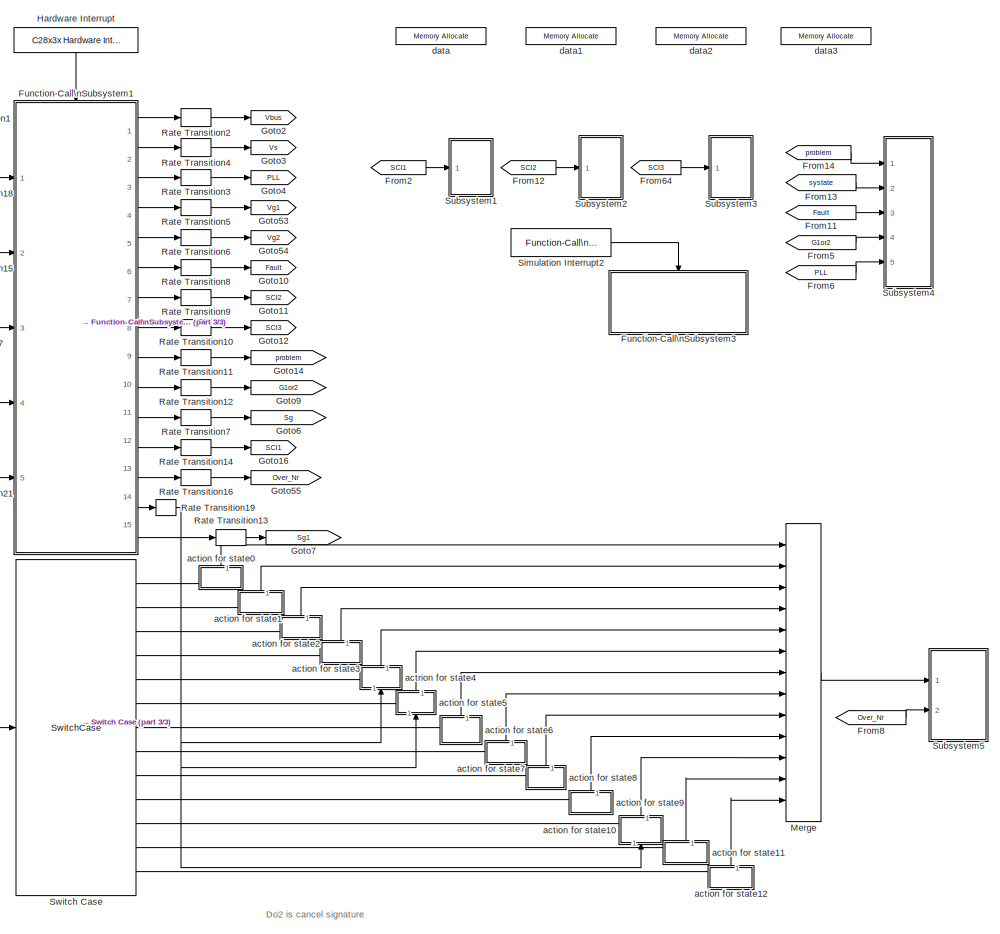
[diagram: root canvas - part 1/3, top right region]
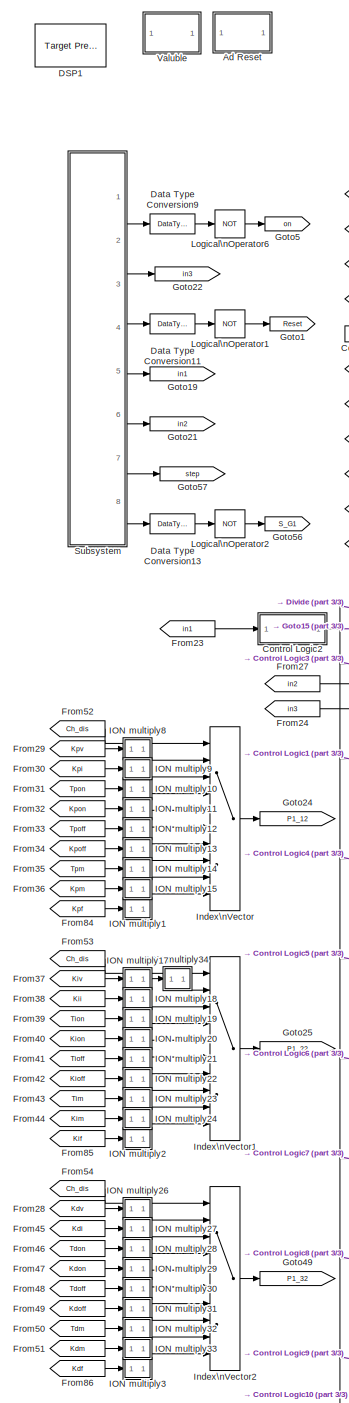
[diagram: root canvas - part 2/3, left side, full height]
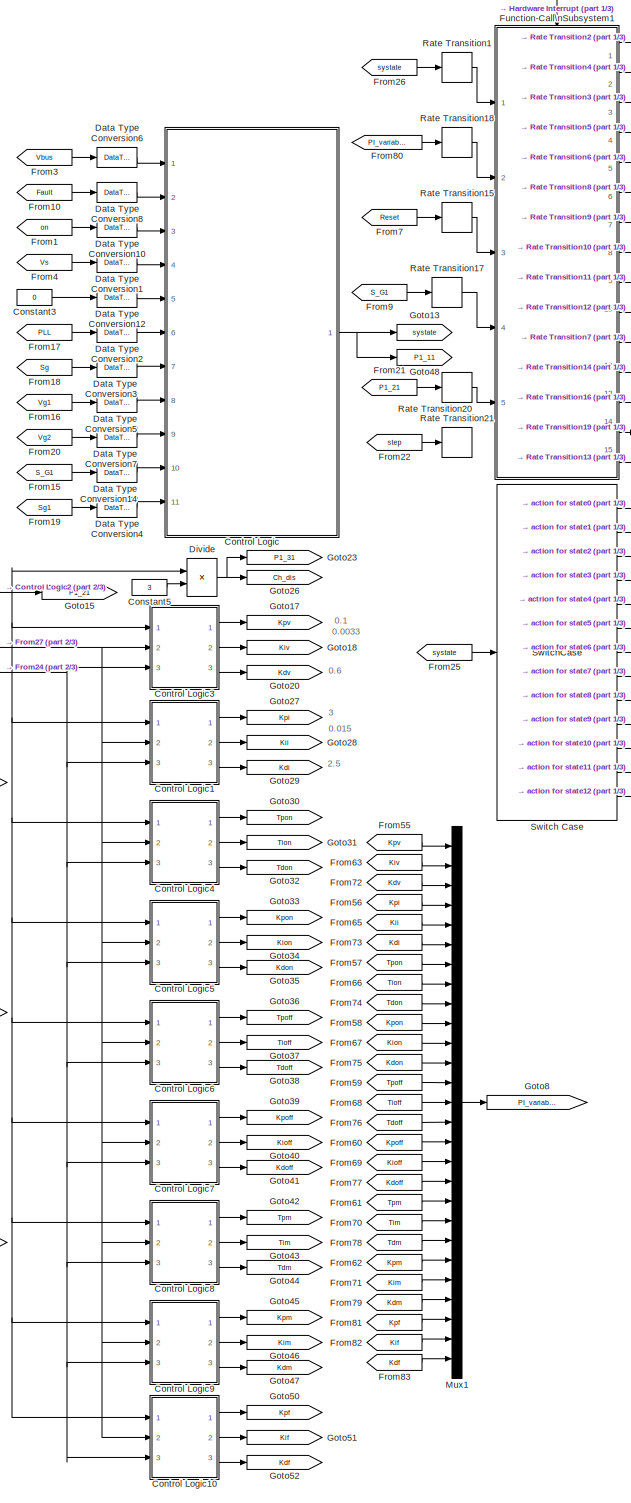
[diagram: root canvas - part 3/3, center side, full height]
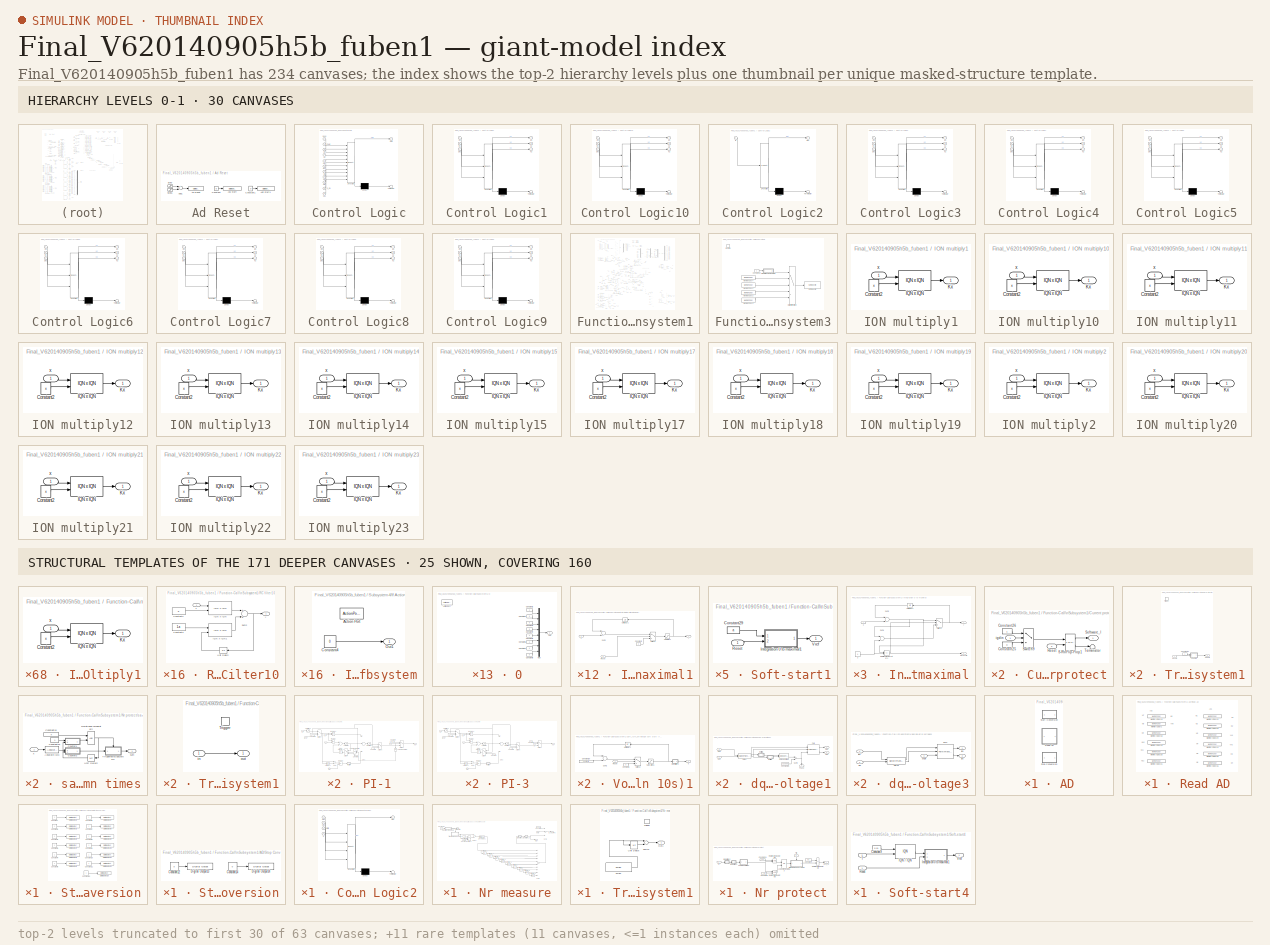
[diagram: thumbnail index - top-2 hierarchy levels (63 canvases (first 30 of 63 shown)) + 25 structural-template representatives of the remaining 171 canvases]
MODEL Final_V620140905h5b_fuben1
KIND model
BLOCK [SubSystem] Ad Reset
  FunctionWithSeparateData = off
  MaskHideContents = off
  MinAlgLoopOccurrences = off
  Opaque = off
  Ports = []
  PropExecContextOutsideSubsystem = off
  RTWSystemCode = Auto
  RequestExecContextInheritance = off
  SID = 620
BLOCK [Reference] Ad Reset/Ad Reset  REF=c2833xlib/Digital Output
  GPIO_BIT0_Toggle = off
  GPIO_BIT1_Toggle = off
  GPIO_BIT2_Toggle = off
  GPIO_BIT3_Toggle = off
  GPIO_BIT4_Toggle = off
  GPIO_BIT5_Toggle = off
  GPIO_BIT6_Toggle = off
  GPIO_BIT7_Toggle = off
  GPIO_Bit0 = off
  GPIO_Bit1 = off
  GPIO_Bit2 = off
  GPIO_Bit3 = off
  GPIO_Bit4 = off
  GPIO_Bit5 = on
  GPIO_Bit6 = off
  GPIO_Bit7 = off
  GPIO_Number = GPIO56~GPIO63
  Ports = [1]
  Priority = 1
  SID = 383
  SourceBlock = c2833xlib/Digital Output
  SourceType = C2833x GPIO Digital Output
  UserData = DataTag0
  UserDataPersistent = on
BLOCK [Reference] Ad Reset/Ad1 start  REF=c2833xlib/Digital Output
  GPIO_BIT0_Toggle = off
  GPIO_BIT1_Toggle = off
  GPIO_BIT2_Toggle = off
  GPIO_BIT3_Toggle = off
  GPIO_BIT4_Toggle = off
  GPIO_BIT5_Toggle = off
  GPIO_BIT6_Toggle = off
  GPIO_BIT7_Toggle = off
  GPIO_Bit0 = off
  GPIO_Bit1 = on
  GPIO_Bit2 = off
  GPIO_Bit3 = off
  GPIO_Bit4 = off
  GPIO_Bit5 = off
  GPIO_Bit6 = off
  GPIO_Bit7 = off
  GPIO_Number = GPIO56~GPIO63
  Ports = [1]
  Priority = 2
  SID = 382
  SourceBlock = c2833xlib/Digital Output
  SourceType = C2833x GPIO Digital Output
  UserData = DataTag1
  UserDataPersistent = on
BLOCK [Reference] Ad Reset/Ad2 start1  REF=c2833xlib/Digital Output
  GPIO_BIT0_Toggle = off
  GPIO_BIT1_Toggle = off
  GPIO_BIT2_Toggle = off
  GPIO_BIT3_Toggle = off
  GPIO_BIT4_Toggle = off
  GPIO_BIT5_Toggle = off
  GPIO_BIT6_Toggle = off
  GPIO_BIT7_Toggle = off
  GPIO_Bit0 = off
  GPIO_Bit1 = off
  GPIO_Bit2 = on
  GPIO_Bit3 = off
  GPIO_Bit4 = off
  GPIO_Bit5 = off
  GPIO_Bit6 = off
  GPIO_Bit7 = off
  GPIO_Number = GPIO56~GPIO63
  Ports = [1]
  Priority = 2
  SID = 384
  SourceBlock = c2833xlib/Digital Output
  SourceType = C2833x GPIO Digital Output
  UserData = DataTag2
  UserDataPersistent = on
BLOCK [Sum] Ad Reset/Add1
  InputSameDT = off
  Inputs = +-
  OutDataTypeStr = Inherit: Inherit via internal rule
  Ports = [2, 1]
  SID = 377
  SaturateOnIntegerOverflow = off
BLOCK [Constant] Ad Reset/Constant
  SID = 379
  Value = 0
BLOCK [Constant] Ad Reset/Constant1
  SID = 380
  Value = 0
BLOCK [Step] Ad Reset/Step
  SID = 486
  Time = 0
BLOCK [Step] Ad Reset/Step1
  SID = 487
  Time = 0.01
BLOCK [Constant] Constant3
  OutDataTypeStr = uint16
  SID = 2287
  Value = 0
BLOCK [Constant] Constant5
  OutDataTypeStr = uint16
  SID = 13082
  Value = 3
BLOCK [SubSystem] Control Logic
  ErrorFcn = Stateflow.Translate.translate
  FunctionWithSeparateData = off
  MaskDescription = Stateflow diagram
  MaskDisplay = plot(sf('Private','sfblk','xIcon'),sf('Private','sfblk','yIcon'));text(0.5,0,sf('Private', 'sfblk', 'tIcon'),'HorizontalAl','Center','VerticalAl','Bottom');
  MaskHideContents = off
  MaskIconFrame = off
  MaskIconOpaque = off
  MaskIconRotate = none
  MaskIconUnits = normalized
  MaskPortRotate = default
  MaskSelfModifiable = on
  MaskType = Stateflow
  MinAlgLoopOccurrences = off
  Opaque = off
  PermitHierarchicalResolution = ExplicitOnly
  Ports = [11, 1]
  PropExecContextOutsideSubsystem = off
  RTWSystemCode = Auto
  RequestExecContextInheritance = off
  SFBlockType = Chart
  SID = 3863
  TreatAsAtomicUnit = on
BLOCK [Demux] Control Logic/ Demux 
  Outputs = 1
  Ports = [1, 1]
  SID = 3863::26
BLOCK [S-Function] Control Logic/ SFunction 
  EnableBusSupport = on
  FunctionName = sf_sfun
  PortCounts = [11 2]
  Ports = [11, 2]
  SID = 3863::25
  Tag = Stateflow S-Function Final_V620140905h5b_fuben1 2
BLOCK [Terminator] Control Logic/ Terminator 
  SID = 3863::45
BLOCK [Inport] Control Logic/Fault
  IconDisplay = Port number
  Port = 2
  SID = 3863::32
BLOCK [Inport] Control Logic/KM
  IconDisplay = Port number
  Port = 5
  SID = 3863::36
BLOCK [Inport] Control Logic/On
  IconDisplay = Port number
  Port = 3
  SID = 3863::29
BLOCK [Inport] Control Logic/PLL
  IconDisplay = Port number
  Port = 6
  SID = 3863::33
BLOCK [Inport] Control Logic/S_G1
  IconDisplay = Port number
  Port = 10
  SID = 3863::47
BLOCK [Inport] Control Logic/Sg
  IconDisplay = Port number
  Port = 7
  SID = 3863::38
BLOCK [Inport] Control Logic/Sg1
  IconDisplay = Port number
  Port = 11
  SID = 3863::49
BLOCK [Outport] Control Logic/State
  IconDisplay = Port number
  SID = 3863::30
BLOCK [Inport] Control Logic/Vbus
  IconDisplay = Port number
  SID = 3863::31
BLOCK [Inport] Control Logic/Vg1
  IconDisplay = Port number
  Port = 8
  SID = 3863::41
BLOCK [Inport] Control Logic/Vg2
  IconDisplay = Port number
  Port = 9
  SID = 3863::42
BLOCK [Inport] Control Logic/Vs
  IconDisplay = Port number
  Port = 4
  SID = 3863::35
BLOCK [SubSystem] Control Logic1
  ErrorFcn = Stateflow.Translate.translate
  FunctionWithSeparateData = off
  MaskDescription = Stateflow diagram
  MaskDisplay = plot(sf('Private','sfblk','xIcon'),sf('Private','sfblk','yIcon'));text(0.5,0,sf('Private', 'sfblk', 'tIcon'),'HorizontalAl','Center','VerticalAl','Bottom');
  MaskHideContents = off
  MaskIconFrame = off
  MaskIconOpaque = off
  MaskIconRotate = none
  MaskIconUnits = normalized
  MaskPortRotate = default
  MaskSelfModifiable = on
  MaskType = Stateflow
  MinAlgLoopOccurrences = off
  Opaque = off
  PermitHierarchicalResolution = ExplicitOnly
  Ports = [3, 3]
  PropExecContextOutsideSubsystem = off
  RTWSystemCode = Auto
  RequestExecContextInheritance = off
  SFBlockType = Chart
  SID = 13047
  TreatAsAtomicUnit = on
BLOCK [Demux] Control Logic1/ Demux 
  Outputs = 1
  Ports = [1, 1]
  SID = 13047::26
BLOCK [S-Function] Control Logic1/ SFunction 
  EnableBusSupport = on
  FunctionName = sf_sfun
  PortCounts = [3 4]
  Ports = [3, 4]
  SID = 13047::25
  Tag = Stateflow S-Function Final_V620140905h5b_fuben1 3
BLOCK [Terminator] Control Logic1/ Terminator 
  SID = 13047::45
BLOCK [Inport] Control Logic1/Ch
  IconDisplay = Port number
  SID = 13047::48
BLOCK [Inport] Control Logic1/Dec
  IconDisplay = Port number
  Port = 3
  SID = 13047::51
BLOCK [Inport] Control Logic1/Inc
  IconDisplay = Port number
  Port = 2
  SID = 13047::50
BLOCK [Outport] Control Logic1/K1
  IconDisplay = Port number
  SID = 13047::52
BLOCK [Outport] Control Logic1/K2
  IconDisplay = Port number
  Port = 2
  SID = 13047::53
BLOCK [Outport] Control Logic1/K3
  IconDisplay = Port number
  Port = 3
  SID = 13047::54
BLOCK [SubSystem] Control Logic10
  ErrorFcn = Stateflow.Translate.translate
  FunctionWithSeparateData = off
  MaskDescription = Stateflow diagram
  MaskDisplay = plot(sf('Private','sfblk','xIcon'),sf('Private','sfblk','yIcon'));text(0.5,0,sf('Private', 'sfblk', 'tIcon'),'HorizontalAl','Center','VerticalAl','Bottom');
  MaskHideContents = off
  MaskIconFrame = off
  MaskIconOpaque = off
  MaskIconRotate = none
  MaskIconUnits = normalized
  MaskPortRotate = default
  MaskSelfModifiable = on
  MaskType = Stateflow
  MinAlgLoopOccurrences = off
  Opaque = off
  PermitHierarchicalResolution = ExplicitOnly
  Ports = [3, 3]
  PropExecContextOutsideSubsystem = off
  RTWSystemCode = Auto
  RequestExecContextInheritance = off
  SFBlockType = Chart
  SID = 13896
  TreatAsAtomicUnit = on
BLOCK [Demux] Control Logic10/ Demux 
  Outputs = 1
  Ports = [1, 1]
  SID = 13896::26
BLOCK [S-Function] Control Logic10/ SFunction 
  EnableBusSupport = on
  FunctionName = sf_sfun
  PortCounts = [3 4]
  Ports = [3, 4]
  SID = 13896::25
  Tag = Stateflow S-Function Final_V620140905h5b_fuben1 12
BLOCK [Terminator] Control Logic10/ Terminator 
  SID = 13896::45
BLOCK [Inport] Control Logic10/Ch
  IconDisplay = Port number
  SID = 13896::48
BLOCK [Inport] Control Logic10/Dec
  IconDisplay = Port number
  Port = 3
  SID = 13896::51
BLOCK [Inport] Control Logic10/Inc
  IconDisplay = Port number
  Port = 2
  SID = 13896::50
BLOCK [Outport] Control Logic10/K1
  IconDisplay = Port number
  SID = 13896::52
BLOCK [Outport] Control Logic10/K2
  IconDisplay = Port number
  Port = 2
  SID = 13896::53
BLOCK [Outport] Control Logic10/K3
  IconDisplay = Port number
  Port = 3
  SID = 13896::54
BLOCK [SubSystem] Control Logic2
  ErrorFcn = Stateflow.Translate.translate
  FunctionWithSeparateData = off
  MaskDescription = Stateflow diagram
  MaskDisplay = plot(sf('Private','sfblk','xIcon'),sf('Private','sfblk','yIcon'));text(0.5,0,sf('Private', 'sfblk', 'tIcon'),'HorizontalAl','Center','VerticalAl','Bottom');
  MaskHideContents = off
  MaskIconFrame = off
  MaskIconOpaque = off
  MaskIconRotate = none
  MaskIconUnits = normalized
  MaskPortRotate = default
  MaskSelfModifiable = on
  MaskType = Stateflow
  MinAlgLoopOccurrences = off
  Opaque = off
  PermitHierarchicalResolution = ExplicitOnly
  Ports = [1, 1]
  PropExecContextOutsideSubsystem = off
  RTWSystemCode = Auto
  RequestExecContextInheritance = off
  SFBlockType = Chart
  SID = 13036
  TreatAsAtomicUnit = on
BLOCK [Demux] Control Logic2/ Demux 
  Outputs = 1
  Ports = [1, 1]
  SID = 13036::26
BLOCK [S-Function] Control Logic2/ SFunction 
  EnableBusSupport = on
  FunctionName = sf_sfun
  PortCounts = [1 2]
  Ports = [1, 2]
  SID = 13036::25
  Tag = Stateflow S-Function Final_V620140905h5b_fuben1 4
BLOCK [Terminator] Control Logic2/ Terminator 
  SID = 13036::45
BLOCK [Inport] Control Logic2/In
  IconDisplay = Port number
  SID = 13036::48
BLOCK [Outport] Control Logic2/Out
  IconDisplay = Port number
  SID = 13036::47
BLOCK [SubSystem] Control Logic3
  ErrorFcn = Stateflow.Translate.translate
  FunctionWithSeparateData = off
  MaskDescription = Stateflow diagram
  MaskDisplay = plot(sf('Private','sfblk','xIcon'),sf('Private','sfblk','yIcon'));text(0.5,0,sf('Private', 'sfblk', 'tIcon'),'HorizontalAl','Center','VerticalAl','Bottom');
  MaskHideContents = off
  MaskIconFrame = off
  MaskIconOpaque = off
  MaskIconRotate = none
  MaskIconUnits = normalized
  MaskPortRotate = default
  MaskSelfModifiable = on
  MaskType = Stateflow
  MinAlgLoopOccurrences = off
  Opaque = off
  PermitHierarchicalResolution = ExplicitOnly
  Ports = [3, 3]
  PropExecContextOutsideSubsystem = off
  RTWSystemCode = Auto
  RequestExecContextInheritance = off
  SFBlockType = Chart
  SID = 13042
  TreatAsAtomicUnit = on
BLOCK [Demux] Control Logic3/ Demux 
  Outputs = 1
  Ports = [1, 1]
  SID = 13042::26
BLOCK [S-Function] Control Logic3/ SFunction 
  EnableBusSupport = on
  FunctionName = sf_sfun
  PortCounts = [3 4]
  Ports = [3, 4]
  SID = 13042::25
  Tag = Stateflow S-Function Final_V620140905h5b_fuben1 5
BLOCK [Terminator] Control Logic3/ Terminator 
  SID = 13042::45
BLOCK [Inport] Control Logic3/Ch
  IconDisplay = Port number
  SID = 13042::48
BLOCK [Inport] Control Logic3/Dec
  IconDisplay = Port number
  Port = 3
  SID = 13042::51
BLOCK [Inport] Control Logic3/Inc
  IconDisplay = Port number
  Port = 2
  SID = 13042::50
BLOCK [Outport] Control Logic3/K1
  IconDisplay = Port number
  SID = 13042::52
BLOCK [Outport] Control Logic3/K2
  IconDisplay = Port number
  Port = 2
  SID = 13042::53
BLOCK [Outport] Control Logic3/K3
  IconDisplay = Port number
  Port = 3
  SID = 13042::54
BLOCK [SubSystem] Control Logic4
  ErrorFcn = Stateflow.Translate.translate
  FunctionWithSeparateData = off
  MaskDescription = Stateflow diagram
  MaskDisplay = plot(sf('Private','sfblk','xIcon'),sf('Private','sfblk','yIcon'));text(0.5,0,sf('Private', 'sfblk', 'tIcon'),'HorizontalAl','Center','VerticalAl','Bottom');
  MaskHideContents = off
  MaskIconFrame = off
  MaskIconOpaque = off
  MaskIconRotate = none
  MaskIconUnits = normalized
  MaskPortRotate = default
  MaskSelfModifiable = on
  MaskType = Stateflow
  MinAlgLoopOccurrences = off
  Opaque = off
  PermitHierarchicalResolution = ExplicitOnly
  Ports = [3, 3]
  PropExecContextOutsideSubsystem = off
  RTWSystemCode = Auto
  RequestExecContextInheritance = off
  SFBlockType = Chart
  SID = 13051
  TreatAsAtomicUnit = on
BLOCK [Demux] Control Logic4/ Demux 
  Outputs = 1
  Ports = [1, 1]
  SID = 13051::26
BLOCK [S-Function] Control Logic4/ SFunction 
  EnableBusSupport = on
  FunctionName = sf_sfun
  PortCounts = [3 4]
  Ports = [3, 4]
  SID = 13051::25
  Tag = Stateflow S-Function Final_V620140905h5b_fuben1 6
BLOCK [Terminator] Control Logic4/ Terminator 
  SID = 13051::45
BLOCK [Inport] Control Logic4/Ch
  IconDisplay = Port number
  SID = 13051::48
BLOCK [Inport] Control Logic4/Dec
  IconDisplay = Port number
  Port = 3
  SID = 13051::51
BLOCK [Inport] Control Logic4/Inc
  IconDisplay = Port number
  Port = 2
  SID = 13051::50
BLOCK [Outport] Control Logic4/K1
  IconDisplay = Port number
  SID = 13051::52
BLOCK [Outport] Control Logic4/K2
  IconDisplay = Port number
  Port = 2
  SID = 13051::53
BLOCK [Outport] Control Logic4/K3
  IconDisplay = Port number
  Port = 3
  SID = 13051::54
BLOCK [SubSystem] Control Logic5
  ErrorFcn = Stateflow.Translate.translate
  FunctionWithSeparateData = off
  MaskDescription = Stateflow diagram
  MaskDisplay = plot(sf('Private','sfblk','xIcon'),sf('Private','sfblk','yIcon'));text(0.5,0,sf('Private', 'sfblk', 'tIcon'),'HorizontalAl','Center','VerticalAl','Bottom');
  MaskHideContents = off
  MaskIconFrame = off
  MaskIconOpaque = off
  MaskIconRotate = none
  MaskIconUnits = normalized
  MaskPortRotate = default
  MaskSelfModifiable = on
  MaskType = Stateflow
  MinAlgLoopOccurrences = off
  Opaque = off
  PermitHierarchicalResolution = ExplicitOnly
  Ports = [3, 3]
  PropExecContextOutsideSubsystem = off
  RTWSystemCode = Auto
  RequestExecContextInheritance = off
  SFBlockType = Chart
  SID = 13052
  TreatAsAtomicUnit = on
BLOCK [Demux] Control Logic5/ Demux 
  Outputs = 1
  Ports = [1, 1]
  SID = 13052::26
BLOCK [S-Function] Control Logic5/ SFunction 
  EnableBusSupport = on
  FunctionName = sf_sfun
  PortCounts = [3 4]
  Ports = [3, 4]
  SID = 13052::25
  Tag = Stateflow S-Function Final_V620140905h5b_fuben1 7
BLOCK [Terminator] Control Logic5/ Terminator 
  SID = 13052::45
BLOCK [Inport] Control Logic5/Ch
  IconDisplay = Port number
  SID = 13052::48
BLOCK [Inport] Control Logic5/Dec
  IconDisplay = Port number
  Port = 3
  SID = 13052::51
BLOCK [Inport] Control Logic5/Inc
  IconDisplay = Port number
  Port = 2
  SID = 13052::50
BLOCK [Outport] Control Logic5/K1
  IconDisplay = Port number
  SID = 13052::52
BLOCK [Outport] Control Logic5/K2
  IconDisplay = Port number
  Port = 2
  SID = 13052::53
BLOCK [Outport] Control Logic5/K3
  IconDisplay = Port number
  Port = 3
  SID = 13052::54
BLOCK [SubSystem] Control Logic6
  ErrorFcn = Stateflow.Translate.translate
  FunctionWithSeparateData = off
  MaskDescription = Stateflow diagram
  MaskDisplay = plot(sf('Private','sfblk','xIcon'),sf('Private','sfblk','yIcon'));text(0.5,0,sf('Private', 'sfblk', 'tIcon'),'HorizontalAl','Center','VerticalAl','Bottom');
  MaskHideContents = off
  MaskIconFrame = off
  MaskIconOpaque = off
  MaskIconRotate = none
  MaskIconUnits = normalized
  MaskPortRotate = default
  MaskSelfModifiable = on
  MaskType = Stateflow
  MinAlgLoopOccurrences = off
  Opaque = off
  PermitHierarchicalResolution = ExplicitOnly
  Ports = [3, 3]
  PropExecContextOutsideSubsystem = off
  RTWSystemCode = Auto
  RequestExecContextInheritance = off
  SFBlockType = Chart
  SID = 13053
  TreatAsAtomicUnit = on
BLOCK [Demux] Control Logic6/ Demux 
  Outputs = 1
  Ports = [1, 1]
  SID = 13053::26
BLOCK [S-Function] Control Logic6/ SFunction 
  EnableBusSupport = on
  FunctionName = sf_sfun
  PortCounts = [3 4]
  Ports = [3, 4]
  SID = 13053::25
  Tag = Stateflow S-Function Final_V620140905h5b_fuben1 8
BLOCK [Terminator] Control Logic6/ Terminator 
  SID = 13053::45
BLOCK [Inport] Control Logic6/Ch
  IconDisplay = Port number
  SID = 13053::48
BLOCK [Inport] Control Logic6/Dec
  IconDisplay = Port number
  Port = 3
  SID = 13053::51
BLOCK [Inport] Control Logic6/Inc
  IconDisplay = Port number
  Port = 2
  SID = 13053::50
BLOCK [Outport] Control Logic6/K1
  IconDisplay = Port number
  SID = 13053::52
BLOCK [Outport] Control Logic6/K2
  IconDisplay = Port number
  Port = 2
  SID = 13053::53
BLOCK [Outport] Control Logic6/K3
  IconDisplay = Port number
  Port = 3
  SID = 13053::54
BLOCK [SubSystem] Control Logic7
  ErrorFcn = Stateflow.Translate.translate
  FunctionWithSeparateData = off
  MaskDescription = Stateflow diagram
  MaskDisplay = plot(sf('Private','sfblk','xIcon'),sf('Private','sfblk','yIcon'));text(0.5,0,sf('Private', 'sfblk', 'tIcon'),'HorizontalAl','Center','VerticalAl','Bottom');
  MaskHideContents = off
  MaskIconFrame = off
  MaskIconOpaque = off
  MaskIconRotate = none
  MaskIconUnits = normalized
  MaskPortRotate = default
  MaskSelfModifiable = on
  MaskType = Stateflow
  MinAlgLoopOccurrences = off
  Opaque = off
  PermitHierarchicalResolution = ExplicitOnly
  Ports = [3, 3]
  PropExecContextOutsideSubsystem = off
  RTWSystemCode = Auto
  RequestExecContextInheritance = off
  SFBlockType = Chart
  SID = 13054
  TreatAsAtomicUnit = on
BLOCK [Demux] Control Logic7/ Demux 
  Outputs = 1
  Ports = [1, 1]
  SID = 13054::26
BLOCK [S-Function] Control Logic7/ SFunction 
  EnableBusSupport = on
  FunctionName = sf_sfun
  PortCounts = [3 4]
  Ports = [3, 4]
  SID = 13054::25
  Tag = Stateflow S-Function Final_V620140905h5b_fuben1 9
BLOCK [Terminator] Control Logic7/ Terminator 
  SID = 13054::45
BLOCK [Inport] Control Logic7/Ch
  IconDisplay = Port number
  SID = 13054::48
BLOCK [Inport] Control Logic7/Dec
  IconDisplay = Port number
  Port = 3
  SID = 13054::51
BLOCK [Inport] Control Logic7/Inc
  IconDisplay = Port number
  Port = 2
  SID = 13054::50
BLOCK [Outport] Control Logic7/K1
  IconDisplay = Port number
  SID = 13054::52
BLOCK [Outport] Control Logic7/K2
  IconDisplay = Port number
  Port = 2
  SID = 13054::53
BLOCK [Outport] Control Logic7/K3
  IconDisplay = Port number
  Port = 3
  SID = 13054::54
BLOCK [SubSystem] Control Logic8
  ErrorFcn = Stateflow.Translate.translate
  FunctionWithSeparateData = off
  MaskDescription = Stateflow diagram
  MaskDisplay = plot(sf('Private','sfblk','xIcon'),sf('Private','sfblk','yIcon'));text(0.5,0,sf('Private', 'sfblk', 'tIcon'),'HorizontalAl','Center','VerticalAl','Bottom');
  MaskHideContents = off
  MaskIconFrame = off
  MaskIconOpaque = off
  MaskIconRotate = none
  MaskIconUnits = normalized
  MaskPortRotate = default
  MaskSelfModifiable = on
  MaskType = Stateflow
  MinAlgLoopOccurrences = off
  Opaque = off
  PermitHierarchicalResolution = ExplicitOnly
  Ports = [3, 3]
  PropExecContextOutsideSubsystem = off
  RTWSystemCode = Auto
  RequestExecContextInheritance = off
  SFBlockType = Chart
  SID = 13109
  TreatAsAtomicUnit = on
BLOCK [Demux] Control Logic8/ Demux 
  Outputs = 1
  Ports = [1, 1]
  SID = 13109::26
BLOCK [S-Function] Control Logic8/ SFunction 
  EnableBusSupport = on
  FunctionName = sf_sfun
  PortCounts = [3 4]
  Ports = [3, 4]
  SID = 13109::25
  Tag = Stateflow S-Function Final_V620140905h5b_fuben1 10
BLOCK [Terminator] Control Logic8/ Terminator 
  SID = 13109::45
BLOCK [Inport] Control Logic8/Ch
  IconDisplay = Port number
  SID = 13109::48
BLOCK [Inport] Control Logic8/Dec
  IconDisplay = Port number
  Port = 3
  SID = 13109::51
BLOCK [Inport] Control Logic8/Inc
  IconDisplay = Port number
  Port = 2
  SID = 13109::50
BLOCK [Outport] Control Logic8/K1
  IconDisplay = Port number
  SID = 13109::52
BLOCK [Outport] Control Logic8/K2
  IconDisplay = Port number
  Port = 2
  SID = 13109::53
BLOCK [Outport] Control Logic8/K3
  IconDisplay = Port number
  Port = 3
  SID = 13109::54
BLOCK [SubSystem] Control Logic9
  ErrorFcn = Stateflow.Translate.translate
  FunctionWithSeparateData = off
  MaskDescription = Stateflow diagram
  MaskDisplay = plot(sf('Private','sfblk','xIcon'),sf('Private','sfblk','yIcon'));text(0.5,0,sf('Private', 'sfblk', 'tIcon'),'HorizontalAl','Center','VerticalAl','Bottom');
  MaskHideContents = off
  MaskIconFrame = off
  MaskIconOpaque = off
  MaskIconRotate = none
  MaskIconUnits = normalized
  MaskPortRotate = default
  MaskSelfModifiable = on
  MaskType = Stateflow
  MinAlgLoopOccurrences = off
  Opaque = off
  PermitHierarchicalResolution = ExplicitOnly
  Ports = [3, 3]
  PropExecContextOutsideSubsystem = off
  RTWSystemCode = Auto
  RequestExecContextInheritance = off
  SFBlockType = Chart
  SID = 13110
  TreatAsAtomicUnit = on
BLOCK [Demux] Control Logic9/ Demux 
  Outputs = 1
  Ports = [1, 1]
  SID = 13110::26
BLOCK [S-Function] Control Logic9/ SFunction 
  EnableBusSupport = on
  FunctionName = sf_sfun
  PortCounts = [3 4]
  Ports = [3, 4]
  SID = 13110::25
  Tag = Stateflow S-Function Final_V620140905h5b_fuben1 11
BLOCK [Terminator] Control Logic9/ Terminator 
  SID = 13110::45
BLOCK [Inport] Control Logic9/Ch
  IconDisplay = Port number
  SID = 13110::48
BLOCK [Inport] Control Logic9/Dec
  IconDisplay = Port number
  Port = 3
  SID = 13110::51
BLOCK [Inport] Control Logic9/Inc
  IconDisplay = Port number
  Port = 2
  SID = 13110::50
BLOCK [Outport] Control Logic9/K1
  IconDisplay = Port number
  SID = 13110::52
BLOCK [Outport] Control Logic9/K2
  IconDisplay = Port number
  Port = 2
  SID = 13110::53
BLOCK [Outport] Control Logic9/K3
  IconDisplay = Port number
  Port = 3
  SID = 13110::54
BLOCK [Reference] DSP1  REF=idelinklib_tgtpref/Target Preferences\nTemplate
  Ports = []
  SID = 13034
  SourceBlock = idelinklib_tgtpref/Target Preferences\nTemplate
  SourceType = Target Preferences
  Tag = ccslinktgtpref
  UserData = DataTag3
  UserDataPersistent = on
  library = off
BLOCK [DataTypeConversion] Data Type Conversion1
  OutDataTypeStr = uint16
  RndMeth = Floor
  SID = 2284
  SaturateOnIntegerOverflow = off
BLOCK [DataTypeConversion] Data Type Conversion10
  OutDataTypeStr = uint16
  RndMeth = Floor
  SID = 9478
  SaturateOnIntegerOverflow = off
BLOCK [DataTypeConversion] Data Type Conversion11
  OutDataTypeStr = boolean
  RndMeth = Floor
  SID = 15837
  SaturateOnIntegerOverflow = off
BLOCK [DataTypeConversion] Data Type Conversion12
  OutDataTypeStr = uint16
  RndMeth = Floor
  SID = 12875
  SaturateOnIntegerOverflow = off
BLOCK [DataTypeConversion] Data Type Conversion13
  OutDataTypeStr = boolean
  RndMeth = Floor
  SID = 16067
  SaturateOnIntegerOverflow = off
BLOCK [DataTypeConversion] Data Type Conversion14
  OutDataTypeStr = uint16
  RndMeth = Floor
  SID = 16190
  SaturateOnIntegerOverflow = off
BLOCK [DataTypeConversion] Data Type Conversion2
  OutDataTypeStr = uint16
  RndMeth = Floor
  SID = 2470
  SaturateOnIntegerOverflow = off
BLOCK [DataTypeConversion] Data Type Conversion3
  OutDataTypeStr = uint16
  RndMeth = Floor
  SID = 2635
  SaturateOnIntegerOverflow = off
BLOCK [DataTypeConversion] Data Type Conversion4
  OutDataTypeStr = uint16
  RndMeth = Floor
  SID = 16383
  SaturateOnIntegerOverflow = off
BLOCK [DataTypeConversion] Data Type Conversion5
  OutDataTypeStr = uint16
  RndMeth = Floor
  SID = 2646
  SaturateOnIntegerOverflow = off
BLOCK [DataTypeConversion] Data Type Conversion6
  OutDataTypeStr = uint16
  RndMeth = Floor
  SID = 2283
  SaturateOnIntegerOverflow = off
BLOCK [DataTypeConversion] Data Type Conversion7
  OutDataTypeStr = uint16
  RndMeth = Floor
  SID = 2647
  SaturateOnIntegerOverflow = off
BLOCK [DataTypeConversion] Data Type Conversion8
  OutDataTypeStr = uint16
  RndMeth = Floor
  SID = 6959
  SaturateOnIntegerOverflow = off
BLOCK [DataTypeConversion] Data Type Conversion9
  OutDataTypeStr = boolean
  RndMeth = Floor
  SID = 9735
  SaturateOnIntegerOverflow = off
BLOCK [Product] Divide
  InputSameDT = off
  Inputs = */
  OutDataTypeStr = Inherit: Inherit via internal rule
  Ports = [2, 1]
  RndMeth = Floor
  SID = 13084
  SaturateOnIntegerOverflow = off
BLOCK [From] From1
  GotoTag = on
  SID = 2281
BLOCK [From] From10
  GotoTag = Fault
  SID = 6958
BLOCK [From] From11
  GotoTag = Fault
  SID = 7782
BLOCK [From] From12
  GotoTag = SCI2
  SID = 7658
BLOCK [From] From13
  GotoTag = systate
  SID = 7665
BLOCK [From] From14
  GotoTag = problem
  SID = 7669
BLOCK [From] From15
  GotoTag = S_G1
  SID = 16191
BLOCK [From] From16
  GotoTag = Vg1
  SID = 16198
BLOCK [From] From17
  GotoTag = PLL
  SID = 8311
BLOCK [From] From18
  GotoTag = Sg
  SID = 8452
BLOCK [From] From19
  GotoTag = Sg1
  SID = 16384
BLOCK [From] From2
  GotoTag = SCI1
  SID = 15694
BLOCK [From] From20
  GotoTag = Vg2
  SID = 16199
BLOCK [From] From21
  GotoTag = P1_21
  SID = 16314
BLOCK [From] From22
  GotoTag = step
  SID = 16987
BLOCK [From] From23
  GotoTag = in1
  SID = 13039
BLOCK [From] From24
  GotoTag = in3
  SID = 13045
BLOCK [From] From25
  GotoTag = systate
  SID = 10236
BLOCK [From] From26
  GotoTag = systate
  SID = 10237
BLOCK [From] From27
  GotoTag = in2
  SID = 13043
BLOCK [From] From28
  GotoTag = Kdv
  SID = 13136
BLOCK [From] From29
  GotoTag = Kpv
  SID = 13117
BLOCK [From] From3
  GotoTag = Vbus
  SID = 2279
BLOCK [From] From30
  GotoTag = Kpi
  SID = 13118
BLOCK [From] From31
  GotoTag = Tpon
  SID = 13119
BLOCK [From] From32
  GotoTag = Kpon
  SID = 13120
BLOCK [From] From33
  GotoTag = Tpoff
  SID = 13121
BLOCK [From] From34
  GotoTag = Kpoff
  SID = 13122
BLOCK [From] From35
  GotoTag = Tpm
  SID = 13123
BLOCK [From] From36
  GotoTag = Kpm
  SID = 13124
BLOCK [From] From37
  GotoTag = Kiv
  SID = 13125
BLOCK [From] From38
  GotoTag = Kii
  SID = 13126
BLOCK [From] From39
  GotoTag = Tion
  SID = 13127
BLOCK [From] From4
  GotoTag = Vs
  SID = 2278
BLOCK [From] From40
  GotoTag = Kion
  SID = 13128
BLOCK [From] From41
  GotoTag = Tioff
  SID = 13129
BLOCK [From] From42
  GotoTag = Kioff
  SID = 13130
BLOCK [From] From43
  GotoTag = Tim
  SID = 13131
BLOCK [From] From44
  GotoTag = Kim
  SID = 13132
BLOCK [From] From45
  GotoTag = Kdi
  SID = 13137
BLOCK [From] From46
  GotoTag = Tdon
  SID = 13138
BLOCK [From] From47
  GotoTag = Kdon
  SID = 13139
BLOCK [From] From48
  GotoTag = Tdoff
  SID = 13140
BLOCK [From] From49
  GotoTag = Kdoff
  SID = 13141
BLOCK [From] From5
  GotoTag = G1or2
  SID = 8180
BLOCK [From] From50
  GotoTag = Tdm
  SID = 13142
BLOCK [From] From51
  GotoTag = Kdm
  SID = 13143
BLOCK [From] From52
  GotoTag = Ch_dis
  SID = 13146
BLOCK [From] From53
  GotoTag = Ch_dis
  SID = 13148
BLOCK [From] From54
  GotoTag = Ch_dis
  SID = 13149
BLOCK [From] From55
  GotoTag = Kpv
  SID = 13328
BLOCK [From] From56
  GotoTag = Kpi
  SID = 13329
BLOCK [From] From57
  GotoTag = Tpon
  SID = 13330
BLOCK [From] From58
  GotoTag = Kpon
  SID = 13331
BLOCK [From] From59
  GotoTag = Tpoff
  SID = 13332
BLOCK [From] From6
  GotoTag = PLL
  SID = 8181
BLOCK [From] From60
  GotoTag = Kpoff
  SID = 13333
BLOCK [From] From61
  GotoTag = Tpm
  SID = 13334
BLOCK [From] From62
  GotoTag = Kpm
  SID = 13335
BLOCK [From] From63
  GotoTag = Kiv
  SID = 13336
BLOCK [From] From64
  GotoTag = SCI3
  SID = 7656
BLOCK [From] From65
  GotoTag = Kii
  SID = 13337
BLOCK [From] From66
  GotoTag = Tion
  SID = 13338
BLOCK [From] From67
  GotoTag = Kion
  SID = 13339
BLOCK [From] From68
  GotoTag = Tioff
  SID = 13340
BLOCK [From] From69
  GotoTag = Kioff
  SID = 13341
BLOCK [From] From7
  GotoTag = Reset
  SID = 15839
BLOCK [From] From70
  GotoTag = Tim
  SID = 13342
BLOCK [From] From71
  GotoTag = Kim
  SID = 13343
BLOCK [From] From72
  GotoTag = Kdv
  SID = 13346
BLOCK [From] From73
  GotoTag = Kdi
  SID = 13347
BLOCK [From] From74
  GotoTag = Tdon
  SID = 13348
BLOCK [From] From75
  GotoTag = Kdon
  SID = 13349
BLOCK [From] From76
  GotoTag = Tdoff
  SID = 13350
BLOCK [From] From77
  GotoTag = Kdoff
  SID = 13351
BLOCK [From] From78
  GotoTag = Tdm
  SID = 13352
BLOCK [From] From79
  GotoTag = Kdm
  SID = 13353
BLOCK [From] From8
  GotoTag = Over_Nr
  SID = 16060
BLOCK [From] From80
  GotoTag = PI_variable
  SID = 13355
BLOCK [From] From81
  GotoTag = Kpf
  SID = 13893
BLOCK [From] From82
  GotoTag = Kif
  SID = 13894
BLOCK [From] From83
  GotoTag = Kdf
  SID = 13895
BLOCK [From] From84
  GotoTag = Kpf
  SID = 13900
BLOCK [From] From85
  GotoTag = Kif
  SID = 13901
BLOCK [From] From86
  GotoTag = Kdf
  SID = 13902
BLOCK [From] From9
  GotoTag = S_G1
  SID = 16065
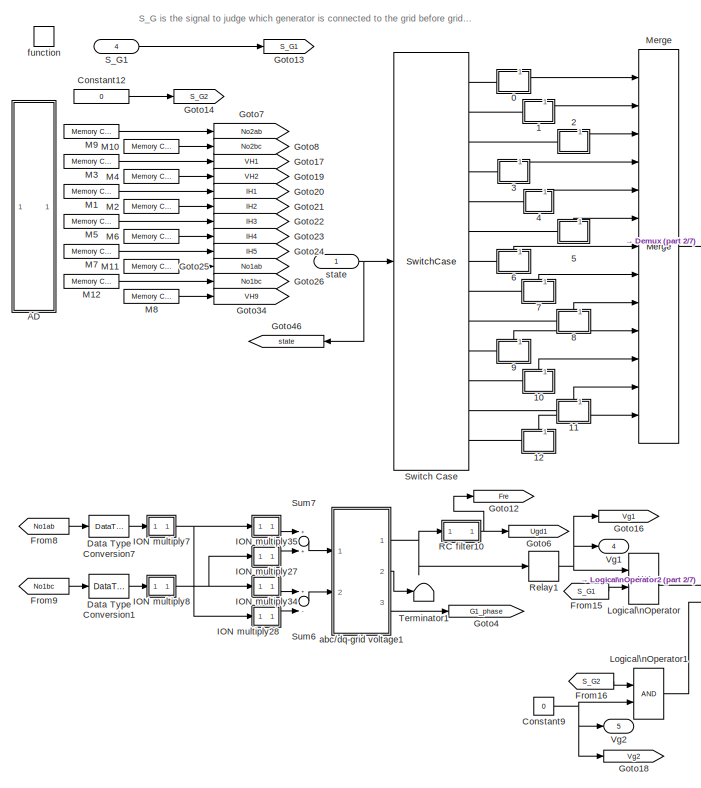
[diagram: Function-Call\nSubsystem1 - part 1/7, top left region]
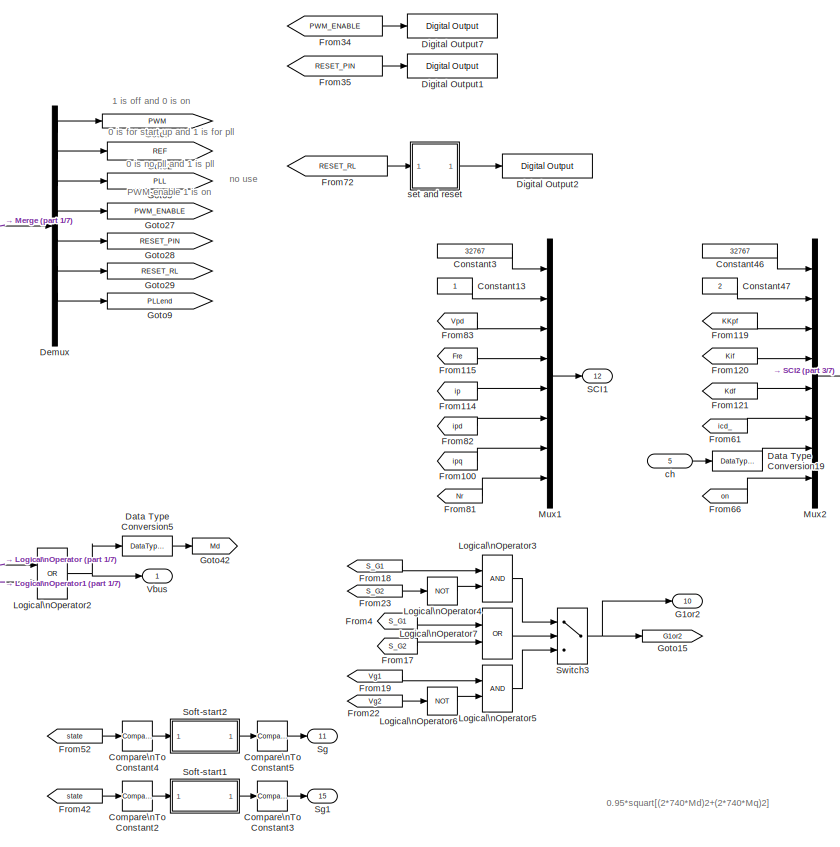
[diagram: Function-Call\nSubsystem1 - part 2/7, top center region]
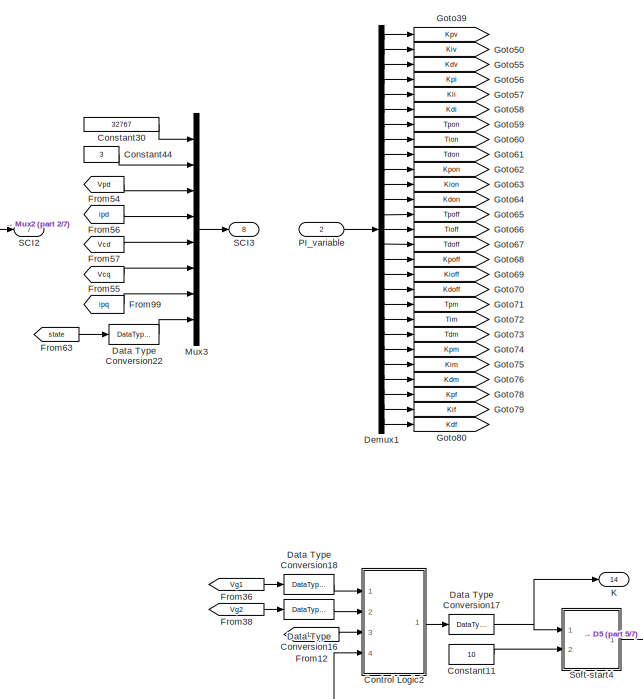
[diagram: Function-Call\nSubsystem1 - part 3/7, top right region]
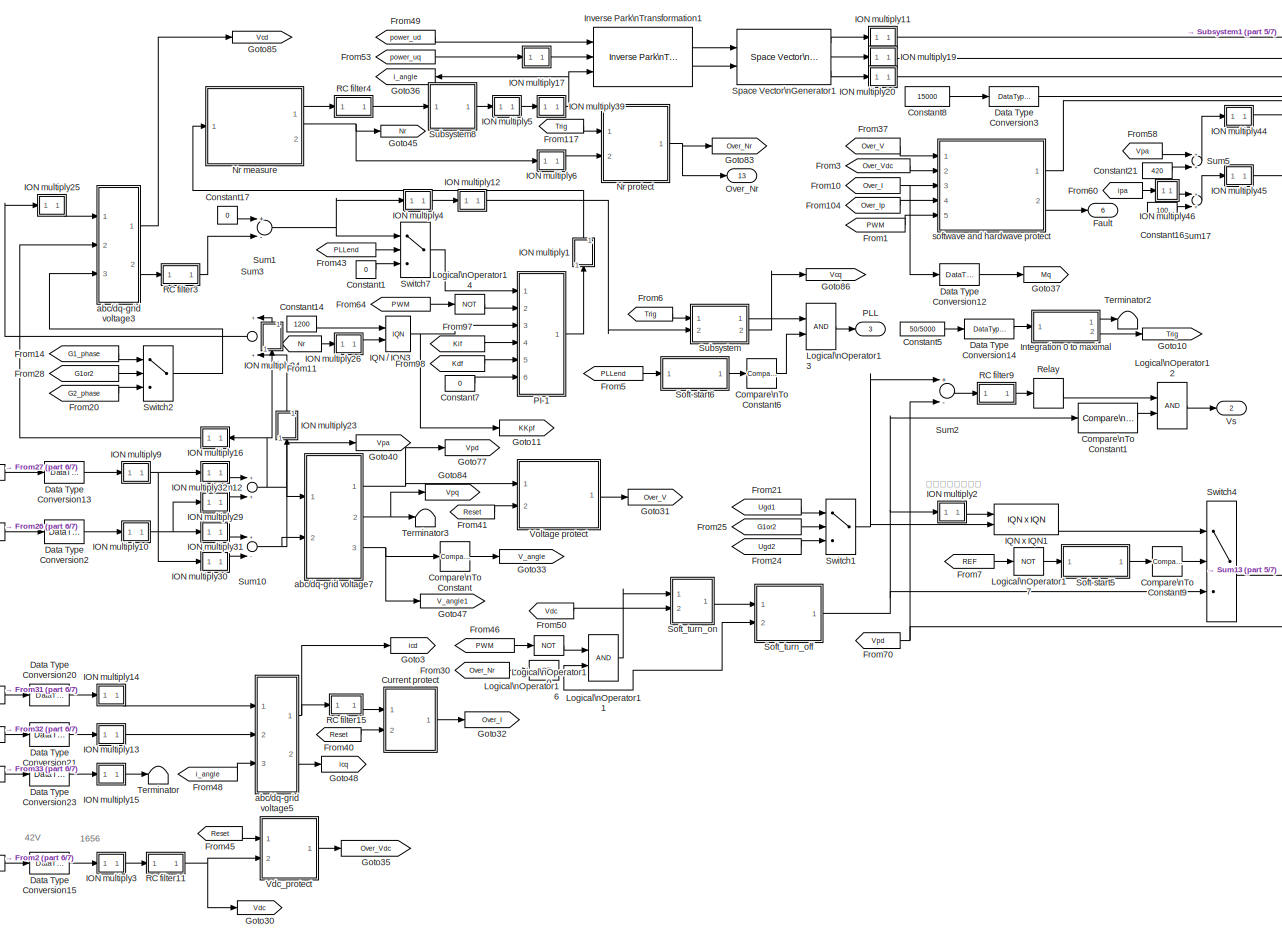
[diagram: Function-Call\nSubsystem1 - part 4/7, bottom center region]
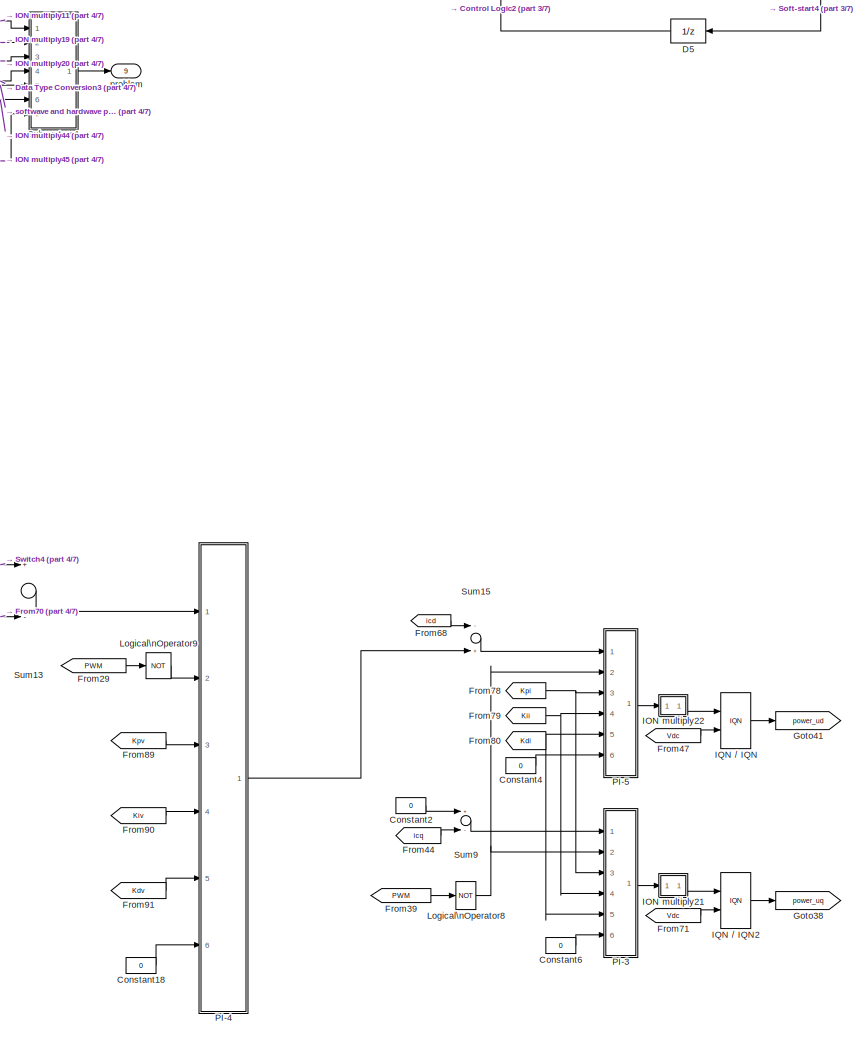
[diagram: Function-Call\nSubsystem1 - part 5/7, bottom right region]
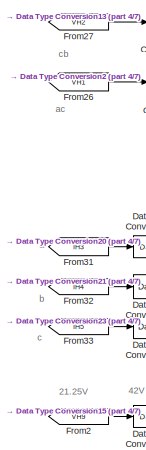
[diagram: Function-Call\nSubsystem1 - part 6/7, bottom left region]
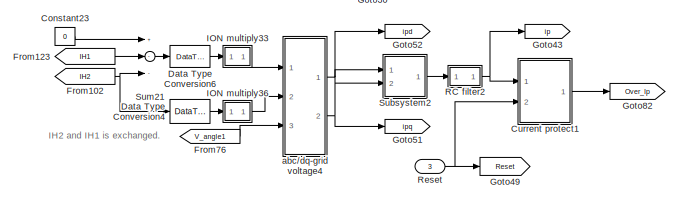
[diagram: Function-Call\nSubsystem1 - part 7/7, bottom left region]
BLOCK [SubSystem] Function-Call\nSubsystem1
  FunctionWithSeparateData = off
  MaskHideContents = off
  MinAlgLoopOccurrences = off
  Opaque = off
  Ports = [5, 15, 0, 1]
  PropExecContextOutsideSubsystem = off
  RTWSystemCode = Auto
  RequestExecContextInheritance = off
  SID = 1997
  TreatAsAtomicUnit = on
BLOCK [SubSystem] Function-Call\nSubsystem1/0
  FunctionWithSeparateData = off
  MaskHideContents = off
  MinAlgLoopOccurrences = off
  Opaque = off
  Ports = [0, 1, 0, 0, 0, 0, 0, 1]
  PropExecContextOutsideSubsystem = off
  RTWSystemCode = Auto
  RequestExecContextInheritance = off
  SID = 2199
  TreatAsAtomicUnit = on
BLOCK [ActionPort] Function-Call\nSubsystem1/0/Action Port
  ActionType = case
  SID = 2200
BLOCK [Constant] Function-Call\nSubsystem1/0/Constant1
  OutDataTypeStr = boolean
  Priority = 1
  SID = 2201
  Value = 0
BLOCK [Constant] Function-Call\nSubsystem1/0/Constant2
  OutDataTypeStr = boolean
  Priority = 1
  SID = 2202
BLOCK [Constant] Function-Call\nSubsystem1/0/Constant3
  OutDataTypeStr = boolean
  Priority = 1
  SID = 2203
  Value = 0
BLOCK [Constant] Function-Call\nSubsystem1/0/Constant4
  OutDataTypeStr = boolean
  Priority = 1
  SID = 2204
  Value = 0
BLOCK [Constant] Function-Call\nSubsystem1/0/Constant5
  OutDataTypeStr = boolean
  Priority = 1
  SID = 2205
BLOCK [Constant] Function-Call\nSubsystem1/0/Constant6
  OutDataTypeStr = boolean
  Priority = 1
  SID = 2206
BLOCK [Constant] Function-Call\nSubsystem1/0/Constant7
  OutDataTypeStr = boolean
  Priority = 1
  SID = 2207
  Value = 0
BLOCK [Constant] Function-Call\nSubsystem1/0/Constant8
  OutDataTypeStr = boolean
  Priority = 1
  SID = 2208
  Value = 0
BLOCK [Mux] Function-Call\nSubsystem1/0/Mux
  DisplayOption = bar
  Inputs = 8
  Ports = [8, 1]
  SID = 2209
BLOCK [Outport] Function-Call\nSubsystem1/0/Out1
  IconDisplay = Port number
  SID = 2210
BLOCK [SubSystem] Function-Call\nSubsystem1/1
  FunctionWithSeparateData = off
  MaskHideContents = off
  MinAlgLoopOccurrences = off
  Opaque = off
  Ports = [0, 1, 0, 0, 0, 0, 0, 1]
  PropExecContextOutsideSubsystem = off
  RTWSystemCode = Auto
  RequestExecContextInheritance = off
  SID = 2211
  TreatAsAtomicUnit = on
BLOCK [ActionPort] Function-Call\nSubsystem1/1/Action Port
  ActionType = case
  SID = 2212
BLOCK [Constant] Function-Call\nSubsystem1/1/Constant1
  OutDataTypeStr = boolean
  Priority = 1
  SID = 2213
BLOCK [Constant] Function-Call\nSubsystem1/1/Constant2
  OutDataTypeStr = boolean
  Priority = 1
  SID = 2214
  Value = 0
BLOCK [Constant] Function-Call\nSubsystem1/1/Constant3
  OutDataTypeStr = boolean
  Priority = 1
  SID = 2215
  Value = 0
BLOCK [Constant] Function-Call\nSubsystem1/1/Constant4
  OutDataTypeStr = boolean
  Priority = 1
  SID = 2216
BLOCK [Constant] Function-Call\nSubsystem1/1/Constant5
  OutDataTypeStr = boolean
  Priority = 1
  SID = 2217
  Value = 0
BLOCK [Constant] Function-Call\nSubsystem1/1/Constant6
  OutDataTypeStr = boolean
  Priority = 1
  SID = 2218
  Value = 0
BLOCK [Constant] Function-Call\nSubsystem1/1/Constant7
  OutDataTypeStr = boolean
  Priority = 1
  SID = 2219
  Value = 0
BLOCK [Constant] Function-Call\nSubsystem1/1/Constant8
  OutDataTypeStr = boolean
  Priority = 1
  SID = 2220
  Value = 0
BLOCK [Mux] Function-Call\nSubsystem1/1/Mux
  DisplayOption = bar
  Inputs = 8
  Ports = [8, 1]
  SID = 2221
BLOCK [Outport] Function-Call\nSubsystem1/1/Out1
  IconDisplay = Port number
  SID = 2222
BLOCK [SubSystem] Function-Call\nSubsystem1/10
  FunctionWithSeparateData = off
  MaskHideContents = off
  MinAlgLoopOccurrences = off
  Opaque = off
  Ports = [0, 1, 0, 0, 0, 0, 0, 1]
  PropExecContextOutsideSubsystem = off
  RTWSystemCode = Auto
  RequestExecContextInheritance = off
  SID = 8543
  TreatAsAtomicUnit = on
BLOCK [ActionPort] Function-Call\nSubsystem1/10/Action Port
  ActionType = case
  SID = 8544
BLOCK [Constant] Function-Call\nSubsystem1/10/Constant1
  OutDataTypeStr = boolean
  Priority = 1
  SID = 8545
  Value = 0
BLOCK [Constant] Function-Call\nSubsystem1/10/Constant2
  OutDataTypeStr = boolean
  Priority = 1
  SID = 8546
BLOCK [Constant] Function-Call\nSubsystem1/10/Constant3
  OutDataTypeStr = boolean
  Priority = 1
  SID = 8547
  Value = 0
BLOCK [Constant] Function-Call\nSubsystem1/10/Constant4
  OutDataTypeStr = boolean
  Priority = 1
  SID = 8548
  Value = 0
BLOCK [Constant] Function-Call\nSubsystem1/10/Constant5
  OutDataTypeStr = boolean
  Priority = 1
  SID = 8549
  Value = 0
BLOCK [Constant] Function-Call\nSubsystem1/10/Constant6
  OutDataTypeStr = boolean
  Priority = 1
  SID = 8550
  Value = 0
BLOCK [Constant] Function-Call\nSubsystem1/10/Constant7
  OutDataTypeStr = boolean
  Priority = 1
  SID = 8551
  Value = 0
BLOCK [Constant] Function-Call\nSubsystem1/10/Constant8
  OutDataTypeStr = boolean
  Priority = 1
  SID = 8552
  Value = 0
BLOCK [Mux] Function-Call\nSubsystem1/10/Mux
  DisplayOption = bar
  Inputs = 8
  Ports = [8, 1]
  SID = 8553
BLOCK [Outport] Function-Call\nSubsystem1/10/Out1
  IconDisplay = Port number
  SID = 8554
BLOCK [SubSystem] Function-Call\nSubsystem1/11
  FunctionWithSeparateData = off
  MaskHideContents = off
  MinAlgLoopOccurrences = off
  Opaque = off
  Ports = [0, 1, 0, 0, 0, 0, 0, 1]
  PropExecContextOutsideSubsystem = off
  RTWSystemCode = Auto
  RequestExecContextInheritance = off
  SID = 8589
  TreatAsAtomicUnit = on
BLOCK [ActionPort] Function-Call\nSubsystem1/11/Action Port
  ActionType = case
  SID = 8590
BLOCK [Constant] Function-Call\nSubsystem1/11/Constant1
  OutDataTypeStr = boolean
  Priority = 1
  SID = 8591
BLOCK [Constant] Function-Call\nSubsystem1/11/Constant2
  OutDataTypeStr = boolean
  Priority = 1
  SID = 8592
  Value = 0
BLOCK [Constant] Function-Call\nSubsystem1/11/Constant3
  OutDataTypeStr = boolean
  Priority = 1
  SID = 8593
BLOCK [Constant] Function-Call\nSubsystem1/11/Constant4
  OutDataTypeStr = boolean
  Priority = 1
  SID = 8594
BLOCK [Constant] Function-Call\nSubsystem1/11/Constant5
  OutDataTypeStr = boolean
  Priority = 1
  SID = 8595
  Value = 0
BLOCK [Constant] Function-Call\nSubsystem1/11/Constant6
  OutDataTypeStr = boolean
  Priority = 1
  SID = 8596
  Value = 0
BLOCK [Constant] Function-Call\nSubsystem1/11/Constant7
  OutDataTypeStr = boolean
  Priority = 1
  SID = 8597
BLOCK [Constant] Function-Call\nSubsystem1/11/Constant8
  OutDataTypeStr = boolean
  Priority = 1
  SID = 8598
  Value = 0
BLOCK [Mux] Function-Call\nSubsystem1/11/Mux
  DisplayOption = bar
  Inputs = 8
  Ports = [8, 1]
  SID = 8599
BLOCK [Outport] Function-Call\nSubsystem1/11/Out1
  IconDisplay = Port number
  SID = 8600
BLOCK [SubSystem] Function-Call\nSubsystem1/12
  FunctionWithSeparateData = off
  MaskHideContents = off
  MinAlgLoopOccurrences = off
  Opaque = off
  Ports = [0, 1, 0, 0, 0, 0, 0, 1]
  PropExecContextOutsideSubsystem = off
  RTWSystemCode = Auto
  RequestExecContextInheritance = off
  SID = 8660
  TreatAsAtomicUnit = on
BLOCK [ActionPort] Function-Call\nSubsystem1/12/Action Port
  ActionType = case
  SID = 8661
BLOCK [Constant] Function-Call\nSubsystem1/12/Constant1
  OutDataTypeStr = boolean
  Priority = 1
  SID = 8662
  Value = 0
BLOCK [Constant] Function-Call\nSubsystem1/12/Constant2
  OutDataTypeStr = boolean
  Priority = 1
  SID = 8663
  Value = 0
BLOCK [Constant] Function-Call\nSubsystem1/12/Constant3
  OutDataTypeStr = boolean
  Priority = 1
  SID = 8664
BLOCK [Constant] Function-Call\nSubsystem1/12/Constant4
  OutDataTypeStr = boolean
  Priority = 1
  SID = 8665
BLOCK [Constant] Function-Call\nSubsystem1/12/Constant5
  OutDataTypeStr = boolean
  Priority = 1
  SID = 8666
  Value = 0
BLOCK [Constant] Function-Call\nSubsystem1/12/Constant6
  OutDataTypeStr = boolean
  Priority = 1
  SID = 8667
  Value = 0
BLOCK [Constant] Function-Call\nSubsystem1/12/Constant7
  OutDataTypeStr = boolean
  Priority = 1
  SID = 8668
  Value = 0
BLOCK [Constant] Function-Call\nSubsystem1/12/Constant8
  OutDataTypeStr = boolean
  Priority = 1
  SID = 8669
  Value = 0
BLOCK [Mux] Function-Call\nSubsystem1/12/Mux
  DisplayOption = bar
  Inputs = 8
  Ports = [8, 1]
  SID = 8670
BLOCK [Outport] Function-Call\nSubsystem1/12/Out1
  IconDisplay = Port number
  SID = 8671
BLOCK [SubSystem] Function-Call\nSubsystem1/2
  FunctionWithSeparateData = off
  MaskHideContents = off
  MinAlgLoopOccurrences = off
  Opaque = off
  Ports = [0, 1, 0, 0, 0, 0, 0, 1]
  PropExecContextOutsideSubsystem = off
  RTWSystemCode = Auto
  RequestExecContextInheritance = off
  SID = 2223
  TreatAsAtomicUnit = on
BLOCK [ActionPort] Function-Call\nSubsystem1/2/Action Port
  ActionType = case
  SID = 2224
BLOCK [Constant] Function-Call\nSubsystem1/2/Constant1
  OutDataTypeStr = boolean
  Priority = 1
  SID = 2225
BLOCK [Constant] Function-Call\nSubsystem1/2/Constant2
  OutDataTypeStr = boolean
  Priority = 1
  SID = 2226
  Value = 0
BLOCK [Constant] Function-Call\nSubsystem1/2/Constant3
  OutDataTypeStr = boolean
  Priority = 1
  SID = 2227
BLOCK [Constant] Function-Call\nSubsystem1/2/Constant4
  OutDataTypeStr = boolean
  Priority = 1
  SID = 2228
BLOCK [Constant] Function-Call\nSubsystem1/2/Constant5
  OutDataTypeStr = boolean
  Priority = 1
  SID = 2229
  Value = 0
BLOCK [Constant] Function-Call\nSubsystem1/2/Constant6
  OutDataTypeStr = boolean
  Priority = 1
  SID = 2230
  Value = 0
BLOCK [Constant] Function-Call\nSubsystem1/2/Constant7
  OutDataTypeStr = boolean
  Priority = 1
  SID = 2231
BLOCK [Constant] Function-Call\nSubsystem1/2/Constant8
  OutDataTypeStr = boolean
  Priority = 1
  SID = 2232
  Value = 0
BLOCK [Mux] Function-Call\nSubsystem1/2/Mux
  DisplayOption = bar
  Inputs = 8
  Ports = [8, 1]
  SID = 2233
BLOCK [Outport] Function-Call\nSubsystem1/2/Out1
  IconDisplay = Port number
  SID = 2234
BLOCK [SubSystem] Function-Call\nSubsystem1/3
  FunctionWithSeparateData = off
  MaskHideContents = off
  MinAlgLoopOccurrences = off
  Opaque = off
  Ports = [0, 1, 0, 0, 0, 0, 0, 1]
  PropExecContextOutsideSubsystem = off
  RTWSystemCode = Auto
  RequestExecContextInheritance = off
  SID = 2235
  TreatAsAtomicUnit = on
BLOCK [ActionPort] Function-Call\nSubsystem1/3/Action Port
  ActionType = case
  SID = 2236
BLOCK [Constant] Function-Call\nSubsystem1/3/Constant1
  OutDataTypeStr = boolean
  Priority = 1
  SID = 2237
BLOCK [Constant] Function-Call\nSubsystem1/3/Constant2
  OutDataTypeStr = boolean
  Priority = 1
  SID = 2238
  Value = 0
BLOCK [Constant] Function-Call\nSubsystem1/3/Constant3
  OutDataTypeStr = boolean
  Priority = 1
  SID = 2239
BLOCK [Constant] Function-Call\nSubsystem1/3/Constant4
  OutDataTypeStr = boolean
  Priority = 1
  SID = 2240
BLOCK [Constant] Function-Call\nSubsystem1/3/Constant5
  OutDataTypeStr = boolean
  Priority = 1
  SID = 2241
  Value = 0
BLOCK [Constant] Function-Call\nSubsystem1/3/Constant6
  OutDataTypeStr = boolean
  Priority = 1
  SID = 2242
  Value = 0
BLOCK [Constant] Function-Call\nSubsystem1/3/Constant7
  OutDataTypeStr = boolean
  Priority = 1
  SID = 2243
BLOCK [Constant] Function-Call\nSubsystem1/3/Constant8
  OutDataTypeStr = boolean
  Priority = 1
  SID = 2244
  Value = 0
BLOCK [Mux] Function-Call\nSubsystem1/3/Mux
  DisplayOption = bar
  Inputs = 8
  Ports = [8, 1]
  SID = 2245
BLOCK [Outport] Function-Call\nSubsystem1/3/Out1
  IconDisplay = Port number
  SID = 2246
BLOCK [SubSystem] Function-Call\nSubsystem1/4
  FunctionWithSeparateData = off
  MaskHideContents = off
  MinAlgLoopOccurrences = off
  Opaque = off
  Ports = [0, 1, 0, 0, 0, 0, 0, 1]
  PropExecContextOutsideSubsystem = off
  RTWSystemCode = Auto
  RequestExecContextInheritance = off
  SID = 2247
  TreatAsAtomicUnit = on
BLOCK [ActionPort] Function-Call\nSubsystem1/4/Action Port
  ActionType = case
  SID = 2248
BLOCK [Constant] Function-Call\nSubsystem1/4/Constant1
  OutDataTypeStr = boolean
  Priority = 1
  SID = 2249
  Value = 0
BLOCK [Constant] Function-Call\nSubsystem1/4/Constant2
  OutDataTypeStr = boolean
  Priority = 1
  SID = 2250
  Value = 0
BLOCK [Constant] Function-Call\nSubsystem1/4/Constant3
  OutDataTypeStr = boolean
  Priority = 1
  SID = 2251
  Value = 0
BLOCK [Constant] Function-Call\nSubsystem1/4/Constant4
  OutDataTypeStr = boolean
  Priority = 1
  SID = 2252
BLOCK [Constant] Function-Call\nSubsystem1/4/Constant5
  OutDataTypeStr = boolean
  Priority = 1
  SID = 2253
  Value = 0
BLOCK [Constant] Function-Call\nSubsystem1/4/Constant6
  OutDataTypeStr = boolean
  Priority = 1
  SID = 2254
  Value = 0
BLOCK [Constant] Function-Call\nSubsystem1/4/Constant7
  OutDataTypeStr = boolean
  Priority = 1
  SID = 2255
  Value = 0
BLOCK [Constant] Function-Call\nSubsystem1/4/Constant8
  OutDataTypeStr = boolean
  Priority = 1
  SID = 2256
  Value = 0
BLOCK [Mux] Function-Call\nSubsystem1/4/Mux
  DisplayOption = bar
  Inputs = 8
  Ports = [8, 1]
  SID = 2257
BLOCK [Outport] Function-Call\nSubsystem1/4/Out1
  IconDisplay = Port number
  SID = 2258
BLOCK [SubSystem] Function-Call\nSubsystem1/5
  FunctionWithSeparateData = off
  MaskHideContents = off
  MinAlgLoopOccurrences = off
  Opaque = off
  Ports = [0, 1, 0, 0, 0, 0, 0, 1]
  PropExecContextOutsideSubsystem = off
  RTWSystemCode = Auto
  RequestExecContextInheritance = off
  SID = 2259
  TreatAsAtomicUnit = on
BLOCK [ActionPort] Function-Call\nSubsystem1/5/Action Port
  ActionType = case
  SID = 2260
BLOCK [Constant] Function-Call\nSubsystem1/5/Constant1
  OutDataTypeStr = boolean
  Priority = 1
  SID = 2261
  Value = 0
BLOCK [Constant] Function-Call\nSubsystem1/5/Constant2
  OutDataTypeStr = boolean
  Priority = 1
  SID = 2262
  Value = 0
BLOCK [Constant] Function-Call\nSubsystem1/5/Constant3
  OutDataTypeStr = boolean
  Priority = 1
  SID = 2263
  Value = 0
BLOCK [Constant] Function-Call\nSubsystem1/5/Constant4
  OutDataTypeStr = boolean
  Priority = 1
  SID = 2264
BLOCK [Constant] Function-Call\nSubsystem1/5/Constant5
  OutDataTypeStr = boolean
  Priority = 1
  SID = 2265
  Value = 0
BLOCK [Constant] Function-Call\nSubsystem1/5/Constant6
  OutDataTypeStr = boolean
  Priority = 1
  SID = 2266
  Value = 0
BLOCK [Constant] Function-Call\nSubsystem1/5/Constant7
  OutDataTypeStr = boolean
  Priority = 1
  SID = 2267
BLOCK [Constant] Function-Call\nSubsystem1/5/Constant8
  OutDataTypeStr = boolean
  Priority = 1
  SID = 2268
  Value = 0
BLOCK [Mux] Function-Call\nSubsystem1/5/Mux
  DisplayOption = bar
  Inputs = 8
  Ports = [8, 1]
  SID = 2269
BLOCK [Outport] Function-Call\nSubsystem1/5/Out1
  IconDisplay = Port number
  SID = 2270
BLOCK [SubSystem] Function-Call\nSubsystem1/6
  FunctionWithSeparateData = off
  MaskHideContents = off
  MinAlgLoopOccurrences = off
  Opaque = off
  Ports = [0, 1, 0, 0, 0, 0, 0, 1]
  PropExecContextOutsideSubsystem = off
  RTWSystemCode = Auto
  RequestExecContextInheritance = off
  SID = 2673
  TreatAsAtomicUnit = on
BLOCK [ActionPort] Function-Call\nSubsystem1/6/Action Port
  ActionType = case
  SID = 2674
BLOCK [Constant] Function-Call\nSubsystem1/6/Constant1
  OutDataTypeStr = boolean
  Priority = 1
  SID = 2675
BLOCK [Constant] Function-Call\nSubsystem1/6/Constant2
  OutDataTypeStr = boolean
  Priority = 1
  SID = 2676
  Value = 0
BLOCK [Constant] Function-Call\nSubsystem1/6/Constant3
  OutDataTypeStr = boolean
  Priority = 1
  SID = 2677
BLOCK [Constant] Function-Call\nSubsystem1/6/Constant4
  OutDataTypeStr = boolean
  Priority = 1
  SID = 2678
BLOCK [Constant] Function-Call\nSubsystem1/6/Constant5
  OutDataTypeStr = boolean
  Priority = 1
  SID = 2679
  Value = 0
BLOCK [Constant] Function-Call\nSubsystem1/6/Constant6
  OutDataTypeStr = boolean
  Priority = 1
  SID = 2680
  Value = 0
BLOCK [Constant] Function-Call\nSubsystem1/6/Constant7
  OutDataTypeStr = boolean
  Priority = 1
  SID = 2681
  Value = 0
BLOCK [Constant] Function-Call\nSubsystem1/6/Constant8
  OutDataTypeStr = boolean
  Priority = 1
  SID = 2682
  Value = 0
BLOCK [Mux] Function-Call\nSubsystem1/6/Mux
  DisplayOption = bar
  Inputs = 8
  Ports = [8, 1]
  SID = 2683
BLOCK [Outport] Function-Call\nSubsystem1/6/Out1
  IconDisplay = Port number
  SID = 2684
BLOCK [SubSystem] Function-Call\nSubsystem1/7
  FunctionWithSeparateData = off
  MaskHideContents = off
  MinAlgLoopOccurrences = off
  Opaque = off
  Ports = [0, 1, 0, 0, 0, 0, 0, 1]
  PropExecContextOutsideSubsystem = off
  RTWSystemCode = Auto
  RequestExecContextInheritance = off
  SID = 6960
  TreatAsAtomicUnit = on
BLOCK [ActionPort] Function-Call\nSubsystem1/7/Action Port
  ActionType = case
  SID = 6961
BLOCK [Constant] Function-Call\nSubsystem1/7/Constant1
  OutDataTypeStr = boolean
  Priority = 1
  SID = 6962
BLOCK [Constant] Function-Call\nSubsystem1/7/Constant2
  OutDataTypeStr = boolean
  Priority = 1
  SID = 6963
  Value = 0
BLOCK [Constant] Function-Call\nSubsystem1/7/Constant3
  OutDataTypeStr = boolean
  Priority = 1
  SID = 6964
BLOCK [Constant] Function-Call\nSubsystem1/7/Constant4
  OutDataTypeStr = boolean
  Priority = 1
  SID = 6965
BLOCK [Constant] Function-Call\nSubsystem1/7/Constant5
  OutDataTypeStr = boolean
  Priority = 1
  SID = 6966
  Value = 0
BLOCK [Constant] Function-Call\nSubsystem1/7/Constant6
  OutDataTypeStr = boolean
  Priority = 1
  SID = 6967
  Value = 0
BLOCK [Constant] Function-Call\nSubsystem1/7/Constant7
  OutDataTypeStr = boolean
  Priority = 1
  SID = 6968
BLOCK [Constant] Function-Call\nSubsystem1/7/Constant8
  OutDataTypeStr = boolean
  Priority = 1
  SID = 6969
  Value = 0
BLOCK [Mux] Function-Call\nSubsystem1/7/Mux
  DisplayOption = bar
  Inputs = 8
  Ports = [8, 1]
  SID = 6970
BLOCK [Outport] Function-Call\nSubsystem1/7/Out1
  IconDisplay = Port number
  SID = 6971
BLOCK [SubSystem] Function-Call\nSubsystem1/8
  FunctionWithSeparateData = off
  MaskHideContents = off
  MinAlgLoopOccurrences = off
  Opaque = off
  Ports = [0, 1, 0, 0, 0, 0, 0, 1]
  PropExecContextOutsideSubsystem = off
  RTWSystemCode = Auto
  RequestExecContextInheritance = off
  SID = 8454
  TreatAsAtomicUnit = on
BLOCK [ActionPort] Function-Call\nSubsystem1/8/Action Port
  ActionType = case
  SID = 8455
BLOCK [Constant] Function-Call\nSubsystem1/8/Constant1
  OutDataTypeStr = boolean
  Priority = 1
  SID = 8456
BLOCK [Constant] Function-Call\nSubsystem1/8/Constant2
  OutDataTypeStr = boolean
  Priority = 1
  SID = 8457
  Value = 0
BLOCK [Constant] Function-Call\nSubsystem1/8/Constant3
  OutDataTypeStr = boolean
  Priority = 1
  SID = 8458
BLOCK [Constant] Function-Call\nSubsystem1/8/Constant4
  OutDataTypeStr = boolean
  Priority = 1
  SID = 8459
BLOCK [Constant] Function-Call\nSubsystem1/8/Constant5
  OutDataTypeStr = boolean
  Priority = 1
  SID = 8460
  Value = 0
BLOCK [Constant] Function-Call\nSubsystem1/8/Constant6
  OutDataTypeStr = boolean
  Priority = 1
  SID = 8461
  Value = 0
BLOCK [Constant] Function-Call\nSubsystem1/8/Constant7
  OutDataTypeStr = boolean
  Priority = 1
  SID = 8462
BLOCK [Constant] Function-Call\nSubsystem1/8/Constant8
  OutDataTypeStr = boolean
  Priority = 1
  SID = 8463
  Value = 0
BLOCK [Mux] Function-Call\nSubsystem1/8/Mux
  DisplayOption = bar
  Inputs = 8
  Ports = [8, 1]
  SID = 8464
BLOCK [Outport] Function-Call\nSubsystem1/8/Out1
  IconDisplay = Port number
  SID = 8465
BLOCK [SubSystem] Function-Call\nSubsystem1/9
  FunctionWithSeparateData = off
  MaskHideContents = off
  MinAlgLoopOccurrences = off
  Opaque = off
  Ports = [0, 1, 0, 0, 0, 0, 0, 1]
  PropExecContextOutsideSubsystem = off
  RTWSystemCode = Auto
  RequestExecContextInheritance = off
  SID = 8520
  TreatAsAtomicUnit = on
BLOCK [ActionPort] Function-Call\nSubsystem1/9/Action Port
  ActionType = case
  SID = 8521
BLOCK [Constant] Function-Call\nSubsystem1/9/Constant1
  OutDataTypeStr = boolean
  Priority = 1
  SID = 8522
  Value = 0
BLOCK [Constant] Function-Call\nSubsystem1/9/Constant2
  OutDataTypeStr = boolean
  Priority = 1
  SID = 8523
  Value = 0
BLOCK [Constant] Function-Call\nSubsystem1/9/Constant3
  OutDataTypeStr = boolean
  Priority = 1
  SID = 8524
  Value = 0
BLOCK [Constant] Function-Call\nSubsystem1/9/Constant4
  OutDataTypeStr = boolean
  Priority = 1
  SID = 8525
BLOCK [Constant] Function-Call\nSubsystem1/9/Constant5
  OutDataTypeStr = boolean
  Priority = 1
  SID = 8526
  Value = 0
BLOCK [Constant] Function-Call\nSubsystem1/9/Constant6
  OutDataTypeStr = boolean
  Priority = 1
  SID = 8527
  Value = 0
BLOCK [Constant] Function-Call\nSubsystem1/9/Constant7
  OutDataTypeStr = boolean
  Priority = 1
  SID = 8528
BLOCK [Constant] Function-Call\nSubsystem1/9/Constant8
  OutDataTypeStr = boolean
  Priority = 1
  SID = 8529
  Value = 0
BLOCK [Mux] Function-Call\nSubsystem1/9/Mux
  DisplayOption = bar
  Inputs = 8
  Ports = [8, 1]
  SID = 8530
BLOCK [Outport] Function-Call\nSubsystem1/9/Out1
  IconDisplay = Port number
  SID = 8531
BLOCK [SubSystem] Function-Call\nSubsystem1/AD
  FunctionWithSeparateData = off
  MaskHideContents = off
  MinAlgLoopOccurrences = off
  Opaque = off
  Ports = []
  Priority = 1
  PropExecContextOutsideSubsystem = off
  RTWSystemCode = Auto
  RequestExecContextInheritance = off
  SID = 8788
BLOCK [SubSystem] Function-Call\nSubsystem1/AD/Read AD
  FunctionWithSeparateData = off
  MaskHideContents = off
  MinAlgLoopOccurrences = off
  Opaque = off
  Ports = []
  Priority = 2
  PropExecContextOutsideSubsystem = off
  RTWSystemCode = Auto
  RequestExecContextInheritance = off
  SID = 2111
BLOCK [Reference] Function-Call\nSubsystem1/AD/Read AD/Memory Copy1  REF=idelinklib_common/Memory Copy
  CCAfterWrite = /* Custom Code After Write*/
  CCBeforeWrite = /* Custom Code Before Write*/
  Ports = []
  Priority = 3
  SID = 4998
  SourceBlock = idelinklib_common/Memory Copy
  SourceType = Memory Copy
  copyFrom = Specified address
  copyFromAddress = hex2dec('200008')
  copyFromAddressSource = Specify via dialog
  copyFromSrcCode = myVariableSrc
  copyTo = Specified source code symbol
  copyToAddress = temp
  copyToAddressSource = Specify via dialog
  copyToSrcCode = M8
  dataDimensionFrom = 1
  dataTypeFrom = int16
  dataTypeTo = int16
  emitCCAfterWrite = off
  emitCCBeforeWrite = off
  enableBlockingMode = off
  initValue = bin2dec('00000000')
  initValueSrc = Specify constant value
  initValueSrcCode = myInitValueVariable
  isRealtimeEnabled = off
  maskOperator = bitwise AND
  offsetFrom = 0
  offsetFromSrc = Specify via dialog
  offsetTo = 0
  offsetToSrc = Specify via dialog
  sampleTime = inf
  strideFrom = 1
  strideTo = 1
  termValue = bin2dec('00000000')
  useAsMask = off
  useDMACopy = off
  useInitValue = off
  useOffsetFrom = off
  useOffsetTo = on
  useTermValue = off
BLOCK [Reference] Function-Call\nSubsystem1/AD/Read AD/Memory Copy13  REF=idelinklib_common/Memory Copy
  CCAfterWrite = /* Custom Code After Write*/
  CCBeforeWrite = /* Custom Code Before Write*/
  Ports = []
  Priority = 2
  SID = 2112
  SourceBlock = idelinklib_common/Memory Copy
  SourceType = Memory Copy
  copyFrom = Specified address
  copyFromAddress = hex2dec('200008')
  copyFromAddressSource = Specify via dialog
  copyFromSrcCode = myVariableSrc
  copyTo = Specified source code symbol
  copyToAddress = temp
  copyToAddressSource = Specify via dialog
  copyToSrcCode = M7
  dataDimensionFrom = 1
  dataTypeFrom = int16
  dataTypeTo = int16
  emitCCAfterWrite = off
  emitCCBeforeWrite = off
  enableBlockingMode = off
  initValue = bin2dec('00000000')
  initValueSrc = Specify constant value
  initValueSrcCode = myInitValueVariable
  isRealtimeEnabled = off
  maskOperator = bitwise AND
  offsetFrom = 0
  offsetFromSrc = Specify via dialog
  offsetTo = 0
  offsetToSrc = Specify via dialog
  sampleTime = inf
  strideFrom = 1
  strideTo = 1
  termValue = bin2dec('00000000')
  useAsMask = off
  useDMACopy = off
  useInitValue = off
  useOffsetFrom = off
  useOffsetTo = on
  useTermValue = off
BLOCK [Reference] Function-Call\nSubsystem1/AD/Read AD/Memory Copy14  REF=idelinklib_common/Memory Copy
  CCAfterWrite = /* Custom Code After Write*/
  CCBeforeWrite = /* Custom Code Before Write*/
  Ports = []
  Priority = 12
  SID = 2113
  SourceBlock = idelinklib_common/Memory Copy
  SourceType = Memory Copy
  copyFrom = Specified address
  copyFromAddress = hex2dec('200004')
  copyFromAddressSource = Specify via dialog
  copyFromSrcCode = myVariableSrc
  copyTo = Specified source code symbol
  copyToAddress = temp
  copyToAddressSource = Specify via dialog
  copyToSrcCode = M4
  dataDimensionFrom = 1
  dataTypeFrom = int16
  dataTypeTo = int16
  emitCCAfterWrite = off
  emitCCBeforeWrite = off
  enableBlockingMode = off
  initValue = bin2dec('00000000')
  initValueSrc = Specify constant value
  initValueSrcCode = myInitValueVariable
  isRealtimeEnabled = off
  maskOperator = bitwise AND
  offsetFrom = 0
  offsetFromSrc = Specify via dialog
  offsetTo = 0
  offsetToSrc = Specify via dialog
  sampleTime = inf
  strideFrom = 1
  strideTo = 1
  termValue = bin2dec('00000000')
  useAsMask = off
  useDMACopy = off
  useInitValue = off
  useOffsetFrom = off
  useOffsetTo = on
  useTermValue = off
BLOCK [Reference] Function-Call\nSubsystem1/AD/Read AD/Memory Copy15  REF=idelinklib_common/Memory Copy
  CCAfterWrite = /* Custom Code After Write*/
  CCBeforeWrite = /* Custom Code Before Write*/
  Ports = []
  Priority = 13
  SID = 2114
  SourceBlock = idelinklib_common/Memory Copy
  SourceType = Memory Copy
  copyFrom = Specified address
  copyFromAddress = hex2dec('200004')
  copyFromAddressSource = Specify via dialog
  copyFromSrcCode = myVariableSrc
  copyTo = Specified source code symbol
  copyToAddress = temp
  copyToAddressSource = Specify via dialog
  copyToSrcCode = M5
  dataDimensionFrom = 1
  dataTypeFrom = int16
  dataTypeTo = int16
  emitCCAfterWrite = off
  emitCCBeforeWrite = off
  enableBlockingMode = off
  initValue = bin2dec('00000000')
  initValueSrc = Specify constant value
  initValueSrcCode = myInitValueVariable
  isRealtimeEnabled = off
  maskOperator = bitwise AND
  offsetFrom = 0
  offsetFromSrc = Specify via dialog
  offsetTo = 0
  offsetToSrc = Specify via dialog
  sampleTime = inf
  strideFrom = 1
  strideTo = 1
  termValue = bin2dec('00000000')
  useAsMask = off
  useDMACopy = off
  useInitValue = off
  useOffsetFrom = off
  useOffsetTo = on
  useTermValue = off
BLOCK [Reference] Function-Call\nSubsystem1/AD/Read AD/Memory Copy16  REF=idelinklib_common/Memory Copy
  CCAfterWrite = /* Custom Code After Write*/
  CCBeforeWrite = /* Custom Code Before Write*/
  Ports = []
  Priority = 14
  SID = 2115
  SourceBlock = idelinklib_common/Memory Copy
  SourceType = Memory Copy
  copyFrom = Specified address
  copyFromAddress = hex2dec('200004')
  copyFromAddressSource = Specify via dialog
  copyFromSrcCode = myVariableSrc
  copyTo = Specified source code symbol
  copyToAddress = temp
  copyToAddressSource = Specify via dialog
  copyToSrcCode = M6
  dataDimensionFrom = 1
  dataTypeFrom = int16
  dataTypeTo = int16
  emitCCAfterWrite = off
  emitCCBeforeWrite = off
  enableBlockingMode = off
  initValue = bin2dec('00000000')
  initValueSrc = Specify constant value
  initValueSrcCode = myInitValueVariable
  isRealtimeEnabled = off
  maskOperator = bitwise AND
  offsetFrom = 0
  offsetFromSrc = Specify via dialog
  offsetTo = 0
  offsetToSrc = Specify via dialog
  sampleTime = inf
  strideFrom = 1
  strideTo = 1
  termValue = bin2dec('00000000')
  useAsMask = off
  useDMACopy = off
  useInitValue = off
  useOffsetFrom = off
  useOffsetTo = on
  useTermValue = off
BLOCK [Reference] Function-Call\nSubsystem1/AD/Read AD/Memory Copy18  REF=idelinklib_common/Memory Copy
  CCAfterWrite = /* Custom Code After Write*/
  CCBeforeWrite = /* Custom Code Before Write*/
  Ports = []
  Priority = 4
  SID = 2117
  SourceBlock = idelinklib_common/Memory Copy
  SourceType = Memory Copy
  copyFrom = Specified address
  copyFromAddress = hex2dec('200008')
  copyFromAddressSource = Specify via dialog
  copyFromSrcCode = myVariableSrc
  copyTo = Specified source code symbol
  copyToAddress = temp
  copyToAddressSource = Specify via dialog
  copyToSrcCode = M9
  dataDimensionFrom = 1
  dataTypeFrom = int16
  dataTypeTo = int16
  emitCCAfterWrite = off
  emitCCBeforeWrite = off
  enableBlockingMode = off
  initValue = bin2dec('00000000')
  initValueSrc = Specify constant value
  initValueSrcCode = myInitValueVariable
  isRealtimeEnabled = off
  maskOperator = bitwise AND
  offsetFrom = 0
  offsetFromSrc = Specify via dialog
  offsetTo = 0
  offsetToSrc = Specify via dialog
  sampleTime = inf
  strideFrom = 1
  strideTo = 1
  termValue = bin2dec('00000000')
  useAsMask = off
  useDMACopy = off
  useInitValue = off
  useOffsetFrom = off
  useOffsetTo = on
  useTermValue = off
BLOCK [Reference] Function-Call\nSubsystem1/AD/Read AD/Memory Copy19  REF=idelinklib_common/Memory Copy
  CCAfterWrite = /* Custom Code After Write*/
  CCBeforeWrite = /* Custom Code Before Write*/
  Ports = []
  Priority = 5
  SID = 2118
  SourceBlock = idelinklib_common/Memory Copy
  SourceType = Memory Copy
  copyFrom = Specified address
  copyFromAddress = hex2dec('200008')
  copyFromAddressSource = Specify via dialog
  copyFromSrcCode = myVariableSrc
  copyTo = Specified source code symbol
  copyToAddress = temp
  copyToAddressSource = Specify via dialog
  copyToSrcCode = M10
  dataDimensionFrom = 1
  dataTypeFrom = int16
  dataTypeTo = int16
  emitCCAfterWrite = off
  emitCCBeforeWrite = off
  enableBlockingMode = off
  initValue = bin2dec('00000000')
  initValueSrc = Specify constant value
  initValueSrcCode = myInitValueVariable
  isRealtimeEnabled = off
  maskOperator = bitwise AND
  offsetFrom = 0
  offsetFromSrc = Specify via dialog
  offsetTo = 0
  offsetToSrc = Specify via dialog
  sampleTime = inf
  strideFrom = 1
  strideTo = 1
  termValue = bin2dec('00000000')
  useAsMask = off
  useDMACopy = off
  useInitValue = off
  useOffsetFrom = off
  useOffsetTo = on
  useTermValue = off
BLOCK [Reference] Function-Call\nSubsystem1/AD/Read AD/Memory Copy20  REF=idelinklib_common/Memory Copy
  CCAfterWrite = /* Custom Code After Write*/
  CCBeforeWrite = /* Custom Code Before Write*/
  Ports = []
  Priority = 6
  SID = 2119
  SourceBlock = idelinklib_common/Memory Copy
  SourceType = Memory Copy
  copyFrom = Specified address
  copyFromAddress = hex2dec('200008')
  copyFromAddressSource = Specify via dialog
  copyFromSrcCode = myVariableSrc
  copyTo = Specified source code symbol
  copyToAddress = temp
  copyToAddressSource = Specify via dialog
  copyToSrcCode = M11
  dataDimensionFrom = 1
  dataTypeFrom = int16
  dataTypeTo = int16
  emitCCAfterWrite = off
  emitCCBeforeWrite = off
  enableBlockingMode = off
  initValue = bin2dec('00000000')
  initValueSrc = Specify constant value
  initValueSrcCode = myInitValueVariable
  isRealtimeEnabled = off
  maskOperator = bitwise AND
  offsetFrom = 0
  offsetFromSrc = Specify via dialog
  offsetTo = 0
  offsetToSrc = Specify via dialog
  sampleTime = inf
  strideFrom = 1
  strideTo = 1
  termValue = bin2dec('00000000')
  useAsMask = off
  useDMACopy = off
  useInitValue = off
  useOffsetFrom = off
  useOffsetTo = on
  useTermValue = off
BLOCK [Reference] Function-Call\nSubsystem1/AD/Read AD/Memory Copy21  REF=idelinklib_common/Memory Copy
  CCAfterWrite = /* Custom Code After Write*/
  CCBeforeWrite = /* Custom Code Before Write*/
  Ports = []
  Priority = 7
  SID = 2120
  SourceBlock = idelinklib_common/Memory Copy
  SourceType = Memory Copy
  copyFrom = Specified address
  copyFromAddress = hex2dec('200008')
  copyFromAddressSource = Specify via dialog
  copyFromSrcCode = myVariableSrc
  copyTo = Specified source code symbol
  copyToAddress = temp
  copyToAddressSource = Specify via dialog
  copyToSrcCode = M12
  dataDimensionFrom = 1
  dataTypeFrom = int16
  dataTypeTo = int16
  emitCCAfterWrite = off
  emitCCBeforeWrite = off
  enableBlockingMode = off
  initValue = bin2dec('00000000')
  initValueSrc = Specify constant value
  initValueSrcCode = myInitValueVariable
  isRealtimeEnabled = off
  maskOperator = bitwise AND
  offsetFrom = 0
  offsetFromSrc = Specify via dialog
  offsetTo = 0
  offsetToSrc = Specify via dialog
  sampleTime = inf
  strideFrom = 1
  strideTo = 1
  termValue = bin2dec('00000000')
  useAsMask = off
  useDMACopy = off
  useInitValue = off
  useOffsetFrom = off
  useOffsetTo = on
  useTermValue = off
BLOCK [Reference] Function-Call\nSubsystem1/AD/Read AD/Memory Copy22  REF=idelinklib_common/Memory Copy
  CCAfterWrite = /* Custom Code After Write*/
  CCBeforeWrite = /* Custom Code Before Write*/
  Ports = []
  Priority = 9
  SID = 2121
  SourceBlock = idelinklib_common/Memory Copy
  SourceType = Memory Copy
  copyFrom = Specified address
  copyFromAddress = hex2dec('200004')
  copyFromAddressSource = Specify via dialog
  copyFromSrcCode = myVariableSrc
  copyTo = Specified source code symbol
  copyToAddress = temp
  copyToAddressSource = Specify via dialog
  copyToSrcCode = M1
  dataDimensionFrom = 1
  dataTypeFrom = int16
  dataTypeTo = int16
  emitCCAfterWrite = off
  emitCCBeforeWrite = off
  enableBlockingMode = off
  initValue = bin2dec('00000000')
  initValueSrc = Specify constant value
  initValueSrcCode = myInitValueVariable
  isRealtimeEnabled = off
  maskOperator = bitwise AND
  offsetFrom = 0
  offsetFromSrc = Specify via dialog
  offsetTo = 0
  offsetToSrc = Specify via dialog
  sampleTime = inf
  strideFrom = 1
  strideTo = 1
  termValue = bin2dec('00000000')
  useAsMask = off
  useDMACopy = off
  useInitValue = off
  useOffsetFrom = off
  useOffsetTo = on
  useTermValue = off
BLOCK [Reference] Function-Call\nSubsystem1/AD/Read AD/Memory Copy23  REF=idelinklib_common/Memory Copy
  CCAfterWrite = /* Custom Code After Write*/
  CCBeforeWrite = /* Custom Code Before Write*/
  Ports = []
  Priority = 10
  SID = 2122
  SourceBlock = idelinklib_common/Memory Copy
  SourceType = Memory Copy
  copyFrom = Specified address
  copyFromAddress = hex2dec('200004')
  copyFromAddressSource = Specify via dialog
  copyFromSrcCode = myVariableSrc
  copyTo = Specified source code symbol
  copyToAddress = temp
  copyToAddressSource = Specify via dialog
  copyToSrcCode = M2
  dataDimensionFrom = 1
  dataTypeFrom = int16
  dataTypeTo = int16
  emitCCAfterWrite = off
  emitCCBeforeWrite = off
  enableBlockingMode = off
  initValue = bin2dec('00000000')
  initValueSrc = Specify constant value
  initValueSrcCode = myInitValueVariable
  isRealtimeEnabled = off
  maskOperator = bitwise AND
  offsetFrom = 0
  offsetFromSrc = Specify via dialog
  offsetTo = 0
  offsetToSrc = Specify via dialog
  sampleTime = inf
  strideFrom = 1
  strideTo = 1
  termValue = bin2dec('00000000')
  useAsMask = off
  useDMACopy = off
  useInitValue = off
  useOffsetFrom = off
  useOffsetTo = on
  useTermValue = off
BLOCK [Reference] Function-Call\nSubsystem1/AD/Read AD/Memory Copy24  REF=idelinklib_common/Memory Copy
  CCAfterWrite = /* Custom Code After Write*/
  CCBeforeWrite = /* Custom Code Before Write*/
  Ports = []
  Priority = 11
  SID = 2123
  SourceBlock = idelinklib_common/Memory Copy
  SourceType = Memory Copy
  copyFrom = Specified address
  copyFromAddress = hex2dec('200004')
  copyFromAddressSource = Specify via dialog
  copyFromSrcCode = myVariableSrc
  copyTo = Specified source code symbol
  copyToAddress = temp
  copyToAddressSource = Specify via dialog
  copyToSrcCode = M3
  dataDimensionFrom = 1
  dataTypeFrom = int16
  dataTypeTo = int16
  emitCCAfterWrite = off
  emitCCBeforeWrite = off
  enableBlockingMode = off
  initValue = bin2dec('00000000')
  initValueSrc = Specify constant value
  initValueSrcCode = myInitValueVariable
  isRealtimeEnabled = off
  maskOperator = bitwise AND
  offsetFrom = 0
  offsetFromSrc = Specify via dialog
  offsetTo = 0
  offsetToSrc = Specify via dialog
  sampleTime = inf
  strideFrom = 1
  strideTo = 1
  termValue = bin2dec('00000000')
  useAsMask = off
  useDMACopy = off
  useInitValue = off
  useOffsetFrom = off
  useOffsetTo = on
  useTermValue = off
BLOCK [SubSystem] Function-Call\nSubsystem1/AD/Start Conversion
  FunctionWithSeparateData = off
  MaskHideContents = off
  MinAlgLoopOccurrences = off
  Opaque = off
  Ports = []
  Priority = 1
  PropExecContextOutsideSubsystem = off
  RTWSystemCode = Auto
  RequestExecContextInheritance = off
  SID = 2137
BLOCK [Constant] Function-Call\nSubsystem1/AD/Start Conversion/Constant
  OutDataTypeStr = boolean
  SID = 2138
BLOCK [Constant] Function-Call\nSubsystem1/AD/Start Conversion/Constant1
  OutDataTypeStr = boolean
  SID = 2139
BLOCK [Constant] Function-Call\nSubsystem1/AD/Start Conversion/Constant10
  OutDataTypeStr = boolean
  SID = 2140
BLOCK [Constant] Function-Call\nSubsystem1/AD/Start Conversion/Constant11
  OutDataTypeStr = boolean
  SID = 2141
BLOCK [Constant] Function-Call\nSubsystem1/AD/Start Conversion/Constant15
  OutDataTypeStr = boolean
  SID = 2142
BLOCK [Constant] Function-Call\nSubsystem1/AD/Start Conversion/Constant2
  OutDataTypeStr = boolean
  SID = 2143
BLOCK [Constant] Function-Call\nSubsystem1/AD/Start Conversion/Constant3
  OutDataTypeStr = boolean
  SID = 2144
BLOCK [Constant] Function-Call\nSubsystem1/AD/Start Conversion/Constant4
  OutDataTypeStr = boolean
  SID = 2145
BLOCK [Constant] Function-Call\nSubsystem1/AD/Start Conversion/Constant5
  OutDataTypeStr = boolean
  SID = 2146
BLOCK [Constant] Function-Call\nSubsystem1/AD/Start Conversion/Constant6
  OutDataTypeStr = boolean
  SID = 2147
BLOCK [Constant] Function-Call\nSubsystem1/AD/Start Conversion/Constant7
  OutDataTypeStr = boolean
  SID = 2148
BLOCK [Constant] Function-Call\nSubsystem1/AD/Start Conversion/Constant8
  OutDataTypeStr = boolean
  SID = 2149
BLOCK [Constant] Function-Call\nSubsystem1/AD/Start Conversion/Constant9
  OutDataTypeStr = boolean
  SID = 2150
BLOCK [Reference] Function-Call\nSubsystem1/AD/Start Conversion/Digital Output1  REF=c2833xlib/Digital Output
  GPIO_BIT0_Toggle = off
  GPIO_BIT1_Toggle = off
  GPIO_BIT2_Toggle = off
  GPIO_BIT3_Toggle = off
  GPIO_BIT4_Toggle = off
  GPIO_BIT5_Toggle = off
  GPIO_BIT6_Toggle = off
  GPIO_BIT7_Toggle = off
  GPIO_Bit0 = off
  GPIO_Bit1 = on
  GPIO_Bit2 = off
  GPIO_Bit3 = off
  GPIO_Bit4 = off
  GPIO_Bit5 = off
  GPIO_Bit6 = off
  GPIO_Bit7 = off
  GPIO_Number = GPIO56~GPIO63
  Ports = [1]
  Priority = 1
  SID = 2151
  SourceBlock = c2833xlib/Digital Output
  SourceType = C2833x GPIO Digital Output
  UserData = DataTag4
  UserDataPersistent = on
BLOCK [Reference] Function-Call\nSubsystem1/AD/Start Conversion/Digital Output10  REF=c2833xlib/Digital Output
  GPIO_BIT0_Toggle = off
  GPIO_BIT1_Toggle = off
  GPIO_BIT2_Toggle = off
  GPIO_BIT3_Toggle = off
  GPIO_BIT4_Toggle = off
  GPIO_BIT5_Toggle = off
  GPIO_BIT6_Toggle = off
  GPIO_BIT7_Toggle = off
  GPIO_Bit0 = off
  GPIO_Bit1 = on
  GPIO_Bit2 = off
  GPIO_Bit3 = off
  GPIO_Bit4 = off
  GPIO_Bit5 = off
  GPIO_Bit6 = off
  GPIO_Bit7 = off
  GPIO_Number = GPIO56~GPIO63
  Ports = [1]
  Priority = 1
  SID = 2152
  SourceBlock = c2833xlib/Digital Output
  SourceType = C2833x GPIO Digital Output
  UserData = DataTag5
  UserDataPersistent = on
BLOCK [Reference] Function-Call\nSubsystem1/AD/Start Conversion/Digital Output11  REF=c2833xlib/Digital Output
  GPIO_BIT0_Toggle = off
  GPIO_BIT1_Toggle = off
  GPIO_BIT2_Toggle = off
  GPIO_BIT3_Toggle = off
  GPIO_BIT4_Toggle = off
  GPIO_BIT5_Toggle = off
  GPIO_BIT6_Toggle = off
  GPIO_BIT7_Toggle = off
  GPIO_Bit0 = off
  GPIO_Bit1 = on
  GPIO_Bit2 = off
  GPIO_Bit3 = off
  GPIO_Bit4 = off
  GPIO_Bit5 = off
  GPIO_Bit6 = off
  GPIO_Bit7 = off
  GPIO_Number = GPIO56~GPIO63
  Ports = [1]
  Priority = 1
  SID = 2153
  SourceBlock = c2833xlib/Digital Output
  SourceType = C2833x GPIO Digital Output
  UserData = DataTag6
  UserDataPersistent = on
BLOCK [Reference] Function-Call\nSubsystem1/AD/Start Conversion/Digital Output12  REF=c2833xlib/Digital Output
  GPIO_BIT0_Toggle = off
  GPIO_BIT1_Toggle = off
  GPIO_BIT2_Toggle = off
  GPIO_BIT3_Toggle = off
  GPIO_BIT4_Toggle = off
  GPIO_BIT5_Toggle = off
  GPIO_BIT6_Toggle = off
  GPIO_BIT7_Toggle = off
  GPIO_Bit0 = off
  GPIO_Bit1 = on
  GPIO_Bit2 = off
  GPIO_Bit3 = off
  GPIO_Bit4 = off
  GPIO_Bit5 = off
  GPIO_Bit6 = off
  GPIO_Bit7 = off
  GPIO_Number = GPIO56~GPIO63
  Ports = [1]
  Priority = 1
  SID = 2154
  SourceBlock = c2833xlib/Digital Output
  SourceType = C2833x GPIO Digital Output
  UserData = DataTag7
  UserDataPersistent = on
BLOCK [Reference] Function-Call\nSubsystem1/AD/Start Conversion/Digital Output15  REF=c2833xlib/Digital Output
  GPIO_BIT0_Toggle = off
  GPIO_BIT1_Toggle = off
  GPIO_BIT2_Toggle = off
  GPIO_BIT3_Toggle = off
  GPIO_BIT4_Toggle = off
  GPIO_BIT5_Toggle = off
  GPIO_BIT6_Toggle = off
  GPIO_BIT7_Toggle = off
  GPIO_Bit0 = off
  GPIO_Bit1 = on
  GPIO_Bit2 = off
  GPIO_Bit3 = off
  GPIO_Bit4 = off
  GPIO_Bit5 = off
  GPIO_Bit6 = off
  GPIO_Bit7 = off
  GPIO_Number = GPIO56~GPIO63
  Ports = [1]
  Priority = 1
  SID = 2155
  SourceBlock = c2833xlib/Digital Output
  SourceType = C2833x GPIO Digital Output
  UserData = DataTag8
  UserDataPersistent = on
BLOCK [Reference] Function-Call\nSubsystem1/AD/Start Conversion/Digital Output2  REF=c2833xlib/Digital Output
  GPIO_BIT0_Toggle = off
  GPIO_BIT1_Toggle = off
  GPIO_BIT2_Toggle = off
  GPIO_BIT3_Toggle = off
  GPIO_BIT4_Toggle = off
  GPIO_BIT5_Toggle = off
  GPIO_BIT6_Toggle = off
  GPIO_BIT7_Toggle = off
  GPIO_Bit0 = off
  GPIO_Bit1 = off
  GPIO_Bit2 = on
  GPIO_Bit3 = off
  GPIO_Bit4 = off
  GPIO_Bit5 = off
  GPIO_Bit6 = off
  GPIO_Bit7 = off
  GPIO_Number = GPIO56~GPIO63
  Ports = [1]
  Priority = 1
  SID = 2156
  SourceBlock = c2833xlib/Digital Output
  SourceType = C2833x GPIO Digital Output
  UserData = DataTag9
  UserDataPersistent = on
BLOCK [Reference] Function-Call\nSubsystem1/AD/Start Conversion/Digital Output3  REF=c2833xlib/Digital Output
  GPIO_BIT0_Toggle = off
  GPIO_BIT1_Toggle = off
  GPIO_BIT2_Toggle = off
  GPIO_BIT3_Toggle = off
  GPIO_BIT4_Toggle = off
  GPIO_BIT5_Toggle = off
  GPIO_BIT6_Toggle = off
  GPIO_BIT7_Toggle = off
  GPIO_Bit0 = off
  GPIO_Bit1 = on
  GPIO_Bit2 = off
  GPIO_Bit3 = off
  GPIO_Bit4 = off
  GPIO_Bit5 = off
  GPIO_Bit6 = off
  GPIO_Bit7 = off
  GPIO_Number = GPIO56~GPIO63
  Ports = [1]
  Priority = 1
  SID = 2157
  SourceBlock = c2833xlib/Digital Output
  SourceType = C2833x GPIO Digital Output
  UserData = DataTag10
  UserDataPersistent = on
BLOCK [Reference] Function-Call\nSubsystem1/AD/Start Conversion/Digital Output4  REF=c2833xlib/Digital Output
  GPIO_BIT0_Toggle = off
  GPIO_BIT1_Toggle = off
  GPIO_BIT2_Toggle = off
  GPIO_BIT3_Toggle = off
  GPIO_BIT4_Toggle = off
  GPIO_BIT5_Toggle = off
  GPIO_BIT6_Toggle = off
  GPIO_BIT7_Toggle = off
  GPIO_Bit0 = off
  GPIO_Bit1 = on
  GPIO_Bit2 = off
  GPIO_Bit3 = off
  GPIO_Bit4 = off
  GPIO_Bit5 = off
  GPIO_Bit6 = off
  GPIO_Bit7 = off
  GPIO_Number = GPIO56~GPIO63
  Ports = [1]
  Priority = 1
  SID = 2158
  SourceBlock = c2833xlib/Digital Output
  SourceType = C2833x GPIO Digital Output
  UserData = DataTag11
  UserDataPersistent = on
BLOCK [Reference] Function-Call\nSubsystem1/AD/Start Conversion/Digital Output5  REF=c2833xlib/Digital Output
  GPIO_BIT0_Toggle = off
  GPIO_BIT1_Toggle = off
  GPIO_BIT2_Toggle = off
  GPIO_BIT3_Toggle = off
  GPIO_BIT4_Toggle = off
  GPIO_BIT5_Toggle = off
  GPIO_BIT6_Toggle = off
  GPIO_BIT7_Toggle = off
  GPIO_Bit0 = off
  GPIO_Bit1 = on
  GPIO_Bit2 = off
  GPIO_Bit3 = off
  GPIO_Bit4 = off
  GPIO_Bit5 = off
  GPIO_Bit6 = off
  GPIO_Bit7 = off
  GPIO_Number = GPIO56~GPIO63
  Ports = [1]
  Priority = 1
  SID = 2159
  SourceBlock = c2833xlib/Digital Output
  SourceType = C2833x GPIO Digital Output
  UserData = DataTag12
  UserDataPersistent = on
BLOCK [Reference] Function-Call\nSubsystem1/AD/Start Conversion/Digital Output6  REF=c2833xlib/Digital Output
  GPIO_BIT0_Toggle = off
  GPIO_BIT1_Toggle = off
  GPIO_BIT2_Toggle = off
  GPIO_BIT3_Toggle = off
  GPIO_BIT4_Toggle = off
  GPIO_BIT5_Toggle = off
  GPIO_BIT6_Toggle = off
  GPIO_BIT7_Toggle = off
  GPIO_Bit0 = off
  GPIO_Bit1 = on
  GPIO_Bit2 = off
  GPIO_Bit3 = off
  GPIO_Bit4 = off
  GPIO_Bit5 = off
  GPIO_Bit6 = off
  GPIO_Bit7 = off
  GPIO_Number = GPIO56~GPIO63
  Ports = [1]
  Priority = 1
  SID = 2160
  SourceBlock = c2833xlib/Digital Output
  SourceType = C2833x GPIO Digital Output
  UserData = DataTag13
  UserDataPersistent = on
BLOCK [Reference] Function-Call\nSubsystem1/AD/Start Conversion/Digital Output7  REF=c2833xlib/Digital Output
  GPIO_BIT0_Toggle = off
  GPIO_BIT1_Toggle = off
  GPIO_BIT2_Toggle = off
  GPIO_BIT3_Toggle = off
  GPIO_BIT4_Toggle = off
  GPIO_BIT5_Toggle = off
  GPIO_BIT6_Toggle = off
  GPIO_BIT7_Toggle = off
  GPIO_Bit0 = off
  GPIO_Bit1 = on
  GPIO_Bit2 = off
  GPIO_Bit3 = off
  GPIO_Bit4 = off
  GPIO_Bit5 = off
  GPIO_Bit6 = off
  GPIO_Bit7 = off
  GPIO_Number = GPIO56~GPIO63
  Ports = [1]
  Priority = 1
  SID = 2161
  SourceBlock = c2833xlib/Digital Output
  SourceType = C2833x GPIO Digital Output
  UserData = DataTag14
  UserDataPersistent = on
BLOCK [Reference] Function-Call\nSubsystem1/AD/Start Conversion/Digital Output8  REF=c2833xlib/Digital Output
  GPIO_BIT0_Toggle = off
  GPIO_BIT1_Toggle = off
  GPIO_BIT2_Toggle = off
  GPIO_BIT3_Toggle = off
  GPIO_BIT4_Toggle = off
  GPIO_BIT5_Toggle = off
  GPIO_BIT6_Toggle = off
  GPIO_BIT7_Toggle = off
  GPIO_Bit0 = off
  GPIO_Bit1 = on
  GPIO_Bit2 = off
  GPIO_Bit3 = off
  GPIO_Bit4 = off
  GPIO_Bit5 = off
  GPIO_Bit6 = off
  GPIO_Bit7 = off
  GPIO_Number = GPIO56~GPIO63
  Ports = [1]
  Priority = 1
  SID = 2162
  SourceBlock = c2833xlib/Digital Output
  SourceType = C2833x GPIO Digital Output
  UserData = DataTag15
  UserDataPersistent = on
BLOCK [Reference] Function-Call\nSubsystem1/AD/Start Conversion/Digital Output9  REF=c2833xlib/Digital Output
  GPIO_BIT0_Toggle = off
  GPIO_BIT1_Toggle = off
  GPIO_BIT2_Toggle = off
  GPIO_BIT3_Toggle = off
  GPIO_BIT4_Toggle = off
  GPIO_BIT5_Toggle = off
  GPIO_BIT6_Toggle = off
  GPIO_BIT7_Toggle = off
  GPIO_Bit0 = off
  GPIO_Bit1 = on
  GPIO_Bit2 = off
  GPIO_Bit3 = off
  GPIO_Bit4 = off
  GPIO_Bit5 = off
  GPIO_Bit6 = off
  GPIO_Bit7 = off
  GPIO_Number = GPIO56~GPIO63
  Ports = [1]
  Priority = 1
  SID = 2163
  SourceBlock = c2833xlib/Digital Output
  SourceType = C2833x GPIO Digital Output
  UserData = DataTag16
  UserDataPersistent = on
BLOCK [SubSystem] Function-Call\nSubsystem1/AD/Stop Conversion
  FunctionWithSeparateData = off
  MaskHideContents = off
  MinAlgLoopOccurrences = off
  Opaque = off
  Ports = []
  Priority = 3
  PropExecContextOutsideSubsystem = off
  RTWSystemCode = Auto
  RequestExecContextInheritance = off
  SID = 2164
BLOCK [Constant] Function-Call\nSubsystem1/AD/Stop Conversion/Constant12
  OutDataTypeStr = boolean
  SID = 2165
  Value = 0
BLOCK [Constant] Function-Call\nSubsystem1/AD/Stop Conversion/Constant14
  OutDataTypeStr = boolean
  SID = 2166
  Value = 0
BLOCK [Reference] Function-Call\nSubsystem1/AD/Stop Conversion/Digital Output13  REF=c2833xlib/Digital Output
  GPIO_BIT0_Toggle = off
  GPIO_BIT1_Toggle = off
  GPIO_BIT2_Toggle = off
  GPIO_BIT3_Toggle = off
  GPIO_BIT4_Toggle = off
  GPIO_BIT5_Toggle = off
  GPIO_BIT6_Toggle = off
  GPIO_BIT7_Toggle = off
  GPIO_Bit0 = off
  GPIO_Bit1 = on
  GPIO_Bit2 = off
  GPIO_Bit3 = off
  GPIO_Bit4 = off
  GPIO_Bit5 = off
  GPIO_Bit6 = off
  GPIO_Bit7 = off
  GPIO_Number = GPIO56~GPIO63
  Ports = [1]
  Priority = 8
  SID = 2167
  SourceBlock = c2833xlib/Digital Output
  SourceType = C2833x GPIO Digital Output
  UserData = DataTag17
  UserDataPersistent = on
BLOCK [Reference] Function-Call\nSubsystem1/AD/Stop Conversion/Digital Output14  REF=c2833xlib/Digital Output
  GPIO_BIT0_Toggle = off
  GPIO_BIT1_Toggle = off
  GPIO_BIT2_Toggle = off
  GPIO_BIT3_Toggle = off
  GPIO_BIT4_Toggle = off
  GPIO_BIT5_Toggle = off
  GPIO_BIT6_Toggle = off
  GPIO_BIT7_Toggle = off
  GPIO_Bit0 = off
  GPIO_Bit1 = off
  GPIO_Bit2 = on
  GPIO_Bit3 = off
  GPIO_Bit4 = off
  GPIO_Bit5 = off
  GPIO_Bit6 = off
  GPIO_Bit7 = off
  GPIO_Number = GPIO56~GPIO63
  Ports = [1]
  Priority = 15
  SID = 2168
  SourceBlock = c2833xlib/Digital Output
  SourceType = C2833x GPIO Digital Output
  UserData = DataTag18
  UserDataPersistent = on
BLOCK [Reference] Function-Call\nSubsystem1/Compare\nTo Constant  REF=simulink/Logic and Bit\nOperations/Compare\nTo Constant
  OutDataTypeStr = uint8
  Ports = [1, 1]
  SID = 8270
  SourceBlock = simulink/Logic and Bit\nOperations/Compare\nTo Constant
  SourceType = Compare To Constant
  ZeroCross = on
  const = 0.8
  relop = >
BLOCK [Reference] Function-Call\nSubsystem1/Compare\nTo Constant1  REF=simulink/Logic and Bit\nOperations/Compare\nTo Constant
  OutDataTypeStr = uint8
  Ports = [1, 1]
  SID = 12972
  SourceBlock = simulink/Logic and Bit\nOperations/Compare\nTo Constant
  SourceType = Compare To Constant
  ZeroCross = on
  const = 560/1.732
  relop = >
BLOCK [Reference] Function-Call\nSubsystem1/Compare\nTo Constant2  REF=simulink/Logic and Bit\nOperations/Compare\nTo Constant
  OutDataTypeStr = boolean
  Ports = [1, 1]
  SID = 16364
  SourceBlock = simulink/Logic and Bit\nOperations/Compare\nTo Constant
  SourceType = Compare To Constant
  ZeroCross = on
  const = 8
  relop = ==
BLOCK [Reference] Function-Call\nSubsystem1/Compare\nTo Constant3  REF=simulink/Logic and Bit\nOperations/Compare\nTo Constant
  OutDataTypeStr = boolean
  Ports = [1, 1]
  SID = 16365
  SourceBlock = simulink/Logic and Bit\nOperations/Compare\nTo Constant
  SourceType = Compare To Constant
  ZeroCross = on
  const = 99
  relop = >=
BLOCK [Reference] Function-Call\nSubsystem1/Compare\nTo Constant4  REF=simulink/Logic and Bit\nOperations/Compare\nTo Constant
  OutDataTypeStr = boolean
  Ports = [1, 1]
  SID = 14448
  SourceBlock = simulink/Logic and Bit\nOperations/Compare\nTo Constant
  SourceType = Compare To Constant
  ZeroCross = on
  const = 3
  relop = ==
BLOCK [Reference] Function-Call\nSubsystem1/Compare\nTo Constant5  REF=simulink/Logic and Bit\nOperations/Compare\nTo Constant
  OutDataTypeStr = boolean
  Ports = [1, 1]
  SID = 14450
  SourceBlock = simulink/Logic and Bit\nOperations/Compare\nTo Constant
  SourceType = Compare To Constant
  ZeroCross = on
  const = 99
  relop = >=
BLOCK [Reference] Function-Call\nSubsystem1/Compare\nTo Constant6  REF=simulink/Logic and Bit\nOperations/Compare\nTo Constant
  OutDataTypeStr = boolean
  Ports = [1, 1]
  SID = 16790
  SourceBlock = simulink/Logic and Bit\nOperations/Compare\nTo Constant
  SourceType = Compare To Constant
  ZeroCross = on
  const = 99
  relop = >=
BLOCK [Reference] Function-Call\nSubsystem1/Compare\nTo Constant9  REF=simulink/Logic and Bit\nOperations/Compare\nTo Constant
  OutDataTypeStr = boolean
  Ports = [1, 1]
  SID = 16296
  SourceBlock = simulink/Logic and Bit\nOperations/Compare\nTo Constant
  SourceType = Compare To Constant
  ZeroCross = on
  const = 99
  relop = <=
BLOCK [Constant] Function-Call\nSubsystem1/Constant1
  OutDataTypeStr = fixdt(1,32,16)
  SID = 16764
  Value = 0
BLOCK [Constant] Function-Call\nSubsystem1/Constant11
  OutDataTypeStr = fixdt(1,32,16)
  SID = 16069
  Value = 10
BLOCK [Constant] Function-Call\nSubsystem1/Constant12
  OutDataTypeStr = boolean
  SID = 2560
  Value = 0
BLOCK [Constant] Function-Call\nSubsystem1/Constant13
  OutDataTypeStr = fixdt(1,32,16)
  SID = 15668
BLOCK [Constant] Function-Call\nSubsystem1/Constant14
  OutDataTypeStr = fixdt(1,32,16)
  SID = 16923
  Value = 1200
BLOCK [Constant] Function-Call\nSubsystem1/Constant16
  OutDataTypeStr = fixdt(1,32,16)
  SID = 17001
  Value = 100
BLOCK [Constant] Function-Call\nSubsystem1/Constant17
  OutDataTypeStr = fixdt(1,32,16)
  SID = 16765
  Value = 0
BLOCK [Constant] Function-Call\nSubsystem1/Constant18
  OutDataTypeStr = fixdt(1,32,16)
  SID = 17061
  Value = 0
BLOCK [Constant] Function-Call\nSubsystem1/Constant2
  OutDataTypeStr = fixdt(1,32,16)
  SID = 14254
  Value = 0
BLOCK [Constant] Function-Call\nSubsystem1/Constant21
  OutDataTypeStr = fixdt(1,32,16)
  SID = 17002
  Value = 420
BLOCK [Constant] Function-Call\nSubsystem1/Constant23
  OutDataTypeStr = fixdt(1,32,16)
  SID = 16941
  SampleTime = -1
  Value = 0
BLOCK [Constant] Function-Call\nSubsystem1/Constant3
  OutDataTypeStr = fixdt(1,32,16)
  SID = 15667
  Value = 32767
BLOCK [Constant] Function-Call\nSubsystem1/Constant30
  OutDataTypeStr = fixdt(1,32,16)
  SID = 7463
  Value = 32767
BLOCK [Constant] Function-Call\nSubsystem1/Constant4
  OutDataTypeStr = fixdt(1,32,16)
  SID = 13426
  Value = 0
BLOCK [Constant] Function-Call\nSubsystem1/Constant44
  OutDataTypeStr = fixdt(1,32,16)
  SID = 7464
  Value = 3
BLOCK [Constant] Function-Call\nSubsystem1/Constant46
  OutDataTypeStr = fixdt(1,32,16)
  SID = 7663
  Value = 32767
BLOCK [Constant] Function-Call\nSubsystem1/Constant47
  OutDataTypeStr = fixdt(1,32,16)
  SID = 7664
  Value = 2
BLOCK [Constant] Function-Call\nSubsystem1/Constant5
  OutDataTypeStr = double
  SID = 8123
  Value = 50/5000
BLOCK [Constant] Function-Call\nSubsystem1/Constant6
  OutDataTypeStr = fixdt(1,32,16)
  SID = 13481
  Value = 0
BLOCK [Constant] Function-Call\nSubsystem1/Constant7
  OutDataTypeStr = fixdt(1,32,16)
  SID = 16778
  Value = 0
BLOCK [Constant] Function-Call\nSubsystem1/Constant8
  OutDataTypeStr = int16
  SID = 14097
  Value = 15000
BLOCK [Constant] Function-Call\nSubsystem1/Constant9
  OutDataTypeStr = Inherit: Inherit via back propagation
  SID = 16789
  Value = 0
BLOCK [SubSystem] Function-Call\nSubsystem1/Control Logic2
  ErrorFcn = Stateflow.Translate.translate
  FunctionWithSeparateData = off
  MaskDescription = Stateflow diagram
  MaskDisplay = plot(sf('Private','sfblk','xIcon'),sf('Private','sfblk','yIcon'));text(0.5,0,sf('Private', 'sfblk', 'tIcon'),'HorizontalAl','Center','VerticalAl','Bottom');
  MaskHideContents = off
  MaskIconFrame = off
  MaskIconOpaque = off
  MaskIconRotate = none
  MaskIconUnits = normalized
  MaskPortRotate = default
  MaskSelfModifiable = on
  MaskType = Stateflow
  MinAlgLoopOccurrences = off
  Opaque = off
  PermitHierarchicalResolution = ExplicitOnly
  Ports = [4, 1]
  PropExecContextOutsideSubsystem = off
  RTWSystemCode = Auto
  RequestExecContextInheritance = off
  SFBlockType = Chart
  SID = 16070
  TreatAsAtomicUnit = on
BLOCK [Demux] Function-Call\nSubsystem1/Control Logic2/ Demux 
  Outputs = 1
  Ports = [1, 1]
  SID = 16070::26
BLOCK [S-Function] Function-Call\nSubsystem1/Control Logic2/ SFunction 
  EnableBusSupport = on
  FunctionName = sf_sfun
  PortCounts = [4 2]
  Ports = [4, 2]
  SID = 16070::25
  Tag = Stateflow S-Function Final_V620140905h5b_fuben1 14
BLOCK [Terminator] Function-Call\nSubsystem1/Control Logic2/ Terminator 
  SID = 16070::28
BLOCK [Inport] Function-Call\nSubsystem1/Control Logic2/K
  IconDisplay = Port number
  Port = 4
  SID = 16070::60
BLOCK [Outport] Function-Call\nSubsystem1/Control Logic2/Out
  IconDisplay = Port number
  SID = 16070::58
BLOCK [Inport] Function-Call\nSubsystem1/Control Logic2/Vg1
  IconDisplay = Port number
  SID = 16070::56
BLOCK [Inport] Function-Call\nSubsystem1/Control Logic2/Vg2
  IconDisplay = Port number
  Port = 2
  SID = 16070::57
BLOCK [Inport] Function-Call\nSubsystem1/Control Logic2/state
  IconDisplay = Port number
  Port = 3
  SID = 16070::59
BLOCK [SubSystem] Function-Call\nSubsystem1/Current protect
  FunctionWithSeparateData = off
  MaskHideContents = off
  MinAlgLoopOccurrences = off
  Opaque = off
  Ports = [2, 1]
  PropExecContextOutsideSubsystem = off
  RTWSystemCode = Auto
  RequestExecContextInheritance = off
  SID = 7945
BLOCK [Constant] Function-Call\nSubsystem1/Current protect/Constant25
  OutDataTypeStr = boolean
  SID = 4432
  Value = 0
BLOCK [Constant] Function-Call\nSubsystem1/Current protect/Constant26
  OutDataTypeStr = boolean
  SID = 4433
BLOCK [Inport] Function-Call\nSubsystem1/Current protect/Reset
  IconDisplay = Port number
  Port = 2
  SID = 7949
BLOCK [Reference] Function-Call\nSubsystem1/Current protect/S-R\nFlip-Flop1  REF=simulink_extras/Flip Flops/S-R\nFlip-Flop
  Ports = [2, 2]
  SID = 4476
  SourceBlock = simulink_extras/Flip Flops/S-R\nFlip-Flop
  SourceType = SRFlipFlop
  initial_condition = 0
BLOCK [Outport] Function-Call\nSubsystem1/Current protect/Software_I
  IconDisplay = Port number
  SID = 8006
BLOCK [Switch] Function-Call\nSubsystem1/Current protect/Switch9
  Criteria = u2 > Threshold
  SID = 4440
  Threshold = 380
BLOCK [Terminator] Function-Call\nSubsystem1/Current protect/Terminator
  SID = 4480
BLOCK [Inport] Function-Call\nSubsystem1/Current protect/igdin
  IconDisplay = Port number
  SID = 7946
BLOCK [SubSystem] Function-Call\nSubsystem1/Current protect1
  FunctionWithSeparateData = off
  MaskHideContents = off
  MinAlgLoopOccurrences = off
  Opaque = off
  Ports = [2, 1]
  PropExecContextOutsideSubsystem = off
  RTWSystemCode = Auto
  RequestExecContextInheritance = off
  SID = 14783
BLOCK [Constant] Function-Call\nSubsystem1/Current protect1/Constant25
  OutDataTypeStr = boolean
  SID = 14786
  Value = 0
BLOCK [Constant] Function-Call\nSubsystem1/Current protect1/Constant26
  OutDataTypeStr = boolean
  SID = 14787
BLOCK [Inport] Function-Call\nSubsystem1/Current protect1/Reset
  IconDisplay = Port number
  Port = 2
  SID = 14785
BLOCK [Reference] Function-Call\nSubsystem1/Current protect1/S-R\nFlip-Flop1  REF=simulink_extras/Flip Flops/S-R\nFlip-Flop
  Ports = [2, 2]
  SID = 14788
  SourceBlock = simulink_extras/Flip Flops/S-R\nFlip-Flop
  SourceType = SRFlipFlop
  initial_condition = 0
BLOCK [Outport] Function-Call\nSubsystem1/Current protect1/Software_I
  IconDisplay = Port number
  SID = 14791
BLOCK [Switch] Function-Call\nSubsystem1/Current protect1/Switch9
  Criteria = u2 > Threshold
  SID = 14789
  Threshold = 350
BLOCK [Terminator] Function-Call\nSubsystem1/Current protect1/Terminator
  SID = 14790
BLOCK [Inport] Function-Call\nSubsystem1/Current protect1/igdin
  IconDisplay = Port number
  SID = 14784
BLOCK [UnitDelay] Function-Call\nSubsystem1/D5
  SID = 16071
  SampleTime = -1
BLOCK [DataTypeConversion] Function-Call\nSubsystem1/Data Type Conversion1
  OutDataTypeStr = fixdt(1,32,16)
  RndMeth = Floor
  SID = 2977
  SaturateOnIntegerOverflow = off
BLOCK [DataTypeConversion] Function-Call\nSubsystem1/Data Type Conversion12
  OutDataTypeStr = fixdt(1,32,16)
  RndMeth = Floor
  SID = 16181
  SaturateOnIntegerOverflow = off
BLOCK [DataTypeConversion] Function-Call\nSubsystem1/Data Type Conversion13
  OutDataTypeStr = fixdt(1,32,16)
  RndMeth = Floor
  SID = 3965
  SaturateOnIntegerOverflow = off
BLOCK [DataTypeConversion] Function-Call\nSubsystem1/Data Type Conversion14
  OutDataTypeStr = fixdt(1,32,16)
  RndMeth = Floor
  SID = 8124
  SaturateOnIntegerOverflow = off
BLOCK [DataTypeConversion] Function-Call\nSubsystem1/Data Type Conversion15
  OutDataTypeStr = fixdt(1,32,16)
  RndMeth = Floor
  SID = 8213
  SaturateOnIntegerOverflow = off
BLOCK [DataTypeConversion] Function-Call\nSubsystem1/Data Type Conversion16
  OutDataTypeStr = uint16
  RndMeth = Floor
  SID = 16072
  SaturateOnIntegerOverflow = off
BLOCK [DataTypeConversion] Function-Call\nSubsystem1/Data Type Conversion17
  OutDataTypeStr = boolean
  RndMeth = Floor
  SID = 16073
  SaturateOnIntegerOverflow = off
BLOCK [DataTypeConversion] Function-Call\nSubsystem1/Data Type Conversion18
  OutDataTypeStr = uint16
  RndMeth = Floor
  SID = 16074
  SaturateOnIntegerOverflow = off
BLOCK [DataTypeConversion] Function-Call\nSubsystem1/Data Type Conversion19
  OutDataTypeStr = fixdt(1,32,16)
  RndMeth = Floor
  SID = 16317
  SaturateOnIntegerOverflow = off
BLOCK [DataTypeConversion] Function-Call\nSubsystem1/Data Type Conversion2
  OutDataTypeStr = fixdt(1,32,16)
  RndMeth = Floor
  SID = 3966
  SaturateOnIntegerOverflow = off
BLOCK [DataTypeConversion] Function-Call\nSubsystem1/Data Type Conversion20
  OutDataTypeStr = fixdt(1,32,16)
  RndMeth = Floor
  SID = 4401
  SaturateOnIntegerOverflow = off
BLOCK [DataTypeConversion] Function-Call\nSubsystem1/Data Type Conversion21
  OutDataTypeStr = fixdt(1,32,16)
  RndMeth = Floor
  SID = 4402
  SaturateOnIntegerOverflow = off
BLOCK [DataTypeConversion] Function-Call\nSubsystem1/Data Type Conversion22
  OutDataTypeStr = fixdt(1,32,16)
  RndMeth = Floor
  SID = 16469
  SaturateOnIntegerOverflow = off
BLOCK [DataTypeConversion] Function-Call\nSubsystem1/Data Type Conversion23
  OutDataTypeStr = fixdt(1,32,16)
  RndMeth = Floor
  SID = 4404
  SaturateOnIntegerOverflow = off
BLOCK [DataTypeConversion] Function-Call\nSubsystem1/Data Type Conversion3
  OutDataTypeStr = uint16
  RndMeth = Floor
  SID = 14161
  SaturateOnIntegerOverflow = off
BLOCK [DataTypeConversion] Function-Call\nSubsystem1/Data Type Conversion4
  OutDataTypeStr = fixdt(1,32,16)
  RndMeth = Floor
  SID = 16942
  SaturateOnIntegerOverflow = off
BLOCK [DataTypeConversion] Function-Call\nSubsystem1/Data Type Conversion5
  OutDataTypeStr = fixdt(1,32,16)
  RndMeth = Floor
  SID = 15846
  SaturateOnIntegerOverflow = off
BLOCK [DataTypeConversion] Function-Call\nSubsystem1/Data Type Conversion6
  OutDataTypeStr = fixdt(1,32,16)
  RndMeth = Floor
  SID = 16943
  SaturateOnIntegerOverflow = off
BLOCK [DataTypeConversion] Function-Call\nSubsystem1/Data Type Conversion7
  OutDataTypeStr = fixdt(1,32,16)
  RndMeth = Floor
  SID = 2907
  SaturateOnIntegerOverflow = off
BLOCK [Demux] Function-Call\nSubsystem1/Demux
  DisplayOption = bar
  Outputs = 8
  Ports = [1, 8]
  SID = 2013
BLOCK [Demux] Function-Call\nSubsystem1/Demux1
  DisplayOption = bar
  Outputs = 27
  Ports = [1, 27]
  SID = 13357
BLOCK [Reference] Function-Call\nSubsystem1/Digital Output1  REF=c2833xlib/Digital Output
  GPIO_BIT0_Toggle = off
  GPIO_BIT1_Toggle = off
  GPIO_BIT2_Toggle = off
  GPIO_BIT3_Toggle = off
  GPIO_BIT4_Toggle = off
  GPIO_BIT5_Toggle = off
  GPIO_BIT6_Toggle = off
  GPIO_BIT7_Toggle = off
  GPIO_Bit0 = off
  GPIO_Bit1 = on
  GPIO_Bit2 = off
  GPIO_Bit3 = off
  GPIO_Bit4 = off
  GPIO_Bit5 = off
  GPIO_Bit6 = off
  GPIO_Bit7 = off
  GPIO_Number = GPIO48~GPIO55
  Ports = [1]
  Priority = 1
  SID = 3478
  SourceBlock = c2833xlib/Digital Output
  SourceType = C2833x GPIO Digital Output
  UserData = DataTag19
  UserDataPersistent = on
BLOCK [Reference] Function-Call\nSubsystem1/Digital Output2  REF=c2833xlib/Digital Output
  GPIO_BIT0_Toggle = off
  GPIO_BIT1_Toggle = off
  GPIO_BIT2_Toggle = off
  GPIO_BIT3_Toggle = off
  GPIO_BIT4_Toggle = off
  GPIO_BIT5_Toggle = off
  GPIO_BIT6_Toggle = off
  GPIO_BIT7_Toggle = off
  GPIO_Bit0 = on
  GPIO_Bit1 = off
  GPIO_Bit2 = off
  GPIO_Bit3 = off
  GPIO_Bit4 = off
  GPIO_Bit5 = off
  GPIO_Bit6 = off
  GPIO_Bit7 = off
  GPIO_Number = GPIO48~GPIO55
  Ports = [1]
  Priority = 1
  SID = 9739
  SourceBlock = c2833xlib/Digital Output
  SourceType = C2833x GPIO Digital Output
  UserData = DataTag20
  UserDataPersistent = on
BLOCK [Reference] Function-Call\nSubsystem1/Digital Output7  REF=c2833xlib/Digital Output
  GPIO_BIT0_Toggle = off
  GPIO_BIT1_Toggle = off
  GPIO_BIT2_Toggle = off
  GPIO_BIT3_Toggle = off
  GPIO_BIT4_Toggle = off
  GPIO_BIT5_Toggle = off
  GPIO_BIT6_Toggle = off
  GPIO_BIT7_Toggle = off
  GPIO_Bit0 = off
  GPIO_Bit1 = off
  GPIO_Bit2 = off
  GPIO_Bit3 = on
  GPIO_Bit4 = off
  GPIO_Bit5 = off
  GPIO_Bit6 = off
  GPIO_Bit7 = off
  GPIO_Number = GPIO16~GPIO23
  Ports = [1]
  Priority = 1
  SID = 3450
  SourceBlock = c2833xlib/Digital Output
  SourceType = C2833x GPIO Digital Output
  UserData = DataTag21
  UserDataPersistent = on
BLOCK [Outport] Function-Call\nSubsystem1/Fault
  IconDisplay = Port number
  Port = 6
  SID = 6978
BLOCK [From] Function-Call\nSubsystem1/From1
  GotoTag = PWM
  SID = 2019
BLOCK [From] Function-Call\nSubsystem1/From10
  GotoTag = Over_I
  SID = 8771
BLOCK [From] Function-Call\nSubsystem1/From100
  GotoTag = ipq
  SID = 15689
BLOCK [From] Function-Call\nSubsystem1/From102
  GotoTag = IH2
  SID = 16944
BLOCK [From] Function-Call\nSubsystem1/From104
  GotoTag = Over_Ip
  SID = 14248
BLOCK [From] Function-Call\nSubsystem1/From11
  GotoTag = Nr
  SID = 16924
BLOCK [From] Function-Call\nSubsystem1/From114
  GotoTag = ip
  SID = 15674
BLOCK [From] Function-Call\nSubsystem1/From115
  GotoTag = Fre
  SID = 15740
BLOCK [From] Function-Call\nSubsystem1/From117
  GotoTag = Trig
  SID = 15848
BLOCK [From] Function-Call\nSubsystem1/From119
  GotoTag = KKpf
  SID = 16165
BLOCK [From] Function-Call\nSubsystem1/From12
  GotoTag = state
  SID = 16075
BLOCK [From] Function-Call\nSubsystem1/From120
  GotoTag = Kif
  SID = 16166
BLOCK [From] Function-Call\nSubsystem1/From121
  GotoTag = Kdf
  SID = 16167
BLOCK [From] Function-Call\nSubsystem1/From123
  GotoTag = IH1
  SID = 16945
BLOCK [From] Function-Call\nSubsystem1/From14
  GotoTag = G1_phase
  SID = 14101
BLOCK [From] Function-Call\nSubsystem1/From15
  GotoTag = S_G1
  SID = 2556
BLOCK [From] Function-Call\nSubsystem1/From16
  GotoTag = S_G2
  SID = 2557
BLOCK [From] Function-Call\nSubsystem1/From17
  GotoTag = S_G2
  SID = 2666
BLOCK [From] Function-Call\nSubsystem1/From18
  GotoTag = S_G1
  SID = 2620
BLOCK [From] Function-Call\nSubsystem1/From19
  GotoTag = Vg1
  SID = 2669
BLOCK [From] Function-Call\nSubsystem1/From2
  GotoTag = VH9
  SID = 8212
BLOCK [From] Function-Call\nSubsystem1/From20
  GotoTag = G2_phase
  SID = 14102
BLOCK [From] Function-Call\nSubsystem1/From21
  GotoTag = Ugd1
  SID = 2625
BLOCK [From] Function-Call\nSubsystem1/From22
  GotoTag = Vg2
  SID = 2670
BLOCK [From] Function-Call\nSubsystem1/From23
  GotoTag = S_G2
  SID = 2622
BLOCK [From] Function-Call\nSubsystem1/From24
  GotoTag = Ugd2
  SID = 2626
BLOCK [From] Function-Call\nSubsystem1/From25
  GotoTag = G1or2
  SID = 2627
BLOCK [From] Function-Call\nSubsystem1/From26
  GotoTag = VH1
  SID = 3969
BLOCK [From] Function-Call\nSubsystem1/From27
  GotoTag = VH2
  SID = 3970
BLOCK [From] Function-Call\nSubsystem1/From28
  GotoTag = G1or2
  SID = 14103
BLOCK [From] Function-Call\nSubsystem1/From29
  GotoTag = PWM
  SID = 9369
BLOCK [From] Function-Call\nSubsystem1/From3
  GotoTag = Over_Vdc
  SID = 8275
BLOCK [From] Function-Call\nSubsystem1/From30
  GotoTag = Over_Nr
  SID = 15963
BLOCK [From] Function-Call\nSubsystem1/From31
  GotoTag = IH3
  SID = 4408
BLOCK [From] Function-Call\nSubsystem1/From32
  GotoTag = IH4
  SID = 4409
BLOCK [From] Function-Call\nSubsystem1/From33
  GotoTag = IH5
  SID = 4410
BLOCK [From] Function-Call\nSubsystem1/From34
  GotoTag = PWM_ENABLE
  SID = 3477
BLOCK [From] Function-Call\nSubsystem1/From35
  GotoTag = RESET_PIN
  SID = 3481
BLOCK [From] Function-Call\nSubsystem1/From36
  GotoTag = Vg1
  SID = 16076
BLOCK [From] Function-Call\nSubsystem1/From37
  GotoTag = Over_V
  SID = 7791
BLOCK [From] Function-Call\nSubsystem1/From38
  GotoTag = Vg2
  SID = 16077
BLOCK [From] Function-Call\nSubsystem1/From39
  GotoTag = PWM
  SID = 9435
BLOCK [From] Function-Call\nSubsystem1/From4
  GotoTag = S_G1
  SID = 2665
BLOCK [From] Function-Call\nSubsystem1/From40
  GotoTag = Reset
  SID = 15843
BLOCK [From] Function-Call\nSubsystem1/From41
  GotoTag = Reset
  SID = 4486
BLOCK [From] Function-Call\nSubsystem1/From42
  GotoTag = state
  SID = 16366
BLOCK [From] Function-Call\nSubsystem1/From43
  GotoTag = PLLend
  SID = 14712
BLOCK [From] Function-Call\nSubsystem1/From44
  GotoTag = icq
  SID = 8881
BLOCK [From] Function-Call\nSubsystem1/From45
  GotoTag = Reset
  SID = 15844
BLOCK [From] Function-Call\nSubsystem1/From46
  GotoTag = PWM
  SID = 9385
BLOCK [From] Function-Call\nSubsystem1/From47
  GotoTag = Vdc
  SID = 15527
BLOCK [From] Function-Call\nSubsystem1/From48
  GotoTag = i_angle
  SID = 5133
BLOCK [From] Function-Call\nSubsystem1/From49
  GotoTag = power_ud
  SID = 8973
BLOCK [From] Function-Call\nSubsystem1/From5
  GotoTag = PLLend
  SID = 16791
BLOCK [From] Function-Call\nSubsystem1/From50
  GotoTag = Vdc
  SID = 9716
BLOCK [From] Function-Call\nSubsystem1/From52
  GotoTag = state
  SID = 14449
BLOCK [From] Function-Call\nSubsystem1/From53
  GotoTag = power_uq
  SID = 5626
BLOCK [From] Function-Call\nSubsystem1/From54
  GotoTag = Vpd
  SID = 16400
BLOCK [From] Function-Call\nSubsystem1/From55
  GotoTag = Vcq
  SID = 16463
BLOCK [From] Function-Call\nSubsystem1/From56
  GotoTag = ipd
  SID = 16403
BLOCK [From] Function-Call\nSubsystem1/From57
  GotoTag = Vcd
  SID = 16405
BLOCK [From] Function-Call\nSubsystem1/From58
  GotoTag = Vpa
  SID = 17003
BLOCK [From] Function-Call\nSubsystem1/From6
  GotoTag = Trig
  SID = 16792
BLOCK [From] Function-Call\nSubsystem1/From60
  GotoTag = ipa
  SID = 17004
BLOCK [From] Function-Call\nSubsystem1/From61
  GotoTag = icd_
  SID = 15632
BLOCK [From] Function-Call\nSubsystem1/From63
  GotoTag = state
  SID = 16470
BLOCK [From] Function-Call\nSubsystem1/From64
  GotoTag = PWM
  SID = 14739
BLOCK [From] Function-Call\nSubsystem1/From66
  GotoTag = on
  SID = 7261
BLOCK [From] Function-Call\nSubsystem1/From68
  GotoTag = icd
  SID = 9287
BLOCK [From] Function-Call\nSubsystem1/From7
  GotoTag = REF
  SID = 2025
BLOCK [From] Function-Call\nSubsystem1/From70
  GotoTag = Vpd
  SID = 14526
BLOCK [From] Function-Call\nSubsystem1/From71
  GotoTag = Vdc
  SID = 15533
BLOCK [From] Function-Call\nSubsystem1/From72
  GotoTag = RESET_RL
  SID = 9740
BLOCK [From] Function-Call\nSubsystem1/From76
  GotoTag = V_angle1
  SID = 15687
BLOCK [From] Function-Call\nSubsystem1/From78
  GotoTag = Kpi
  SID = 13387
BLOCK [From] Function-Call\nSubsystem1/From79
  GotoTag = Kii
  SID = 13388
BLOCK [From] Function-Call\nSubsystem1/From8
  GotoTag = No1ab
  SID = 2026
BLOCK [From] Function-Call\nSubsystem1/From80
  GotoTag = Kdi
  SID = 13389
BLOCK [From] Function-Call\nSubsystem1/From81
  GotoTag = Nr
  SID = 15670
BLOCK [From] Function-Call\nSubsystem1/From82
  GotoTag = ipd
  SID = 15688
BLOCK [From] Function-Call\nSubsystem1/From83
  GotoTag = Vpd
  SID = 15672
BLOCK [From] Function-Call\nSubsystem1/From89
  GotoTag = Kpv
  SID = 15175
BLOCK [From] Function-Call\nSubsystem1/From9
  GotoTag = No1bc
  SID = 2027
BLOCK [From] Function-Call\nSubsystem1/From90
  GotoTag = Kiv
  SID = 15176
BLOCK [From] Function-Call\nSubsystem1/From91
  GotoTag = Kdv
  SID = 15177
BLOCK [From] Function-Call\nSubsystem1/From97
  GotoTag = Kif
  SID = 16312
BLOCK [From] Function-Call\nSubsystem1/From98
  GotoTag = Kdf
  SID = 16313
BLOCK [From] Function-Call\nSubsystem1/From99
  GotoTag = ipq
  SID = 16404
BLOCK [Outport] Function-Call\nSubsystem1/G1or2
  IconDisplay = Port number
  Port = 10
  SID = 8172
BLOCK [Goto] Function-Call\nSubsystem1/Goto1
  GotoTag = PWM
  SID = 2029
BLOCK [Goto] Function-Call\nSubsystem1/Goto10
  GotoTag = Trig
  SID = 5586
BLOCK [Goto] Function-Call\nSubsystem1/Goto11
  GotoTag = KKpf
  SID = 16931
BLOCK [Goto] Function-Call\nSubsystem1/Goto12
  GotoTag = Fre
  SID = 16935
BLOCK [Goto] Function-Call\nSubsystem1/Goto13
  GotoTag = S_G1
  SID = 2558
BLOCK [Goto] Function-Call\nSubsystem1/Goto14
  GotoTag = S_G2
  SID = 2561
BLOCK [Goto] Function-Call\nSubsystem1/Goto15
  GotoTag = G1or2
  SID = 2663
BLOCK [Goto] Function-Call\nSubsystem1/Goto16
  GotoTag = Vg1
  SID = 2660
BLOCK [Goto] Function-Call\nSubsystem1/Goto17
  GotoTag = VH1
  SID = 3240
BLOCK [Goto] Function-Call\nSubsystem1/Goto18
  GotoTag = Vg2
  SID = 2668
BLOCK [Goto] Function-Call\nSubsystem1/Goto19
  GotoTag = VH2
  SID = 3241
BLOCK [Goto] Function-Call\nSubsystem1/Goto2
  GotoTag = REF
  SID = 2030
BLOCK [Goto] Function-Call\nSubsystem1/Goto20
  GotoTag = IH1
  SID = 3385
BLOCK [Goto] Function-Call\nSubsystem1/Goto21
  GotoTag = IH2
  SID = 3386
BLOCK [Goto] Function-Call\nSubsystem1/Goto22
  GotoTag = IH3
  SID = 3387
BLOCK [Goto] Function-Call\nSubsystem1/Goto23
  GotoTag = IH4
  SID = 3388
BLOCK [Goto] Function-Call\nSubsystem1/Goto24
  GotoTag = IH5
  SID = 3389
BLOCK [Goto] Function-Call\nSubsystem1/Goto25
  GotoTag = No1ab
  SID = 3405
BLOCK [Goto] Function-Call\nSubsystem1/Goto26
  GotoTag = No1bc
  SID = 3406
BLOCK [Goto] Function-Call\nSubsystem1/Goto27
  GotoTag = PWM_ENABLE
  SID = 3472
BLOCK [Goto] Function-Call\nSubsystem1/Goto28
  GotoTag = RESET_PIN
  SID = 3482
BLOCK [Goto] Function-Call\nSubsystem1/Goto29
  GotoTag = RESET_RL
  SID = 3485
BLOCK [Goto] Function-Call\nSubsystem1/Goto3
  GotoTag = icd
  SID = 9167
BLOCK [Goto] Function-Call\nSubsystem1/Goto30
  GotoTag = Vdc
  SID = 9127
BLOCK [Goto] Function-Call\nSubsystem1/Goto31
  GotoTag = Over_V
  SID = 4398
BLOCK [Goto] Function-Call\nSubsystem1/Goto32
  GotoTag = Over_I
  SID = 7948
BLOCK [Goto] Function-Call\nSubsystem1/Goto33
  GotoTag = V_angle
  SID = 8278
BLOCK [Goto] Function-Call\nSubsystem1/Goto34
  GotoTag = VH9
  SID = 5002
BLOCK [Goto] Function-Call\nSubsystem1/Goto35
  GotoTag = Over_Vdc
  SID = 8333
BLOCK [Goto] Function-Call\nSubsystem1/Goto36
  GotoTag = i_angle
  SID = 5049
BLOCK [Goto] Function-Call\nSubsystem1/Goto37
  GotoTag = Mq
  SID = 9149
BLOCK [Goto] Function-Call\nSubsystem1/Goto38
  GotoTag = power_uq
  SID = 5331
BLOCK [Goto] Function-Call\nSubsystem1/Goto39
  GotoTag = Kpv
  SID = 13360
BLOCK [Goto] Function-Call\nSubsystem1/Goto4
  GotoTag = G1_phase
  SID = 2032
BLOCK [Goto] Function-Call\nSubsystem1/Goto40
  GotoTag = Vpa
  SID = 17062
BLOCK [Goto] Function-Call\nSubsystem1/Goto41
  GotoTag = power_ud
  SID = 8974
BLOCK [Goto] Function-Call\nSubsystem1/Goto42
  GotoTag = Md
  SID = 9166
BLOCK [Goto] Function-Call\nSubsystem1/Goto43
  GotoTag = ip
  SID = 15677
BLOCK [Goto] Function-Call\nSubsystem1/Goto45
  GotoTag = Nr
  SID = 10965
BLOCK [Goto] Function-Call\nSubsystem1/Goto46
  GotoTag = state
  SID = 14391
BLOCK [Goto] Function-Call\nSubsystem1/Goto47
  GotoTag = V_angle1
  SID = 15686
BLOCK [Goto] Function-Call\nSubsystem1/Goto48
  GotoTag = icq
  SID = 9258
BLOCK [Goto] Function-Call\nSubsystem1/Goto49
  GotoTag = Reset
  SID = 15842
BLOCK [Goto] Function-Call\nSubsystem1/Goto5
  GotoTag = PLL
  SID = 2033
BLOCK [Goto] Function-Call\nSubsystem1/Goto50
  GotoTag = Kiv
  SID = 13361
BLOCK [Goto] Function-Call\nSubsystem1/Goto51
  GotoTag = ipq
  SID = 14793
BLOCK [Goto] Function-Call\nSubsystem1/Goto52
  GotoTag = ipd
  SID = 14794
BLOCK [Goto] Function-Call\nSubsystem1/Goto55
  GotoTag = Kdv
  SID = 13362
BLOCK [Goto] Function-Call\nSubsystem1/Goto56
  GotoTag = Kpi
  SID = 13363
BLOCK [Goto] Function-Call\nSubsystem1/Goto57
  GotoTag = Kii
  SID = 13364
BLOCK [Goto] Function-Call\nSubsystem1/Goto58
  GotoTag = Kdi
  SID = 13365
BLOCK [Goto] Function-Call\nSubsystem1/Goto59
  GotoTag = Tpon
  SID = 13366
BLOCK [Goto] Function-Call\nSubsystem1/Goto6
  GotoTag = Ugd1
  SID = 2034
BLOCK [Goto] Function-Call\nSubsystem1/Goto60
  GotoTag = Tion
  SID = 13367
BLOCK [Goto] Function-Call\nSubsystem1/Goto61
  GotoTag = Tdon
  SID = 13368
BLOCK [Goto] Function-Call\nSubsystem1/Goto62
  GotoTag = Kpon
  SID = 13369
BLOCK [Goto] Function-Call\nSubsystem1/Goto63
  GotoTag = Kion
  SID = 13370
BLOCK [Goto] Function-Call\nSubsystem1/Goto64
  GotoTag = Kdon
  SID = 13371
BLOCK [Goto] Function-Call\nSubsystem1/Goto65
  GotoTag = Tpoff
  SID = 13372
BLOCK [Goto] Function-Call\nSubsystem1/Goto66
  GotoTag = Tioff
  SID = 13373
BLOCK [Goto] Function-Call\nSubsystem1/Goto67
  GotoTag = Tdoff
  SID = 13374
BLOCK [Goto] Function-Call\nSubsystem1/Goto68
  GotoTag = Kpoff
  SID = 13375
BLOCK [Goto] Function-Call\nSubsystem1/Goto69
  GotoTag = Kioff
  SID = 13376
BLOCK [Goto] Function-Call\nSubsystem1/Goto7
  GotoTag = No2ab
  SID = 3403
BLOCK [Goto] Function-Call\nSubsystem1/Goto70
  GotoTag = Kdoff
  SID = 13377
BLOCK [Goto] Function-Call\nSubsystem1/Goto71
  GotoTag = Tpm
  SID = 13378
BLOCK [Goto] Function-Call\nSubsystem1/Goto72
  GotoTag = Tim
  SID = 13379
BLOCK [Goto] Function-Call\nSubsystem1/Goto73
  GotoTag = Tdm
  SID = 13380
BLOCK [Goto] Function-Call\nSubsystem1/Goto74
  GotoTag = Kpm
  SID = 13381
BLOCK [Goto] Function-Call\nSubsystem1/Goto75
  GotoTag = Kim
  SID = 13382
BLOCK [Goto] Function-Call\nSubsystem1/Goto76
  GotoTag = Kdm
  SID = 13383
BLOCK [Goto] Function-Call\nSubsystem1/Goto77
  GotoTag = Vpd
  SID = 13553
BLOCK [Goto] Function-Call\nSubsystem1/Goto78
  GotoTag = Kpf
  SID = 13963
BLOCK [Goto] Function-Call\nSubsystem1/Goto79
  GotoTag = Kif
  SID = 13964
BLOCK [Goto] Function-Call\nSubsystem1/Goto8
  GotoTag = No2bc
  SID = 3404
BLOCK [Goto] Function-Call\nSubsystem1/Goto80
  GotoTag = Kdf
  SID = 13965
BLOCK [Goto] Function-Call\nSubsystem1/Goto82
  GotoTag = Over_Ip
  SID = 14795
BLOCK [Goto] Function-Call\nSubsystem1/Goto83
  GotoTag = Over_Nr
  SID = 15779
BLOCK [Goto] Function-Call\nSubsystem1/Goto84
  GotoTag = Vpq
  SID = 16402
BLOCK [Goto] Function-Call\nSubsystem1/Goto85
  GotoTag = Vcd
  SID = 16422
BLOCK [Goto] Function-Call\nSubsystem1/Goto86
  GotoTag = Vcq
  SID = 16423
BLOCK [Goto] Function-Call\nSubsystem1/Goto9
  GotoTag = PLLend
  SID = 8486
BLOCK [SubSystem] Function-Call\nSubsystem1/ION multiply1
  FunctionWithSeparateData = off
  MaskEnableString = on
  MaskHideContents = off
  MaskIconFrame = on
  MaskIconOpaque = on
  MaskIconRotate = none
  MaskIconUnits = autoscale
  MaskPortRotate = default
  MaskPromptString = gain
  MaskStyleString = edit
  MaskToolTipString = on
  MaskTunableValueString = on
  MaskValueString = 1/50
  MaskVariables = x=@1;
  MaskVisibilityString = on
  MinAlgLoopOccurrences = off
  Opaque = off
  Ports = [1, 1]
  PropExecContextOutsideSubsystem = off
  RTWSystemCode = Auto
  RequestExecContextInheritance = off
  SID = 16872
BLOCK [Constant] Function-Call\nSubsystem1/ION multiply1/Constant2
  OutDataTypeStr = fixdt(1,32,16)
  SID = 16874
  Value = x
BLOCK [Reference] Function-Call\nSubsystem1/ION multiply1/IQN x IQN  REF=tiiqmathlib/IQN x IQN
  Ports = [2, 1]
  SID = 16875
  SourceBlock = tiiqmathlib/IQN x IQN
  SourceType = IQN x IQN
  multiplyOption = Multiply
BLOCK [Outport] Function-Call\nSubsystem1/ION multiply1/Kx
  IconDisplay = Port number
  SID = 16876
BLOCK [Inport] Function-Call\nSubsystem1/ION multiply1/x
  IconDisplay = Port number
  SID = 16873
BLOCK [SubSystem] Function-Call\nSubsystem1/ION multiply10
  FunctionWithSeparateData = off
  MaskEnableString = on
  MaskHideContents = off
  MaskIconFrame = on
  MaskIconOpaque = on
  MaskIconRotate = none
  MaskIconUnits = autoscale
  MaskPortRotate = default
  MaskPromptString = gain
  MaskStyleString = edit
  MaskToolTipString = on
  MaskTunableValueString = on
  MaskValueString = 0.02536*50/29.6/1.0181
  MaskVariables = x=@1;
  MaskVisibilityString = on
  MinAlgLoopOccurrences = off
  Opaque = off
  Ports = [1, 1]
  PropExecContextOutsideSubsystem = off
  RTWSystemCode = Auto
  RequestExecContextInheritance = off
  SID = 3971
BLOCK [Constant] Function-Call\nSubsystem1/ION multiply10/Constant2
  OutDataTypeStr = fixdt(1,32,16)
  SID = 3973
  Value = x
BLOCK [Reference] Function-Call\nSubsystem1/ION multiply10/IQN x IQN  REF=tiiqmathlib/IQN x IQN
  Ports = [2, 1]
  SID = 3974
  SourceBlock = tiiqmathlib/IQN x IQN
  SourceType = IQN x IQN
  multiplyOption = Multiply
BLOCK [Outport] Function-Call\nSubsystem1/ION multiply10/Kx
  IconDisplay = Port number
  SID = 3975
BLOCK [Inport] Function-Call\nSubsystem1/ION multiply10/x
  IconDisplay = Port number
  SID = 3972
BLOCK [SubSystem] Function-Call\nSubsystem1/ION multiply11
  FunctionWithSeparateData = off
  MaskEnableString = on
  MaskHideContents = off
  MaskIconFrame = on
  MaskIconOpaque = on
  MaskIconRotate = none
  MaskIconUnits = autoscale
  MaskPortRotate = default
  MaskPromptString = gain
  MaskStyleString = edit
  MaskToolTipString = on
  MaskTunableValueString = on
  MaskValueString = -1
  MaskVariables = x=@1;
  MaskVisibilityString = on
  MinAlgLoopOccurrences = off
  Opaque = off
  Ports = [1, 1]
  PropExecContextOutsideSubsystem = off
  RTWSystemCode = Auto
  RequestExecContextInheritance = off
  SID = 8848
BLOCK [Constant] Function-Call\nSubsystem1/ION multiply11/Constant2
  OutDataTypeStr = fixdt(1,32,16)
  SID = 8850
  Value = x
BLOCK [Reference] Function-Call\nSubsystem1/ION multiply11/IQN x IQN  REF=tiiqmathlib/IQN x IQN
  Ports = [2, 1]
  SID = 8851
  SourceBlock = tiiqmathlib/IQN x IQN
  SourceType = IQN x IQN
  multiplyOption = Multiply
BLOCK [Outport] Function-Call\nSubsystem1/ION multiply11/Kx
  IconDisplay = Port number
  SID = 8852
BLOCK [Inport] Function-Call\nSubsystem1/ION multiply11/x
  IconDisplay = Port number
  SID = 8849
BLOCK [SubSystem] Function-Call\nSubsystem1/ION multiply12
  FunctionWithSeparateData = off
  MaskEnableString = on
  MaskHideContents = off
  MaskIconFrame = on
  MaskIconOpaque = on
  MaskIconRotate = none
  MaskIconUnits = autoscale
  MaskPortRotate = default
  MaskPromptString = gain
  MaskStyleString = edit
  MaskToolTipString = on
  MaskTunableValueString = on
  MaskValueString = 1/100
  MaskVariables = x=@1;
  MaskVisibilityString = on
  MinAlgLoopOccurrences = off
  Opaque = off
  Ports = [1, 1]
  PropExecContextOutsideSubsystem = off
  RTWSystemCode = Auto
  RequestExecContextInheritance = off
  SID = 16883
BLOCK [Constant] Function-Call\nSubsystem1/ION multiply12/Constant2
  OutDataTypeStr = fixdt(1,32,16)
  SID = 16885
  Value = x
BLOCK [Reference] Function-Call\nSubsystem1/ION multiply12/IQN x IQN  REF=tiiqmathlib/IQN x IQN
  Ports = [2, 1]
  SID = 16886
  SourceBlock = tiiqmathlib/IQN x IQN
  SourceType = IQN x IQN
  multiplyOption = Multiply
BLOCK [Outport] Function-Call\nSubsystem1/ION multiply12/Kx
  IconDisplay = Port number
  SID = 16887
BLOCK [Inport] Function-Call\nSubsystem1/ION multiply12/x
  IconDisplay = Port number
  SID = 16884
BLOCK [SubSystem] Function-Call\nSubsystem1/ION multiply13
  FunctionWithSeparateData = off
  MaskEnableString = on
  MaskHideContents = off
  MaskIconFrame = on
  MaskIconOpaque = on
  MaskIconRotate = none
  MaskIconUnits = autoscale
  MaskPortRotate = default
  MaskPromptString = gain
  MaskStyleString = edit
  MaskToolTipString = on
  MaskTunableValueString = on
  MaskValueString = 0.0086*75/38
  MaskVariables = x=@1;
  MaskVisibilityString = on
  MinAlgLoopOccurrences = off
  Opaque = off
  Ports = [1, 1]
  PropExecContextOutsideSubsystem = off
  RTWSystemCode = Auto
  RequestExecContextInheritance = off
  SID = 4414
BLOCK [Constant] Function-Call\nSubsystem1/ION multiply13/Constant2
  OutDataTypeStr = fixdt(1,32,16)
  SID = 4416
  Value = x
BLOCK [Reference] Function-Call\nSubsystem1/ION multiply13/IQN x IQN  REF=tiiqmathlib/IQN x IQN
  Ports = [2, 1]
  SID = 4417
  SourceBlock = tiiqmathlib/IQN x IQN
  SourceType = IQN x IQN
  multiplyOption = Multiply
BLOCK [Outport] Function-Call\nSubsystem1/ION multiply13/Kx
  IconDisplay = Port number
  SID = 4418
BLOCK [Inport] Function-Call\nSubsystem1/ION multiply13/x
  IconDisplay = Port number
  SID = 4415
BLOCK [SubSystem] Function-Call\nSubsystem1/ION multiply14
  FunctionWithSeparateData = off
  MaskEnableString = on
  MaskHideContents = off
  MaskIconFrame = on
  MaskIconOpaque = on
  MaskIconRotate = none
  MaskIconUnits = autoscale
  MaskPortRotate = default
  MaskPromptString = gain
  MaskStyleString = edit
  MaskToolTipString = on
  MaskTunableValueString = on
  MaskValueString = 0.0086*75/38
  MaskVariables = x=@1;
  MaskVisibilityString = on
  MinAlgLoopOccurrences = off
  Opaque = off
  Ports = [1, 1]
  PropExecContextOutsideSubsystem = off
  RTWSystemCode = Auto
  RequestExecContextInheritance = off
  SID = 4419
BLOCK [Constant] Function-Call\nSubsystem1/ION multiply14/Constant2
  OutDataTypeStr = fixdt(1,32,16)
  SID = 4421
  Value = x
BLOCK [Reference] Function-Call\nSubsystem1/ION multiply14/IQN x IQN  REF=tiiqmathlib/IQN x IQN
  Ports = [2, 1]
  SID = 4422
  SourceBlock = tiiqmathlib/IQN x IQN
  SourceType = IQN x IQN
  multiplyOption = Multiply
BLOCK [Outport] Function-Call\nSubsystem1/ION multiply14/Kx
  IconDisplay = Port number
  SID = 4423
BLOCK [Inport] Function-Call\nSubsystem1/ION multiply14/x
  IconDisplay = Port number
  SID = 4420
BLOCK [SubSystem] Function-Call\nSubsystem1/ION multiply15
  FunctionWithSeparateData = off
  MaskEnableString = on
  MaskHideContents = off
  MaskIconFrame = on
  MaskIconOpaque = on
  MaskIconRotate = none
  MaskIconUnits = autoscale
  MaskPortRotate = default
  MaskPromptString = gain
  MaskStyleString = edit
  MaskToolTipString = on
  MaskTunableValueString = on
  MaskValueString = 0.0086*75/38
  MaskVariables = x=@1;
  MaskVisibilityString = on
  MinAlgLoopOccurrences = off
  Opaque = off
  Ports = [1, 1]
  PropExecContextOutsideSubsystem = off
  RTWSystemCode = Auto
  RequestExecContextInheritance = off
  SID = 4424
BLOCK [Constant] Function-Call\nSubsystem1/ION multiply15/Constant2
  OutDataTypeStr = fixdt(1,32,16)
  SID = 4426
  Value = x
BLOCK [Reference] Function-Call\nSubsystem1/ION multiply15/IQN x IQN  REF=tiiqmathlib/IQN x IQN
  Ports = [2, 1]
  SID = 4427
  SourceBlock = tiiqmathlib/IQN x IQN
  SourceType = IQN x IQN
  multiplyOption = Multiply
BLOCK [Outport] Function-Call\nSubsystem1/ION multiply15/Kx
  IconDisplay = Port number
  SID = 4428
BLOCK [Inport] Function-Call\nSubsystem1/ION multiply15/x
  IconDisplay = Port number
  SID = 4425
BLOCK [SubSystem] Function-Call\nSubsystem1/ION multiply16
  FunctionWithSeparateData = off
  MaskEnableString = on
  MaskHideContents = off
  MaskIconFrame = on
  MaskIconOpaque = on
  MaskIconRotate = none
  MaskIconUnits = autoscale
  MaskPortRotate = default
  MaskPromptString = gain
  MaskStyleString = edit
  MaskToolTipString = on
  MaskTunableValueString = on
  MaskValueString = -1
  MaskVariables = x=@1;
  MaskVisibilityString = on
  MinAlgLoopOccurrences = off
  Opaque = off
  Ports = [1, 1]
  PropExecContextOutsideSubsystem = off
  RTWSystemCode = Auto
  RequestExecContextInheritance = off
  SID = 16890
BLOCK [Constant] Function-Call\nSubsystem1/ION multiply16/Constant2
  OutDataTypeStr = fixdt(1,32,16)
  SID = 16892
  Value = x
BLOCK [Reference] Function-Call\nSubsystem1/ION multiply16/IQN x IQN  REF=tiiqmathlib/IQN x IQN
  Ports = [2, 1]
  SID = 16893
  SourceBlock = tiiqmathlib/IQN x IQN
  SourceType = IQN x IQN
  multiplyOption = Multiply
BLOCK [Outport] Function-Call\nSubsystem1/ION multiply16/Kx
  IconDisplay = Port number
  SID = 16894
BLOCK [Inport] Function-Call\nSubsystem1/ION multiply16/x
  IconDisplay = Port number
  SID = 16891
BLOCK [SubSystem] Function-Call\nSubsystem1/ION multiply17
  FunctionWithSeparateData = off
  MaskEnableString = on
  MaskHideContents = off
  MaskIconFrame = on
  MaskIconOpaque = on
  MaskIconRotate = none
  MaskIconUnits = autoscale
  MaskPortRotate = default
  MaskPromptString = gain
  MaskStyleString = edit
  MaskToolTipString = on
  MaskTunableValueString = on
  MaskValueString = -1
  MaskVariables = x=@1;
  MaskVisibilityString = on
  MinAlgLoopOccurrences = off
  Opaque = off
  Ports = [1, 1]
  PropExecContextOutsideSubsystem = off
  RTWSystemCode = Auto
  RequestExecContextInheritance = off
  SID = 16991
BLOCK [Constant] Function-Call\nSubsystem1/ION multiply17/Constant2
  OutDataTypeStr = fixdt(1,32,16)
  SID = 16993
  Value = x
BLOCK [Reference] Function-Call\nSubsystem1/ION multiply17/IQN x IQN  REF=tiiqmathlib/IQN x IQN
  Ports = [2, 1]
  SID = 16994
  SourceBlock = tiiqmathlib/IQN x IQN
  SourceType = IQN x IQN
  multiplyOption = Multiply
BLOCK [Outport] Function-Call\nSubsystem1/ION multiply17/Kx
  IconDisplay = Port number
  SID = 16995
BLOCK [Inport] Function-Call\nSubsystem1/ION multiply17/x
  IconDisplay = Port number
  SID = 16992
BLOCK [SubSystem] Function-Call\nSubsystem1/ION multiply19
  FunctionWithSeparateData = off
  MaskEnableString = on
  MaskHideContents = off
  MaskIconFrame = on
  MaskIconOpaque = on
  MaskIconRotate = none
  MaskIconUnits = autoscale
  MaskPortRotate = default
  MaskPromptString = gain
  MaskStyleString = edit
  MaskToolTipString = on
  MaskTunableValueString = on
  MaskValueString = -1
  MaskVariables = x=@1;
  MaskVisibilityString = on
  MinAlgLoopOccurrences = off
  Opaque = off
  Ports = [1, 1]
  PropExecContextOutsideSubsystem = off
  RTWSystemCode = Auto
  RequestExecContextInheritance = off
  SID = 8853
BLOCK [Constant] Function-Call\nSubsystem1/ION multiply19/Constant2
  OutDataTypeStr = fixdt(1,32,16)
  SID = 8855
  Value = x
BLOCK [Reference] Function-Call\nSubsystem1/ION multiply19/IQN x IQN  REF=tiiqmathlib/IQN x IQN
  Ports = [2, 1]
  SID = 8856
  SourceBlock = tiiqmathlib/IQN x IQN
  SourceType = IQN x IQN
  multiplyOption = Multiply
BLOCK [Outport] Function-Call\nSubsystem1/ION multiply19/Kx
  IconDisplay = Port number
  SID = 8857
BLOCK [Inport] Function-Call\nSubsystem1/ION multiply19/x
  IconDisplay = Port number
  SID = 8854
BLOCK [SubSystem] Function-Call\nSubsystem1/ION multiply2
  FunctionWithSeparateData = off
  MaskEnableString = on
  MaskHideContents = off
  MaskIconFrame = on
  MaskIconOpaque = on
  MaskIconRotate = none
  MaskIconUnits = autoscale
  MaskPortRotate = default
  MaskPromptString = gain
  MaskStyleString = edit
  MaskToolTipString = on
  MaskTunableValueString = on
  MaskValueString = 1/327
  MaskVariables = x=@1;
  MaskVisibilityString = on
  MinAlgLoopOccurrences = off
  Opaque = off
  Ports = [1, 1]
  PropExecContextOutsideSubsystem = off
  RTWSystemCode = Auto
  RequestExecContextInheritance = off
  SID = 9405
BLOCK [Constant] Function-Call\nSubsystem1/ION multiply2/Constant2
  OutDataTypeStr = fixdt(1,32,16)
  SID = 9407
  Value = x
BLOCK [Reference] Function-Call\nSubsystem1/ION multiply2/IQN x IQN  REF=tiiqmathlib/IQN x IQN
  Ports = [2, 1]
  SID = 9408
  SourceBlock = tiiqmathlib/IQN x IQN
  SourceType = IQN x IQN
  multiplyOption = Multiply
BLOCK [Outport] Function-Call\nSubsystem1/ION multiply2/Kx
  IconDisplay = Port number
  SID = 9409
BLOCK [Inport] Function-Call\nSubsystem1/ION multiply2/x
  IconDisplay = Port number
  SID = 9406
BLOCK [SubSystem] Function-Call\nSubsystem1/ION multiply20
  FunctionWithSeparateData = off
  MaskEnableString = on
  MaskHideContents = off
  MaskIconFrame = on
  MaskIconOpaque = on
  MaskIconRotate = none
  MaskIconUnits = autoscale
  MaskPortRotate = default
  MaskPromptString = gain
  MaskStyleString = edit
  MaskToolTipString = on
  MaskTunableValueString = on
  MaskValueString = -1
  MaskVariables = x=@1;
  MaskVisibilityString = on
  MinAlgLoopOccurrences = off
  Opaque = off
  Ports = [1, 1]
  PropExecContextOutsideSubsystem = off
  RTWSystemCode = Auto
  RequestExecContextInheritance = off
  SID = 8858
BLOCK [Constant] Function-Call\nSubsystem1/ION multiply20/Constant2
  OutDataTypeStr = fixdt(1,32,16)
  SID = 8860
  Value = x
BLOCK [Reference] Function-Call\nSubsystem1/ION multiply20/IQN x IQN  REF=tiiqmathlib/IQN x IQN
  Ports = [2, 1]
  SID = 8861
  SourceBlock = tiiqmathlib/IQN x IQN
  SourceType = IQN x IQN
  multiplyOption = Multiply
BLOCK [Outport] Function-Call\nSubsystem1/ION multiply20/Kx
  IconDisplay = Port number
  SID = 8862
BLOCK [Inport] Function-Call\nSubsystem1/ION multiply20/x
  IconDisplay = Port number
  SID = 8859
BLOCK [SubSystem] Function-Call\nSubsystem1/ION multiply21
  FunctionWithSeparateData = off
  MaskEnableString = on
  MaskHideContents = off
  MaskIconFrame = on
  MaskIconOpaque = on
  MaskIconRotate = none
  MaskIconUnits = autoscale
  MaskPortRotate = default
  MaskPromptString = gain
  MaskStyleString = edit
  MaskToolTipString = on
  MaskTunableValueString = on
  MaskValueString = 750/1000
  MaskVariables = x=@1;
  MaskVisibilityString = on
  MinAlgLoopOccurrences = off
  Opaque = off
  Ports = [1, 1]
  PropExecContextOutsideSubsystem = off
  RTWSystemCode = Auto
  RequestExecContextInheritance = off
  SID = 8885
BLOCK [Constant] Function-Call\nSubsystem1/ION multiply21/Constant2
  OutDataTypeStr = fixdt(1,32,16)
  SID = 8887
  Value = x
BLOCK [Reference] Function-Call\nSubsystem1/ION multiply21/IQN x IQN  REF=tiiqmathlib/IQN x IQN
  Ports = [2, 1]
  SID = 8888
  SourceBlock = tiiqmathlib/IQN x IQN
  SourceType = IQN x IQN
  multiplyOption = Multiply
BLOCK [Outport] Function-Call\nSubsystem1/ION multiply21/Kx
  IconDisplay = Port number
  SID = 8889
BLOCK [Inport] Function-Call\nSubsystem1/ION multiply21/x
  IconDisplay = Port number
  SID = 8886
BLOCK [SubSystem] Function-Call\nSubsystem1/ION multiply22
  FunctionWithSeparateData = off
  MaskEnableString = on
  MaskHideContents = off
  MaskIconFrame = on
  MaskIconOpaque = on
  MaskIconRotate = none
  MaskIconUnits = autoscale
  MaskPortRotate = default
  MaskPromptString = gain
  MaskStyleString = edit
  MaskToolTipString = on
  MaskTunableValueString = on
  MaskValueString = 750/1000
  MaskVariables = x=@1;
  MaskVisibilityString = on
  MinAlgLoopOccurrences = off
  Opaque = off
  Ports = [1, 1]
  PropExecContextOutsideSubsystem = off
  RTWSystemCode = Auto
  RequestExecContextInheritance = off
  SID = 7860
BLOCK [Constant] Function-Call\nSubsystem1/ION multiply22/Constant2
  OutDataTypeStr = fixdt(1,32,16)
  SID = 7862
  Value = x
BLOCK [Reference] Function-Call\nSubsystem1/ION multiply22/IQN x IQN  REF=tiiqmathlib/IQN x IQN
  Ports = [2, 1]
  SID = 7863
  SourceBlock = tiiqmathlib/IQN x IQN
  SourceType = IQN x IQN
  multiplyOption = Multiply
BLOCK [Outport] Function-Call\nSubsystem1/ION multiply22/Kx
  IconDisplay = Port number
  SID = 7864
BLOCK [Inport] Function-Call\nSubsystem1/ION multiply22/x
  IconDisplay = Port number
  SID = 7861
BLOCK [SubSystem] Function-Call\nSubsystem1/ION multiply23
  FunctionWithSeparateData = off
  MaskEnableString = on
  MaskHideContents = off
  MaskIconFrame = on
  MaskIconOpaque = on
  MaskIconRotate = none
  MaskIconUnits = autoscale
  MaskPortRotate = default
  MaskPromptString = gain
  MaskStyleString = edit
  MaskToolTipString = on
  MaskTunableValueString = on
  MaskValueString = -1
  MaskVariables = x=@1;
  MaskVisibilityString = on
  MinAlgLoopOccurrences = off
  Opaque = off
  Ports = [1, 1]
  PropExecContextOutsideSubsystem = off
  RTWSystemCode = Auto
  RequestExecContextInheritance = off
  SID = 16896
BLOCK [Constant] Function-Call\nSubsystem1/ION multiply23/Constant2
  OutDataTypeStr = fixdt(1,32,16)
  SID = 16898
  Value = x
BLOCK [Reference] Function-Call\nSubsystem1/ION multiply23/IQN x IQN  REF=tiiqmathlib/IQN x IQN
  Ports = [2, 1]
  SID = 16899
  SourceBlock = tiiqmathlib/IQN x IQN
  SourceType = IQN x IQN
  multiplyOption = Multiply
BLOCK [Outport] Function-Call\nSubsystem1/ION multiply23/Kx
  IconDisplay = Port number
  SID = 16900
BLOCK [Inport] Function-Call\nSubsystem1/ION multiply23/x
  IconDisplay = Port number
  SID = 16897
BLOCK [SubSystem] Function-Call\nSubsystem1/ION multiply24
  FunctionWithSeparateData = off
  MaskEnableString = on
  MaskHideContents = off
  MaskIconFrame = on
  MaskIconOpaque = on
  MaskIconRotate = none
  MaskIconUnits = autoscale
  MaskPortRotate = default
  MaskPromptString = gain
  MaskStyleString = edit
  MaskToolTipString = on
  MaskTunableValueString = on
  MaskValueString = -1
  MaskVariables = x=@1;
  MaskVisibilityString = on
  MinAlgLoopOccurrences = off
  Opaque = off
  Ports = [1, 1]
  PropExecContextOutsideSubsystem = off
  RTWSystemCode = Auto
  RequestExecContextInheritance = off
  SID = 16901
BLOCK [Constant] Function-Call\nSubsystem1/ION multiply24/Constant2
  OutDataTypeStr = fixdt(1,32,16)
  SID = 16903
  Value = x
BLOCK [Reference] Function-Call\nSubsystem1/ION multiply24/IQN x IQN  REF=tiiqmathlib/IQN x IQN
  Ports = [2, 1]
  SID = 16904
  SourceBlock = tiiqmathlib/IQN x IQN
  SourceType = IQN x IQN
  multiplyOption = Multiply
BLOCK [Outport] Function-Call\nSubsystem1/ION multiply24/Kx
  IconDisplay = Port number
  SID = 16905
BLOCK [Inport] Function-Call\nSubsystem1/ION multiply24/x
  IconDisplay = Port number
  SID = 16902
BLOCK [SubSystem] Function-Call\nSubsystem1/ION multiply25
  FunctionWithSeparateData = off
  MaskEnableString = on
  MaskHideContents = off
  MaskIconFrame = on
  MaskIconOpaque = on
  MaskIconRotate = none
  MaskIconUnits = autoscale
  MaskPortRotate = default
  MaskPromptString = gain
  MaskStyleString = edit
  MaskToolTipString = on
  MaskTunableValueString = on
  MaskValueString = -1
  MaskVariables = x=@1;
  MaskVisibilityString = on
  MinAlgLoopOccurrences = off
  Opaque = off
  Ports = [1, 1]
  PropExecContextOutsideSubsystem = off
  RTWSystemCode = Auto
  RequestExecContextInheritance = off
  SID = 16906
BLOCK [Constant] Function-Call\nSubsystem1/ION multiply25/Constant2
  OutDataTypeStr = fixdt(1,32,16)
  SID = 16908
  Value = x
BLOCK [Reference] Function-Call\nSubsystem1/ION multiply25/IQN x IQN  REF=tiiqmathlib/IQN x IQN
  Ports = [2, 1]
  SID = 16909
  SourceBlock = tiiqmathlib/IQN x IQN
  SourceType = IQN x IQN
  multiplyOption = Multiply
BLOCK [Outport] Function-Call\nSubsystem1/ION multiply25/Kx
  IconDisplay = Port number
  SID = 16910
BLOCK [Inport] Function-Call\nSubsystem1/ION multiply25/x
  IconDisplay = Port number
  SID = 16907
BLOCK [SubSystem] Function-Call\nSubsystem1/ION multiply26
  FunctionWithSeparateData = off
  MaskEnableString = on
  MaskHideContents = off
  MaskIconFrame = on
  MaskIconOpaque = on
  MaskIconRotate = none
  MaskIconUnits = autoscale
  MaskPortRotate = default
  MaskPromptString = gain
  MaskStyleString = edit
  MaskToolTipString = on
  MaskTunableValueString = on
  MaskValueString = 10
  MaskVariables = x=@1;
  MaskVisibilityString = on
  MinAlgLoopOccurrences = off
  Opaque = off
  Ports = [1, 1]
  PropExecContextOutsideSubsystem = off
  RTWSystemCode = Auto
  RequestExecContextInheritance = off
  SID = 16926
BLOCK [Constant] Function-Call\nSubsystem1/ION multiply26/Constant2
  OutDataTypeStr = fixdt(1,32,16)
  SID = 16928
  Value = x
BLOCK [Reference] Function-Call\nSubsystem1/ION multiply26/IQN x IQN  REF=tiiqmathlib/IQN x IQN
  Ports = [2, 1]
  SID = 16929
  SourceBlock = tiiqmathlib/IQN x IQN
  SourceType = IQN x IQN
  multiplyOption = Multiply
BLOCK [Outport] Function-Call\nSubsystem1/ION multiply26/Kx
  IconDisplay = Port number
  SID = 16930
BLOCK [Inport] Function-Call\nSubsystem1/ION multiply26/x
  IconDisplay = Port number
  SID = 16927
BLOCK [SubSystem] Function-Call\nSubsystem1/ION multiply27
  FunctionWithSeparateData = off
  MaskEnableString = on
  MaskHideContents = off
  MaskIconFrame = on
  MaskIconOpaque = on
  MaskIconRotate = none
  MaskIconUnits = autoscale
  MaskPortRotate = default
  MaskPromptString = gain
  MaskStyleString = edit
  MaskToolTipString = on
  MaskTunableValueString = on
  MaskValueString = 1/3
  MaskVariables = x=@1;
  MaskVisibilityString = on
  MinAlgLoopOccurrences = off
  Opaque = off
  Ports = [1, 1]
  PropExecContextOutsideSubsystem = off
  RTWSystemCode = Auto
  RequestExecContextInheritance = off
  SID = 14578
BLOCK [Constant] Function-Call\nSubsystem1/ION multiply27/Constant2
  OutDataTypeStr = fixdt(1,32,16)
  SID = 14580
  Value = x
BLOCK [Reference] Function-Call\nSubsystem1/ION multiply27/IQN x IQN  REF=tiiqmathlib/IQN x IQN
  Ports = [2, 1]
  SID = 14581
  SourceBlock = tiiqmathlib/IQN x IQN
  SourceType = IQN x IQN
  multiplyOption = Multiply
BLOCK [Outport] Function-Call\nSubsystem1/ION multiply27/Kx
  IconDisplay = Port number
  SID = 14582
BLOCK [Inport] Function-Call\nSubsystem1/ION multiply27/x
  IconDisplay = Port number
  SID = 14579
BLOCK [SubSystem] Function-Call\nSubsystem1/ION multiply28
  FunctionWithSeparateData = off
  MaskEnableString = on
  MaskHideContents = off
  MaskIconFrame = on
  MaskIconOpaque = on
  MaskIconRotate = none
  MaskIconUnits = autoscale
  MaskPortRotate = default
  MaskPromptString = gain
  MaskStyleString = edit
  MaskToolTipString = on
  MaskTunableValueString = on
  MaskValueString = 1/3
  MaskVariables = x=@1;
  MaskVisibilityString = on
  MinAlgLoopOccurrences = off
  Opaque = off
  Ports = [1, 1]
  PropExecContextOutsideSubsystem = off
  RTWSystemCode = Auto
  RequestExecContextInheritance = off
  SID = 14583
BLOCK [Constant] Function-Call\nSubsystem1/ION multiply28/Constant2
  OutDataTypeStr = fixdt(1,32,16)
  SID = 14585
  Value = x
BLOCK [Reference] Function-Call\nSubsystem1/ION multiply28/IQN x IQN  REF=tiiqmathlib/IQN x IQN
  Ports = [2, 1]
  SID = 14586
  SourceBlock = tiiqmathlib/IQN x IQN
  SourceType = IQN x IQN
  multiplyOption = Multiply
BLOCK [Outport] Function-Call\nSubsystem1/ION multiply28/Kx
  IconDisplay = Port number
  SID = 14587
BLOCK [Inport] Function-Call\nSubsystem1/ION multiply28/x
  IconDisplay = Port number
  SID = 14584
BLOCK [SubSystem] Function-Call\nSubsystem1/ION multiply29
  FunctionWithSeparateData = off
  MaskEnableString = on
  MaskHideContents = off
  MaskIconFrame = on
  MaskIconOpaque = on
  MaskIconRotate = none
  MaskIconUnits = autoscale
  MaskPortRotate = default
  MaskPromptString = gain
  MaskStyleString = edit
  MaskToolTipString = on
  MaskTunableValueString = on
  MaskValueString = 1/3
  MaskVariables = x=@1;
  MaskVisibilityString = on
  MinAlgLoopOccurrences = off
  Opaque = off
  Ports = [1, 1]
  PropExecContextOutsideSubsystem = off
  RTWSystemCode = Auto
  RequestExecContextInheritance = off
  SID = 9036
BLOCK [Constant] Function-Call\nSubsystem1/ION multiply29/Constant2
  OutDataTypeStr = fixdt(1,32,16)
  SID = 9038
  Value = x
BLOCK [Reference] Function-Call\nSubsystem1/ION multiply29/IQN x IQN  REF=tiiqmathlib/IQN x IQN
  Ports = [2, 1]
  SID = 9039
  SourceBlock = tiiqmathlib/IQN x IQN
  SourceType = IQN x IQN
  multiplyOption = Multiply
BLOCK [Outport] Function-Call\nSubsystem1/ION multiply29/Kx
  IconDisplay = Port number
  SID = 9040
BLOCK [Inport] Function-Call\nSubsystem1/ION multiply29/x
  IconDisplay = Port number
  SID = 9037
BLOCK [SubSystem] Function-Call\nSubsystem1/ION multiply3
  FunctionWithSeparateData = off
  MaskEnableString = on
  MaskHideContents = off
  MaskIconFrame = on
  MaskIconOpaque = on
  MaskIconRotate = none
  MaskIconUnits = autoscale
  MaskPortRotate = default
  MaskPromptString = gain
  MaskStyleString = edit
  MaskToolTipString = on
  MaskTunableValueString = on
  MaskValueString = 0.04016*305/298
  MaskVariables = x=@1;
  MaskVisibilityString = on
  MinAlgLoopOccurrences = off
  Opaque = off
  Ports = [1, 1]
  PropExecContextOutsideSubsystem = off
  RTWSystemCode = Auto
  RequestExecContextInheritance = off
  SID = 8214
BLOCK [Constant] Function-Call\nSubsystem1/ION multiply3/Constant2
  OutDataTypeStr = fixdt(1,32,16)
  SID = 8216
  Value = x
BLOCK [Reference] Function-Call\nSubsystem1/ION multiply3/IQN x IQN  REF=tiiqmathlib/IQN x IQN
  Ports = [2, 1]
  SID = 8217
  SourceBlock = tiiqmathlib/IQN x IQN
  SourceType = IQN x IQN
  multiplyOption = Multiply
BLOCK [Outport] Function-Call\nSubsystem1/ION multiply3/Kx
  IconDisplay = Port number
  SID = 8218
BLOCK [Inport] Function-Call\nSubsystem1/ION multiply3/x
  IconDisplay = Port number
  SID = 8215
BLOCK [SubSystem] Function-Call\nSubsystem1/ION multiply30
  FunctionWithSeparateData = off
  MaskEnableString = on
  MaskHideContents = off
  MaskIconFrame = on
  MaskIconOpaque = on
  MaskIconRotate = none
  MaskIconUnits = autoscale
  MaskPortRotate = default
  MaskPromptString = gain
  MaskStyleString = edit
  MaskToolTipString = on
  MaskTunableValueString = on
  MaskValueString = 1/3
  MaskVariables = x=@1;
  MaskVisibilityString = on
  MinAlgLoopOccurrences = off
  Opaque = off
  Ports = [1, 1]
  PropExecContextOutsideSubsystem = off
  RTWSystemCode = Auto
  RequestExecContextInheritance = off
  SID = 9041
BLOCK [Constant] Function-Call\nSubsystem1/ION multiply30/Constant2
  OutDataTypeStr = fixdt(1,32,16)
  SID = 9043
  Value = x
BLOCK [Reference] Function-Call\nSubsystem1/ION multiply30/IQN x IQN  REF=tiiqmathlib/IQN x IQN
  Ports = [2, 1]
  SID = 9044
  SourceBlock = tiiqmathlib/IQN x IQN
  SourceType = IQN x IQN
  multiplyOption = Multiply
BLOCK [Outport] Function-Call\nSubsystem1/ION multiply30/Kx
  IconDisplay = Port number
  SID = 9045
BLOCK [Inport] Function-Call\nSubsystem1/ION multiply30/x
  IconDisplay = Port number
  SID = 9042
BLOCK [SubSystem] Function-Call\nSubsystem1/ION multiply31
  FunctionWithSeparateData = off
  MaskEnableString = on
  MaskHideContents = off
  MaskIconFrame = on
  MaskIconOpaque = on
  MaskIconRotate = none
  MaskIconUnits = autoscale
  MaskPortRotate = default
  MaskPromptString = gain
  MaskStyleString = edit
  MaskToolTipString = on
  MaskTunableValueString = on
  MaskValueString = 1/3
  MaskVariables = x=@1;
  MaskVisibilityString = on
  MinAlgLoopOccurrences = off
  Opaque = off
  Ports = [1, 1]
  PropExecContextOutsideSubsystem = off
  RTWSystemCode = Auto
  RequestExecContextInheritance = off
  SID = 9046
BLOCK [Constant] Function-Call\nSubsystem1/ION multiply31/Constant2
  OutDataTypeStr = fixdt(1,32,16)
  SID = 9048
  Value = x
BLOCK [Reference] Function-Call\nSubsystem1/ION multiply31/IQN x IQN  REF=tiiqmathlib/IQN x IQN
  Ports = [2, 1]
  SID = 9049
  SourceBlock = tiiqmathlib/IQN x IQN
  SourceType = IQN x IQN
  multiplyOption = Multiply
BLOCK [Outport] Function-Call\nSubsystem1/ION multiply31/Kx
  IconDisplay = Port number
  SID = 9050
BLOCK [Inport] Function-Call\nSubsystem1/ION multiply31/x
  IconDisplay = Port number
  SID = 9047
BLOCK [SubSystem] Function-Call\nSubsystem1/ION multiply32
  FunctionWithSeparateData = off
  MaskEnableString = on
  MaskHideContents = off
  MaskIconFrame = on
  MaskIconOpaque = on
  MaskIconRotate = none
  MaskIconUnits = autoscale
  MaskPortRotate = default
  MaskPromptString = gain
  MaskStyleString = edit
  MaskToolTipString = on
  MaskTunableValueString = on
  MaskValueString = 2/3
  MaskVariables = x=@1;
  MaskVisibilityString = on
  MinAlgLoopOccurrences = off
  Opaque = off
  Ports = [1, 1]
  PropExecContextOutsideSubsystem = off
  RTWSystemCode = Auto
  RequestExecContextInheritance = off
  SID = 9051
BLOCK [Constant] Function-Call\nSubsystem1/ION multiply32/Constant2
  OutDataTypeStr = fixdt(1,32,16)
  SID = 9053
  Value = x
BLOCK [Reference] Function-Call\nSubsystem1/ION multiply32/IQN x IQN  REF=tiiqmathlib/IQN x IQN
  Ports = [2, 1]
  SID = 9054
  SourceBlock = tiiqmathlib/IQN x IQN
  SourceType = IQN x IQN
  multiplyOption = Multiply
BLOCK [Outport] Function-Call\nSubsystem1/ION multiply32/Kx
  IconDisplay = Port number
  SID = 9055
BLOCK [Inport] Function-Call\nSubsystem1/ION multiply32/x
  IconDisplay = Port number
  SID = 9052
BLOCK [SubSystem] Function-Call\nSubsystem1/ION multiply33
  FunctionWithSeparateData = off
  MaskEnableString = on
  MaskHideContents = off
  MaskIconFrame = on
  MaskIconOpaque = on
  MaskIconRotate = none
  MaskIconUnits = autoscale
  MaskPortRotate = default
  MaskPromptString = gain
  MaskStyleString = edit
  MaskToolTipString = on
  MaskTunableValueString = on
  MaskValueString = -0.0086*75/38
  MaskVariables = x=@1;
  MaskVisibilityString = on
  MinAlgLoopOccurrences = off
  Opaque = off
  Ports = [1, 1]
  PropExecContextOutsideSubsystem = off
  RTWSystemCode = Auto
  RequestExecContextInheritance = off
  SID = 16946
BLOCK [Constant] Function-Call\nSubsystem1/ION multiply33/Constant2
  OutDataTypeStr = fixdt(1,32,16)
  SID = 16948
  Value = x
BLOCK [Reference] Function-Call\nSubsystem1/ION multiply33/IQN x IQN  REF=tiiqmathlib/IQN x IQN
  Ports = [2, 1]
  SID = 16949
  SourceBlock = tiiqmathlib/IQN x IQN
  SourceType = IQN x IQN
  multiplyOption = Multiply
BLOCK [Outport] Function-Call\nSubsystem1/ION multiply33/Kx
  IconDisplay = Port number
  SID = 16950
BLOCK [Inport] Function-Call\nSubsystem1/ION multiply33/x
  IconDisplay = Port number
  SID = 16947
BLOCK [SubSystem] Function-Call\nSubsystem1/ION multiply34
  FunctionWithSeparateData = off
  MaskEnableString = on
  MaskHideContents = off
  MaskIconFrame = on
  MaskIconOpaque = on
  MaskIconRotate = none
  MaskIconUnits = autoscale
  MaskPortRotate = default
  MaskPromptString = gain
  MaskStyleString = edit
  MaskToolTipString = on
  MaskTunableValueString = on
  MaskValueString = 1/3
  MaskVariables = x=@1;
  MaskVisibilityString = on
  MinAlgLoopOccurrences = off
  Opaque = off
  Ports = [1, 1]
  PropExecContextOutsideSubsystem = off
  RTWSystemCode = Auto
  RequestExecContextInheritance = off
  SID = 14588
BLOCK [Constant] Function-Call\nSubsystem1/ION multiply34/Constant2
  OutDataTypeStr = fixdt(1,32,16)
  SID = 14590
  Value = x
BLOCK [Reference] Function-Call\nSubsystem1/ION multiply34/IQN x IQN  REF=tiiqmathlib/IQN x IQN
  Ports = [2, 1]
  SID = 14591
  SourceBlock = tiiqmathlib/IQN x IQN
  SourceType = IQN x IQN
  multiplyOption = Multiply
BLOCK [Outport] Function-Call\nSubsystem1/ION multiply34/Kx
  IconDisplay = Port number
  SID = 14592
BLOCK [Inport] Function-Call\nSubsystem1/ION multiply34/x
  IconDisplay = Port number
  SID = 14589
BLOCK [SubSystem] Function-Call\nSubsystem1/ION multiply35
  FunctionWithSeparateData = off
  MaskEnableString = on
  MaskHideContents = off
  MaskIconFrame = on
  MaskIconOpaque = on
  MaskIconRotate = none
  MaskIconUnits = autoscale
  MaskPortRotate = default
  MaskPromptString = gain
  MaskStyleString = edit
  MaskToolTipString = on
  MaskTunableValueString = on
  MaskValueString = 2/3
  MaskVariables = x=@1;
  MaskVisibilityString = on
  MinAlgLoopOccurrences = off
  Opaque = off
  Ports = [1, 1]
  PropExecContextOutsideSubsystem = off
  RTWSystemCode = Auto
  RequestExecContextInheritance = off
  SID = 14593
BLOCK [Constant] Function-Call\nSubsystem1/ION multiply35/Constant2
  OutDataTypeStr = fixdt(1,32,16)
  SID = 14595
  Value = x
BLOCK [Reference] Function-Call\nSubsystem1/ION multiply35/IQN x IQN  REF=tiiqmathlib/IQN x IQN
  Ports = [2, 1]
  SID = 14596
  SourceBlock = tiiqmathlib/IQN x IQN
  SourceType = IQN x IQN
  multiplyOption = Multiply
BLOCK [Outport] Function-Call\nSubsystem1/ION multiply35/Kx
  IconDisplay = Port number
  SID = 14597
BLOCK [Inport] Function-Call\nSubsystem1/ION multiply35/x
  IconDisplay = Port number
  SID = 14594
BLOCK [SubSystem] Function-Call\nSubsystem1/ION multiply36
  FunctionWithSeparateData = off
  MaskEnableString = on
  MaskHideContents = off
  MaskIconFrame = on
  MaskIconOpaque = on
  MaskIconRotate = none
  MaskIconUnits = autoscale
  MaskPortRotate = default
  MaskPromptString = gain
  MaskStyleString = edit
  MaskToolTipString = on
  MaskTunableValueString = on
  MaskValueString = -0.0086*75/38
  MaskVariables = x=@1;
  MaskVisibilityString = on
  MinAlgLoopOccurrences = off
  Opaque = off
  Ports = [1, 1]
  PropExecContextOutsideSubsystem = off
  RTWSystemCode = Auto
  RequestExecContextInheritance = off
  SID = 16951
BLOCK [Constant] Function-Call\nSubsystem1/ION multiply36/Constant2
  OutDataTypeStr = fixdt(1,32,16)
  SID = 16953
  Value = x
BLOCK [Reference] Function-Call\nSubsystem1/ION multiply36/IQN x IQN  REF=tiiqmathlib/IQN x IQN
  Ports = [2, 1]
  SID = 16954
  SourceBlock = tiiqmathlib/IQN x IQN
  SourceType = IQN x IQN
  multiplyOption = Multiply
BLOCK [Outport] Function-Call\nSubsystem1/ION multiply36/Kx
  IconDisplay = Port number
  SID = 16955
BLOCK [Inport] Function-Call\nSubsystem1/ION multiply36/x
  IconDisplay = Port number
  SID = 16952
BLOCK [SubSystem] Function-Call\nSubsystem1/ION multiply39
  FunctionWithSeparateData = off
  MaskEnableString = on
  MaskHideContents = off
  MaskIconFrame = on
  MaskIconOpaque = on
  MaskIconRotate = none
  MaskIconUnits = autoscale
  MaskPortRotate = default
  MaskPromptString = gain
  MaskStyleString = edit
  MaskToolTipString = on
  MaskTunableValueString = on
  MaskValueString = 1/100
  MaskVariables = x=@1;
  MaskVisibilityString = on
  MinAlgLoopOccurrences = off
  Opaque = off
  Ports = [1, 1]
  PropExecContextOutsideSubsystem = off
  RTWSystemCode = Auto
  RequestExecContextInheritance = off
  SID = 16685
BLOCK [Constant] Function-Call\nSubsystem1/ION multiply39/Constant2
  OutDataTypeStr = Inherit: Inherit via back propagation
  SID = 16687
  Value = x
BLOCK [Reference] Function-Call\nSubsystem1/ION multiply39/IQN x IQN  REF=tiiqmathlib/IQN x IQN
  Ports = [2, 1]
  SID = 16688
  SourceBlock = tiiqmathlib/IQN x IQN
  SourceType = IQN x IQN
  multiplyOption = Multiply
BLOCK [Outport] Function-Call\nSubsystem1/ION multiply39/Kx
  IconDisplay = Port number
  SID = 16689
BLOCK [Inport] Function-Call\nSubsystem1/ION multiply39/x
  IconDisplay = Port number
  SID = 16686
BLOCK [SubSystem] Function-Call\nSubsystem1/ION multiply4
  FunctionWithSeparateData = off
  MaskEnableString = on
  MaskHideContents = off
  MaskIconFrame = on
  MaskIconOpaque = on
  MaskIconRotate = none
  MaskIconUnits = autoscale
  MaskPortRotate = default
  MaskPromptString = gain
  MaskStyleString = edit
  MaskToolTipString = on
  MaskTunableValueString = on
  MaskValueString = 1/50
  MaskVariables = x=@1;
  MaskVisibilityString = on
  MinAlgLoopOccurrences = off
  Opaque = off
  Ports = [1, 1]
  PropExecContextOutsideSubsystem = off
  RTWSystemCode = Auto
  RequestExecContextInheritance = off
  SID = 16878
BLOCK [Constant] Function-Call\nSubsystem1/ION multiply4/Constant2
  OutDataTypeStr = fixdt(1,32,16)
  SID = 16880
  Value = x
BLOCK [Reference] Function-Call\nSubsystem1/ION multiply4/IQN x IQN  REF=tiiqmathlib/IQN x IQN
  Ports = [2, 1]
  SID = 16881
  SourceBlock = tiiqmathlib/IQN x IQN
  SourceType = IQN x IQN
  multiplyOption = Multiply
BLOCK [Outport] Function-Call\nSubsystem1/ION multiply4/Kx
  IconDisplay = Port number
  SID = 16882
BLOCK [Inport] Function-Call\nSubsystem1/ION multiply4/x
  IconDisplay = Port number
  SID = 16879
BLOCK [SubSystem] Function-Call\nSubsystem1/ION multiply44
  FunctionWithSeparateData = off
  MaskEnableString = on
  MaskHideContents = off
  MaskIconFrame = on
  MaskIconOpaque = on
  MaskIconRotate = none
  MaskIconUnits = autoscale
  MaskPortRotate = default
  MaskPromptString = gain
  MaskStyleString = edit
  MaskToolTipString = on
  MaskTunableValueString = on
  MaskValueString = 1/8
  MaskVariables = x=@1;
  MaskVisibilityString = on
  MinAlgLoopOccurrences = off
  Opaque = off
  Ports = [1, 1]
  PropExecContextOutsideSubsystem = off
  RTWSystemCode = Auto
  RequestExecContextInheritance = off
  SID = 17005
BLOCK [Constant] Function-Call\nSubsystem1/ION multiply44/Constant2
  OutDataTypeStr = fixdt(1,32,16)
  SID = 17007
  Value = x
BLOCK [Reference] Function-Call\nSubsystem1/ION multiply44/IQN x IQN  REF=tiiqmathlib/IQN x IQN
  Ports = [2, 1]
  SID = 17008
  SourceBlock = tiiqmathlib/IQN x IQN
  SourceType = IQN x IQN
  multiplyOption = Multiply
BLOCK [Outport] Function-Call\nSubsystem1/ION multiply44/Kx
  IconDisplay = Port number
  SID = 17009
BLOCK [Inport] Function-Call\nSubsystem1/ION multiply44/x
  IconDisplay = Port number
  SID = 17006
BLOCK [SubSystem] Function-Call\nSubsystem1/ION multiply45
  FunctionWithSeparateData = off
  MaskEnableString = on
  MaskHideContents = off
  MaskIconFrame = on
  MaskIconOpaque = on
  MaskIconRotate = none
  MaskIconUnits = autoscale
  MaskPortRotate = default
  MaskPromptString = gain
  MaskStyleString = edit
  MaskToolTipString = on
  MaskTunableValueString = on
  MaskValueString = 0
  MaskVariables = x=@1;
  MaskVisibilityString = on
  MinAlgLoopOccurrences = off
  Opaque = off
  Ports = [1, 1]
  PropExecContextOutsideSubsystem = off
  RTWSystemCode = Auto
  RequestExecContextInheritance = off
  SID = 17010
BLOCK [Constant] Function-Call\nSubsystem1/ION multiply45/Constant2
  OutDataTypeStr = fixdt(1,32,16)
  SID = 17012
  Value = x
BLOCK [Reference] Function-Call\nSubsystem1/ION multiply45/IQN x IQN  REF=tiiqmathlib/IQN x IQN
  Ports = [2, 1]
  SID = 17013
  SourceBlock = tiiqmathlib/IQN x IQN
  SourceType = IQN x IQN
  multiplyOption = Multiply
BLOCK [Outport] Function-Call\nSubsystem1/ION multiply45/Kx
  IconDisplay = Port number
  SID = 17014
BLOCK [Inport] Function-Call\nSubsystem1/ION multiply45/x
  IconDisplay = Port number
  SID = 17011
BLOCK [SubSystem] Function-Call\nSubsystem1/ION multiply46
  FunctionWithSeparateData = off
  MaskEnableString = on
  MaskHideContents = off
  MaskIconFrame = on
  MaskIconOpaque = on
  MaskIconRotate = none
  MaskIconUnits = autoscale
  MaskPortRotate = default
  MaskPromptString = gain
  MaskStyleString = edit
  MaskToolTipString = on
  MaskTunableValueString = on
  MaskValueString = -1
  MaskVariables = x=@1;
  MaskVisibilityString = on
  MinAlgLoopOccurrences = off
  Opaque = off
  Ports = [1, 1]
  PropExecContextOutsideSubsystem = off
  RTWSystemCode = Auto
  RequestExecContextInheritance = off
  SID = 17015
BLOCK [Constant] Function-Call\nSubsystem1/ION multiply46/Constant2
  OutDataTypeStr = fixdt(1,32,16)
  SID = 17017
  Value = x
BLOCK [Reference] Function-Call\nSubsystem1/ION multiply46/IQN x IQN  REF=tiiqmathlib/IQN x IQN
  Ports = [2, 1]
  SID = 17018
  SourceBlock = tiiqmathlib/IQN x IQN
  SourceType = IQN x IQN
  multiplyOption = Multiply
BLOCK [Outport] Function-Call\nSubsystem1/ION multiply46/Kx
  IconDisplay = Port number
  SID = 17019
BLOCK [Inport] Function-Call\nSubsystem1/ION multiply46/x
  IconDisplay = Port number
  SID = 17016
BLOCK [SubSystem] Function-Call\nSubsystem1/ION multiply5
  FunctionWithSeparateData = off
  MaskEnableString = on
  MaskHideContents = off
  MaskIconFrame = on
  MaskIconOpaque = on
  MaskIconRotate = none
  MaskIconUnits = autoscale
  MaskPortRotate = default
  MaskPromptString = gain
  MaskStyleString = edit
  MaskToolTipString = on
  MaskTunableValueString = on
  MaskValueString = 1/50
  MaskVariables = x=@1;
  MaskVisibilityString = on
  MinAlgLoopOccurrences = off
  Opaque = off
  Ports = [1, 1]
  PropExecContextOutsideSubsystem = off
  RTWSystemCode = Auto
  RequestExecContextInheritance = off
  SID = 16627
BLOCK [Constant] Function-Call\nSubsystem1/ION multiply5/Constant2
  OutDataTypeStr = Inherit: Inherit via back propagation
  SID = 16629
  Value = x
BLOCK [Reference] Function-Call\nSubsystem1/ION multiply5/IQN x IQN  REF=tiiqmathlib/IQN x IQN
  Ports = [2, 1]
  SID = 16630
  SourceBlock = tiiqmathlib/IQN x IQN
  SourceType = IQN x IQN
  multiplyOption = Multiply
BLOCK [Outport] Function-Call\nSubsystem1/ION multiply5/Kx
  IconDisplay = Port number
  SID = 16631
BLOCK [Inport] Function-Call\nSubsystem1/ION multiply5/x
  IconDisplay = Port number
  SID = 16628
BLOCK [SubSystem] Function-Call\nSubsystem1/ION multiply6
  FunctionWithSeparateData = off
  MaskEnableString = on
  MaskHideContents = off
  MaskIconFrame = on
  MaskIconOpaque = on
  MaskIconRotate = none
  MaskIconUnits = autoscale
  MaskPortRotate = default
  MaskPromptString = gain
  MaskStyleString = edit
  MaskToolTipString = on
  MaskTunableValueString = on
  MaskValueString = 10
  MaskVariables = x=@1;
  MaskVisibilityString = on
  MinAlgLoopOccurrences = off
  Opaque = off
  Ports = [1, 1]
  PropExecContextOutsideSubsystem = off
  RTWSystemCode = Auto
  RequestExecContextInheritance = off
  SID = 15756
BLOCK [Constant] Function-Call\nSubsystem1/ION multiply6/Constant2
  OutDataTypeStr = fixdt(1,32,16)
  SID = 15758
  Value = x
BLOCK [Reference] Function-Call\nSubsystem1/ION multiply6/IQN x IQN  REF=tiiqmathlib/IQN x IQN
  Ports = [2, 1]
  SID = 15759
  SourceBlock = tiiqmathlib/IQN x IQN
  SourceType = IQN x IQN
  multiplyOption = Multiply
BLOCK [Outport] Function-Call\nSubsystem1/ION multiply6/Kx
  IconDisplay = Port number
  SID = 15760
BLOCK [Inport] Function-Call\nSubsystem1/ION multiply6/x
  IconDisplay = Port number
  SID = 15757
BLOCK [SubSystem] Function-Call\nSubsystem1/ION multiply7
  FunctionWithSeparateData = off
  MaskEnableString = on
  MaskHideContents = off
  MaskIconFrame = on
  MaskIconOpaque = on
  MaskIconRotate = none
  MaskIconUnits = autoscale
  MaskPortRotate = default
  MaskPromptString = gain
  MaskStyleString = edit
  MaskToolTipString = on
  MaskTunableValueString = on
  MaskValueString = -0.02436
  MaskVariables = x=@1;
  MaskVisibilityString = on
  MinAlgLoopOccurrences = off
  Opaque = off
  Ports = [1, 1]
  PropExecContextOutsideSubsystem = off
  RTWSystemCode = Auto
  RequestExecContextInheritance = off
  SID = 2972
BLOCK [Constant] Function-Call\nSubsystem1/ION multiply7/Constant2
  OutDataTypeStr = fixdt(1,32,16)
  SID = 2974
  Value = x
BLOCK [Reference] Function-Call\nSubsystem1/ION multiply7/IQN x IQN  REF=tiiqmathlib/IQN x IQN
  Ports = [2, 1]
  SID = 2975
  SourceBlock = tiiqmathlib/IQN x IQN
  SourceType = IQN x IQN
  multiplyOption = Multiply
BLOCK [Outport] Function-Call\nSubsystem1/ION multiply7/Kx
  IconDisplay = Port number
  SID = 2976
BLOCK [Inport] Function-Call\nSubsystem1/ION multiply7/x
  IconDisplay = Port number
  SID = 2973
BLOCK [SubSystem] Function-Call\nSubsystem1/ION multiply8
  FunctionWithSeparateData = off
  MaskEnableString = on
  MaskHideContents = off
  MaskIconFrame = on
  MaskIconOpaque = on
  MaskIconRotate = none
  MaskIconUnits = autoscale
  MaskPortRotate = default
  MaskPromptString = gain
  MaskStyleString = edit
  MaskToolTipString = on
  MaskTunableValueString = on
  MaskValueString = -0.02436
  MaskVariables = x=@1;
  MaskVisibilityString = on
  MinAlgLoopOccurrences = off
  Opaque = off
  Ports = [1, 1]
  PropExecContextOutsideSubsystem = off
  RTWSystemCode = Auto
  RequestExecContextInheritance = off
  SID = 2983
BLOCK [Constant] Function-Call\nSubsystem1/ION multiply8/Constant2
  OutDataTypeStr = fixdt(1,32,16)
  SID = 2985
  Value = x
BLOCK [Reference] Function-Call\nSubsystem1/ION multiply8/IQN x IQN  REF=tiiqmathlib/IQN x IQN
  Ports = [2, 1]
  SID = 2986
  SourceBlock = tiiqmathlib/IQN x IQN
  SourceType = IQN x IQN
  multiplyOption = Multiply
BLOCK [Outport] Function-Call\nSubsystem1/ION multiply8/Kx
  IconDisplay = Port number
  SID = 2987
BLOCK [Inport] Function-Call\nSubsystem1/ION multiply8/x
  IconDisplay = Port number
  SID = 2984
BLOCK [SubSystem] Function-Call\nSubsystem1/ION multiply9
  FunctionWithSeparateData = off
  MaskEnableString = on
  MaskHideContents = off
  MaskIconFrame = on
  MaskIconOpaque = on
  MaskIconRotate = none
  MaskIconUnits = autoscale
  MaskPortRotate = default
  MaskPromptString = gain
  MaskStyleString = edit
  MaskToolTipString = on
  MaskTunableValueString = on
  MaskValueString = 0.02536*50/29.6/1.0181
  MaskVariables = x=@1;
  MaskVisibilityString = on
  MinAlgLoopOccurrences = off
  Opaque = off
  Ports = [1, 1]
  PropExecContextOutsideSubsystem = off
  RTWSystemCode = Auto
  RequestExecContextInheritance = off
  SID = 3976
BLOCK [Constant] Function-Call\nSubsystem1/ION multiply9/Constant2
  OutDataTypeStr = fixdt(1,32,16)
  SID = 3978
  Value = x
BLOCK [Reference] Function-Call\nSubsystem1/ION multiply9/IQN x IQN  REF=tiiqmathlib/IQN x IQN
  Ports = [2, 1]
  SID = 3979
  SourceBlock = tiiqmathlib/IQN x IQN
  SourceType = IQN x IQN
  multiplyOption = Multiply
BLOCK [Outport] Function-Call\nSubsystem1/ION multiply9/Kx
  IconDisplay = Port number
  SID = 3980
BLOCK [Inport] Function-Call\nSubsystem1/ION multiply9/x
  IconDisplay = Port number
  SID = 3977
BLOCK [Reference] Function-Call\nSubsystem1/IQN // IQN  REF=tiiqmathlib/IQN // IQN
  Ports = [2, 1]
  SID = 14520
  SourceBlock = tiiqmathlib/IQN // IQN
  SourceType = Division IQN
BLOCK [Reference] Function-Call\nSubsystem1/IQN // IQN2  REF=tiiqmathlib/IQN // IQN
  Ports = [2, 1]
  SID = 15156
  SourceBlock = tiiqmathlib/IQN // IQN
  SourceType = Division IQN
BLOCK [Reference] Function-Call\nSubsystem1/IQN // IQN3  REF=tiiqmathlib/IQN // IQN
  Ports = [2, 1]
  SID = 16925
  SourceBlock = tiiqmathlib/IQN // IQN
  SourceType = Division IQN
BLOCK [Reference] Function-Call\nSubsystem1/IQN x IQN1  REF=tiiqmathlib/IQN x IQN
  Ports = [2, 1]
  SID = 9371
  SourceBlock = tiiqmathlib/IQN x IQN
  SourceType = IQN x IQN
  multiplyOption = Multiply
BLOCK [SubSystem] Function-Call\nSubsystem1/Integration 0 to maximal
  FunctionWithSeparateData = off
  MaskEnableString = on
  MaskHideContents = off
  MaskIconFrame = on
  MaskIconOpaque = on
  MaskIconRotate = none
  MaskIconUnits = autoscale
  MaskPortRotate = default
  MaskPromptString = the maximal y
  MaskStyleString = edit
  MaskToolTipString = on
  MaskTunableValueString = on
  MaskValueString = 1
  MaskVariables = a=@1;
  MaskVisibilityString = on
  MinAlgLoopOccurrences = off
  Opaque = off
  Ports = [1, 2]
  PropExecContextOutsideSubsystem = off
  RTWSystemCode = Auto
  RequestExecContextInheritance = off
  SID = 8125
BLOCK [Constant] Function-Call\nSubsystem1/Integration 0 to maximal/3
  OutDataTypeStr = fixdt(1,32,16)
  SID = 8127
  Value = a
BLOCK [RelationalOperator] Function-Call\nSubsystem1/Integration 0 to maximal/Relational\nOperator1
  InputSameDT = off
  Operator = <=
  Ports = [2, 1]
  SID = 8129
BLOCK [Sum] Function-Call\nSubsystem1/Integration 0 to maximal/Sum1
  InputSameDT = off
  Inputs = +-
  OutDataTypeStr = Inherit: Inherit via internal rule
  Ports = [2, 1]
  SID = 8130
  SaturateOnIntegerOverflow = off
BLOCK [Sum] Function-Call\nSubsystem1/Integration 0 to maximal/Sum2
  InputSameDT = off
  OutDataTypeStr = Inherit: Inherit via internal rule
  Ports = [2, 1]
  SID = 8131
  SaturateOnIntegerOverflow = off
BLOCK [Switch] Function-Call\nSubsystem1/Integration 0 to maximal/Switch2
  Criteria = u2 > Threshold
  SID = 8132
BLOCK [UnitDelay] Function-Call\nSubsystem1/Integration 0 to maximal/Unit Delay1
  InputProcessing = Elements as channels (sample based)
  SID = 8133
  SampleTime = -1
BLOCK [Outport] Function-Call\nSubsystem1/Integration 0 to maximal/Zero Trig
  IconDisplay = Port number
  Port = 2
  SID = 8135
BLOCK [Inport] Function-Call\nSubsystem1/Integration 0 to maximal/x
  IconDisplay = Port number
  SID = 8126
BLOCK [Outport] Function-Call\nSubsystem1/Integration 0 to maximal/y
  IconDisplay = Port number
  SID = 8134
BLOCK [Reference] Function-Call\nSubsystem1/Inverse Park\nTransformation1  REF=c28xdmclib/Inverse Park\nTransformation
  Ports = [3, 2]
  SID = 6827
  SourceBlock = c28xdmclib/Inverse Park\nTransformation
  SourceType = Inverse Park Transformation
BLOCK [Outport] Function-Call\nSubsystem1/K
  IconDisplay = Port number
  Port = 14
  SID = 16093
BLOCK [Logic] Function-Call\nSubsystem1/Logical\nOperator
  AllPortsSameDT = off
  OutDataTypeStr = boolean
  Ports = [2, 1]
  SID = 2549
BLOCK [Logic] Function-Call\nSubsystem1/Logical\nOperator1
  AllPortsSameDT = off
  OutDataTypeStr = boolean
  Ports = [2, 1]
  SID = 2551
BLOCK [Logic] Function-Call\nSubsystem1/Logical\nOperator10
  AllPortsSameDT = off
  Inputs = 1
  Operator = NOT
  OutDataTypeStr = boolean
  Ports = [1, 1]
  SID = 9391
BLOCK [Logic] Function-Call\nSubsystem1/Logical\nOperator11
  AllPortsSameDT = off
  OutDataTypeStr = boolean
  Ports = [2, 1]
  SID = 15964
BLOCK [Logic] Function-Call\nSubsystem1/Logical\nOperator12
  AllPortsSameDT = off
  OutDataTypeStr = boolean
  Ports = [2, 1]
  SID = 12973
BLOCK [Logic] Function-Call\nSubsystem1/Logical\nOperator13
  AllPortsSameDT = off
  OutDataTypeStr = boolean
  Ports = [2, 1]
  SID = 16793
BLOCK [Logic] Function-Call\nSubsystem1/Logical\nOperator14
  AllPortsSameDT = off
  Inputs = 1
  Operator = NOT
  OutDataTypeStr = boolean
  Ports = [1, 1]
  SID = 14740
BLOCK [Logic] Function-Call\nSubsystem1/Logical\nOperator16
  AllPortsSameDT = off
  Inputs = 1
  Operator = NOT
  OutDataTypeStr = boolean
  Ports = [1, 1]
  SID = 15965
BLOCK [Logic] Function-Call\nSubsystem1/Logical\nOperator17
  AllPortsSameDT = off
  Operator = NOT
  OutDataTypeStr = boolean
  Ports = [1, 1]
  SID = 16297
BLOCK [Logic] Function-Call\nSubsystem1/Logical\nOperator2
  AllPortsSameDT = off
  Operator = OR
  OutDataTypeStr = boolean
  Ports = [2, 1]
  SID = 2553
BLOCK [Logic] Function-Call\nSubsystem1/Logical\nOperator3
  AllPortsSameDT = off
  OutDataTypeStr = boolean
  Ports = [2, 1]
  SID = 2619
BLOCK [Logic] Function-Call\nSubsystem1/Logical\nOperator4
  AllPortsSameDT = off
  Operator = NOT
  OutDataTypeStr = boolean
  Ports = [1, 1]
  SID = 2621
BLOCK [Logic] Function-Call\nSubsystem1/Logical\nOperator5
  AllPortsSameDT = off
  OutDataTypeStr = boolean
  Ports = [2, 1]
  SID = 2653
BLOCK [Logic] Function-Call\nSubsystem1/Logical\nOperator6
  AllPortsSameDT = off
  Operator = NOT
  OutDataTypeStr = boolean
  Ports = [1, 1]
  SID = 2654
BLOCK [Logic] Function-Call\nSubsystem1/Logical\nOperator7
  AllPortsSameDT = off
  Operator = OR
  OutDataTypeStr = boolean
  Ports = [2, 1]
  SID = 2664
BLOCK [Logic] Function-Call\nSubsystem1/Logical\nOperator8
  AllPortsSameDT = off
  Inputs = 1
  Operator = NOT
  OutDataTypeStr = boolean
  Ports = [1, 1]
  SID = 9436
BLOCK [Logic] Function-Call\nSubsystem1/Logical\nOperator9
  AllPortsSameDT = off
  Inputs = 1
  Operator = NOT
  OutDataTypeStr = boolean
  Ports = [1, 1]
  SID = 9370
BLOCK [Reference] Function-Call\nSubsystem1/M1  REF=idelinklib_common/Memory Copy
  CCAfterWrite = /* Custom Code After Write*/
  CCBeforeWrite = /* Custom Code Before Write*/
  Ports = [0, 1]
  Priority = 2
  SID = 8815
  SourceBlock = idelinklib_common/Memory Copy
  SourceType = Memory Copy
  copyFrom = Specified source code symbol
  copyFromAddress = M1
  copyFromAddressSource = Specify via dialog
  copyFromSrcCode = M1
  copyTo = Output port
  copyToAddress = temp
  copyToAddressSource = Specify via dialog
  copyToSrcCode = M7
  dataDimensionFrom = 1
  dataTypeFrom = int16
  dataTypeTo = int16
  emitCCAfterWrite = off
  emitCCBeforeWrite = off
  enableBlockingMode = off
  initValue = bin2dec('00000000')
  initValueSrc = Specify constant value
  initValueSrcCode = myInitValueVariable
  isRealtimeEnabled = off
  maskOperator = bitwise AND
  offsetFrom = 0
  offsetFromSrc = Specify via dialog
  offsetTo = 0
  offsetToSrc = Specify via dialog
  sampleTime = inf
  strideFrom = 1
  strideTo = 1
  termValue = bin2dec('00000000')
  useAsMask = off
  useDMACopy = off
  useInitValue = off
  useOffsetFrom = off
  useOffsetTo = on
  useTermValue = off
BLOCK [Reference] Function-Call\nSubsystem1/M10  REF=idelinklib_common/Memory Copy
  CCAfterWrite = /* Custom Code After Write*/
  CCBeforeWrite = /* Custom Code Before Write*/
  Ports = [0, 1]
  Priority = 2
  SID = 8825
  SourceBlock = idelinklib_common/Memory Copy
  SourceType = Memory Copy
  copyFrom = Specified source code symbol
  copyFromAddress = M1
  copyFromAddressSource = Specify via dialog
  copyFromSrcCode = M10
  copyTo = Output port
  copyToAddress = temp
  copyToAddressSource = Specify via dialog
  copyToSrcCode = M7
  dataDimensionFrom = 1
  dataTypeFrom = int16
  dataTypeTo = int16
  emitCCAfterWrite = off
  emitCCBeforeWrite = off
  enableBlockingMode = off
  initValue = bin2dec('00000000')
  initValueSrc = Specify constant value
  initValueSrcCode = myInitValueVariable
  isRealtimeEnabled = off
  maskOperator = bitwise AND
  offsetFrom = 0
  offsetFromSrc = Specify via dialog
  offsetTo = 0
  offsetToSrc = Specify via dialog
  sampleTime = inf
  strideFrom = 1
  strideTo = 1
  termValue = bin2dec('00000000')
  useAsMask = off
  useDMACopy = off
  useInitValue = off
  useOffsetFrom = off
  useOffsetTo = on
  useTermValue = off
BLOCK [Reference] Function-Call\nSubsystem1/M11  REF=idelinklib_common/Memory Copy
  CCAfterWrite = /* Custom Code After Write*/
  CCBeforeWrite = /* Custom Code Before Write*/
  Ports = [0, 1]
  Priority = 2
  SID = 8826
  SourceBlock = idelinklib_common/Memory Copy
  SourceType = Memory Copy
  copyFrom = Specified source code symbol
  copyFromAddress = M1
  copyFromAddressSource = Specify via dialog
  copyFromSrcCode = M11
  copyTo = Output port
  copyToAddress = temp
  copyToAddressSource = Specify via dialog
  copyToSrcCode = M7
  dataDimensionFrom = 1
  dataTypeFrom = int16
  dataTypeTo = int16
  emitCCAfterWrite = off
  emitCCBeforeWrite = off
  enableBlockingMode = off
  initValue = bin2dec('00000000')
  initValueSrc = Specify constant value
  initValueSrcCode = myInitValueVariable
  isRealtimeEnabled = off
  maskOperator = bitwise AND
  offsetFrom = 0
  offsetFromSrc = Specify via dialog
  offsetTo = 0
  offsetToSrc = Specify via dialog
  sampleTime = inf
  strideFrom = 1
  strideTo = 1
  termValue = bin2dec('00000000')
  useAsMask = off
  useDMACopy = off
  useInitValue = off
  useOffsetFrom = off
  useOffsetTo = on
  useTermValue = off
BLOCK [Reference] Function-Call\nSubsystem1/M12  REF=idelinklib_common/Memory Copy
  CCAfterWrite = /* Custom Code After Write*/
  CCBeforeWrite = /* Custom Code Before Write*/
  Ports = [0, 1]
  Priority = 2
  SID = 8827
  SourceBlock = idelinklib_common/Memory Copy
  SourceType = Memory Copy
  copyFrom = Specified source code symbol
  copyFromAddress = M1
  copyFromAddressSource = Specify via dialog
  copyFromSrcCode = M12
  copyTo = Output port
  copyToAddress = temp
  copyToAddressSource = Specify via dialog
  copyToSrcCode = M7
  dataDimensionFrom = 1
  dataTypeFrom = int16
  dataTypeTo = int16
  emitCCAfterWrite = off
  emitCCBeforeWrite = off
  enableBlockingMode = off
  initValue = bin2dec('00000000')
  initValueSrc = Specify constant value
  initValueSrcCode = myInitValueVariable
  isRealtimeEnabled = off
  maskOperator = bitwise AND
  offsetFrom = 0
  offsetFromSrc = Specify via dialog
  offsetTo = 0
  offsetToSrc = Specify via dialog
  sampleTime = inf
  strideFrom = 1
  strideTo = 1
  termValue = bin2dec('00000000')
  useAsMask = off
  useDMACopy = off
  useInitValue = off
  useOffsetFrom = off
  useOffsetTo = on
  useTermValue = off
BLOCK [Reference] Function-Call\nSubsystem1/M2  REF=idelinklib_common/Memory Copy
  CCAfterWrite = /* Custom Code After Write*/
  CCBeforeWrite = /* Custom Code Before Write*/
  Ports = [0, 1]
  Priority = 2
  SID = 8817
  SourceBlock = idelinklib_common/Memory Copy
  SourceType = Memory Copy
  copyFrom = Specified source code symbol
  copyFromAddress = M1
  copyFromAddressSource = Specify via dialog
  copyFromSrcCode = M2
  copyTo = Output port
  copyToAddress = temp
  copyToAddressSource = Specify via dialog
  copyToSrcCode = M7
  dataDimensionFrom = 1
  dataTypeFrom = int16
  dataTypeTo = int16
  emitCCAfterWrite = off
  emitCCBeforeWrite = off
  enableBlockingMode = off
  initValue = bin2dec('00000000')
  initValueSrc = Specify constant value
  initValueSrcCode = myInitValueVariable
  isRealtimeEnabled = off
  maskOperator = bitwise AND
  offsetFrom = 0
  offsetFromSrc = Specify via dialog
  offsetTo = 0
  offsetToSrc = Specify via dialog
  sampleTime = inf
  strideFrom = 1
  strideTo = 1
  termValue = bin2dec('00000000')
  useAsMask = off
  useDMACopy = off
  useInitValue = off
  useOffsetFrom = off
  useOffsetTo = on
  useTermValue = off
BLOCK [Reference] Function-Call\nSubsystem1/M3  REF=idelinklib_common/Memory Copy
  CCAfterWrite = /* Custom Code After Write*/
  CCBeforeWrite = /* Custom Code Before Write*/
  Ports = [0, 1]
  Priority = 2
  SID = 8818
  SourceBlock = idelinklib_common/Memory Copy
  SourceType = Memory Copy
  copyFrom = Specified source code symbol
  copyFromAddress = M1
  copyFromAddressSource = Specify via dialog
  copyFromSrcCode = M3
  copyTo = Output port
  copyToAddress = temp
  copyToAddressSource = Specify via dialog
  copyToSrcCode = M7
  dataDimensionFrom = 1
  dataTypeFrom = int16
  dataTypeTo = int16
  emitCCAfterWrite = off
  emitCCBeforeWrite = off
  enableBlockingMode = off
  initValue = bin2dec('00000000')
  initValueSrc = Specify constant value
  initValueSrcCode = myInitValueVariable
  isRealtimeEnabled = off
  maskOperator = bitwise AND
  offsetFrom = 0
  offsetFromSrc = Specify via dialog
  offsetTo = 0
  offsetToSrc = Specify via dialog
  sampleTime = inf
  strideFrom = 1
  strideTo = 1
  termValue = bin2dec('00000000')
  useAsMask = off
  useDMACopy = off
  useInitValue = off
  useOffsetFrom = off
  useOffsetTo = on
  useTermValue = off
BLOCK [Reference] Function-Call\nSubsystem1/M4  REF=idelinklib_common/Memory Copy
  CCAfterWrite = /* Custom Code After Write*/
  CCBeforeWrite = /* Custom Code Before Write*/
  Ports = [0, 1]
  Priority = 2
  SID = 8819
  SourceBlock = idelinklib_common/Memory Copy
  SourceType = Memory Copy
  copyFrom = Specified source code symbol
  copyFromAddress = M1
  copyFromAddressSource = Specify via dialog
  copyFromSrcCode = M4
  copyTo = Output port
  copyToAddress = temp
  copyToAddressSource = Specify via dialog
  copyToSrcCode = M7
  dataDimensionFrom = 1
  dataTypeFrom = int16
  dataTypeTo = int16
  emitCCAfterWrite = off
  emitCCBeforeWrite = off
  enableBlockingMode = off
  initValue = bin2dec('00000000')
  initValueSrc = Specify constant value
  initValueSrcCode = myInitValueVariable
  isRealtimeEnabled = off
  maskOperator = bitwise AND
  offsetFrom = 0
  offsetFromSrc = Specify via dialog
  offsetTo = 0
  offsetToSrc = Specify via dialog
  sampleTime = inf
  strideFrom = 1
  strideTo = 1
  termValue = bin2dec('00000000')
  useAsMask = off
  useDMACopy = off
  useInitValue = off
  useOffsetFrom = off
  useOffsetTo = on
  useTermValue = off
BLOCK [Reference] Function-Call\nSubsystem1/M5  REF=idelinklib_common/Memory Copy
  CCAfterWrite = /* Custom Code After Write*/
  CCBeforeWrite = /* Custom Code Before Write*/
  Ports = [0, 1]
  Priority = 2
  SID = 8820
  SourceBlock = idelinklib_common/Memory Copy
  SourceType = Memory Copy
  copyFrom = Specified source code symbol
  copyFromAddress = M1
  copyFromAddressSource = Specify via dialog
  copyFromSrcCode = M5
  copyTo = Output port
  copyToAddress = temp
  copyToAddressSource = Specify via dialog
  copyToSrcCode = M7
  dataDimensionFrom = 1
  dataTypeFrom = int16
  dataTypeTo = int16
  emitCCAfterWrite = off
  emitCCBeforeWrite = off
  enableBlockingMode = off
  initValue = bin2dec('00000000')
  initValueSrc = Specify constant value
  initValueSrcCode = myInitValueVariable
  isRealtimeEnabled = off
  maskOperator = bitwise AND
  offsetFrom = 0
  offsetFromSrc = Specify via dialog
  offsetTo = 0
  offsetToSrc = Specify via dialog
  sampleTime = inf
  strideFrom = 1
  strideTo = 1
  termValue = bin2dec('00000000')
  useAsMask = off
  useDMACopy = off
  useInitValue = off
  useOffsetFrom = off
  useOffsetTo = on
  useTermValue = off
BLOCK [Reference] Function-Call\nSubsystem1/M6  REF=idelinklib_common/Memory Copy
  CCAfterWrite = /* Custom Code After Write*/
  CCBeforeWrite = /* Custom Code Before Write*/
  Ports = [0, 1]
  Priority = 2
  SID = 8821
  SourceBlock = idelinklib_common/Memory Copy
  SourceType = Memory Copy
  copyFrom = Specified source code symbol
  copyFromAddress = M1
  copyFromAddressSource = Specify via dialog
  copyFromSrcCode = M6
  copyTo = Output port
  copyToAddress = temp
  copyToAddressSource = Specify via dialog
  copyToSrcCode = M7
  dataDimensionFrom = 1
  dataTypeFrom = int16
  dataTypeTo = int16
  emitCCAfterWrite = off
  emitCCBeforeWrite = off
  enableBlockingMode = off
  initValue = bin2dec('00000000')
  initValueSrc = Specify constant value
  initValueSrcCode = myInitValueVariable
  isRealtimeEnabled = off
  maskOperator = bitwise AND
  offsetFrom = 0
  offsetFromSrc = Specify via dialog
  offsetTo = 0
  offsetToSrc = Specify via dialog
  sampleTime = inf
  strideFrom = 1
  strideTo = 1
  termValue = bin2dec('00000000')
  useAsMask = off
  useDMACopy = off
  useInitValue = off
  useOffsetFrom = off
  useOffsetTo = on
  useTermValue = off
BLOCK [Reference] Function-Call\nSubsystem1/M7  REF=idelinklib_common/Memory Copy
  CCAfterWrite = /* Custom Code After Write*/
  CCBeforeWrite = /* Custom Code Before Write*/
  Ports = [0, 1]
  Priority = 2
  SID = 8822
  SourceBlock = idelinklib_common/Memory Copy
  SourceType = Memory Copy
  copyFrom = Specified source code symbol
  copyFromAddress = M1
  copyFromAddressSource = Specify via dialog
  copyFromSrcCode = M7
  copyTo = Output port
  copyToAddress = temp
  copyToAddressSource = Specify via dialog
  copyToSrcCode = M7
  dataDimensionFrom = 1
  dataTypeFrom = int16
  dataTypeTo = int16
  emitCCAfterWrite = off
  emitCCBeforeWrite = off
  enableBlockingMode = off
  initValue = bin2dec('00000000')
  initValueSrc = Specify constant value
  initValueSrcCode = myInitValueVariable
  isRealtimeEnabled = off
  maskOperator = bitwise AND
  offsetFrom = 0
  offsetFromSrc = Specify via dialog
  offsetTo = 0
  offsetToSrc = Specify via dialog
  sampleTime = inf
  strideFrom = 1
  strideTo = 1
  termValue = bin2dec('00000000')
  useAsMask = off
  useDMACopy = off
  useInitValue = off
  useOffsetFrom = off
  useOffsetTo = on
  useTermValue = off
BLOCK [Reference] Function-Call\nSubsystem1/M8  REF=idelinklib_common/Memory Copy
  CCAfterWrite = /* Custom Code After Write*/
  CCBeforeWrite = /* Custom Code Before Write*/
  Ports = [0, 1]
  Priority = 2
  SID = 8823
  SourceBlock = idelinklib_common/Memory Copy
  SourceType = Memory Copy
  copyFrom = Specified source code symbol
  copyFromAddress = M1
  copyFromAddressSource = Specify via dialog
  copyFromSrcCode = M8
  copyTo = Output port
  copyToAddress = temp
  copyToAddressSource = Specify via dialog
  copyToSrcCode = M7
  dataDimensionFrom = 1
  dataTypeFrom = int16
  dataTypeTo = int16
  emitCCAfterWrite = off
  emitCCBeforeWrite = off
  enableBlockingMode = off
  initValue = bin2dec('00000000')
  initValueSrc = Specify constant value
  initValueSrcCode = myInitValueVariable
  isRealtimeEnabled = off
  maskOperator = bitwise AND
  offsetFrom = 0
  offsetFromSrc = Specify via dialog
  offsetTo = 0
  offsetToSrc = Specify via dialog
  sampleTime = inf
  strideFrom = 1
  strideTo = 1
  termValue = bin2dec('00000000')
  useAsMask = off
  useDMACopy = off
  useInitValue = off
  useOffsetFrom = off
  useOffsetTo = on
  useTermValue = off
BLOCK [Reference] Function-Call\nSubsystem1/M9  REF=idelinklib_common/Memory Copy
  CCAfterWrite = /* Custom Code After Write*/
  CCBeforeWrite = /* Custom Code Before Write*/
  Ports = [0, 1]
  Priority = 2
  SID = 8824
  SourceBlock = idelinklib_common/Memory Copy
  SourceType = Memory Copy
  copyFrom = Specified source code symbol
  copyFromAddress = M1
  copyFromAddressSource = Specify via dialog
  copyFromSrcCode = M9
  copyTo = Output port
  copyToAddress = temp
  copyToAddressSource = Specify via dialog
  copyToSrcCode = M7
  dataDimensionFrom = 1
  dataTypeFrom = int16
  dataTypeTo = int16
  emitCCAfterWrite = off
  emitCCBeforeWrite = off
  enableBlockingMode = off
  initValue = bin2dec('00000000')
  initValueSrc = Specify constant value
  initValueSrcCode = myInitValueVariable
  isRealtimeEnabled = off
  maskOperator = bitwise AND
  offsetFrom = 0
  offsetFromSrc = Specify via dialog
  offsetTo = 0
  offsetToSrc = Specify via dialog
  sampleTime = inf
  strideFrom = 1
  strideTo = 1
  termValue = bin2dec('00000000')
  useAsMask = off
  useDMACopy = off
  useInitValue = off
  useOffsetFrom = off
  useOffsetTo = on
  useTermValue = off
BLOCK [Merge] Function-Call\nSubsystem1/Merge
  Inputs = 13
  Ports = [13, 1]
  SID = 2071
BLOCK [Mux] Function-Call\nSubsystem1/Mux1
  DisplayOption = bar
  Inputs = 8
  Ports = [8, 1]
  SID = 15675
BLOCK [Mux] Function-Call\nSubsystem1/Mux2
  DisplayOption = bar
  Inputs = 8
  Ports = [8, 1]
  SID = 7232
BLOCK [Mux] Function-Call\nSubsystem1/Mux3
  DisplayOption = bar
  Inputs = 8
  Ports = [8, 1]
  SID = 7456
BLOCK [SubSystem] Function-Call\nSubsystem1/Nr measure
  FunctionWithSeparateData = off
  MaskHideContents = off
  MinAlgLoopOccurrences = off
  Opaque = off
  Ports = [1, 2]
  PropExecContextOutsideSubsystem = off
  RTWSystemCode = Auto
  RequestExecContextInheritance = off
  SID = 11295
BLOCK [Outport] Function-Call\nSubsystem1/Nr measure/(p1+p2)Fr-Fp
  IconDisplay = Port number
  SID = 11297
BLOCK [Constant] Function-Call\nSubsystem1/Nr measure/Constant10
  OutDataTypeStr = fixdt(1,32,16)
  SID = 3954
BLOCK [Constant] Function-Call\nSubsystem1/Nr measure/Constant17
  OutDataTypeStr = int16
  SID = 3709
  Value = 0
BLOCK [Constant] Function-Call\nSubsystem1/Nr measure/Constant18
  OutDataTypeStr = int16
  SID = 3710
  Value = 1024
BLOCK [Constant] Function-Call\nSubsystem1/Nr measure/Constant6
  OutDataTypeStr = Inherit: Inherit via back propagation
  SID = 2006
  Value = 50
BLOCK [DataTypeConversion] Function-Call\nSubsystem1/Nr measure/Data Type Conversion1
  OutDataTypeStr = fixdt(1,32,16)
  RndMeth = Floor
  SID = 16622
  SaturateOnIntegerOverflow = off
BLOCK [SubSystem] Function-Call\nSubsystem1/Nr measure/ION multiply1
  FunctionWithSeparateData = off
  MaskEnableString = on
  MaskHideContents = off
  MaskIconFrame = on
  MaskIconOpaque = on
  MaskIconRotate = none
  MaskIconUnits = autoscale
  MaskPortRotate = default
  MaskPromptString = gain
  MaskStyleString = edit
  MaskToolTipString = on
  MaskTunableValueString = on
  MaskValueString = 1/10
  MaskVariables = x=@1;
  MaskVisibilityString = on
  MinAlgLoopOccurrences = off
  Opaque = off
  Ports = [1, 1]
  PropExecContextOutsideSubsystem = off
  RTWSystemCode = Auto
  RequestExecContextInheritance = off
  SID = 16659
BLOCK [Constant] Function-Call\nSubsystem1/Nr measure/ION multiply1/Constant2
  OutDataTypeStr = Inherit: Inherit via back propagation
  SID = 16661
  Value = x
BLOCK [Reference] Function-Call\nSubsystem1/Nr measure/ION multiply1/IQN x IQN  REF=tiiqmathlib/IQN x IQN
  Ports = [2, 1]
  SID = 16662
  SourceBlock = tiiqmathlib/IQN x IQN
  SourceType = IQN x IQN
  multiplyOption = Multiply
BLOCK [Outport] Function-Call\nSubsystem1/Nr measure/ION multiply1/Kx
  IconDisplay = Port number
  SID = 16663
BLOCK [Inport] Function-Call\nSubsystem1/Nr measure/ION multiply1/x
  IconDisplay = Port number
  SID = 16660
BLOCK [SubSystem] Function-Call\nSubsystem1/Nr measure/ION multiply18
  FunctionWithSeparateData = off
  MaskEnableString = on
  MaskHideContents = off
  MaskIconFrame = on
  MaskIconOpaque = on
  MaskIconRotate = none
  MaskIconUnits = autoscale
  MaskPortRotate = default
  MaskPromptString = gain
  MaskStyleString = edit
  MaskToolTipString = on
  MaskTunableValueString = on
  MaskValueString = 6/300/1024*5000
  MaskVariables = x=@1;
  MaskVisibilityString = on
  MinAlgLoopOccurrences = off
  Opaque = off
  Ports = [1, 1]
  PropExecContextOutsideSubsystem = off
  RTWSystemCode = Auto
  RequestExecContextInheritance = off
  SID = 3896
BLOCK [Constant] Function-Call\nSubsystem1/Nr measure/ION multiply18/Constant2
  OutDataTypeStr = Inherit: Inherit via back propagation
  SID = 3898
  Value = x
BLOCK [Reference] Function-Call\nSubsystem1/Nr measure/ION multiply18/IQN x IQN  REF=tiiqmathlib/IQN x IQN
  Ports = [2, 1]
  SID = 3899
  SourceBlock = tiiqmathlib/IQN x IQN
  SourceType = IQN x IQN
  multiplyOption = Multiply
BLOCK [Outport] Function-Call\nSubsystem1/Nr measure/ION multiply18/Kx
  IconDisplay = Port number
  SID = 3900
BLOCK [Inport] Function-Call\nSubsystem1/Nr measure/ION multiply18/x
  IconDisplay = Port number
  SID = 3897
BLOCK [SubSystem] Function-Call\nSubsystem1/Nr measure/Integration 0 to maximal3
  FunctionWithSeparateData = off
  MaskEnableString = on
  MaskHideContents = off
  MaskIconFrame = on
  MaskIconOpaque = on
  MaskIconRotate = none
  MaskIconUnits = autoscale
  MaskPortRotate = default
  MaskPromptString = the maximal y
  MaskStyleString = edit
  MaskToolTipString = on
  MaskTunableValueString = on
  MaskValueString = 300
  MaskVariables = a=@1;
  MaskVisibilityString = on
  MinAlgLoopOccurrences = off
  Opaque = off
  Ports = [1, 2]
  PropExecContextOutsideSubsystem = off
  RTWSystemCode = Auto
  RequestExecContextInheritance = off
  SID = 4199
BLOCK [Constant] Function-Call\nSubsystem1/Nr measure/Integration 0 to maximal3/3
  OutDataTypeStr = fixdt(1,32,16)
  SID = 4201
  Value = a
BLOCK [RelationalOperator] Function-Call\nSubsystem1/Nr measure/Integration 0 to maximal3/Relational\nOperator1
  InputSameDT = off
  Operator = <=
  Ports = [2, 1]
  SID = 4202
BLOCK [Sum] Function-Call\nSubsystem1/Nr measure/Integration 0 to maximal3/Sum1
  InputSameDT = off
  Inputs = +-
  OutDataTypeStr = Inherit: Inherit via internal rule
  Ports = [2, 1]
  SID = 4203
  SaturateOnIntegerOverflow = off
BLOCK [Sum] Function-Call\nSubsystem1/Nr measure/Integration 0 to maximal3/Sum2
  InputSameDT = off
  OutDataTypeStr = Inherit: Inherit via internal rule
  Ports = [2, 1]
  SID = 4204
  SaturateOnIntegerOverflow = off
BLOCK [Switch] Function-Call\nSubsystem1/Nr measure/Integration 0 to maximal3/Switch2
  Criteria = u2 > Threshold
  SID = 4205
BLOCK [UnitDelay] Function-Call\nSubsystem1/Nr measure/Integration 0 to maximal3/Unit Delay1
  InputProcessing = Elements as channels (sample based)
  SID = 4206
  SampleTime = -1
BLOCK [Outport] Function-Call\nSubsystem1/Nr measure/Integration 0 to maximal3/Zero Trig
  IconDisplay = Port number
  Port = 2
  SID = 4208
BLOCK [Inport] Function-Call\nSubsystem1/Nr measure/Integration 0 to maximal3/x
  IconDisplay = Port number
  SID = 4200
BLOCK [Outport] Function-Call\nSubsystem1/Nr measure/Integration 0 to maximal3/y
  IconDisplay = Port number
  SID = 4207
BLOCK [Outport] Function-Call\nSubsystem1/Nr measure/Nr//10
  IconDisplay = Port number
  Port = 2
  SID = 11296
BLOCK [Sum] Function-Call\nSubsystem1/Nr measure/Sum11
  AccumDataTypeStr = int16
  InputSameDT = off
  OutDataTypeStr = Inherit: Inherit via internal rule
  Ports = [2, 1]
  SID = 3734
  SaturateOnIntegerOverflow = off
BLOCK [Sum] Function-Call\nSubsystem1/Nr measure/Sum2
  InputSameDT = off
  Inputs = ++++++++++
  OutDataTypeStr = Inherit: Inherit via internal rule
  Ports = [10, 1]
  SID = 16653
  SaturateOnIntegerOverflow = off
BLOCK [Sum] Function-Call\nSubsystem1/Nr measure/Sum5
  InputSameDT = off
  Inputs = -++
  OutDataTypeStr = Inherit: Inherit via internal rule
  Ports = [3, 1]
  SID = 3933
  SaturateOnIntegerOverflow = off
BLOCK [Switch] Function-Call\nSubsystem1/Nr measure/Switch5
  OutDataTypeStr = int16
  SID = 3735
BLOCK [Terminator] Function-Call\nSubsystem1/Nr measure/Terminator6
  SID = 9554
BLOCK [SubSystem] Function-Call\nSubsystem1/Nr measure/Triggered\nSubsystem1
  FunctionWithSeparateData = off
  MaskHideContents = off
  MinAlgLoopOccurrences = off
  Opaque = off
  Ports = [0, 1, 0, 1]
  PropExecContextOutsideSubsystem = off
  RTWSystemCode = Auto
  RequestExecContextInheritance = off
  SID = 3955
  TreatAsAtomicUnit = on
BLOCK [Outport] Function-Call\nSubsystem1/Nr measure/Triggered\nSubsystem1/Out1
  IconDisplay = Port number
  SID = 3960
BLOCK [Sum] Function-Call\nSubsystem1/Nr measure/Triggered\nSubsystem1/Sum10
  InputSameDT = off
  Inputs = +-
  OutDataTypeStr = Inherit: Inherit via internal rule
  Ports = [2, 1]
  SID = 3733
  SaturateOnIntegerOverflow = off
BLOCK [TriggerPort] Function-Call\nSubsystem1/Nr measure/Triggered\nSubsystem1/Trigger
  Ports = []
  SID = 3957
  StatesWhenEnabling = held
  TriggerType = falling
BLOCK [UnitDelay] Function-Call\nSubsystem1/Nr measure/Triggered\nSubsystem1/Unit Delay5
  SID = 3961
  SampleTime = -1
BLOCK [Reference] Function-Call\nSubsystem1/Nr measure/Triggered\nSubsystem1/eQEP  REF=c280xlib/eQEP
  Ports = [0, 1]
  SID = 3600
  SourceBlock = c280xlib/eQEP
  SourceType = C280x/C2833x eQEP
  capturePeriodlatch = off
  captureTimerlatch = off
  captureTimerposition = On position counter read
  captureTimerprescaler = 128
  compareValue = 4294967295
  compareValuesource = Specify via dialog
  directionErrorflag = off
  enableEqepcapture = off
  eqepinterrupt_iel = off
  eqepinterrupt_pce = off
  eqepinterrupt_pcm = off
  eqepinterrupt_pco = off
  eqepinterrupt_pcr = off
  eqepinterrupt_pcu = off
  eqepinterrupt_qdc = off
  eqepinterrupt_qpe = off
  eqepinterrupt_sel = off
  eqepinterrupt_uto = off
  eqepinterrupt_wto = off
  externalClockrate = 1x resolution: Count the rising edge only
  ieloutputport = off
  igatePolarityselection = off
  indexEventlatch = Rising edge
  indexInitializationcheck = off
  indexInitializationevent = Rising edge
  outport10Datatype = auto
  outport11Datatype = auto
  outport12Datatype = auto
  outport13Datatype = auto
  outport14Datatype = auto
  outport1Datatype = auto
  outport2Datatype = int16
  outport3Datatype = auto
  outport4Datatype = auto
  outport5Datatype = auto
  outport6Datatype = auto
  outport7Datatype = auto
  outport8Datatype = auto
  outport9Datatype = auto
  overflowErrorflag = off
  pcInitialvalue = 0
  pcInputmode = Up-count
  pcMaximumvalue = 1024
  pcOutputport = on
  pcResetmode = Reset on the maximum position
  pcefOutputport = off
  pheOutputport = off
  polaritySyncoutput = Active high
  positionCounterlatch = off
  qapPolarityselection = off
  qbpPolarityselection = off
  qcprdOutputport = off
  qctmrOutputport = off
  qdfOutputport = off
  qipPolarityselection = off
  qspPolarityselection = off
  sampleTime = -1
  seloutputport = off
  shadowMode = Load on QPOSCNT=0
  soenPolarityselection = off
  softwareInitializationcheck = off
  softwareInitializationmode = on
  softwareInitializationsource = Set to init value at start up
  spselPolarityselection = Index pin is used for sync output
  strobeEventlatch = Rising edge
  strobeInitializationcheck = off
  strobeInitializationevent = Rising edge
  swapPolarityselection = Clockwise
  syncOutputwidth = 1
  unitTimerperiod = 100000000
  upEventprescaler = 128
  useModule = eQEP2
  watchdogEnable = off
  watchdogOutputport = off
  watchdogTimer = 65535
BLOCK [UnitDelay] Function-Call\nSubsystem1/Nr measure/Unit Delay1
  SID = 16654
  SampleTime = -1
BLOCK [UnitDelay] Function-Call\nSubsystem1/Nr measure/Unit Delay2
  SID = 16655
  SampleTime = -1
BLOCK [UnitDelay] Function-Call\nSubsystem1/Nr measure/Unit Delay3
  SID = 16656
  SampleTime = -1
BLOCK [UnitDelay] Function-Call\nSubsystem1/Nr measure/Unit Delay4
  SID = 16657
  SampleTime = -1
BLOCK [UnitDelay] Function-Call\nSubsystem1/Nr measure/Unit Delay5
  SID = 16658
  SampleTime = -1
BLOCK [UnitDelay] Function-Call\nSubsystem1/Nr measure/Unit Delay6
  SID = 16666
  SampleTime = -1
BLOCK [UnitDelay] Function-Call\nSubsystem1/Nr measure/Unit Delay7
  SID = 16667
  SampleTime = -1
BLOCK [UnitDelay] Function-Call\nSubsystem1/Nr measure/Unit Delay8
  SID = 16668
  SampleTime = -1
BLOCK [UnitDelay] Function-Call\nSubsystem1/Nr measure/Unit Delay9
  SID = 16669
  SampleTime = -1
BLOCK [Inport] Function-Call\nSubsystem1/Nr measure/deta
  IconDisplay = Port number
  SID = 16691
BLOCK [SubSystem] Function-Call\nSubsystem1/Nr protect
  FunctionWithSeparateData = off
  MaskHideContents = off
  MinAlgLoopOccurrences = off
  Opaque = off
  Ports = [2, 1]
  PropExecContextOutsideSubsystem = off
  RTWSystemCode = Auto
  RequestExecContextInheritance = off
  SID = 15849
BLOCK [Constant] Function-Call\nSubsystem1/Nr protect/Constant11
  OutDataTypeStr = fixdt(1,32,16)
  SID = 15852
  Value = 340
BLOCK [Constant] Function-Call\nSubsystem1/Nr protect/Constant2
  OutDataTypeStr = fixdt(1,32,16)
  SID = 15853
  Value = 715
BLOCK [Constant] Function-Call\nSubsystem1/Nr protect/Constant7
  OutDataTypeStr = fixdt(1,32,16)
  SID = 15854
  Value = 50
BLOCK [SubSystem] Function-Call\nSubsystem1/Nr protect/ION multiply2
  FunctionWithSeparateData = off
  MaskEnableString = on
  MaskHideContents = off
  MaskIconFrame = on
  MaskIconOpaque = on
  MaskIconRotate = none
  MaskIconUnits = autoscale
  MaskPortRotate = default
  MaskPromptString = gain
  MaskStyleString = edit
  MaskToolTipString = on
  MaskTunableValueString = on
  MaskValueString = 0.001
  MaskVariables = x=@1;
  MaskVisibilityString = on
  MinAlgLoopOccurrences = off
  Opaque = off
  Ports = [1, 1]
  PropExecContextOutsideSubsystem = off
  RTWSystemCode = Auto
  RequestExecContextInheritance = off
  SID = 15855
BLOCK [Constant] Function-Call\nSubsystem1/Nr protect/ION multiply2/Constant2
  OutDataTypeStr = fixdt(1,32,16)
  SID = 15857
  Value = x
BLOCK [Reference] Function-Call\nSubsystem1/Nr protect/ION multiply2/IQN x IQN  REF=tiiqmathlib/IQN x IQN
  Ports = [2, 1]
  SID = 15858
  SourceBlock = tiiqmathlib/IQN x IQN
  SourceType = IQN x IQN
  multiplyOption = Multiply
BLOCK [Outport] Function-Call\nSubsystem1/Nr protect/ION multiply2/Kx
  IconDisplay = Port number
  SID = 15859
BLOCK [Inport] Function-Call\nSubsystem1/Nr protect/ION multiply2/x
  IconDisplay = Port number
  SID = 15856
BLOCK [SubSystem] Function-Call\nSubsystem1/Nr protect/ION multiply3
  FunctionWithSeparateData = off
  MaskEnableString = on
  MaskHideContents = off
  MaskIconFrame = on
  MaskIconOpaque = on
  MaskIconRotate = none
  MaskIconUnits = autoscale
  MaskPortRotate = default
  MaskPromptString = gain
  MaskStyleString = edit
  MaskToolTipString = on
  MaskTunableValueString = on
  MaskValueString = 750/1511
  MaskVariables = x=@1;
  MaskVisibilityString = on
  MinAlgLoopOccurrences = off
  Opaque = off
  Ports = [1, 1]
  PropExecContextOutsideSubsystem = off
  RTWSystemCode = Auto
  RequestExecContextInheritance = off
  SID = 15860
BLOCK [Constant] Function-Call\nSubsystem1/Nr protect/ION multiply3/Constant2
  OutDataTypeStr = fixdt(1,32,16)
  SID = 15862
  Value = x
BLOCK [Reference] Function-Call\nSubsystem1/Nr protect/ION multiply3/IQN x IQN  REF=tiiqmathlib/IQN x IQN
  Ports = [2, 1]
  SID = 15863
  SourceBlock = tiiqmathlib/IQN x IQN
  SourceType = IQN x IQN
  multiplyOption = Multiply
BLOCK [Outport] Function-Call\nSubsystem1/Nr protect/ION multiply3/Kx
  IconDisplay = Port number
  SID = 15864
BLOCK [Inport] Function-Call\nSubsystem1/Nr protect/ION multiply3/x
  IconDisplay = Port number
  SID = 15861
BLOCK [Logic] Function-Call\nSubsystem1/Nr protect/Logical\nOperator13
  AllPortsSameDT = off
  Operator = OR
  OutDataTypeStr = boolean
  Ports = [2, 1]
  SID = 15865
BLOCK [Inport] Function-Call\nSubsystem1/Nr protect/Nr
  IconDisplay = Port number
  Port = 2
  SID = 15851
BLOCK [Outport] Function-Call\nSubsystem1/Nr protect/Over_Nr
  IconDisplay = Port number
  SID = 15919
BLOCK [RelationalOperator] Function-Call\nSubsystem1/Nr protect/Relational\nOperator1
  InputSameDT = off
  Ports = [2, 1]
  SID = 15866
BLOCK [RelationalOperator] Function-Call\nSubsystem1/Nr protect/Relational\nOperator2
  InputSameDT = off
  Operator = <=
  Ports = [2, 1]
  SID = 15867
BLOCK [RelationalOperator] Function-Call\nSubsystem1/Nr protect/Relational\nOperator3
  InputSameDT = off
  Ports = [2, 1]
  SID = 15868
BLOCK [Inport] Function-Call\nSubsystem1/Nr protect/Trig
  IconDisplay = Port number
  SID = 15850
BLOCK [SubSystem] Function-Call\nSubsystem1/Nr protect/Triggered\nSubsystem1
  FunctionWithSeparateData = off
  MaskHideContents = off
  MinAlgLoopOccurrences = off
  Opaque = off
  Ports = [1, 1, 0, 1]
  PropExecContextOutsideSubsystem = off
  RTWSystemCode = Auto
  RequestExecContextInheritance = off
  SID = 15870
  TreatAsAtomicUnit = on
BLOCK [Constant] Function-Call\nSubsystem1/Nr protect/Triggered\nSubsystem1/Constant12
  OutDataTypeStr = fixdt(1,32,16)
  SID = 15873
BLOCK [Outport] Function-Call\nSubsystem1/Nr protect/Triggered\nSubsystem1/Count1
  IconDisplay = Port number
  SID = 15883
BLOCK [SubSystem] Function-Call\nSubsystem1/Nr protect/Triggered\nSubsystem1/Counter1
  FunctionWithSeparateData = off
  MaskHideContents = off
  MinAlgLoopOccurrences = off
  Opaque = off
  Ports = [2, 1]
  PropExecContextOutsideSubsystem = off
  RTWSystemCode = Auto
  RequestExecContextInheritance = off
  SID = 15874
BLOCK [Constant] Function-Call\nSubsystem1/Nr protect/Triggered\nSubsystem1/Counter1/Constant11
  OutDataTypeStr = fixdt(1,32,16)
  SID = 15877
  Value = 0
BLOCK [Inport] Function-Call\nSubsystem1/Nr protect/Triggered\nSubsystem1/Counter1/Reset
  IconDisplay = Port number
  Port = 2
  SID = 15876
BLOCK [Saturate] Function-Call\nSubsystem1/Nr protect/Triggered\nSubsystem1/Counter1/Saturation
  InputPortMap = u0
  LinearizeAsGain = off
  LowerLimit = 0
  OutDataTypeStr = fixdt(1,32,16)
  Ports = [1, 1]
  SID = 15878
  UpperLimit = 1000
  ZeroCross = off
BLOCK [Sum] Function-Call\nSubsystem1/Nr protect/Triggered\nSubsystem1/Counter1/Sum2
  InputSameDT = off
  OutDataTypeStr = Inherit: Inherit via internal rule
  Ports = [2, 1]
  SID = 15879
  SaturateOnIntegerOverflow = off
BLOCK [Switch] Function-Call\nSubsystem1/Nr protect/Triggered\nSubsystem1/Counter1/Switch2
  Criteria = u2 > Threshold
  SID = 15880
BLOCK [UnitDelay] Function-Call\nSubsystem1/Nr protect/Triggered\nSubsystem1/Counter1/Unit Delay1
  InputProcessing = Elements as channels (sample based)
  SID = 15881
  SampleTime = -1
BLOCK [Inport] Function-Call\nSubsystem1/Nr protect/Triggered\nSubsystem1/Counter1/x
  IconDisplay = Port number
  SID = 15875
BLOCK [Outport] Function-Call\nSubsystem1/Nr protect/Triggered\nSubsystem1/Counter1/y
  IconDisplay = Port number
  SID = 15882
BLOCK [Inport] Function-Call\nSubsystem1/Nr protect/Triggered\nSubsystem1/Reset1
  IconDisplay = Port number
  SID = 15871
BLOCK [TriggerPort] Function-Call\nSubsystem1/Nr protect/Triggered\nSubsystem1/Trigger
  Ports = []
  SID = 15872
  StatesWhenEnabling = held
  TriggerType = falling
BLOCK [SubSystem] Function-Call\nSubsystem1/Nr protect/sample per n times
  FunctionWithSeparateData = off
  MaskEnableString = on
  MaskHideContents = off
  MaskIconFrame = on
  MaskIconOpaque = on
  MaskIconRotate = none
  MaskIconUnits = autoscale
  MaskPortRotate = default
  MaskPromptString = Counter time n
  MaskStyleString = edit
  MaskToolTipString = on
  MaskTunableValueString = on
  MaskValueString = 200*10
  MaskVariables = n=@1;
  MaskVisibilityString = on
  MinAlgLoopOccurrences = off
  Opaque = off
  Ports = [1, 1]
  PropExecContextOutsideSubsystem = off
  RTWSystemCode = Auto
  RequestExecContextInheritance = off
  SID = 15884
BLOCK [Reference] Function-Call\nSubsystem1/Nr protect/sample per n times/Absolute IQN  REF=tiiqmathlib/Absolute IQN
  Ports = [1, 1]
  SID = 15886
  SourceBlock = tiiqmathlib/Absolute IQN
  SourceType = Absolute IQN
BLOCK [Constant] Function-Call\nSubsystem1/Nr protect/sample per n times/Constant12
  OutDataTypeStr = fixdt(1,32,16)
  SID = 15887
BLOCK [Constant] Function-Call\nSubsystem1/Nr protect/sample per n times/Constant13
  OutDataTypeStr = fixdt(1,32,16)
  SID = 15888
  Value = n
BLOCK [SubSystem] Function-Call\nSubsystem1/Nr protect/sample per n times/Counter1
  FunctionWithSeparateData = off
  MaskHideContents = off
  MinAlgLoopOccurrences = off
  Opaque = off
  Ports = [2, 1]
  PropExecContextOutsideSubsystem = off
  RTWSystemCode = Auto
  RequestExecContextInheritance = off
  SID = 15889
BLOCK [Constant] Function-Call\nSubsystem1/Nr protect/sample per n times/Counter1/Constant11
  OutDataTypeStr = fixdt(1,32,16)
  SID = 15892
  Value = 0
BLOCK [Inport] Function-Call\nSubsystem1/Nr protect/sample per n times/Counter1/Reset
  IconDisplay = Port number
  Port = 2
  SID = 15891
BLOCK [Saturate] Function-Call\nSubsystem1/Nr protect/sample per n times/Counter1/Saturation
  InputPortMap = u0
  LinearizeAsGain = off
  LowerLimit = 0
  OutDataTypeStr = fixdt(1,32,16)
  Ports = [1, 1]
  SID = 15893
  UpperLimit = 10000
  ZeroCross = off
BLOCK [Sum] Function-Call\nSubsystem1/Nr protect/sample per n times/Counter1/Sum2
  InputSameDT = off
  OutDataTypeStr = Inherit: Inherit via internal rule
  Ports = [2, 1]
  SID = 15894
  SaturateOnIntegerOverflow = off
BLOCK [Switch] Function-Call\nSubsystem1/Nr protect/sample per n times/Counter1/Switch2
  Criteria = u2 > Threshold
  SID = 15895
BLOCK [UnitDelay] Function-Call\nSubsystem1/Nr protect/sample per n times/Counter1/Unit Delay1
  InputProcessing = Elements as channels (sample based)
  SID = 15896
  SampleTime = -1
BLOCK [Inport] Function-Call\nSubsystem1/Nr protect/sample per n times/Counter1/x
  IconDisplay = Port number
  SID = 15890
BLOCK [Outport] Function-Call\nSubsystem1/Nr protect/sample per n times/Counter1/y
  IconDisplay = Port number
  SID = 15897
BLOCK [SubSystem] Function-Call\nSubsystem1/Nr protect/sample per n times/Counter2
  FunctionWithSeparateData = off
  MaskHideContents = off
  MinAlgLoopOccurrences = off
  Opaque = off
  Ports = [2, 1]
  PropExecContextOutsideSubsystem = off
  RTWSystemCode = Auto
  RequestExecContextInheritance = off
  SID = 15898
BLOCK [Constant] Function-Call\nSubsystem1/Nr protect/sample per n times/Counter2/Constant11
  OutDataTypeStr = fixdt(1,32,16)
  SID = 15901
  Value = 0
BLOCK [Inport] Function-Call\nSubsystem1/Nr protect/sample per n times/Counter2/Reset
  IconDisplay = Port number
  Port = 2
  SID = 15900
BLOCK [Saturate] Function-Call\nSubsystem1/Nr protect/sample per n times/Counter2/Saturation
  InputPortMap = u0
  LinearizeAsGain = off
  LowerLimit = 0
  OutDataTypeStr = fixdt(1,32,16)
  Ports = [1, 1]
  SID = 15902
  UpperLimit = 10000
  ZeroCross = off
BLOCK [Sum] Function-Call\nSubsystem1/Nr protect/sample per n times/Counter2/Sum2
  InputSameDT = off
  OutDataTypeStr = Inherit: Inherit via internal rule
  Ports = [2, 1]
  SID = 15903
  SaturateOnIntegerOverflow = off
BLOCK [Switch] Function-Call\nSubsystem1/Nr protect/sample per n times/Counter2/Switch2
  Criteria = u2 > Threshold
  SID = 15904
BLOCK [UnitDelay] Function-Call\nSubsystem1/Nr protect/sample per n times/Counter2/Unit Delay1
  InputProcessing = Elements as channels (sample based)
  SID = 15905
  SampleTime = -1
BLOCK [Inport] Function-Call\nSubsystem1/Nr protect/sample per n times/Counter2/x
  IconDisplay = Port number
  SID = 15899
BLOCK [Outport] Function-Call\nSubsystem1/Nr protect/sample per n times/Counter2/y
  IconDisplay = Port number
  SID = 15906
BLOCK [RelationalOperator] Function-Call\nSubsystem1/Nr protect/sample per n times/Relational\nOperator2
  InputSameDT = off
  Ports = [2, 1]
  SID = 15907
BLOCK [SubSystem] Function-Call\nSubsystem1/Nr protect/sample per n times/Triggered\nSubsystem1
  FunctionWithSeparateData = off
  MaskHideContents = off
  MinAlgLoopOccurrences = off
  Opaque = off
  Ports = [1, 1, 0, 1]
  PropExecContextOutsideSubsystem = off
  RTWSystemCode = Auto
  RequestExecContextInheritance = off
  SID = 15908
  TreatAsAtomicUnit = on
BLOCK [TriggerPort] Function-Call\nSubsystem1/Nr protect/sample per n times/Triggered\nSubsystem1/Trigger
  Ports = []
  SID = 15910
  StatesWhenEnabling = held
  TriggerType = falling
BLOCK [Inport] Function-Call\nSubsystem1/Nr protect/sample per n times/Triggered\nSubsystem1/in
  IconDisplay = Port number
  SID = 15909
BLOCK [Outport] Function-Call\nSubsystem1/Nr protect/sample per n times/Triggered\nSubsystem1/out
  IconDisplay = Port number
  SID = 15911
BLOCK [UnitDelay] Function-Call\nSubsystem1/Nr protect/sample per n times/Unit Delay2
  InputProcessing = Elements as channels (sample based)
  SID = 15912
  SampleTime = -1
BLOCK [Outport] Function-Call\nSubsystem1/Nr protect/sample per n times/sum
  IconDisplay = Port number
  SID = 15913
BLOCK [Inport] Function-Call\nSubsystem1/Nr protect/sample per n times/x
  IconDisplay = Port number
  SID = 15885
BLOCK [Outport] Function-Call\nSubsystem1/Over_Nr
  IconDisplay = Port number
  Port = 13
  SID = 16026
BLOCK [SubSystem] Function-Call\nSubsystem1/PI-1
  FunctionWithSeparateData = off
  MaskCallbackString = |||
  MaskDisplay = \n
  MaskEnableString = on,on,on,on
  MaskHideContents = off
  MaskIconFrame = on
  MaskIconOpaque = on
  MaskIconRotate = none
  MaskIconUnits = autoscale
  MaskPortRotate = default
  MaskPromptString = Err max limit|Err min limit|Output max limit|Output min limit
  MaskStyleString = edit,edit,edit,edit
  MaskToolTipString = on,on,on,on
  MaskTunableValueString = on,on,on,on
  MaskValueString = 200|-200|150|-150
  MaskVariables = ermax=@1;ermin=@2;max=@3;min=@4;
  MaskVisibilityString = on,on,on,on
  MinAlgLoopOccurrences = off
  Opaque = off
  Ports = [6, 1]
  PropExecContextOutsideSubsystem = off
  RTWSystemCode = Auto
  RequestExecContextInheritance = off
  SID = 16726
BLOCK [Constant] Function-Call\nSubsystem1/PI-1/Constant1
  OutDataTypeStr = Inherit: Inherit via back propagation
  SID = 16733
  Value = 0
BLOCK [Constant] Function-Call\nSubsystem1/PI-1/Constant2
  OutDataTypeStr = Inherit: Inherit via back propagation
  SID = 16734
  Value = 33
BLOCK [Constant] Function-Call\nSubsystem1/PI-1/Constant3
  OutDataTypeStr = Inherit: Inherit via back propagation
  SID = 16735
  Value = 0
BLOCK [Constant] Function-Call\nSubsystem1/PI-1/Constant5
  OutDataTypeStr = Inherit: Inherit via back propagation
  SID = 16736
  Value = 0
BLOCK [Inport] Function-Call\nSubsystem1/PI-1/D
  IconDisplay = Port number
  Port = 5
  SID = 16731
BLOCK [Inport] Function-Call\nSubsystem1/PI-1/I
  IconDisplay = Port number
  Port = 4
  SID = 16730
BLOCK [Reference] Function-Call\nSubsystem1/PI-1/IQN x IQN1  REF=tiiqmathlib/IQN x IQN
  Ports = [2, 1]
  SID = 16737
  SourceBlock = tiiqmathlib/IQN x IQN
  SourceType = IQN x IQN
  multiplyOption = Multiply
BLOCK [Reference] Function-Call\nSubsystem1/PI-1/IQN x IQN11  REF=tiiqmathlib/IQN x IQN
  Ports = [2, 1]
  SID = 16738
  SourceBlock = tiiqmathlib/IQN x IQN
  SourceType = IQN x IQN
  multiplyOption = Multiply
BLOCK [Reference] Function-Call\nSubsystem1/PI-1/IQN x IQN2  REF=tiiqmathlib/IQN x IQN
  Ports = [2, 1]
  SID = 16739
  SourceBlock = tiiqmathlib/IQN x IQN
  SourceType = IQN x IQN
  multiplyOption = Multiply
BLOCK [Logic] Function-Call\nSubsystem1/PI-1/Logical\nOperator5
  AllPortsSameDT = off
  OutDataTypeStr = boolean
  Ports = [2, 1]
  SID = 16740
BLOCK [Logic] Function-Call\nSubsystem1/PI-1/Logical\nOperator6
  AllPortsSameDT = off
  Operator = NOT
  OutDataTypeStr = boolean
  Ports = [1, 1]
  SID = 16741
BLOCK [Inport] Function-Call\nSubsystem1/PI-1/OV
  IconDisplay = Port number
  Port = 6
  SID = 16732
BLOCK [Inport] Function-Call\nSubsystem1/PI-1/P
  IconDisplay = Port number
  Port = 3
  SID = 16729
BLOCK [SubSystem] Function-Call\nSubsystem1/PI-1/RC filter1
  FunctionWithSeparateData = off
  MaskEnableString = on
  MaskHideContents = off
  MaskIconFrame = on
  MaskIconOpaque = on
  MaskIconRotate = none
  MaskIconUnits = autoscale
  MaskPortRotate = default
  MaskPromptString = Time Constant
  MaskStyleString = edit
  MaskToolTipString = on
  MaskTunableValueString = on
  MaskValueString = 0.4
  MaskVariables = a=@1;
  MaskVisibilityString = on
  MinAlgLoopOccurrences = off
  Opaque = off
  Ports = [1, 1]
  PropExecContextOutsideSubsystem = off
  RTWSystemCode = Auto
  RequestExecContextInheritance = off
  SID = 16742
BLOCK [Constant] Function-Call\nSubsystem1/PI-1/RC filter1/Constant2
  OutDataTypeStr = fixdt(1,32,16)
  SID = 16744
  Value = a
BLOCK [Constant] Function-Call\nSubsystem1/PI-1/RC filter1/Constant3
  OutDataTypeStr = fixdt(1,32,16)
  SID = 16745
  Value = 1-a
BLOCK [Reference] Function-Call\nSubsystem1/PI-1/RC filter1/IQN x IQN  REF=tiiqmathlib/IQN x IQN
  Ports = [2, 1]
  SID = 16746
  SourceBlock = tiiqmathlib/IQN x IQN
  SourceType = IQN x IQN
  multiplyOption = Multiply
BLOCK [Reference] Function-Call\nSubsystem1/PI-1/RC filter1/IQN x IQN1  REF=tiiqmathlib/IQN x IQN
  Ports = [2, 1]
  SID = 16747
  SourceBlock = tiiqmathlib/IQN x IQN
  SourceType = IQN x IQN
  multiplyOption = Multiply
BLOCK [Sum] Function-Call\nSubsystem1/PI-1/RC filter1/Sum2
  InputSameDT = off
  OutDataTypeStr = Inherit: Inherit via internal rule
  Ports = [2, 1]
  SID = 16748
  SaturateOnIntegerOverflow = off
BLOCK [UnitDelay] Function-Call\nSubsystem1/PI-1/RC filter1/Unit Delay2
  InputProcessing = Elements as channels (sample based)
  SID = 16749
  SampleTime = -1
BLOCK [Inport] Function-Call\nSubsystem1/PI-1/RC filter1/x
  IconDisplay = Port number
  SID = 16743
BLOCK [Outport] Function-Call\nSubsystem1/PI-1/RC filter1/y
  IconDisplay = Port number
  SID = 16750
BLOCK [Saturate] Function-Call\nSubsystem1/PI-1/Saturation
  InputPortMap = u0
  LinearizeAsGain = off
  LowerLimit = min
  OutDataTypeStr = fixdt(1,32,16)
  Ports = [1, 1]
  SID = 16751
  UpperLimit = max
  ZeroCross = off
BLOCK [Saturate] Function-Call\nSubsystem1/PI-1/Saturation1
  InputPortMap = u0
  LinearizeAsGain = off
  LowerLimit = ermin
  OutDataTypeStr = fixdt(1,32,16)
  Ports = [1, 1]
  SID = 16752
  UpperLimit = ermax
  ZeroCross = off
BLOCK [Saturate] Function-Call\nSubsystem1/PI-1/Saturation2
  InputPortMap = u0
  LinearizeAsGain = off
  LowerLimit = min
  OutDataTypeStr = fixdt(1,32,16)
  Ports = [1, 1]
  SID = 16753
  UpperLimit = max
  ZeroCross = off
BLOCK [Sum] Function-Call\nSubsystem1/PI-1/Sum1
  InputSameDT = off
  Inputs = +++
  OutDataTypeStr = Inherit: Inherit via internal rule
  Ports = [3, 1]
  SID = 16754
  SaturateOnIntegerOverflow = off
BLOCK [Sum] Function-Call\nSubsystem1/PI-1/Sum2
  InputSameDT = off
  Inputs = +-
  OutDataTypeStr = Inherit: Inherit via internal rule
  Ports = [2, 1]
  SID = 16755
  SaturateOnIntegerOverflow = off
BLOCK [Sum] Function-Call\nSubsystem1/PI-1/Sum4
  InputSameDT = off
  OutDataTypeStr = Inherit: Inherit via internal rule
  Ports = [2, 1]
  SID = 16756
  SaturateOnIntegerOverflow = off
BLOCK [Switch] Function-Call\nSubsystem1/PI-1/Switch1
  Criteria = u2 > Threshold
  SID = 16757
BLOCK [Switch] Function-Call\nSubsystem1/PI-1/Switch2
  Criteria = u2 > Threshold
  SID = 16758
BLOCK [Switch] Function-Call\nSubsystem1/PI-1/Switch3
  Criteria = u2 > Threshold
  SID = 16759
BLOCK [Switch] Function-Call\nSubsystem1/PI-1/Switch4
  Criteria = u2 > Threshold
  SID = 16760
BLOCK [UnitDelay] Function-Call\nSubsystem1/PI-1/Unit Delay1
  SID = 16761
  SampleTime = -1
BLOCK [UnitDelay] Function-Call\nSubsystem1/PI-1/Unit Delay3
  SID = 16762
  SampleTime = -1
BLOCK [Inport] Function-Call\nSubsystem1/PI-1/err
  IconDisplay = Port number
  SID = 16727
BLOCK [Outport] Function-Call\nSubsystem1/PI-1/out
  IconDisplay = Port number
  SID = 16763
BLOCK [Inport] Function-Call\nSubsystem1/PI-1/reset
  IconDisplay = Port number
  Port = 2
  SID = 16728
BLOCK [SubSystem] Function-Call\nSubsystem1/PI-3
  FunctionWithSeparateData = off
  MaskCallbackString = |||
  MaskDisplay = \n
  MaskEnableString = on,on,on,on
  MaskHideContents = off
  MaskIconFrame = on
  MaskIconOpaque = on
  MaskIconRotate = none
  MaskIconUnits = autoscale
  MaskPortRotate = default
  MaskPromptString = Err max limit|Err min limit|Output max limit|Output min limit
  MaskStyleString = edit,edit,edit,edit
  MaskToolTipString = on,on,on,on
  MaskTunableValueString = on,on,on,on
  MaskValueString = 500|-500|500|-500
  MaskVariables = ermax=@1;ermin=@2;max=@3;min=@4;
  MaskVisibilityString = on,on,on,on
  MinAlgLoopOccurrences = off
  Opaque = off
  Ports = [6, 1]
  PropExecContextOutsideSubsystem = off
  RTWSystemCode = Auto
  RequestExecContextInheritance = off
  SID = 13445
BLOCK [Constant] Function-Call\nSubsystem1/PI-3/Constant1
  OutDataTypeStr = Inherit: Inherit via back propagation
  SID = 13452
  Value = 0
BLOCK [Constant] Function-Call\nSubsystem1/PI-3/Constant2
  OutDataTypeStr = Inherit: Inherit via back propagation
  SID = 13453
  Value = 25
BLOCK [Constant] Function-Call\nSubsystem1/PI-3/Constant3
  OutDataTypeStr = Inherit: Inherit via back propagation
  SID = 13454
  Value = 0
BLOCK [Constant] Function-Call\nSubsystem1/PI-3/Constant5
  OutDataTypeStr = Inherit: Inherit via back propagation
  SID = 13455
  Value = 0
BLOCK [Inport] Function-Call\nSubsystem1/PI-3/D
  IconDisplay = Port number
  Port = 5
  SID = 13450
BLOCK [Inport] Function-Call\nSubsystem1/PI-3/I
  IconDisplay = Port number
  Port = 4
  SID = 13449
BLOCK [Reference] Function-Call\nSubsystem1/PI-3/IQN x IQN1  REF=tiiqmathlib/IQN x IQN
  Ports = [2, 1]
  SID = 13456
  SourceBlock = tiiqmathlib/IQN x IQN
  SourceType = IQN x IQN
  multiplyOption = Multiply
BLOCK [Reference] Function-Call\nSubsystem1/PI-3/IQN x IQN11  REF=tiiqmathlib/IQN x IQN
  Ports = [2, 1]
  SID = 13457
  SourceBlock = tiiqmathlib/IQN x IQN
  SourceType = IQN x IQN
  multiplyOption = Multiply
BLOCK [Reference] Function-Call\nSubsystem1/PI-3/IQN x IQN2  REF=tiiqmathlib/IQN x IQN
  Ports = [2, 1]
  SID = 13458
  SourceBlock = tiiqmathlib/IQN x IQN
  SourceType = IQN x IQN
  multiplyOption = Multiply
BLOCK [Inport] Function-Call\nSubsystem1/PI-3/OV
  IconDisplay = Port number
  Port = 6
  SID = 13451
BLOCK [Inport] Function-Call\nSubsystem1/PI-3/P
  IconDisplay = Port number
  Port = 3
  SID = 13448
BLOCK [SubSystem] Function-Call\nSubsystem1/PI-3/RC filter1
  FunctionWithSeparateData = off
  MaskEnableString = on
  MaskHideContents = off
  MaskIconFrame = on
  MaskIconOpaque = on
  MaskIconRotate = none
  MaskIconUnits = autoscale
  MaskPortRotate = default
  MaskPromptString = Time Constant
  MaskStyleString = edit
  MaskToolTipString = on
  MaskTunableValueString = on
  MaskValueString = 0.4
  MaskVariables = a=@1;
  MaskVisibilityString = on
  MinAlgLoopOccurrences = off
  Opaque = off
  Ports = [1, 1]
  PropExecContextOutsideSubsystem = off
  RTWSystemCode = Auto
  RequestExecContextInheritance = off
  SID = 13459
BLOCK [Constant] Function-Call\nSubsystem1/PI-3/RC filter1/Constant2
  OutDataTypeStr = fixdt(1,32,16)
  SID = 13461
  Value = a
BLOCK [Constant] Function-Call\nSubsystem1/PI-3/RC filter1/Constant3
  OutDataTypeStr = fixdt(1,32,16)
  SID = 13462
  Value = 1-a
BLOCK [Reference] Function-Call\nSubsystem1/PI-3/RC filter1/IQN x IQN  REF=tiiqmathlib/IQN x IQN
  Ports = [2, 1]
  SID = 13463
  SourceBlock = tiiqmathlib/IQN x IQN
  SourceType = IQN x IQN
  multiplyOption = Multiply
BLOCK [Reference] Function-Call\nSubsystem1/PI-3/RC filter1/IQN x IQN1  REF=tiiqmathlib/IQN x IQN
  Ports = [2, 1]
  SID = 13464
  SourceBlock = tiiqmathlib/IQN x IQN
  SourceType = IQN x IQN
  multiplyOption = Multiply
BLOCK [Sum] Function-Call\nSubsystem1/PI-3/RC filter1/Sum2
  InputSameDT = off
  OutDataTypeStr = Inherit: Inherit via internal rule
  Ports = [2, 1]
  SID = 13465
  SaturateOnIntegerOverflow = off
BLOCK [UnitDelay] Function-Call\nSubsystem1/PI-3/RC filter1/Unit Delay2
  InputProcessing = Elements as channels (sample based)
  SID = 13466
  SampleTime = -1
BLOCK [Inport] Function-Call\nSubsystem1/PI-3/RC filter1/x
  IconDisplay = Port number
  SID = 13460
BLOCK [Outport] Function-Call\nSubsystem1/PI-3/RC filter1/y
  IconDisplay = Port number
  SID = 13467
BLOCK [Saturate] Function-Call\nSubsystem1/PI-3/Saturation
  InputPortMap = u0
  LinearizeAsGain = off
  LowerLimit = min
  OutDataTypeStr = fixdt(1,32,16)
  Ports = [1, 1]
  SID = 13468
  UpperLimit = max
  ZeroCross = off
BLOCK [Saturate] Function-Call\nSubsystem1/PI-3/Saturation1
  InputPortMap = u0
  LinearizeAsGain = off
  LowerLimit = ermin
  OutDataTypeStr = fixdt(1,32,16)
  Ports = [1, 1]
  SID = 13469
  UpperLimit = ermax
  ZeroCross = off
BLOCK [Saturate] Function-Call\nSubsystem1/PI-3/Saturation2
  InputPortMap = u0
  LinearizeAsGain = off
  LowerLimit = min
  OutDataTypeStr = fixdt(1,32,16)
  Ports = [1, 1]
  SID = 13470
  UpperLimit = max
  ZeroCross = off
BLOCK [Sum] Function-Call\nSubsystem1/PI-3/Sum1
  InputSameDT = off
  Inputs = +++
  OutDataTypeStr = Inherit: Inherit via internal rule
  Ports = [3, 1]
  SID = 13471
  SaturateOnIntegerOverflow = off
BLOCK [Sum] Function-Call\nSubsystem1/PI-3/Sum2
  InputSameDT = off
  Inputs = +-
  OutDataTypeStr = Inherit: Inherit via internal rule
  Ports = [2, 1]
  SID = 13472
  SaturateOnIntegerOverflow = off
BLOCK [Sum] Function-Call\nSubsystem1/PI-3/Sum4
  InputSameDT = off
  OutDataTypeStr = Inherit: Inherit via internal rule
  Ports = [2, 1]
  SID = 13473
  SaturateOnIntegerOverflow = off
BLOCK [Switch] Function-Call\nSubsystem1/PI-3/Switch1
  Criteria = u2 > Threshold
  SID = 13474
BLOCK [Switch] Function-Call\nSubsystem1/PI-3/Switch2
  Criteria = u2 > Threshold
  SID = 13475
BLOCK [Switch] Function-Call\nSubsystem1/PI-3/Switch3
  Criteria = u2 > Threshold
  SID = 13476
BLOCK [Switch] Function-Call\nSubsystem1/PI-3/Switch4
  Criteria = u2 > Threshold
  SID = 13477
BLOCK [UnitDelay] Function-Call\nSubsystem1/PI-3/Unit Delay1
  SID = 13478
  SampleTime = -1
BLOCK [UnitDelay] Function-Call\nSubsystem1/PI-3/Unit Delay3
  SID = 13479
  SampleTime = -1
BLOCK [Inport] Function-Call\nSubsystem1/PI-3/err
  IconDisplay = Port number
  SID = 13446
BLOCK [Outport] Function-Call\nSubsystem1/PI-3/out
  IconDisplay = Port number
  SID = 13480
BLOCK [Inport] Function-Call\nSubsystem1/PI-3/reset
  IconDisplay = Port number
  Port = 2
  SID = 13447
BLOCK [SubSystem] Function-Call\nSubsystem1/PI-4
  FunctionWithSeparateData = off
  MaskCallbackString = |||
  MaskDisplay = \n
  MaskEnableString = on,on,on,on
  MaskHideContents = off
  MaskIconFrame = on
  MaskIconOpaque = on
  MaskIconRotate = none
  MaskIconUnits = autoscale
  MaskPortRotate = default
  MaskPromptString = Err max limit|Err min limit|Output max limit|Output min limit
  MaskStyleString = edit,edit,edit,edit
  MaskToolTipString = on,on,on,on
  MaskTunableValueString = on,on,on,on
  MaskValueString = 500|-500|165|0
  MaskVariables = ermax=@1;ermin=@2;max=@3;min=@4;
  MaskVisibilityString = on,on,on,on
  MinAlgLoopOccurrences = off
  Opaque = off
  Ports = [6, 1]
  PropExecContextOutsideSubsystem = off
  RTWSystemCode = Auto
  RequestExecContextInheritance = off
  SID = 12994
BLOCK [Constant] Function-Call\nSubsystem1/PI-4/Constant1
  OutDataTypeStr = Inherit: Inherit via back propagation
  SID = 13001
  Value = 0
BLOCK [Constant] Function-Call\nSubsystem1/PI-4/Constant2
  OutDataTypeStr = Inherit: Inherit via back propagation
  SID = 13002
  Value = 33
BLOCK [Constant] Function-Call\nSubsystem1/PI-4/Constant3
  OutDataTypeStr = Inherit: Inherit via back propagation
  SID = 13003
  Value = 0
BLOCK [Constant] Function-Call\nSubsystem1/PI-4/Constant5
  OutDataTypeStr = Inherit: Inherit via back propagation
  SID = 13004
  Value = 0
BLOCK [Inport] Function-Call\nSubsystem1/PI-4/D
  IconDisplay = Port number
  Port = 5
  SID = 12999
BLOCK [Inport] Function-Call\nSubsystem1/PI-4/I
  IconDisplay = Port number
  Port = 4
  SID = 12998
BLOCK [Reference] Function-Call\nSubsystem1/PI-4/IQN x IQN1  REF=tiiqmathlib/IQN x IQN
  Ports = [2, 1]
  SID = 13005
  SourceBlock = tiiqmathlib/IQN x IQN
  SourceType = IQN x IQN
  multiplyOption = Multiply
BLOCK [Reference] Function-Call\nSubsystem1/PI-4/IQN x IQN11  REF=tiiqmathlib/IQN x IQN
  Ports = [2, 1]
  SID = 13006
  SourceBlock = tiiqmathlib/IQN x IQN
  SourceType = IQN x IQN
  multiplyOption = Multiply
BLOCK [Reference] Function-Call\nSubsystem1/PI-4/IQN x IQN2  REF=tiiqmathlib/IQN x IQN
  Ports = [2, 1]
  SID = 13007
  SourceBlock = tiiqmathlib/IQN x IQN
  SourceType = IQN x IQN
  multiplyOption = Multiply
BLOCK [Logic] Function-Call\nSubsystem1/PI-4/Logical\nOperator5
  AllPortsSameDT = off
  OutDataTypeStr = boolean
  Ports = [2, 1]
  SID = 13891
BLOCK [Logic] Function-Call\nSubsystem1/PI-4/Logical\nOperator6
  AllPortsSameDT = off
  Operator = NOT
  OutDataTypeStr = boolean
  Ports = [1, 1]
  SID = 13892
BLOCK [Inport] Function-Call\nSubsystem1/PI-4/OV
  IconDisplay = Port number
  Port = 6
  SID = 13000
BLOCK [Inport] Function-Call\nSubsystem1/PI-4/P
  IconDisplay = Port number
  Port = 3
  SID = 12997
BLOCK [SubSystem] Function-Call\nSubsystem1/PI-4/RC filter1
  FunctionWithSeparateData = off
  MaskEnableString = on
  MaskHideContents = off
  MaskIconFrame = on
  MaskIconOpaque = on
  MaskIconRotate = none
  MaskIconUnits = autoscale
  MaskPortRotate = default
  MaskPromptString = Time Constant
  MaskStyleString = edit
  MaskToolTipString = on
  MaskTunableValueString = on
  MaskValueString = 0.4
  MaskVariables = a=@1;
  MaskVisibilityString = on
  MinAlgLoopOccurrences = off
  Opaque = off
  Ports = [1, 1]
  PropExecContextOutsideSubsystem = off
  RTWSystemCode = Auto
  RequestExecContextInheritance = off
  SID = 13427
BLOCK [Constant] Function-Call\nSubsystem1/PI-4/RC filter1/Constant2
  OutDataTypeStr = fixdt(1,32,16)
  SID = 13429
  Value = a
BLOCK [Constant] Function-Call\nSubsystem1/PI-4/RC filter1/Constant3
  OutDataTypeStr = fixdt(1,32,16)
  SID = 13430
  Value = 1-a
BLOCK [Reference] Function-Call\nSubsystem1/PI-4/RC filter1/IQN x IQN  REF=tiiqmathlib/IQN x IQN
  Ports = [2, 1]
  SID = 13431
  SourceBlock = tiiqmathlib/IQN x IQN
  SourceType = IQN x IQN
  multiplyOption = Multiply
BLOCK [Reference] Function-Call\nSubsystem1/PI-4/RC filter1/IQN x IQN1  REF=tiiqmathlib/IQN x IQN
  Ports = [2, 1]
  SID = 13432
  SourceBlock = tiiqmathlib/IQN x IQN
  SourceType = IQN x IQN
  multiplyOption = Multiply
BLOCK [Sum] Function-Call\nSubsystem1/PI-4/RC filter1/Sum2
  InputSameDT = off
  OutDataTypeStr = Inherit: Inherit via internal rule
  Ports = [2, 1]
  SID = 13433
  SaturateOnIntegerOverflow = off
BLOCK [UnitDelay] Function-Call\nSubsystem1/PI-4/RC filter1/Unit Delay2
  InputProcessing = Elements as channels (sample based)
  SID = 13434
  SampleTime = -1
BLOCK [Inport] Function-Call\nSubsystem1/PI-4/RC filter1/x
  IconDisplay = Port number
  SID = 13428
BLOCK [Outport] Function-Call\nSubsystem1/PI-4/RC filter1/y
  IconDisplay = Port number
  SID = 13435
BLOCK [Saturate] Function-Call\nSubsystem1/PI-4/Saturation
  InputPortMap = u0
  LinearizeAsGain = off
  LowerLimit = min
  OutDataTypeStr = fixdt(1,32,16)
  Ports = [1, 1]
  SID = 13008
  UpperLimit = max
  ZeroCross = off
BLOCK [Saturate] Function-Call\nSubsystem1/PI-4/Saturation1
  InputPortMap = u0
  LinearizeAsGain = off
  LowerLimit = ermin
  OutDataTypeStr = fixdt(1,32,16)
  Ports = [1, 1]
  SID = 13009
  UpperLimit = ermax
  ZeroCross = off
BLOCK [Saturate] Function-Call\nSubsystem1/PI-4/Saturation2
  InputPortMap = u0
  LinearizeAsGain = off
  LowerLimit = min
  OutDataTypeStr = fixdt(1,32,16)
  Ports = [1, 1]
  SID = 13010
  UpperLimit = max
  ZeroCross = off
BLOCK [Sum] Function-Call\nSubsystem1/PI-4/Sum1
  InputSameDT = off
  Inputs = +++
  OutDataTypeStr = Inherit: Inherit via internal rule
  Ports = [3, 1]
  SID = 13011
  SaturateOnIntegerOverflow = off
BLOCK [Sum] Function-Call\nSubsystem1/PI-4/Sum2
  InputSameDT = off
  Inputs = +-
  OutDataTypeStr = Inherit: Inherit via internal rule
  Ports = [2, 1]
  SID = 13012
  SaturateOnIntegerOverflow = off
BLOCK [Sum] Function-Call\nSubsystem1/PI-4/Sum4
  InputSameDT = off
  OutDataTypeStr = Inherit: Inherit via internal rule
  Ports = [2, 1]
  SID = 13013
  SaturateOnIntegerOverflow = off
BLOCK [Switch] Function-Call\nSubsystem1/PI-4/Switch1
  Criteria = u2 > Threshold
  SID = 13014
BLOCK [Switch] Function-Call\nSubsystem1/PI-4/Switch2
  Criteria = u2 > Threshold
  SID = 13015
BLOCK [Switch] Function-Call\nSubsystem1/PI-4/Switch3
  Criteria = u2 > Threshold
  SID = 13016
BLOCK [Switch] Function-Call\nSubsystem1/PI-4/Switch4
  Criteria = u2 > Threshold
  SID = 13017
BLOCK [UnitDelay] Function-Call\nSubsystem1/PI-4/Unit Delay1
  SID = 13018
  SampleTime = -1
BLOCK [UnitDelay] Function-Call\nSubsystem1/PI-4/Unit Delay3
  SID = 13019
  SampleTime = -1
BLOCK [Inport] Function-Call\nSubsystem1/PI-4/err
  IconDisplay = Port number
  SID = 12995
BLOCK [Outport] Function-Call\nSubsystem1/PI-4/out
  IconDisplay = Port number
  SID = 13020
BLOCK [Inport] Function-Call\nSubsystem1/PI-4/reset
  IconDisplay = Port number
  Port = 2
  SID = 12996
BLOCK [SubSystem] Function-Call\nSubsystem1/PI-5
  FunctionWithSeparateData = off
  MaskCallbackString = |||
  MaskDisplay = \n
  MaskEnableString = on,on,on,on
  MaskHideContents = off
  MaskIconFrame = on
  MaskIconOpaque = on
  MaskIconRotate = none
  MaskIconUnits = autoscale
  MaskPortRotate = default
  MaskPromptString = Err max limit|Err min limit|Output max limit|Output min limit
  MaskStyleString = edit,edit,edit,edit
  MaskToolTipString = on,on,on,on
  MaskTunableValueString = on,on,on,on
  MaskValueString = 500|-500|500|-500
  MaskVariables = ermax=@1;ermin=@2;max=@3;min=@4;
  MaskVisibilityString = on,on,on,on
  MinAlgLoopOccurrences = off
  Opaque = off
  Ports = [6, 1]
  PropExecContextOutsideSubsystem = off
  RTWSystemCode = Auto
  RequestExecContextInheritance = off
  SID = 13399
BLOCK [Constant] Function-Call\nSubsystem1/PI-5/Constant1
  OutDataTypeStr = Inherit: Inherit via back propagation
  SID = 13406
  Value = 0
BLOCK [Constant] Function-Call\nSubsystem1/PI-5/Constant2
  OutDataTypeStr = Inherit: Inherit via back propagation
  SID = 13407
  Value = 25
BLOCK [Constant] Function-Call\nSubsystem1/PI-5/Constant3
  OutDataTypeStr = Inherit: Inherit via back propagation
  SID = 13408
  Value = 0
BLOCK [Constant] Function-Call\nSubsystem1/PI-5/Constant5
  OutDataTypeStr = Inherit: Inherit via back propagation
  SID = 13409
  Value = 0
BLOCK [Inport] Function-Call\nSubsystem1/PI-5/D
  IconDisplay = Port number
  Port = 5
  SID = 13404
BLOCK [Inport] Function-Call\nSubsystem1/PI-5/I
  IconDisplay = Port number
  Port = 4
  SID = 13403
BLOCK [Reference] Function-Call\nSubsystem1/PI-5/IQN x IQN1  REF=tiiqmathlib/IQN x IQN
  Ports = [2, 1]
  SID = 13410
  SourceBlock = tiiqmathlib/IQN x IQN
  SourceType = IQN x IQN
  multiplyOption = Multiply
BLOCK [Reference] Function-Call\nSubsystem1/PI-5/IQN x IQN11  REF=tiiqmathlib/IQN x IQN
  Ports = [2, 1]
  SID = 13411
  SourceBlock = tiiqmathlib/IQN x IQN
  SourceType = IQN x IQN
  multiplyOption = Multiply
BLOCK [Reference] Function-Call\nSubsystem1/PI-5/IQN x IQN2  REF=tiiqmathlib/IQN x IQN
  Ports = [2, 1]
  SID = 13412
  SourceBlock = tiiqmathlib/IQN x IQN
  SourceType = IQN x IQN
  multiplyOption = Multiply
BLOCK [Inport] Function-Call\nSubsystem1/PI-5/OV
  IconDisplay = Port number
  Port = 6
  SID = 13405
BLOCK [Inport] Function-Call\nSubsystem1/PI-5/P
  IconDisplay = Port number
  Port = 3
  SID = 13402
BLOCK [SubSystem] Function-Call\nSubsystem1/PI-5/RC filter1
  FunctionWithSeparateData = off
  MaskEnableString = on
  MaskHideContents = off
  MaskIconFrame = on
  MaskIconOpaque = on
  MaskIconRotate = none
  MaskIconUnits = autoscale
  MaskPortRotate = default
  MaskPromptString = Time Constant
  MaskStyleString = edit
  MaskToolTipString = on
  MaskTunableValueString = on
  MaskValueString = 0.4
  MaskVariables = a=@1;
  MaskVisibilityString = on
  MinAlgLoopOccurrences = off
  Opaque = off
  Ports = [1, 1]
  PropExecContextOutsideSubsystem = off
  RTWSystemCode = Auto
  RequestExecContextInheritance = off
  SID = 13436
BLOCK [Constant] Function-Call\nSubsystem1/PI-5/RC filter1/Constant2
  OutDataTypeStr = fixdt(1,32,16)
  SID = 13438
  Value = a
BLOCK [Constant] Function-Call\nSubsystem1/PI-5/RC filter1/Constant3
  OutDataTypeStr = fixdt(1,32,16)
  SID = 13439
  Value = 1-a
BLOCK [Reference] Function-Call\nSubsystem1/PI-5/RC filter1/IQN x IQN  REF=tiiqmathlib/IQN x IQN
  Ports = [2, 1]
  SID = 13440
  SourceBlock = tiiqmathlib/IQN x IQN
  SourceType = IQN x IQN
  multiplyOption = Multiply
BLOCK [Reference] Function-Call\nSubsystem1/PI-5/RC filter1/IQN x IQN1  REF=tiiqmathlib/IQN x IQN
  Ports = [2, 1]
  SID = 13441
  SourceBlock = tiiqmathlib/IQN x IQN
  SourceType = IQN x IQN
  multiplyOption = Multiply
BLOCK [Sum] Function-Call\nSubsystem1/PI-5/RC filter1/Sum2
  InputSameDT = off
  OutDataTypeStr = Inherit: Inherit via internal rule
  Ports = [2, 1]
  SID = 13442
  SaturateOnIntegerOverflow = off
BLOCK [UnitDelay] Function-Call\nSubsystem1/PI-5/RC filter1/Unit Delay2
  InputProcessing = Elements as channels (sample based)
  SID = 13443
  SampleTime = -1
BLOCK [Inport] Function-Call\nSubsystem1/PI-5/RC filter1/x
  IconDisplay = Port number
  SID = 13437
BLOCK [Outport] Function-Call\nSubsystem1/PI-5/RC filter1/y
  IconDisplay = Port number
  SID = 13444
BLOCK [Saturate] Function-Call\nSubsystem1/PI-5/Saturation
  InputPortMap = u0
  LinearizeAsGain = off
  LowerLimit = min
  OutDataTypeStr = fixdt(1,32,16)
  Ports = [1, 1]
  SID = 13413
  UpperLimit = max
  ZeroCross = off
BLOCK [Saturate] Function-Call\nSubsystem1/PI-5/Saturation1
  InputPortMap = u0
  LinearizeAsGain = off
  LowerLimit = ermin
  OutDataTypeStr = fixdt(1,32,16)
  Ports = [1, 1]
  SID = 13414
  UpperLimit = ermax
  ZeroCross = off
BLOCK [Saturate] Function-Call\nSubsystem1/PI-5/Saturation2
  InputPortMap = u0
  LinearizeAsGain = off
  LowerLimit = min
  OutDataTypeStr = fixdt(1,32,16)
  Ports = [1, 1]
  SID = 13415
  UpperLimit = max
  ZeroCross = off
BLOCK [Sum] Function-Call\nSubsystem1/PI-5/Sum1
  InputSameDT = off
  Inputs = +++
  OutDataTypeStr = Inherit: Inherit via internal rule
  Ports = [3, 1]
  SID = 13416
  SaturateOnIntegerOverflow = off
BLOCK [Sum] Function-Call\nSubsystem1/PI-5/Sum2
  InputSameDT = off
  Inputs = +-
  OutDataTypeStr = Inherit: Inherit via internal rule
  Ports = [2, 1]
  SID = 13417
  SaturateOnIntegerOverflow = off
BLOCK [Sum] Function-Call\nSubsystem1/PI-5/Sum4
  InputSameDT = off
  OutDataTypeStr = Inherit: Inherit via internal rule
  Ports = [2, 1]
  SID = 13418
  SaturateOnIntegerOverflow = off
BLOCK [Switch] Function-Call\nSubsystem1/PI-5/Switch1
  Criteria = u2 > Threshold
  SID = 13419
BLOCK [Switch] Function-Call\nSubsystem1/PI-5/Switch2
  Criteria = u2 > Threshold
  SID = 13420
BLOCK [Switch] Function-Call\nSubsystem1/PI-5/Switch3
  Criteria = u2 > Threshold
  SID = 13421
BLOCK [Switch] Function-Call\nSubsystem1/PI-5/Switch4
  Criteria = u2 > Threshold
  SID = 13422
BLOCK [UnitDelay] Function-Call\nSubsystem1/PI-5/Unit Delay1
  SID = 13423
  SampleTime = -1
BLOCK [UnitDelay] Function-Call\nSubsystem1/PI-5/Unit Delay3
  SID = 13424
  SampleTime = -1
BLOCK [Inport] Function-Call\nSubsystem1/PI-5/err
  IconDisplay = Port number
  SID = 13400
BLOCK [Outport] Function-Call\nSubsystem1/PI-5/out
  IconDisplay = Port number
  SID = 13425
BLOCK [Inport] Function-Call\nSubsystem1/PI-5/reset
  IconDisplay = Port number
  Port = 2
  SID = 13401
BLOCK [Inport] Function-Call\nSubsystem1/PI_variable
  IconDisplay = Port number
  Port = 2
  SID = 13358
BLOCK [Outport] Function-Call\nSubsystem1/PLL
  IconDisplay = Port number
  Port = 3
  SID = 2353
BLOCK [SubSystem] Function-Call\nSubsystem1/RC filter10
  FunctionWithSeparateData = off
  MaskEnableString = on
  MaskHideContents = off
  MaskIconFrame = on
  MaskIconOpaque = on
  MaskIconRotate = none
  MaskIconUnits = autoscale
  MaskPortRotate = default
  MaskPromptString = Time Constant
  MaskStyleString = edit
  MaskToolTipString = on
  MaskTunableValueString = on
  MaskValueString = 0.01
  MaskVariables = a=@1;
  MaskVisibilityString = on
  MinAlgLoopOccurrences = off
  Opaque = off
  Ports = [1, 1]
  PropExecContextOutsideSubsystem = off
  RTWSystemCode = Auto
  RequestExecContextInheritance = off
  SID = 8154
BLOCK [Constant] Function-Call\nSubsystem1/RC filter10/Constant2
  OutDataTypeStr = fixdt(1,32,16)
  SID = 8156
  Value = a
BLOCK [Constant] Function-Call\nSubsystem1/RC filter10/Constant3
  OutDataTypeStr = fixdt(1,32,16)
  SID = 8157
  Value = 1-a
BLOCK [Reference] Function-Call\nSubsystem1/RC filter10/IQN x IQN  REF=tiiqmathlib/IQN x IQN
  Ports = [2, 1]
  SID = 8158
  SourceBlock = tiiqmathlib/IQN x IQN
  SourceType = IQN x IQN
  multiplyOption = Multiply
BLOCK [Reference] Function-Call\nSubsystem1/RC filter10/IQN x IQN1  REF=tiiqmathlib/IQN x IQN
  Ports = [2, 1]
  SID = 8159
  SourceBlock = tiiqmathlib/IQN x IQN
  SourceType = IQN x IQN
  multiplyOption = Multiply
BLOCK [Sum] Function-Call\nSubsystem1/RC filter10/Sum2
  InputSameDT = off
  OutDataTypeStr = Inherit: Inherit via internal rule
  Ports = [2, 1]
  SID = 8160
  SaturateOnIntegerOverflow = off
BLOCK [UnitDelay] Function-Call\nSubsystem1/RC filter10/Unit Delay2
  InputProcessing = Elements as channels (sample based)
  SID = 8161
  SampleTime = -1
BLOCK [Inport] Function-Call\nSubsystem1/RC filter10/x
  IconDisplay = Port number
  SID = 8155
BLOCK [Outport] Function-Call\nSubsystem1/RC filter10/y
  IconDisplay = Port number
  SID = 8162
BLOCK [SubSystem] Function-Call\nSubsystem1/RC filter11
  FunctionWithSeparateData = off
  MaskEnableString = on
  MaskHideContents = off
  MaskIconFrame = on
  MaskIconOpaque = on
  MaskIconRotate = none
  MaskIconUnits = autoscale
  MaskPortRotate = default
  MaskPromptString = Time Constant
  MaskStyleString = edit
  MaskToolTipString = on
  MaskTunableValueString = on
  MaskValueString = 0.01
  MaskVariables = a=@1;
  MaskVisibilityString = on
  MinAlgLoopOccurrences = off
  Opaque = off
  Ports = [1, 1]
  PropExecContextOutsideSubsystem = off
  RTWSystemCode = Auto
  RequestExecContextInheritance = off
  SID = 8220
BLOCK [Constant] Function-Call\nSubsystem1/RC filter11/Constant2
  OutDataTypeStr = fixdt(1,32,16)
  SID = 8222
  Value = a
BLOCK [Constant] Function-Call\nSubsystem1/RC filter11/Constant3
  OutDataTypeStr = fixdt(1,32,16)
  SID = 8223
  Value = 1-a
BLOCK [Reference] Function-Call\nSubsystem1/RC filter11/IQN x IQN  REF=tiiqmathlib/IQN x IQN
  Ports = [2, 1]
  SID = 8224
  SourceBlock = tiiqmathlib/IQN x IQN
  SourceType = IQN x IQN
  multiplyOption = Multiply
BLOCK [Reference] Function-Call\nSubsystem1/RC filter11/IQN x IQN1  REF=tiiqmathlib/IQN x IQN
  Ports = [2, 1]
  SID = 8225
  SourceBlock = tiiqmathlib/IQN x IQN
  SourceType = IQN x IQN
  multiplyOption = Multiply
BLOCK [Sum] Function-Call\nSubsystem1/RC filter11/Sum2
  InputSameDT = off
  OutDataTypeStr = Inherit: Inherit via internal rule
  Ports = [2, 1]
  SID = 8226
  SaturateOnIntegerOverflow = off
BLOCK [UnitDelay] Function-Call\nSubsystem1/RC filter11/Unit Delay2
  InputProcessing = Elements as channels (sample based)
  SID = 8227
  SampleTime = -1
BLOCK [Inport] Function-Call\nSubsystem1/RC filter11/x
  IconDisplay = Port number
  SID = 8221
BLOCK [Outport] Function-Call\nSubsystem1/RC filter11/y
  IconDisplay = Port number
  SID = 8228
BLOCK [SubSystem] Function-Call\nSubsystem1/RC filter15
  FunctionWithSeparateData = off
  MaskEnableString = on
  MaskHideContents = off
  MaskIconFrame = on
  MaskIconOpaque = on
  MaskIconRotate = none
  MaskIconUnits = autoscale
  MaskPortRotate = default
  MaskPromptString = Time Constant
  MaskStyleString = edit
  MaskToolTipString = on
  MaskTunableValueString = on
  MaskValueString = 0.1
  MaskVariables = a=@1;
  MaskVisibilityString = on
  MinAlgLoopOccurrences = off
  Opaque = off
  Ports = [1, 1]
  PropExecContextOutsideSubsystem = off
  RTWSystemCode = Auto
  RequestExecContextInheritance = off
  SID = 5268
BLOCK [Constant] Function-Call\nSubsystem1/RC filter15/Constant2
  OutDataTypeStr = fixdt(1,32,16)
  SID = 5270
  Value = a
BLOCK [Constant] Function-Call\nSubsystem1/RC filter15/Constant3
  OutDataTypeStr = fixdt(1,32,16)
  SID = 5271
  Value = 1-a
BLOCK [Reference] Function-Call\nSubsystem1/RC filter15/IQN x IQN  REF=tiiqmathlib/IQN x IQN
  Ports = [2, 1]
  SID = 5272
  SourceBlock = tiiqmathlib/IQN x IQN
  SourceType = IQN x IQN
  multiplyOption = Multiply
BLOCK [Reference] Function-Call\nSubsystem1/RC filter15/IQN x IQN1  REF=tiiqmathlib/IQN x IQN
  Ports = [2, 1]
  SID = 5273
  SourceBlock = tiiqmathlib/IQN x IQN
  SourceType = IQN x IQN
  multiplyOption = Multiply
BLOCK [Sum] Function-Call\nSubsystem1/RC filter15/Sum2
  InputSameDT = off
  OutDataTypeStr = Inherit: Inherit via internal rule
  Ports = [2, 1]
  SID = 5274
  SaturateOnIntegerOverflow = off
BLOCK [UnitDelay] Function-Call\nSubsystem1/RC filter15/Unit Delay2
  InputProcessing = Elements as channels (sample based)
  SID = 5275
  SampleTime = -1
BLOCK [Inport] Function-Call\nSubsystem1/RC filter15/x
  IconDisplay = Port number
  SID = 5269
BLOCK [Outport] Function-Call\nSubsystem1/RC filter15/y
  IconDisplay = Port number
  SID = 5276
BLOCK [SubSystem] Function-Call\nSubsystem1/RC filter2
  FunctionWithSeparateData = off
  MaskEnableString = on
  MaskHideContents = off
  MaskIconFrame = on
  MaskIconOpaque = on
  MaskIconRotate = none
  MaskIconUnits = autoscale
  MaskPortRotate = default
  MaskPromptString = Time Constant
  MaskStyleString = edit
  MaskToolTipString = on
  MaskTunableValueString = on
  MaskValueString = 0.5
  MaskVariables = a=@1;
  MaskVisibilityString = on
  MinAlgLoopOccurrences = off
  Opaque = off
  Ports = [1, 1]
  PropExecContextOutsideSubsystem = off
  RTWSystemCode = Auto
  RequestExecContextInheritance = off
  SID = 14796
BLOCK [Constant] Function-Call\nSubsystem1/RC filter2/Constant2
  OutDataTypeStr = fixdt(1,32,16)
  SID = 14798
  Value = a
BLOCK [Constant] Function-Call\nSubsystem1/RC filter2/Constant3
  OutDataTypeStr = fixdt(1,32,16)
  SID = 14799
  Value = 1-a
BLOCK [Reference] Function-Call\nSubsystem1/RC filter2/IQN x IQN  REF=tiiqmathlib/IQN x IQN
  Ports = [2, 1]
  SID = 14800
  SourceBlock = tiiqmathlib/IQN x IQN
  SourceType = IQN x IQN
  multiplyOption = Multiply
BLOCK [Reference] Function-Call\nSubsystem1/RC filter2/IQN x IQN1  REF=tiiqmathlib/IQN x IQN
  Ports = [2, 1]
  SID = 14801
  SourceBlock = tiiqmathlib/IQN x IQN
  SourceType = IQN x IQN
  multiplyOption = Multiply
BLOCK [Sum] Function-Call\nSubsystem1/RC filter2/Sum2
  InputSameDT = off
  OutDataTypeStr = Inherit: Inherit via internal rule
  Ports = [2, 1]
  SID = 14802
  SaturateOnIntegerOverflow = off
BLOCK [UnitDelay] Function-Call\nSubsystem1/RC filter2/Unit Delay2
  InputProcessing = Elements as channels (sample based)
  SID = 14803
  SampleTime = -1
BLOCK [Inport] Function-Call\nSubsystem1/RC filter2/x
  IconDisplay = Port number
  SID = 14797
BLOCK [Outport] Function-Call\nSubsystem1/RC filter2/y
  IconDisplay = Port number
  SID = 14804
BLOCK [SubSystem] Function-Call\nSubsystem1/RC filter3
  FunctionWithSeparateData = off
  MaskEnableString = on
  MaskHideContents = off
  MaskIconFrame = on
  MaskIconOpaque = on
  MaskIconRotate = none
  MaskIconUnits = autoscale
  MaskPortRotate = default
  MaskPromptString = Time Constant
  MaskStyleString = edit
  MaskToolTipString = on
  MaskTunableValueString = on
  MaskValueString = 0.5
  MaskVariables = a=@1;
  MaskVisibilityString = on
  MinAlgLoopOccurrences = off
  Opaque = off
  Ports = [1, 1]
  PropExecContextOutsideSubsystem = off
  RTWSystemCode = Auto
  RequestExecContextInheritance = off
  SID = 16863
BLOCK [Constant] Function-Call\nSubsystem1/RC filter3/Constant2
  OutDataTypeStr = Inherit: Inherit via back propagation
  SID = 16865
  Value = a
BLOCK [Constant] Function-Call\nSubsystem1/RC filter3/Constant3
  OutDataTypeStr = Inherit: Inherit via back propagation
  SID = 16866
  Value = 1-a
BLOCK [Reference] Function-Call\nSubsystem1/RC filter3/IQN x IQN  REF=tiiqmathlib/IQN x IQN
  Ports = [2, 1]
  SID = 16867
  SourceBlock = tiiqmathlib/IQN x IQN
  SourceType = IQN x IQN
  multiplyOption = Multiply
BLOCK [Reference] Function-Call\nSubsystem1/RC filter3/IQN x IQN1  REF=tiiqmathlib/IQN x IQN
  Ports = [2, 1]
  SID = 16868
  SourceBlock = tiiqmathlib/IQN x IQN
  SourceType = IQN x IQN
  multiplyOption = Multiply
BLOCK [Sum] Function-Call\nSubsystem1/RC filter3/Sum2
  InputSameDT = off
  OutDataTypeStr = Inherit: Inherit via internal rule
  Ports = [2, 1]
  SID = 16869
  SaturateOnIntegerOverflow = off
BLOCK [UnitDelay] Function-Call\nSubsystem1/RC filter3/Unit Delay2
  InputProcessing = Elements as channels (sample based)
  SID = 16870
  SampleTime = -1
BLOCK [Inport] Function-Call\nSubsystem1/RC filter3/x
  IconDisplay = Port number
  SID = 16864
BLOCK [Outport] Function-Call\nSubsystem1/RC filter3/y
  IconDisplay = Port number
  SID = 16871
BLOCK [SubSystem] Function-Call\nSubsystem1/RC filter4
  FunctionWithSeparateData = off
  MaskEnableString = on
  MaskHideContents = off
  MaskIconFrame = on
  MaskIconOpaque = on
  MaskIconRotate = none
  MaskIconUnits = autoscale
  MaskPortRotate = default
  MaskPromptString = Time Constant
  MaskStyleString = edit
  MaskToolTipString = on
  MaskTunableValueString = on
  MaskValueString = 0.8
  MaskVariables = a=@1;
  MaskVisibilityString = on
  MinAlgLoopOccurrences = off
  Opaque = off
  Ports = [1, 1]
  PropExecContextOutsideSubsystem = off
  RTWSystemCode = Auto
  RequestExecContextInheritance = off
  SID = 16632
BLOCK [Constant] Function-Call\nSubsystem1/RC filter4/Constant2
  OutDataTypeStr = Inherit: Inherit via back propagation
  SID = 16634
  Value = a
BLOCK [Constant] Function-Call\nSubsystem1/RC filter4/Constant3
  OutDataTypeStr = Inherit: Inherit via back propagation
  SID = 16635
  Value = 1-a
BLOCK [Reference] Function-Call\nSubsystem1/RC filter4/IQN x IQN  REF=tiiqmathlib/IQN x IQN
  Ports = [2, 1]
  SID = 16636
  SourceBlock = tiiqmathlib/IQN x IQN
  SourceType = IQN x IQN
  multiplyOption = Multiply
BLOCK [Reference] Function-Call\nSubsystem1/RC filter4/IQN x IQN1  REF=tiiqmathlib/IQN x IQN
  Ports = [2, 1]
  SID = 16637
  SourceBlock = tiiqmathlib/IQN x IQN
  SourceType = IQN x IQN
  multiplyOption = Multiply
BLOCK [Sum] Function-Call\nSubsystem1/RC filter4/Sum2
  InputSameDT = off
  OutDataTypeStr = Inherit: Inherit via internal rule
  Ports = [2, 1]
  SID = 16638
  SaturateOnIntegerOverflow = off
BLOCK [UnitDelay] Function-Call\nSubsystem1/RC filter4/Unit Delay2
  InputProcessing = Elements as channels (sample based)
  SID = 16639
  SampleTime = -1
BLOCK [Inport] Function-Call\nSubsystem1/RC filter4/x
  IconDisplay = Port number
  SID = 16633
BLOCK [Outport] Function-Call\nSubsystem1/RC filter4/y
  IconDisplay = Port number
  SID = 16640
BLOCK [SubSystem] Function-Call\nSubsystem1/RC filter9
  FunctionWithSeparateData = off
  MaskEnableString = on
  MaskHideContents = off
  MaskIconFrame = on
  MaskIconOpaque = on
  MaskIconRotate = none
  MaskIconUnits = autoscale
  MaskPortRotate = default
  MaskPromptString = Time Constant
  MaskStyleString = edit
  MaskToolTipString = on
  MaskTunableValueString = on
  MaskValueString = 0.8
  MaskVariables = a=@1;
  MaskVisibilityString = on
  MinAlgLoopOccurrences = off
  Opaque = off
  Ports = [1, 1]
  PropExecContextOutsideSubsystem = off
  RTWSystemCode = Auto
  RequestExecContextInheritance = off
  SID = 8111
BLOCK [Constant] Function-Call\nSubsystem1/RC filter9/Constant2
  OutDataTypeStr = fixdt(1,32,16)
  SID = 8113
  Value = a
BLOCK [Constant] Function-Call\nSubsystem1/RC filter9/Constant3
  OutDataTypeStr = fixdt(1,32,16)
  SID = 8114
  Value = 1-a
BLOCK [Reference] Function-Call\nSubsystem1/RC filter9/IQN x IQN  REF=tiiqmathlib/IQN x IQN
  Ports = [2, 1]
  SID = 8115
  SourceBlock = tiiqmathlib/IQN x IQN
  SourceType = IQN x IQN
  multiplyOption = Multiply
BLOCK [Reference] Function-Call\nSubsystem1/RC filter9/IQN x IQN1  REF=tiiqmathlib/IQN x IQN
  Ports = [2, 1]
  SID = 8116
  SourceBlock = tiiqmathlib/IQN x IQN
  SourceType = IQN x IQN
  multiplyOption = Multiply
BLOCK [Sum] Function-Call\nSubsystem1/RC filter9/Sum2
  InputSameDT = off
  OutDataTypeStr = Inherit: Inherit via internal rule
  Ports = [2, 1]
  SID = 8117
  SaturateOnIntegerOverflow = off
BLOCK [UnitDelay] Function-Call\nSubsystem1/RC filter9/Unit Delay2
  InputProcessing = Elements as channels (sample based)
  SID = 8118
  SampleTime = -1
BLOCK [Inport] Function-Call\nSubsystem1/RC filter9/x
  IconDisplay = Port number
  SID = 8112
BLOCK [Outport] Function-Call\nSubsystem1/RC filter9/y
  IconDisplay = Port number
  SID = 8119
BLOCK [Relay] Function-Call\nSubsystem1/Relay
  InputProcessing = Elements as channels (sample based)
  OffOutputValue = 1
  OffSwitchValue = 10
  OnOutputValue = 0
  OnSwitchValue = 20
  SID = 8083
BLOCK [Relay] Function-Call\nSubsystem1/Relay1
  InputProcessing = Elements as channels (sample based)
  OffSwitchValue = 250
  OnSwitchValue = 300
  SID = 14774
BLOCK [Inport] Function-Call\nSubsystem1/Reset
  IconDisplay = Port number
  Port = 3
  SID = 15841
BLOCK [Outport] Function-Call\nSubsystem1/SCI1
  IconDisplay = Port number
  Port = 12
  SID = 15676
BLOCK [Outport] Function-Call\nSubsystem1/SCI2
  IconDisplay = Port number
  Port = 7
  SID = 7252
BLOCK [Outport] Function-Call\nSubsystem1/SCI3
  IconDisplay = Port number
  Port = 8
  SID = 7465
BLOCK [Inport] Function-Call\nSubsystem1/S_G1
  IconDisplay = Port number
  Port = 4
  SID = 16063
BLOCK [Outport] Function-Call\nSubsystem1/Sg
  IconDisplay = Port number
  Port = 11
  SID = 14451
BLOCK [Outport] Function-Call\nSubsystem1/Sg1
  IconDisplay = Port number
  Port = 15
  SID = 16380
BLOCK [SubSystem] Function-Call\nSubsystem1/Soft-start1
  FunctionWithSeparateData = off
  MaskCallbackString = |
  MaskEnableString = on,on
  MaskHideContents = off
  MaskIconFrame = on
  MaskIconOpaque = on
  MaskIconRotate = none
  MaskIconUnits = autoscale
  MaskPortRotate = default
  MaskPromptString = soft time|Vref
  MaskStyleString = edit,edit
  MaskToolTipString = on,on
  MaskTunableValueString = on,on
  MaskValueString = 0.02/0.2|100
  MaskVariables = a=@1;b=@2;
  MaskVisibilityString = on,on
  MinAlgLoopOccurrences = off
  Opaque = off
  Ports = [1, 1]
  PropExecContextOutsideSubsystem = off
  RTWSystemCode = Auto
  RequestExecContextInheritance = off
  SID = 16367
BLOCK [Constant] Function-Call\nSubsystem1/Soft-start1/Constant29
  OutDataTypeStr = fixdt(1,32,16)
  SID = 16369
  Value = a
BLOCK [SubSystem] Function-Call\nSubsystem1/Soft-start1/Integration 0 to maximal1
  FunctionWithSeparateData = off
  MaskHideContents = off
  MinAlgLoopOccurrences = off
  Opaque = off
  Ports = [2, 1]
  PropExecContextOutsideSubsystem = off
  RTWSystemCode = Auto
  RequestExecContextInheritance = off
  SID = 16370
BLOCK [Constant] Function-Call\nSubsystem1/Soft-start1/Integration 0 to maximal1/Constant1
  OutDataTypeStr = fixdt(1,32,16)
  SID = 16373
  Value = 0
BLOCK [Inport] Function-Call\nSubsystem1/Soft-start1/Integration 0 to maximal1/Reset
  IconDisplay = Port number
  Port = 2
  SID = 16372
BLOCK [Saturate] Function-Call\nSubsystem1/Soft-start1/Integration 0 to maximal1/Saturation1
  InputPortMap = u0
  LinearizeAsGain = off
  LowerLimit = 0
  OutDataTypeStr = fixdt(1,32,16)
  Ports = [1, 1]
  SID = 16374
  UpperLimit = b
  ZeroCross = off
BLOCK [Sum] Function-Call\nSubsystem1/Soft-start1/Integration 0 to maximal1/Sum2
  InputSameDT = off
  OutDataTypeStr = Inherit: Inherit via internal rule
  Ports = [2, 1]
  SID = 16375
  SaturateOnIntegerOverflow = off
BLOCK [Switch] Function-Call\nSubsystem1/Soft-start1/Integration 0 to maximal1/Switch2
  Criteria = u2 > Threshold
  SID = 16376
BLOCK [UnitDelay] Function-Call\nSubsystem1/Soft-start1/Integration 0 to maximal1/Unit Delay1
  InputProcessing = Elements as channels (sample based)
  SID = 16377
  SampleTime = -1
BLOCK [Inport] Function-Call\nSubsystem1/Soft-start1/Integration 0 to maximal1/x
  IconDisplay = Port number
  SID = 16371
BLOCK [Outport] Function-Call\nSubsystem1/Soft-start1/Integration 0 to maximal1/y
  IconDisplay = Port number
  SID = 16378
BLOCK [Inport] Function-Call\nSubsystem1/Soft-start1/Reset
  IconDisplay = Port number
  SID = 16368
BLOCK [Outport] Function-Call\nSubsystem1/Soft-start1/Vref
  IconDisplay = Port number
  SID = 16379
BLOCK [SubSystem] Function-Call\nSubsystem1/Soft-start2
  FunctionWithSeparateData = off
  MaskCallbackString = |
  MaskEnableString = on,on
  MaskHideContents = off
  MaskIconFrame = on
  MaskIconOpaque = on
  MaskIconRotate = none
  MaskIconUnits = autoscale
  MaskPortRotate = default
  MaskPromptString = soft time|Vref
  MaskStyleString = edit,edit
  MaskToolTipString = on,on
  MaskTunableValueString = on,on
  MaskValueString = 0.02/0.01|100
  MaskVariables = a=@1;b=@2;
  MaskVisibilityString = on,on
  MinAlgLoopOccurrences = off
  Opaque = off
  Ports = [1, 1]
  PropExecContextOutsideSubsystem = off
  RTWSystemCode = Auto
  RequestExecContextInheritance = off
  SID = 14435
BLOCK [Constant] Function-Call\nSubsystem1/Soft-start2/Constant29
  OutDataTypeStr = fixdt(1,32,16)
  SID = 14437
  Value = a
BLOCK [SubSystem] Function-Call\nSubsystem1/Soft-start2/Integration 0 to maximal1
  FunctionWithSeparateData = off
  MaskHideContents = off
  MinAlgLoopOccurrences = off
  Opaque = off
  Ports = [2, 1]
  PropExecContextOutsideSubsystem = off
  RTWSystemCode = Auto
  RequestExecContextInheritance = off
  SID = 14438
BLOCK [Constant] Function-Call\nSubsystem1/Soft-start2/Integration 0 to maximal1/Constant1
  OutDataTypeStr = fixdt(1,32,16)
  SID = 14441
  Value = 0
BLOCK [Inport] Function-Call\nSubsystem1/Soft-start2/Integration 0 to maximal1/Reset
  IconDisplay = Port number
  Port = 2
  SID = 14440
BLOCK [Saturate] Function-Call\nSubsystem1/Soft-start2/Integration 0 to maximal1/Saturation1
  InputPortMap = u0
  LinearizeAsGain = off
  LowerLimit = 0
  OutDataTypeStr = fixdt(1,32,16)
  Ports = [1, 1]
  SID = 14442
  UpperLimit = b
  ZeroCross = off
BLOCK [Sum] Function-Call\nSubsystem1/Soft-start2/Integration 0 to maximal1/Sum2
  InputSameDT = off
  OutDataTypeStr = Inherit: Inherit via internal rule
  Ports = [2, 1]
  SID = 14443
  SaturateOnIntegerOverflow = off
BLOCK [Switch] Function-Call\nSubsystem1/Soft-start2/Integration 0 to maximal1/Switch2
  Criteria = u2 > Threshold
  SID = 14444
BLOCK [UnitDelay] Function-Call\nSubsystem1/Soft-start2/Integration 0 to maximal1/Unit Delay1
  InputProcessing = Elements as channels (sample based)
  SID = 14445
  SampleTime = -1
BLOCK [Inport] Function-Call\nSubsystem1/Soft-start2/Integration 0 to maximal1/x
  IconDisplay = Port number
  SID = 14439
BLOCK [Outport] Function-Call\nSubsystem1/Soft-start2/Integration 0 to maximal1/y
  IconDisplay = Port number
  SID = 14446
BLOCK [Inport] Function-Call\nSubsystem1/Soft-start2/Reset
  IconDisplay = Port number
  SID = 14436
BLOCK [Outport] Function-Call\nSubsystem1/Soft-start2/Vref
  IconDisplay = Port number
  SID = 14447
BLOCK [SubSystem] Function-Call\nSubsystem1/Soft-start4
  FunctionWithSeparateData = off
  MaskHideContents = off
  MinAlgLoopOccurrences = off
  Opaque = off
  Ports = [2, 1]
  PropExecContextOutsideSubsystem = off
  RTWSystemCode = Auto
  RequestExecContextInheritance = off
  SID = 16078
BLOCK [Constant] Function-Call\nSubsystem1/Soft-start4/Constant9
  OutDataTypeStr = fixdt(1,32,16)
  SID = 16081
  Value = 0.01
BLOCK [Reference] Function-Call\nSubsystem1/Soft-start4/IQN // IQN  REF=tiiqmathlib/IQN // IQN
  Ports = [2, 1]
  SID = 16082
  SourceBlock = tiiqmathlib/IQN // IQN
  SourceType = Division IQN
BLOCK [SubSystem] Function-Call\nSubsystem1/Soft-start4/Integration 0 to maximal1
  FunctionWithSeparateData = off
  MaskHideContents = off
  MinAlgLoopOccurrences = off
  Opaque = off
  Ports = [2, 1]
  PropExecContextOutsideSubsystem = off
  RTWSystemCode = Auto
  RequestExecContextInheritance = off
  SID = 16083
BLOCK [Constant] Function-Call\nSubsystem1/Soft-start4/Integration 0 to maximal1/Constant1
  OutDataTypeStr = fixdt(1,32,16)
  SID = 16086
  Value = 0
BLOCK [Inport] Function-Call\nSubsystem1/Soft-start4/Integration 0 to maximal1/Reset
  IconDisplay = Port number
  Port = 2
  SID = 16085
BLOCK [Saturate] Function-Call\nSubsystem1/Soft-start4/Integration 0 to maximal1/Saturation1
  InputPortMap = u0
  LinearizeAsGain = off
  LowerLimit = 0
  OutDataTypeStr = fixdt(1,32,16)
  Ports = [1, 1]
  SID = 16087
  UpperLimit = 1
  ZeroCross = off
BLOCK [Sum] Function-Call\nSubsystem1/Soft-start4/Integration 0 to maximal1/Sum2
  InputSameDT = off
  OutDataTypeStr = Inherit: Inherit via internal rule
  Ports = [2, 1]
  SID = 16088
  SaturateOnIntegerOverflow = off
BLOCK [Switch] Function-Call\nSubsystem1/Soft-start4/Integration 0 to maximal1/Switch2
  Criteria = u2 > Threshold
  SID = 16089
BLOCK [UnitDelay] Function-Call\nSubsystem1/Soft-start4/Integration 0 to maximal1/Unit Delay1
  InputProcessing = Elements as channels (sample based)
  SID = 16090
  SampleTime = -1
BLOCK [Inport] Function-Call\nSubsystem1/Soft-start4/Integration 0 to maximal1/x
  IconDisplay = Port number
  SID = 16084
BLOCK [Outport] Function-Call\nSubsystem1/Soft-start4/Integration 0 to maximal1/y
  IconDisplay = Port number
  SID = 16091
BLOCK [Inport] Function-Call\nSubsystem1/Soft-start4/Reset
  IconDisplay = Port number
  SID = 16079
BLOCK [Inport] Function-Call\nSubsystem1/Soft-start4/T
  IconDisplay = Port number
  Port = 2
  SID = 16080
BLOCK [Outport] Function-Call\nSubsystem1/Soft-start4/Vref
  IconDisplay = Port number
  SID = 16092
BLOCK [SubSystem] Function-Call\nSubsystem1/Soft-start5
  FunctionWithSeparateData = off
  MaskCallbackString = |
  MaskEnableString = on,on
  MaskHideContents = off
  MaskIconFrame = on
  MaskIconOpaque = on
  MaskIconRotate = none
  MaskIconUnits = autoscale
  MaskPortRotate = default
  MaskPromptString = soft time|Vref
  MaskStyleString = edit,edit
  MaskToolTipString = on,on
  MaskTunableValueString = on,on
  MaskValueString = 0.02/2|100
  MaskVariables = a=@1;b=@2;
  MaskVisibilityString = on,on
  MinAlgLoopOccurrences = off
  Opaque = off
  Ports = [1, 1]
  PropExecContextOutsideSubsystem = off
  RTWSystemCode = Auto
  RequestExecContextInheritance = off
  SID = 16298
BLOCK [Constant] Function-Call\nSubsystem1/Soft-start5/Constant29
  OutDataTypeStr = fixdt(1,32,16)
  SID = 16300
  Value = a
BLOCK [SubSystem] Function-Call\nSubsystem1/Soft-start5/Integration 0 to maximal1
  FunctionWithSeparateData = off
  MaskHideContents = off
  MinAlgLoopOccurrences = off
  Opaque = off
  Ports = [2, 1]
  PropExecContextOutsideSubsystem = off
  RTWSystemCode = Auto
  RequestExecContextInheritance = off
  SID = 16301
BLOCK [Constant] Function-Call\nSubsystem1/Soft-start5/Integration 0 to maximal1/Constant1
  OutDataTypeStr = fixdt(1,32,16)
  SID = 16304
  Value = 0
BLOCK [Inport] Function-Call\nSubsystem1/Soft-start5/Integration 0 to maximal1/Reset
  IconDisplay = Port number
  Port = 2
  SID = 16303
BLOCK [Saturate] Function-Call\nSubsystem1/Soft-start5/Integration 0 to maximal1/Saturation1
  InputPortMap = u0
  LinearizeAsGain = off
  LowerLimit = 0
  OutDataTypeStr = fixdt(1,32,16)
  Ports = [1, 1]
  SID = 16305
  UpperLimit = b
  ZeroCross = off
BLOCK [Sum] Function-Call\nSubsystem1/Soft-start5/Integration 0 to maximal1/Sum2
  InputSameDT = off
  OutDataTypeStr = Inherit: Inherit via internal rule
  Ports = [2, 1]
  SID = 16306
  SaturateOnIntegerOverflow = off
BLOCK [Switch] Function-Call\nSubsystem1/Soft-start5/Integration 0 to maximal1/Switch2
  Criteria = u2 > Threshold
  SID = 16307
BLOCK [UnitDelay] Function-Call\nSubsystem1/Soft-start5/Integration 0 to maximal1/Unit Delay1
  InputProcessing = Elements as channels (sample based)
  SID = 16308
  SampleTime = -1
BLOCK [Inport] Function-Call\nSubsystem1/Soft-start5/Integration 0 to maximal1/x
  IconDisplay = Port number
  SID = 16302
BLOCK [Outport] Function-Call\nSubsystem1/Soft-start5/Integration 0 to maximal1/y
  IconDisplay = Port number
  SID = 16309
BLOCK [Inport] Function-Call\nSubsystem1/Soft-start5/Reset
  IconDisplay = Port number
  SID = 16299
BLOCK [Outport] Function-Call\nSubsystem1/Soft-start5/Vref
  IconDisplay = Port number
  SID = 16310
BLOCK [SubSystem] Function-Call\nSubsystem1/Soft-start6
  FunctionWithSeparateData = off
  MaskCallbackString = |
  MaskEnableString = on,on
  MaskHideContents = off
  MaskIconFrame = on
  MaskIconOpaque = on
  MaskIconRotate = none
  MaskIconUnits = autoscale
  MaskPortRotate = default
  MaskPromptString = soft time|Vref
  MaskStyleString = edit,edit
  MaskToolTipString = on,on
  MaskTunableValueString = on,on
  MaskValueString = 0.02/6|100
  MaskVariables = a=@1;b=@2;
  MaskVisibilityString = on,on
  MinAlgLoopOccurrences = off
  Opaque = off
  Ports = [1, 1]
  PropExecContextOutsideSubsystem = off
  RTWSystemCode = Auto
  RequestExecContextInheritance = off
  SID = 16794
BLOCK [Constant] Function-Call\nSubsystem1/Soft-start6/Constant29
  OutDataTypeStr = fixdt(1,32,16)
  SID = 16796
  Value = a
BLOCK [SubSystem] Function-Call\nSubsystem1/Soft-start6/Integration 0 to maximal1
  FunctionWithSeparateData = off
  MaskHideContents = off
  MinAlgLoopOccurrences = off
  Opaque = off
  Ports = [2, 1]
  PropExecContextOutsideSubsystem = off
  RTWSystemCode = Auto
  RequestExecContextInheritance = off
  SID = 16797
BLOCK [Constant] Function-Call\nSubsystem1/Soft-start6/Integration 0 to maximal1/Constant1
  OutDataTypeStr = fixdt(1,32,16)
  SID = 16800
  Value = 0
BLOCK [Inport] Function-Call\nSubsystem1/Soft-start6/Integration 0 to maximal1/Reset
  IconDisplay = Port number
  Port = 2
  SID = 16799
BLOCK [Saturate] Function-Call\nSubsystem1/Soft-start6/Integration 0 to maximal1/Saturation1
  InputPortMap = u0
  LinearizeAsGain = off
  LowerLimit = 0
  OutDataTypeStr = fixdt(1,32,16)
  Ports = [1, 1]
  SID = 16801
  UpperLimit = b
  ZeroCross = off
BLOCK [Sum] Function-Call\nSubsystem1/Soft-start6/Integration 0 to maximal1/Sum2
  InputSameDT = off
  OutDataTypeStr = Inherit: Inherit via internal rule
  Ports = [2, 1]
  SID = 16802
  SaturateOnIntegerOverflow = off
BLOCK [Switch] Function-Call\nSubsystem1/Soft-start6/Integration 0 to maximal1/Switch2
  Criteria = u2 > Threshold
  SID = 16803
BLOCK [UnitDelay] Function-Call\nSubsystem1/Soft-start6/Integration 0 to maximal1/Unit Delay1
  InputProcessing = Elements as channels (sample based)
  SID = 16804
  SampleTime = -1
BLOCK [Inport] Function-Call\nSubsystem1/Soft-start6/Integration 0 to maximal1/x
  IconDisplay = Port number
  SID = 16798
BLOCK [Outport] Function-Call\nSubsystem1/Soft-start6/Integration 0 to maximal1/y
  IconDisplay = Port number
  SID = 16805
BLOCK [Inport] Function-Call\nSubsystem1/Soft-start6/Reset
  IconDisplay = Port number
  SID = 16795
BLOCK [Outport] Function-Call\nSubsystem1/Soft-start6/Vref
  IconDisplay = Port number
  SID = 16806
BLOCK [SubSystem] Function-Call\nSubsystem1/Soft_turn_off
  FunctionWithSeparateData = off
  MaskHideContents = off
  MinAlgLoopOccurrences = off
  Opaque = off
  Ports = [2, 1]
  PropExecContextOutsideSubsystem = off
  RTWSystemCode = Auto
  RequestExecContextInheritance = off
  SID = 15938
BLOCK [Constant] Function-Call\nSubsystem1/Soft_turn_off/Constant5
  OutDataTypeStr = fixdt(1,32,16)
  SID = 15941
  Value = 0.5
BLOCK [Inport] Function-Call\nSubsystem1/Soft_turn_off/Enable
  IconDisplay = Port number
  Port = 2
  SID = 15940
BLOCK [Inport] Function-Call\nSubsystem1/Soft_turn_off/In
  IconDisplay = Port number
  SID = 15939
BLOCK [Outport] Function-Call\nSubsystem1/Soft_turn_off/Ref
  IconDisplay = Port number
  SID = 15947
BLOCK [Saturate] Function-Call\nSubsystem1/Soft_turn_off/Saturation1
  InputPortMap = u0
  LinearizeAsGain = off
  LowerLimit = 0
  OutDataTypeStr = fixdt(1,32,16)
  Ports = [1, 1]
  SID = 15942
  UpperLimit = 1000
  ZeroCross = off
BLOCK [Sum] Function-Call\nSubsystem1/Soft_turn_off/Sum1
  InputSameDT = off
  Inputs = +-
  OutDataTypeStr = Inherit: Inherit via internal rule
  Ports = [2, 1]
  SID = 15943
  SaturateOnIntegerOverflow = off
BLOCK [Switch] Function-Call\nSubsystem1/Soft_turn_off/Switch4
  Criteria = u2 > Threshold
  SID = 15944
BLOCK [Switch] Function-Call\nSubsystem1/Soft_turn_off/Switch5
  Criteria = u2 > Threshold
  SID = 15945
BLOCK [UnitDelay] Function-Call\nSubsystem1/Soft_turn_off/Unit Delay2
  InputProcessing = Elements as channels (sample based)
  SID = 15946
  SampleTime = -1
BLOCK [SubSystem] Function-Call\nSubsystem1/Soft_turn_on
  FunctionWithSeparateData = off
  MaskHideContents = off
  MinAlgLoopOccurrences = off
  Opaque = off
  Ports = [2, 1]
  PropExecContextOutsideSubsystem = off
  RTWSystemCode = Auto
  RequestExecContextInheritance = off
  SID = 9712
BLOCK [Reference] Function-Call\nSubsystem1/Soft_turn_on/Compare\nTo Constant2  REF=simulink/Logic and Bit\nOperations/Compare\nTo Constant
  OutDataTypeStr = boolean
  Ports = [1, 1]
  SID = 9719
  SourceBlock = simulink/Logic and Bit\nOperations/Compare\nTo Constant
  SourceType = Compare To Constant
  ZeroCross = on
  const = 165*0.97/1.732
  relop = >
BLOCK [Inport] Function-Call\nSubsystem1/Soft_turn_on/Enable
  IconDisplay = Port number
  SID = 9713
BLOCK [Logic] Function-Call\nSubsystem1/Soft_turn_on/Logical\nOperator5
  AllPortsSameDT = off
  OutDataTypeStr = boolean
  Ports = [2, 1]
  SID = 9721
BLOCK [Outport] Function-Call\nSubsystem1/Soft_turn_on/Out
  IconDisplay = Port number
  SID = 9714
BLOCK [Relay] Function-Call\nSubsystem1/Soft_turn_on/Relay1
  InputProcessing = Elements as channels (sample based)
  OffSwitchValue = 650
  OnSwitchValue = 680
  OutDataTypeStr = Inherit: Inherit via back propagation
  SID = 9682
BLOCK [Sum] Function-Call\nSubsystem1/Soft_turn_on/Sum16
  InputSameDT = off
  OutDataTypeStr = Inherit: Inherit via internal rule
  Ports = [2, 1]
  SID = 9683
  SaturateOnIntegerOverflow = off
BLOCK [Inport] Function-Call\nSubsystem1/Soft_turn_on/Vdc
  IconDisplay = Port number
  Port = 2
  SID = 9715
BLOCK [SubSystem] Function-Call\nSubsystem1/Soft_turn_on/Voltage soft start (from 0 to 1 within 10s)1
  FunctionWithSeparateData = off
  MaskCallbackString = ||
  MaskEnableString = on,on,on
  MaskHideContents = off
  MaskIconFrame = on
  MaskIconOpaque = on
  MaskIconRotate = none
  MaskIconUnits = autoscale
  MaskPortRotate = default
  MaskPromptString = soft time|max limit|min limit
  MaskStyleString = edit,edit,edit
  MaskToolTipString = on,on,on
  MaskTunableValueString = on,on,on
  MaskValueString = 10|401/1.732|0
  MaskVariables = a=@1;b=@2;c=@3;
  MaskVisibilityString = on,on,on
  MinAlgLoopOccurrences = off
  Opaque = off
  Ports = [1, 1]
  PropExecContextOutsideSubsystem = off
  RTWSystemCode = Auto
  RequestExecContextInheritance = off
  SID = 9684
BLOCK [Constant] Function-Call\nSubsystem1/Soft_turn_on/Voltage soft start (from 0 to 1 within 10s)1/Constant1
  OutDataTypeStr = fixdt(1,32,16)
  SID = 9686
  Value = 0
BLOCK [Constant] Function-Call\nSubsystem1/Soft_turn_on/Voltage soft start (from 0 to 1 within 10s)1/Constant29
  OutDataTypeStr = fixdt(1,32,16)
  SID = 9687
  Value = 0.02*(b-c)/a
BLOCK [SubSystem] Function-Call\nSubsystem1/Soft_turn_on/Voltage soft start (from 0 to 1 within 10s)1/ION multiply1
  FunctionWithSeparateData = off
  MaskEnableString = on
  MaskHideContents = off
  MaskIconFrame = on
  MaskIconOpaque = on
  MaskIconRotate = none
  MaskIconUnits = autoscale
  MaskPortRotate = default
  MaskPromptString = gain
  MaskStyleString = edit
  MaskToolTipString = on
  MaskTunableValueString = on
  MaskValueString = 1/100
  MaskVariables = x=@1;
  MaskVisibilityString = on
  MinAlgLoopOccurrences = off
  Opaque = off
  Ports = [1, 1]
  PropExecContextOutsideSubsystem = off
  RTWSystemCode = Auto
  RequestExecContextInheritance = off
  SID = 9688
BLOCK [Constant] Function-Call\nSubsystem1/Soft_turn_on/Voltage soft start (from 0 to 1 within 10s)1/ION multiply1/Constant2
  OutDataTypeStr = fixdt(1,32,16)
  SID = 9690
  Value = x
BLOCK [Reference] Function-Call\nSubsystem1/Soft_turn_on/Voltage soft start (from 0 to 1 within 10s)1/ION multiply1/IQN x IQN  REF=tiiqmathlib/IQN x IQN
  Ports = [2, 1]
  SID = 9691
  SourceBlock = tiiqmathlib/IQN x IQN
  SourceType = IQN x IQN
  multiplyOption = Multiply
BLOCK [Outport] Function-Call\nSubsystem1/Soft_turn_on/Voltage soft start (from 0 to 1 within 10s)1/ION multiply1/Kx
  IconDisplay = Port number
  SID = 9692
BLOCK [Inport] Function-Call\nSubsystem1/Soft_turn_on/Voltage soft start (from 0 to 1 within 10s)1/ION multiply1/x
  IconDisplay = Port number
  SID = 9689
BLOCK [Inport] Function-Call\nSubsystem1/Soft_turn_on/Voltage soft start (from 0 to 1 within 10s)1/Reset
  IconDisplay = Port number
  SID = 9685
BLOCK [Saturate] Function-Call\nSubsystem1/Soft_turn_on/Voltage soft start (from 0 to 1 within 10s)1/Saturation1
  InputPortMap = u0
  LinearizeAsGain = off
  LowerLimit = c*100
  OutDataTypeStr = fixdt(1,32,16)
  Ports = [1, 1]
  SID = 9693
  UpperLimit = b*100
  ZeroCross = off
BLOCK [Sum] Function-Call\nSubsystem1/Soft_turn_on/Voltage soft start (from 0 to 1 within 10s)1/Sum2
  InputSameDT = off
  OutDataTypeStr = Inherit: Inherit via internal rule
  Ports = [2, 1]
  SID = 9694
  SaturateOnIntegerOverflow = off
BLOCK [Switch] Function-Call\nSubsystem1/Soft_turn_on/Voltage soft start (from 0 to 1 within 10s)1/Switch2
  Criteria = u2 > Threshold
  SID = 9695
BLOCK [UnitDelay] Function-Call\nSubsystem1/Soft_turn_on/Voltage soft start (from 0 to 1 within 10s)1/Unit Delay1
  InputProcessing = Elements as channels (sample based)
  SID = 9696
  SampleTime = -1
BLOCK [Outport] Function-Call\nSubsystem1/Soft_turn_on/Voltage soft start (from 0 to 1 within 10s)1/k
  IconDisplay = Port number
  SID = 9697
BLOCK [SubSystem] Function-Call\nSubsystem1/Soft_turn_on/Voltage soft start (from 0 to 120 within 5s)
  FunctionWithSeparateData = off
  MaskCallbackString = ||
  MaskEnableString = on,on,on
  MaskHideContents = off
  MaskIconFrame = on
  MaskIconOpaque = on
  MaskIconRotate = none
  MaskIconUnits = autoscale
  MaskPortRotate = default
  MaskPromptString = soft time|max limit|min limit
  MaskStyleString = edit,edit,edit
  MaskToolTipString = on,on,on
  MaskTunableValueString = on,on,on
  MaskValueString = 10|165/1.732|0
  MaskVariables = a=@1;b=@2;c=@3;
  MaskVisibilityString = on,on,on
  MinAlgLoopOccurrences = off
  Opaque = off
  Ports = [1, 1]
  PropExecContextOutsideSubsystem = off
  RTWSystemCode = Auto
  RequestExecContextInheritance = off
  SID = 9698
BLOCK [Constant] Function-Call\nSubsystem1/Soft_turn_on/Voltage soft start (from 0 to 120 within 5s)/Constant1
  OutDataTypeStr = fixdt(1,32,16)
  SID = 9700
  Value = 0
BLOCK [Constant] Function-Call\nSubsystem1/Soft_turn_on/Voltage soft start (from 0 to 120 within 5s)/Constant29
  OutDataTypeStr = fixdt(1,32,16)
  SID = 9701
  Value = 0.02*(b-c)/a
BLOCK [SubSystem] Function-Call\nSubsystem1/Soft_turn_on/Voltage soft start (from 0 to 120 within 5s)/ION multiply1
  FunctionWithSeparateData = off
  MaskEnableString = on
  MaskHideContents = off
  MaskIconFrame = on
  MaskIconOpaque = on
  MaskIconRotate = none
  MaskIconUnits = autoscale
  MaskPortRotate = default
  MaskPromptString = gain
  MaskStyleString = edit
  MaskToolTipString = on
  MaskTunableValueString = on
  MaskValueString = 1/100
  MaskVariables = x=@1;
  MaskVisibilityString = on
  MinAlgLoopOccurrences = off
  Opaque = off
  Ports = [1, 1]
  PropExecContextOutsideSubsystem = off
  RTWSystemCode = Auto
  RequestExecContextInheritance = off
  SID = 9702
BLOCK [Constant] Function-Call\nSubsystem1/Soft_turn_on/Voltage soft start (from 0 to 120 within 5s)/ION multiply1/Constant2
  OutDataTypeStr = fixdt(1,32,16)
  SID = 9704
  Value = x
BLOCK [Reference] Function-Call\nSubsystem1/Soft_turn_on/Voltage soft start (from 0 to 120 within 5s)/ION multiply1/IQN x IQN  REF=tiiqmathlib/IQN x IQN
  Ports = [2, 1]
  SID = 9705
  SourceBlock = tiiqmathlib/IQN x IQN
  SourceType = IQN x IQN
  multiplyOption = Multiply
BLOCK [Outport] Function-Call\nSubsystem1/Soft_turn_on/Voltage soft start (from 0 to 120 within 5s)/ION multiply1/Kx
  IconDisplay = Port number
  SID = 9706
BLOCK [Inport] Function-Call\nSubsystem1/Soft_turn_on/Voltage soft start (from 0 to 120 within 5s)/ION multiply1/x
  IconDisplay = Port number
  SID = 9703
BLOCK [Inport] Function-Call\nSubsystem1/Soft_turn_on/Voltage soft start (from 0 to 120 within 5s)/Reset
  IconDisplay = Port number
  SID = 9699
BLOCK [Saturate] Function-Call\nSubsystem1/Soft_turn_on/Voltage soft start (from 0 to 120 within 5s)/Saturation1
  InputPortMap = u0
  LinearizeAsGain = off
  LowerLimit = c*100
  OutDataTypeStr = fixdt(1,32,16)
  Ports = [1, 1]
  SID = 9707
  UpperLimit = b*100
  ZeroCross = off
BLOCK [Sum] Function-Call\nSubsystem1/Soft_turn_on/Voltage soft start (from 0 to 120 within 5s)/Sum2
  InputSameDT = off
  OutDataTypeStr = Inherit: Inherit via internal rule
  Ports = [2, 1]
  SID = 9708
  SaturateOnIntegerOverflow = off
BLOCK [Switch] Function-Call\nSubsystem1/Soft_turn_on/Voltage soft start (from 0 to 120 within 5s)/Switch2
  Criteria = u2 > Threshold
  SID = 9709
BLOCK [UnitDelay] Function-Call\nSubsystem1/Soft_turn_on/Voltage soft start (from 0 to 120 within 5s)/Unit Delay1
  InputProcessing = Elements as channels (sample based)
  SID = 9710
  SampleTime = -1
BLOCK [Outport] Function-Call\nSubsystem1/Soft_turn_on/Voltage soft start (from 0 to 120 within 5s)/k
  IconDisplay = Port number
  SID = 9711
BLOCK [Reference] Function-Call\nSubsystem1/Space Vector\nGenerator1  REF=c28xdmclib/Space Vector\nGenerator
  Ports = [2, 3]
  SID = 6828
  SourceBlock = c28xdmclib/Space Vector\nGenerator
  SourceType = Space Vector Generator
BLOCK [SubSystem] Function-Call\nSubsystem1/Subsystem
  FunctionWithSeparateData = off
  MaskHideContents = off
  MinAlgLoopOccurrences = off
  Opaque = off
  Ports = [2, 2]
  PropExecContextOutsideSubsystem = off
  RTWSystemCode = Auto
  RequestExecContextInheritance = off
  SID = 16807
BLOCK [Constant] Function-Call\nSubsystem1/Subsystem/Constant11
  OutDataTypeStr = fixdt(1,32,16)
  SID = 16810
  Value = 30
BLOCK [Constant] Function-Call\nSubsystem1/Subsystem/Constant7
  OutDataTypeStr = fixdt(1,32,16)
  SID = 16811
  Value = 50
BLOCK [Outport] Function-Call\nSubsystem1/Subsystem/On//off
  IconDisplay = Port number
  SID = 16859
BLOCK [RelationalOperator] Function-Call\nSubsystem1/Subsystem/Relational\nOperator1
  InputSameDT = off
  Ports = [2, 1]
  SID = 16812
BLOCK [RelationalOperator] Function-Call\nSubsystem1/Subsystem/Relational\nOperator2
  InputSameDT = off
  Operator = <=
  Ports = [2, 1]
  SID = 16813
BLOCK [Saturate] Function-Call\nSubsystem1/Subsystem/Saturation2
  InputPortMap = u0
  LinearizeAsGain = off
  LowerLimit = -500
  OutDataTypeStr = fixdt(1,32,16)
  Ports = [1, 1]
  SID = 16814
  UpperLimit = 500
  ZeroCross = off
BLOCK [Inport] Function-Call\nSubsystem1/Subsystem/Trig
  IconDisplay = Port number
  SID = 16808
BLOCK [SubSystem] Function-Call\nSubsystem1/Subsystem/Triggered\nSubsystem1
  FunctionWithSeparateData = off
  MaskHideContents = off
  MinAlgLoopOccurrences = off
  Opaque = off
  Ports = [1, 1, 0, 1]
  PropExecContextOutsideSubsystem = off
  RTWSystemCode = Auto
  RequestExecContextInheritance = off
  SID = 16815
  TreatAsAtomicUnit = on
BLOCK [Constant] Function-Call\nSubsystem1/Subsystem/Triggered\nSubsystem1/Constant12
  OutDataTypeStr = fixdt(1,32,16)
  SID = 16818
BLOCK [Outport] Function-Call\nSubsystem1/Subsystem/Triggered\nSubsystem1/Count1
  IconDisplay = Port number
  SID = 16828
BLOCK [SubSystem] Function-Call\nSubsystem1/Subsystem/Triggered\nSubsystem1/Counter1
  FunctionWithSeparateData = off
  MaskHideContents = off
  MinAlgLoopOccurrences = off
  Opaque = off
  Ports = [2, 1]
  PropExecContextOutsideSubsystem = off
  RTWSystemCode = Auto
  RequestExecContextInheritance = off
  SID = 16819
BLOCK [Constant] Function-Call\nSubsystem1/Subsystem/Triggered\nSubsystem1/Counter1/Constant11
  OutDataTypeStr = fixdt(1,32,16)
  SID = 16822
  Value = 0
BLOCK [Inport] Function-Call\nSubsystem1/Subsystem/Triggered\nSubsystem1/Counter1/Reset
  IconDisplay = Port number
  Port = 2
  SID = 16821
BLOCK [Saturate] Function-Call\nSubsystem1/Subsystem/Triggered\nSubsystem1/Counter1/Saturation
  InputPortMap = u0
  LinearizeAsGain = off
  LowerLimit = 0
  OutDataTypeStr = fixdt(1,32,16)
  Ports = [1, 1]
  SID = 16823
  UpperLimit = 10000
  ZeroCross = off
BLOCK [Sum] Function-Call\nSubsystem1/Subsystem/Triggered\nSubsystem1/Counter1/Sum2
  InputSameDT = off
  OutDataTypeStr = Inherit: Inherit via internal rule
  Ports = [2, 1]
  SID = 16824
  SaturateOnIntegerOverflow = off
BLOCK [Switch] Function-Call\nSubsystem1/Subsystem/Triggered\nSubsystem1/Counter1/Switch2
  Criteria = u2 > Threshold
  SID = 16825
BLOCK [UnitDelay] Function-Call\nSubsystem1/Subsystem/Triggered\nSubsystem1/Counter1/Unit Delay1
  InputProcessing = Elements as channels (sample based)
  SID = 16826
  SampleTime = -1
BLOCK [Inport] Function-Call\nSubsystem1/Subsystem/Triggered\nSubsystem1/Counter1/x
  IconDisplay = Port number
  SID = 16820
BLOCK [Outport] Function-Call\nSubsystem1/Subsystem/Triggered\nSubsystem1/Counter1/y
  IconDisplay = Port number
  SID = 16827
BLOCK [Inport] Function-Call\nSubsystem1/Subsystem/Triggered\nSubsystem1/Reset1
  IconDisplay = Port number
  SID = 16816
BLOCK [TriggerPort] Function-Call\nSubsystem1/Subsystem/Triggered\nSubsystem1/Trigger
  Ports = []
  SID = 16817
  StatesWhenEnabling = held
  TriggerType = falling
BLOCK [SubSystem] Function-Call\nSubsystem1/Subsystem/sample per n times
  FunctionWithSeparateData = off
  MaskEnableString = on
  MaskHideContents = off
  MaskIconFrame = on
  MaskIconOpaque = on
  MaskIconRotate = none
  MaskIconUnits = autoscale
  MaskPortRotate = default
  MaskPromptString = Counter time n
  MaskStyleString = edit
  MaskToolTipString = on
  MaskTunableValueString = on
  MaskValueString = 200*10
  MaskVariables = n=@1;
  MaskVisibilityString = on
  MinAlgLoopOccurrences = off
  Opaque = off
  Ports = [1, 1]
  PropExecContextOutsideSubsystem = off
  RTWSystemCode = Auto
  RequestExecContextInheritance = off
  SID = 16829
BLOCK [Reference] Function-Call\nSubsystem1/Subsystem/sample per n times/Absolute IQN  REF=tiiqmathlib/Absolute IQN
  Ports = [1, 1]
  SID = 16831
  SourceBlock = tiiqmathlib/Absolute IQN
  SourceType = Absolute IQN
BLOCK [Constant] Function-Call\nSubsystem1/Subsystem/sample per n times/Constant12
  OutDataTypeStr = fixdt(1,32,16)
  SID = 16832
BLOCK [Constant] Function-Call\nSubsystem1/Subsystem/sample per n times/Constant13
  OutDataTypeStr = fixdt(1,32,16)
  SID = 16833
  Value = n
BLOCK [SubSystem] Function-Call\nSubsystem1/Subsystem/sample per n times/Counter1
  FunctionWithSeparateData = off
  MaskHideContents = off
  MinAlgLoopOccurrences = off
  Opaque = off
  Ports = [2, 1]
  PropExecContextOutsideSubsystem = off
  RTWSystemCode = Auto
  RequestExecContextInheritance = off
  SID = 16834
BLOCK [Constant] Function-Call\nSubsystem1/Subsystem/sample per n times/Counter1/Constant11
  OutDataTypeStr = fixdt(1,32,16)
  SID = 16837
  Value = 0
BLOCK [Inport] Function-Call\nSubsystem1/Subsystem/sample per n times/Counter1/Reset
  IconDisplay = Port number
  Port = 2
  SID = 16836
BLOCK [Saturate] Function-Call\nSubsystem1/Subsystem/sample per n times/Counter1/Saturation
  InputPortMap = u0
  LinearizeAsGain = off
  LowerLimit = 0
  OutDataTypeStr = fixdt(1,32,16)
  Ports = [1, 1]
  SID = 16838
  UpperLimit = 10000
  ZeroCross = off
BLOCK [Sum] Function-Call\nSubsystem1/Subsystem/sample per n times/Counter1/Sum2
  InputSameDT = off
  OutDataTypeStr = Inherit: Inherit via internal rule
  Ports = [2, 1]
  SID = 16839
  SaturateOnIntegerOverflow = off
BLOCK [Switch] Function-Call\nSubsystem1/Subsystem/sample per n times/Counter1/Switch2
  Criteria = u2 > Threshold
  SID = 16840
BLOCK [UnitDelay] Function-Call\nSubsystem1/Subsystem/sample per n times/Counter1/Unit Delay1
  InputProcessing = Elements as channels (sample based)
  SID = 16841
  SampleTime = -1
BLOCK [Inport] Function-Call\nSubsystem1/Subsystem/sample per n times/Counter1/x
  IconDisplay = Port number
  SID = 16835
BLOCK [Outport] Function-Call\nSubsystem1/Subsystem/sample per n times/Counter1/y
  IconDisplay = Port number
  SID = 16842
BLOCK [SubSystem] Function-Call\nSubsystem1/Subsystem/sample per n times/Counter2
  FunctionWithSeparateData = off
  MaskHideContents = off
  MinAlgLoopOccurrences = off
  Opaque = off
  Ports = [2, 1]
  PropExecContextOutsideSubsystem = off
  RTWSystemCode = Auto
  RequestExecContextInheritance = off
  SID = 16843
BLOCK [Constant] Function-Call\nSubsystem1/Subsystem/sample per n times/Counter2/Constant11
  OutDataTypeStr = fixdt(1,32,16)
  SID = 16846
  Value = 0
BLOCK [Inport] Function-Call\nSubsystem1/Subsystem/sample per n times/Counter2/Reset
  IconDisplay = Port number
  Port = 2
  SID = 16845
BLOCK [Saturate] Function-Call\nSubsystem1/Subsystem/sample per n times/Counter2/Saturation
  InputPortMap = u0
  LinearizeAsGain = off
  LowerLimit = 0
  OutDataTypeStr = fixdt(1,32,16)
  Ports = [1, 1]
  SID = 16847
  UpperLimit = 10000
  ZeroCross = off
BLOCK [Sum] Function-Call\nSubsystem1/Subsystem/sample per n times/Counter2/Sum2
  InputSameDT = off
  OutDataTypeStr = Inherit: Inherit via internal rule
  Ports = [2, 1]
  SID = 16848
  SaturateOnIntegerOverflow = off
BLOCK [Switch] Function-Call\nSubsystem1/Subsystem/sample per n times/Counter2/Switch2
  Criteria = u2 > Threshold
  SID = 16849
BLOCK [UnitDelay] Function-Call\nSubsystem1/Subsystem/sample per n times/Counter2/Unit Delay1
  InputProcessing = Elements as channels (sample based)
  SID = 16850
  SampleTime = -1
BLOCK [Inport] Function-Call\nSubsystem1/Subsystem/sample per n times/Counter2/x
  IconDisplay = Port number
  SID = 16844
BLOCK [Outport] Function-Call\nSubsystem1/Subsystem/sample per n times/Counter2/y
  IconDisplay = Port number
  SID = 16851
BLOCK [RelationalOperator] Function-Call\nSubsystem1/Subsystem/sample per n times/Relational\nOperator2
  InputSameDT = off
  Ports = [2, 1]
  SID = 16852
BLOCK [SubSystem] Function-Call\nSubsystem1/Subsystem/sample per n times/Triggered\nSubsystem1
  FunctionWithSeparateData = off
  MaskHideContents = off
  MinAlgLoopOccurrences = off
  Opaque = off
  Ports = [1, 1, 0, 1]
  PropExecContextOutsideSubsystem = off
  RTWSystemCode = Auto
  RequestExecContextInheritance = off
  SID = 16853
  TreatAsAtomicUnit = on
BLOCK [TriggerPort] Function-Call\nSubsystem1/Subsystem/sample per n times/Triggered\nSubsystem1/Trigger
  Ports = []
  SID = 16855
  StatesWhenEnabling = held
  TriggerType = falling
BLOCK [Inport] Function-Call\nSubsystem1/Subsystem/sample per n times/Triggered\nSubsystem1/in
  IconDisplay = Port number
  SID = 16854
BLOCK [Outport] Function-Call\nSubsystem1/Subsystem/sample per n times/Triggered\nSubsystem1/out
  IconDisplay = Port number
  SID = 16856
BLOCK [UnitDelay] Function-Call\nSubsystem1/Subsystem/sample per n times/Unit Delay2
  InputProcessing = Elements as channels (sample based)
  SID = 16857
  SampleTime = -1
BLOCK [Outport] Function-Call\nSubsystem1/Subsystem/sample per n times/sum
  IconDisplay = Port number
  SID = 16858
BLOCK [Inport] Function-Call\nSubsystem1/Subsystem/sample per n times/x
  IconDisplay = Port number
  SID = 16830
BLOCK [Outport] Function-Call\nSubsystem1/Subsystem/sum
  IconDisplay = Port number
  Port = 2
  SID = 16877
BLOCK [Inport] Function-Call\nSubsystem1/Subsystem/x
  IconDisplay = Port number
  Port = 2
  SID = 16809
BLOCK [SubSystem] Function-Call\nSubsystem1/Subsystem1
  FunctionWithSeparateData = off
  MaskHideContents = off
  MinAlgLoopOccurrences = off
  Opaque = off
  Ports = [7, 1]
  PropExecContextOutsideSubsystem = off
  RTWSystemCode = Auto
  RequestExecContextInheritance = off
  SID = 17020
BLOCK [Constant] Function-Call\nSubsystem1/Subsystem1/Constant1
  OutDataTypeStr = fixdt(1,32,16)
  SID = 17028
  Value = 0
BLOCK [Constant] Function-Call\nSubsystem1/Subsystem1/Constant13
  OutDataTypeStr = fixdt(1,32,16)
  SID = 17029
  Value = 0.5
BLOCK [Constant] Function-Call\nSubsystem1/Subsystem1/Constant14
  OutDataTypeStr = fixdt(1,32,16)
  SID = 17030
  Value = 0.5
BLOCK [Constant] Function-Call\nSubsystem1/Subsystem1/Constant4
  OutDataTypeStr = fixdt(1,32,16)
  SID = 17031
  Value = 0.5
BLOCK [Constant] Function-Call\nSubsystem1/Subsystem1/Constant48
  OutDataTypeStr = int16
  SID = 17032
BLOCK [Constant] Function-Call\nSubsystem1/Subsystem1/Constant49
  OutDataTypeStr = int16
  SID = 17033
  Value = 0
BLOCK [SubSystem] Function-Call\nSubsystem1/Subsystem1/ION multiply1
  FunctionWithSeparateData = off
  MaskEnableString = on
  MaskHideContents = off
  MaskIconFrame = on
  MaskIconOpaque = on
  MaskIconRotate = none
  MaskIconUnits = autoscale
  MaskPortRotate = default
  MaskPromptString = gain
  MaskStyleString = edit
  MaskToolTipString = on
  MaskTunableValueString = on
  MaskValueString = 95
  MaskVariables = x=@1;
  MaskVisibilityString = on
  MinAlgLoopOccurrences = off
  Opaque = off
  Ports = [1, 1]
  PropExecContextOutsideSubsystem = off
  RTWSystemCode = Auto
  RequestExecContextInheritance = off
  SID = 17034
BLOCK [Constant] Function-Call\nSubsystem1/Subsystem1/ION multiply1/Constant2
  OutDataTypeStr = fixdt(1,32,16)
  SID = 17036
  Value = x
BLOCK [Reference] Function-Call\nSubsystem1/Subsystem1/ION multiply1/IQN x IQN  REF=tiiqmathlib/IQN x IQN
  Ports = [2, 1]
  SID = 17037
  SourceBlock = tiiqmathlib/IQN x IQN
  SourceType = IQN x IQN
  multiplyOption = Multiply
BLOCK [Outport] Function-Call\nSubsystem1/Subsystem1/ION multiply1/Kx
  IconDisplay = Port number
  SID = 17038
BLOCK [Inport] Function-Call\nSubsystem1/Subsystem1/ION multiply1/x
  IconDisplay = Port number
  SID = 17035
BLOCK [SubSystem] Function-Call\nSubsystem1/Subsystem1/ION multiply16
  FunctionWithSeparateData = off
  MaskEnableString = on
  MaskHideContents = off
  MaskIconFrame = on
  MaskIconOpaque = on
  MaskIconRotate = none
  MaskIconUnits = autoscale
  MaskPortRotate = default
  MaskPromptString = gain
  MaskStyleString = edit
  MaskToolTipString = on
  MaskTunableValueString = on
  MaskValueString = 95
  MaskVariables = x=@1;
  MaskVisibilityString = on
  MinAlgLoopOccurrences = off
  Opaque = off
  Ports = [1, 1]
  PropExecContextOutsideSubsystem = off
  RTWSystemCode = Auto
  RequestExecContextInheritance = off
  SID = 17039
BLOCK [Constant] Function-Call\nSubsystem1/Subsystem1/ION multiply16/Constant2
  OutDataTypeStr = fixdt(1,32,16)
  SID = 17041
  Value = x
BLOCK [Reference] Function-Call\nSubsystem1/Subsystem1/ION multiply16/IQN x IQN  REF=tiiqmathlib/IQN x IQN
  Ports = [2, 1]
  SID = 17042
  SourceBlock = tiiqmathlib/IQN x IQN
  SourceType = IQN x IQN
  multiplyOption = Multiply
BLOCK [Outport] Function-Call\nSubsystem1/Subsystem1/ION multiply16/Kx
  IconDisplay = Port number
  SID = 17043
BLOCK [Inport] Function-Call\nSubsystem1/Subsystem1/ION multiply16/x
  IconDisplay = Port number
  SID = 17040
BLOCK [SubSystem] Function-Call\nSubsystem1/Subsystem1/ION multiply17
  FunctionWithSeparateData = off
  MaskEnableString = on
  MaskHideContents = off
  MaskIconFrame = on
  MaskIconOpaque = on
  MaskIconRotate = none
  MaskIconUnits = autoscale
  MaskPortRotate = default
  MaskPromptString = gain
  MaskStyleString = edit
  MaskToolTipString = on
  MaskTunableValueString = on
  MaskValueString = 95
  MaskVariables = x=@1;
  MaskVisibilityString = on
  MinAlgLoopOccurrences = off
  Opaque = off
  Ports = [1, 1]
  PropExecContextOutsideSubsystem = off
  RTWSystemCode = Auto
  RequestExecContextInheritance = off
  SID = 17044
BLOCK [Constant] Function-Call\nSubsystem1/Subsystem1/ION multiply17/Constant2
  OutDataTypeStr = fixdt(1,32,16)
  SID = 17046
  Value = x
BLOCK [Reference] Function-Call\nSubsystem1/Subsystem1/ION multiply17/IQN x IQN  REF=tiiqmathlib/IQN x IQN
  Ports = [2, 1]
  SID = 17047
  SourceBlock = tiiqmathlib/IQN x IQN
  SourceType = IQN x IQN
  multiplyOption = Multiply
BLOCK [Outport] Function-Call\nSubsystem1/Subsystem1/ION multiply17/Kx
  IconDisplay = Port number
  SID = 17048
BLOCK [Inport] Function-Call\nSubsystem1/Subsystem1/ION multiply17/x
  IconDisplay = Port number
  SID = 17045
BLOCK [Inport] Function-Call\nSubsystem1/Subsystem1/In1
  IconDisplay = Port number
  Port = 6
  SID = 17026
BLOCK [Inport] Function-Call\nSubsystem1/Subsystem1/In2
  IconDisplay = Port number
  Port = 7
  SID = 17027
BLOCK [Outport] Function-Call\nSubsystem1/Subsystem1/Out1
  IconDisplay = Port number
  SID = 17058
BLOCK [Inport] Function-Call\nSubsystem1/Subsystem1/SFB
  IconDisplay = Port number
  Port = 5
  SID = 17025
BLOCK [Sum] Function-Call\nSubsystem1/Subsystem1/Sum3
  InputSameDT = off
  OutDataTypeStr = Inherit: Inherit via internal rule
  Ports = [2, 1]
  SID = 17049
  SaturateOnIntegerOverflow = off
BLOCK [Sum] Function-Call\nSubsystem1/Subsystem1/Sum7
  InputSameDT = off
  OutDataTypeStr = Inherit: Inherit via internal rule
  Ports = [2, 1]
  SID = 17050
  SaturateOnIntegerOverflow = off
BLOCK [Sum] Function-Call\nSubsystem1/Subsystem1/Sum8
  InputSameDT = off
  OutDataTypeStr = Inherit: Inherit via internal rule
  Ports = [2, 1]
  SID = 17051
  SaturateOnIntegerOverflow = off
BLOCK [Switch] Function-Call\nSubsystem1/Subsystem1/Switch11
  Criteria = u2 > Threshold
  SID = 17052
BLOCK [Inport] Function-Call\nSubsystem1/Subsystem1/T
  IconDisplay = Port number
  Port = 4
  SID = 17024
BLOCK [Inport] Function-Call\nSubsystem1/Subsystem1/Wa
  IconDisplay = Port number
  SID = 17021
BLOCK [Inport] Function-Call\nSubsystem1/Subsystem1/Wb
  IconDisplay = Port number
  Port = 2
  SID = 17022
BLOCK [Inport] Function-Call\nSubsystem1/Subsystem1/Wc
  IconDisplay = Port number
  Port = 3
  SID = 17023
BLOCK [Reference] Function-Call\nSubsystem1/Subsystem1/ePWM1  REF=c280xlib/ePWM
  CMPASource = Input port
  CMPAUnits = Percentages
  CMPAValue_clk = 32000
  CMPAValue_per = 0
  CMPBSource = Input port
  CMPBUnits = Percentages
  CMPBValue_clk = 32000
  CMPBValue_per = 0
  DBSource_ePWMxA = ePWMxB
  DBSource_ePWMxB = ePWMxB
  DBedgeDelay = Positive
  DBperiodSource = Specify via dialog
  DBpolarity = ALC
  FEDperiod = 300
  HRPWM_CTLMode = Phase control mode
  HRPWM_EDGMode = Both edge
  HRPWM_LoadMode = CTR=ZERO
  HSclockPrescale = 1
  Ports = [4]
  REDperiod = 300
  SID = 17053
  SourceBlock = c280xlib/ePWM
  SourceType = C280x/C2833x ePWM
  adcrequestEventA = First event
  adcrequestEventB = First event
  adcstartEventA = CTR=Zero
  adcstartEventB = CTR=Zero
  adcstartModuleA = off
  adcstartModuleB = off
  checkMode = off
  chopperDuty = 12.5%
  chopperEnable = off
  chopperFirstwidth = 1
  chopperFrequency = 1
  clockPrescale = 1
  countingMode = Up-Down
  ePWMxACSFenable = on
  ePWMxACSFvalue = Forcing Disable
  ePWMxALoadMode = Load on CTR=Zero
  ePWMxASFreload = Zero
  ePWMxAStatus = off
  ePWMxAValue = 0
  ePWMxAactionLogic1 = Do nothing
  ePWMxAactionLogic2 = Do nothing
  ePWMxAactionLogic3 = Clear
  ePWMxAactionLogic4 = Set
  ePWMxAactionLogic5 = Do nothing
  ePWMxAactionLogic6 = Do nothing
  ePWMxAforced = No action
  ePWMxBCSFenable = on
  ePWMxBCSFvalue = Forcing Disable
  ePWMxBLoadMode = Load on CTR=Zero
  ePWMxBSFreload = Zero
  ePWMxBStatus = on
  ePWMxBValue = 0
  ePWMxBactionLogic1 = Do nothing
  ePWMxBactionLogic2 = Do nothing
  ePWMxBactionLogic3 = Do nothing
  ePWMxBactionLogic4 = Do nothing
  ePWMxBactionLogic5 = Set
  ePWMxBactionLogic6 = Clear
  ePWMxBforced = No action
  enHRPWM = off
  enSFO = on
  enTzCbcIntr = off
  enTzOstIntr = off
  enableDBePWMxA = on
  enableDBePWMxB = on
  intEn = off
  intPrd = First event
  intSel = CTR=Zero
  periodUnits = Clock cycles
  phaseActive = 0
  phaseActiveEnable = Disable
  phaseDirection = Count down after sync
  synchronizationEnable = off
  synchronizationOption = Disable
  timerPeriod = -1
  timerPeriod_clk = 3750
  timerPeriod_sec = 1/20000
  timerSource = Specify via dialog
  tripZoneoption = OSHT
  tripZonesource = Specify via dialog
  tzselCBC1 = off
  tzselCBC2 = off
  tzselCBC3 = off
  tzselCBC4 = off
  tzselCBC5 = off
  tzselCBC6 = off
  tzselOSHT1 = off
  tzselOSHT2 = off
  tzselOSHT3 = off
  tzselOSHT4 = off
  tzselOSHT5 = off
  tzselOSHT6 = off
  useModule = ePWM1
BLOCK [Reference] Function-Call\nSubsystem1/Subsystem1/ePWM2  REF=c280xlib/ePWM
  CMPASource = Input port
  CMPAUnits = Percentages
  CMPAValue_clk = 32000
  CMPAValue_per = 0
  CMPBSource = Input port
  CMPBUnits = Percentages
  CMPBValue_clk = 32000
  CMPBValue_per = 0
  DBSource_ePWMxA = ePWMxB
  DBSource_ePWMxB = ePWMxB
  DBedgeDelay = Positive
  DBperiodSource = Specify via dialog
  DBpolarity = ALC
  FEDperiod = 300
  HRPWM_CTLMode = Phase control mode
  HRPWM_EDGMode = Both edge
  HRPWM_LoadMode = CTR=ZERO
  HSclockPrescale = 1
  Ports = [4]
  REDperiod = 300
  SID = 17054
  SourceBlock = c280xlib/ePWM
  SourceType = C280x/C2833x ePWM
  adcrequestEventA = First event
  adcrequestEventB = First event
  adcstartEventA = CTR=Zero
  adcstartEventB = CTR=Zero
  adcstartModuleA = off
  adcstartModuleB = off
  checkMode = off
  chopperDuty = 12.5%
  chopperEnable = off
  chopperFirstwidth = 1
  chopperFrequency = 1
  clockPrescale = 1
  countingMode = Up-Down
  ePWMxACSFenable = on
  ePWMxACSFvalue = Forcing Disable
  ePWMxALoadMode = Load on CTR=Zero
  ePWMxASFreload = Zero
  ePWMxAStatus = off
  ePWMxAValue = 0
  ePWMxAactionLogic1 = Do nothing
  ePWMxAactionLogic2 = Do nothing
  ePWMxAactionLogic3 = Clear
  ePWMxAactionLogic4 = Set
  ePWMxAactionLogic5 = Do nothing
  ePWMxAactionLogic6 = Do nothing
  ePWMxAforced = No action
  ePWMxBCSFenable = on
  ePWMxBCSFvalue = Forcing Disable
  ePWMxBLoadMode = Load on CTR=Zero
  ePWMxBSFreload = Zero
  ePWMxBStatus = on
  ePWMxBValue = 0
  ePWMxBactionLogic1 = Do nothing
  ePWMxBactionLogic2 = Do nothing
  ePWMxBactionLogic3 = Do nothing
  ePWMxBactionLogic4 = Do nothing
  ePWMxBactionLogic5 = Set
  ePWMxBactionLogic6 = Clear
  ePWMxBforced = No action
  enHRPWM = off
  enSFO = on
  enTzCbcIntr = off
  enTzOstIntr = off
  enableDBePWMxA = on
  enableDBePWMxB = on
  intEn = off
  intPrd = First event
  intSel = CTR=Zero
  periodUnits = Clock cycles
  phaseActive = 0
  phaseActiveEnable = Disable
  phaseDirection = Count down after sync
  synchronizationEnable = off
  synchronizationOption = Disable
  timerPeriod = -1
  timerPeriod_clk = 15000
  timerPeriod_sec = 1/20000
  timerSource = Specify via dialog
  tripZoneoption = OSHT
  tripZonesource = Specify via dialog
  tzselCBC1 = off
  tzselCBC2 = off
  tzselCBC3 = off
  tzselCBC4 = off
  tzselCBC5 = off
  tzselCBC6 = off
  tzselOSHT1 = off
  tzselOSHT2 = off
  tzselOSHT3 = off
  tzselOSHT4 = off
  tzselOSHT5 = off
  tzselOSHT6 = off
  useModule = ePWM5
BLOCK [Reference] Function-Call\nSubsystem1/Subsystem1/ePWM3  REF=c280xlib/ePWM
  CMPASource = Input port
  CMPAUnits = Percentages
  CMPAValue_clk = 32000
  CMPAValue_per = 0
  CMPBSource = Input port
  CMPBUnits = Percentages
  CMPBValue_clk = 32000
  CMPBValue_per = 0
  DBSource_ePWMxA = ePWMxB
  DBSource_ePWMxB = ePWMxB
  DBedgeDelay = Positive
  DBperiodSource = Specify via dialog
  DBpolarity = ALC
  FEDperiod = 300
  HRPWM_CTLMode = Phase control mode
  HRPWM_EDGMode = Both edge
  HRPWM_LoadMode = CTR=ZERO
  HSclockPrescale = 1
  Ports = [5]
  REDperiod = 300
  SID = 17055
  SourceBlock = c280xlib/ePWM
  SourceType = C280x/C2833x ePWM
  adcrequestEventA = First event
  adcrequestEventB = First event
  adcstartEventA = CTR=Zero
  adcstartEventB = CTR=Zero
  adcstartModuleA = off
  adcstartModuleB = off
  checkMode = off
  chopperDuty = 12.5%
  chopperEnable = off
  chopperFirstwidth = 1
  chopperFrequency = 1
  clockPrescale = 1
  countingMode = Up-Down
  ePWMxACSFenable = on
  ePWMxACSFvalue = Forcing Disable
  ePWMxALoadMode = Load on CTR=Zero
  ePWMxASFreload = Zero
  ePWMxAStatus = off
  ePWMxAValue = 0
  ePWMxAactionLogic1 = Do nothing
  ePWMxAactionLogic2 = Do nothing
  ePWMxAactionLogic3 = Clear
  ePWMxAactionLogic4 = Set
  ePWMxAactionLogic5 = Do nothing
  ePWMxAactionLogic6 = Do nothing
  ePWMxAforced = No action
  ePWMxBCSFenable = on
  ePWMxBCSFvalue = Forcing Disable
  ePWMxBLoadMode = Load on CTR=Zero
  ePWMxBSFreload = Zero
  ePWMxBStatus = on
  ePWMxBValue = 0
  ePWMxBactionLogic1 = Do nothing
  ePWMxBactionLogic2 = Do nothing
  ePWMxBactionLogic3 = Do nothing
  ePWMxBactionLogic4 = Do nothing
  ePWMxBactionLogic5 = Set
  ePWMxBactionLogic6 = Clear
  ePWMxBforced = No action
  enHRPWM = off
  enSFO = on
  enTzCbcIntr = off
  enTzOstIntr = off
  enableDBePWMxA = on
  enableDBePWMxB = on
  intEn = on
  intPrd = First event
  intSel = CTR=Zero
  periodUnits = Clock cycles
  phaseActive = 0
  phaseActiveEnable = Disable
  phaseDirection = Count down after sync
  synchronizationEnable = off
  synchronizationOption = Disable
  timerPeriod = -1
  timerPeriod_clk = 15000
  timerPeriod_sec = 1/20000
  timerSource = Input port
  tripZoneoption = OSHT
  tripZonesource = Specify via dialog
  tzselCBC1 = off
  tzselCBC2 = off
  tzselCBC3 = off
  tzselCBC4 = off
  tzselCBC5 = off
  tzselCBC6 = off
  tzselOSHT1 = off
  tzselOSHT2 = off
  tzselOSHT3 = off
  tzselOSHT4 = off
  tzselOSHT5 = off
  tzselOSHT6 = off
  useModule = ePWM4
BLOCK [Reference] Function-Call\nSubsystem1/Subsystem1/ePWM4  REF=c280xlib/ePWM
  CMPASource = Input port
  CMPAUnits = Percentages
  CMPAValue_clk = 32000
  CMPAValue_per = 0
  CMPBSource = Input port
  CMPBUnits = Percentages
  CMPBValue_clk = 32000
  CMPBValue_per = 0
  DBSource_ePWMxA = ePWMxB
  DBSource_ePWMxB = ePWMxB
  DBedgeDelay = Positive
  DBperiodSource = Specify via dialog
  DBpolarity = ALC
  FEDperiod = 300
  HRPWM_CTLMode = Phase control mode
  HRPWM_EDGMode = Both edge
  HRPWM_LoadMode = CTR=ZERO
  HSclockPrescale = 1
  Ports = [4]
  REDperiod = 300
  SID = 17056
  SourceBlock = c280xlib/ePWM
  SourceType = C280x/C2833x ePWM
  adcrequestEventA = First event
  adcrequestEventB = First event
  adcstartEventA = CTR=Zero
  adcstartEventB = CTR=Zero
  adcstartModuleA = off
  adcstartModuleB = off
  checkMode = off
  chopperDuty = 12.5%
  chopperEnable = off
  chopperFirstwidth = 1
  chopperFrequency = 1
  clockPrescale = 1
  countingMode = Up-Down
  ePWMxACSFenable = on
  ePWMxACSFvalue = Forcing Disable
  ePWMxALoadMode = Load on CTR=Zero
  ePWMxASFreload = Zero
  ePWMxAStatus = off
  ePWMxAValue = 0
  ePWMxAactionLogic1 = Do nothing
  ePWMxAactionLogic2 = Do nothing
  ePWMxAactionLogic3 = Clear
  ePWMxAactionLogic4 = Set
  ePWMxAactionLogic5 = Do nothing
  ePWMxAactionLogic6 = Do nothing
  ePWMxAforced = No action
  ePWMxBCSFenable = on
  ePWMxBCSFvalue = Forcing Disable
  ePWMxBLoadMode = Load on CTR=Zero
  ePWMxBSFreload = Zero
  ePWMxBStatus = on
  ePWMxBValue = 0
  ePWMxBactionLogic1 = Do nothing
  ePWMxBactionLogic2 = Do nothing
  ePWMxBactionLogic3 = Do nothing
  ePWMxBactionLogic4 = Do nothing
  ePWMxBactionLogic5 = Set
  ePWMxBactionLogic6 = Clear
  ePWMxBforced = No action
  enHRPWM = off
  enSFO = on
  enTzCbcIntr = off
  enTzOstIntr = off
  enableDBePWMxA = on
  enableDBePWMxB = on
  intEn = off
  intPrd = First event
  intSel = CTR=Zero
  periodUnits = Clock cycles
  phaseActive = 0
  phaseActiveEnable = Disable
  phaseDirection = Count down after sync
  synchronizationEnable = off
  synchronizationOption = Disable
  timerPeriod = -1
  timerPeriod_clk = 15000
  timerPeriod_sec = 1/20000
  timerSource = Specify via dialog
  tripZoneoption = OSHT
  tripZonesource = Specify via dialog
  tzselCBC1 = off
  tzselCBC2 = off
  tzselCBC3 = off
  tzselCBC4 = off
  tzselCBC5 = off
  tzselCBC6 = off
  tzselOSHT1 = off
  tzselOSHT2 = off
  tzselOSHT3 = off
  tzselOSHT4 = off
  tzselOSHT5 = off
  tzselOSHT6 = off
  useModule = ePWM6
BLOCK [Reference] Function-Call\nSubsystem1/Subsystem1/ePWM5  REF=c280xlib/ePWM
  CMPASource = Input port
  CMPAUnits = Percentages
  CMPAValue_clk = 32000
  CMPAValue_per = 0
  CMPBSource = Input port
  CMPBUnits = Percentages
  CMPBValue_clk = 32000
  CMPBValue_per = 0
  DBSource_ePWMxA = ePWMxB
  DBSource_ePWMxB = ePWMxB
  DBedgeDelay = Positive
  DBperiodSource = Specify via dialog
  DBpolarity = ALC
  FEDperiod = 300
  HRPWM_CTLMode = Phase control mode
  HRPWM_EDGMode = Both edge
  HRPWM_LoadMode = CTR=ZERO
  HSclockPrescale = 1
  Ports = [4]
  REDperiod = 300
  SID = 17057
  SourceBlock = c280xlib/ePWM
  SourceType = C280x/C2833x ePWM
  adcrequestEventA = First event
  adcrequestEventB = First event
  adcstartEventA = CTR=Zero
  adcstartEventB = CTR=Zero
  adcstartModuleA = off
  adcstartModuleB = off
  checkMode = off
  chopperDuty = 12.5%
  chopperEnable = off
  chopperFirstwidth = 1
  chopperFrequency = 1
  clockPrescale = 1
  countingMode = Up-Down
  ePWMxACSFenable = on
  ePWMxACSFvalue = Forcing Disable
  ePWMxALoadMode = Load on CTR=Zero
  ePWMxASFreload = Zero
  ePWMxAStatus = off
  ePWMxAValue = 0
  ePWMxAactionLogic1 = Do nothing
  ePWMxAactionLogic2 = Do nothing
  ePWMxAactionLogic3 = Clear
  ePWMxAactionLogic4 = Set
  ePWMxAactionLogic5 = Do nothing
  ePWMxAactionLogic6 = Do nothing
  ePWMxAforced = No action
  ePWMxBCSFenable = on
  ePWMxBCSFvalue = Forcing Disable
  ePWMxBLoadMode = Load on CTR=Zero
  ePWMxBSFreload = Zero
  ePWMxBStatus = on
  ePWMxBValue = 0
  ePWMxBactionLogic1 = Do nothing
  ePWMxBactionLogic2 = Do nothing
  ePWMxBactionLogic3 = Do nothing
  ePWMxBactionLogic4 = Do nothing
  ePWMxBactionLogic5 = Set
  ePWMxBactionLogic6 = Clear
  ePWMxBforced = No action
  enHRPWM = off
  enSFO = on
  enTzCbcIntr = off
  enTzOstIntr = off
  enableDBePWMxA = on
  enableDBePWMxB = on
  intEn = off
  intPrd = First event
  intSel = CTR=Zero
  periodUnits = Clock cycles
  phaseActive = 0
  phaseActiveEnable = Disable
  phaseDirection = Count down after sync
  synchronizationEnable = off
  synchronizationOption = Disable
  timerPeriod = -1
  timerPeriod_clk = 3750
  timerPeriod_sec = 1/20000
  timerSource = Specify via dialog
  tripZoneoption = OSHT
  tripZonesource = Specify via dialog
  tzselCBC1 = off
  tzselCBC2 = off
  tzselCBC3 = off
  tzselCBC4 = off
  tzselCBC5 = off
  tzselCBC6 = off
  tzselOSHT1 = off
  tzselOSHT2 = off
  tzselOSHT3 = off
  tzselOSHT4 = off
  tzselOSHT5 = off
  tzselOSHT6 = off
  useModule = ePWM2
BLOCK [SubSystem] Function-Call\nSubsystem1/Subsystem2
  FunctionWithSeparateData = off
  MaskHideContents = off
  MinAlgLoopOccurrences = off
  Opaque = off
  Ports = [2, 1]
  PropExecContextOutsideSubsystem = off
  RTWSystemCode = Auto
  RequestExecContextInheritance = off
  SID = 15494
BLOCK [Reference] Function-Call\nSubsystem1/Subsystem2/IQN x IQN2  REF=tiiqmathlib/IQN x IQN
  Ports = [2, 1]
  SID = 15487
  SourceBlock = tiiqmathlib/IQN x IQN
  SourceType = IQN x IQN
  multiplyOption = Multiply
BLOCK [Reference] Function-Call\nSubsystem1/Subsystem2/IQN x IQN3  REF=tiiqmathlib/IQN x IQN
  Ports = [2, 1]
  SID = 15488
  SourceBlock = tiiqmathlib/IQN x IQN
  SourceType = IQN x IQN
  multiplyOption = Multiply
BLOCK [Inport] Function-Call\nSubsystem1/Subsystem2/In1
  IconDisplay = Port number
  SID = 15495
BLOCK [Inport] Function-Call\nSubsystem1/Subsystem2/In2
  IconDisplay = Port number
  Port = 2
  SID = 15497
BLOCK [Outport] Function-Call\nSubsystem1/Subsystem2/Out1
  IconDisplay = Port number
  SID = 15496
BLOCK [Reference] Function-Call\nSubsystem1/Subsystem2/Square Root IQN  REF=tiiqmathlib/Square Root IQN
  Ports = [1, 1]
  SID = 15490
  SourceBlock = tiiqmathlib/Square Root IQN
  SourceType = Square Root IQN
  functionOption = Square root
BLOCK [Sum] Function-Call\nSubsystem1/Subsystem2/Sum17
  InputSameDT = off
  OutDataTypeStr = Inherit: Inherit via internal rule
  Ports = [2, 1]
  SID = 15489
  SaturateOnIntegerOverflow = off
BLOCK [SubSystem] Function-Call\nSubsystem1/Subsystem8
  FunctionWithSeparateData = off
  MaskHideContents = off
  MinAlgLoopOccurrences = off
  Opaque = off
  Ports = [1, 1]
  PropExecContextOutsideSubsystem = off
  RTWSystemCode = Auto
  RequestExecContextInheritance = off
  SID = 5559
BLOCK [Constant] Function-Call\nSubsystem1/Subsystem8/1
  OutDataTypeStr = Inherit: Inherit via back propagation
  SID = 16624
  Value = 5000
BLOCK [Constant] Function-Call\nSubsystem1/Subsystem8/10
  OutDataTypeStr = Inherit: Inherit via back propagation
  SID = 5561
  Value = 5000
BLOCK [Constant] Function-Call\nSubsystem1/Subsystem8/2
  OutDataTypeStr = Inherit: Inherit via back propagation
  SID = 16625
  Value = 5000
BLOCK [Sum] Function-Call\nSubsystem1/Subsystem8/Sum5
  InputSameDT = off
  OutDataTypeStr = Inherit: Inherit via internal rule
  Ports = [2, 1]
  SID = 5564
  SaturateOnIntegerOverflow = off
BLOCK [Sum] Function-Call\nSubsystem1/Subsystem8/Sum6
  InputSameDT = off
  Inputs = +-
  OutDataTypeStr = Inherit: Inherit via internal rule
  Ports = [2, 1]
  SID = 5565
  SaturateOnIntegerOverflow = off
BLOCK [Sum] Function-Call\nSubsystem1/Subsystem8/Sum7
  InputSameDT = off
  Inputs = +-
  OutDataTypeStr = Inherit: Inherit via internal rule
  Ports = [2, 1]
  SID = 5566
  SaturateOnIntegerOverflow = off
BLOCK [Sum] Function-Call\nSubsystem1/Subsystem8/Sum8
  InputSameDT = off
  OutDataTypeStr = Inherit: Inherit via internal rule
  Ports = [2, 1]
  SID = 5567
  SaturateOnIntegerOverflow = off
BLOCK [Switch] Function-Call\nSubsystem1/Subsystem8/Switch1
  Criteria = u2 > Threshold
  SID = 5568
BLOCK [Switch] Function-Call\nSubsystem1/Subsystem8/Switch10
  Criteria = u2 > Threshold
  SID = 5569
BLOCK [UnitDelay] Function-Call\nSubsystem1/Subsystem8/Unit Delay5
  InputProcessing = Elements as channels (sample based)
  SID = 5570
  SampleTime = -1
BLOCK [Outport] Function-Call\nSubsystem1/Subsystem8/angle
  IconDisplay = Port number
  SID = 5571
BLOCK [Inport] Function-Call\nSubsystem1/Subsystem8/fre
  IconDisplay = Port number
  SID = 5560
BLOCK [Sum] Function-Call\nSubsystem1/Sum1
  InputSameDT = off
  Inputs = +-
  OutDataTypeStr = Inherit: Inherit via internal rule
  Ports = [2, 1]
  SID = 16766
  SaturateOnIntegerOverflow = off
BLOCK [Sum] Function-Call\nSubsystem1/Sum10
  InputSameDT = off
  Inputs = +-
  OutDataTypeStr = Inherit: Inherit via internal rule
  Ports = [2, 1]
  SID = 9056
  SaturateOnIntegerOverflow = off
BLOCK [Sum] Function-Call\nSubsystem1/Sum12
  InputSameDT = off
  OutDataTypeStr = Inherit: Inherit via internal rule
  Ports = [2, 1]
  SID = 9057
  SaturateOnIntegerOverflow = off
BLOCK [Sum] Function-Call\nSubsystem1/Sum13
  InputSameDT = off
  Inputs = +-
  OutDataTypeStr = Inherit: Inherit via internal rule
  Ports = [2, 1]
  SID = 7833
  SaturateOnIntegerOverflow = off
BLOCK [Sum] Function-Call\nSubsystem1/Sum15
  InputSameDT = off
  Inputs = -+
  OutDataTypeStr = Inherit: Inherit via internal rule
  Ports = [2, 1]
  SID = 9286
  SaturateOnIntegerOverflow = off
BLOCK [Sum] Function-Call\nSubsystem1/Sum17
  InputSameDT = off
  OutDataTypeStr = Inherit: Inherit via internal rule
  Ports = [2, 1]
  SID = 17059
  SaturateOnIntegerOverflow = off
BLOCK [Sum] Function-Call\nSubsystem1/Sum2
  InputSameDT = off
  Inputs = +-
  OutDataTypeStr = Inherit: Inherit via internal rule
  Ports = [2, 1]
  SID = 2170
  SaturateOnIntegerOverflow = off
BLOCK [Sum] Function-Call\nSubsystem1/Sum21
  InputSameDT = off
  Inputs = +--
  OutDataTypeStr = Inherit: Inherit via internal rule
  Ports = [3, 1]
  SID = 16956
  SaturateOnIntegerOverflow = off
BLOCK [Sum] Function-Call\nSubsystem1/Sum3
  InputSameDT = off
  OutDataTypeStr = Inherit: Inherit via internal rule
  Ports = [2, 1]
  SID = 16895
  SaturateOnIntegerOverflow = off
BLOCK [Sum] Function-Call\nSubsystem1/Sum5
  InputSameDT = off
  OutDataTypeStr = Inherit: Inherit via internal rule
  Ports = [2, 1]
  SID = 17060
  SaturateOnIntegerOverflow = off
BLOCK [Sum] Function-Call\nSubsystem1/Sum6
  InputSameDT = off
  Inputs = +-
  OutDataTypeStr = Inherit: Inherit via internal rule
  Ports = [2, 1]
  SID = 14598
  SaturateOnIntegerOverflow = off
BLOCK [Sum] Function-Call\nSubsystem1/Sum7
  InputSameDT = off
  OutDataTypeStr = Inherit: Inherit via internal rule
  Ports = [2, 1]
  SID = 14599
  SaturateOnIntegerOverflow = off
BLOCK [Sum] Function-Call\nSubsystem1/Sum9
  InputSameDT = off
  Inputs = +-
  OutDataTypeStr = Inherit: Inherit via internal rule
  Ports = [2, 1]
  SID = 8882
  SaturateOnIntegerOverflow = off
BLOCK [SwitchCase] Function-Call\nSubsystem1/Switch Case
  CaseConditions = {0,1,2,3,4,5,6,7,8,9,10,11,12}
  Ports = [1, 13]
  SID = 2175
  ShowDefaultCase = off
BLOCK [Switch] Function-Call\nSubsystem1/Switch1
  Criteria = u2 > Threshold
  SID = 2624
BLOCK [Switch] Function-Call\nSubsystem1/Switch2
  Criteria = u2 > Threshold
  SID = 14109
BLOCK [Switch] Function-Call\nSubsystem1/Switch3
  Criteria = u2 > Threshold
  SID = 2661
BLOCK [Switch] Function-Call\nSubsystem1/Switch4
  Criteria = u2 > Threshold
  SID = 2176
BLOCK [Switch] Function-Call\nSubsystem1/Switch7
  Criteria = u2 > Threshold
  SID = 16767
BLOCK [Terminator] Function-Call\nSubsystem1/Terminator
  SID = 8801
BLOCK [Terminator] Function-Call\nSubsystem1/Terminator1
  SID = 14629
BLOCK [Terminator] Function-Call\nSubsystem1/Terminator2
  SID = 9133
BLOCK [Terminator] Function-Call\nSubsystem1/Terminator3
  SID = 9189
BLOCK [Outport] Function-Call\nSubsystem1/Vbus
  IconDisplay = Port number
  SID = 2272
BLOCK [SubSystem] Function-Call\nSubsystem1/Vdc_protect
  FunctionWithSeparateData = off
  MaskHideContents = off
  MinAlgLoopOccurrences = off
  Opaque = off
  Ports = [2, 1]
  PropExecContextOutsideSubsystem = off
  RTWSystemCode = Auto
  RequestExecContextInheritance = off
  SID = 8330
BLOCK [Constant] Function-Call\nSubsystem1/Vdc_protect/Constant16
  OutDataTypeStr = boolean
  SID = 8320
  Value = 0
BLOCK [Constant] Function-Call\nSubsystem1/Vdc_protect/Constant19
  OutDataTypeStr = fixdt(1,32,16)
  SID = 8327
  Value = 0
BLOCK [Constant] Function-Call\nSubsystem1/Vdc_protect/Constant20
  OutDataTypeStr = fixdt(1,32,16)
  SID = 8329
BLOCK [Constant] Function-Call\nSubsystem1/Vdc_protect/Constant50
  OutDataTypeStr = fixdt(1,32,16)
  SID = 8312
  Value = 780
BLOCK [Constant] Function-Call\nSubsystem1/Vdc_protect/Constant9
  OutDataTypeStr = fixdt(1,32,16)
  SID = 8313
  Value = 650
BLOCK [Reference] Function-Call\nSubsystem1/Vdc_protect/IQN x IQN  REF=tiiqmathlib/IQN x IQN
  Ports = [2, 1]
  SID = 8326
  SourceBlock = tiiqmathlib/IQN x IQN
  SourceType = IQN x IQN
  multiplyOption = Multiply
BLOCK [Logic] Function-Call\nSubsystem1/Vdc_protect/Logical\nOperator8
  AllPortsSameDT = off
  Operator = OR
  OutDataTypeStr = boolean
  Ports = [2, 1]
  SID = 8314
BLOCK [RelationalOperator] Function-Call\nSubsystem1/Vdc_protect/Relational\nOperator1
  InputSameDT = off
  Operator = <
  OutDataTypeStr = boolean
  Ports = [2, 1]
  SID = 8315
BLOCK [RelationalOperator] Function-Call\nSubsystem1/Vdc_protect/Relational\nOperator4
  InputSameDT = off
  Operator = >
  OutDataTypeStr = boolean
  Ports = [2, 1]
  SID = 8316
BLOCK [Relay] Function-Call\nSubsystem1/Vdc_protect/Relay1
  InputProcessing = Elements as channels (sample based)
  OffSwitchValue = 50
  OnSwitchValue = 660
  SID = 8317
BLOCK [Inport] Function-Call\nSubsystem1/Vdc_protect/Reset
  IconDisplay = Port number
  SID = 8334
BLOCK [Reference] Function-Call\nSubsystem1/Vdc_protect/S-R\nFlip-Flop2  REF=simulink_extras/Flip Flops/S-R\nFlip-Flop
  Ports = [2, 2]
  SID = 8323
  SourceBlock = simulink_extras/Flip Flops/S-R\nFlip-Flop
  SourceType = SRFlipFlop
  initial_condition = 0
BLOCK [Switch] Function-Call\nSubsystem1/Vdc_protect/Switch6
  Criteria = u2 > Threshold
  SID = 8318
BLOCK [Switch] Function-Call\nSubsystem1/Vdc_protect/Switch7
  Criteria = u2 > Threshold
  SID = 8328
BLOCK [Terminator] Function-Call\nSubsystem1/Vdc_protect/Terminator1
  SID = 8324
BLOCK [Outport] Function-Call\nSubsystem1/Vdc_protect/Vdguoya
  IconDisplay = Port number
  SID = 8337
BLOCK [Inport] Function-Call\nSubsystem1/Vdc_protect/Vdin
  IconDisplay = Port number
  Port = 2
  SID = 8336
BLOCK [Outport] Function-Call\nSubsystem1/Vg1
  IconDisplay = Port number
  Port = 4
  SID = 2640
BLOCK [Outport] Function-Call\nSubsystem1/Vg2
  IconDisplay = Port number
  Port = 5
  SID = 2641
BLOCK [SubSystem] Function-Call\nSubsystem1/Voltage protect
  FunctionWithSeparateData = off
  MaskHideContents = off
  MinAlgLoopOccurrences = off
  Opaque = off
  Ports = [2, 1]
  PropExecContextOutsideSubsystem = off
  RTWSystemCode = Auto
  RequestExecContextInheritance = off
  SID = 7936
BLOCK [Constant] Function-Call\nSubsystem1/Voltage protect/Constant19
  OutDataTypeStr = boolean
  SID = 4389
  Value = 0
BLOCK [Constant] Function-Call\nSubsystem1/Voltage protect/Constant20
  OutDataTypeStr = boolean
  SID = 4390
BLOCK [SubSystem] Function-Call\nSubsystem1/Voltage protect/RC filter11
  FunctionWithSeparateData = off
  MaskEnableString = on
  MaskHideContents = off
  MaskIconFrame = on
  MaskIconOpaque = on
  MaskIconRotate = none
  MaskIconUnits = autoscale
  MaskPortRotate = default
  MaskPromptString = Time Constant
  MaskStyleString = edit
  MaskToolTipString = on
  MaskTunableValueString = on
  MaskValueString = 0.1
  MaskVariables = a=@1;
  MaskVisibilityString = on
  MinAlgLoopOccurrences = off
  Opaque = off
  Ports = [1, 1]
  PropExecContextOutsideSubsystem = off
  RTWSystemCode = Auto
  RequestExecContextInheritance = off
  SID = 5232
BLOCK [Constant] Function-Call\nSubsystem1/Voltage protect/RC filter11/Constant2
  OutDataTypeStr = fixdt(1,32,16)
  SID = 5234
  Value = a
BLOCK [Constant] Function-Call\nSubsystem1/Voltage protect/RC filter11/Constant3
  OutDataTypeStr = fixdt(1,32,16)
  SID = 5235
  Value = 1-a
BLOCK [Reference] Function-Call\nSubsystem1/Voltage protect/RC filter11/IQN x IQN  REF=tiiqmathlib/IQN x IQN
  Ports = [2, 1]
  SID = 5236
  SourceBlock = tiiqmathlib/IQN x IQN
  SourceType = IQN x IQN
  multiplyOption = Multiply
BLOCK [Reference] Function-Call\nSubsystem1/Voltage protect/RC filter11/IQN x IQN1  REF=tiiqmathlib/IQN x IQN
  Ports = [2, 1]
  SID = 5237
  SourceBlock = tiiqmathlib/IQN x IQN
  SourceType = IQN x IQN
  multiplyOption = Multiply
BLOCK [Sum] Function-Call\nSubsystem1/Voltage protect/RC filter11/Sum2
  InputSameDT = off
  OutDataTypeStr = Inherit: Inherit via internal rule
  Ports = [2, 1]
  SID = 5238
  SaturateOnIntegerOverflow = off
BLOCK [UnitDelay] Function-Call\nSubsystem1/Voltage protect/RC filter11/Unit Delay2
  InputProcessing = Elements as channels (sample based)
  SID = 5239
  SampleTime = -1
BLOCK [Inport] Function-Call\nSubsystem1/Voltage protect/RC filter11/x
  IconDisplay = Port number
  SID = 5233
BLOCK [Outport] Function-Call\nSubsystem1/Voltage protect/RC filter11/y
  IconDisplay = Port number
  SID = 5240
BLOCK [Inport] Function-Call\nSubsystem1/Voltage protect/Reset
  IconDisplay = Port number
  Port = 2
  SID = 7943
BLOCK [Reference] Function-Call\nSubsystem1/Voltage protect/S-R\nFlip-Flop4  REF=simulink_extras/Flip Flops/S-R\nFlip-Flop
  Ports = [2, 2]
  SID = 4483
  SourceBlock = simulink_extras/Flip Flops/S-R\nFlip-Flop
  SourceType = SRFlipFlop
  initial_condition = 0
BLOCK [Switch] Function-Call\nSubsystem1/Voltage protect/Switch6
  Criteria = u2 > Threshold
  SID = 4388
  Threshold = 400*1.414/1.732*1.5
BLOCK [Terminator] Function-Call\nSubsystem1/Voltage protect/Terminator3
  SID = 4487
BLOCK [Inport] Function-Call\nSubsystem1/Voltage protect/V1
  IconDisplay = Port number
  SID = 7937
BLOCK [Outport] Function-Call\nSubsystem1/Voltage protect/softwave_V
  IconDisplay = Port number
  SID = 7939
BLOCK [Outport] Function-Call\nSubsystem1/Vs
  IconDisplay = Port number
  Port = 2
  SID = 2274
BLOCK [SubSystem] Function-Call\nSubsystem1/abc//dq-grid voltage1
  FunctionWithSeparateData = off
  MaskHideContents = off
  MinAlgLoopOccurrences = off
  Opaque = off
  Ports = [2, 3]
  PropExecContextOutsideSubsystem = off
  RTWSystemCode = Auto
  RequestExecContextInheritance = off
  SID = 14600
BLOCK [Reference] Function-Call\nSubsystem1/abc//dq-grid voltage1/Arctangent IQN1  REF=tiiqmathlib/Arctangent IQN
  Ports = [2, 1]
  SID = 14603
  SourceBlock = tiiqmathlib/Arctangent IQN
  SourceType = Arctangent IQN
  tanOption = atan2PU (per unit)
BLOCK [Reference] Function-Call\nSubsystem1/abc//dq-grid voltage1/Clarke  REF=c28xdmclib/Clarke\nTransformation
  Ports = [2, 2]
  SID = 14604
  SourceBlock = c28xdmclib/Clarke\nTransformation
  SourceType = Clarke Transformation
BLOCK [Constant] Function-Call\nSubsystem1/abc//dq-grid voltage1/Constant26
  OutDataTypeStr = fixdt(1,32,16)
  SID = 14605
  Value = 0.03886
BLOCK [Reference] Function-Call\nSubsystem1/abc//dq-grid voltage1/Park  REF=c28xdmclib/Park\nTransformation
  Ports = [3, 2]
  SID = 14606
  SourceBlock = c28xdmclib/Park\nTransformation
  SourceType = Park Transformation
BLOCK [Outport] Function-Call\nSubsystem1/abc//dq-grid voltage1/Phase
  IconDisplay = Port number
  Port = 3
  SID = 14628
BLOCK [SubSystem] Function-Call\nSubsystem1/abc//dq-grid voltage1/RC filter1
  FunctionWithSeparateData = off
  MaskEnableString = on
  MaskHideContents = off
  MaskIconFrame = on
  MaskIconOpaque = on
  MaskIconRotate = none
  MaskIconUnits = autoscale
  MaskPortRotate = default
  MaskPromptString = Time Constant
  MaskStyleString = edit
  MaskToolTipString = on
  MaskTunableValueString = on
  MaskValueString = 0.2
  MaskVariables = a=@1;
  MaskVisibilityString = on
  MinAlgLoopOccurrences = off
  Opaque = off
  Ports = [1, 1]
  PropExecContextOutsideSubsystem = off
  RTWSystemCode = Auto
  RequestExecContextInheritance = off
  SID = 14607
BLOCK [Constant] Function-Call\nSubsystem1/abc//dq-grid voltage1/RC filter1/Constant2
  OutDataTypeStr = fixdt(1,32,16)
  SID = 14609
  Value = a
BLOCK [Constant] Function-Call\nSubsystem1/abc//dq-grid voltage1/RC filter1/Constant3
  OutDataTypeStr = fixdt(1,32,16)
  SID = 14610
  Value = 1-a
BLOCK [Reference] Function-Call\nSubsystem1/abc//dq-grid voltage1/RC filter1/IQN x IQN  REF=tiiqmathlib/IQN x IQN
  Ports = [2, 1]
  SID = 14611
  SourceBlock = tiiqmathlib/IQN x IQN
  SourceType = IQN x IQN
  multiplyOption = Multiply
BLOCK [Reference] Function-Call\nSubsystem1/abc//dq-grid voltage1/RC filter1/IQN x IQN1  REF=tiiqmathlib/IQN x IQN
  Ports = [2, 1]
  SID = 14612
  SourceBlock = tiiqmathlib/IQN x IQN
  SourceType = IQN x IQN
  multiplyOption = Multiply
BLOCK [Sum] Function-Call\nSubsystem1/abc//dq-grid voltage1/RC filter1/Sum2
  InputSameDT = off
  OutDataTypeStr = Inherit: Inherit via internal rule
  Ports = [2, 1]
  SID = 14613
  SaturateOnIntegerOverflow = off
BLOCK [UnitDelay] Function-Call\nSubsystem1/abc//dq-grid voltage1/RC filter1/Unit Delay2
  InputProcessing = Elements as channels (sample based)
  SID = 14614
  SampleTime = -1
BLOCK [Inport] Function-Call\nSubsystem1/abc//dq-grid voltage1/RC filter1/x
  IconDisplay = Port number
  SID = 14608
BLOCK [Outport] Function-Call\nSubsystem1/abc//dq-grid voltage1/RC filter1/y
  IconDisplay = Port number
  SID = 14615
BLOCK [SubSystem] Function-Call\nSubsystem1/abc//dq-grid voltage1/RC filter5
  FunctionWithSeparateData = off
  MaskEnableString = on
  MaskHideContents = off
  MaskIconFrame = on
  MaskIconOpaque = on
  MaskIconRotate = none
  MaskIconUnits = autoscale
  MaskPortRotate = default
  MaskPromptString = Time Constant
  MaskStyleString = edit
  MaskToolTipString = on
  MaskTunableValueString = on
  MaskValueString = 0.2
  MaskVariables = a=@1;
  MaskVisibilityString = on
  MinAlgLoopOccurrences = off
  Opaque = off
  Ports = [1, 1]
  PropExecContextOutsideSubsystem = off
  RTWSystemCode = Auto
  RequestExecContextInheritance = off
  SID = 14616
BLOCK [Constant] Function-Call\nSubsystem1/abc//dq-grid voltage1/RC filter5/Constant2
  OutDataTypeStr = fixdt(1,32,16)
  SID = 14618
  Value = a
BLOCK [Constant] Function-Call\nSubsystem1/abc//dq-grid voltage1/RC filter5/Constant3
  OutDataTypeStr = fixdt(1,32,16)
  SID = 14619
  Value = 1-a
BLOCK [Reference] Function-Call\nSubsystem1/abc//dq-grid voltage1/RC filter5/IQN x IQN  REF=tiiqmathlib/IQN x IQN
  Ports = [2, 1]
  SID = 14620
  SourceBlock = tiiqmathlib/IQN x IQN
  SourceType = IQN x IQN
  multiplyOption = Multiply
BLOCK [Reference] Function-Call\nSubsystem1/abc//dq-grid voltage1/RC filter5/IQN x IQN1  REF=tiiqmathlib/IQN x IQN
  Ports = [2, 1]
  SID = 14621
  SourceBlock = tiiqmathlib/IQN x IQN
  SourceType = IQN x IQN
  multiplyOption = Multiply
BLOCK [Sum] Function-Call\nSubsystem1/abc//dq-grid voltage1/RC filter5/Sum2
  InputSameDT = off
  OutDataTypeStr = Inherit: Inherit via internal rule
  Ports = [2, 1]
  SID = 14622
  SaturateOnIntegerOverflow = off
BLOCK [UnitDelay] Function-Call\nSubsystem1/abc//dq-grid voltage1/RC filter5/Unit Delay2
  InputProcessing = Elements as channels (sample based)
  SID = 14623
  SampleTime = -1
BLOCK [Inport] Function-Call\nSubsystem1/abc//dq-grid voltage1/RC filter5/x
  IconDisplay = Port number
  SID = 14617
BLOCK [Outport] Function-Call\nSubsystem1/abc//dq-grid voltage1/RC filter5/y
  IconDisplay = Port number
  SID = 14624
BLOCK [Sum] Function-Call\nSubsystem1/abc//dq-grid voltage1/Sum9
  InputSameDT = off
  OutDataTypeStr = Inherit: Inherit via internal rule
  Ports = [2, 1]
  SID = 14625
  SaturateOnIntegerOverflow = off
BLOCK [Inport] Function-Call\nSubsystem1/abc//dq-grid voltage1/Uga
  IconDisplay = Port number
  SID = 14601
BLOCK [Inport] Function-Call\nSubsystem1/abc//dq-grid voltage1/Ugb
  IconDisplay = Port number
  Port = 2
  SID = 14602
BLOCK [Outport] Function-Call\nSubsystem1/abc//dq-grid voltage1/Ugd
  IconDisplay = Port number
  SID = 14626
BLOCK [Outport] Function-Call\nSubsystem1/abc//dq-grid voltage1/Ugq
  IconDisplay = Port number
  Port = 2
  SID = 14627
BLOCK [SubSystem] Function-Call\nSubsystem1/abc//dq-grid voltage3
  FunctionWithSeparateData = off
  MaskHideContents = off
  MinAlgLoopOccurrences = off
  Opaque = off
  Ports = [3, 2]
  PropExecContextOutsideSubsystem = off
  RTWSystemCode = Auto
  RequestExecContextInheritance = off
  SID = 16713
BLOCK [Reference] Function-Call\nSubsystem1/abc//dq-grid voltage3/Clarke  REF=c28xdmclib/Clarke\nTransformation
  Ports = [2, 2]
  SID = 16717
  SourceBlock = c28xdmclib/Clarke\nTransformation
  SourceType = Clarke Transformation
BLOCK [Reference] Function-Call\nSubsystem1/abc//dq-grid voltage3/Park  REF=c28xdmclib/Park\nTransformation
  Ports = [3, 2]
  SID = 16718
  SourceBlock = c28xdmclib/Park\nTransformation
  SourceType = Park Transformation
BLOCK [Inport] Function-Call\nSubsystem1/abc//dq-grid voltage3/angle
  IconDisplay = Port number
  Port = 3
  SID = 16716
BLOCK [Inport] Function-Call\nSubsystem1/abc//dq-grid voltage3/iga
  IconDisplay = Port number
  SID = 16714
BLOCK [Inport] Function-Call\nSubsystem1/abc//dq-grid voltage3/igb
  IconDisplay = Port number
  Port = 2
  SID = 16715
BLOCK [Outport] Function-Call\nSubsystem1/abc//dq-grid voltage3/igd
  IconDisplay = Port number
  SID = 16719
BLOCK [Outport] Function-Call\nSubsystem1/abc//dq-grid voltage3/igq
  IconDisplay = Port number
  Port = 2
  SID = 16720
BLOCK [SubSystem] Function-Call\nSubsystem1/abc//dq-grid voltage4
  FunctionWithSeparateData = off
  MaskHideContents = off
  MinAlgLoopOccurrences = off
  Opaque = off
  Ports = [3, 2]
  PropExecContextOutsideSubsystem = off
  RTWSystemCode = Auto
  RequestExecContextInheritance = off
  SID = 15678
BLOCK [Reference] Function-Call\nSubsystem1/abc//dq-grid voltage4/Clarke  REF=c28xdmclib/Clarke\nTransformation
  Ports = [2, 2]
  SID = 15682
  SourceBlock = c28xdmclib/Clarke\nTransformation
  SourceType = Clarke Transformation
BLOCK [Reference] Function-Call\nSubsystem1/abc//dq-grid voltage4/Park  REF=c28xdmclib/Park\nTransformation
  Ports = [3, 2]
  SID = 15683
  SourceBlock = c28xdmclib/Park\nTransformation
  SourceType = Park Transformation
BLOCK [Inport] Function-Call\nSubsystem1/abc//dq-grid voltage4/angle
  IconDisplay = Port number
  Port = 3
  SID = 15681
BLOCK [Inport] Function-Call\nSubsystem1/abc//dq-grid voltage4/iga
  IconDisplay = Port number
  SID = 15679
BLOCK [Inport] Function-Call\nSubsystem1/abc//dq-grid voltage4/igb
  IconDisplay = Port number
  Port = 2
  SID = 15680
BLOCK [Outport] Function-Call\nSubsystem1/abc//dq-grid voltage4/igd
  IconDisplay = Port number
  SID = 15684
BLOCK [Outport] Function-Call\nSubsystem1/abc//dq-grid voltage4/igq
  IconDisplay = Port number
  Port = 2
  SID = 15685
BLOCK [SubSystem] Function-Call\nSubsystem1/abc//dq-grid voltage5
  FunctionWithSeparateData = off
  MaskHideContents = off
  MinAlgLoopOccurrences = off
  Opaque = off
  Ports = [3, 2]
  PropExecContextOutsideSubsystem = off
  RTWSystemCode = Auto
  RequestExecContextInheritance = off
  SID = 5125
BLOCK [Reference] Function-Call\nSubsystem1/abc//dq-grid voltage5/Clarke  REF=c28xdmclib/Clarke\nTransformation
  Ports = [2, 2]
  SID = 5129
  SourceBlock = c28xdmclib/Clarke\nTransformation
  SourceType = Clarke Transformation
BLOCK [SubSystem] Function-Call\nSubsystem1/abc//dq-grid voltage5/ION multiply17
  FunctionWithSeparateData = off
  MaskEnableString = on
  MaskHideContents = off
  MaskIconFrame = on
  MaskIconOpaque = on
  MaskIconRotate = none
  MaskIconUnits = autoscale
  MaskPortRotate = default
  MaskPromptString = gain
  MaskStyleString = edit
  MaskToolTipString = on
  MaskTunableValueString = on
  MaskValueString = -1
  MaskVariables = x=@1;
  MaskVisibilityString = on
  MinAlgLoopOccurrences = off
  Opaque = off
  Ports = [1, 1]
  PropExecContextOutsideSubsystem = off
  RTWSystemCode = Auto
  RequestExecContextInheritance = off
  SID = 16996
BLOCK [Constant] Function-Call\nSubsystem1/abc//dq-grid voltage5/ION multiply17/Constant2
  OutDataTypeStr = fixdt(1,32,16)
  SID = 16998
  Value = x
BLOCK [Reference] Function-Call\nSubsystem1/abc//dq-grid voltage5/ION multiply17/IQN x IQN  REF=tiiqmathlib/IQN x IQN
  Ports = [2, 1]
  SID = 16999
  SourceBlock = tiiqmathlib/IQN x IQN
  SourceType = IQN x IQN
  multiplyOption = Multiply
BLOCK [Outport] Function-Call\nSubsystem1/abc//dq-grid voltage5/ION multiply17/Kx
  IconDisplay = Port number
  SID = 17000
BLOCK [Inport] Function-Call\nSubsystem1/abc//dq-grid voltage5/ION multiply17/x
  IconDisplay = Port number
  SID = 16997
BLOCK [Reference] Function-Call\nSubsystem1/abc//dq-grid voltage5/Park  REF=c28xdmclib/Park\nTransformation
  Ports = [3, 2]
  SID = 5130
  SourceBlock = c28xdmclib/Park\nTransformation
  SourceType = Park Transformation
BLOCK [Inport] Function-Call\nSubsystem1/abc//dq-grid voltage5/angle
  IconDisplay = Port number
  Port = 3
  SID = 5128
BLOCK [Inport] Function-Call\nSubsystem1/abc//dq-grid voltage5/iga
  IconDisplay = Port number
  SID = 5126
BLOCK [Inport] Function-Call\nSubsystem1/abc//dq-grid voltage5/igb
  IconDisplay = Port number
  Port = 2
  SID = 5127
BLOCK [Outport] Function-Call\nSubsystem1/abc//dq-grid voltage5/igd
  IconDisplay = Port number
  SID = 5131
BLOCK [Outport] Function-Call\nSubsystem1/abc//dq-grid voltage5/igq
  IconDisplay = Port number
  Port = 2
  SID = 5132
BLOCK [SubSystem] Function-Call\nSubsystem1/abc//dq-grid voltage7
  FunctionWithSeparateData = off
  MaskHideContents = off
  MinAlgLoopOccurrences = off
  Opaque = off
  Ports = [2, 3]
  PropExecContextOutsideSubsystem = off
  RTWSystemCode = Auto
  RequestExecContextInheritance = off
  SID = 9199
BLOCK [Reference] Function-Call\nSubsystem1/abc//dq-grid voltage7/Arctangent IQN1  REF=tiiqmathlib/Arctangent IQN
  Ports = [2, 1]
  SID = 9202
  SourceBlock = tiiqmathlib/Arctangent IQN
  SourceType = Arctangent IQN
  tanOption = atan2PU (per unit)
BLOCK [Reference] Function-Call\nSubsystem1/abc//dq-grid voltage7/Clarke  REF=c28xdmclib/Clarke\nTransformation
  Ports = [2, 2]
  SID = 9203
  SourceBlock = c28xdmclib/Clarke\nTransformation
  SourceType = Clarke Transformation
BLOCK [Constant] Function-Call\nSubsystem1/abc//dq-grid voltage7/Constant26
  OutDataTypeStr = fixdt(1,32,16)
  SID = 9204
  Value = 0.03886
BLOCK [Reference] Function-Call\nSubsystem1/abc//dq-grid voltage7/Park  REF=c28xdmclib/Park\nTransformation
  Ports = [3, 2]
  SID = 9205
  SourceBlock = c28xdmclib/Park\nTransformation
  SourceType = Park Transformation
BLOCK [Outport] Function-Call\nSubsystem1/abc//dq-grid voltage7/Phase
  IconDisplay = Port number
  Port = 3
  SID = 9227
BLOCK [SubSystem] Function-Call\nSubsystem1/abc//dq-grid voltage7/RC filter1
  FunctionWithSeparateData = off
  MaskEnableString = on
  MaskHideContents = off
  MaskIconFrame = on
  MaskIconOpaque = on
  MaskIconRotate = none
  MaskIconUnits = autoscale
  MaskPortRotate = default
  MaskPromptString = Time Constant
  MaskStyleString = edit
  MaskToolTipString = on
  MaskTunableValueString = on
  MaskValueString = 0.2
  MaskVariables = a=@1;
  MaskVisibilityString = on
  MinAlgLoopOccurrences = off
  Opaque = off
  Ports = [1, 1]
  PropExecContextOutsideSubsystem = off
  RTWSystemCode = Auto
  RequestExecContextInheritance = off
  SID = 9206
BLOCK [Constant] Function-Call\nSubsystem1/abc//dq-grid voltage7/RC filter1/Constant2
  OutDataTypeStr = fixdt(1,32,16)
  SID = 9208
  Value = a
BLOCK [Constant] Function-Call\nSubsystem1/abc//dq-grid voltage7/RC filter1/Constant3
  OutDataTypeStr = fixdt(1,32,16)
  SID = 9209
  Value = 1-a
BLOCK [Reference] Function-Call\nSubsystem1/abc//dq-grid voltage7/RC filter1/IQN x IQN  REF=tiiqmathlib/IQN x IQN
  Ports = [2, 1]
  SID = 9210
  SourceBlock = tiiqmathlib/IQN x IQN
  SourceType = IQN x IQN
  multiplyOption = Multiply
BLOCK [Reference] Function-Call\nSubsystem1/abc//dq-grid voltage7/RC filter1/IQN x IQN1  REF=tiiqmathlib/IQN x IQN
  Ports = [2, 1]
  SID = 9211
  SourceBlock = tiiqmathlib/IQN x IQN
  SourceType = IQN x IQN
  multiplyOption = Multiply
BLOCK [Sum] Function-Call\nSubsystem1/abc//dq-grid voltage7/RC filter1/Sum2
  InputSameDT = off
  OutDataTypeStr = Inherit: Inherit via internal rule
  Ports = [2, 1]
  SID = 9212
  SaturateOnIntegerOverflow = off
BLOCK [UnitDelay] Function-Call\nSubsystem1/abc//dq-grid voltage7/RC filter1/Unit Delay2
  InputProcessing = Elements as channels (sample based)
  SID = 9213
  SampleTime = -1
BLOCK [Inport] Function-Call\nSubsystem1/abc//dq-grid voltage7/RC filter1/x
  IconDisplay = Port number
  SID = 9207
BLOCK [Outport] Function-Call\nSubsystem1/abc//dq-grid voltage7/RC filter1/y
  IconDisplay = Port number
  SID = 9214
BLOCK [SubSystem] Function-Call\nSubsystem1/abc//dq-grid voltage7/RC filter5
  FunctionWithSeparateData = off
  MaskEnableString = on
  MaskHideContents = off
  MaskIconFrame = on
  MaskIconOpaque = on
  MaskIconRotate = none
  MaskIconUnits = autoscale
  MaskPortRotate = default
  MaskPromptString = Time Constant
  MaskStyleString = edit
  MaskToolTipString = on
  MaskTunableValueString = on
  MaskValueString = 0.2
  MaskVariables = a=@1;
  MaskVisibilityString = on
  MinAlgLoopOccurrences = off
  Opaque = off
  Ports = [1, 1]
  PropExecContextOutsideSubsystem = off
  RTWSystemCode = Auto
  RequestExecContextInheritance = off
  SID = 9215
BLOCK [Constant] Function-Call\nSubsystem1/abc//dq-grid voltage7/RC filter5/Constant2
  OutDataTypeStr = fixdt(1,32,16)
  SID = 9217
  Value = a
BLOCK [Constant] Function-Call\nSubsystem1/abc//dq-grid voltage7/RC filter5/Constant3
  OutDataTypeStr = fixdt(1,32,16)
  SID = 9218
  Value = 1-a
BLOCK [Reference] Function-Call\nSubsystem1/abc//dq-grid voltage7/RC filter5/IQN x IQN  REF=tiiqmathlib/IQN x IQN
  Ports = [2, 1]
  SID = 9219
  SourceBlock = tiiqmathlib/IQN x IQN
  SourceType = IQN x IQN
  multiplyOption = Multiply
BLOCK [Reference] Function-Call\nSubsystem1/abc//dq-grid voltage7/RC filter5/IQN x IQN1  REF=tiiqmathlib/IQN x IQN
  Ports = [2, 1]
  SID = 9220
  SourceBlock = tiiqmathlib/IQN x IQN
  SourceType = IQN x IQN
  multiplyOption = Multiply
BLOCK [Sum] Function-Call\nSubsystem1/abc//dq-grid voltage7/RC filter5/Sum2
  InputSameDT = off
  OutDataTypeStr = Inherit: Inherit via internal rule
  Ports = [2, 1]
  SID = 9221
  SaturateOnIntegerOverflow = off
BLOCK [UnitDelay] Function-Call\nSubsystem1/abc//dq-grid voltage7/RC filter5/Unit Delay2
  InputProcessing = Elements as channels (sample based)
  SID = 9222
  SampleTime = -1
BLOCK [Inport] Function-Call\nSubsystem1/abc//dq-grid voltage7/RC filter5/x
  IconDisplay = Port number
  SID = 9216
BLOCK [Outport] Function-Call\nSubsystem1/abc//dq-grid voltage7/RC filter5/y
  IconDisplay = Port number
  SID = 9223
BLOCK [Sum] Function-Call\nSubsystem1/abc//dq-grid voltage7/Sum9
  InputSameDT = off
  OutDataTypeStr = Inherit: Inherit via internal rule
  Ports = [2, 1]
  SID = 9224
  SaturateOnIntegerOverflow = off
BLOCK [Inport] Function-Call\nSubsystem1/abc//dq-grid voltage7/Uga
  IconDisplay = Port number
  SID = 9200
BLOCK [Inport] Function-Call\nSubsystem1/abc//dq-grid voltage7/Ugb
  IconDisplay = Port number
  Port = 2
  SID = 9201
BLOCK [Outport] Function-Call\nSubsystem1/abc//dq-grid voltage7/Ugd
  IconDisplay = Port number
  SID = 9225
BLOCK [Outport] Function-Call\nSubsystem1/abc//dq-grid voltage7/Ugq
  IconDisplay = Port number
  Port = 2
  SID = 9226
BLOCK [Inport] Function-Call\nSubsystem1/ch
  IconDisplay = Port number
  Port = 5
  SID = 16316
BLOCK [TriggerPort] Function-Call\nSubsystem1/function
  Ports = []
  SID = 1999
  StatesWhenEnabling = held
  TriggerType = function-call
BLOCK [Outport] Function-Call\nSubsystem1/problem
  IconDisplay = Port number
  Port = 9
  SID = 7671
BLOCK [SubSystem] Function-Call\nSubsystem1/set and reset
  FunctionWithSeparateData = off
  MaskHideContents = off
  MinAlgLoopOccurrences = off
  Opaque = off
  Ports = [1, 1]
  PropExecContextOutsideSubsystem = off
  RTWSystemCode = Auto
  RequestExecContextInheritance = off
  SID = 9758
BLOCK [Reference] Function-Call\nSubsystem1/set and reset/Compare\nTo Constant3  REF=simulink/Logic and Bit\nOperations/Compare\nTo Constant
  OutDataTypeStr = boolean
  Ports = [1, 1]
  SID = 9737
  SourceBlock = simulink/Logic and Bit\nOperations/Compare\nTo Constant
  SourceType = Compare To Constant
  ZeroCross = on
  const = 50
  relop = >
BLOCK [Reference] Function-Call\nSubsystem1/set and reset/Compare\nTo Constant4  REF=simulink/Logic and Bit\nOperations/Compare\nTo Constant
  OutDataTypeStr = boolean
  Ports = [1, 1]
  SID = 9738
  SourceBlock = simulink/Logic and Bit\nOperations/Compare\nTo Constant
  SourceType = Compare To Constant
  ZeroCross = on
  const = 99
  relop = <
BLOCK [Inport] Function-Call\nSubsystem1/set and reset/In1
  IconDisplay = Port number
  SID = 9759
BLOCK [Logic] Function-Call\nSubsystem1/set and reset/Logical\nOperator12
  AllPortsSameDT = off
  OutDataTypeStr = boolean
  Ports = [2, 1]
  SID = 9741
BLOCK [Logic] Function-Call\nSubsystem1/set and reset/Logical\nOperator14
  AllPortsSameDT = off
  Operator = OR
  OutDataTypeStr = boolean
  Ports = [2, 1]
  SID = 9757
BLOCK [Logic] Function-Call\nSubsystem1/set and reset/Logical\nOperator15
  AllPortsSameDT = off
  Inputs = 1
  Operator = NOT
  OutDataTypeStr = boolean
  Ports = [1, 1]
  SID = 9742
BLOCK [Outport] Function-Call\nSubsystem1/set and reset/Out1
  IconDisplay = Port number
  SID = 9760
BLOCK [SubSystem] Function-Call\nSubsystem1/set and reset/Soft-start3
  FunctionWithSeparateData = off
  MaskCallbackString = |
  MaskEnableString = on,on
  MaskHideContents = off
  MaskIconFrame = on
  MaskIconOpaque = on
  MaskIconRotate = none
  MaskIconUnits = autoscale
  MaskPortRotate = default
  MaskPromptString = soft time|Vref
  MaskStyleString = edit,edit
  MaskToolTipString = on,on
  MaskTunableValueString = on,on
  MaskValueString = 0.02/0.04|100
  MaskVariables = a=@1;b=@2;
  MaskVisibilityString = on,on
  MinAlgLoopOccurrences = off
  Opaque = off
  Ports = [1, 1]
  PropExecContextOutsideSubsystem = off
  RTWSystemCode = Auto
  RequestExecContextInheritance = off
  SID = 9743
BLOCK [Constant] Function-Call\nSubsystem1/set and reset/Soft-start3/Constant29
  OutDataTypeStr = fixdt(1,32,16)
  SID = 9745
  Value = a
BLOCK [SubSystem] Function-Call\nSubsystem1/set and reset/Soft-start3/Integration 0 to maximal1
  FunctionWithSeparateData = off
  MaskHideContents = off
  MinAlgLoopOccurrences = off
  Opaque = off
  Ports = [2, 1]
  PropExecContextOutsideSubsystem = off
  RTWSystemCode = Auto
  RequestExecContextInheritance = off
  SID = 9746
BLOCK [Constant] Function-Call\nSubsystem1/set and reset/Soft-start3/Integration 0 to maximal1/Constant1
  OutDataTypeStr = fixdt(1,32,16)
  SID = 9749
  Value = 0
BLOCK [Inport] Function-Call\nSubsystem1/set and reset/Soft-start3/Integration 0 to maximal1/Reset
  IconDisplay = Port number
  Port = 2
  SID = 9748
BLOCK [Saturate] Function-Call\nSubsystem1/set and reset/Soft-start3/Integration 0 to maximal1/Saturation1
  InputPortMap = u0
  LinearizeAsGain = off
  LowerLimit = 0
  OutDataTypeStr = fixdt(1,32,16)
  Ports = [1, 1]
  SID = 9750
  UpperLimit = b
  ZeroCross = off
BLOCK [Sum] Function-Call\nSubsystem1/set and reset/Soft-start3/Integration 0 to maximal1/Sum2
  InputSameDT = off
  OutDataTypeStr = Inherit: Inherit via internal rule
  Ports = [2, 1]
  SID = 9751
  SaturateOnIntegerOverflow = off
BLOCK [Switch] Function-Call\nSubsystem1/set and reset/Soft-start3/Integration 0 to maximal1/Switch2
  Criteria = u2 > Threshold
  SID = 9752
BLOCK [UnitDelay] Function-Call\nSubsystem1/set and reset/Soft-start3/Integration 0 to maximal1/Unit Delay1
  InputProcessing = Elements as channels (sample based)
  SID = 9753
  SampleTime = -1
BLOCK [Inport] Function-Call\nSubsystem1/set and reset/Soft-start3/Integration 0 to maximal1/x
  IconDisplay = Port number
  SID = 9747
BLOCK [Outport] Function-Call\nSubsystem1/set and reset/Soft-start3/Integration 0 to maximal1/y
  IconDisplay = Port number
  SID = 9754
BLOCK [Inport] Function-Call\nSubsystem1/set and reset/Soft-start3/Reset
  IconDisplay = Port number
  SID = 9744
BLOCK [Outport] Function-Call\nSubsystem1/set and reset/Soft-start3/Vref
  IconDisplay = Port number
  SID = 9755
BLOCK [SubSystem] Function-Call\nSubsystem1/softwave and hardwave protect
  FunctionWithSeparateData = off
  MaskHideContents = off
  MinAlgLoopOccurrences = off
  Opaque = off
  Ports = [5, 2]
  PropExecContextOutsideSubsystem = off
  RTWSystemCode = Auto
  RequestExecContextInheritance = off
  SID = 7941
BLOCK [Constant] Function-Call\nSubsystem1/softwave and hardwave protect/Constant27
  OutDataTypeStr = uint16
  SID = 6984
BLOCK [Constant] Function-Call\nSubsystem1/softwave and hardwave protect/Constant28
  OutDataTypeStr = uint16
  SID = 6987
BLOCK [Constant] Function-Call\nSubsystem1/softwave and hardwave protect/Constant9
  OutDataTypeStr = uint16
  SID = 6983
BLOCK [Reference] Function-Call\nSubsystem1/softwave and hardwave protect/Digital Input  REF=c2833xlib/Digital Input
  GPIO_Bit0 = off
  GPIO_Bit0_Qualification = Sync to SYSCLKOUT
  GPIO_Bit1 = off
  GPIO_Bit1_Qualification = Sync to SYSCLKOUT
  GPIO_Bit2 = off
  GPIO_Bit2_Qualification = Sync to SYSCLKOUT
  GPIO_Bit3 = on
  GPIO_Bit3_Qualification = Sync to SYSCLKOUT
  GPIO_Bit4 = off
  GPIO_Bit4_Qualification = Sync to SYSCLKOUT
  GPIO_Bit5 = off
  GPIO_Bit5_Qualification = Sync to SYSCLKOUT
  GPIO_Bit6 = off
  GPIO_Bit6_Qualification = Sync to SYSCLKOUT
  GPIO_Bit7 = off
  GPIO_Bit7_Qualification = Sync to SYSCLKOUT
  GPIO_Number = GPIO48~GPIO55
  Ports = [0, 1]
  Qualification_Period = -1
  SID = 6951
  SourceBlock = c2833xlib/Digital Input
  SourceType = C2833x GPIO Digital Input
  UserData = DataTag22
  UserDataPersistent = on
  dataType = uint16
  sampleTime = -1
BLOCK [Reference] Function-Call\nSubsystem1/softwave and hardwave protect/Digital Input1  REF=c2833xlib/Digital Input
  GPIO_Bit0 = off
  GPIO_Bit0_Qualification = Sync to SYSCLKOUT
  GPIO_Bit1 = off
  GPIO_Bit1_Qualification = Sync to SYSCLKOUT
  GPIO_Bit2 = off
  GPIO_Bit2_Qualification = Sync to SYSCLKOUT
  GPIO_Bit3 = off
  GPIO_Bit3_Qualification = Sync to SYSCLKOUT
  GPIO_Bit4 = on
  GPIO_Bit4_Qualification = Sync to SYSCLKOUT
  GPIO_Bit5 = off
  GPIO_Bit5_Qualification = Sync to SYSCLKOUT
  GPIO_Bit6 = off
  GPIO_Bit6_Qualification = Sync to SYSCLKOUT
  GPIO_Bit7 = off
  GPIO_Bit7_Qualification = Sync to SYSCLKOUT
  GPIO_Number = GPIO48~GPIO55
  Ports = [0, 1]
  Qualification_Period = -1
  SID = 6985
  SourceBlock = c2833xlib/Digital Input
  SourceType = C2833x GPIO Digital Input
  UserData = DataTag23
  UserDataPersistent = on
  dataType = uint16
  sampleTime = -1
BLOCK [Reference] Function-Call\nSubsystem1/softwave and hardwave protect/Digital Input2  REF=c2833xlib/Digital Input
  GPIO_Bit0 = off
  GPIO_Bit0_Qualification = Sync to SYSCLKOUT
  GPIO_Bit1 = off
  GPIO_Bit1_Qualification = Sync to SYSCLKOUT
  GPIO_Bit2 = off
  GPIO_Bit2_Qualification = Sync to SYSCLKOUT
  GPIO_Bit3 = off
  GPIO_Bit3_Qualification = Sync to SYSCLKOUT
  GPIO_Bit4 = off
  GPIO_Bit4_Qualification = Sync to SYSCLKOUT
  GPIO_Bit5 = on
  GPIO_Bit5_Qualification = Sync to SYSCLKOUT
  GPIO_Bit6 = off
  GPIO_Bit6_Qualification = Sync to SYSCLKOUT
  GPIO_Bit7 = off
  GPIO_Bit7_Qualification = Sync to SYSCLKOUT
  GPIO_Number = GPIO48~GPIO55
  Ports = [0, 1]
  Qualification_Period = -1
  SID = 6988
  SourceBlock = c2833xlib/Digital Input
  SourceType = C2833x GPIO Digital Input
  UserData = DataTag24
  UserDataPersistent = on
  dataType = uint16
  sampleTime = -1
BLOCK [Logic] Function-Call\nSubsystem1/softwave and hardwave protect/Logical\nOperator1
  AllPortsSameDT = off
  Operator = OR
  OutDataTypeStr = boolean
  Ports = [2, 1]
  SID = 15960
BLOCK [Logic] Function-Call\nSubsystem1/softwave and hardwave protect/Logical\nOperator18
  AllPortsSameDT = off
  Inputs = 7
  Operator = OR
  OutDataTypeStr = boolean
  Ports = [7, 1]
  SID = 6993
BLOCK [Inport] Function-Call\nSubsystem1/softwave and hardwave protect/Over_I
  IconDisplay = Port number
  Port = 3
  SID = 8772
BLOCK [Inport] Function-Call\nSubsystem1/softwave and hardwave protect/Over_Ip
  IconDisplay = Port number
  Port = 4
  SID = 14249
BLOCK [Inport] Function-Call\nSubsystem1/softwave and hardwave protect/Over_V
  IconDisplay = Port number
  SID = 8150
BLOCK [Inport] Function-Call\nSubsystem1/softwave and hardwave protect/Over_Vdc
  IconDisplay = Port number
  Port = 2
  SID = 8274
BLOCK [Inport] Function-Call\nSubsystem1/softwave and hardwave protect/PWM
  IconDisplay = Port number
  Port = 5
  SID = 15954
BLOCK [RelationalOperator] Function-Call\nSubsystem1/softwave and hardwave protect/Relational\nOperator
  InputSameDT = off
  Operator = >
  OutDataTypeStr = boolean
  Ports = [2, 1]
  SID = 6981
BLOCK [RelationalOperator] Function-Call\nSubsystem1/softwave and hardwave protect/Relational\nOperator1
  InputSameDT = off
  Operator = >
  OutDataTypeStr = boolean
  Ports = [2, 1]
  SID = 6986
BLOCK [RelationalOperator] Function-Call\nSubsystem1/softwave and hardwave protect/Relational\nOperator2
  InputSameDT = off
  Operator = >
  OutDataTypeStr = boolean
  Ports = [2, 1]
  SID = 6989
BLOCK [Outport] Function-Call\nSubsystem1/softwave and hardwave protect/SFB
  IconDisplay = Port number
  SID = 15961
BLOCK [Outport] Function-Call\nSubsystem1/softwave and hardwave protect/protect singal
  IconDisplay = Port number
  Port = 2
  SID = 7942
BLOCK [Inport] Function-Call\nSubsystem1/state
  IconDisplay = Port number
  SID = 1998
BLOCK [SubSystem] Function-Call\nSubsystem3
  FunctionWithSeparateData = off
  MaskHideContents = off
  MinAlgLoopOccurrences = off
  Opaque = off
  Ports = [0, 0, 0, 1]
  PropExecContextOutsideSubsystem = off
  RTWSystemCode = Auto
  RequestExecContextInheritance = off
  SID = 7559
  TreatAsAtomicUnit = on
BLOCK [Constant] Function-Call\nSubsystem3/Constant10
  OutDataTypeStr = fixdt(1,32,16)
  SID = 7561
BLOCK [SubSystem] Function-Call\nSubsystem3/Integration 0 to maximal3
  FunctionWithSeparateData = off
  MaskEnableString = on
  MaskHideContents = off
  MaskIconFrame = on
  MaskIconOpaque = on
  MaskIconRotate = none
  MaskIconUnits = autoscale
  MaskPortRotate = default
  MaskPromptString = the maximal y
  MaskStyleString = edit
  MaskToolTipString = on
  MaskTunableValueString = on
  MaskValueString = 4
  MaskVariables = a=@1;
  MaskVisibilityString = on
  MinAlgLoopOccurrences = off
  Opaque = off
  Ports = [1, 2]
  PropExecContextOutsideSubsystem = off
  RTWSystemCode = Auto
  RequestExecContextInheritance = off
  SID = 7562
BLOCK [Constant] Function-Call\nSubsystem3/Integration 0 to maximal3/3
  OutDataTypeStr = fixdt(1,32,16)
  SID = 7564
  Value = a
BLOCK [RelationalOperator] Function-Call\nSubsystem3/Integration 0 to maximal3/Relational\nOperator1
  InputSameDT = off
  Operator = <=
  Ports = [2, 1]
  SID = 7565
BLOCK [Sum] Function-Call\nSubsystem3/Integration 0 to maximal3/Sum1
  InputSameDT = off
  Inputs = +-
  OutDataTypeStr = Inherit: Inherit via internal rule
  Ports = [2, 1]
  SID = 7566
  SaturateOnIntegerOverflow = off
BLOCK [Sum] Function-Call\nSubsystem3/Integration 0 to maximal3/Sum2
  InputSameDT = off
  OutDataTypeStr = Inherit: Inherit via internal rule
  Ports = [2, 1]
  SID = 7567
  SaturateOnIntegerOverflow = off
BLOCK [Switch] Function-Call\nSubsystem3/Integration 0 to maximal3/Switch2
  Criteria = u2 > Threshold
  SID = 7568
BLOCK [UnitDelay] Function-Call\nSubsystem3/Integration 0 to maximal3/Unit Delay1
  InputProcessing = Elements as channels (sample based)
  SID = 7569
  SampleTime = -1
BLOCK [Outport] Function-Call\nSubsystem3/Integration 0 to maximal3/Zero Trig
  IconDisplay = Port number
  Port = 2
  SID = 7571
BLOCK [Inport] Function-Call\nSubsystem3/Integration 0 to maximal3/x
  IconDisplay = Port number
  SID = 7563
BLOCK [Outport] Function-Call\nSubsystem3/Integration 0 to maximal3/y
  IconDisplay = Port number
  SID = 7570
BLOCK [Reference] Function-Call\nSubsystem3/Memory Copy1  REF=idelinklib_common/Memory Copy
  CCAfterWrite = /* Custom Code After Write*/
  CCBeforeWrite = /* Custom Code Before Write*/
  Ports = [0, 1]
  Priority = 9
  SID = 7572
  SourceBlock = idelinklib_common/Memory Copy
  SourceType = Memory Copy
  copyFrom = Specified source code symbol
  copyFromAddress = hex2dec('200004')
  copyFromAddressSource = Specify via dialog
  copyFromSrcCode = data1
  copyTo = Output port
  copyToAddress = temp
  copyToAddressSource = Specify via dialog
  copyToSrcCode = wave3
  dataDimensionFrom = 8
  dataTypeFrom = int16
  dataTypeTo = int16
  emitCCAfterWrite = off
  emitCCBeforeWrite = off
  enableBlockingMode = off
  initValue = bin2dec('00000000')
  initValueSrc = Specify constant value
  initValueSrcCode = myInitValueVariable
  isRealtimeEnabled = off
  maskOperator = bitwise AND
  offsetFrom = 0
  offsetFromSrc = Specify via dialog
  offsetTo = 0
  offsetToSrc = Input port
  sampleTime = inf
  strideFrom = 1
  strideTo = 1
  termValue = bin2dec('00000000')
  useAsMask = off
  useDMACopy = off
  useInitValue = off
  useOffsetFrom = off
  useOffsetTo = off
  useTermValue = off
BLOCK [Reference] Function-Call\nSubsystem3/Memory Copy2  REF=idelinklib_common/Memory Copy
  CCAfterWrite = /* Custom Code After Write*/
  CCBeforeWrite = /* Custom Code Before Write*/
  Ports = [0, 1]
  Priority = 9
  SID = 7573
  SourceBlock = idelinklib_common/Memory Copy
  SourceType = Memory Copy
  copyFrom = Specified source code symbol
  copyFromAddress = hex2dec('200004')
  copyFromAddressSource = Specify via dialog
  copyFromSrcCode = data2
  copyTo = Output port
  copyToAddress = temp
  copyToAddressSource = Specify via dialog
  copyToSrcCode = wave3
  dataDimensionFrom = 8
  dataTypeFrom = int16
  dataTypeTo = int16
  emitCCAfterWrite = off
  emitCCBeforeWrite = off
  enableBlockingMode = off
  initValue = bin2dec('00000000')
  initValueSrc = Specify constant value
  initValueSrcCode = myInitValueVariable
  isRealtimeEnabled = off
  maskOperator = bitwise AND
  offsetFrom = 0
  offsetFromSrc = Specify via dialog
  offsetTo = 0
  offsetToSrc = Input port
  sampleTime = inf
  strideFrom = 1
  strideTo = 1
  termValue = bin2dec('00000000')
  useAsMask = off
  useDMACopy = off
  useInitValue = off
  useOffsetFrom = off
  useOffsetTo = off
  useTermValue = off
BLOCK [Reference] Function-Call\nSubsystem3/Memory Copy3  REF=idelinklib_common/Memory Copy
  CCAfterWrite = /* Custom Code After Write*/
  CCBeforeWrite = /* Custom Code Before Write*/
  Ports = [0, 1]
  Priority = 9
  SID = 7574
  SourceBlock = idelinklib_common/Memory Copy
  SourceType = Memory Copy
  copyFrom = Specified source code symbol
  copyFromAddress = hex2dec('200004')
  copyFromAddressSource = Specify via dialog
  copyFromSrcCode = data3
  copyTo = Output port
  copyToAddress = temp
  copyToAddressSource = Specify via dialog
  copyToSrcCode = wave3
  dataDimensionFrom = 8
  dataTypeFrom = int16
  dataTypeTo = int16
  emitCCAfterWrite = off
  emitCCBeforeWrite = off
  enableBlockingMode = off
  initValue = bin2dec('00000000')
  initValueSrc = Specify constant value
  initValueSrcCode = myInitValueVariable
  isRealtimeEnabled = off
  maskOperator = bitwise AND
  offsetFrom = 0
  offsetFromSrc = Specify via dialog
  offsetTo = 0
  offsetToSrc = Input port
  sampleTime = inf
  strideFrom = 1
  strideTo = 1
  termValue = bin2dec('00000000')
  useAsMask = off
  useDMACopy = off
  useInitValue = off
  useOffsetFrom = off
  useOffsetTo = off
  useTermValue = off
BLOCK [Reference] Function-Call\nSubsystem3/Memory Copy7  REF=idelinklib_common/Memory Copy
  CCAfterWrite = /* Custom Code After Write*/
  CCBeforeWrite = /* Custom Code Before Write*/
  Ports = [0, 1]
  Priority = 9
  SID = 7575
  SourceBlock = idelinklib_common/Memory Copy
  SourceType = Memory Copy
  copyFrom = Specified source code symbol
  copyFromAddress = hex2dec('200004')
  copyFromAddressSource = Specify via dialog
  copyFromSrcCode = data
  copyTo = Output port
  copyToAddress = temp
  copyToAddressSource = Specify via dialog
  copyToSrcCode = wave3
  dataDimensionFrom = 8
  dataTypeFrom = int16
  dataTypeTo = int16
  emitCCAfterWrite = off
  emitCCBeforeWrite = off
  enableBlockingMode = off
  initValue = bin2dec('00000000')
  initValueSrc = Specify constant value
  initValueSrcCode = myInitValueVariable
  isRealtimeEnabled = off
  maskOperator = bitwise AND
  offsetFrom = 0
  offsetFromSrc = Specify via dialog
  offsetTo = 0
  offsetToSrc = Input port
  sampleTime = inf
  strideFrom = 1
  strideTo = 1
  termValue = bin2dec('00000000')
  useAsMask = off
  useDMACopy = off
  useInitValue = off
  useOffsetFrom = off
  useOffsetTo = off
  useTermValue = off
BLOCK [MultiPortSwitch] Function-Call\nSubsystem3/Multiport\nSwitch
  InputSameDT = off
  Inputs = 4
  Ports = [5, 1]
  SID = 7576
  SaturateOnIntegerOverflow = off
  zeroidx = off
BLOCK [Reference] Function-Call\nSubsystem3/SCI Transmit  REF=c280xlib/SCI Transmit
  Ports = [1]
  SID = 7577
  SourceBlock = c280xlib/SCI Transmit
  SourceType = C280x/C2833x SCI Transmit
  dataHead = ''
  dataTail = ''
  numFifo = 0
  postInterrupt = off
  sciModule = B
BLOCK [TriggerPort] Function-Call\nSubsystem3/function
  Ports = []
  SID = 7560
  StatesWhenEnabling = held
  TriggerType = function-call
BLOCK [Goto] Goto1
  GotoTag = Reset
  SID = 1996
BLOCK [Goto] Goto10
  GotoTag = Fault
  SID = 6979
BLOCK [Goto] Goto11
  GotoTag = SCI2
  SID = 7253
BLOCK [Goto] Goto12
  GotoTag = SCI3
  SID = 7654
BLOCK [Goto] Goto13
  GotoTag = systate
  SID = 7666
BLOCK [Goto] Goto14
  GotoTag = problem
  SID = 7674
BLOCK [Goto] Goto15
  GotoTag = P1_21
  SID = 12866
BLOCK [Goto] Goto16
  GotoTag = SCI1
  SID = 15690
BLOCK [Goto] Goto17
  GotoTag = Kpv
  SID = 13085
BLOCK [Goto] Goto18
  GotoTag = Kiv
  SID = 13086
BLOCK [Goto] Goto19
  GotoTag = in1
  SID = 13038
BLOCK [Goto] Goto2
  GotoTag = Vbus
  SID = 2468
BLOCK [Goto] Goto20
  GotoTag = Kdv
  SID = 13087
BLOCK [Goto] Goto21
  GotoTag = in2
  SID = 13041
BLOCK [Goto] Goto22
  GotoTag = in3
  SID = 13046
BLOCK [Goto] Goto23
  GotoTag = P1_31
  SID = 13058
BLOCK [Goto] Goto24
  GotoTag = P1_12
  SID = 13059
BLOCK [Goto] Goto25
  GotoTag = P1_22
  SID = 13060
BLOCK [Goto] Goto26
  GotoTag = Ch_dis
  SID = 13088
BLOCK [Goto] Goto27
  GotoTag = Kpi
  SID = 13091
BLOCK [Goto] Goto28
  GotoTag = Kii
  SID = 13092
BLOCK [Goto] Goto29
  GotoTag = Kdi
  SID = 13093
BLOCK [Goto] Goto3
  GotoTag = Vs
  SID = 2469
BLOCK [Goto] Goto30
  GotoTag = Tpon
  SID = 13094
BLOCK [Goto] Goto31
  GotoTag = Tion
  SID = 13095
BLOCK [Goto] Goto32
  GotoTag = Tdon
  SID = 13096
BLOCK [Goto] Goto33
  GotoTag = Kpon
  SID = 13097
BLOCK [Goto] Goto34
  GotoTag = Kion
  SID = 13098
BLOCK [Goto] Goto35
  GotoTag = Kdon
  SID = 13099
BLOCK [Goto] Goto36
  GotoTag = Tpoff
  SID = 13103
BLOCK [Goto] Goto37
  GotoTag = Tioff
  SID = 13104
BLOCK [Goto] Goto38
  GotoTag = Tdoff
  SID = 13105
BLOCK [Goto] Goto39
  GotoTag = Kpoff
  SID = 13106
BLOCK [Goto] Goto4
  GotoTag = PLL
  SID = 2472
BLOCK [Goto] Goto40
  GotoTag = Kioff
  SID = 13107
BLOCK [Goto] Goto41
  GotoTag = Kdoff
  SID = 13108
BLOCK [Goto] Goto42
  GotoTag = Tpm
  SID = 13111
BLOCK [Goto] Goto43
  GotoTag = Tim
  SID = 13112
BLOCK [Goto] Goto44
  GotoTag = Tdm
  SID = 13113
BLOCK [Goto] Goto45
  GotoTag = Kpm
  SID = 13114
BLOCK [Goto] Goto46
  GotoTag = Kim
  SID = 13115
BLOCK [Goto] Goto47
  GotoTag = Kdm
  SID = 13116
BLOCK [Goto] Goto48
  GotoTag = P1_11
  SID = 13135
BLOCK [Goto] Goto49
  GotoTag = P1_32
  SID = 13144
BLOCK [Goto] Goto5
  GotoTag = on
  SID = 1995
BLOCK [Goto] Goto50
  GotoTag = Kpf
  SID = 13897
BLOCK [Goto] Goto51
  GotoTag = Kif
  SID = 13898
BLOCK [Goto] Goto52
  GotoTag = Kdf
  SID = 13899
BLOCK [Goto] Goto53
  GotoTag = Vg1
  SID = 14398
BLOCK [Goto] Goto54
  GotoTag = Vg2
  SID = 14399
BLOCK [Goto] Goto55
  GotoTag = Over_Nr
  SID = 16028
BLOCK [Goto] Goto56
  GotoTag = S_G1
  SID = 16062
BLOCK [Goto] Goto57
  GotoTag = step
  SID = 16986
BLOCK [Goto] Goto6
  GotoTag = Sg
  SID = 14453
BLOCK [Goto] Goto7
  GotoTag = Sg1
  SID = 16382
BLOCK [Goto] Goto8
  GotoTag = PI_variable
  SID = 13354
BLOCK [Goto] Goto9
  GotoTag = G1or2
  SID = 8173
BLOCK [Reference] Hardware Interrupt  REF=idelinklib_ticcs/C280x//C28x3x Hardware Interrupt
  Ports = [0, 1]
  Priority = 3
  SID = 1994
  SourceBlock = idelinklib_ticcs/C280x//C28x3x Hardware Interrupt
  SourceType = C280x/C28x3x Interrupt Block
  dspchiptype = C280X
  irqnumbers = [3]
  irqpreempts = [0]
  irqpriorities = [30]
  pienumbers = [4]
  showinput = off
BLOCK [SubSystem] ION multiply1
  FunctionWithSeparateData = off
  MaskEnableString = on
  MaskHideContents = off
  MaskIconFrame = on
  MaskIconOpaque = on
  MaskIconRotate = none
  MaskIconUnits = autoscale
  MaskPortRotate = default
  MaskPromptString = gain
  MaskStyleString = edit
  MaskToolTipString = on
  MaskTunableValueString = on
  MaskValueString = 1
  MaskVariables = x=@1;
  MaskVisibilityString = on
  MinAlgLoopOccurrences = off
  Opaque = off
  Ports = [1, 1]
  PropExecContextOutsideSubsystem = off
  RTWSystemCode = Auto
  RequestExecContextInheritance = off
  SID = 13969
BLOCK [Constant] ION multiply1/Constant2
  OutDataTypeStr = fixdt(1,32,16)
  SID = 13971
  Value = x
BLOCK [Reference] ION multiply1/IQN x IQN  REF=tiiqmathlib/IQN x IQN
  Ports = [2, 1]
  SID = 13972
  SourceBlock = tiiqmathlib/IQN x IQN
  SourceType = IQN x IQN
  multiplyOption = Multiply
BLOCK [Outport] ION multiply1/Kx
  IconDisplay = Port number
  SID = 13973
BLOCK [Inport] ION multiply1/x
  IconDisplay = Port number
  SID = 13970
BLOCK [SubSystem] ION multiply10
  FunctionWithSeparateData = off
  MaskEnableString = on
  MaskHideContents = off
  MaskIconFrame = on
  MaskIconOpaque = on
  MaskIconRotate = none
  MaskIconUnits = autoscale
  MaskPortRotate = default
  MaskPromptString = gain
  MaskStyleString = edit
  MaskToolTipString = on
  MaskTunableValueString = on
  MaskValueString = 10
  MaskVariables = x=@1;
  MaskVisibilityString = on
  MinAlgLoopOccurrences = off
  Opaque = off
  Ports = [1, 1]
  PropExecContextOutsideSubsystem = off
  RTWSystemCode = Auto
  RequestExecContextInheritance = off
  SID = 13165
BLOCK [Constant] ION multiply10/Constant2
  OutDataTypeStr = fixdt(1,32,16)
  SID = 13167
  Value = x
BLOCK [Reference] ION multiply10/IQN x IQN  REF=tiiqmathlib/IQN x IQN
  Ports = [2, 1]
  SID = 13168
  SourceBlock = tiiqmathlib/IQN x IQN
  SourceType = IQN x IQN
  multiplyOption = Multiply
BLOCK [Outport] ION multiply10/Kx
  IconDisplay = Port number
  SID = 13169
BLOCK [Inport] ION multiply10/x
  IconDisplay = Port number
  SID = 13166
BLOCK [SubSystem] ION multiply11
  FunctionWithSeparateData = off
  MaskEnableString = on
  MaskHideContents = off
  MaskIconFrame = on
  MaskIconOpaque = on
  MaskIconRotate = none
  MaskIconUnits = autoscale
  MaskPortRotate = default
  MaskPromptString = gain
  MaskStyleString = edit
  MaskToolTipString = on
  MaskTunableValueString = on
  MaskValueString = 100
  MaskVariables = x=@1;
  MaskVisibilityString = on
  MinAlgLoopOccurrences = off
  Opaque = off
  Ports = [1, 1]
  PropExecContextOutsideSubsystem = off
  RTWSystemCode = Auto
  RequestExecContextInheritance = off
  SID = 13185
BLOCK [Constant] ION multiply11/Constant2
  OutDataTypeStr = fixdt(1,32,16)
  SID = 13187
  Value = x
BLOCK [Reference] ION multiply11/IQN x IQN  REF=tiiqmathlib/IQN x IQN
  Ports = [2, 1]
  SID = 13188
  SourceBlock = tiiqmathlib/IQN x IQN
  SourceType = IQN x IQN
  multiplyOption = Multiply
BLOCK [Outport] ION multiply11/Kx
  IconDisplay = Port number
  SID = 13189
BLOCK [Inport] ION multiply11/x
  IconDisplay = Port number
  SID = 13186
BLOCK [SubSystem] ION multiply12
  FunctionWithSeparateData = off
  MaskEnableString = on
  MaskHideContents = off
  MaskIconFrame = on
  MaskIconOpaque = on
  MaskIconRotate = none
  MaskIconUnits = autoscale
  MaskPortRotate = default
  MaskPromptString = gain
  MaskStyleString = edit
  MaskToolTipString = on
  MaskTunableValueString = on
  MaskValueString = 10
  MaskVariables = x=@1;
  MaskVisibilityString = on
  MinAlgLoopOccurrences = off
  Opaque = off
  Ports = [1, 1]
  PropExecContextOutsideSubsystem = off
  RTWSystemCode = Auto
  RequestExecContextInheritance = off
  SID = 13190
BLOCK [Constant] ION multiply12/Constant2
  OutDataTypeStr = fixdt(1,32,16)
  SID = 13192
  Value = x
BLOCK [Reference] ION multiply12/IQN x IQN  REF=tiiqmathlib/IQN x IQN
  Ports = [2, 1]
  SID = 13193
  SourceBlock = tiiqmathlib/IQN x IQN
  SourceType = IQN x IQN
  multiplyOption = Multiply
BLOCK [Outport] ION multiply12/Kx
  IconDisplay = Port number
  SID = 13194
BLOCK [Inport] ION multiply12/x
  IconDisplay = Port number
  SID = 13191
BLOCK [SubSystem] ION multiply13
  FunctionWithSeparateData = off
  MaskEnableString = on
  MaskHideContents = off
  MaskIconFrame = on
  MaskIconOpaque = on
  MaskIconRotate = none
  MaskIconUnits = autoscale
  MaskPortRotate = default
  MaskPromptString = gain
  MaskStyleString = edit
  MaskToolTipString = on
  MaskTunableValueString = on
  MaskValueString = 100
  MaskVariables = x=@1;
  MaskVisibilityString = on
  MinAlgLoopOccurrences = off
  Opaque = off
  Ports = [1, 1]
  PropExecContextOutsideSubsystem = off
  RTWSystemCode = Auto
  RequestExecContextInheritance = off
  SID = 13195
BLOCK [Constant] ION multiply13/Constant2
  OutDataTypeStr = fixdt(1,32,16)
  SID = 13197
  Value = x
BLOCK [Reference] ION multiply13/IQN x IQN  REF=tiiqmathlib/IQN x IQN
  Ports = [2, 1]
  SID = 13198
  SourceBlock = tiiqmathlib/IQN x IQN
  SourceType = IQN x IQN
  multiplyOption = Multiply
BLOCK [Outport] ION multiply13/Kx
  IconDisplay = Port number
  SID = 13199
BLOCK [Inport] ION multiply13/x
  IconDisplay = Port number
  SID = 13196
BLOCK [SubSystem] ION multiply14
  FunctionWithSeparateData = off
  MaskEnableString = on
  MaskHideContents = off
  MaskIconFrame = on
  MaskIconOpaque = on
  MaskIconRotate = none
  MaskIconUnits = autoscale
  MaskPortRotate = default
  MaskPromptString = gain
  MaskStyleString = edit
  MaskToolTipString = on
  MaskTunableValueString = on
  MaskValueString = 10
  MaskVariables = x=@1;
  MaskVisibilityString = on
  MinAlgLoopOccurrences = off
  Opaque = off
  Ports = [1, 1]
  PropExecContextOutsideSubsystem = off
  RTWSystemCode = Auto
  RequestExecContextInheritance = off
  SID = 13200
BLOCK [Constant] ION multiply14/Constant2
  OutDataTypeStr = fixdt(1,32,16)
  SID = 13202
  Value = x
BLOCK [Reference] ION multiply14/IQN x IQN  REF=tiiqmathlib/IQN x IQN
  Ports = [2, 1]
  SID = 13203
  SourceBlock = tiiqmathlib/IQN x IQN
  SourceType = IQN x IQN
  multiplyOption = Multiply
BLOCK [Outport] ION multiply14/Kx
  IconDisplay = Port number
  SID = 13204
BLOCK [Inport] ION multiply14/x
  IconDisplay = Port number
  SID = 13201
BLOCK [SubSystem] ION multiply15
  FunctionWithSeparateData = off
  MaskEnableString = on
  MaskHideContents = off
  MaskIconFrame = on
  MaskIconOpaque = on
  MaskIconRotate = none
  MaskIconUnits = autoscale
  MaskPortRotate = default
  MaskPromptString = gain
  MaskStyleString = edit
  MaskToolTipString = on
  MaskTunableValueString = on
  MaskValueString = 100
  MaskVariables = x=@1;
  MaskVisibilityString = on
  MinAlgLoopOccurrences = off
  Opaque = off
  Ports = [1, 1]
  PropExecContextOutsideSubsystem = off
  RTWSystemCode = Auto
  RequestExecContextInheritance = off
  SID = 13205
BLOCK [Constant] ION multiply15/Constant2
  OutDataTypeStr = fixdt(1,32,16)
  SID = 13207
  Value = x
BLOCK [Reference] ION multiply15/IQN x IQN  REF=tiiqmathlib/IQN x IQN
  Ports = [2, 1]
  SID = 13208
  SourceBlock = tiiqmathlib/IQN x IQN
  SourceType = IQN x IQN
  multiplyOption = Multiply
BLOCK [Outport] ION multiply15/Kx
  IconDisplay = Port number
  SID = 13209
BLOCK [Inport] ION multiply15/x
  IconDisplay = Port number
  SID = 13206
BLOCK [SubSystem] ION multiply17
  FunctionWithSeparateData = off
  MaskEnableString = on
  MaskHideContents = off
  MaskIconFrame = on
  MaskIconOpaque = on
  MaskIconRotate = none
  MaskIconUnits = autoscale
  MaskPortRotate = default
  MaskPromptString = gain
  MaskStyleString = edit
  MaskToolTipString = on
  MaskTunableValueString = on
  MaskValueString = 1000
  MaskVariables = x=@1;
  MaskVisibilityString = on
  MinAlgLoopOccurrences = off
  Opaque = off
  Ports = [1, 1]
  PropExecContextOutsideSubsystem = off
  RTWSystemCode = Auto
  RequestExecContextInheritance = off
  SID = 13215
BLOCK [Constant] ION multiply17/Constant2
  OutDataTypeStr = fixdt(1,32,16)
  SID = 13217
  Value = x
BLOCK [Reference] ION multiply17/IQN x IQN  REF=tiiqmathlib/IQN x IQN
  Ports = [2, 1]
  SID = 13218
  SourceBlock = tiiqmathlib/IQN x IQN
  SourceType = IQN x IQN
  multiplyOption = Multiply
BLOCK [Outport] ION multiply17/Kx
  IconDisplay = Port number
  SID = 13219
BLOCK [Inport] ION multiply17/x
  IconDisplay = Port number
  SID = 13216
BLOCK [SubSystem] ION multiply18
  FunctionWithSeparateData = off
  MaskEnableString = on
  MaskHideContents = off
  MaskIconFrame = on
  MaskIconOpaque = on
  MaskIconRotate = none
  MaskIconUnits = autoscale
  MaskPortRotate = default
  MaskPromptString = gain
  MaskStyleString = edit
  MaskToolTipString = on
  MaskTunableValueString = on
  MaskValueString = 1000
  MaskVariables = x=@1;
  MaskVisibilityString = on
  MinAlgLoopOccurrences = off
  Opaque = off
  Ports = [1, 1]
  PropExecContextOutsideSubsystem = off
  RTWSystemCode = Auto
  RequestExecContextInheritance = off
  SID = 13220
BLOCK [Constant] ION multiply18/Constant2
  OutDataTypeStr = fixdt(1,32,16)
  SID = 13222
  Value = x
BLOCK [Reference] ION multiply18/IQN x IQN  REF=tiiqmathlib/IQN x IQN
  Ports = [2, 1]
  SID = 13223
  SourceBlock = tiiqmathlib/IQN x IQN
  SourceType = IQN x IQN
  multiplyOption = Multiply
BLOCK [Outport] ION multiply18/Kx
  IconDisplay = Port number
  SID = 13224
BLOCK [Inport] ION multiply18/x
  IconDisplay = Port number
  SID = 13221
BLOCK [SubSystem] ION multiply19
  FunctionWithSeparateData = off
  MaskEnableString = on
  MaskHideContents = off
  MaskIconFrame = on
  MaskIconOpaque = on
  MaskIconRotate = none
  MaskIconUnits = autoscale
  MaskPortRotate = default
  MaskPromptString = gain
  MaskStyleString = edit
  MaskToolTipString = on
  MaskTunableValueString = on
  MaskValueString = 10
  MaskVariables = x=@1;
  MaskVisibilityString = on
  MinAlgLoopOccurrences = off
  Opaque = off
  Ports = [1, 1]
  PropExecContextOutsideSubsystem = off
  RTWSystemCode = Auto
  RequestExecContextInheritance = off
  SID = 13225
BLOCK [Constant] ION multiply19/Constant2
  OutDataTypeStr = fixdt(1,32,16)
  SID = 13227
  Value = x
BLOCK [Reference] ION multiply19/IQN x IQN  REF=tiiqmathlib/IQN x IQN
  Ports = [2, 1]
  SID = 13228
  SourceBlock = tiiqmathlib/IQN x IQN
  SourceType = IQN x IQN
  multiplyOption = Multiply
BLOCK [Outport] ION multiply19/Kx
  IconDisplay = Port number
  SID = 13229
BLOCK [Inport] ION multiply19/x
  IconDisplay = Port number
  SID = 13226
BLOCK [SubSystem] ION multiply2
  FunctionWithSeparateData = off
  MaskEnableString = on
  MaskHideContents = off
  MaskIconFrame = on
  MaskIconOpaque = on
  MaskIconRotate = none
  MaskIconUnits = autoscale
  MaskPortRotate = default
  MaskPromptString = gain
  MaskStyleString = edit
  MaskToolTipString = on
  MaskTunableValueString = on
  MaskValueString = 10
  MaskVariables = x=@1;
  MaskVisibilityString = on
  MinAlgLoopOccurrences = off
  Opaque = off
  Ports = [1, 1]
  PropExecContextOutsideSubsystem = off
  RTWSystemCode = Auto
  RequestExecContextInheritance = off
  SID = 13974
BLOCK [Constant] ION multiply2/Constant2
  OutDataTypeStr = fixdt(1,32,16)
  SID = 13976
  Value = x
BLOCK [Reference] ION multiply2/IQN x IQN  REF=tiiqmathlib/IQN x IQN
  Ports = [2, 1]
  SID = 13977
  SourceBlock = tiiqmathlib/IQN x IQN
  SourceType = IQN x IQN
  multiplyOption = Multiply
BLOCK [Outport] ION multiply2/Kx
  IconDisplay = Port number
  SID = 13978
BLOCK [Inport] ION multiply2/x
  IconDisplay = Port number
  SID = 13975
BLOCK [SubSystem] ION multiply20
  FunctionWithSeparateData = off
  MaskEnableString = on
  MaskHideContents = off
  MaskIconFrame = on
  MaskIconOpaque = on
  MaskIconRotate = none
  MaskIconUnits = autoscale
  MaskPortRotate = default
  MaskPromptString = gain
  MaskStyleString = edit
  MaskToolTipString = on
  MaskTunableValueString = on
  MaskValueString = 1000
  MaskVariables = x=@1;
  MaskVisibilityString = on
  MinAlgLoopOccurrences = off
  Opaque = off
  Ports = [1, 1]
  PropExecContextOutsideSubsystem = off
  RTWSystemCode = Auto
  RequestExecContextInheritance = off
  SID = 13230
BLOCK [Constant] ION multiply20/Constant2
  OutDataTypeStr = fixdt(1,32,16)
  SID = 13232
  Value = x
BLOCK [Reference] ION multiply20/IQN x IQN  REF=tiiqmathlib/IQN x IQN
  Ports = [2, 1]
  SID = 13233
  SourceBlock = tiiqmathlib/IQN x IQN
  SourceType = IQN x IQN
  multiplyOption = Multiply
BLOCK [Outport] ION multiply20/Kx
  IconDisplay = Port number
  SID = 13234
BLOCK [Inport] ION multiply20/x
  IconDisplay = Port number
  SID = 13231
BLOCK [SubSystem] ION multiply21
  FunctionWithSeparateData = off
  MaskEnableString = on
  MaskHideContents = off
  MaskIconFrame = on
  MaskIconOpaque = on
  MaskIconRotate = none
  MaskIconUnits = autoscale
  MaskPortRotate = default
  MaskPromptString = gain
  MaskStyleString = edit
  MaskToolTipString = on
  MaskTunableValueString = on
  MaskValueString = 10
  MaskVariables = x=@1;
  MaskVisibilityString = on
  MinAlgLoopOccurrences = off
  Opaque = off
  Ports = [1, 1]
  PropExecContextOutsideSubsystem = off
  RTWSystemCode = Auto
  RequestExecContextInheritance = off
  SID = 13235
BLOCK [Constant] ION multiply21/Constant2
  OutDataTypeStr = fixdt(1,32,16)
  SID = 13237
  Value = x
BLOCK [Reference] ION multiply21/IQN x IQN  REF=tiiqmathlib/IQN x IQN
  Ports = [2, 1]
  SID = 13238
  SourceBlock = tiiqmathlib/IQN x IQN
  SourceType = IQN x IQN
  multiplyOption = Multiply
BLOCK [Outport] ION multiply21/Kx
  IconDisplay = Port number
  SID = 13239
BLOCK [Inport] ION multiply21/x
  IconDisplay = Port number
  SID = 13236
BLOCK [SubSystem] ION multiply22
  FunctionWithSeparateData = off
  MaskEnableString = on
  MaskHideContents = off
  MaskIconFrame = on
  MaskIconOpaque = on
  MaskIconRotate = none
  MaskIconUnits = autoscale
  MaskPortRotate = default
  MaskPromptString = gain
  MaskStyleString = edit
  MaskToolTipString = on
  MaskTunableValueString = on
  MaskValueString = 100
  MaskVariables = x=@1;
  MaskVisibilityString = on
  MinAlgLoopOccurrences = off
  Opaque = off
  Ports = [1, 1]
  PropExecContextOutsideSubsystem = off
  RTWSystemCode = Auto
  RequestExecContextInheritance = off
  SID = 13240
BLOCK [Constant] ION multiply22/Constant2
  OutDataTypeStr = fixdt(1,32,16)
  SID = 13242
  Value = x
BLOCK [Reference] ION multiply22/IQN x IQN  REF=tiiqmathlib/IQN x IQN
  Ports = [2, 1]
  SID = 13243
  SourceBlock = tiiqmathlib/IQN x IQN
  SourceType = IQN x IQN
  multiplyOption = Multiply
BLOCK [Outport] ION multiply22/Kx
  IconDisplay = Port number
  SID = 13244
BLOCK [Inport] ION multiply22/x
  IconDisplay = Port number
  SID = 13241
BLOCK [SubSystem] ION multiply23
  FunctionWithSeparateData = off
  MaskEnableString = on
  MaskHideContents = off
  MaskIconFrame = on
  MaskIconOpaque = on
  MaskIconRotate = none
  MaskIconUnits = autoscale
  MaskPortRotate = default
  MaskPromptString = gain
  MaskStyleString = edit
  MaskToolTipString = on
  MaskTunableValueString = on
  MaskValueString = 10
  MaskVariables = x=@1;
  MaskVisibilityString = on
  MinAlgLoopOccurrences = off
  Opaque = off
  Ports = [1, 1]
  PropExecContextOutsideSubsystem = off
  RTWSystemCode = Auto
  RequestExecContextInheritance = off
  SID = 13245
BLOCK [Constant] ION multiply23/Constant2
  OutDataTypeStr = fixdt(1,32,16)
  SID = 13247
  Value = x
BLOCK [Reference] ION multiply23/IQN x IQN  REF=tiiqmathlib/IQN x IQN
  Ports = [2, 1]
  SID = 13248
  SourceBlock = tiiqmathlib/IQN x IQN
  SourceType = IQN x IQN
  multiplyOption = Multiply
BLOCK [Outport] ION multiply23/Kx
  IconDisplay = Port number
  SID = 13249
BLOCK [Inport] ION multiply23/x
  IconDisplay = Port number
  SID = 13246
BLOCK [SubSystem] ION multiply24
  FunctionWithSeparateData = off
  MaskEnableString = on
  MaskHideContents = off
  MaskIconFrame = on
  MaskIconOpaque = on
  MaskIconRotate = none
  MaskIconUnits = autoscale
  MaskPortRotate = default
  MaskPromptString = gain
  MaskStyleString = edit
  MaskToolTipString = on
  MaskTunableValueString = on
  MaskValueString = 1000
  MaskVariables = x=@1;
  MaskVisibilityString = on
  MinAlgLoopOccurrences = off
  Opaque = off
  Ports = [1, 1]
  PropExecContextOutsideSubsystem = off
  RTWSystemCode = Auto
  RequestExecContextInheritance = off
  SID = 13250
BLOCK [Constant] ION multiply24/Constant2
  OutDataTypeStr = fixdt(1,32,16)
  SID = 13252
  Value = x
BLOCK [Reference] ION multiply24/IQN x IQN  REF=tiiqmathlib/IQN x IQN
  Ports = [2, 1]
  SID = 13253
  SourceBlock = tiiqmathlib/IQN x IQN
  SourceType = IQN x IQN
  multiplyOption = Multiply
BLOCK [Outport] ION multiply24/Kx
  IconDisplay = Port number
  SID = 13254
BLOCK [Inport] ION multiply24/x
  IconDisplay = Port number
  SID = 13251
BLOCK [SubSystem] ION multiply26
  FunctionWithSeparateData = off
  MaskEnableString = on
  MaskHideContents = off
  MaskIconFrame = on
  MaskIconOpaque = on
  MaskIconRotate = none
  MaskIconUnits = autoscale
  MaskPortRotate = default
  MaskPromptString = gain
  MaskStyleString = edit
  MaskToolTipString = on
  MaskTunableValueString = on
  MaskValueString = 10
  MaskVariables = x=@1;
  MaskVisibilityString = on
  MinAlgLoopOccurrences = off
  Opaque = off
  Ports = [1, 1]
  PropExecContextOutsideSubsystem = off
  RTWSystemCode = Auto
  RequestExecContextInheritance = off
  SID = 13260
BLOCK [Constant] ION multiply26/Constant2
  OutDataTypeStr = fixdt(1,32,16)
  SID = 13262
  Value = x
BLOCK [Reference] ION multiply26/IQN x IQN  REF=tiiqmathlib/IQN x IQN
  Ports = [2, 1]
  SID = 13263
  SourceBlock = tiiqmathlib/IQN x IQN
  SourceType = IQN x IQN
  multiplyOption = Multiply
BLOCK [Outport] ION multiply26/Kx
  IconDisplay = Port number
  SID = 13264
BLOCK [Inport] ION multiply26/x
  IconDisplay = Port number
  SID = 13261
BLOCK [SubSystem] ION multiply27
  FunctionWithSeparateData = off
  MaskEnableString = on
  MaskHideContents = off
  MaskIconFrame = on
  MaskIconOpaque = on
  MaskIconRotate = none
  MaskIconUnits = autoscale
  MaskPortRotate = default
  MaskPromptString = gain
  MaskStyleString = edit
  MaskToolTipString = on
  MaskTunableValueString = on
  MaskValueString = 10
  MaskVariables = x=@1;
  MaskVisibilityString = on
  MinAlgLoopOccurrences = off
  Opaque = off
  Ports = [1, 1]
  PropExecContextOutsideSubsystem = off
  RTWSystemCode = Auto
  RequestExecContextInheritance = off
  SID = 13265
BLOCK [Constant] ION multiply27/Constant2
  OutDataTypeStr = fixdt(1,32,16)
  SID = 13267
  Value = x
BLOCK [Reference] ION multiply27/IQN x IQN  REF=tiiqmathlib/IQN x IQN
  Ports = [2, 1]
  SID = 13268
  SourceBlock = tiiqmathlib/IQN x IQN
  SourceType = IQN x IQN
  multiplyOption = Multiply
BLOCK [Outport] ION multiply27/Kx
  IconDisplay = Port number
  SID = 13269
BLOCK [Inport] ION multiply27/x
  IconDisplay = Port number
  SID = 13266
BLOCK [SubSystem] ION multiply28
  FunctionWithSeparateData = off
  MaskEnableString = on
  MaskHideContents = off
  MaskIconFrame = on
  MaskIconOpaque = on
  MaskIconRotate = none
  MaskIconUnits = autoscale
  MaskPortRotate = default
  MaskPromptString = gain
  MaskStyleString = edit
  MaskToolTipString = on
  MaskTunableValueString = on
  MaskValueString = 10
  MaskVariables = x=@1;
  MaskVisibilityString = on
  MinAlgLoopOccurrences = off
  Opaque = off
  Ports = [1, 1]
  PropExecContextOutsideSubsystem = off
  RTWSystemCode = Auto
  RequestExecContextInheritance = off
  SID = 13270
BLOCK [Constant] ION multiply28/Constant2
  OutDataTypeStr = fixdt(1,32,16)
  SID = 13272
  Value = x
BLOCK [Reference] ION multiply28/IQN x IQN  REF=tiiqmathlib/IQN x IQN
  Ports = [2, 1]
  SID = 13273
  SourceBlock = tiiqmathlib/IQN x IQN
  SourceType = IQN x IQN
  multiplyOption = Multiply
BLOCK [Outport] ION multiply28/Kx
  IconDisplay = Port number
  SID = 13274
BLOCK [Inport] ION multiply28/x
  IconDisplay = Port number
  SID = 13271
BLOCK [SubSystem] ION multiply29
  FunctionWithSeparateData = off
  MaskEnableString = on
  MaskHideContents = off
  MaskIconFrame = on
  MaskIconOpaque = on
  MaskIconRotate = none
  MaskIconUnits = autoscale
  MaskPortRotate = default
  MaskPromptString = gain
  MaskStyleString = edit
  MaskToolTipString = on
  MaskTunableValueString = on
  MaskValueString = 10
  MaskVariables = x=@1;
  MaskVisibilityString = on
  MinAlgLoopOccurrences = off
  Opaque = off
  Ports = [1, 1]
  PropExecContextOutsideSubsystem = off
  RTWSystemCode = Auto
  RequestExecContextInheritance = off
  SID = 13275
BLOCK [Constant] ION multiply29/Constant2
  OutDataTypeStr = fixdt(1,32,16)
  SID = 13277
  Value = x
BLOCK [Reference] ION multiply29/IQN x IQN  REF=tiiqmathlib/IQN x IQN
  Ports = [2, 1]
  SID = 13278
  SourceBlock = tiiqmathlib/IQN x IQN
  SourceType = IQN x IQN
  multiplyOption = Multiply
BLOCK [Outport] ION multiply29/Kx
  IconDisplay = Port number
  SID = 13279
BLOCK [Inport] ION multiply29/x
  IconDisplay = Port number
  SID = 13276
BLOCK [SubSystem] ION multiply3
  FunctionWithSeparateData = off
  MaskEnableString = on
  MaskHideContents = off
  MaskIconFrame = on
  MaskIconOpaque = on
  MaskIconRotate = none
  MaskIconUnits = autoscale
  MaskPortRotate = default
  MaskPromptString = gain
  MaskStyleString = edit
  MaskToolTipString = on
  MaskTunableValueString = on
  MaskValueString = 10
  MaskVariables = x=@1;
  MaskVisibilityString = on
  MinAlgLoopOccurrences = off
  Opaque = off
  Ports = [1, 1]
  PropExecContextOutsideSubsystem = off
  RTWSystemCode = Auto
  RequestExecContextInheritance = off
  SID = 13979
BLOCK [Constant] ION multiply3/Constant2
  OutDataTypeStr = fixdt(1,32,16)
  SID = 13981
  Value = x
BLOCK [Reference] ION multiply3/IQN x IQN  REF=tiiqmathlib/IQN x IQN
  Ports = [2, 1]
  SID = 13982
  SourceBlock = tiiqmathlib/IQN x IQN
  SourceType = IQN x IQN
  multiplyOption = Multiply
BLOCK [Outport] ION multiply3/Kx
  IconDisplay = Port number
  SID = 13983
BLOCK [Inport] ION multiply3/x
  IconDisplay = Port number
  SID = 13980
BLOCK [SubSystem] ION multiply30
  FunctionWithSeparateData = off
  MaskEnableString = on
  MaskHideContents = off
  MaskIconFrame = on
  MaskIconOpaque = on
  MaskIconRotate = none
  MaskIconUnits = autoscale
  MaskPortRotate = default
  MaskPromptString = gain
  MaskStyleString = edit
  MaskToolTipString = on
  MaskTunableValueString = on
  MaskValueString = 10
  MaskVariables = x=@1;
  MaskVisibilityString = on
  MinAlgLoopOccurrences = off
  Opaque = off
  Ports = [1, 1]
  PropExecContextOutsideSubsystem = off
  RTWSystemCode = Auto
  RequestExecContextInheritance = off
  SID = 13280
BLOCK [Constant] ION multiply30/Constant2
  OutDataTypeStr = fixdt(1,32,16)
  SID = 13282
  Value = x
BLOCK [Reference] ION multiply30/IQN x IQN  REF=tiiqmathlib/IQN x IQN
  Ports = [2, 1]
  SID = 13283
  SourceBlock = tiiqmathlib/IQN x IQN
  SourceType = IQN x IQN
  multiplyOption = Multiply
BLOCK [Outport] ION multiply30/Kx
  IconDisplay = Port number
  SID = 13284
BLOCK [Inport] ION multiply30/x
  IconDisplay = Port number
  SID = 13281
BLOCK [SubSystem] ION multiply31
  FunctionWithSeparateData = off
  MaskEnableString = on
  MaskHideContents = off
  MaskIconFrame = on
  MaskIconOpaque = on
  MaskIconRotate = none
  MaskIconUnits = autoscale
  MaskPortRotate = default
  MaskPromptString = gain
  MaskStyleString = edit
  MaskToolTipString = on
  MaskTunableValueString = on
  MaskValueString = 10
  MaskVariables = x=@1;
  MaskVisibilityString = on
  MinAlgLoopOccurrences = off
  Opaque = off
  Ports = [1, 1]
  PropExecContextOutsideSubsystem = off
  RTWSystemCode = Auto
  RequestExecContextInheritance = off
  SID = 13285
BLOCK [Constant] ION multiply31/Constant2
  OutDataTypeStr = fixdt(1,32,16)
  SID = 13287
  Value = x
BLOCK [Reference] ION multiply31/IQN x IQN  REF=tiiqmathlib/IQN x IQN
  Ports = [2, 1]
  SID = 13288
  SourceBlock = tiiqmathlib/IQN x IQN
  SourceType = IQN x IQN
  multiplyOption = Multiply
BLOCK [Outport] ION multiply31/Kx
  IconDisplay = Port number
  SID = 13289
BLOCK [Inport] ION multiply31/x
  IconDisplay = Port number
  SID = 13286
BLOCK [SubSystem] ION multiply32
  FunctionWithSeparateData = off
  MaskEnableString = on
  MaskHideContents = off
  MaskIconFrame = on
  MaskIconOpaque = on
  MaskIconRotate = none
  MaskIconUnits = autoscale
  MaskPortRotate = default
  MaskPromptString = gain
  MaskStyleString = edit
  MaskToolTipString = on
  MaskTunableValueString = on
  MaskValueString = 10
  MaskVariables = x=@1;
  MaskVisibilityString = on
  MinAlgLoopOccurrences = off
  Opaque = off
  Ports = [1, 1]
  PropExecContextOutsideSubsystem = off
  RTWSystemCode = Auto
  RequestExecContextInheritance = off
  SID = 13290
BLOCK [Constant] ION multiply32/Constant2
  OutDataTypeStr = fixdt(1,32,16)
  SID = 13292
  Value = x
BLOCK [Reference] ION multiply32/IQN x IQN  REF=tiiqmathlib/IQN x IQN
  Ports = [2, 1]
  SID = 13293
  SourceBlock = tiiqmathlib/IQN x IQN
  SourceType = IQN x IQN
  multiplyOption = Multiply
BLOCK [Outport] ION multiply32/Kx
  IconDisplay = Port number
  SID = 13294
BLOCK [Inport] ION multiply32/x
  IconDisplay = Port number
  SID = 13291
BLOCK [SubSystem] ION multiply33
  FunctionWithSeparateData = off
  MaskEnableString = on
  MaskHideContents = off
  MaskIconFrame = on
  MaskIconOpaque = on
  MaskIconRotate = none
  MaskIconUnits = autoscale
  MaskPortRotate = default
  MaskPromptString = gain
  MaskStyleString = edit
  MaskToolTipString = on
  MaskTunableValueString = on
  MaskValueString = 10
  MaskVariables = x=@1;
  MaskVisibilityString = on
  MinAlgLoopOccurrences = off
  Opaque = off
  Ports = [1, 1]
  PropExecContextOutsideSubsystem = off
  RTWSystemCode = Auto
  RequestExecContextInheritance = off
  SID = 13295
BLOCK [Constant] ION multiply33/Constant2
  OutDataTypeStr = fixdt(1,32,16)
  SID = 13297
  Value = x
BLOCK [Reference] ION multiply33/IQN x IQN  REF=tiiqmathlib/IQN x IQN
  Ports = [2, 1]
  SID = 13298
  SourceBlock = tiiqmathlib/IQN x IQN
  SourceType = IQN x IQN
  multiplyOption = Multiply
BLOCK [Outport] ION multiply33/Kx
  IconDisplay = Port number
  SID = 13299
BLOCK [Inport] ION multiply33/x
  IconDisplay = Port number
  SID = 13296
BLOCK [SubSystem] ION multiply34
  FunctionWithSeparateData = off
  MaskEnableString = on
  MaskHideContents = off
  MaskIconFrame = on
  MaskIconOpaque = on
  MaskIconRotate = none
  MaskIconUnits = autoscale
  MaskPortRotate = default
  MaskPromptString = gain
  MaskStyleString = edit
  MaskToolTipString = on
  MaskTunableValueString = on
  MaskValueString = 10
  MaskVariables = x=@1;
  MaskVisibilityString = on
  MinAlgLoopOccurrences = off
  Opaque = off
  Ports = [1, 1]
  PropExecContextOutsideSubsystem = off
  RTWSystemCode = Auto
  RequestExecContextInheritance = off
  SID = 13300
BLOCK [Constant] ION multiply34/Constant2
  OutDataTypeStr = fixdt(1,32,16)
  SID = 13302
  Value = x
BLOCK [Reference] ION multiply34/IQN x IQN  REF=tiiqmathlib/IQN x IQN
  Ports = [2, 1]
  SID = 13303
  SourceBlock = tiiqmathlib/IQN x IQN
  SourceType = IQN x IQN
  multiplyOption = Multiply
BLOCK [Outport] ION multiply34/Kx
  IconDisplay = Port number
  SID = 13304
BLOCK [Inport] ION multiply34/x
  IconDisplay = Port number
  SID = 13301
BLOCK [SubSystem] ION multiply8
  FunctionWithSeparateData = off
  MaskEnableString = on
  MaskHideContents = off
  MaskIconFrame = on
  MaskIconOpaque = on
  MaskIconRotate = none
  MaskIconUnits = autoscale
  MaskPortRotate = default
  MaskPromptString = gain
  MaskStyleString = edit
  MaskToolTipString = on
  MaskTunableValueString = on
  MaskValueString = 100
  MaskVariables = x=@1;
  MaskVisibilityString = on
  MinAlgLoopOccurrences = off
  Opaque = off
  Ports = [1, 1]
  PropExecContextOutsideSubsystem = off
  RTWSystemCode = Auto
  RequestExecContextInheritance = off
  SID = 13155
BLOCK [Constant] ION multiply8/Constant2
  OutDataTypeStr = fixdt(1,32,16)
  SID = 13157
  Value = x
BLOCK [Reference] ION multiply8/IQN x IQN  REF=tiiqmathlib/IQN x IQN
  Ports = [2, 1]
  SID = 13158
  SourceBlock = tiiqmathlib/IQN x IQN
  SourceType = IQN x IQN
  multiplyOption = Multiply
BLOCK [Outport] ION multiply8/Kx
  IconDisplay = Port number
  SID = 13159
BLOCK [Inport] ION multiply8/x
  IconDisplay = Port number
  SID = 13156
BLOCK [SubSystem] ION multiply9
  FunctionWithSeparateData = off
  MaskEnableString = on
  MaskHideContents = off
  MaskIconFrame = on
  MaskIconOpaque = on
  MaskIconRotate = none
  MaskIconUnits = autoscale
  MaskPortRotate = default
  MaskPromptString = gain
  MaskStyleString = edit
  MaskToolTipString = on
  MaskTunableValueString = on
  MaskValueString = 10
  MaskVariables = x=@1;
  MaskVisibilityString = on
  MinAlgLoopOccurrences = off
  Opaque = off
  Ports = [1, 1]
  PropExecContextOutsideSubsystem = off
  RTWSystemCode = Auto
  RequestExecContextInheritance = off
  SID = 13160
BLOCK [Constant] ION multiply9/Constant2
  OutDataTypeStr = fixdt(1,32,16)
  SID = 13162
  Value = x
BLOCK [Reference] ION multiply9/IQN x IQN  REF=tiiqmathlib/IQN x IQN
  Ports = [2, 1]
  SID = 13163
  SourceBlock = tiiqmathlib/IQN x IQN
  SourceType = IQN x IQN
  multiplyOption = Multiply
BLOCK [Outport] ION multiply9/Kx
  IconDisplay = Port number
  SID = 13164
BLOCK [Inport] ION multiply9/x
  IconDisplay = Port number
  SID = 13161
BLOCK [MultiPortSwitch] Index\nVector
  DataPortOrder = Zero-based contiguous
  InputSameDT = off
  Inputs = 9
  Ports = [10, 1]
  SID = 13071
  SaturateOnIntegerOverflow = off
  zeroidx = on
BLOCK [MultiPortSwitch] Index\nVector1
  DataPortOrder = Zero-based contiguous
  InputSameDT = off
  Inputs = 9
  Ports = [10, 1]
  SID = 13133
  SaturateOnIntegerOverflow = off
  zeroidx = on
BLOCK [MultiPortSwitch] Index\nVector2
  DataPortOrder = Zero-based contiguous
  InputSameDT = off
  Inputs = 9
  Ports = [10, 1]
  SID = 13145
  SaturateOnIntegerOverflow = off
  zeroidx = on
BLOCK [Logic] Logical\nOperator1
  AllPortsSameDT = off
  Operator = NOT
  OutDataTypeStr = boolean
  Ports = [1, 1]
  SID = 15838
BLOCK [Logic] Logical\nOperator2
  AllPortsSameDT = off
  Operator = NOT
  OutDataTypeStr = boolean
  Ports = [1, 1]
  SID = 16068
BLOCK [Logic] Logical\nOperator6
  AllPortsSameDT = off
  Operator = NOT
  OutDataTypeStr = boolean
  Ports = [1, 1]
  SID = 9734
BLOCK [Merge] Merge
  Inputs = 13
  Ports = [13, 1]
  SID = 16055
BLOCK [Mux] Mux1
  DisplayOption = bar
  Inputs = 27
  Ports = [27, 1]
  SID = 13345
BLOCK [RateTransition] Rate Transition1
  Integrity = off
  SID = 1993
BLOCK [RateTransition] Rate Transition10
  Integrity = off
  SID = 7655
BLOCK [RateTransition] Rate Transition11
  Integrity = off
  SID = 7675
BLOCK [RateTransition] Rate Transition12
  Integrity = off
  SID = 8174
BLOCK [RateTransition] Rate Transition13
  Integrity = off
  SID = 16381
BLOCK [RateTransition] Rate Transition14
  Integrity = off
  SID = 15691
BLOCK [RateTransition] Rate Transition15
  Integrity = off
  SID = 15840
BLOCK [RateTransition] Rate Transition16
  Integrity = off
  SID = 16027
BLOCK [RateTransition] Rate Transition17
  Integrity = off
  SID = 16064
BLOCK [RateTransition] Rate Transition18
  Integrity = off
  SID = 13356
BLOCK [RateTransition] Rate Transition19
  Integrity = off
  SID = 16154
BLOCK [RateTransition] Rate Transition2
  Integrity = off
  SID = 1992
BLOCK [RateTransition] Rate Transition20
  Integrity = off
  SID = 16315
BLOCK [RateTransition] Rate Transition21
  Integrity = off
  SID = 16988
BLOCK [RateTransition] Rate Transition3
  Integrity = off
  SID = 1991
BLOCK [RateTransition] Rate Transition4
  Integrity = off
  SID = 1990
BLOCK [RateTransition] Rate Transition5
  Integrity = off
  SID = 2642
BLOCK [RateTransition] Rate Transition6
  Integrity = off
  SID = 2643
BLOCK [RateTransition] Rate Transition7
  Integrity = off
  SID = 14452
BLOCK [RateTransition] Rate Transition8
  Integrity = off
  SID = 6980
BLOCK [RateTransition] Rate Transition9
  Integrity = off
  SID = 7254
BLOCK [Reference] Simulation Interrupt2  REF=simulink/Ports &\nSubsystems/Function-Call\nGenerator
  Ports = [0, 1]
  SID = 7578
  SourceBlock = simulink/Ports &\nSubsystems/Function-Call\nGenerator
  SourceType = Function-Call Generator
  numberOfIterations = 1
  sample_time = 0.05
BLOCK [SubSystem] Subsystem
  FunctionWithSeparateData = off
  MaskHideContents = off
  MinAlgLoopOccurrences = off
  Opaque = off
  Ports = [0, 8]
  PropExecContextOutsideSubsystem = off
  RTWSystemCode = Auto
  RequestExecContextInheritance = off
  SID = 1973
BLOCK [Reference] Subsystem/D2B  REF=commutil2/Integer to Bit\nConverter
  Ports = [1, 1]
  SID = 1974
  SourceBlock = commutil2/Integer to Bit\nConverter
  SourceType = Integer to Bit Converter
  bitOrder = LSB first
  nbits = 8
  outDtype = uint16
  signedInputValues = Unsigned
BLOCK [Demux] Subsystem/Demux
  DisplayOption = bar
  Outputs = 8
  Ports = [1, 8]
  SID = 1975
BLOCK [Outport] Subsystem/J11-1&J11-2
  IconDisplay = Port number
  Port = 2
  SID = 1979
BLOCK [Outport] Subsystem/J11-3&J11-4
  IconDisplay = Port number
  SID = 1978
BLOCK [Outport] Subsystem/J12-1&J12-2
  IconDisplay = Port number
  Port = 4
  SID = 1981
BLOCK [Outport] Subsystem/J12-3&J12-4
  IconDisplay = Port number
  Port = 3
  SID = 1980
BLOCK [Outport] Subsystem/J13-1&J13-2
  IconDisplay = Port number
  Port = 6
  SID = 1983
BLOCK [Outport] Subsystem/J13-3&J13-4
  IconDisplay = Port number
  Port = 5
  SID = 1982
BLOCK [Outport] Subsystem/J14-1&J14-2
  IconDisplay = Port number
  Port = 8
  SID = 1985
BLOCK [Outport] Subsystem/J14-3&J14-4
  IconDisplay = Port number
  Port = 7
  SID = 1984
BLOCK [Reference] Subsystem/Memory Allocate  REF=idelinklib_common/Memory Allocate
  Ports = []
  SID = 1976
  SourceBlock = idelinklib_common/Memory Allocate
  SourceType = Memory Allocate
  alignThisVariable = off
  bindMemorySection = on
  dataDimension = 1
  dataType = uint8
  initialValue = 0
  initializeMemory = off
  memoryAlignmentBoundary = 4
  memorySection = mySEC1
  sectionStartAddress = hex2dec('8000')
  specifyMemorySection = off
  specifyQualifier = off
  typeQualifier = volatile
  variableName = temp
BLOCK [Reference] Subsystem/Memory Copy2  REF=idelinklib_common/Memory Copy
  CCAfterWrite = /* Custom Code After Write*/
  CCBeforeWrite = /* Custom Code Before Write*/
  Ports = [0, 1]
  Priority = 3
  SID = 1977
  SourceBlock = idelinklib_common/Memory Copy
  SourceType = Memory Copy
  copyFrom = Specified address
  copyFromAddress = hex2dec('20000c')
  copyFromAddressSource = Specify via dialog
  copyFromSrcCode = myVariableSrc
  copyTo = Output port
  copyToAddress = temp
  copyToAddressSource = Specify via dialog
  copyToSrcCode = temp
  dataDimensionFrom = 1
  dataTypeFrom = uint8
  dataTypeTo = uint8
  emitCCAfterWrite = off
  emitCCBeforeWrite = off
  enableBlockingMode = off
  initValue = bin2dec('00000000')
  initValueSrc = Specify constant value
  initValueSrcCode = myInitValueVariable
  isRealtimeEnabled = off
  maskOperator = bitwise AND
  offsetFrom = 0
  offsetFromSrc = Specify via dialog
  offsetTo = 0
  offsetToSrc = Specify via dialog
  sampleTime = inf
  strideFrom = 1
  strideTo = 1
  termValue = bin2dec('00000000')
  useAsMask = off
  useDMACopy = off
  useInitValue = off
  useOffsetFrom = off
  useOffsetTo = off
  useTermValue = off
BLOCK [SubSystem] Subsystem1
  FunctionWithSeparateData = off
  MaskHideContents = off
  MinAlgLoopOccurrences = off
  Opaque = off
  Ports = [1]
  PropExecContextOutsideSubsystem = off
  RTWSystemCode = Auto
  RequestExecContextInheritance = off
  SID = 7579
BLOCK [Reference] Subsystem1/Absolute IQN  REF=tiiqmathlib/Absolute IQN
  Ports = [1, 1]
  SID = 15716
  SourceBlock = tiiqmathlib/Absolute IQN
  SourceType = Absolute IQN
BLOCK [Reference] Subsystem1/Absolute IQN1  REF=tiiqmathlib/Absolute IQN
  Ports = [1, 1]
  SID = 15717
  SourceBlock = tiiqmathlib/Absolute IQN
  SourceType = Absolute IQN
BLOCK [DataTypeConversion] Subsystem1/Data Type Conversion1
  OutDataTypeStr = int16
  RndMeth = Floor
  SID = 8255
  SaturateOnIntegerOverflow = off
BLOCK [DataTypeConversion] Subsystem1/Data Type Conversion2
  OutDataTypeStr = int16
  RndMeth = Floor
  SID = 8256
  SaturateOnIntegerOverflow = off
BLOCK [DataTypeConversion] Subsystem1/Data Type Conversion3
  OutDataTypeStr = int16
  RndMeth = Floor
  SID = 8266
  SaturateOnIntegerOverflow = off
BLOCK [DataTypeConversion] Subsystem1/Data Type Conversion4
  OutDataTypeStr = int16
  RndMeth = Floor
  SID = 8298
  SaturateOnIntegerOverflow = off
BLOCK [DataTypeConversion] Subsystem1/Data Type Conversion5
  OutDataTypeStr = int16
  RndMeth = Floor
  SID = 11359
  SaturateOnIntegerOverflow = off
BLOCK [DataTypeConversion] Subsystem1/Data Type Conversion6
  OutDataTypeStr = int16
  RndMeth = Floor
  SID = 15748
  SaturateOnIntegerOverflow = off
BLOCK [DataTypeConversion] Subsystem1/Data Type Conversion7
  OutDataTypeStr = int16
  RndMeth = Floor
  SID = 15749
  SaturateOnIntegerOverflow = off
BLOCK [DataTypeConversion] Subsystem1/Data Type Conversion8
  OutDataTypeStr = int16
  RndMeth = Floor
  SID = 8254
  SaturateOnIntegerOverflow = off
BLOCK [Demux] Subsystem1/Demux
  DisplayOption = bar
  Outputs = 8
  Ports = [1, 8]
  SID = 15693
BLOCK [SubSystem] Subsystem1/ION multiply1
  FunctionWithSeparateData = off
  MaskEnableString = on
  MaskHideContents = off
  MaskIconFrame = on
  MaskIconOpaque = on
  MaskIconRotate = none
  MaskIconUnits = autoscale
  MaskPortRotate = default
  MaskPromptString = gain
  MaskStyleString = edit
  MaskToolTipString = on
  MaskTunableValueString = on
  MaskValueString = 10
  MaskVariables = x=@1;
  MaskVisibilityString = on
  MinAlgLoopOccurrences = off
  Opaque = off
  Ports = [1, 1]
  PropExecContextOutsideSubsystem = off
  RTWSystemCode = Auto
  RequestExecContextInheritance = off
  SID = 15706
BLOCK [Constant] Subsystem1/ION multiply1/Constant2
  OutDataTypeStr = fixdt(1,32,16)
  SID = 15708
  Value = x
BLOCK [Reference] Subsystem1/ION multiply1/IQN x IQN  REF=tiiqmathlib/IQN x IQN
  Ports = [2, 1]
  SID = 15709
  SourceBlock = tiiqmathlib/IQN x IQN
  SourceType = IQN x IQN
  multiplyOption = Multiply
BLOCK [Outport] Subsystem1/ION multiply1/Kx
  IconDisplay = Port number
  SID = 15710
BLOCK [Inport] Subsystem1/ION multiply1/x
  IconDisplay = Port number
  SID = 15707
BLOCK [SubSystem] Subsystem1/ION multiply2
  FunctionWithSeparateData = off
  MaskEnableString = on
  MaskHideContents = off
  MaskIconFrame = on
  MaskIconOpaque = on
  MaskIconRotate = none
  MaskIconUnits = autoscale
  MaskPortRotate = default
  MaskPromptString = gain
  MaskStyleString = edit
  MaskToolTipString = on
  MaskTunableValueString = on
  MaskValueString = 10
  MaskVariables = x=@1;
  MaskVisibilityString = on
  MinAlgLoopOccurrences = off
  Opaque = off
  Ports = [1, 1]
  PropExecContextOutsideSubsystem = off
  RTWSystemCode = Auto
  RequestExecContextInheritance = off
  SID = 15711
BLOCK [Constant] Subsystem1/ION multiply2/Constant2
  OutDataTypeStr = fixdt(1,32,16)
  SID = 15713
  Value = x
BLOCK [Reference] Subsystem1/ION multiply2/IQN x IQN  REF=tiiqmathlib/IQN x IQN
  Ports = [2, 1]
  SID = 15714
  SourceBlock = tiiqmathlib/IQN x IQN
  SourceType = IQN x IQN
  multiplyOption = Multiply
BLOCK [Outport] Subsystem1/ION multiply2/Kx
  IconDisplay = Port number
  SID = 15715
BLOCK [Inport] Subsystem1/ION multiply2/x
  IconDisplay = Port number
  SID = 15712
BLOCK [SubSystem] Subsystem1/ION multiply3
  FunctionWithSeparateData = off
  MaskEnableString = on
  MaskHideContents = off
  MaskIconFrame = on
  MaskIconOpaque = on
  MaskIconRotate = none
  MaskIconUnits = autoscale
  MaskPortRotate = default
  MaskPromptString = gain
  MaskStyleString = edit
  MaskToolTipString = on
  MaskTunableValueString = on
  MaskValueString = 10
  MaskVariables = x=@1;
  MaskVisibilityString = on
  MinAlgLoopOccurrences = off
  Opaque = off
  Ports = [1, 1]
  PropExecContextOutsideSubsystem = off
  RTWSystemCode = Auto
  RequestExecContextInheritance = off
  SID = 15719
BLOCK [Constant] Subsystem1/ION multiply3/Constant2
  OutDataTypeStr = fixdt(1,32,16)
  SID = 15721
  Value = x
BLOCK [Reference] Subsystem1/ION multiply3/IQN x IQN  REF=tiiqmathlib/IQN x IQN
  Ports = [2, 1]
  SID = 15722
  SourceBlock = tiiqmathlib/IQN x IQN
  SourceType = IQN x IQN
  multiplyOption = Multiply
BLOCK [Outport] Subsystem1/ION multiply3/Kx
  IconDisplay = Port number
  SID = 15723
BLOCK [Inport] Subsystem1/ION multiply3/x
  IconDisplay = Port number
  SID = 15720
BLOCK [SubSystem] Subsystem1/ION multiply4
  FunctionWithSeparateData = off
  MaskEnableString = on
  MaskHideContents = off
  MaskIconFrame = on
  MaskIconOpaque = on
  MaskIconRotate = none
  MaskIconUnits = autoscale
  MaskPortRotate = default
  MaskPromptString = gain
  MaskStyleString = edit
  MaskToolTipString = on
  MaskTunableValueString = on
  MaskValueString = 10
  MaskVariables = x=@1;
  MaskVisibilityString = on
  MinAlgLoopOccurrences = off
  Opaque = off
  Ports = [1, 1]
  PropExecContextOutsideSubsystem = off
  RTWSystemCode = Auto
  RequestExecContextInheritance = off
  SID = 15725
BLOCK [Constant] Subsystem1/ION multiply4/Constant2
  OutDataTypeStr = fixdt(1,32,16)
  SID = 15727
  Value = x
BLOCK [Reference] Subsystem1/ION multiply4/IQN x IQN  REF=tiiqmathlib/IQN x IQN
  Ports = [2, 1]
  SID = 15728
  SourceBlock = tiiqmathlib/IQN x IQN
  SourceType = IQN x IQN
  multiplyOption = Multiply
BLOCK [Outport] Subsystem1/ION multiply4/Kx
  IconDisplay = Port number
  SID = 15729
BLOCK [Inport] Subsystem1/ION multiply4/x
  IconDisplay = Port number
  SID = 15726
BLOCK [SubSystem] Subsystem1/ION multiply42
  FunctionWithSeparateData = off
  MaskEnableString = on
  MaskHideContents = off
  MaskIconFrame = on
  MaskIconOpaque = on
  MaskIconRotate = none
  MaskIconUnits = autoscale
  MaskPortRotate = default
  MaskPromptString = gain
  MaskStyleString = edit
  MaskToolTipString = on
  MaskTunableValueString = on
  MaskValueString = 1.732/1.414
  MaskVariables = x=@1;
  MaskVisibilityString = on
  MinAlgLoopOccurrences = off
  Opaque = off
  Ports = [1, 1]
  PropExecContextOutsideSubsystem = off
  RTWSystemCode = Auto
  RequestExecContextInheritance = off
  SID = 15701
BLOCK [Constant] Subsystem1/ION multiply42/Constant2
  OutDataTypeStr = fixdt(1,32,16)
  SID = 15703
  Value = x
BLOCK [Reference] Subsystem1/ION multiply42/IQN x IQN  REF=tiiqmathlib/IQN x IQN
  Ports = [2, 1]
  SID = 15704
  SourceBlock = tiiqmathlib/IQN x IQN
  SourceType = IQN x IQN
  multiplyOption = Multiply
BLOCK [Outport] Subsystem1/ION multiply42/Kx
  IconDisplay = Port number
  SID = 15705
BLOCK [Inport] Subsystem1/ION multiply42/x
  IconDisplay = Port number
  SID = 15702
BLOCK [SubSystem] Subsystem1/ION multiply5
  FunctionWithSeparateData = off
  MaskEnableString = on
  MaskHideContents = off
  MaskIconFrame = on
  MaskIconOpaque = on
  MaskIconRotate = none
  MaskIconUnits = autoscale
  MaskPortRotate = default
  MaskPromptString = gain
  MaskStyleString = edit
  MaskToolTipString = on
  MaskTunableValueString = on
  MaskValueString = 100
  MaskVariables = x=@1;
  MaskVisibilityString = on
  MinAlgLoopOccurrences = off
  Opaque = off
  Ports = [1, 1]
  PropExecContextOutsideSubsystem = off
  RTWSystemCode = Auto
  RequestExecContextInheritance = off
  SID = 15730
BLOCK [Constant] Subsystem1/ION multiply5/Constant2
  OutDataTypeStr = fixdt(1,32,16)
  SID = 15732
  Value = x
BLOCK [Reference] Subsystem1/ION multiply5/IQN x IQN  REF=tiiqmathlib/IQN x IQN
  Ports = [2, 1]
  SID = 15733
  SourceBlock = tiiqmathlib/IQN x IQN
  SourceType = IQN x IQN
  multiplyOption = Multiply
BLOCK [Outport] Subsystem1/ION multiply5/Kx
  IconDisplay = Port number
  SID = 15734
BLOCK [Inport] Subsystem1/ION multiply5/x
  IconDisplay = Port number
  SID = 15731
BLOCK [SubSystem] Subsystem1/ION multiply6
  FunctionWithSeparateData = off
  MaskEnableString = on
  MaskHideContents = off
  MaskIconFrame = on
  MaskIconOpaque = on
  MaskIconRotate = none
  MaskIconUnits = autoscale
  MaskPortRotate = default
  MaskPromptString = gain
  MaskStyleString = edit
  MaskToolTipString = on
  MaskTunableValueString = on
  MaskValueString = 1.732/1.414
  MaskVariables = x=@1;
  MaskVisibilityString = on
  MinAlgLoopOccurrences = off
  Opaque = off
  Ports = [1, 1]
  PropExecContextOutsideSubsystem = off
  RTWSystemCode = Auto
  RequestExecContextInheritance = off
  SID = 16936
BLOCK [Constant] Subsystem1/ION multiply6/Constant2
  OutDataTypeStr = fixdt(1,32,16)
  SID = 16938
  Value = x
BLOCK [Reference] Subsystem1/ION multiply6/IQN x IQN  REF=tiiqmathlib/IQN x IQN
  Ports = [2, 1]
  SID = 16939
  SourceBlock = tiiqmathlib/IQN x IQN
  SourceType = IQN x IQN
  multiplyOption = Multiply
BLOCK [Outport] Subsystem1/ION multiply6/Kx
  IconDisplay = Port number
  SID = 16940
BLOCK [Inport] Subsystem1/ION multiply6/x
  IconDisplay = Port number
  SID = 16937
BLOCK [SubSystem] Subsystem1/ION multiply7
  FunctionWithSeparateData = off
  MaskEnableString = on
  MaskHideContents = off
  MaskIconFrame = on
  MaskIconOpaque = on
  MaskIconRotate = none
  MaskIconUnits = autoscale
  MaskPortRotate = default
  MaskPromptString = gain
  MaskStyleString = edit
  MaskToolTipString = on
  MaskTunableValueString = on
  MaskValueString = 10
  MaskVariables = x=@1;
  MaskVisibilityString = on
  MinAlgLoopOccurrences = off
  Opaque = off
  Ports = [1, 1]
  PropExecContextOutsideSubsystem = off
  RTWSystemCode = Auto
  RequestExecContextInheritance = off
  SID = 15743
BLOCK [Constant] Subsystem1/ION multiply7/Constant2
  OutDataTypeStr = fixdt(1,32,16)
  SID = 15745
  Value = x
BLOCK [Reference] Subsystem1/ION multiply7/IQN x IQN  REF=tiiqmathlib/IQN x IQN
  Ports = [2, 1]
  SID = 15746
  SourceBlock = tiiqmathlib/IQN x IQN
  SourceType = IQN x IQN
  multiplyOption = Multiply
BLOCK [Outport] Subsystem1/ION multiply7/Kx
  IconDisplay = Port number
  SID = 15747
BLOCK [Inport] Subsystem1/ION multiply7/x
  IconDisplay = Port number
  SID = 15744
BLOCK [Reference] Subsystem1/IQN // IQN  REF=tiiqmathlib/IQN // IQN
  Ports = [2, 1]
  SID = 15718
  SourceBlock = tiiqmathlib/IQN // IQN
  SourceType = Division IQN
BLOCK [Reference] Subsystem1/IQN x IQN  REF=tiiqmathlib/IQN x IQN
  Ports = [2, 1]
  SID = 15724
  SourceBlock = tiiqmathlib/IQN x IQN
  SourceType = IQN x IQN
  multiplyOption = Multiply
BLOCK [Inport] Subsystem1/SCI1
  IconDisplay = Port number
  SID = 15692
BLOCK [Reference] Subsystem1/data1  REF=idelinklib_common/Memory Copy
  CCAfterWrite = /* Custom Code After Write*/
  CCBeforeWrite = /* Custom Code Before Write*/
  Ports = [1]
  Priority = 9
  SID = 7588
  SourceBlock = idelinklib_common/Memory Copy
  SourceType = Memory Copy
  copyFrom = Input port
  copyFromAddress = hex2dec('200004')
  copyFromAddressSource = Specify via dialog
  copyFromSrcCode = data
  copyTo = Specified source code symbol
  copyToAddress = temp
  copyToAddressSource = Specify via dialog
  copyToSrcCode = data
  dataDimensionFrom = 1
  dataTypeFrom = int16
  dataTypeTo = int16
  emitCCAfterWrite = off
  emitCCBeforeWrite = off
  enableBlockingMode = off
  initValue = bin2dec('00000000')
  initValueSrc = Specify constant value
  initValueSrcCode = myInitValueVariable
  isRealtimeEnabled = off
  maskOperator = bitwise AND
  offsetFrom = 0
  offsetFromSrc = Specify via dialog
  offsetTo = 0
  offsetToSrc = Specify via dialog
  sampleTime = inf
  strideFrom = 1
  strideTo = 1
  termValue = bin2dec('00000000')
  useAsMask = off
  useDMACopy = off
  useInitValue = on
  useOffsetFrom = off
  useOffsetTo = on
  useTermValue = off
BLOCK [Reference] Subsystem1/data2  REF=idelinklib_common/Memory Copy
  CCAfterWrite = /* Custom Code After Write*/
  CCBeforeWrite = /* Custom Code Before Write*/
  Ports = [1]
  Priority = 9
  SID = 7589
  SourceBlock = idelinklib_common/Memory Copy
  SourceType = Memory Copy
  copyFrom = Input port
  copyFromAddress = hex2dec('200004')
  copyFromAddressSource = Specify via dialog
  copyFromSrcCode = data
  copyTo = Specified source code symbol
  copyToAddress = temp
  copyToAddressSource = Specify via dialog
  copyToSrcCode = data
  dataDimensionFrom = 1
  dataTypeFrom = int16
  dataTypeTo = int16
  emitCCAfterWrite = off
  emitCCBeforeWrite = off
  enableBlockingMode = off
  initValue = bin2dec('00000000')
  initValueSrc = Specify constant value
  initValueSrcCode = myInitValueVariable
  isRealtimeEnabled = off
  maskOperator = bitwise AND
  offsetFrom = 0
  offsetFromSrc = Specify via dialog
  offsetTo = 1
  offsetToSrc = Specify via dialog
  sampleTime = inf
  strideFrom = 1
  strideTo = 1
  termValue = bin2dec('00000000')
  useAsMask = off
  useDMACopy = off
  useInitValue = on
  useOffsetFrom = off
  useOffsetTo = on
  useTermValue = off
BLOCK [Reference] Subsystem1/data3  REF=idelinklib_common/Memory Copy
  CCAfterWrite = /* Custom Code After Write*/
  CCBeforeWrite = /* Custom Code Before Write*/
  Ports = [1]
  Priority = 9
  SID = 7590
  SourceBlock = idelinklib_common/Memory Copy
  SourceType = Memory Copy
  copyFrom = Input port
  copyFromAddress = hex2dec('200004')
  copyFromAddressSource = Specify via dialog
  copyFromSrcCode = data
  copyTo = Specified source code symbol
  copyToAddress = temp
  copyToAddressSource = Specify via dialog
  copyToSrcCode = data
  dataDimensionFrom = 1
  dataTypeFrom = int16
  dataTypeTo = int16
  emitCCAfterWrite = off
  emitCCBeforeWrite = off
  enableBlockingMode = off
  initValue = bin2dec('00000000')
  initValueSrc = Specify constant value
  initValueSrcCode = myInitValueVariable
  isRealtimeEnabled = off
  maskOperator = bitwise AND
  offsetFrom = 0
  offsetFromSrc = Specify via dialog
  offsetTo = 2
  offsetToSrc = Specify via dialog
  sampleTime = inf
  strideFrom = 1
  strideTo = 1
  termValue = bin2dec('00000000')
  useAsMask = off
  useDMACopy = off
  useInitValue = on
  useOffsetFrom = off
  useOffsetTo = on
  useTermValue = off
BLOCK [Reference] Subsystem1/data4  REF=idelinklib_common/Memory Copy
  CCAfterWrite = /* Custom Code After Write*/
  CCBeforeWrite = /* Custom Code Before Write*/
  Ports = [1]
  Priority = 9
  SID = 7591
  SourceBlock = idelinklib_common/Memory Copy
  SourceType = Memory Copy
  copyFrom = Input port
  copyFromAddress = hex2dec('200004')
  copyFromAddressSource = Specify via dialog
  copyFromSrcCode = data
  copyTo = Specified source code symbol
  copyToAddress = temp
  copyToAddressSource = Specify via dialog
  copyToSrcCode = data
  dataDimensionFrom = 1
  dataTypeFrom = int16
  dataTypeTo = int16
  emitCCAfterWrite = off
  emitCCBeforeWrite = off
  enableBlockingMode = off
  initValue = bin2dec('00000000')
  initValueSrc = Specify constant value
  initValueSrcCode = myInitValueVariable
  isRealtimeEnabled = off
  maskOperator = bitwise AND
  offsetFrom = 0
  offsetFromSrc = Specify via dialog
  offsetTo = 3
  offsetToSrc = Specify via dialog
  sampleTime = inf
  strideFrom = 1
  strideTo = 1
  termValue = bin2dec('00000000')
  useAsMask = off
  useDMACopy = off
  useInitValue = on
  useOffsetFrom = off
  useOffsetTo = on
  useTermValue = off
BLOCK [Reference] Subsystem1/data5  REF=idelinklib_common/Memory Copy
  CCAfterWrite = /* Custom Code After Write*/
  CCBeforeWrite = /* Custom Code Before Write*/
  Ports = [1]
  Priority = 9
  SID = 7592
  SourceBlock = idelinklib_common/Memory Copy
  SourceType = Memory Copy
  copyFrom = Input port
  copyFromAddress = hex2dec('200004')
  copyFromAddressSource = Specify via dialog
  copyFromSrcCode = data
  copyTo = Specified source code symbol
  copyToAddress = temp
  copyToAddressSource = Specify via dialog
  copyToSrcCode = data
  dataDimensionFrom = 1
  dataTypeFrom = int16
  dataTypeTo = int16
  emitCCAfterWrite = off
  emitCCBeforeWrite = off
  enableBlockingMode = off
  initValue = bin2dec('00000000')
  initValueSrc = Specify constant value
  initValueSrcCode = myInitValueVariable
  isRealtimeEnabled = off
  maskOperator = bitwise AND
  offsetFrom = 0
  offsetFromSrc = Specify via dialog
  offsetTo = 4
  offsetToSrc = Specify via dialog
  sampleTime = inf
  strideFrom = 1
  strideTo = 1
  termValue = bin2dec('00000000')
  useAsMask = off
  useDMACopy = off
  useInitValue = off
  useOffsetFrom = off
  useOffsetTo = on
  useTermValue = off
BLOCK [Reference] Subsystem1/data6  REF=idelinklib_common/Memory Copy
  CCAfterWrite = /* Custom Code After Write*/
  CCBeforeWrite = /* Custom Code Before Write*/
  Ports = [1]
  Priority = 9
  SID = 7593
  SourceBlock = idelinklib_common/Memory Copy
  SourceType = Memory Copy
  copyFrom = Input port
  copyFromAddress = hex2dec('200004')
  copyFromAddressSource = Specify via dialog
  copyFromSrcCode = data
  copyTo = Specified source code symbol
  copyToAddress = temp
  copyToAddressSource = Specify via dialog
  copyToSrcCode = data
  dataDimensionFrom = 1
  dataTypeFrom = int16
  dataTypeTo = int16
  emitCCAfterWrite = off
  emitCCBeforeWrite = off
  enableBlockingMode = off
  initValue = bin2dec('00000000')
  initValueSrc = Specify constant value
  initValueSrcCode = myInitValueVariable
  isRealtimeEnabled = off
  maskOperator = bitwise AND
  offsetFrom = 0
  offsetFromSrc = Specify via dialog
  offsetTo = 5
  offsetToSrc = Specify via dialog
  sampleTime = inf
  strideFrom = 1
  strideTo = 1
  termValue = bin2dec('00000000')
  useAsMask = off
  useDMACopy = off
  useInitValue = on
  useOffsetFrom = off
  useOffsetTo = on
  useTermValue = off
BLOCK [Reference] Subsystem1/data7  REF=idelinklib_common/Memory Copy
  CCAfterWrite = /* Custom Code After Write*/
  CCBeforeWrite = /* Custom Code Before Write*/
  Ports = [1]
  Priority = 9
  SID = 7594
  SourceBlock = idelinklib_common/Memory Copy
  SourceType = Memory Copy
  copyFrom = Input port
  copyFromAddress = hex2dec('200004')
  copyFromAddressSource = Specify via dialog
  copyFromSrcCode = data
  copyTo = Specified source code symbol
  copyToAddress = temp
  copyToAddressSource = Specify via dialog
  copyToSrcCode = data
  dataDimensionFrom = 1
  dataTypeFrom = int16
  dataTypeTo = int16
  emitCCAfterWrite = off
  emitCCBeforeWrite = off
  enableBlockingMode = off
  initValue = bin2dec('00000000')
  initValueSrc = Specify constant value
  initValueSrcCode = myInitValueVariable
  isRealtimeEnabled = off
  maskOperator = bitwise AND
  offsetFrom = 0
  offsetFromSrc = Specify via dialog
  offsetTo = 6
  offsetToSrc = Specify via dialog
  sampleTime = inf
  strideFrom = 1
  strideTo = 1
  termValue = bin2dec('00000000')
  useAsMask = off
  useDMACopy = off
  useInitValue = on
  useOffsetFrom = off
  useOffsetTo = on
  useTermValue = off
BLOCK [Reference] Subsystem1/data8  REF=idelinklib_common/Memory Copy
  CCAfterWrite = /* Custom Code After Write*/
  CCBeforeWrite = /* Custom Code Before Write*/
  Ports = [1]
  Priority = 9
  SID = 7595
  SourceBlock = idelinklib_common/Memory Copy
  SourceType = Memory Copy
  copyFrom = Input port
  copyFromAddress = hex2dec('200004')
  copyFromAddressSource = Specify via dialog
  copyFromSrcCode = data
  copyTo = Specified source code symbol
  copyToAddress = temp
  copyToAddressSource = Specify via dialog
  copyToSrcCode = data
  dataDimensionFrom = 1
  dataTypeFrom = int16
  dataTypeTo = int16
  emitCCAfterWrite = off
  emitCCBeforeWrite = off
  enableBlockingMode = off
  initValue = bin2dec('00000000')
  initValueSrc = Specify constant value
  initValueSrcCode = myInitValueVariable
  isRealtimeEnabled = off
  maskOperator = bitwise AND
  offsetFrom = 0
  offsetFromSrc = Specify via dialog
  offsetTo = 7
  offsetToSrc = Specify via dialog
  sampleTime = inf
  strideFrom = 1
  strideTo = 1
  termValue = bin2dec('00000000')
  useAsMask = off
  useDMACopy = off
  useInitValue = on
  useOffsetFrom = off
  useOffsetTo = on
  useTermValue = off
BLOCK [SubSystem] Subsystem2
  FunctionWithSeparateData = off
  MaskHideContents = off
  MinAlgLoopOccurrences = off
  Opaque = off
  Ports = [1]
  PropExecContextOutsideSubsystem = off
  RTWSystemCode = Auto
  RequestExecContextInheritance = off
  SID = 7596
BLOCK [DataTypeConversion] Subsystem2/Data Type Conversion1
  OutDataTypeStr = int16
  RndMeth = Floor
  SID = 7684
  SaturateOnIntegerOverflow = off
BLOCK [DataTypeConversion] Subsystem2/Data Type Conversion2
  OutDataTypeStr = int16
  RndMeth = Floor
  SID = 7685
  SaturateOnIntegerOverflow = off
BLOCK [DataTypeConversion] Subsystem2/Data Type Conversion3
  OutDataTypeStr = int16
  RndMeth = Floor
  SID = 7676
  SaturateOnIntegerOverflow = off
BLOCK [DataTypeConversion] Subsystem2/Data Type Conversion4
  OutDataTypeStr = int16
  RndMeth = Floor
  SID = 7686
  SaturateOnIntegerOverflow = off
BLOCK [DataTypeConversion] Subsystem2/Data Type Conversion5
  OutDataTypeStr = int16
  RndMeth = Floor
  SID = 7687
  SaturateOnIntegerOverflow = off
BLOCK [DataTypeConversion] Subsystem2/Data Type Conversion6
  OutDataTypeStr = int16
  RndMeth = Floor
  SID = 7688
  SaturateOnIntegerOverflow = off
BLOCK [DataTypeConversion] Subsystem2/Data Type Conversion7
  OutDataTypeStr = int16
  RndMeth = Floor
  SID = 7689
  SaturateOnIntegerOverflow = off
BLOCK [DataTypeConversion] Subsystem2/Data Type Conversion8
  OutDataTypeStr = int16
  RndMeth = Floor
  SID = 7690
  SaturateOnIntegerOverflow = off
BLOCK [Demux] Subsystem2/Demux
  DisplayOption = bar
  Outputs = 8
  Ports = [1, 8]
  SID = 7657
BLOCK [SubSystem] Subsystem2/ION multiply1
  FunctionWithSeparateData = off
  MaskEnableString = on
  MaskHideContents = off
  MaskIconFrame = on
  MaskIconOpaque = on
  MaskIconRotate = none
  MaskIconUnits = autoscale
  MaskPortRotate = default
  MaskPromptString = gain
  MaskStyleString = edit
  MaskToolTipString = on
  MaskTunableValueString = on
  MaskValueString = 100
  MaskVariables = x=@1;
  MaskVisibilityString = on
  MinAlgLoopOccurrences = off
  Opaque = off
  Ports = [1, 1]
  PropExecContextOutsideSubsystem = off
  RTWSystemCode = Auto
  RequestExecContextInheritance = off
  SID = 15637
BLOCK [Constant] Subsystem2/ION multiply1/Constant2
  OutDataTypeStr = fixdt(1,32,16)
  SID = 15639
  Value = x
BLOCK [Reference] Subsystem2/ION multiply1/IQN x IQN  REF=tiiqmathlib/IQN x IQN
  Ports = [2, 1]
  SID = 15640
  SourceBlock = tiiqmathlib/IQN x IQN
  SourceType = IQN x IQN
  multiplyOption = Multiply
BLOCK [Outport] Subsystem2/ION multiply1/Kx
  IconDisplay = Port number
  SID = 15641
BLOCK [Inport] Subsystem2/ION multiply1/x
  IconDisplay = Port number
  SID = 15638
BLOCK [SubSystem] Subsystem2/ION multiply2
  FunctionWithSeparateData = off
  MaskEnableString = on
  MaskHideContents = off
  MaskIconFrame = on
  MaskIconOpaque = on
  MaskIconRotate = none
  MaskIconUnits = autoscale
  MaskPortRotate = default
  MaskPromptString = gain
  MaskStyleString = edit
  MaskToolTipString = on
  MaskTunableValueString = on
  MaskValueString = 100
  MaskVariables = x=@1;
  MaskVisibilityString = on
  MinAlgLoopOccurrences = off
  Opaque = off
  Ports = [1, 1]
  PropExecContextOutsideSubsystem = off
  RTWSystemCode = Auto
  RequestExecContextInheritance = off
  SID = 15642
BLOCK [Constant] Subsystem2/ION multiply2/Constant2
  OutDataTypeStr = fixdt(1,32,16)
  SID = 15644
  Value = x
BLOCK [Reference] Subsystem2/ION multiply2/IQN x IQN  REF=tiiqmathlib/IQN x IQN
  Ports = [2, 1]
  SID = 15645
  SourceBlock = tiiqmathlib/IQN x IQN
  SourceType = IQN x IQN
  multiplyOption = Multiply
BLOCK [Outport] Subsystem2/ION multiply2/Kx
  IconDisplay = Port number
  SID = 15646
BLOCK [Inport] Subsystem2/ION multiply2/x
  IconDisplay = Port number
  SID = 15643
BLOCK [SubSystem] Subsystem2/ION multiply3
  FunctionWithSeparateData = off
  MaskEnableString = on
  MaskHideContents = off
  MaskIconFrame = on
  MaskIconOpaque = on
  MaskIconRotate = none
  MaskIconUnits = autoscale
  MaskPortRotate = default
  MaskPromptString = gain
  MaskStyleString = edit
  MaskToolTipString = on
  MaskTunableValueString = on
  MaskValueString = 10
  MaskVariables = x=@1;
  MaskVisibilityString = on
  MinAlgLoopOccurrences = off
  Opaque = off
  Ports = [1, 1]
  PropExecContextOutsideSubsystem = off
  RTWSystemCode = Auto
  RequestExecContextInheritance = off
  SID = 15647
BLOCK [Constant] Subsystem2/ION multiply3/Constant2
  OutDataTypeStr = fixdt(1,32,16)
  SID = 15649
  Value = x
BLOCK [Reference] Subsystem2/ION multiply3/IQN x IQN  REF=tiiqmathlib/IQN x IQN
  Ports = [2, 1]
  SID = 15650
  SourceBlock = tiiqmathlib/IQN x IQN
  SourceType = IQN x IQN
  multiplyOption = Multiply
BLOCK [Outport] Subsystem2/ION multiply3/Kx
  IconDisplay = Port number
  SID = 15651
BLOCK [Inport] Subsystem2/ION multiply3/x
  IconDisplay = Port number
  SID = 15648
BLOCK [SubSystem] Subsystem2/ION multiply4
  FunctionWithSeparateData = off
  MaskEnableString = on
  MaskHideContents = off
  MaskIconFrame = on
  MaskIconOpaque = on
  MaskIconRotate = none
  MaskIconUnits = autoscale
  MaskPortRotate = default
  MaskPromptString = gain
  MaskStyleString = edit
  MaskToolTipString = on
  MaskTunableValueString = on
  MaskValueString = 10
  MaskVariables = x=@1;
  MaskVisibilityString = on
  MinAlgLoopOccurrences = off
  Opaque = off
  Ports = [1, 1]
  PropExecContextOutsideSubsystem = off
  RTWSystemCode = Auto
  RequestExecContextInheritance = off
  SID = 15652
BLOCK [Constant] Subsystem2/ION multiply4/Constant2
  OutDataTypeStr = fixdt(1,32,16)
  SID = 15654
  Value = x
BLOCK [Reference] Subsystem2/ION multiply4/IQN x IQN  REF=tiiqmathlib/IQN x IQN
  Ports = [2, 1]
  SID = 15655
  SourceBlock = tiiqmathlib/IQN x IQN
  SourceType = IQN x IQN
  multiplyOption = Multiply
BLOCK [Outport] Subsystem2/ION multiply4/Kx
  IconDisplay = Port number
  SID = 15656
BLOCK [Inport] Subsystem2/ION multiply4/x
  IconDisplay = Port number
  SID = 15653
BLOCK [SubSystem] Subsystem2/ION multiply42
  FunctionWithSeparateData = off
  MaskEnableString = on
  MaskHideContents = off
  MaskIconFrame = on
  MaskIconOpaque = on
  MaskIconRotate = none
  MaskIconUnits = autoscale
  MaskPortRotate = default
  MaskPromptString = gain
  MaskStyleString = edit
  MaskToolTipString = on
  MaskTunableValueString = on
  MaskValueString = 100
  MaskVariables = x=@1;
  MaskVisibilityString = on
  MinAlgLoopOccurrences = off
  Opaque = off
  Ports = [1, 1]
  PropExecContextOutsideSubsystem = off
  RTWSystemCode = Auto
  RequestExecContextInheritance = off
  SID = 15657
BLOCK [Constant] Subsystem2/ION multiply42/Constant2
  OutDataTypeStr = fixdt(1,32,16)
  SID = 15659
  Value = x
BLOCK [Reference] Subsystem2/ION multiply42/IQN x IQN  REF=tiiqmathlib/IQN x IQN
  Ports = [2, 1]
  SID = 15660
  SourceBlock = tiiqmathlib/IQN x IQN
  SourceType = IQN x IQN
  multiplyOption = Multiply
BLOCK [Outport] Subsystem2/ION multiply42/Kx
  IconDisplay = Port number
  SID = 15661
BLOCK [Inport] Subsystem2/ION multiply42/x
  IconDisplay = Port number
  SID = 15658
BLOCK [SubSystem] Subsystem2/ION multiply5
  FunctionWithSeparateData = off
  MaskEnableString = on
  MaskHideContents = off
  MaskIconFrame = on
  MaskIconOpaque = on
  MaskIconRotate = none
  MaskIconUnits = autoscale
  MaskPortRotate = default
  MaskPromptString = gain
  MaskStyleString = edit
  MaskToolTipString = on
  MaskTunableValueString = on
  MaskValueString = 10
  MaskVariables = x=@1;
  MaskVisibilityString = on
  MinAlgLoopOccurrences = off
  Opaque = off
  Ports = [1, 1]
  PropExecContextOutsideSubsystem = off
  RTWSystemCode = Auto
  RequestExecContextInheritance = off
  SID = 13580
BLOCK [Constant] Subsystem2/ION multiply5/Constant2
  OutDataTypeStr = fixdt(1,32,16)
  SID = 13582
  Value = x
BLOCK [Reference] Subsystem2/ION multiply5/IQN x IQN  REF=tiiqmathlib/IQN x IQN
  Ports = [2, 1]
  SID = 13583
  SourceBlock = tiiqmathlib/IQN x IQN
  SourceType = IQN x IQN
  multiplyOption = Multiply
BLOCK [Outport] Subsystem2/ION multiply5/Kx
  IconDisplay = Port number
  SID = 13584
BLOCK [Inport] Subsystem2/ION multiply5/x
  IconDisplay = Port number
  SID = 13581
BLOCK [Inport] Subsystem2/SCI2
  IconDisplay = Port number
  SID = 7659
BLOCK [Reference] Subsystem2/data1  REF=idelinklib_common/Memory Copy
  CCAfterWrite = /* Custom Code After Write*/
  CCBeforeWrite = /* Custom Code Before Write*/
  Ports = [1]
  Priority = 9
  SID = 7605
  SourceBlock = idelinklib_common/Memory Copy
  SourceType = Memory Copy
  copyFrom = Input port
  copyFromAddress = hex2dec('200004')
  copyFromAddressSource = Specify via dialog
  copyFromSrcCode = data
  copyTo = Specified source code symbol
  copyToAddress = temp
  copyToAddressSource = Specify via dialog
  copyToSrcCode = data1
  dataDimensionFrom = 1
  dataTypeFrom = int16
  dataTypeTo = int16
  emitCCAfterWrite = off
  emitCCBeforeWrite = off
  enableBlockingMode = off
  initValue = bin2dec('00000000')
  initValueSrc = Specify constant value
  initValueSrcCode = myInitValueVariable
  isRealtimeEnabled = off
  maskOperator = bitwise AND
  offsetFrom = 0
  offsetFromSrc = Specify via dialog
  offsetTo = 0
  offsetToSrc = Specify via dialog
  sampleTime = inf
  strideFrom = 1
  strideTo = 1
  termValue = bin2dec('00000000')
  useAsMask = off
  useDMACopy = off
  useInitValue = on
  useOffsetFrom = off
  useOffsetTo = on
  useTermValue = off
BLOCK [Reference] Subsystem2/data2  REF=idelinklib_common/Memory Copy
  CCAfterWrite = /* Custom Code After Write*/
  CCBeforeWrite = /* Custom Code Before Write*/
  Ports = [1]
  Priority = 9
  SID = 7606
  SourceBlock = idelinklib_common/Memory Copy
  SourceType = Memory Copy
  copyFrom = Input port
  copyFromAddress = hex2dec('200004')
  copyFromAddressSource = Specify via dialog
  copyFromSrcCode = data
  copyTo = Specified source code symbol
  copyToAddress = temp
  copyToAddressSource = Specify via dialog
  copyToSrcCode = data1
  dataDimensionFrom = 1
  dataTypeFrom = int16
  dataTypeTo = int16
  emitCCAfterWrite = off
  emitCCBeforeWrite = off
  enableBlockingMode = off
  initValue = bin2dec('00000000')
  initValueSrc = Specify constant value
  initValueSrcCode = myInitValueVariable
  isRealtimeEnabled = off
  maskOperator = bitwise AND
  offsetFrom = 0
  offsetFromSrc = Specify via dialog
  offsetTo = 1
  offsetToSrc = Specify via dialog
  sampleTime = inf
  strideFrom = 1
  strideTo = 1
  termValue = bin2dec('00000000')
  useAsMask = off
  useDMACopy = off
  useInitValue = on
  useOffsetFrom = off
  useOffsetTo = on
  useTermValue = off
BLOCK [Reference] Subsystem2/data3  REF=idelinklib_common/Memory Copy
  CCAfterWrite = /* Custom Code After Write*/
  CCBeforeWrite = /* Custom Code Before Write*/
  Ports = [1]
  Priority = 9
  SID = 7607
  SourceBlock = idelinklib_common/Memory Copy
  SourceType = Memory Copy
  copyFrom = Input port
  copyFromAddress = hex2dec('200004')
  copyFromAddressSource = Specify via dialog
  copyFromSrcCode = data
  copyTo = Specified source code symbol
  copyToAddress = temp
  copyToAddressSource = Specify via dialog
  copyToSrcCode = data1
  dataDimensionFrom = 1
  dataTypeFrom = int16
  dataTypeTo = int16
  emitCCAfterWrite = off
  emitCCBeforeWrite = off
  enableBlockingMode = off
  initValue = bin2dec('00000000')
  initValueSrc = Specify constant value
  initValueSrcCode = myInitValueVariable
  isRealtimeEnabled = off
  maskOperator = bitwise AND
  offsetFrom = 0
  offsetFromSrc = Specify via dialog
  offsetTo = 2
  offsetToSrc = Specify via dialog
  sampleTime = inf
  strideFrom = 1
  strideTo = 1
  termValue = bin2dec('00000000')
  useAsMask = off
  useDMACopy = off
  useInitValue = on
  useOffsetFrom = off
  useOffsetTo = on
  useTermValue = off
BLOCK [Reference] Subsystem2/data4  REF=idelinklib_common/Memory Copy
  CCAfterWrite = /* Custom Code After Write*/
  CCBeforeWrite = /* Custom Code Before Write*/
  Ports = [1]
  Priority = 9
  SID = 7608
  SourceBlock = idelinklib_common/Memory Copy
  SourceType = Memory Copy
  copyFrom = Input port
  copyFromAddress = hex2dec('200004')
  copyFromAddressSource = Specify via dialog
  copyFromSrcCode = data
  copyTo = Specified source code symbol
  copyToAddress = temp
  copyToAddressSource = Specify via dialog
  copyToSrcCode = data1
  dataDimensionFrom = 1
  dataTypeFrom = int16
  dataTypeTo = int16
  emitCCAfterWrite = off
  emitCCBeforeWrite = off
  enableBlockingMode = off
  initValue = bin2dec('00000000')
  initValueSrc = Specify constant value
  initValueSrcCode = myInitValueVariable
  isRealtimeEnabled = off
  maskOperator = bitwise AND
  offsetFrom = 0
  offsetFromSrc = Specify via dialog
  offsetTo = 3
  offsetToSrc = Specify via dialog
  sampleTime = inf
  strideFrom = 1
  strideTo = 1
  termValue = bin2dec('00000000')
  useAsMask = off
  useDMACopy = off
  useInitValue = on
  useOffsetFrom = off
  useOffsetTo = on
  useTermValue = off
BLOCK [Reference] Subsystem2/data5  REF=idelinklib_common/Memory Copy
  CCAfterWrite = /* Custom Code After Write*/
  CCBeforeWrite = /* Custom Code Before Write*/
  Ports = [1]
  Priority = 9
  SID = 7609
  SourceBlock = idelinklib_common/Memory Copy
  SourceType = Memory Copy
  copyFrom = Input port
  copyFromAddress = hex2dec('200004')
  copyFromAddressSource = Specify via dialog
  copyFromSrcCode = data
  copyTo = Specified source code symbol
  copyToAddress = temp
  copyToAddressSource = Specify via dialog
  copyToSrcCode = data1
  dataDimensionFrom = 1
  dataTypeFrom = int16
  dataTypeTo = int16
  emitCCAfterWrite = off
  emitCCBeforeWrite = off
  enableBlockingMode = off
  initValue = bin2dec('00000000')
  initValueSrc = Specify constant value
  initValueSrcCode = myInitValueVariable
  isRealtimeEnabled = off
  maskOperator = bitwise AND
  offsetFrom = 0
  offsetFromSrc = Specify via dialog
  offsetTo = 4
  offsetToSrc = Specify via dialog
  sampleTime = inf
  strideFrom = 1
  strideTo = 1
  termValue = bin2dec('00000000')
  useAsMask = off
  useDMACopy = off
  useInitValue = off
  useOffsetFrom = off
  useOffsetTo = on
  useTermValue = off
BLOCK [Reference] Subsystem2/data6  REF=idelinklib_common/Memory Copy
  CCAfterWrite = /* Custom Code After Write*/
  CCBeforeWrite = /* Custom Code Before Write*/
  Ports = [1]
  Priority = 9
  SID = 7610
  SourceBlock = idelinklib_common/Memory Copy
  SourceType = Memory Copy
  copyFrom = Input port
  copyFromAddress = hex2dec('200004')
  copyFromAddressSource = Specify via dialog
  copyFromSrcCode = data
  copyTo = Specified source code symbol
  copyToAddress = temp
  copyToAddressSource = Specify via dialog
  copyToSrcCode = data1
  dataDimensionFrom = 1
  dataTypeFrom = int16
  dataTypeTo = int16
  emitCCAfterWrite = off
  emitCCBeforeWrite = off
  enableBlockingMode = off
  initValue = bin2dec('00000000')
  initValueSrc = Specify constant value
  initValueSrcCode = myInitValueVariable
  isRealtimeEnabled = off
  maskOperator = bitwise AND
  offsetFrom = 0
  offsetFromSrc = Specify via dialog
  offsetTo = 5
  offsetToSrc = Specify via dialog
  sampleTime = inf
  strideFrom = 1
  strideTo = 1
  termValue = bin2dec('00000000')
  useAsMask = off
  useDMACopy = off
  useInitValue = on
  useOffsetFrom = off
  useOffsetTo = on
  useTermValue = off
BLOCK [Reference] Subsystem2/data7  REF=idelinklib_common/Memory Copy
  CCAfterWrite = /* Custom Code After Write*/
  CCBeforeWrite = /* Custom Code Before Write*/
  Ports = [1]
  Priority = 9
  SID = 7611
  SourceBlock = idelinklib_common/Memory Copy
  SourceType = Memory Copy
  copyFrom = Input port
  copyFromAddress = hex2dec('200004')
  copyFromAddressSource = Specify via dialog
  copyFromSrcCode = data
  copyTo = Specified source code symbol
  copyToAddress = temp
  copyToAddressSource = Specify via dialog
  copyToSrcCode = data1
  dataDimensionFrom = 1
  dataTypeFrom = int16
  dataTypeTo = int16
  emitCCAfterWrite = off
  emitCCBeforeWrite = off
  enableBlockingMode = off
  initValue = bin2dec('00000000')
  initValueSrc = Specify constant value
  initValueSrcCode = myInitValueVariable
  isRealtimeEnabled = off
  maskOperator = bitwise AND
  offsetFrom = 0
  offsetFromSrc = Specify via dialog
  offsetTo = 6
  offsetToSrc = Specify via dialog
  sampleTime = inf
  strideFrom = 1
  strideTo = 1
  termValue = bin2dec('00000000')
  useAsMask = off
  useDMACopy = off
  useInitValue = on
  useOffsetFrom = off
  useOffsetTo = on
  useTermValue = off
BLOCK [Reference] Subsystem2/data8  REF=idelinklib_common/Memory Copy
  CCAfterWrite = /* Custom Code After Write*/
  CCBeforeWrite = /* Custom Code Before Write*/
  Ports = [1]
  Priority = 9
  SID = 7612
  SourceBlock = idelinklib_common/Memory Copy
  SourceType = Memory Copy
  copyFrom = Input port
  copyFromAddress = hex2dec('200004')
  copyFromAddressSource = Specify via dialog
  copyFromSrcCode = data
  copyTo = Specified source code symbol
  copyToAddress = temp
  copyToAddressSource = Specify via dialog
  copyToSrcCode = data1
  dataDimensionFrom = 1
  dataTypeFrom = int16
  dataTypeTo = int16
  emitCCAfterWrite = off
  emitCCBeforeWrite = off
  enableBlockingMode = off
  initValue = bin2dec('00000000')
  initValueSrc = Specify constant value
  initValueSrcCode = myInitValueVariable
  isRealtimeEnabled = off
  maskOperator = bitwise AND
  offsetFrom = 0
  offsetFromSrc = Specify via dialog
  offsetTo = 7
  offsetToSrc = Specify via dialog
  sampleTime = inf
  strideFrom = 1
  strideTo = 1
  termValue = bin2dec('00000000')
  useAsMask = off
  useDMACopy = off
  useInitValue = on
  useOffsetFrom = off
  useOffsetTo = on
  useTermValue = off
BLOCK [SubSystem] Subsystem3
  FunctionWithSeparateData = off
  MaskHideContents = off
  MinAlgLoopOccurrences = off
  Opaque = off
  Ports = [1]
  PropExecContextOutsideSubsystem = off
  RTWSystemCode = Auto
  RequestExecContextInheritance = off
  SID = 7613
BLOCK [DataTypeConversion] Subsystem3/Data Type Conversion1
  OutDataTypeStr = int16
  RndMeth = Floor
  SID = 7692
  SaturateOnIntegerOverflow = off
BLOCK [DataTypeConversion] Subsystem3/Data Type Conversion2
  OutDataTypeStr = int16
  RndMeth = Floor
  SID = 7693
  SaturateOnIntegerOverflow = off
BLOCK [DataTypeConversion] Subsystem3/Data Type Conversion3
  OutDataTypeStr = int16
  RndMeth = Floor
  SID = 7691
  SaturateOnIntegerOverflow = off
BLOCK [DataTypeConversion] Subsystem3/Data Type Conversion4
  OutDataTypeStr = int16
  RndMeth = Floor
  SID = 7694
  SaturateOnIntegerOverflow = off
BLOCK [DataTypeConversion] Subsystem3/Data Type Conversion5
  OutDataTypeStr = int16
  RndMeth = Floor
  SID = 7695
  SaturateOnIntegerOverflow = off
BLOCK [DataTypeConversion] Subsystem3/Data Type Conversion6
  OutDataTypeStr = int16
  RndMeth = Floor
  SID = 7696
  SaturateOnIntegerOverflow = off
BLOCK [DataTypeConversion] Subsystem3/Data Type Conversion7
  OutDataTypeStr = int16
  RndMeth = Floor
  SID = 7697
  SaturateOnIntegerOverflow = off
BLOCK [DataTypeConversion] Subsystem3/Data Type Conversion8
  OutDataTypeStr = int16
  RndMeth = Floor
  SID = 7698
  SaturateOnIntegerOverflow = off
BLOCK [Demux] Subsystem3/Demux
  DisplayOption = bar
  Outputs = 8
  Ports = [1, 8]
  SID = 7652
BLOCK [SubSystem] Subsystem3/ION multiply1
  FunctionWithSeparateData = off
  MaskEnableString = on
  MaskHideContents = off
  MaskIconFrame = on
  MaskIconOpaque = on
  MaskIconRotate = none
  MaskIconUnits = autoscale
  MaskPortRotate = default
  MaskPromptString = gain
  MaskStyleString = edit
  MaskToolTipString = on
  MaskTunableValueString = on
  MaskValueString = 10
  MaskVariables = x=@1;
  MaskVisibilityString = on
  MinAlgLoopOccurrences = off
  Opaque = off
  Ports = [1, 1]
  PropExecContextOutsideSubsystem = off
  RTWSystemCode = Auto
  RequestExecContextInheritance = off
  SID = 15812
BLOCK [Constant] Subsystem3/ION multiply1/Constant2
  OutDataTypeStr = fixdt(1,32,16)
  SID = 15814
  Value = x
BLOCK [Reference] Subsystem3/ION multiply1/IQN x IQN  REF=tiiqmathlib/IQN x IQN
  Ports = [2, 1]
  SID = 15815
  SourceBlock = tiiqmathlib/IQN x IQN
  SourceType = IQN x IQN
  multiplyOption = Multiply
BLOCK [Outport] Subsystem3/ION multiply1/Kx
  IconDisplay = Port number
  SID = 15816
BLOCK [Inport] Subsystem3/ION multiply1/x
  IconDisplay = Port number
  SID = 15813
BLOCK [SubSystem] Subsystem3/ION multiply2
  FunctionWithSeparateData = off
  MaskEnableString = on
  MaskHideContents = off
  MaskIconFrame = on
  MaskIconOpaque = on
  MaskIconRotate = none
  MaskIconUnits = autoscale
  MaskPortRotate = default
  MaskPromptString = gain
  MaskStyleString = edit
  MaskToolTipString = on
  MaskTunableValueString = on
  MaskValueString = 10
  MaskVariables = x=@1;
  MaskVisibilityString = on
  MinAlgLoopOccurrences = off
  Opaque = off
  Ports = [1, 1]
  PropExecContextOutsideSubsystem = off
  RTWSystemCode = Auto
  RequestExecContextInheritance = off
  SID = 16407
BLOCK [Constant] Subsystem3/ION multiply2/Constant2
  OutDataTypeStr = fixdt(1,32,16)
  SID = 16409
  Value = x
BLOCK [Reference] Subsystem3/ION multiply2/IQN x IQN  REF=tiiqmathlib/IQN x IQN
  Ports = [2, 1]
  SID = 16410
  SourceBlock = tiiqmathlib/IQN x IQN
  SourceType = IQN x IQN
  multiplyOption = Multiply
BLOCK [Outport] Subsystem3/ION multiply2/Kx
  IconDisplay = Port number
  SID = 16411
BLOCK [Inport] Subsystem3/ION multiply2/x
  IconDisplay = Port number
  SID = 16408
BLOCK [SubSystem] Subsystem3/ION multiply3
  FunctionWithSeparateData = off
  MaskEnableString = on
  MaskHideContents = off
  MaskIconFrame = on
  MaskIconOpaque = on
  MaskIconRotate = none
  MaskIconUnits = autoscale
  MaskPortRotate = default
  MaskPromptString = gain
  MaskStyleString = edit
  MaskToolTipString = on
  MaskTunableValueString = on
  MaskValueString = 10
  MaskVariables = x=@1;
  MaskVisibilityString = on
  MinAlgLoopOccurrences = off
  Opaque = off
  Ports = [1, 1]
  PropExecContextOutsideSubsystem = off
  RTWSystemCode = Auto
  RequestExecContextInheritance = off
  SID = 16537
BLOCK [Constant] Subsystem3/ION multiply3/Constant2
  OutDataTypeStr = fixdt(1,32,16)
  SID = 16539
  Value = x
BLOCK [Reference] Subsystem3/ION multiply3/IQN x IQN  REF=tiiqmathlib/IQN x IQN
  Ports = [2, 1]
  SID = 16540
  SourceBlock = tiiqmathlib/IQN x IQN
  SourceType = IQN x IQN
  multiplyOption = Multiply
BLOCK [Outport] Subsystem3/ION multiply3/Kx
  IconDisplay = Port number
  SID = 16541
BLOCK [Inport] Subsystem3/ION multiply3/x
  IconDisplay = Port number
  SID = 16538
BLOCK [SubSystem] Subsystem3/ION multiply4
  FunctionWithSeparateData = off
  MaskEnableString = on
  MaskHideContents = off
  MaskIconFrame = on
  MaskIconOpaque = on
  MaskIconRotate = none
  MaskIconUnits = autoscale
  MaskPortRotate = default
  MaskPromptString = gain
  MaskStyleString = edit
  MaskToolTipString = on
  MaskTunableValueString = on
  MaskValueString = 10
  MaskVariables = x=@1;
  MaskVisibilityString = on
  MinAlgLoopOccurrences = off
  Opaque = off
  Ports = [1, 1]
  PropExecContextOutsideSubsystem = off
  RTWSystemCode = Auto
  RequestExecContextInheritance = off
  SID = 16542
BLOCK [Constant] Subsystem3/ION multiply4/Constant2
  OutDataTypeStr = fixdt(1,32,16)
  SID = 16544
  Value = x
BLOCK [Reference] Subsystem3/ION multiply4/IQN x IQN  REF=tiiqmathlib/IQN x IQN
  Ports = [2, 1]
  SID = 16545
  SourceBlock = tiiqmathlib/IQN x IQN
  SourceType = IQN x IQN
  multiplyOption = Multiply
BLOCK [Outport] Subsystem3/ION multiply4/Kx
  IconDisplay = Port number
  SID = 16546
BLOCK [Inport] Subsystem3/ION multiply4/x
  IconDisplay = Port number
  SID = 16543
BLOCK [SubSystem] Subsystem3/ION multiply5
  FunctionWithSeparateData = off
  MaskEnableString = on
  MaskHideContents = off
  MaskIconFrame = on
  MaskIconOpaque = on
  MaskIconRotate = none
  MaskIconUnits = autoscale
  MaskPortRotate = default
  MaskPromptString = gain
  MaskStyleString = edit
  MaskToolTipString = on
  MaskTunableValueString = on
  MaskValueString = 10
  MaskVariables = x=@1;
  MaskVisibilityString = on
  MinAlgLoopOccurrences = off
  Opaque = off
  Ports = [1, 1]
  PropExecContextOutsideSubsystem = off
  RTWSystemCode = Auto
  RequestExecContextInheritance = off
  SID = 16176
BLOCK [Constant] Subsystem3/ION multiply5/Constant2
  OutDataTypeStr = fixdt(1,32,16)
  SID = 16178
  Value = x
BLOCK [Reference] Subsystem3/ION multiply5/IQN x IQN  REF=tiiqmathlib/IQN x IQN
  Ports = [2, 1]
  SID = 16179
  SourceBlock = tiiqmathlib/IQN x IQN
  SourceType = IQN x IQN
  multiplyOption = Multiply
BLOCK [Outport] Subsystem3/ION multiply5/Kx
  IconDisplay = Port number
  SID = 16180
BLOCK [Inport] Subsystem3/ION multiply5/x
  IconDisplay = Port number
  SID = 16177
BLOCK [Inport] Subsystem3/SCI3
  IconDisplay = Port number
  SID = 7653
BLOCK [Reference] Subsystem3/data1  REF=idelinklib_common/Memory Copy
  CCAfterWrite = /* Custom Code After Write*/
  CCBeforeWrite = /* Custom Code Before Write*/
  Ports = [1]
  Priority = 9
  SID = 7622
  SourceBlock = idelinklib_common/Memory Copy
  SourceType = Memory Copy
  copyFrom = Input port
  copyFromAddress = hex2dec('200004')
  copyFromAddressSource = Specify via dialog
  copyFromSrcCode = data
  copyTo = Specified source code symbol
  copyToAddress = temp
  copyToAddressSource = Specify via dialog
  copyToSrcCode = data2
  dataDimensionFrom = 1
  dataTypeFrom = int16
  dataTypeTo = int16
  emitCCAfterWrite = off
  emitCCBeforeWrite = off
  enableBlockingMode = off
  initValue = bin2dec('00000000')
  initValueSrc = Specify constant value
  initValueSrcCode = myInitValueVariable
  isRealtimeEnabled = off
  maskOperator = bitwise AND
  offsetFrom = 0
  offsetFromSrc = Specify via dialog
  offsetTo = 0
  offsetToSrc = Specify via dialog
  sampleTime = inf
  strideFrom = 1
  strideTo = 1
  termValue = bin2dec('00000000')
  useAsMask = off
  useDMACopy = off
  useInitValue = on
  useOffsetFrom = off
  useOffsetTo = on
  useTermValue = off
BLOCK [Reference] Subsystem3/data2  REF=idelinklib_common/Memory Copy
  CCAfterWrite = /* Custom Code After Write*/
  CCBeforeWrite = /* Custom Code Before Write*/
  Ports = [1]
  Priority = 9
  SID = 7623
  SourceBlock = idelinklib_common/Memory Copy
  SourceType = Memory Copy
  copyFrom = Input port
  copyFromAddress = hex2dec('200004')
  copyFromAddressSource = Specify via dialog
  copyFromSrcCode = data
  copyTo = Specified source code symbol
  copyToAddress = temp
  copyToAddressSource = Specify via dialog
  copyToSrcCode = data2
  dataDimensionFrom = 1
  dataTypeFrom = int16
  dataTypeTo = int16
  emitCCAfterWrite = off
  emitCCBeforeWrite = off
  enableBlockingMode = off
  initValue = bin2dec('00000000')
  initValueSrc = Specify constant value
  initValueSrcCode = myInitValueVariable
  isRealtimeEnabled = off
  maskOperator = bitwise AND
  offsetFrom = 0
  offsetFromSrc = Specify via dialog
  offsetTo = 1
  offsetToSrc = Specify via dialog
  sampleTime = inf
  strideFrom = 1
  strideTo = 1
  termValue = bin2dec('00000000')
  useAsMask = off
  useDMACopy = off
  useInitValue = on
  useOffsetFrom = off
  useOffsetTo = on
  useTermValue = off
BLOCK [Reference] Subsystem3/data3  REF=idelinklib_common/Memory Copy
  CCAfterWrite = /* Custom Code After Write*/
  CCBeforeWrite = /* Custom Code Before Write*/
  Ports = [1]
  Priority = 9
  SID = 7624
  SourceBlock = idelinklib_common/Memory Copy
  SourceType = Memory Copy
  copyFrom = Input port
  copyFromAddress = hex2dec('200004')
  copyFromAddressSource = Specify via dialog
  copyFromSrcCode = data
  copyTo = Specified source code symbol
  copyToAddress = temp
  copyToAddressSource = Specify via dialog
  copyToSrcCode = data2
  dataDimensionFrom = 1
  dataTypeFrom = int16
  dataTypeTo = int16
  emitCCAfterWrite = off
  emitCCBeforeWrite = off
  enableBlockingMode = off
  initValue = bin2dec('00000000')
  initValueSrc = Specify constant value
  initValueSrcCode = myInitValueVariable
  isRealtimeEnabled = off
  maskOperator = bitwise AND
  offsetFrom = 0
  offsetFromSrc = Specify via dialog
  offsetTo = 2
  offsetToSrc = Specify via dialog
  sampleTime = inf
  strideFrom = 1
  strideTo = 1
  termValue = bin2dec('00000000')
  useAsMask = off
  useDMACopy = off
  useInitValue = on
  useOffsetFrom = off
  useOffsetTo = on
  useTermValue = off
BLOCK [Reference] Subsystem3/data4  REF=idelinklib_common/Memory Copy
  CCAfterWrite = /* Custom Code After Write*/
  CCBeforeWrite = /* Custom Code Before Write*/
  Ports = [1]
  Priority = 9
  SID = 7625
  SourceBlock = idelinklib_common/Memory Copy
  SourceType = Memory Copy
  copyFrom = Input port
  copyFromAddress = hex2dec('200004')
  copyFromAddressSource = Specify via dialog
  copyFromSrcCode = data
  copyTo = Specified source code symbol
  copyToAddress = temp
  copyToAddressSource = Specify via dialog
  copyToSrcCode = data2
  dataDimensionFrom = 1
  dataTypeFrom = int16
  dataTypeTo = int16
  emitCCAfterWrite = off
  emitCCBeforeWrite = off
  enableBlockingMode = off
  initValue = bin2dec('00000000')
  initValueSrc = Specify constant value
  initValueSrcCode = myInitValueVariable
  isRealtimeEnabled = off
  maskOperator = bitwise AND
  offsetFrom = 0
  offsetFromSrc = Specify via dialog
  offsetTo = 3
  offsetToSrc = Specify via dialog
  sampleTime = inf
  strideFrom = 1
  strideTo = 1
  termValue = bin2dec('00000000')
  useAsMask = off
  useDMACopy = off
  useInitValue = on
  useOffsetFrom = off
  useOffsetTo = on
  useTermValue = off
BLOCK [Reference] Subsystem3/data5  REF=idelinklib_common/Memory Copy
  CCAfterWrite = /* Custom Code After Write*/
  CCBeforeWrite = /* Custom Code Before Write*/
  Ports = [1]
  Priority = 9
  SID = 7626
  SourceBlock = idelinklib_common/Memory Copy
  SourceType = Memory Copy
  copyFrom = Input port
  copyFromAddress = hex2dec('200004')
  copyFromAddressSource = Specify via dialog
  copyFromSrcCode = data
  copyTo = Specified source code symbol
  copyToAddress = temp
  copyToAddressSource = Specify via dialog
  copyToSrcCode = data2
  dataDimensionFrom = 1
  dataTypeFrom = int16
  dataTypeTo = int16
  emitCCAfterWrite = off
  emitCCBeforeWrite = off
  enableBlockingMode = off
  initValue = bin2dec('00000000')
  initValueSrc = Specify constant value
  initValueSrcCode = myInitValueVariable
  isRealtimeEnabled = off
  maskOperator = bitwise AND
  offsetFrom = 0
  offsetFromSrc = Specify via dialog
  offsetTo = 4
  offsetToSrc = Specify via dialog
  sampleTime = inf
  strideFrom = 1
  strideTo = 1
  termValue = bin2dec('00000000')
  useAsMask = off
  useDMACopy = off
  useInitValue = off
  useOffsetFrom = off
  useOffsetTo = on
  useTermValue = off
BLOCK [Reference] Subsystem3/data6  REF=idelinklib_common/Memory Copy
  CCAfterWrite = /* Custom Code After Write*/
  CCBeforeWrite = /* Custom Code Before Write*/
  Ports = [1]
  Priority = 9
  SID = 7627
  SourceBlock = idelinklib_common/Memory Copy
  SourceType = Memory Copy
  copyFrom = Input port
  copyFromAddress = hex2dec('200004')
  copyFromAddressSource = Specify via dialog
  copyFromSrcCode = data
  copyTo = Specified source code symbol
  copyToAddress = temp
  copyToAddressSource = Specify via dialog
  copyToSrcCode = data2
  dataDimensionFrom = 1
  dataTypeFrom = int16
  dataTypeTo = int16
  emitCCAfterWrite = off
  emitCCBeforeWrite = off
  enableBlockingMode = off
  initValue = bin2dec('00000000')
  initValueSrc = Specify constant value
  initValueSrcCode = myInitValueVariable
  isRealtimeEnabled = off
  maskOperator = bitwise AND
  offsetFrom = 0
  offsetFromSrc = Specify via dialog
  offsetTo = 5
  offsetToSrc = Specify via dialog
  sampleTime = inf
  strideFrom = 1
  strideTo = 1
  termValue = bin2dec('00000000')
  useAsMask = off
  useDMACopy = off
  useInitValue = on
  useOffsetFrom = off
  useOffsetTo = on
  useTermValue = off
BLOCK [Reference] Subsystem3/data7  REF=idelinklib_common/Memory Copy
  CCAfterWrite = /* Custom Code After Write*/
  CCBeforeWrite = /* Custom Code Before Write*/
  Ports = [1]
  Priority = 9
  SID = 7628
  SourceBlock = idelinklib_common/Memory Copy
  SourceType = Memory Copy
  copyFrom = Input port
  copyFromAddress = hex2dec('200004')
  copyFromAddressSource = Specify via dialog
  copyFromSrcCode = data
  copyTo = Specified source code symbol
  copyToAddress = temp
  copyToAddressSource = Specify via dialog
  copyToSrcCode = data2
  dataDimensionFrom = 1
  dataTypeFrom = int16
  dataTypeTo = int16
  emitCCAfterWrite = off
  emitCCBeforeWrite = off
  enableBlockingMode = off
  initValue = bin2dec('00000000')
  initValueSrc = Specify constant value
  initValueSrcCode = myInitValueVariable
  isRealtimeEnabled = off
  maskOperator = bitwise AND
  offsetFrom = 0
  offsetFromSrc = Specify via dialog
  offsetTo = 6
  offsetToSrc = Specify via dialog
  sampleTime = inf
  strideFrom = 1
  strideTo = 1
  termValue = bin2dec('00000000')
  useAsMask = off
  useDMACopy = off
  useInitValue = on
  useOffsetFrom = off
  useOffsetTo = on
  useTermValue = off
BLOCK [Reference] Subsystem3/data8  REF=idelinklib_common/Memory Copy
  CCAfterWrite = /* Custom Code After Write*/
  CCBeforeWrite = /* Custom Code Before Write*/
  Ports = [1]
  Priority = 9
  SID = 7629
  SourceBlock = idelinklib_common/Memory Copy
  SourceType = Memory Copy
  copyFrom = Input port
  copyFromAddress = hex2dec('200004')
  copyFromAddressSource = Specify via dialog
  copyFromSrcCode = data
  copyTo = Specified source code symbol
  copyToAddress = temp
  copyToAddressSource = Specify via dialog
  copyToSrcCode = data2
  dataDimensionFrom = 1
  dataTypeFrom = int16
  dataTypeTo = int16
  emitCCAfterWrite = off
  emitCCBeforeWrite = off
  enableBlockingMode = off
  initValue = bin2dec('00000000')
  initValueSrc = Specify constant value
  initValueSrcCode = myInitValueVariable
  isRealtimeEnabled = off
  maskOperator = bitwise AND
  offsetFrom = 0
  offsetFromSrc = Specify via dialog
  offsetTo = 7
  offsetToSrc = Specify via dialog
  sampleTime = inf
  strideFrom = 1
  strideTo = 1
  termValue = bin2dec('00000000')
  useAsMask = off
  useDMACopy = off
  useInitValue = on
  useOffsetFrom = off
  useOffsetTo = on
  useTermValue = off
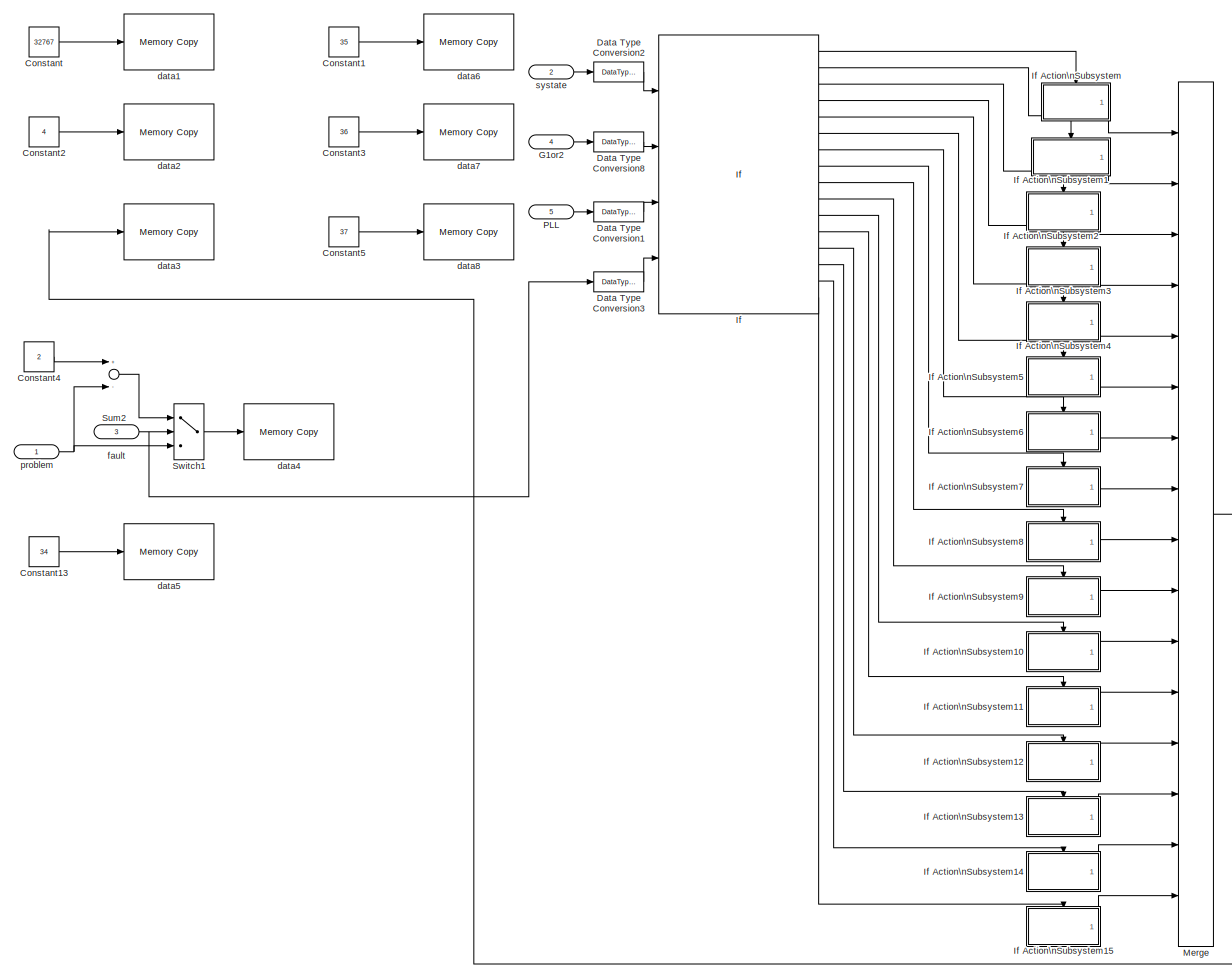
[diagram: Subsystem4 - part 1/1, most of the canvas]
BLOCK [SubSystem] Subsystem4
  FunctionWithSeparateData = off
  MaskHideContents = off
  MinAlgLoopOccurrences = off
  Opaque = off
  Ports = [5]
  PropExecContextOutsideSubsystem = off
  RTWSystemCode = Auto
  RequestExecContextInheritance = off
  SID = 7630
BLOCK [Constant] Subsystem4/Constant
  OutDataTypeStr = int16
  SID = 7631
  Value = 32767
BLOCK [Constant] Subsystem4/Constant1
  OutDataTypeStr = int16
  SID = 7632
  Value = 35
BLOCK [Constant] Subsystem4/Constant13
  OutDataTypeStr = int16
  SID = 7633
  Value = 34
BLOCK [Constant] Subsystem4/Constant2
  OutDataTypeStr = int16
  SID = 7634
  Value = 4
BLOCK [Constant] Subsystem4/Constant3
  OutDataTypeStr = int16
  SID = 7635
  Value = 36
BLOCK [Constant] Subsystem4/Constant4
  OutDataTypeStr = int16
  SID = 7785
  Value = 2
BLOCK [Constant] Subsystem4/Constant5
  OutDataTypeStr = int16
  SID = 7637
  Value = 37
BLOCK [DataTypeConversion] Subsystem4/Data Type Conversion1
  OutDataTypeStr = int16
  RndMeth = Floor
  SID = 8231
  SaturateOnIntegerOverflow = off
BLOCK [DataTypeConversion] Subsystem4/Data Type Conversion2
  OutDataTypeStr = int16
  RndMeth = Floor
  SID = 8232
  SaturateOnIntegerOverflow = off
BLOCK [DataTypeConversion] Subsystem4/Data Type Conversion3
  OutDataTypeStr = int16
  RndMeth = Floor
  SID = 8491
  SaturateOnIntegerOverflow = off
BLOCK [DataTypeConversion] Subsystem4/Data Type Conversion8
  OutDataTypeStr = int16
  RndMeth = Floor
  SID = 8230
  SaturateOnIntegerOverflow = off
BLOCK [Inport] Subsystem4/G1or2
  IconDisplay = Port number
  Port = 4
  SID = 8177
BLOCK [If] Subsystem4/If
  ElseIfExpressions = u1==1,u1==2&u2==1,u1==2&u2==0,u1==3&u2==1,u1==3&u2==0,u1==4|u1==5,u1==6,u1==7&u2==1,u1==7&u2==0,u1==11&u2==1,u1==11&u2==0,u1==12,u1==8|u1==9&u2==1,u1==8|u1==9&u2==0,u1==10
  IfExpression = u1==0|u1==13
  NumInputs = 4
  Ports = [4, 16]
  SID = 8188
  ShowElse = off
BLOCK [SubSystem] Subsystem4/If Action\nSubsystem
  FunctionWithSeparateData = off
  MaskHideContents = off
  MinAlgLoopOccurrences = off
  Opaque = off
  Ports = [0, 1, 0, 0, 0, 0, 0, 1]
  PropExecContextOutsideSubsystem = off
  RTWSystemCode = Auto
  RequestExecContextInheritance = off
  SID = 8183
  TreatAsAtomicUnit = on
BLOCK [ActionPort] Subsystem4/If Action\nSubsystem/Action Port
  ActionType = then
  SID = 8185
BLOCK [Constant] Subsystem4/If Action\nSubsystem/Constant4
  OutDataTypeStr = int16
  SID = 8189
  Value = 0
BLOCK [Outport] Subsystem4/If Action\nSubsystem/Out1
  IconDisplay = Port number
  SID = 8186
BLOCK [SubSystem] Subsystem4/If Action\nSubsystem1
  FunctionWithSeparateData = off
  MaskHideContents = off
  MinAlgLoopOccurrences = off
  Opaque = off
  Ports = [0, 1, 0, 0, 0, 0, 0, 1]
  PropExecContextOutsideSubsystem = off
  RTWSystemCode = Auto
  RequestExecContextInheritance = off
  SID = 8192
  TreatAsAtomicUnit = on
BLOCK [ActionPort] Subsystem4/If Action\nSubsystem1/Action Port
  ActionType = elseif
  SID = 8193
BLOCK [Constant] Subsystem4/If Action\nSubsystem1/Constant4
  OutDataTypeStr = int16
  SID = 8194
BLOCK [Outport] Subsystem4/If Action\nSubsystem1/Out1
  IconDisplay = Port number
  SID = 8195
BLOCK [SubSystem] Subsystem4/If Action\nSubsystem10
  FunctionWithSeparateData = off
  MaskHideContents = off
  MinAlgLoopOccurrences = off
  Opaque = off
  Ports = [0, 1, 0, 0, 0, 0, 0, 1]
  PropExecContextOutsideSubsystem = off
  RTWSystemCode = Auto
  RequestExecContextInheritance = off
  SID = 8566
  TreatAsAtomicUnit = on
BLOCK [ActionPort] Subsystem4/If Action\nSubsystem10/Action Port
  ActionType = elseif
  SID = 8567
BLOCK [Constant] Subsystem4/If Action\nSubsystem10/Constant4
  OutDataTypeStr = int16
  SID = 8568
  Value = 6
BLOCK [Outport] Subsystem4/If Action\nSubsystem10/Out1
  IconDisplay = Port number
  SID = 8569
BLOCK [SubSystem] Subsystem4/If Action\nSubsystem11
  FunctionWithSeparateData = off
  MaskHideContents = off
  MinAlgLoopOccurrences = off
  Opaque = off
  Ports = [0, 1, 0, 0, 0, 0, 0, 1]
  PropExecContextOutsideSubsystem = off
  RTWSystemCode = Auto
  RequestExecContextInheritance = off
  SID = 8570
  TreatAsAtomicUnit = on
BLOCK [ActionPort] Subsystem4/If Action\nSubsystem11/Action Port
  ActionType = elseif
  SID = 8571
BLOCK [Constant] Subsystem4/If Action\nSubsystem11/Constant4
  OutDataTypeStr = int16
  SID = 8572
  Value = 7
BLOCK [Outport] Subsystem4/If Action\nSubsystem11/Out1
  IconDisplay = Port number
  SID = 8573
BLOCK [SubSystem] Subsystem4/If Action\nSubsystem12
  FunctionWithSeparateData = off
  MaskHideContents = off
  MinAlgLoopOccurrences = off
  Opaque = off
  Ports = [0, 1, 0, 0, 0, 0, 0, 1]
  PropExecContextOutsideSubsystem = off
  RTWSystemCode = Auto
  RequestExecContextInheritance = off
  SID = 8574
  TreatAsAtomicUnit = on
BLOCK [ActionPort] Subsystem4/If Action\nSubsystem12/Action Port
  ActionType = elseif
  SID = 8575
BLOCK [Constant] Subsystem4/If Action\nSubsystem12/Constant4
  OutDataTypeStr = int16
  SID = 8576
BLOCK [Outport] Subsystem4/If Action\nSubsystem12/Out1
  IconDisplay = Port number
  SID = 8577
BLOCK [SubSystem] Subsystem4/If Action\nSubsystem13
  FunctionWithSeparateData = off
  MaskHideContents = off
  MinAlgLoopOccurrences = off
  Opaque = off
  Ports = [0, 1, 0, 0, 0, 0, 0, 1]
  PropExecContextOutsideSubsystem = off
  RTWSystemCode = Auto
  RequestExecContextInheritance = off
  SID = 8602
  TreatAsAtomicUnit = on
BLOCK [ActionPort] Subsystem4/If Action\nSubsystem13/Action Port
  ActionType = elseif
  SID = 8603
BLOCK [Constant] Subsystem4/If Action\nSubsystem13/Constant4
  OutDataTypeStr = int16
  SID = 8604
  Value = 10
BLOCK [Outport] Subsystem4/If Action\nSubsystem13/Out1
  IconDisplay = Port number
  SID = 8605
BLOCK [SubSystem] Subsystem4/If Action\nSubsystem14
  FunctionWithSeparateData = off
  MaskHideContents = off
  MinAlgLoopOccurrences = off
  Opaque = off
  Ports = [0, 1, 0, 0, 0, 0, 0, 1]
  PropExecContextOutsideSubsystem = off
  RTWSystemCode = Auto
  RequestExecContextInheritance = off
  SID = 8700
  TreatAsAtomicUnit = on
BLOCK [ActionPort] Subsystem4/If Action\nSubsystem14/Action Port
  ActionType = elseif
  SID = 8701
BLOCK [Constant] Subsystem4/If Action\nSubsystem14/Constant4
  OutDataTypeStr = int16
  SID = 8702
  Value = 11
BLOCK [Outport] Subsystem4/If Action\nSubsystem14/Out1
  IconDisplay = Port number
  SID = 8703
BLOCK [SubSystem] Subsystem4/If Action\nSubsystem15
  FunctionWithSeparateData = off
  MaskHideContents = off
  MinAlgLoopOccurrences = off
  Opaque = off
  Ports = [0, 1, 0, 0, 0, 0, 0, 1]
  PropExecContextOutsideSubsystem = off
  RTWSystemCode = Auto
  RequestExecContextInheritance = off
  SID = 8704
  TreatAsAtomicUnit = on
BLOCK [ActionPort] Subsystem4/If Action\nSubsystem15/Action Port
  ActionType = elseif
  SID = 8705
BLOCK [Constant] Subsystem4/If Action\nSubsystem15/Constant4
  OutDataTypeStr = int16
  SID = 8706
  Value = 5
BLOCK [Outport] Subsystem4/If Action\nSubsystem15/Out1
  IconDisplay = Port number
  SID = 8707
BLOCK [SubSystem] Subsystem4/If Action\nSubsystem2
  FunctionWithSeparateData = off
  MaskHideContents = off
  MinAlgLoopOccurrences = off
  Opaque = off
  Ports = [0, 1, 0, 0, 0, 0, 0, 1]
  PropExecContextOutsideSubsystem = off
  RTWSystemCode = Auto
  RequestExecContextInheritance = off
  SID = 8196
  TreatAsAtomicUnit = on
BLOCK [ActionPort] Subsystem4/If Action\nSubsystem2/Action Port
  ActionType = elseif
  SID = 8197
BLOCK [Constant] Subsystem4/If Action\nSubsystem2/Constant4
  OutDataTypeStr = int16
  SID = 8198
  Value = 10
BLOCK [Outport] Subsystem4/If Action\nSubsystem2/Out1
  IconDisplay = Port number
  SID = 8199
BLOCK [SubSystem] Subsystem4/If Action\nSubsystem3
  FunctionWithSeparateData = off
  MaskHideContents = off
  MinAlgLoopOccurrences = off
  Opaque = off
  Ports = [0, 1, 0, 0, 0, 0, 0, 1]
  PropExecContextOutsideSubsystem = off
  RTWSystemCode = Auto
  RequestExecContextInheritance = off
  SID = 8200
  TreatAsAtomicUnit = on
BLOCK [ActionPort] Subsystem4/If Action\nSubsystem3/Action Port
  ActionType = elseif
  SID = 8201
BLOCK [Constant] Subsystem4/If Action\nSubsystem3/Constant4
  OutDataTypeStr = int16
  SID = 8202
  Value = 11
BLOCK [Outport] Subsystem4/If Action\nSubsystem3/Out1
  IconDisplay = Port number
  SID = 8203
BLOCK [SubSystem] Subsystem4/If Action\nSubsystem4
  FunctionWithSeparateData = off
  MaskHideContents = off
  MinAlgLoopOccurrences = off
  Opaque = off
  Ports = [0, 1, 0, 0, 0, 0, 0, 1]
  PropExecContextOutsideSubsystem = off
  RTWSystemCode = Auto
  RequestExecContextInheritance = off
  SID = 8204
  TreatAsAtomicUnit = on
BLOCK [ActionPort] Subsystem4/If Action\nSubsystem4/Action Port
  ActionType = elseif
  SID = 8205
BLOCK [Constant] Subsystem4/If Action\nSubsystem4/Constant4
  OutDataTypeStr = int16
  SID = 8206
  Value = 6
BLOCK [Outport] Subsystem4/If Action\nSubsystem4/Out1
  IconDisplay = Port number
  SID = 8207
BLOCK [SubSystem] Subsystem4/If Action\nSubsystem5
  FunctionWithSeparateData = off
  MaskHideContents = off
  MinAlgLoopOccurrences = off
  Opaque = off
  Ports = [0, 1, 0, 0, 0, 0, 0, 1]
  PropExecContextOutsideSubsystem = off
  RTWSystemCode = Auto
  RequestExecContextInheritance = off
  SID = 8208
  TreatAsAtomicUnit = on
BLOCK [ActionPort] Subsystem4/If Action\nSubsystem5/Action Port
  ActionType = elseif
  SID = 8209
BLOCK [Constant] Subsystem4/If Action\nSubsystem5/Constant4
  OutDataTypeStr = int16
  SID = 8210
  Value = 7
BLOCK [Outport] Subsystem4/If Action\nSubsystem5/Out1
  IconDisplay = Port number
  SID = 8211
BLOCK [SubSystem] Subsystem4/If Action\nSubsystem6
  FunctionWithSeparateData = off
  MaskHideContents = off
  MinAlgLoopOccurrences = off
  Opaque = off
  Ports = [0, 1, 0, 0, 0, 0, 0, 1]
  PropExecContextOutsideSubsystem = off
  RTWSystemCode = Auto
  RequestExecContextInheritance = off
  SID = 8466
  TreatAsAtomicUnit = on
BLOCK [ActionPort] Subsystem4/If Action\nSubsystem6/Action Port
  ActionType = elseif
  SID = 8467
BLOCK [Constant] Subsystem4/If Action\nSubsystem6/Constant4
  OutDataTypeStr = int16
  SID = 8468
  Value = 4
BLOCK [Outport] Subsystem4/If Action\nSubsystem6/Out1
  IconDisplay = Port number
  SID = 8469
BLOCK [SubSystem] Subsystem4/If Action\nSubsystem7
  FunctionWithSeparateData = off
  MaskHideContents = off
  MinAlgLoopOccurrences = off
  Opaque = off
  Ports = [0, 1, 0, 0, 0, 0, 0, 1]
  PropExecContextOutsideSubsystem = off
  RTWSystemCode = Auto
  RequestExecContextInheritance = off
  SID = 8492
  TreatAsAtomicUnit = on
BLOCK [ActionPort] Subsystem4/If Action\nSubsystem7/Action Port
  ActionType = elseif
  SID = 8493
BLOCK [Constant] Subsystem4/If Action\nSubsystem7/Constant4
  OutDataTypeStr = int16
  SID = 8494
  Value = 4
BLOCK [Outport] Subsystem4/If Action\nSubsystem7/Out1
  IconDisplay = Port number
  SID = 8495
BLOCK [SubSystem] Subsystem4/If Action\nSubsystem8
  FunctionWithSeparateData = off
  MaskHideContents = off
  MinAlgLoopOccurrences = off
  Opaque = off
  Ports = [0, 1, 0, 0, 0, 0, 0, 1]
  PropExecContextOutsideSubsystem = off
  RTWSystemCode = Auto
  RequestExecContextInheritance = off
  SID = 8497
  TreatAsAtomicUnit = on
BLOCK [ActionPort] Subsystem4/If Action\nSubsystem8/Action Port
  ActionType = elseif
  SID = 8498
BLOCK [Constant] Subsystem4/If Action\nSubsystem8/Constant4
  OutDataTypeStr = int16
  SID = 8499
  Value = 2
BLOCK [Outport] Subsystem4/If Action\nSubsystem8/Out1
  IconDisplay = Port number
  SID = 8500
BLOCK [SubSystem] Subsystem4/If Action\nSubsystem9
  FunctionWithSeparateData = off
  MaskHideContents = off
  MinAlgLoopOccurrences = off
  Opaque = off
  Ports = [0, 1, 0, 0, 0, 0, 0, 1]
  PropExecContextOutsideSubsystem = off
  RTWSystemCode = Auto
  RequestExecContextInheritance = off
  SID = 8501
  TreatAsAtomicUnit = on
BLOCK [ActionPort] Subsystem4/If Action\nSubsystem9/Action Port
  ActionType = elseif
  SID = 8502
BLOCK [Constant] Subsystem4/If Action\nSubsystem9/Constant4
  OutDataTypeStr = int16
  SID = 8503
  Value = 3
BLOCK [Outport] Subsystem4/If Action\nSubsystem9/Out1
  IconDisplay = Port number
  SID = 8504
BLOCK [Merge] Subsystem4/Merge
  Inputs = 16
  Ports = [16, 1]
  SID = 8190
BLOCK [Inport] Subsystem4/PLL
  IconDisplay = Port number
  Port = 5
  SID = 8178
BLOCK [Sum] Subsystem4/Sum2
  InputSameDT = off
  Inputs = +-
  OutDataTypeStr = Inherit: Inherit via internal rule
  Ports = [2, 1]
  SID = 7786
  SaturateOnIntegerOverflow = off
BLOCK [Switch] Subsystem4/Switch1
  Criteria = u2 > Threshold
  SID = 7784
BLOCK [Reference] Subsystem4/data1  REF=idelinklib_common/Memory Copy
  CCAfterWrite = /* Custom Code After Write*/
  CCBeforeWrite = /* Custom Code Before Write*/
  Ports = [1]
  Priority = 9
  SID = 7639
  SourceBlock = idelinklib_common/Memory Copy
  SourceType = Memory Copy
  copyFrom = Input port
  copyFromAddress = hex2dec('200004')
  copyFromAddressSource = Specify via dialog
  copyFromSrcCode = data
  copyTo = Specified source code symbol
  copyToAddress = temp
  copyToAddressSource = Specify via dialog
  copyToSrcCode = data3
  dataDimensionFrom = 1
  dataTypeFrom = int16
  dataTypeTo = int16
  emitCCAfterWrite = off
  emitCCBeforeWrite = off
  enableBlockingMode = off
  initValue = bin2dec('00000000')
  initValueSrc = Specify constant value
  initValueSrcCode = myInitValueVariable
  isRealtimeEnabled = off
  maskOperator = bitwise AND
  offsetFrom = 0
  offsetFromSrc = Specify via dialog
  offsetTo = 0
  offsetToSrc = Specify via dialog
  sampleTime = inf
  strideFrom = 1
  strideTo = 1
  termValue = bin2dec('00000000')
  useAsMask = off
  useDMACopy = off
  useInitValue = on
  useOffsetFrom = off
  useOffsetTo = on
  useTermValue = off
BLOCK [Reference] Subsystem4/data2  REF=idelinklib_common/Memory Copy
  CCAfterWrite = /* Custom Code After Write*/
  CCBeforeWrite = /* Custom Code Before Write*/
  Ports = [1]
  Priority = 9
  SID = 7640
  SourceBlock = idelinklib_common/Memory Copy
  SourceType = Memory Copy
  copyFrom = Input port
  copyFromAddress = hex2dec('200004')
  copyFromAddressSource = Specify via dialog
  copyFromSrcCode = data
  copyTo = Specified source code symbol
  copyToAddress = temp
  copyToAddressSource = Specify via dialog
  copyToSrcCode = data3
  dataDimensionFrom = 1
  dataTypeFrom = int16
  dataTypeTo = int16
  emitCCAfterWrite = off
  emitCCBeforeWrite = off
  enableBlockingMode = off
  initValue = bin2dec('00000000')
  initValueSrc = Specify constant value
  initValueSrcCode = myInitValueVariable
  isRealtimeEnabled = off
  maskOperator = bitwise AND
  offsetFrom = 0
  offsetFromSrc = Specify via dialog
  offsetTo = 1
  offsetToSrc = Specify via dialog
  sampleTime = inf
  strideFrom = 1
  strideTo = 1
  termValue = bin2dec('00000000')
  useAsMask = off
  useDMACopy = off
  useInitValue = on
  useOffsetFrom = off
  useOffsetTo = on
  useTermValue = off
BLOCK [Reference] Subsystem4/data3  REF=idelinklib_common/Memory Copy
  CCAfterWrite = /* Custom Code After Write*/
  CCBeforeWrite = /* Custom Code Before Write*/
  Ports = [1]
  Priority = 9
  SID = 7641
  SourceBlock = idelinklib_common/Memory Copy
  SourceType = Memory Copy
  copyFrom = Input port
  copyFromAddress = hex2dec('200004')
  copyFromAddressSource = Specify via dialog
  copyFromSrcCode = data
  copyTo = Specified source code symbol
  copyToAddress = temp
  copyToAddressSource = Specify via dialog
  copyToSrcCode = data3
  dataDimensionFrom = 1
  dataTypeFrom = int16
  dataTypeTo = int16
  emitCCAfterWrite = off
  emitCCBeforeWrite = off
  enableBlockingMode = off
  initValue = bin2dec('00000000')
  initValueSrc = Specify constant value
  initValueSrcCode = myInitValueVariable
  isRealtimeEnabled = off
  maskOperator = bitwise AND
  offsetFrom = 0
  offsetFromSrc = Specify via dialog
  offsetTo = 2
  offsetToSrc = Specify via dialog
  sampleTime = inf
  strideFrom = 1
  strideTo = 1
  termValue = bin2dec('00000000')
  useAsMask = off
  useDMACopy = off
  useInitValue = on
  useOffsetFrom = off
  useOffsetTo = on
  useTermValue = off
BLOCK [Reference] Subsystem4/data4  REF=idelinklib_common/Memory Copy
  CCAfterWrite = /* Custom Code After Write*/
  CCBeforeWrite = /* Custom Code Before Write*/
  Ports = [1]
  Priority = 9
  SID = 7642
  SourceBlock = idelinklib_common/Memory Copy
  SourceType = Memory Copy
  copyFrom = Input port
  copyFromAddress = hex2dec('200004')
  copyFromAddressSource = Specify via dialog
  copyFromSrcCode = data
  copyTo = Specified source code symbol
  copyToAddress = temp
  copyToAddressSource = Specify via dialog
  copyToSrcCode = data3
  dataDimensionFrom = 1
  dataTypeFrom = int16
  dataTypeTo = int16
  emitCCAfterWrite = off
  emitCCBeforeWrite = off
  enableBlockingMode = off
  initValue = bin2dec('00000000')
  initValueSrc = Specify constant value
  initValueSrcCode = myInitValueVariable
  isRealtimeEnabled = off
  maskOperator = bitwise AND
  offsetFrom = 0
  offsetFromSrc = Specify via dialog
  offsetTo = 3
  offsetToSrc = Specify via dialog
  sampleTime = inf
  strideFrom = 1
  strideTo = 1
  termValue = bin2dec('00000000')
  useAsMask = off
  useDMACopy = off
  useInitValue = on
  useOffsetFrom = off
  useOffsetTo = on
  useTermValue = off
BLOCK [Reference] Subsystem4/data5  REF=idelinklib_common/Memory Copy
  CCAfterWrite = /* Custom Code After Write*/
  CCBeforeWrite = /* Custom Code Before Write*/
  Ports = [1]
  Priority = 9
  SID = 7643
  SourceBlock = idelinklib_common/Memory Copy
  SourceType = Memory Copy
  copyFrom = Input port
  copyFromAddress = hex2dec('200004')
  copyFromAddressSource = Specify via dialog
  copyFromSrcCode = data
  copyTo = Specified source code symbol
  copyToAddress = temp
  copyToAddressSource = Specify via dialog
  copyToSrcCode = data3
  dataDimensionFrom = 1
  dataTypeFrom = int16
  dataTypeTo = int16
  emitCCAfterWrite = off
  emitCCBeforeWrite = off
  enableBlockingMode = off
  initValue = bin2dec('00000000')
  initValueSrc = Specify constant value
  initValueSrcCode = myInitValueVariable
  isRealtimeEnabled = off
  maskOperator = bitwise AND
  offsetFrom = 0
  offsetFromSrc = Specify via dialog
  offsetTo = 4
  offsetToSrc = Specify via dialog
  sampleTime = inf
  strideFrom = 1
  strideTo = 1
  termValue = bin2dec('00000000')
  useAsMask = off
  useDMACopy = off
  useInitValue = off
  useOffsetFrom = off
  useOffsetTo = on
  useTermValue = off
BLOCK [Reference] Subsystem4/data6  REF=idelinklib_common/Memory Copy
  CCAfterWrite = /* Custom Code After Write*/
  CCBeforeWrite = /* Custom Code Before Write*/
  Ports = [1]
  Priority = 9
  SID = 7644
  SourceBlock = idelinklib_common/Memory Copy
  SourceType = Memory Copy
  copyFrom = Input port
  copyFromAddress = hex2dec('200004')
  copyFromAddressSource = Specify via dialog
  copyFromSrcCode = data
  copyTo = Specified source code symbol
  copyToAddress = temp
  copyToAddressSource = Specify via dialog
  copyToSrcCode = data3
  dataDimensionFrom = 1
  dataTypeFrom = int16
  dataTypeTo = int16
  emitCCAfterWrite = off
  emitCCBeforeWrite = off
  enableBlockingMode = off
  initValue = bin2dec('00000000')
  initValueSrc = Specify constant value
  initValueSrcCode = myInitValueVariable
  isRealtimeEnabled = off
  maskOperator = bitwise AND
  offsetFrom = 0
  offsetFromSrc = Specify via dialog
  offsetTo = 5
  offsetToSrc = Specify via dialog
  sampleTime = inf
  strideFrom = 1
  strideTo = 1
  termValue = bin2dec('00000000')
  useAsMask = off
  useDMACopy = off
  useInitValue = on
  useOffsetFrom = off
  useOffsetTo = on
  useTermValue = off
BLOCK [Reference] Subsystem4/data7  REF=idelinklib_common/Memory Copy
  CCAfterWrite = /* Custom Code After Write*/
  CCBeforeWrite = /* Custom Code Before Write*/
  Ports = [1]
  Priority = 9
  SID = 7645
  SourceBlock = idelinklib_common/Memory Copy
  SourceType = Memory Copy
  copyFrom = Input port
  copyFromAddress = hex2dec('200004')
  copyFromAddressSource = Specify via dialog
  copyFromSrcCode = data
  copyTo = Specified source code symbol
  copyToAddress = temp
  copyToAddressSource = Specify via dialog
  copyToSrcCode = data3
  dataDimensionFrom = 1
  dataTypeFrom = int16
  dataTypeTo = int16
  emitCCAfterWrite = off
  emitCCBeforeWrite = off
  enableBlockingMode = off
  initValue = bin2dec('00000000')
  initValueSrc = Specify constant value
  initValueSrcCode = myInitValueVariable
  isRealtimeEnabled = off
  maskOperator = bitwise AND
  offsetFrom = 0
  offsetFromSrc = Specify via dialog
  offsetTo = 6
  offsetToSrc = Specify via dialog
  sampleTime = inf
  strideFrom = 1
  strideTo = 1
  termValue = bin2dec('00000000')
  useAsMask = off
  useDMACopy = off
  useInitValue = on
  useOffsetFrom = off
  useOffsetTo = on
  useTermValue = off
BLOCK [Reference] Subsystem4/data8  REF=idelinklib_common/Memory Copy
  CCAfterWrite = /* Custom Code After Write*/
  CCBeforeWrite = /* Custom Code Before Write*/
  Ports = [1]
  Priority = 9
  SID = 7646
  SourceBlock = idelinklib_common/Memory Copy
  SourceType = Memory Copy
  copyFrom = Input port
  copyFromAddress = hex2dec('200004')
  copyFromAddressSource = Specify via dialog
  copyFromSrcCode = data
  copyTo = Specified source code symbol
  copyToAddress = temp
  copyToAddressSource = Specify via dialog
  copyToSrcCode = data3
  dataDimensionFrom = 1
  dataTypeFrom = int16
  dataTypeTo = int16
  emitCCAfterWrite = off
  emitCCBeforeWrite = off
  enableBlockingMode = off
  initValue = bin2dec('00000000')
  initValueSrc = Specify constant value
  initValueSrcCode = myInitValueVariable
  isRealtimeEnabled = off
  maskOperator = bitwise AND
  offsetFrom = 0
  offsetFromSrc = Specify via dialog
  offsetTo = 7
  offsetToSrc = Specify via dialog
  sampleTime = inf
  strideFrom = 1
  strideTo = 1
  termValue = bin2dec('00000000')
  useAsMask = off
  useDMACopy = off
  useInitValue = on
  useOffsetFrom = off
  useOffsetTo = on
  useTermValue = off
BLOCK [Inport] Subsystem4/fault
  IconDisplay = Port number
  Port = 3
  SID = 7783
BLOCK [Inport] Subsystem4/problem
  IconDisplay = Port number
  SID = 7668
BLOCK [Inport] Subsystem4/systate
  IconDisplay = Port number
  Port = 2
  SID = 7741
BLOCK [SubSystem] Subsystem5
  FunctionWithSeparateData = off
  MaskHideContents = off
  MinAlgLoopOccurrences = off
  Opaque = off
  Ports = [2]
  PropExecContextOutsideSubsystem = off
  RTWSystemCode = Auto
  RequestExecContextInheritance = off
  SID = 16058
BLOCK [Reference] Subsystem5/B2D  REF=commutil2/Bit to Integer\nConverter
  Ports = [1, 1]
  SID = 1960
  SourceBlock = commutil2/Bit to Integer\nConverter
  SourceType = Bit to Integer Converter
  bitOrder = MSB first
  nbits = 8
  outDtype = uint8
  outDtypeSigned = Inherit via internal rule
  signedOutputValues = Unsigned
BLOCK [Constant] Subsystem5/Constant4
  OutDataTypeStr = int8
  Priority = 1
  SID = 16051
  Value = [1 1 1 1 1 1 1 0]
BLOCK [Constant] Subsystem5/Constant6
  OutDataTypeStr = int8
  Priority = 1
  SID = 16053
  Value = [1 1 1 1 1 1 1 1]
BLOCK [Inport] Subsystem5/In
  IconDisplay = Port number
  SID = 16059
BLOCK [Logic] Subsystem5/Logical\nOperator3
  AllPortsSameDT = off
  OutDataTypeStr = boolean
  Ports = [2, 1]
  SID = 16054
BLOCK [Reference] Subsystem5/Memory Copy  REF=idelinklib_common/Memory Copy
  CCAfterWrite = /* Custom Code After Write*/
  CCBeforeWrite = /* Custom Code Before Write*/
  Ports = [1]
  Priority = 3
  SID = 1964
  SourceBlock = idelinklib_common/Memory Copy
  SourceType = Memory Copy
  copyFrom = Input port
  copyFromAddress = hex2dec('00001000')
  copyFromAddressSource = Specify via dialog
  copyFromSrcCode = myVariableSrc
  copyTo = Specified address
  copyToAddress = hex2dec('200010')
  copyToAddressSource = Specify via dialog
  copyToSrcCode = myVariableDst
  dataDimensionFrom = 1
  dataTypeFrom = uint8
  dataTypeTo = int8
  emitCCAfterWrite = off
  emitCCBeforeWrite = off
  enableBlockingMode = off
  initValue = bin2dec('00000000')
  initValueSrc = Specify constant value
  initValueSrcCode = myInitValueVariable
  isRealtimeEnabled = off
  maskOperator = bitwise AND
  offsetFrom = 0
  offsetFromSrc = Specify via dialog
  offsetTo = 0
  offsetToSrc = Specify via dialog
  sampleTime = inf
  strideFrom = 1
  strideTo = 1
  termValue = bin2dec('00000000')
  useAsMask = off
  useDMACopy = off
  useInitValue = on
  useOffsetFrom = off
  useOffsetTo = off
  useTermValue = on
BLOCK [Inport] Subsystem5/Over_Nr
  IconDisplay = Port number
  Port = 2
  SID = 16061
BLOCK [Switch] Subsystem5/Switch5
  Criteria = u2 > Threshold
  SID = 16052
BLOCK [SwitchCase] Switch Case
  CaseConditions = {0,1,2,3,4,5,6,7,8,9,10,11,12}
  Ports = [1, 13]
  SID = 1972
  ShowDefaultCase = off
BLOCK [SubSystem] Valuble
  FunctionWithSeparateData = off
  MaskHideContents = off
  MinAlgLoopOccurrences = off
  Opaque = off
  Ports = []
  PropExecContextOutsideSubsystem = off
  RTWSystemCode = Auto
  RequestExecContextInheritance = off
  SID = 1128
BLOCK [Reference] Valuble/Ad  REF=idelinklib_common/Memory Allocate
  Ports = []
  SID = 1129
  SourceBlock = idelinklib_common/Memory Allocate
  SourceType = Memory Allocate
  alignThisVariable = off
  bindMemorySection = on
  dataDimension = 12
  dataType = int16
  initialValue = 0
  initializeMemory = off
  memoryAlignmentBoundary = 4
  memorySection = mySEC1
  sectionStartAddress = hex2dec('8000')
  specifyMemorySection = off
  specifyQualifier = off
  typeQualifier = volatile
  variableName = adtemp1
BLOCK [Reference] Valuble/Ad1  REF=idelinklib_common/Memory Allocate
  Ports = []
  SID = 2704
  SourceBlock = idelinklib_common/Memory Allocate
  SourceType = Memory Allocate
  alignThisVariable = off
  bindMemorySection = on
  dataDimension = 1
  dataType = int16
  initialValue = 0
  initializeMemory = off
  memoryAlignmentBoundary = 4
  memorySection = mySEC1
  sectionStartAddress = hex2dec('8000')
  specifyMemorySection = off
  specifyQualifier = off
  typeQualifier = volatile
  variableName = dq
BLOCK [Reference] Valuble/M1  REF=idelinklib_common/Memory Allocate
  Ports = []
  SID = 8802
  SourceBlock = idelinklib_common/Memory Allocate
  SourceType = Memory Allocate
  alignThisVariable = off
  bindMemorySection = on
  dataDimension = 1
  dataType = int16
  initialValue = 0
  initializeMemory = off
  memoryAlignmentBoundary = 4
  memorySection = mySEC1
  sectionStartAddress = hex2dec('8000')
  specifyMemorySection = off
  specifyQualifier = off
  typeQualifier = volatile
  variableName = M1
BLOCK [Reference] Valuble/M10  REF=idelinklib_common/Memory Allocate
  Ports = []
  SID = 8812
  SourceBlock = idelinklib_common/Memory Allocate
  SourceType = Memory Allocate
  alignThisVariable = off
  bindMemorySection = on
  dataDimension = 1
  dataType = int16
  initialValue = 0
  initializeMemory = off
  memoryAlignmentBoundary = 4
  memorySection = mySEC1
  sectionStartAddress = hex2dec('8000')
  specifyMemorySection = off
  specifyQualifier = off
  typeQualifier = volatile
  variableName = M10
BLOCK [Reference] Valuble/M11  REF=idelinklib_common/Memory Allocate
  Ports = []
  SID = 8813
  SourceBlock = idelinklib_common/Memory Allocate
  SourceType = Memory Allocate
  alignThisVariable = off
  bindMemorySection = on
  dataDimension = 1
  dataType = int16
  initialValue = 0
  initializeMemory = off
  memoryAlignmentBoundary = 4
  memorySection = mySEC1
  sectionStartAddress = hex2dec('8000')
  specifyMemorySection = off
  specifyQualifier = off
  typeQualifier = volatile
  variableName = M11
BLOCK [Reference] Valuble/M12  REF=idelinklib_common/Memory Allocate
  Ports = []
  SID = 8814
  SourceBlock = idelinklib_common/Memory Allocate
  SourceType = Memory Allocate
  alignThisVariable = off
  bindMemorySection = on
  dataDimension = 1
  dataType = int16
  initialValue = 0
  initializeMemory = off
  memoryAlignmentBoundary = 4
  memorySection = mySEC1
  sectionStartAddress = hex2dec('8000')
  specifyMemorySection = off
  specifyQualifier = off
  typeQualifier = volatile
  variableName = M12
BLOCK [Reference] Valuble/M2  REF=idelinklib_common/Memory Allocate
  Ports = []
  SID = 8804
  SourceBlock = idelinklib_common/Memory Allocate
  SourceType = Memory Allocate
  alignThisVariable = off
  bindMemorySection = on
  dataDimension = 1
  dataType = int16
  initialValue = 0
  initializeMemory = off
  memoryAlignmentBoundary = 4
  memorySection = mySEC1
  sectionStartAddress = hex2dec('8000')
  specifyMemorySection = off
  specifyQualifier = off
  typeQualifier = volatile
  variableName = M2
BLOCK [Reference] Valuble/M3  REF=idelinklib_common/Memory Allocate
  Ports = []
  SID = 8805
  SourceBlock = idelinklib_common/Memory Allocate
  SourceType = Memory Allocate
  alignThisVariable = off
  bindMemorySection = on
  dataDimension = 1
  dataType = int16
  initialValue = 0
  initializeMemory = off
  memoryAlignmentBoundary = 4
  memorySection = mySEC1
  sectionStartAddress = hex2dec('8000')
  specifyMemorySection = off
  specifyQualifier = off
  typeQualifier = volatile
  variableName = M3
BLOCK [Reference] Valuble/M4  REF=idelinklib_common/Memory Allocate
  Ports = []
  SID = 8806
  SourceBlock = idelinklib_common/Memory Allocate
  SourceType = Memory Allocate
  alignThisVariable = off
  bindMemorySection = on
  dataDimension = 1
  dataType = int16
  initialValue = 0
  initializeMemory = off
  memoryAlignmentBoundary = 4
  memorySection = mySEC1
  sectionStartAddress = hex2dec('8000')
  specifyMemorySection = off
  specifyQualifier = off
  typeQualifier = volatile
  variableName = M4
BLOCK [Reference] Valuble/M5  REF=idelinklib_common/Memory Allocate
  Ports = []
  SID = 8807
  SourceBlock = idelinklib_common/Memory Allocate
  SourceType = Memory Allocate
  alignThisVariable = off
  bindMemorySection = on
  dataDimension = 1
  dataType = int16
  initialValue = 0
  initializeMemory = off
  memoryAlignmentBoundary = 4
  memorySection = mySEC1
  sectionStartAddress = hex2dec('8000')
  specifyMemorySection = off
  specifyQualifier = off
  typeQualifier = volatile
  variableName = M5
BLOCK [Reference] Valuble/M6  REF=idelinklib_common/Memory Allocate
  Ports = []
  SID = 8808
  SourceBlock = idelinklib_common/Memory Allocate
  SourceType = Memory Allocate
  alignThisVariable = off
  bindMemorySection = on
  dataDimension = 1
  dataType = int16
  initialValue = 0
  initializeMemory = off
  memoryAlignmentBoundary = 4
  memorySection = mySEC1
  sectionStartAddress = hex2dec('8000')
  specifyMemorySection = off
  specifyQualifier = off
  typeQualifier = volatile
  variableName = M6
BLOCK [Reference] Valuble/M7  REF=idelinklib_common/Memory Allocate
  Ports = []
  SID = 8809
  SourceBlock = idelinklib_common/Memory Allocate
  SourceType = Memory Allocate
  alignThisVariable = off
  bindMemorySection = on
  dataDimension = 1
  dataType = int16
  initialValue = 0
  initializeMemory = off
  memoryAlignmentBoundary = 4
  memorySection = mySEC1
  sectionStartAddress = hex2dec('8000')
  specifyMemorySection = off
  specifyQualifier = off
  typeQualifier = volatile
  variableName = M7
BLOCK [Reference] Valuble/M8  REF=idelinklib_common/Memory Allocate
  Ports = []
  SID = 8810
  SourceBlock = idelinklib_common/Memory Allocate
  SourceType = Memory Allocate
  alignThisVariable = off
  bindMemorySection = on
  dataDimension = 1
  dataType = int16
  initialValue = 0
  initializeMemory = off
  memoryAlignmentBoundary = 4
  memorySection = mySEC1
  sectionStartAddress = hex2dec('8000')
  specifyMemorySection = off
  specifyQualifier = off
  typeQualifier = volatile
  variableName = M8
BLOCK [Reference] Valuble/M9  REF=idelinklib_common/Memory Allocate
  Ports = []
  SID = 8811
  SourceBlock = idelinklib_common/Memory Allocate
  SourceType = Memory Allocate
  alignThisVariable = off
  bindMemorySection = on
  dataDimension = 1
  dataType = int16
  initialValue = 0
  initializeMemory = off
  memoryAlignmentBoundary = 4
  memorySection = mySEC1
  sectionStartAddress = hex2dec('8000')
  specifyMemorySection = off
  specifyQualifier = off
  typeQualifier = volatile
  variableName = M9
BLOCK [Reference] Valuble/wave2  REF=idelinklib_common/Memory Allocate
  Ports = []
  SID = 6661
  SourceBlock = idelinklib_common/Memory Allocate
  SourceType = Memory Allocate
  alignThisVariable = off
  bindMemorySection = on
  dataDimension = 1000
  dataType = int16
  initialValue = 0
  initializeMemory = off
  memoryAlignmentBoundary = 4
  memorySection = mySEC1
  sectionStartAddress = hex2dec('8000')
  specifyMemorySection = off
  specifyQualifier = off
  typeQualifier = volatile
  variableName = wave2
BLOCK [Reference] Valuble/wave3  REF=idelinklib_common/Memory Allocate
  Ports = []
  SID = 6660
  SourceBlock = idelinklib_common/Memory Allocate
  SourceType = Memory Allocate
  alignThisVariable = off
  bindMemorySection = on
  dataDimension = 1000
  dataType = int16
  initialValue = 0
  initializeMemory = off
  memoryAlignmentBoundary = 4
  memorySection = mySEC1
  sectionStartAddress = hex2dec('8000')
  specifyMemorySection = off
  specifyQualifier = off
  typeQualifier = volatile
  variableName = wave3
BLOCK [SubSystem] action for state0
  FunctionWithSeparateData = off
  MaskHideContents = off
  MinAlgLoopOccurrences = off
  Opaque = off
  Ports = [0, 1, 0, 0, 0, 0, 0, 1]
  PropExecContextOutsideSubsystem = off
  RTWSystemCode = Auto
  RequestExecContextInheritance = off
  SID = 1965
  TreatAsAtomicUnit = on
BLOCK [ActionPort] action for state0/Action Port
  ActionType = case
  SID = 1966
BLOCK [Constant] action for state0/Constant1
  OutDataTypeStr = boolean
  Priority = 1
  SID = 1968
  Value = 0
BLOCK [Constant] action for state0/Constant2
  OutDataTypeStr = int8
  Priority = 1
  SID = 16098
  Value = [1 1 1 1 1 1 1 1]
BLOCK [Reference] action for state0/Digital Output  REF=c2833xlib/Digital Output
  GPIO_BIT0_Toggle = off
  GPIO_BIT1_Toggle = off
  GPIO_BIT2_Toggle = off
  GPIO_BIT3_Toggle = off
  GPIO_BIT4_Toggle = off
  GPIO_BIT5_Toggle = off
  GPIO_BIT6_Toggle = off
  GPIO_BIT7_Toggle = off
  GPIO_Bit0 = off
  GPIO_Bit1 = off
  GPIO_Bit2 = off
  GPIO_Bit3 = off
  GPIO_Bit4 = on
  GPIO_Bit5 = off
  GPIO_Bit6 = off
  GPIO_Bit7 = off
  GPIO_Number = GPIO8~GPIO15
  Ports = [1]
  Priority = 2
  SID = 1970
  SourceBlock = c2833xlib/Digital Output
  SourceType = C2833x GPIO Digital Output
  Tag = 1
  UserData = DataTag25
  UserDataPersistent = on
BLOCK [Outport] action for state0/Out
  IconDisplay = Port number
  SID = 16037
BLOCK [SubSystem] action for state1
  FunctionWithSeparateData = off
  MaskHideContents = off
  MinAlgLoopOccurrences = off
  Opaque = off
  Ports = [0, 1, 0, 0, 0, 0, 0, 1]
  PropExecContextOutsideSubsystem = off
  RTWSystemCode = Auto
  RequestExecContextInheritance = off
  SID = 1958
  TreatAsAtomicUnit = on
BLOCK [ActionPort] action for state1/Action Port
  ActionType = case
  SID = 1959
BLOCK [Constant] action for state1/Constant1
  OutDataTypeStr = boolean
  Priority = 1
  SID = 1961
  Value = 0
BLOCK [Constant] action for state1/Constant6
  OutDataTypeStr = int8
  Priority = 1
  SID = 16109
  Value = [1 1 1 1 1 0 1 1]
BLOCK [Reference] action for state1/Digital Output  REF=c2833xlib/Digital Output
  GPIO_BIT0_Toggle = off
  GPIO_BIT1_Toggle = off
  GPIO_BIT2_Toggle = off
  GPIO_BIT3_Toggle = off
  GPIO_BIT4_Toggle = off
  GPIO_BIT5_Toggle = off
  GPIO_BIT6_Toggle = off
  GPIO_BIT7_Toggle = off
  GPIO_Bit0 = off
  GPIO_Bit1 = off
  GPIO_Bit2 = off
  GPIO_Bit3 = off
  GPIO_Bit4 = on
  GPIO_Bit5 = off
  GPIO_Bit6 = off
  GPIO_Bit7 = off
  GPIO_Number = GPIO8~GPIO15
  Ports = [1]
  Priority = 2
  SID = 1963
  SourceBlock = c2833xlib/Digital Output
  SourceType = C2833x GPIO Digital Output
  Tag = 1
  UserData = DataTag26
  UserDataPersistent = on
BLOCK [Outport] action for state1/Out
  IconDisplay = Port number
  SID = 16036
BLOCK [SubSystem] action for state10
  FunctionWithSeparateData = off
  MaskHideContents = off
  MinAlgLoopOccurrences = off
  Opaque = off
  Ports = [1, 1, 0, 0, 0, 0, 0, 1]
  PropExecContextOutsideSubsystem = off
  RTWSystemCode = Auto
  RequestExecContextInheritance = off
  SID = 8555
  TreatAsAtomicUnit = on
BLOCK [ActionPort] action for state10/Action Port
  ActionType = case
  SID = 8556
BLOCK [Constant] action for state10/Constant1
  OutDataTypeStr = boolean
  Priority = 1
  SID = 8558
  Value = 0
BLOCK [Constant] action for state10/Constant3
  OutDataTypeStr = int8
  Priority = 1
  SID = 8559
  Value = [1 0 0 1 1 1 1 0]
BLOCK [Constant] action for state10/Constant6
  OutDataTypeStr = int8
  Priority = 1
  SID = 16152
  Value = [1 1 1 1 1 1 1 0]
BLOCK [Reference] action for state10/Digital Output  REF=c2833xlib/Digital Output
  GPIO_BIT0_Toggle = off
  GPIO_BIT1_Toggle = off
  GPIO_BIT2_Toggle = off
  GPIO_BIT3_Toggle = off
  GPIO_BIT4_Toggle = off
  GPIO_BIT5_Toggle = off
  GPIO_BIT6_Toggle = off
  GPIO_BIT7_Toggle = off
  GPIO_Bit0 = off
  GPIO_Bit1 = off
  GPIO_Bit2 = off
  GPIO_Bit3 = off
  GPIO_Bit4 = on
  GPIO_Bit5 = off
  GPIO_Bit6 = off
  GPIO_Bit7 = off
  GPIO_Number = GPIO8~GPIO15
  Ports = [1]
  Priority = 2
  SID = 8560
  SourceBlock = c2833xlib/Digital Output
  SourceType = C2833x GPIO Digital Output
  Tag = 1
  UserData = DataTag27
  UserDataPersistent = on
BLOCK [Inport] action for state10/K
  IconDisplay = Port number
  SID = 16151
BLOCK [Outport] action for state10/Out
  IconDisplay = Port number
  SID = 16046
BLOCK [Switch] action for state10/Switch1
  Criteria = u2 > Threshold
  SID = 16153
BLOCK [SubSystem] action for state11
  FunctionWithSeparateData = off
  MaskHideContents = off
  MinAlgLoopOccurrences = off
  Opaque = off
  Ports = [0, 1, 0, 0, 0, 0, 0, 1]
  PropExecContextOutsideSubsystem = off
  RTWSystemCode = Auto
  RequestExecContextInheritance = off
  SID = 8578
  TreatAsAtomicUnit = on
BLOCK [ActionPort] action for state11/Action Port
  ActionType = case
  SID = 8579
BLOCK [Constant] action for state11/Constant1
  OutDataTypeStr = boolean
  Priority = 1
  SID = 8581
  Value = 0
BLOCK [Constant] action for state11/Constant6
  OutDataTypeStr = int8
  Priority = 1
  SID = 16146
  Value = [1 1 1 1 1 1 0 1]
BLOCK [Reference] action for state11/Digital Output  REF=c2833xlib/Digital Output
  GPIO_BIT0_Toggle = off
  GPIO_BIT1_Toggle = off
  GPIO_BIT2_Toggle = off
  GPIO_BIT3_Toggle = off
  GPIO_BIT4_Toggle = off
  GPIO_BIT5_Toggle = off
  GPIO_BIT6_Toggle = off
  GPIO_BIT7_Toggle = off
  GPIO_Bit0 = off
  GPIO_Bit1 = off
  GPIO_Bit2 = off
  GPIO_Bit3 = off
  GPIO_Bit4 = on
  GPIO_Bit5 = off
  GPIO_Bit6 = off
  GPIO_Bit7 = off
  GPIO_Number = GPIO8~GPIO15
  Ports = [1]
  Priority = 2
  SID = 8583
  SourceBlock = c2833xlib/Digital Output
  SourceType = C2833x GPIO Digital Output
  Tag = 1
  UserData = DataTag28
  UserDataPersistent = on
BLOCK [Outport] action for state11/Out
  IconDisplay = Port number
  SID = 16047
BLOCK [SubSystem] action for state12
  FunctionWithSeparateData = off
  MaskHideContents = off
  MinAlgLoopOccurrences = off
  Opaque = off
  Ports = [0, 1, 0, 0, 0, 0, 0, 1]
  PropExecContextOutsideSubsystem = off
  RTWSystemCode = Auto
  RequestExecContextInheritance = off
  SID = 8672
  TreatAsAtomicUnit = on
BLOCK [ActionPort] action for state12/Action Port
  ActionType = case
  SID = 8674
BLOCK [Constant] action for state12/Constant1
  OutDataTypeStr = boolean
  Priority = 1
  SID = 8676
  Value = 0
BLOCK [Constant] action for state12/Constant6
  OutDataTypeStr = int8
  Priority = 1
  SID = 16149
  Value = [1 1 1 1 1 0 1 1]
BLOCK [Reference] action for state12/Digital Output  REF=c2833xlib/Digital Output
  GPIO_BIT0_Toggle = off
  GPIO_BIT1_Toggle = off
  GPIO_BIT2_Toggle = off
  GPIO_BIT3_Toggle = off
  GPIO_BIT4_Toggle = off
  GPIO_BIT5_Toggle = off
  GPIO_BIT6_Toggle = off
  GPIO_BIT7_Toggle = off
  GPIO_Bit0 = off
  GPIO_Bit1 = off
  GPIO_Bit2 = off
  GPIO_Bit3 = off
  GPIO_Bit4 = on
  GPIO_Bit5 = off
  GPIO_Bit6 = off
  GPIO_Bit7 = off
  GPIO_Number = GPIO8~GPIO15
  Ports = [1]
  Priority = 2
  SID = 8679
  SourceBlock = c2833xlib/Digital Output
  SourceType = C2833x GPIO Digital Output
  Tag = 1
  UserData = DataTag29
  UserDataPersistent = on
BLOCK [Outport] action for state12/Out
  IconDisplay = Port number
  SID = 16049
BLOCK [SubSystem] action for state2
  FunctionWithSeparateData = off
  MaskHideContents = off
  MinAlgLoopOccurrences = off
  Opaque = off
  Ports = [0, 1, 0, 0, 0, 0, 0, 1]
  PropExecContextOutsideSubsystem = off
  RTWSystemCode = Auto
  RequestExecContextInheritance = off
  SID = 1951
  TreatAsAtomicUnit = on
BLOCK [ActionPort] action for state2/Action Port
  ActionType = case
  SID = 1952
BLOCK [Constant] action for state2/Constant1
  OutDataTypeStr = boolean
  Priority = 1
  SID = 1954
  Value = 0
BLOCK [Constant] action for state2/Constant6
  OutDataTypeStr = int8
  Priority = 1
  SID = 16118
  Value = [1 1 1 1 1 0 1 1]
BLOCK [Reference] action for state2/Digital Output  REF=c2833xlib/Digital Output
  GPIO_BIT0_Toggle = off
  GPIO_BIT1_Toggle = off
  GPIO_BIT2_Toggle = off
  GPIO_BIT3_Toggle = off
  GPIO_BIT4_Toggle = off
  GPIO_BIT5_Toggle = off
  GPIO_BIT6_Toggle = off
  GPIO_BIT7_Toggle = off
  GPIO_Bit0 = off
  GPIO_Bit1 = off
  GPIO_Bit2 = off
  GPIO_Bit3 = off
  GPIO_Bit4 = on
  GPIO_Bit5 = off
  GPIO_Bit6 = off
  GPIO_Bit7 = off
  GPIO_Number = GPIO8~GPIO15
  Ports = [1]
  Priority = 2
  SID = 1956
  SourceBlock = c2833xlib/Digital Output
  SourceType = C2833x GPIO Digital Output
  Tag = 1
  UserData = DataTag30
  UserDataPersistent = on
BLOCK [Outport] action for state2/Out
  IconDisplay = Port number
  SID = 16038
BLOCK [SubSystem] action for state3
  FunctionWithSeparateData = off
  MaskHideContents = off
  MinAlgLoopOccurrences = off
  Opaque = off
  Ports = [0, 1, 0, 0, 0, 0, 0, 1]
  PropExecContextOutsideSubsystem = off
  RTWSystemCode = Auto
  RequestExecContextInheritance = off
  SID = 1944
  TreatAsAtomicUnit = on
BLOCK [ActionPort] action for state3/Action Port
  ActionType = case
  SID = 1945
BLOCK [Constant] action for state3/Constant1
  OutDataTypeStr = boolean
  Priority = 1
  SID = 1947
  Value = 0
BLOCK [Constant] action for state3/Constant6
  OutDataTypeStr = int8
  Priority = 1
  SID = 16123
  Value = [1 1 1 1 1 0 0 1]
BLOCK [Reference] action for state3/Digital Output  REF=c2833xlib/Digital Output
  GPIO_BIT0_Toggle = off
  GPIO_BIT1_Toggle = off
  GPIO_BIT2_Toggle = off
  GPIO_BIT3_Toggle = off
  GPIO_BIT4_Toggle = off
  GPIO_BIT5_Toggle = off
  GPIO_BIT6_Toggle = off
  GPIO_BIT7_Toggle = off
  GPIO_Bit0 = off
  GPIO_Bit1 = off
  GPIO_Bit2 = off
  GPIO_Bit3 = off
  GPIO_Bit4 = on
  GPIO_Bit5 = off
  GPIO_Bit6 = off
  GPIO_Bit7 = off
  GPIO_Number = GPIO8~GPIO15
  Ports = [1]
  Priority = 2
  SID = 1949
  SourceBlock = c2833xlib/Digital Output
  SourceType = C2833x GPIO Digital Output
  Tag = 1
  UserData = DataTag31
  UserDataPersistent = on
BLOCK [Outport] action for state3/Out
  IconDisplay = Port number
  SID = 16039
BLOCK [SubSystem] action for state5
  FunctionWithSeparateData = off
  MaskHideContents = off
  MinAlgLoopOccurrences = off
  Opaque = off
  Ports = [1, 1, 0, 0, 0, 0, 0, 1]
  PropExecContextOutsideSubsystem = off
  RTWSystemCode = Auto
  RequestExecContextInheritance = off
  SID = 1937
  TreatAsAtomicUnit = on
BLOCK [ActionPort] action for state5/Action Port
  ActionType = case
  SID = 1938
BLOCK [Constant] action for state5/Constant1
  OutDataTypeStr = boolean
  Priority = 1
  SID = 1940
  Value = 0
BLOCK [Constant] action for state5/Constant3
  OutDataTypeStr = int8
  Priority = 1
  SID = 1941
  Value = [1 0 0 0 0 0 0 1]
BLOCK [Constant] action for state5/Constant6
  OutDataTypeStr = int8
  Priority = 1
  SID = 16131
  Value = [1 1 1 0 0 0 0 1]
BLOCK [Reference] action for state5/Digital Output  REF=c2833xlib/Digital Output
  GPIO_BIT0_Toggle = off
  GPIO_BIT1_Toggle = off
  GPIO_BIT2_Toggle = off
  GPIO_BIT3_Toggle = off
  GPIO_BIT4_Toggle = off
  GPIO_BIT5_Toggle = off
  GPIO_BIT6_Toggle = off
  GPIO_BIT7_Toggle = off
  GPIO_Bit0 = off
  GPIO_Bit1 = off
  GPIO_Bit2 = off
  GPIO_Bit3 = off
  GPIO_Bit4 = on
  GPIO_Bit5 = off
  GPIO_Bit6 = off
  GPIO_Bit7 = off
  GPIO_Number = GPIO8~GPIO15
  Ports = [1]
  Priority = 2
  SID = 1942
  SourceBlock = c2833xlib/Digital Output
  SourceType = C2833x GPIO Digital Output
  Tag = 1
  UserData = DataTag32
  UserDataPersistent = on
BLOCK [Inport] action for state5/K
  IconDisplay = Port number
  SID = 16130
BLOCK [Outport] action for state5/Out
  IconDisplay = Port number
  SID = 16041
BLOCK [Switch] action for state5/Switch1
  Criteria = u2 > Threshold
  SID = 16132
BLOCK [SubSystem] action for state6
  FunctionWithSeparateData = off
  MaskHideContents = off
  MinAlgLoopOccurrences = off
  Opaque = off
  Ports = [0, 1, 0, 0, 0, 0, 0, 1]
  PropExecContextOutsideSubsystem = off
  RTWSystemCode = Auto
  RequestExecContextInheritance = off
  SID = 2688
  TreatAsAtomicUnit = on
BLOCK [ActionPort] action for state6/Action Port
  ActionType = case
  SID = 2689
BLOCK [Constant] action for state6/Constant1
  OutDataTypeStr = boolean
  Priority = 1
  SID = 2691
  Value = 0
BLOCK [Constant] action for state6/Constant6
  OutDataTypeStr = int8
  Priority = 1
  SID = 16134
  Value = [1 1 1 0 0 1 0 1]
BLOCK [Reference] action for state6/Digital Output  REF=c2833xlib/Digital Output
  GPIO_BIT0_Toggle = off
  GPIO_BIT1_Toggle = off
  GPIO_BIT2_Toggle = off
  GPIO_BIT3_Toggle = off
  GPIO_BIT4_Toggle = off
  GPIO_BIT5_Toggle = off
  GPIO_BIT6_Toggle = off
  GPIO_BIT7_Toggle = off
  GPIO_Bit0 = off
  GPIO_Bit1 = off
  GPIO_Bit2 = off
  GPIO_Bit3 = off
  GPIO_Bit4 = on
  GPIO_Bit5 = off
  GPIO_Bit6 = off
  GPIO_Bit7 = off
  GPIO_Number = GPIO8~GPIO15
  Ports = [1]
  Priority = 2
  SID = 2693
  SourceBlock = c2833xlib/Digital Output
  SourceType = C2833x GPIO Digital Output
  Tag = 1
  UserData = DataTag33
  UserDataPersistent = on
BLOCK [Outport] action for state6/Out
  IconDisplay = Port number
  SID = 16042
BLOCK [SubSystem] action for state7
  FunctionWithSeparateData = off
  MaskHideContents = off
  MinAlgLoopOccurrences = off
  Opaque = off
  Ports = [0, 1, 0, 0, 0, 0, 0, 1]
  PropExecContextOutsideSubsystem = off
  RTWSystemCode = Auto
  RequestExecContextInheritance = off
  SID = 2695
  TreatAsAtomicUnit = on
BLOCK [ActionPort] action for state7/Action Port
  ActionType = case
  SID = 2696
BLOCK [Constant] action for state7/Constant1
  OutDataTypeStr = boolean
  Priority = 1
  SID = 2698
  Value = 0
BLOCK [Constant] action for state7/Constant6
  OutDataTypeStr = int8
  Priority = 1
  SID = 16137
  Value = [1 1 1 0 0 1 0 1]
BLOCK [Reference] action for state7/Digital Output  REF=c2833xlib/Digital Output
  GPIO_BIT0_Toggle = off
  GPIO_BIT1_Toggle = off
  GPIO_BIT2_Toggle = off
  GPIO_BIT3_Toggle = off
  GPIO_BIT4_Toggle = off
  GPIO_BIT5_Toggle = off
  GPIO_BIT6_Toggle = off
  GPIO_BIT7_Toggle = off
  GPIO_Bit0 = off
  GPIO_Bit1 = off
  GPIO_Bit2 = off
  GPIO_Bit3 = off
  GPIO_Bit4 = on
  GPIO_Bit5 = off
  GPIO_Bit6 = off
  GPIO_Bit7 = off
  GPIO_Number = GPIO8~GPIO15
  Ports = [1]
  Priority = 2
  SID = 2700
  SourceBlock = c2833xlib/Digital Output
  SourceType = C2833x GPIO Digital Output
  Tag = 1
  UserData = DataTag34
  UserDataPersistent = on
BLOCK [Outport] action for state7/Out
  IconDisplay = Port number
  SID = 16043
BLOCK [SubSystem] action for state8
  FunctionWithSeparateData = off
  MaskHideContents = off
  MinAlgLoopOccurrences = off
  Opaque = off
  Ports = [0, 1, 0, 0, 0, 0, 0, 1]
  PropExecContextOutsideSubsystem = off
  RTWSystemCode = Auto
  RequestExecContextInheritance = off
  SID = 8471
  TreatAsAtomicUnit = on
BLOCK [ActionPort] action for state8/Action Port
  ActionType = case
  SID = 8472
BLOCK [Constant] action for state8/Constant1
  OutDataTypeStr = boolean
  Priority = 1
  SID = 8474
  Value = 0
BLOCK [Constant] action for state8/Constant5
  OutDataTypeStr = int8
  Priority = 1
  SID = 16193
  Value = [1 1 1 1 1 0 0 1]
BLOCK [Reference] action for state8/Digital Output  REF=c2833xlib/Digital Output
  GPIO_BIT0_Toggle = off
  GPIO_BIT1_Toggle = off
  GPIO_BIT2_Toggle = off
  GPIO_BIT3_Toggle = off
  GPIO_BIT4_Toggle = off
  GPIO_BIT5_Toggle = off
  GPIO_BIT6_Toggle = off
  GPIO_BIT7_Toggle = off
  GPIO_Bit0 = off
  GPIO_Bit1 = off
  GPIO_Bit2 = off
  GPIO_Bit3 = off
  GPIO_Bit4 = on
  GPIO_Bit5 = off
  GPIO_Bit6 = off
  GPIO_Bit7 = off
  GPIO_Number = GPIO8~GPIO15
  Ports = [1]
  Priority = 2
  SID = 8476
  SourceBlock = c2833xlib/Digital Output
  SourceType = C2833x GPIO Digital Output
  Tag = 1
  UserData = DataTag35
  UserDataPersistent = on
BLOCK [Outport] action for state8/Out
  IconDisplay = Port number
  SID = 16044
BLOCK [SubSystem] action for state9
  FunctionWithSeparateData = off
  MaskHideContents = off
  MinAlgLoopOccurrences = off
  Opaque = off
  Ports = [0, 1, 0, 0, 0, 0, 0, 1]
  PropExecContextOutsideSubsystem = off
  RTWSystemCode = Auto
  RequestExecContextInheritance = off
  SID = 8532
  TreatAsAtomicUnit = on
BLOCK [ActionPort] action for state9/Action Port
  ActionType = case
  SID = 8533
BLOCK [Constant] action for state9/Constant1
  OutDataTypeStr = boolean
  Priority = 1
  SID = 8535
  Value = 0
BLOCK [Constant] action for state9/Constant6
  OutDataTypeStr = int8
  Priority = 1
  SID = 16143
  Value = [1 1 1 1 1 0 1 1]
BLOCK [Reference] action for state9/Digital Output  REF=c2833xlib/Digital Output
  GPIO_BIT0_Toggle = off
  GPIO_BIT1_Toggle = off
  GPIO_BIT2_Toggle = off
  GPIO_BIT3_Toggle = off
  GPIO_BIT4_Toggle = off
  GPIO_BIT5_Toggle = off
  GPIO_BIT6_Toggle = off
  GPIO_BIT7_Toggle = off
  GPIO_Bit0 = off
  GPIO_Bit1 = off
  GPIO_Bit2 = off
  GPIO_Bit3 = off
  GPIO_Bit4 = on
  GPIO_Bit5 = off
  GPIO_Bit6 = off
  GPIO_Bit7 = off
  GPIO_Number = GPIO8~GPIO15
  Ports = [1]
  Priority = 2
  SID = 8537
  SourceBlock = c2833xlib/Digital Output
  SourceType = C2833x GPIO Digital Output
  Tag = 1
  UserData = DataTag36
  UserDataPersistent = on
BLOCK [Outport] action for state9/Out
  IconDisplay = Port number
  SID = 16045
BLOCK [SubSystem] actrion for state4
  FunctionWithSeparateData = off
  MaskHideContents = off
  MinAlgLoopOccurrences = off
  Opaque = off
  Ports = [1, 1, 0, 0, 0, 0, 0, 1]
  PropExecContextOutsideSubsystem = off
  RTWSystemCode = Auto
  RequestExecContextInheritance = off
  SID = 1930
  TreatAsAtomicUnit = on
BLOCK [ActionPort] actrion for state4/Action Port
  ActionType = case
  SID = 1931
BLOCK [Constant] actrion for state4/Constant1
  OutDataTypeStr = boolean
  Priority = 1
  SID = 1933
  Value = 0
BLOCK [Constant] actrion for state4/Constant2
  OutDataTypeStr = int8
  Priority = 1
  SID = 8714
  Value = [1 0 0 0 0 1 0 1]
BLOCK [Constant] actrion for state4/Constant6
  OutDataTypeStr = int8
  Priority = 1
  SID = 16128
  Value = [1 1 1 0 0 1 0 1]
BLOCK [Reference] actrion for state4/Digital Output  REF=c2833xlib/Digital Output
  GPIO_BIT0_Toggle = off
  GPIO_BIT1_Toggle = off
  GPIO_BIT2_Toggle = off
  GPIO_BIT3_Toggle = off
  GPIO_BIT4_Toggle = off
  GPIO_BIT5_Toggle = off
  GPIO_BIT6_Toggle = off
  GPIO_BIT7_Toggle = off
  GPIO_Bit0 = off
  GPIO_Bit1 = off
  GPIO_Bit2 = off
  GPIO_Bit3 = off
  GPIO_Bit4 = on
  GPIO_Bit5 = off
  GPIO_Bit6 = off
  GPIO_Bit7 = off
  GPIO_Number = GPIO8~GPIO15
  Ports = [1]
  Priority = 2
  SID = 1935
  SourceBlock = c2833xlib/Digital Output
  SourceType = C2833x GPIO Digital Output
  Tag = 1
  UserData = DataTag37
  UserDataPersistent = on
BLOCK [Inport] actrion for state4/K
  IconDisplay = Port number
  SID = 16127
BLOCK [Outport] actrion for state4/Out
  IconDisplay = Port number
  SID = 16040
BLOCK [Switch] actrion for state4/Switch1
  Criteria = u2 > Threshold
  SID = 16129
BLOCK [Reference] data  REF=idelinklib_common/Memory Allocate
  Ports = []
  SID = 7647
  SourceBlock = idelinklib_common/Memory Allocate
  SourceType = Memory Allocate
  alignThisVariable = off
  bindMemorySection = on
  dataDimension = 8
  dataType = int16
  initialValue = 0
  initializeMemory = on
  memoryAlignmentBoundary = 4
  memorySection = mySEC1
  sectionStartAddress = hex2dec('8000')
  specifyMemorySection = off
  specifyQualifier = off
  typeQualifier = volatile
  variableName = data
BLOCK [Reference] data1  REF=idelinklib_common/Memory Allocate
  Ports = []
  SID = 7648
  SourceBlock = idelinklib_common/Memory Allocate
  SourceType = Memory Allocate
  alignThisVariable = off
  bindMemorySection = on
  dataDimension = 8
  dataType = int16
  initialValue = 0
  initializeMemory = on
  memoryAlignmentBoundary = 4
  memorySection = mySEC1
  sectionStartAddress = hex2dec('8000')
  specifyMemorySection = off
  specifyQualifier = off
  typeQualifier = volatile
  variableName = data1
BLOCK [Reference] data2  REF=idelinklib_common/Memory Allocate
  Ports = []
  SID = 7649
  SourceBlock = idelinklib_common/Memory Allocate
  SourceType = Memory Allocate
  alignThisVariable = off
  bindMemorySection = on
  dataDimension = 8
  dataType = int16
  initialValue = 0
  initializeMemory = on
  memoryAlignmentBoundary = 4
  memorySection = mySEC1
  sectionStartAddress = hex2dec('8000')
  specifyMemorySection = off
  specifyQualifier = off
  typeQualifier = volatile
  variableName = data2
BLOCK [Reference] data3  REF=idelinklib_common/Memory Allocate
  Ports = []
  SID = 7650
  SourceBlock = idelinklib_common/Memory Allocate
  SourceType = Memory Allocate
  alignThisVariable = off
  bindMemorySection = on
  dataDimension = 8
  dataType = int16
  initialValue = 0
  initializeMemory = on
  memoryAlignmentBoundary = 4
  memorySection = mySEC1
  sectionStartAddress = hex2dec('8000')
  specifyMemorySection = off
  specifyQualifier = off
  typeQualifier = volatile
  variableName = data3
ANNOTATION (root): 0.0033
ANNOTATION (root): 0.015
ANNOTATION (root): 0.1
ANNOTATION (root): 0.6
ANNOTATION (root): 2.5
ANNOTATION (root): 3
ANNOTATION (root): Do2 is cancel signature
ANNOTATION Function-Call\nSubsystem1: 0 is for start up and 1 is for pll
ANNOTATION Function-Call\nSubsystem1: 0 is no pll and 1 is pll
ANNOTATION Function-Call\nSubsystem1: 0.95*squart[(2*740*Md)2+(2*740*Mq)2]
ANNOTATION Function-Call\nSubsystem1: 1 is off and 0 is on
ANNOTATION Function-Call\nSubsystem1: 1656
ANNOTATION Function-Call\nSubsystem1: 21.25V
ANNOTATION Function-Call\nSubsystem1: 42V
ANNOTATION Function-Call\nSubsystem1: IH2 and IH1 is exchanged.
ANNOTATION Function-Call\nSubsystem1: PWM enable 1 is on
ANNOTATION Function-Call\nSubsystem1: S_G is the signal to judge which generator is connected to the grid before grid connection
ANNOTATION Function-Call\nSubsystem1: a
ANNOTATION Function-Call\nSubsystem1: ac
ANNOTATION Function-Call\nSubsystem1: b
ANNOTATION Function-Call\nSubsystem1: c
ANNOTATION Function-Call\nSubsystem1: cb
ANNOTATION Function-Call\nSubsystem1: no use
ANNOTATION Function-Call\nSubsystem1: µçÍøÈíÆô
ANNOTATION Function-Call\nSubsystem1/AD/Read AD: AD1
ANNOTATION Function-Call\nSubsystem1/AD/Read AD: AD2
ANNOTATION Function-Call\nSubsystem1/AD/Read AD: IH1
ANNOTATION Function-Call\nSubsystem1/AD/Read AD: IH2
ANNOTATION Function-Call\nSubsystem1/AD/Read AD: IH3
ANNOTATION Function-Call\nSubsystem1/AD/Read AD: IH4
ANNOTATION Function-Call\nSubsystem1/AD/Read AD: IH5
ANNOTATION Function-Call\nSubsystem1/AD/Read AD: M1
ANNOTATION Function-Call\nSubsystem1/AD/Read AD: M10
ANNOTATION Function-Call\nSubsystem1/AD/Read AD: M11
ANNOTATION Function-Call\nSubsystem1/AD/Read AD: M12
ANNOTATION Function-Call\nSubsystem1/AD/Read AD: M2
ANNOTATION Function-Call\nSubsystem1/AD/Read AD: M3
ANNOTATION Function-Call\nSubsystem1/AD/Read AD: M4
ANNOTATION Function-Call\nSubsystem1/AD/Read AD: M5
ANNOTATION Function-Call\nSubsystem1/AD/Read AD: M6
ANNOTATION Function-Call\nSubsystem1/AD/Read AD: M7
ANNOTATION Function-Call\nSubsystem1/AD/Read AD: M8
ANNOTATION Function-Call\nSubsystem1/AD/Read AD: M9
ANNOTATION Function-Call\nSubsystem1/AD/Read AD: VH1
ANNOTATION Function-Call\nSubsystem1/AD/Read AD: VH2
ANNOTATION Function-Call\nSubsystem1/AD/Read AD: VH9
ANNOTATION Subsystem1: Fre
ANNOTATION Subsystem1: Nr
ANNOTATION Subsystem1: Vpd
ANNOTATION Subsystem1: ip
ANNOTATION Subsystem1: ipd
ANNOTATION Subsystem1: ipq
ANNOTATION Subsystem3: Md
ANNOTATION Subsystem3: Mq
ANNOTATION Subsystem3: icd
ANNOTATION Subsystem3: ipd
ANNOTATION Subsystem3: ipq
ANNOTATION Subsystem3: state
ANNOTATION action for state0: 0 is Q2 and Q3 off;2 is Q2 on;1 is Q3 on;3 is Q2 on
ANNOTATION action for state0: The fourth one is for load switch 0 is on
ANNOTATION action for state0: The last one is for protect 0 is protect
ANNOTATION action for state0: The sixth one is for Q2 on singal, 0 is on when the Q2 wants to be turned off, the i/o must be set to 1
ANNOTATION action for state0: The third one is for Q2 off singal, 0 is off when the Q2 wants to be turned on, the i/o must be set to 1
ANNOTATION action for state1: The fourth one is for load switch 0 is on
ANNOTATION action for state1: The last one is for protect 0 is protect
ANNOTATION action for state1: The sixth one is for Q2 on singal, 0 is on when the Q2 wants to be turned off, the i/o must be set to 1
ANNOTATION action for state1: The third one is for Q2 off singal, 0 is off when the Q2 wants to be turned on, the i/o must be set to 1
ANNOTATION action for state10: The fourth one is for load switch 0 is on
ANNOTATION action for state10: The last one is for protect 0 is protect
ANNOTATION action for state10: The sixth one is for Q2 on singal, 0 is on when the Q2 wants to be turned off, the i/o must be set to 1
ANNOTATION action for state10: The third one is for Q2 off singal, 0 is off when the Q2 wants to be turned on, the i/o must be set to 1
ANNOTATION action for state11: The fourth one is for load switch 0 is on
ANNOTATION action for state11: The last one is for protect 0 is protect
ANNOTATION action for state11: The sixth one is for Q2 on singal, 0 is on when the Q2 wants to be turned off, the i/o must be set to 1
ANNOTATION action for state11: The third one is for Q2 off singal, 0 is off when the Q2 wants to be turned on, the i/o must be set to 1
ANNOTATION action for state12: The fourth one is for load switch 0 is on
ANNOTATION action for state12: The last one is for protect 0 is protect
ANNOTATION action for state12: The sixth one is for Q2 on singal, 0 is on when the Q2 wants to be turned off, the i/o must be set to 1
ANNOTATION action for state12: The third one is for Q2 off singal, 0 is off when the Q2 wants to be turned on, the i/o must be set to 1
ANNOTATION action for state2: The fourth one is for load switch 0 is on
ANNOTATION action for state2: The last one is for protect 0 is protect
ANNOTATION action for state2: The sixth one is for Q2 on singal, 0 is on when the Q2 wants to be turned off, the i/o must be set to 1
ANNOTATION action for state2: The third one is for Q2 off singal, 0 is off when the Q2 wants to be turned on, the i/o must be set to 1
ANNOTATION action for state3: The fourth one is for load switch 0 is on
ANNOTATION action for state3: The last one is for protect 0 is protect
ANNOTATION action for state3: The sixth one is for Q2 on singal, 0 is on when the Q2 wants to be turned off, the i/o must be set to 1
ANNOTATION action for state3: The third one is for Q2 off singal, 0 is off when the Q2 wants to be turned on, the i/o must be set to 1
ANNOTATION action for state5: Bit0:Fault=0\nBit1:G Connect to bus = 0\nBit2:\nBit3.Bit4:Lock switch = 0\nBit
ANNOTATION action for state6: The fourth one is for load switch 0 is on
ANNOTATION action for state6: The last one is for protect 0 is protect
ANNOTATION action for state6: The sixth one is for Q2 on singal, 0 is on when the Q2 wants to be turned off, the i/o must be set to 1
ANNOTATION action for state6: The third one is for Q2 off singal, 0 is off when the Q2 wants to be turned on, the i/o must be set to 1
ANNOTATION action for state7: The fourth one is for load switch 0 is on
ANNOTATION action for state7: The last one is for protect 0 is protect
ANNOTATION action for state7: The sixth one is for Q2 on singal, 0 is on when the Q2 wants to be turned off, the i/o must be set to 1
ANNOTATION action for state7: The third one is for Q2 off singal, 0 is off when the Q2 wants to be turned on, the i/o must be set to 1
ANNOTATION action for state8: The fourth one is for load switch 0 is on
ANNOTATION action for state8: The last one is for protect 0 is protect
ANNOTATION action for state8: The sixth one is for Q2 on singal, 0 is on when the Q2 wants to be turned off, the i/o must be set to 1
ANNOTATION action for state8: The third one is for Q2 off singal, 0 is off when the Q2 wants to be turned on, the i/o must be set to 1
ANNOTATION action for state9: The fourth one is for load switch 0 is on
ANNOTATION action for state9: The last one is for protect 0 is protect
ANNOTATION action for state9: The sixth one is for Q2 on singal, 0 is on when the Q2 wants to be turned off, the i/o must be set to 1
ANNOTATION action for state9: The third one is for Q2 off singal, 0 is off when the Q2 wants to be turned on, the i/o must be set to 1
ANNOTATION actrion for state4: The fourth one is for load switch 0 is on
ANNOTATION actrion for state4: The last one is for protect 0 is protect
ANNOTATION actrion for state4: The sixth one is for Q2 on singal, 0 is on when the Q2 wants to be turned off, the i/o must be set to 1
ANNOTATION actrion for state4: The third one is for Q2 off singal, 0 is off when the Q2 wants to be turned on, the i/o must be set to 1
LINE Ad Reset/Add1:1 -> Ad Reset/Ad Reset:1
LINE Ad Reset/Constant1:1 -> Ad Reset/Ad2 start1:1
LINE Ad Reset/Constant:1 -> Ad Reset/Ad1 start:1
LINE Ad Reset/Step1:1 -> Ad Reset/Add1:2
LINE Ad Reset/Step:1 -> Ad Reset/Add1:1
LINE Constant3:1 -> Data Type Conversion12:1
LINE Constant5:1 -> Divide:2
LINE Control Logic/ Demux :1 -> Control Logic/ Terminator :1
LINE Control Logic/ SFunction :1 -> Control Logic/ Demux :1
LINE Control Logic/ SFunction :2 -> Control Logic/State:1
LINE Control Logic/Fault:1 -> Control Logic/ SFunction :2
LINE Control Logic/KM:1 -> Control Logic/ SFunction :5
LINE Control Logic/On:1 -> Control Logic/ SFunction :3
LINE Control Logic/PLL:1 -> Control Logic/ SFunction :6
LINE Control Logic/S_G1:1 -> Control Logic/ SFunction :10
LINE Control Logic/Sg1:1 -> Control Logic/ SFunction :11
LINE Control Logic/Sg:1 -> Control Logic/ SFunction :7
LINE Control Logic/Vbus:1 -> Control Logic/ SFunction :1
LINE Control Logic/Vg1:1 -> Control Logic/ SFunction :8
LINE Control Logic/Vg2:1 -> Control Logic/ SFunction :9
LINE Control Logic/Vs:1 -> Control Logic/ SFunction :4
LINE Control Logic1/ Demux :1 -> Control Logic1/ Terminator :1
LINE Control Logic1/ SFunction :1 -> Control Logic1/ Demux :1
LINE Control Logic1/ SFunction :2 -> Control Logic1/K1:1
LINE Control Logic1/ SFunction :3 -> Control Logic1/K2:1
LINE Control Logic1/ SFunction :4 -> Control Logic1/K3:1
LINE Control Logic1/Ch:1 -> Control Logic1/ SFunction :1
LINE Control Logic1/Dec:1 -> Control Logic1/ SFunction :3
LINE Control Logic1/Inc:1 -> Control Logic1/ SFunction :2
LINE Control Logic10/ Demux :1 -> Control Logic10/ Terminator :1
LINE Control Logic10/ SFunction :1 -> Control Logic10/ Demux :1
LINE Control Logic10/ SFunction :2 -> Control Logic10/K1:1
LINE Control Logic10/ SFunction :3 -> Control Logic10/K2:1
LINE Control Logic10/ SFunction :4 -> Control Logic10/K3:1
LINE Control Logic10/Ch:1 -> Control Logic10/ SFunction :1
LINE Control Logic10/Dec:1 -> Control Logic10/ SFunction :3
LINE Control Logic10/Inc:1 -> Control Logic10/ SFunction :2
LINE Control Logic10:1 -> Goto50:1
LINE Control Logic10:2 -> Goto51:1
LINE Control Logic10:3 -> Goto52:1
LINE Control Logic1:1 -> Goto27:1
LINE Control Logic1:2 -> Goto28:1
LINE Control Logic1:3 -> Goto29:1
LINE Control Logic2/ Demux :1 -> Control Logic2/ Terminator :1
LINE Control Logic2/ SFunction :1 -> Control Logic2/ Demux :1
LINE Control Logic2/ SFunction :2 -> Control Logic2/Out:1
LINE Control Logic2/In:1 -> Control Logic2/ SFunction :1
NET Control Logic2:1 -> Control Logic10:1, Control Logic1:1, Control Logic3:1, Control Logic4:1, Control Logic5:1, Control Logic6:1, Control Logic7:1, Control Logic8:1, Control Logic9:1, Divide:1, Goto15:1
LINE Control Logic3/ Demux :1 -> Control Logic3/ Terminator :1
LINE Control Logic3/ SFunction :1 -> Control Logic3/ Demux :1
LINE Control Logic3/ SFunction :2 -> Control Logic3/K1:1
LINE Control Logic3/ SFunction :3 -> Control Logic3/K2:1
LINE Control Logic3/ SFunction :4 -> Control Logic3/K3:1
LINE Control Logic3/Ch:1 -> Control Logic3/ SFunction :1
LINE Control Logic3/Dec:1 -> Control Logic3/ SFunction :3
LINE Control Logic3/Inc:1 -> Control Logic3/ SFunction :2
LINE Control Logic3:1 -> Goto17:1
LINE Control Logic3:2 -> Goto18:1
LINE Control Logic3:3 -> Goto20:1
LINE Control Logic4/ Demux :1 -> Control Logic4/ Terminator :1
LINE Control Logic4/ SFunction :1 -> Control Logic4/ Demux :1
LINE Control Logic4/ SFunction :2 -> Control Logic4/K1:1
LINE Control Logic4/ SFunction :3 -> Control Logic4/K2:1
LINE Control Logic4/ SFunction :4 -> Control Logic4/K3:1
LINE Control Logic4/Ch:1 -> Control Logic4/ SFunction :1
LINE Control Logic4/Dec:1 -> Control Logic4/ SFunction :3
LINE Control Logic4/Inc:1 -> Control Logic4/ SFunction :2
LINE Control Logic4:1 -> Goto30:1
LINE Control Logic4:2 -> Goto31:1
LINE Control Logic4:3 -> Goto32:1
LINE Control Logic5/ Demux :1 -> Control Logic5/ Terminator :1
LINE Control Logic5/ SFunction :1 -> Control Logic5/ Demux :1
LINE Control Logic5/ SFunction :2 -> Control Logic5/K1:1
LINE Control Logic5/ SFunction :3 -> Control Logic5/K2:1
LINE Control Logic5/ SFunction :4 -> Control Logic5/K3:1
LINE Control Logic5/Ch:1 -> Control Logic5/ SFunction :1
LINE Control Logic5/Dec:1 -> Control Logic5/ SFunction :3
LINE Control Logic5/Inc:1 -> Control Logic5/ SFunction :2
LINE Control Logic5:1 -> Goto33:1
LINE Control Logic5:2 -> Goto34:1
LINE Control Logic5:3 -> Goto35:1
LINE Control Logic6/ Demux :1 -> Control Logic6/ Terminator :1
LINE Control Logic6/ SFunction :1 -> Control Logic6/ Demux :1
LINE Control Logic6/ SFunction :2 -> Control Logic6/K1:1
LINE Control Logic6/ SFunction :3 -> Control Logic6/K2:1
LINE Control Logic6/ SFunction :4 -> Control Logic6/K3:1
LINE Control Logic6/Ch:1 -> Control Logic6/ SFunction :1
LINE Control Logic6/Dec:1 -> Control Logic6/ SFunction :3
LINE Control Logic6/Inc:1 -> Control Logic6/ SFunction :2
LINE Control Logic6:1 -> Goto36:1
LINE Control Logic6:2 -> Goto37:1
LINE Control Logic6:3 -> Goto38:1
LINE Control Logic7/ Demux :1 -> Control Logic7/ Terminator :1
LINE Control Logic7/ SFunction :1 -> Control Logic7/ Demux :1
LINE Control Logic7/ SFunction :2 -> Control Logic7/K1:1
LINE Control Logic7/ SFunction :3 -> Control Logic7/K2:1
LINE Control Logic7/ SFunction :4 -> Control Logic7/K3:1
LINE Control Logic7/Ch:1 -> Control Logic7/ SFunction :1
LINE Control Logic7/Dec:1 -> Control Logic7/ SFunction :3
LINE Control Logic7/Inc:1 -> Control Logic7/ SFunction :2
LINE Control Logic7:1 -> Goto39:1
LINE Control Logic7:2 -> Goto40:1
LINE Control Logic7:3 -> Goto41:1
LINE Control Logic8/ Demux :1 -> Control Logic8/ Terminator :1
LINE Control Logic8/ SFunction :1 -> Control Logic8/ Demux :1
LINE Control Logic8/ SFunction :2 -> Control Logic8/K1:1
LINE Control Logic8/ SFunction :3 -> Control Logic8/K2:1
LINE Control Logic8/ SFunction :4 -> Control Logic8/K3:1
LINE Control Logic8/Ch:1 -> Control Logic8/ SFunction :1
LINE Control Logic8/Dec:1 -> Control Logic8/ SFunction :3
LINE Control Logic8/Inc:1 -> Control Logic8/ SFunction :2
LINE Control Logic8:1 -> Goto42:1
LINE Control Logic8:2 -> Goto43:1
LINE Control Logic8:3 -> Goto44:1
LINE Control Logic9/ Demux :1 -> Control Logic9/ Terminator :1
LINE Control Logic9/ SFunction :1 -> Control Logic9/ Demux :1
LINE Control Logic9/ SFunction :2 -> Control Logic9/K1:1
LINE Control Logic9/ SFunction :3 -> Control Logic9/K2:1
LINE Control Logic9/ SFunction :4 -> Control Logic9/K3:1
LINE Control Logic9/Ch:1 -> Control Logic9/ SFunction :1
LINE Control Logic9/Dec:1 -> Control Logic9/ SFunction :3
LINE Control Logic9/Inc:1 -> Control Logic9/ SFunction :2
LINE Control Logic9:1 -> Goto45:1
LINE Control Logic9:2 -> Goto46:1
LINE Control Logic9:3 -> Goto47:1
NET Control Logic:1 -> Goto13:1, Goto48:1
LINE Data Type Conversion10:1 -> Control Logic:3
LINE Data Type Conversion11:1 -> Logical\nOperator1:1
LINE Data Type Conversion12:1 -> Control Logic:5
LINE Data Type Conversion13:1 -> Logical\nOperator2:1
LINE Data Type Conversion14:1 -> Control Logic:10
LINE Data Type Conversion1:1 -> Control Logic:4
LINE Data Type Conversion2:1 -> Control Logic:6
LINE Data Type Conversion3:1 -> Control Logic:7
LINE Data Type Conversion4:1 -> Control Logic:11
LINE Data Type Conversion5:1 -> Control Logic:8
LINE Data Type Conversion6:1 -> Control Logic:1
LINE Data Type Conversion7:1 -> Control Logic:9
LINE Data Type Conversion8:1 -> Control Logic:2
LINE Data Type Conversion9:1 -> Logical\nOperator6:1
NET Divide:1 -> Goto23:1, Goto26:1
LINE From10:1 -> Data Type Conversion8:1
LINE From11:1 -> Subsystem4:3
LINE From12:1 -> Subsystem2:1
LINE From13:1 -> Subsystem4:2
LINE From14:1 -> Subsystem4:1
LINE From15:1 -> Data Type Conversion14:1
LINE From16:1 -> Data Type Conversion5:1
LINE From17:1 -> Data Type Conversion2:1
LINE From18:1 -> Data Type Conversion3:1
LINE From19:1 -> Data Type Conversion4:1
LINE From1:1 -> Data Type Conversion10:1
LINE From20:1 -> Data Type Conversion7:1
LINE From21:1 -> Rate Transition20:1
LINE From22:1 -> Rate Transition21:1
LINE From23:1 -> Control Logic2:1
NET From24:1 -> Control Logic10:3, Control Logic1:3, Control Logic3:3, Control Logic4:3, Control Logic5:3, Control Logic6:3, Control Logic7:3, Control Logic8:3, Control Logic9:3
LINE From25:1 -> Switch Case:1
LINE From26:1 -> Rate Transition1:1
NET From27:1 -> Control Logic10:2, Control Logic1:2, Control Logic3:2, Control Logic4:2, Control Logic5:2, Control Logic6:2, Control Logic7:2, Control Logic8:2, Control Logic9:2
LINE From28:1 -> ION multiply26:1
LINE From29:1 -> ION multiply8:1
LINE From2:1 -> Subsystem1:1
LINE From30:1 -> ION multiply9:1
LINE From31:1 -> ION multiply10:1
LINE From32:1 -> ION multiply11:1
LINE From33:1 -> ION multiply12:1
LINE From34:1 -> ION multiply13:1
LINE From35:1 -> ION multiply14:1
LINE From36:1 -> ION multiply15:1
LINE From37:1 -> ION multiply17:1
LINE From38:1 -> ION multiply18:1
LINE From39:1 -> ION multiply19:1
LINE From3:1 -> Data Type Conversion6:1
LINE From40:1 -> ION multiply20:1
LINE From41:1 -> ION multiply21:1
LINE From42:1 -> ION multiply22:1
LINE From43:1 -> ION multiply23:1
LINE From44:1 -> ION multiply24:1
LINE From45:1 -> ION multiply27:1
LINE From46:1 -> ION multiply28:1
LINE From47:1 -> ION multiply29:1
LINE From48:1 -> ION multiply30:1
LINE From49:1 -> ION multiply31:1
LINE From4:1 -> Data Type Conversion1:1
LINE From50:1 -> ION multiply32:1
LINE From51:1 -> ION multiply33:1
LINE From52:1 -> Index\nVector:1
LINE From53:1 -> Index\nVector1:1
LINE From54:1 -> Index\nVector2:1
LINE From55:1 -> Mux1:1
LINE From56:1 -> Mux1:4
LINE From57:1 -> Mux1:7
LINE From58:1 -> Mux1:10
LINE From59:1 -> Mux1:13
LINE From5:1 -> Subsystem4:4
LINE From60:1 -> Mux1:16
LINE From61:1 -> Mux1:19
LINE From62:1 -> Mux1:22
LINE From63:1 -> Mux1:2
LINE From64:1 -> Subsystem3:1
LINE From65:1 -> Mux1:5
LINE From66:1 -> Mux1:8
LINE From67:1 -> Mux1:11
LINE From68:1 -> Mux1:14
LINE From69:1 -> Mux1:17
LINE From6:1 -> Subsystem4:5
LINE From70:1 -> Mux1:20
LINE From71:1 -> Mux1:23
LINE From72:1 -> Mux1:3
LINE From73:1 -> Mux1:6
LINE From74:1 -> Mux1:9
LINE From75:1 -> Mux1:12
LINE From76:1 -> Mux1:15
LINE From77:1 -> Mux1:18
LINE From78:1 -> Mux1:21
LINE From79:1 -> Mux1:24
LINE From7:1 -> Rate Transition15:1
LINE From80:1 -> Rate Transition18:1
LINE From81:1 -> Mux1:25
LINE From82:1 -> Mux1:26
LINE From83:1 -> Mux1:27
LINE From84:1 -> ION multiply1:1
LINE From85:1 -> ION multiply2:1
LINE From86:1 -> ION multiply3:1
LINE From8:1 -> Subsystem5:2
LINE From9:1 -> Rate Transition17:1
LINE Function-Call\nSubsystem1/0/Constant1:1 -> Function-Call\nSubsystem1/0/Mux:2
LINE Function-Call\nSubsystem1/0/Constant2:1 -> Function-Call\nSubsystem1/0/Mux:1
LINE Function-Call\nSubsystem1/0/Constant3:1 -> Function-Call\nSubsystem1/0/Mux:3
LINE Function-Call\nSubsystem1/0/Constant4:1 -> Function-Call\nSubsystem1/0/Mux:4
LINE Function-Call\nSubsystem1/0/Constant5:1 -> Function-Call\nSubsystem1/0/Mux:5
LINE Function-Call\nSubsystem1/0/Constant6:1 -> Function-Call\nSubsystem1/0/Mux:6
LINE Function-Call\nSubsystem1/0/Constant7:1 -> Function-Call\nSubsystem1/0/Mux:7
LINE Function-Call\nSubsystem1/0/Constant8:1 -> Function-Call\nSubsystem1/0/Mux:8
LINE Function-Call\nSubsystem1/0/Mux:1 -> Function-Call\nSubsystem1/0/Out1:1
LINE Function-Call\nSubsystem1/0:1 -> Function-Call\nSubsystem1/Merge:1
LINE Function-Call\nSubsystem1/1/Constant1:1 -> Function-Call\nSubsystem1/1/Mux:2
LINE Function-Call\nSubsystem1/1/Constant2:1 -> Function-Call\nSubsystem1/1/Mux:1
LINE Function-Call\nSubsystem1/1/Constant3:1 -> Function-Call\nSubsystem1/1/Mux:3
LINE Function-Call\nSubsystem1/1/Constant4:1 -> Function-Call\nSubsystem1/1/Mux:4
LINE Function-Call\nSubsystem1/1/Constant5:1 -> Function-Call\nSubsystem1/1/Mux:5
LINE Function-Call\nSubsystem1/1/Constant6:1 -> Function-Call\nSubsystem1/1/Mux:6
LINE Function-Call\nSubsystem1/1/Constant7:1 -> Function-Call\nSubsystem1/1/Mux:7
LINE Function-Call\nSubsystem1/1/Constant8:1 -> Function-Call\nSubsystem1/1/Mux:8
LINE Function-Call\nSubsystem1/1/Mux:1 -> Function-Call\nSubsystem1/1/Out1:1
LINE Function-Call\nSubsystem1/10/Constant1:1 -> Function-Call\nSubsystem1/10/Mux:2
LINE Function-Call\nSubsystem1/10/Constant2:1 -> Function-Call\nSubsystem1/10/Mux:1
LINE Function-Call\nSubsystem1/10/Constant3:1 -> Function-Call\nSubsystem1/10/Mux:3
LINE Function-Call\nSubsystem1/10/Constant4:1 -> Function-Call\nSubsystem1/10/Mux:4
LINE Function-Call\nSubsystem1/10/Constant5:1 -> Function-Call\nSubsystem1/10/Mux:5
LINE Function-Call\nSubsystem1/10/Constant6:1 -> Function-Call\nSubsystem1/10/Mux:6
LINE Function-Call\nSubsystem1/10/Constant7:1 -> Function-Call\nSubsystem1/10/Mux:7
LINE Function-Call\nSubsystem1/10/Constant8:1 -> Function-Call\nSubsystem1/10/Mux:8
LINE Function-Call\nSubsystem1/10/Mux:1 -> Function-Call\nSubsystem1/10/Out1:1
LINE Function-Call\nSubsystem1/10:1 -> Function-Call\nSubsystem1/Merge:11
LINE Function-Call\nSubsystem1/11/Constant1:1 -> Function-Call\nSubsystem1/11/Mux:2
LINE Function-Call\nSubsystem1/11/Constant2:1 -> Function-Call\nSubsystem1/11/Mux:1
LINE Function-Call\nSubsystem1/11/Constant3:1 -> Function-Call\nSubsystem1/11/Mux:3
LINE Function-Call\nSubsystem1/11/Constant4:1 -> Function-Call\nSubsystem1/11/Mux:4
LINE Function-Call\nSubsystem1/11/Constant5:1 -> Function-Call\nSubsystem1/11/Mux:5
LINE Function-Call\nSubsystem1/11/Constant6:1 -> Function-Call\nSubsystem1/11/Mux:6
LINE Function-Call\nSubsystem1/11/Constant7:1 -> Function-Call\nSubsystem1/11/Mux:7
LINE Function-Call\nSubsystem1/11/Constant8:1 -> Function-Call\nSubsystem1/11/Mux:8
LINE Function-Call\nSubsystem1/11/Mux:1 -> Function-Call\nSubsystem1/11/Out1:1
LINE Function-Call\nSubsystem1/11:1 -> Function-Call\nSubsystem1/Merge:12
LINE Function-Call\nSubsystem1/12/Constant1:1 -> Function-Call\nSubsystem1/12/Mux:2
LINE Function-Call\nSubsystem1/12/Constant2:1 -> Function-Call\nSubsystem1/12/Mux:1
LINE Function-Call\nSubsystem1/12/Constant3:1 -> Function-Call\nSubsystem1/12/Mux:3
LINE Function-Call\nSubsystem1/12/Constant4:1 -> Function-Call\nSubsystem1/12/Mux:4
LINE Function-Call\nSubsystem1/12/Constant5:1 -> Function-Call\nSubsystem1/12/Mux:5
LINE Function-Call\nSubsystem1/12/Constant6:1 -> Function-Call\nSubsystem1/12/Mux:6
LINE Function-Call\nSubsystem1/12/Constant7:1 -> Function-Call\nSubsystem1/12/Mux:7
LINE Function-Call\nSubsystem1/12/Constant8:1 -> Function-Call\nSubsystem1/12/Mux:8
LINE Function-Call\nSubsystem1/12/Mux:1 -> Function-Call\nSubsystem1/12/Out1:1
LINE Function-Call\nSubsystem1/12:1 -> Function-Call\nSubsystem1/Merge:13
LINE Function-Call\nSubsystem1/1:1 -> Function-Call\nSubsystem1/Merge:2
LINE Function-Call\nSubsystem1/2/Constant1:1 -> Function-Call\nSubsystem1/2/Mux:2
LINE Function-Call\nSubsystem1/2/Constant2:1 -> Function-Call\nSubsystem1/2/Mux:1
LINE Function-Call\nSubsystem1/2/Constant3:1 -> Function-Call\nSubsystem1/2/Mux:3
LINE Function-Call\nSubsystem1/2/Constant4:1 -> Function-Call\nSubsystem1/2/Mux:4
LINE Function-Call\nSubsystem1/2/Constant5:1 -> Function-Call\nSubsystem1/2/Mux:5
LINE Function-Call\nSubsystem1/2/Constant6:1 -> Function-Call\nSubsystem1/2/Mux:6
LINE Function-Call\nSubsystem1/2/Constant7:1 -> Function-Call\nSubsystem1/2/Mux:7
LINE Function-Call\nSubsystem1/2/Constant8:1 -> Function-Call\nSubsystem1/2/Mux:8
LINE Function-Call\nSubsystem1/2/Mux:1 -> Function-Call\nSubsystem1/2/Out1:1
LINE Function-Call\nSubsystem1/2:1 -> Function-Call\nSubsystem1/Merge:3
LINE Function-Call\nSubsystem1/3/Constant1:1 -> Function-Call\nSubsystem1/3/Mux:2
LINE Function-Call\nSubsystem1/3/Constant2:1 -> Function-Call\nSubsystem1/3/Mux:1
LINE Function-Call\nSubsystem1/3/Constant3:1 -> Function-Call\nSubsystem1/3/Mux:3
LINE Function-Call\nSubsystem1/3/Constant4:1 -> Function-Call\nSubsystem1/3/Mux:4
LINE Function-Call\nSubsystem1/3/Constant5:1 -> Function-Call\nSubsystem1/3/Mux:5
LINE Function-Call\nSubsystem1/3/Constant6:1 -> Function-Call\nSubsystem1/3/Mux:6
LINE Function-Call\nSubsystem1/3/Constant7:1 -> Function-Call\nSubsystem1/3/Mux:7
LINE Function-Call\nSubsystem1/3/Constant8:1 -> Function-Call\nSubsystem1/3/Mux:8
LINE Function-Call\nSubsystem1/3/Mux:1 -> Function-Call\nSubsystem1/3/Out1:1
LINE Function-Call\nSubsystem1/3:1 -> Function-Call\nSubsystem1/Merge:4
LINE Function-Call\nSubsystem1/4/Constant1:1 -> Function-Call\nSubsystem1/4/Mux:2
LINE Function-Call\nSubsystem1/4/Constant2:1 -> Function-Call\nSubsystem1/4/Mux:1
LINE Function-Call\nSubsystem1/4/Constant3:1 -> Function-Call\nSubsystem1/4/Mux:3
LINE Function-Call\nSubsystem1/4/Constant4:1 -> Function-Call\nSubsystem1/4/Mux:4
LINE Function-Call\nSubsystem1/4/Constant5:1 -> Function-Call\nSubsystem1/4/Mux:5
LINE Function-Call\nSubsystem1/4/Constant6:1 -> Function-Call\nSubsystem1/4/Mux:6
LINE Function-Call\nSubsystem1/4/Constant7:1 -> Function-Call\nSubsystem1/4/Mux:7
LINE Function-Call\nSubsystem1/4/Constant8:1 -> Function-Call\nSubsystem1/4/Mux:8
LINE Function-Call\nSubsystem1/4/Mux:1 -> Function-Call\nSubsystem1/4/Out1:1
LINE Function-Call\nSubsystem1/4:1 -> Function-Call\nSubsystem1/Merge:5
LINE Function-Call\nSubsystem1/5/Constant1:1 -> Function-Call\nSubsystem1/5/Mux:2
LINE Function-Call\nSubsystem1/5/Constant2:1 -> Function-Call\nSubsystem1/5/Mux:1
LINE Function-Call\nSubsystem1/5/Constant3:1 -> Function-Call\nSubsystem1/5/Mux:3
LINE Function-Call\nSubsystem1/5/Constant4:1 -> Function-Call\nSubsystem1/5/Mux:4
LINE Function-Call\nSubsystem1/5/Constant5:1 -> Function-Call\nSubsystem1/5/Mux:5
LINE Function-Call\nSubsystem1/5/Constant6:1 -> Function-Call\nSubsystem1/5/Mux:6
LINE Function-Call\nSubsystem1/5/Constant7:1 -> Function-Call\nSubsystem1/5/Mux:7
LINE Function-Call\nSubsystem1/5/Constant8:1 -> Function-Call\nSubsystem1/5/Mux:8
LINE Function-Call\nSubsystem1/5/Mux:1 -> Function-Call\nSubsystem1/5/Out1:1
LINE Function-Call\nSubsystem1/5:1 -> Function-Call\nSubsystem1/Merge:6
LINE Function-Call\nSubsystem1/6/Constant1:1 -> Function-Call\nSubsystem1/6/Mux:2
LINE Function-Call\nSubsystem1/6/Constant2:1 -> Function-Call\nSubsystem1/6/Mux:1
LINE Function-Call\nSubsystem1/6/Constant3:1 -> Function-Call\nSubsystem1/6/Mux:3
LINE Function-Call\nSubsystem1/6/Constant4:1 -> Function-Call\nSubsystem1/6/Mux:4
LINE Function-Call\nSubsystem1/6/Constant5:1 -> Function-Call\nSubsystem1/6/Mux:5
LINE Function-Call\nSubsystem1/6/Constant6:1 -> Function-Call\nSubsystem1/6/Mux:6
LINE Function-Call\nSubsystem1/6/Constant7:1 -> Function-Call\nSubsystem1/6/Mux:7
LINE Function-Call\nSubsystem1/6/Constant8:1 -> Function-Call\nSubsystem1/6/Mux:8
LINE Function-Call\nSubsystem1/6/Mux:1 -> Function-Call\nSubsystem1/6/Out1:1
LINE Function-Call\nSubsystem1/6:1 -> Function-Call\nSubsystem1/Merge:7
LINE Function-Call\nSubsystem1/7/Constant1:1 -> Function-Call\nSubsystem1/7/Mux:2
LINE Function-Call\nSubsystem1/7/Constant2:1 -> Function-Call\nSubsystem1/7/Mux:1
LINE Function-Call\nSubsystem1/7/Constant3:1 -> Function-Call\nSubsystem1/7/Mux:3
LINE Function-Call\nSubsystem1/7/Constant4:1 -> Function-Call\nSubsystem1/7/Mux:4
LINE Function-Call\nSubsystem1/7/Constant5:1 -> Function-Call\nSubsystem1/7/Mux:5
LINE Function-Call\nSubsystem1/7/Constant6:1 -> Function-Call\nSubsystem1/7/Mux:6
LINE Function-Call\nSubsystem1/7/Constant7:1 -> Function-Call\nSubsystem1/7/Mux:7
LINE Function-Call\nSubsystem1/7/Constant8:1 -> Function-Call\nSubsystem1/7/Mux:8
LINE Function-Call\nSubsystem1/7/Mux:1 -> Function-Call\nSubsystem1/7/Out1:1
LINE Function-Call\nSubsystem1/7:1 -> Function-Call\nSubsystem1/Merge:8
LINE Function-Call\nSubsystem1/8/Constant1:1 -> Function-Call\nSubsystem1/8/Mux:2
LINE Function-Call\nSubsystem1/8/Constant2:1 -> Function-Call\nSubsystem1/8/Mux:1
LINE Function-Call\nSubsystem1/8/Constant3:1 -> Function-Call\nSubsystem1/8/Mux:3
LINE Function-Call\nSubsystem1/8/Constant4:1 -> Function-Call\nSubsystem1/8/Mux:4
LINE Function-Call\nSubsystem1/8/Constant5:1 -> Function-Call\nSubsystem1/8/Mux:5
LINE Function-Call\nSubsystem1/8/Constant6:1 -> Function-Call\nSubsystem1/8/Mux:6
LINE Function-Call\nSubsystem1/8/Constant7:1 -> Function-Call\nSubsystem1/8/Mux:7
LINE Function-Call\nSubsystem1/8/Constant8:1 -> Function-Call\nSubsystem1/8/Mux:8
LINE Function-Call\nSubsystem1/8/Mux:1 -> Function-Call\nSubsystem1/8/Out1:1
LINE Function-Call\nSubsystem1/8:1 -> Function-Call\nSubsystem1/Merge:9
LINE Function-Call\nSubsystem1/9/Constant1:1 -> Function-Call\nSubsystem1/9/Mux:2
LINE Function-Call\nSubsystem1/9/Constant2:1 -> Function-Call\nSubsystem1/9/Mux:1
LINE Function-Call\nSubsystem1/9/Constant3:1 -> Function-Call\nSubsystem1/9/Mux:3
LINE Function-Call\nSubsystem1/9/Constant4:1 -> Function-Call\nSubsystem1/9/Mux:4
LINE Function-Call\nSubsystem1/9/Constant5:1 -> Function-Call\nSubsystem1/9/Mux:5
LINE Function-Call\nSubsystem1/9/Constant6:1 -> Function-Call\nSubsystem1/9/Mux:6
LINE Function-Call\nSubsystem1/9/Constant7:1 -> Function-Call\nSubsystem1/9/Mux:7
LINE Function-Call\nSubsystem1/9/Constant8:1 -> Function-Call\nSubsystem1/9/Mux:8
LINE Function-Call\nSubsystem1/9/Mux:1 -> Function-Call\nSubsystem1/9/Out1:1
LINE Function-Call\nSubsystem1/9:1 -> Function-Call\nSubsystem1/Merge:10
LINE Function-Call\nSubsystem1/AD/Start Conversion/Constant10:1 -> Function-Call\nSubsystem1/AD/Start Conversion/Digital Output11:1
LINE Function-Call\nSubsystem1/AD/Start Conversion/Constant11:1 -> Function-Call\nSubsystem1/AD/Start Conversion/Digital Output12:1
LINE Function-Call\nSubsystem1/AD/Start Conversion/Constant15:1 -> Function-Call\nSubsystem1/AD/Start Conversion/Digital Output15:1
LINE Function-Call\nSubsystem1/AD/Start Conversion/Constant1:1 -> Function-Call\nSubsystem1/AD/Start Conversion/Digital Output2:1
LINE Function-Call\nSubsystem1/AD/Start Conversion/Constant2:1 -> Function-Call\nSubsystem1/AD/Start Conversion/Digital Output3:1
LINE Function-Call\nSubsystem1/AD/Start Conversion/Constant3:1 -> Function-Call\nSubsystem1/AD/Start Conversion/Digital Output4:1
LINE Function-Call\nSubsystem1/AD/Start Conversion/Constant4:1 -> Function-Call\nSubsystem1/AD/Start Conversion/Digital Output5:1
LINE Function-Call\nSubsystem1/AD/Start Conversion/Constant5:1 -> Function-Call\nSubsystem1/AD/Start Conversion/Digital Output6:1
LINE Function-Call\nSubsystem1/AD/Start Conversion/Constant6:1 -> Function-Call\nSubsystem1/AD/Start Conversion/Digital Output7:1
LINE Function-Call\nSubsystem1/AD/Start Conversion/Constant7:1 -> Function-Call\nSubsystem1/AD/Start Conversion/Digital Output8:1
LINE Function-Call\nSubsystem1/AD/Start Conversion/Constant8:1 -> Function-Call\nSubsystem1/AD/Start Conversion/Digital Output9:1
LINE Function-Call\nSubsystem1/AD/Start Conversion/Constant9:1 -> Function-Call\nSubsystem1/AD/Start Conversion/Digital Output10:1
LINE Function-Call\nSubsystem1/AD/Start Conversion/Constant:1 -> Function-Call\nSubsystem1/AD/Start Conversion/Digital Output1:1
LINE Function-Call\nSubsystem1/AD/Stop Conversion/Constant12:1 -> Function-Call\nSubsystem1/AD/Stop Conversion/Digital Output13:1
LINE Function-Call\nSubsystem1/AD/Stop Conversion/Constant14:1 -> Function-Call\nSubsystem1/AD/Stop Conversion/Digital Output14:1
LINE Function-Call\nSubsystem1/Compare\nTo Constant1:1 -> Function-Call\nSubsystem1/Logical\nOperator12:2
LINE Function-Call\nSubsystem1/Compare\nTo Constant2:1 -> Function-Call\nSubsystem1/Soft-start1:1
LINE Function-Call\nSubsystem1/Compare\nTo Constant3:1 -> Function-Call\nSubsystem1/Sg1:1
LINE Function-Call\nSubsystem1/Compare\nTo Constant4:1 -> Function-Call\nSubsystem1/Soft-start2:1
LINE Function-Call\nSubsystem1/Compare\nTo Constant5:1 -> Function-Call\nSubsystem1/Sg:1
LINE Function-Call\nSubsystem1/Compare\nTo Constant6:1 -> Function-Call\nSubsystem1/Logical\nOperator13:2
LINE Function-Call\nSubsystem1/Compare\nTo Constant9:1 -> Function-Call\nSubsystem1/Switch4:2
LINE Function-Call\nSubsystem1/Compare\nTo Constant:1 -> Function-Call\nSubsystem1/Goto33:1
LINE Function-Call\nSubsystem1/Constant11:1 -> Function-Call\nSubsystem1/Soft-start4:2
LINE Function-Call\nSubsystem1/Constant12:1 -> Function-Call\nSubsystem1/Goto14:1
LINE Function-Call\nSubsystem1/Constant13:1 -> Function-Call\nSubsystem1/Mux1:2
LINE Function-Call\nSubsystem1/Constant14:1 -> Function-Call\nSubsystem1/IQN // IQN3:1
LINE Function-Call\nSubsystem1/Constant16:1 -> Function-Call\nSubsystem1/Sum17:2
LINE Function-Call\nSubsystem1/Constant17:1 -> Function-Call\nSubsystem1/Sum1:1
LINE Function-Call\nSubsystem1/Constant18:1 -> Function-Call\nSubsystem1/PI-4:6
LINE Function-Call\nSubsystem1/Constant1:1 -> Function-Call\nSubsystem1/Switch7:3
LINE Function-Call\nSubsystem1/Constant21:1 -> Function-Call\nSubsystem1/Sum5:2
LINE Function-Call\nSubsystem1/Constant23:1 -> Function-Call\nSubsystem1/Sum21:1
LINE Function-Call\nSubsystem1/Constant2:1 -> Function-Call\nSubsystem1/Sum9:1
LINE Function-Call\nSubsystem1/Constant30:1 -> Function-Call\nSubsystem1/Mux3:1
LINE Function-Call\nSubsystem1/Constant3:1 -> Function-Call\nSubsystem1/Mux1:1
LINE Function-Call\nSubsystem1/Constant44:1 -> Function-Call\nSubsystem1/Mux3:2
LINE Function-Call\nSubsystem1/Constant46:1 -> Function-Call\nSubsystem1/Mux2:1
LINE Function-Call\nSubsystem1/Constant47:1 -> Function-Call\nSubsystem1/Mux2:2
LINE Function-Call\nSubsystem1/Constant4:1 -> Function-Call\nSubsystem1/PI-5:6
LINE Function-Call\nSubsystem1/Constant5:1 -> Function-Call\nSubsystem1/Data Type Conversion14:1
LINE Function-Call\nSubsystem1/Constant6:1 -> Function-Call\nSubsystem1/PI-3:6
LINE Function-Call\nSubsystem1/Constant7:1 -> Function-Call\nSubsystem1/PI-1:6
LINE Function-Call\nSubsystem1/Constant8:1 -> Function-Call\nSubsystem1/Data Type Conversion3:1
NET Function-Call\nSubsystem1/Constant9:1 -> Function-Call\nSubsystem1/Goto18:1, Function-Call\nSubsystem1/Logical\nOperator1:2, Function-Call\nSubsystem1/Vg2:1
LINE Function-Call\nSubsystem1/Control Logic2/ Demux :1 -> Function-Call\nSubsystem1/Control Logic2/ Terminator :1
LINE Function-Call\nSubsystem1/Control Logic2/ SFunction :1 -> Function-Call\nSubsystem1/Control Logic2/ Demux :1
LINE Function-Call\nSubsystem1/Control Logic2/ SFunction :2 -> Function-Call\nSubsystem1/Control Logic2/Out:1
LINE Function-Call\nSubsystem1/Control Logic2/K:1 -> Function-Call\nSubsystem1/Control Logic2/ SFunction :4
LINE Function-Call\nSubsystem1/Control Logic2/Vg1:1 -> Function-Call\nSubsystem1/Control Logic2/ SFunction :1
LINE Function-Call\nSubsystem1/Control Logic2/Vg2:1 -> Function-Call\nSubsystem1/Control Logic2/ SFunction :2
LINE Function-Call\nSubsystem1/Control Logic2/state:1 -> Function-Call\nSubsystem1/Control Logic2/ SFunction :3
LINE Function-Call\nSubsystem1/Control Logic2:1 -> Function-Call\nSubsystem1/Data Type Conversion17:1
LINE Function-Call\nSubsystem1/Current protect/Constant25:1 -> Function-Call\nSubsystem1/Current protect/Switch9:3
LINE Function-Call\nSubsystem1/Current protect/Constant26:1 -> Function-Call\nSubsystem1/Current protect/Switch9:1
LINE Function-Call\nSubsystem1/Current protect/Reset:1 -> Function-Call\nSubsystem1/Current protect/S-R\nFlip-Flop1:2
LINE Function-Call\nSubsystem1/Current protect/S-R\nFlip-Flop1:1 -> Function-Call\nSubsystem1/Current protect/Software_I:1
LINE Function-Call\nSubsystem1/Current protect/S-R\nFlip-Flop1:2 -> Function-Call\nSubsystem1/Current protect/Terminator:1
LINE Function-Call\nSubsystem1/Current protect/Switch9:1 -> Function-Call\nSubsystem1/Current protect/S-R\nFlip-Flop1:1
LINE Function-Call\nSubsystem1/Current protect/igdin:1 -> Function-Call\nSubsystem1/Current protect/Switch9:2
LINE Function-Call\nSubsystem1/Current protect1/Constant25:1 -> Function-Call\nSubsystem1/Current protect1/Switch9:3
LINE Function-Call\nSubsystem1/Current protect1/Constant26:1 -> Function-Call\nSubsystem1/Current protect1/Switch9:1
LINE Function-Call\nSubsystem1/Current protect1/Reset:1 -> Function-Call\nSubsystem1/Current protect1/S-R\nFlip-Flop1:2
LINE Function-Call\nSubsystem1/Current protect1/S-R\nFlip-Flop1:1 -> Function-Call\nSubsystem1/Current protect1/Software_I:1
LINE Function-Call\nSubsystem1/Current protect1/S-R\nFlip-Flop1:2 -> Function-Call\nSubsystem1/Current protect1/Terminator:1
LINE Function-Call\nSubsystem1/Current protect1/Switch9:1 -> Function-Call\nSubsystem1/Current protect1/S-R\nFlip-Flop1:1
LINE Function-Call\nSubsystem1/Current protect1/igdin:1 -> Function-Call\nSubsystem1/Current protect1/Switch9:2
LINE Function-Call\nSubsystem1/Current protect1:1 -> Function-Call\nSubsystem1/Goto82:1
LINE Function-Call\nSubsystem1/Current protect:1 -> Function-Call\nSubsystem1/Goto32:1
LINE Function-Call\nSubsystem1/D5:1 -> Function-Call\nSubsystem1/Control Logic2:4
LINE Function-Call\nSubsystem1/Data Type Conversion12:1 -> Function-Call\nSubsystem1/Goto37:1
LINE Function-Call\nSubsystem1/Data Type Conversion13:1 -> Function-Call\nSubsystem1/ION multiply9:1
LINE Function-Call\nSubsystem1/Data Type Conversion14:1 -> Function-Call\nSubsystem1/Integration 0 to maximal:1
LINE Function-Call\nSubsystem1/Data Type Conversion15:1 -> Function-Call\nSubsystem1/ION multiply3:1
LINE Function-Call\nSubsystem1/Data Type Conversion16:1 -> Function-Call\nSubsystem1/Control Logic2:2
NET Function-Call\nSubsystem1/Data Type Conversion17:1 -> Function-Call\nSubsystem1/K:1, Function-Call\nSubsystem1/Soft-start4:1
LINE Function-Call\nSubsystem1/Data Type Conversion18:1 -> Function-Call\nSubsystem1/Control Logic2:1
LINE Function-Call\nSubsystem1/Data Type Conversion19:1 -> Function-Call\nSubsystem1/Mux2:7
LINE Function-Call\nSubsystem1/Data Type Conversion1:1 -> Function-Call\nSubsystem1/ION multiply8:1
LINE Function-Call\nSubsystem1/Data Type Conversion20:1 -> Function-Call\nSubsystem1/ION multiply14:1
LINE Function-Call\nSubsystem1/Data Type Conversion21:1 -> Function-Call\nSubsystem1/ION multiply13:1
LINE Function-Call\nSubsystem1/Data Type Conversion22:1 -> Function-Call\nSubsystem1/Mux3:8
LINE Function-Call\nSubsystem1/Data Type Conversion23:1 -> Function-Call\nSubsystem1/ION multiply15:1
LINE Function-Call\nSubsystem1/Data Type Conversion2:1 -> Function-Call\nSubsystem1/ION multiply10:1
LINE Function-Call\nSubsystem1/Data Type Conversion3:1 -> Function-Call\nSubsystem1/Subsystem1:4
LINE Function-Call\nSubsystem1/Data Type Conversion4:1 -> Function-Call\nSubsystem1/ION multiply36:1
LINE Function-Call\nSubsystem1/Data Type Conversion5:1 -> Function-Call\nSubsystem1/Goto42:1
LINE Function-Call\nSubsystem1/Data Type Conversion6:1 -> Function-Call\nSubsystem1/ION multiply33:1
LINE Function-Call\nSubsystem1/Data Type Conversion7:1 -> Function-Call\nSubsystem1/ION multiply7:1
LINE Function-Call\nSubsystem1/Demux1:1 -> Function-Call\nSubsystem1/Goto39:1
LINE Function-Call\nSubsystem1/Demux1:10 -> Function-Call\nSubsystem1/Goto62:1
LINE Function-Call\nSubsystem1/Demux1:11 -> Function-Call\nSubsystem1/Goto63:1
LINE Function-Call\nSubsystem1/Demux1:12 -> Function-Call\nSubsystem1/Goto64:1
LINE Function-Call\nSubsystem1/Demux1:13 -> Function-Call\nSubsystem1/Goto65:1
LINE Function-Call\nSubsystem1/Demux1:14 -> Function-Call\nSubsystem1/Goto66:1
LINE Function-Call\nSubsystem1/Demux1:15 -> Function-Call\nSubsystem1/Goto67:1
LINE Function-Call\nSubsystem1/Demux1:16 -> Function-Call\nSubsystem1/Goto68:1
LINE Function-Call\nSubsystem1/Demux1:17 -> Function-Call\nSubsystem1/Goto69:1
LINE Function-Call\nSubsystem1/Demux1:18 -> Function-Call\nSubsystem1/Goto70:1
LINE Function-Call\nSubsystem1/Demux1:19 -> Function-Call\nSubsystem1/Goto71:1
LINE Function-Call\nSubsystem1/Demux1:2 -> Function-Call\nSubsystem1/Goto50:1
LINE Function-Call\nSubsystem1/Demux1:20 -> Function-Call\nSubsystem1/Goto72:1
LINE Function-Call\nSubsystem1/Demux1:21 -> Function-Call\nSubsystem1/Goto73:1
LINE Function-Call\nSubsystem1/Demux1:22 -> Function-Call\nSubsystem1/Goto74:1
LINE Function-Call\nSubsystem1/Demux1:23 -> Function-Call\nSubsystem1/Goto75:1
LINE Function-Call\nSubsystem1/Demux1:24 -> Function-Call\nSubsystem1/Goto76:1
LINE Function-Call\nSubsystem1/Demux1:25 -> Function-Call\nSubsystem1/Goto78:1
LINE Function-Call\nSubsystem1/Demux1:26 -> Function-Call\nSubsystem1/Goto79:1
LINE Function-Call\nSubsystem1/Demux1:27 -> Function-Call\nSubsystem1/Goto80:1
LINE Function-Call\nSubsystem1/Demux1:3 -> Function-Call\nSubsystem1/Goto55:1
LINE Function-Call\nSubsystem1/Demux1:4 -> Function-Call\nSubsystem1/Goto56:1
LINE Function-Call\nSubsystem1/Demux1:5 -> Function-Call\nSubsystem1/Goto57:1
LINE Function-Call\nSubsystem1/Demux1:6 -> Function-Call\nSubsystem1/Goto58:1
LINE Function-Call\nSubsystem1/Demux1:7 -> Function-Call\nSubsystem1/Goto59:1
LINE Function-Call\nSubsystem1/Demux1:8 -> Function-Call\nSubsystem1/Goto60:1
LINE Function-Call\nSubsystem1/Demux1:9 -> Function-Call\nSubsystem1/Goto61:1
LINE Function-Call\nSubsystem1/Demux:1 -> Function-Call\nSubsystem1/Goto1:1
LINE Function-Call\nSubsystem1/Demux:2 -> Function-Call\nSubsystem1/Goto2:1
LINE Function-Call\nSubsystem1/Demux:3 -> Function-Call\nSubsystem1/Goto5:1
LINE Function-Call\nSubsystem1/Demux:4 -> Function-Call\nSubsystem1/Goto27:1
LINE Function-Call\nSubsystem1/Demux:5 -> Function-Call\nSubsystem1/Goto28:1
LINE Function-Call\nSubsystem1/Demux:6 -> Function-Call\nSubsystem1/Goto29:1
LINE Function-Call\nSubsystem1/Demux:7 -> Function-Call\nSubsystem1/Goto9:1
LINE Function-Call\nSubsystem1/From100:1 -> Function-Call\nSubsystem1/Mux1:7
NET Function-Call\nSubsystem1/From102:1 -> Function-Call\nSubsystem1/Data Type Conversion4:1, Function-Call\nSubsystem1/Sum21:3
LINE Function-Call\nSubsystem1/From104:1 -> Function-Call\nSubsystem1/softwave and hardwave protect:4
NET Function-Call\nSubsystem1/From10:1 -> Function-Call\nSubsystem1/Data Type Conversion12:1, Function-Call\nSubsystem1/softwave and hardwave protect:3
LINE Function-Call\nSubsystem1/From114:1 -> Function-Call\nSubsystem1/Mux1:5
LINE Function-Call\nSubsystem1/From115:1 -> Function-Call\nSubsystem1/Mux1:4
LINE Function-Call\nSubsystem1/From117:1 -> Function-Call\nSubsystem1/Nr protect:1
LINE Function-Call\nSubsystem1/From119:1 -> Function-Call\nSubsystem1/Mux2:3
LINE Function-Call\nSubsystem1/From11:1 -> Function-Call\nSubsystem1/ION multiply26:1
LINE Function-Call\nSubsystem1/From120:1 -> Function-Call\nSubsystem1/Mux2:4
LINE Function-Call\nSubsystem1/From121:1 -> Function-Call\nSubsystem1/Mux2:5
LINE Function-Call\nSubsystem1/From123:1 -> Function-Call\nSubsystem1/Sum21:2
LINE Function-Call\nSubsystem1/From12:1 -> Function-Call\nSubsystem1/Control Logic2:3
LINE Function-Call\nSubsystem1/From14:1 -> Function-Call\nSubsystem1/Switch2:1
LINE Function-Call\nSubsystem1/From15:1 -> Function-Call\nSubsystem1/Logical\nOperator:2
LINE Function-Call\nSubsystem1/From16:1 -> Function-Call\nSubsystem1/Logical\nOperator1:1
LINE Function-Call\nSubsystem1/From17:1 -> Function-Call\nSubsystem1/Logical\nOperator7:2
LINE Function-Call\nSubsystem1/From18:1 -> Function-Call\nSubsystem1/Logical\nOperator3:1
LINE Function-Call\nSubsystem1/From19:1 -> Function-Call\nSubsystem1/Logical\nOperator5:1
LINE Function-Call\nSubsystem1/From1:1 -> Function-Call\nSubsystem1/softwave and hardwave protect:5
LINE Function-Call\nSubsystem1/From20:1 -> Function-Call\nSubsystem1/Switch2:3
LINE Function-Call\nSubsystem1/From21:1 -> Function-Call\nSubsystem1/Switch1:1
LINE Function-Call\nSubsystem1/From22:1 -> Function-Call\nSubsystem1/Logical\nOperator6:1
LINE Function-Call\nSubsystem1/From23:1 -> Function-Call\nSubsystem1/Logical\nOperator4:1
LINE Function-Call\nSubsystem1/From24:1 -> Function-Call\nSubsystem1/Switch1:3
LINE Function-Call\nSubsystem1/From25:1 -> Function-Call\nSubsystem1/Switch1:2
LINE Function-Call\nSubsystem1/From26:1 -> Function-Call\nSubsystem1/Data Type Conversion2:1
LINE Function-Call\nSubsystem1/From27:1 -> Function-Call\nSubsystem1/Data Type Conversion13:1
LINE Function-Call\nSubsystem1/From28:1 -> Function-Call\nSubsystem1/Switch2:2
LINE Function-Call\nSubsystem1/From29:1 -> Function-Call\nSubsystem1/Logical\nOperator9:1
LINE Function-Call\nSubsystem1/From2:1 -> Function-Call\nSubsystem1/Data Type Conversion15:1
LINE Function-Call\nSubsystem1/From30:1 -> Function-Call\nSubsystem1/Logical\nOperator16:1
LINE Function-Call\nSubsystem1/From31:1 -> Function-Call\nSubsystem1/Data Type Conversion20:1
LINE Function-Call\nSubsystem1/From32:1 -> Function-Call\nSubsystem1/Data Type Conversion21:1
LINE Function-Call\nSubsystem1/From33:1 -> Function-Call\nSubsystem1/Data Type Conversion23:1
LINE Function-Call\nSubsystem1/From34:1 -> Function-Call\nSubsystem1/Digital Output7:1
LINE Function-Call\nSubsystem1/From35:1 -> Function-Call\nSubsystem1/Digital Output1:1
LINE Function-Call\nSubsystem1/From36:1 -> Function-Call\nSubsystem1/Data Type Conversion18:1
LINE Function-Call\nSubsystem1/From37:1 -> Function-Call\nSubsystem1/softwave and hardwave protect:1
LINE Function-Call\nSubsystem1/From38:1 -> Function-Call\nSubsystem1/Data Type Conversion16:1
LINE Function-Call\nSubsystem1/From39:1 -> Function-Call\nSubsystem1/Logical\nOperator8:1
LINE Function-Call\nSubsystem1/From3:1 -> Function-Call\nSubsystem1/softwave and hardwave protect:2
LINE Function-Call\nSubsystem1/From40:1 -> Function-Call\nSubsystem1/Current protect:2
LINE Function-Call\nSubsystem1/From41:1 -> Function-Call\nSubsystem1/Voltage protect:2
LINE Function-Call\nSubsystem1/From42:1 -> Function-Call\nSubsystem1/Compare\nTo Constant2:1
LINE Function-Call\nSubsystem1/From43:1 -> Function-Call\nSubsystem1/Switch7:2
LINE Function-Call\nSubsystem1/From44:1 -> Function-Call\nSubsystem1/Sum9:2
LINE Function-Call\nSubsystem1/From45:1 -> Function-Call\nSubsystem1/Vdc_protect:1
LINE Function-Call\nSubsystem1/From46:1 -> Function-Call\nSubsystem1/Logical\nOperator10:1
LINE Function-Call\nSubsystem1/From47:1 -> Function-Call\nSubsystem1/IQN // IQN:2
LINE Function-Call\nSubsystem1/From48:1 -> Function-Call\nSubsystem1/abc//dq-grid voltage5:3
LINE Function-Call\nSubsystem1/From49:1 -> Function-Call\nSubsystem1/Inverse Park\nTransformation1:1
LINE Function-Call\nSubsystem1/From4:1 -> Function-Call\nSubsystem1/Logical\nOperator7:1
LINE Function-Call\nSubsystem1/From50:1 -> Function-Call\nSubsystem1/Soft_turn_on:2
LINE Function-Call\nSubsystem1/From52:1 -> Function-Call\nSubsystem1/Compare\nTo Constant4:1
LINE Function-Call\nSubsystem1/From53:1 -> Function-Call\nSubsystem1/ION multiply17:1
LINE Function-Call\nSubsystem1/From54:1 -> Function-Call\nSubsystem1/Mux3:3
LINE Function-Call\nSubsystem1/From55:1 -> Function-Call\nSubsystem1/Mux3:6
LINE Function-Call\nSubsystem1/From56:1 -> Function-Call\nSubsystem1/Mux3:4
LINE Function-Call\nSubsystem1/From57:1 -> Function-Call\nSubsystem1/Mux3:5
LINE Function-Call\nSubsystem1/From58:1 -> Function-Call\nSubsystem1/Sum5:1
LINE Function-Call\nSubsystem1/From5:1 -> Function-Call\nSubsystem1/Soft-start6:1
LINE Function-Call\nSubsystem1/From60:1 -> Function-Call\nSubsystem1/ION multiply46:1
LINE Function-Call\nSubsystem1/From61:1 -> Function-Call\nSubsystem1/Mux2:6
LINE Function-Call\nSubsystem1/From63:1 -> Function-Call\nSubsystem1/Data Type Conversion22:1
LINE Function-Call\nSubsystem1/From64:1 -> Function-Call\nSubsystem1/Logical\nOperator14:1
LINE Function-Call\nSubsystem1/From66:1 -> Function-Call\nSubsystem1/Mux2:8
LINE Function-Call\nSubsystem1/From68:1 -> Function-Call\nSubsystem1/Sum15:1
LINE Function-Call\nSubsystem1/From6:1 -> Function-Call\nSubsystem1/Subsystem:1
NET Function-Call\nSubsystem1/From70:1 -> Function-Call\nSubsystem1/Sum13:2, Function-Call\nSubsystem1/Sum2:2
LINE Function-Call\nSubsystem1/From71:1 -> Function-Call\nSubsystem1/IQN // IQN2:2
LINE Function-Call\nSubsystem1/From72:1 -> Function-Call\nSubsystem1/set and reset:1
LINE Function-Call\nSubsystem1/From76:1 -> Function-Call\nSubsystem1/abc//dq-grid voltage4:3
NET Function-Call\nSubsystem1/From78:1 -> Function-Call\nSubsystem1/PI-3:3, Function-Call\nSubsystem1/PI-5:3
NET Function-Call\nSubsystem1/From79:1 -> Function-Call\nSubsystem1/PI-3:4, Function-Call\nSubsystem1/PI-5:4
LINE Function-Call\nSubsystem1/From7:1 -> Function-Call\nSubsystem1/Logical\nOperator17:1
NET Function-Call\nSubsystem1/From80:1 -> Function-Call\nSubsystem1/PI-3:5, Function-Call\nSubsystem1/PI-5:5
LINE Function-Call\nSubsystem1/From81:1 -> Function-Call\nSubsystem1/Mux1:8
LINE Function-Call\nSubsystem1/From82:1 -> Function-Call\nSubsystem1/Mux1:6
LINE Function-Call\nSubsystem1/From83:1 -> Function-Call\nSubsystem1/Mux1:3
LINE Function-Call\nSubsystem1/From89:1 -> Function-Call\nSubsystem1/PI-4:3
LINE Function-Call\nSubsystem1/From8:1 -> Function-Call\nSubsystem1/Data Type Conversion7:1
LINE Function-Call\nSubsystem1/From90:1 -> Function-Call\nSubsystem1/PI-4:4
LINE Function-Call\nSubsystem1/From91:1 -> Function-Call\nSubsystem1/PI-4:5
LINE Function-Call\nSubsystem1/From97:1 -> Function-Call\nSubsystem1/PI-1:4
LINE Function-Call\nSubsystem1/From98:1 -> Function-Call\nSubsystem1/PI-1:5
LINE Function-Call\nSubsystem1/From99:1 -> Function-Call\nSubsystem1/Mux3:7
LINE Function-Call\nSubsystem1/From9:1 -> Function-Call\nSubsystem1/Data Type Conversion1:1
LINE Function-Call\nSubsystem1/ION multiply1/Constant2:1 -> Function-Call\nSubsystem1/ION multiply1/IQN x IQN:2
LINE Function-Call\nSubsystem1/ION multiply1/IQN x IQN:1 -> Function-Call\nSubsystem1/ION multiply1/Kx:1
LINE Function-Call\nSubsystem1/ION multiply1/x:1 -> Function-Call\nSubsystem1/ION multiply1/IQN x IQN:1
LINE Function-Call\nSubsystem1/ION multiply10/Constant2:1 -> Function-Call\nSubsystem1/ION multiply10/IQN x IQN:2
LINE Function-Call\nSubsystem1/ION multiply10/IQN x IQN:1 -> Function-Call\nSubsystem1/ION multiply10/Kx:1
LINE Function-Call\nSubsystem1/ION multiply10/x:1 -> Function-Call\nSubsystem1/ION multiply10/IQN x IQN:1
NET Function-Call\nSubsystem1/ION multiply10:1 -> Function-Call\nSubsystem1/ION multiply29:1, Function-Call\nSubsystem1/ION multiply31:1
LINE Function-Call\nSubsystem1/ION multiply11/Constant2:1 -> Function-Call\nSubsystem1/ION multiply11/IQN x IQN:2
LINE Function-Call\nSubsystem1/ION multiply11/IQN x IQN:1 -> Function-Call\nSubsystem1/ION multiply11/Kx:1
LINE Function-Call\nSubsystem1/ION multiply11/x:1 -> Function-Call\nSubsystem1/ION multiply11/IQN x IQN:1
LINE Function-Call\nSubsystem1/ION multiply11:1 -> Function-Call\nSubsystem1/Subsystem1:1
LINE Function-Call\nSubsystem1/ION multiply12/Constant2:1 -> Function-Call\nSubsystem1/ION multiply12/IQN x IQN:2
LINE Function-Call\nSubsystem1/ION multiply12/IQN x IQN:1 -> Function-Call\nSubsystem1/ION multiply12/Kx:1
LINE Function-Call\nSubsystem1/ION multiply12/x:1 -> Function-Call\nSubsystem1/ION multiply12/IQN x IQN:1
LINE Function-Call\nSubsystem1/ION multiply12:1 -> Function-Call\nSubsystem1/Subsystem:2
LINE Function-Call\nSubsystem1/ION multiply13/Constant2:1 -> Function-Call\nSubsystem1/ION multiply13/IQN x IQN:2
LINE Function-Call\nSubsystem1/ION multiply13/IQN x IQN:1 -> Function-Call\nSubsystem1/ION multiply13/Kx:1
LINE Function-Call\nSubsystem1/ION multiply13/x:1 -> Function-Call\nSubsystem1/ION multiply13/IQN x IQN:1
LINE Function-Call\nSubsystem1/ION multiply13:1 -> Function-Call\nSubsystem1/abc//dq-grid voltage5:2
LINE Function-Call\nSubsystem1/ION multiply14/Constant2:1 -> Function-Call\nSubsystem1/ION multiply14/IQN x IQN:2
LINE Function-Call\nSubsystem1/ION multiply14/IQN x IQN:1 -> Function-Call\nSubsystem1/ION multiply14/Kx:1
LINE Function-Call\nSubsystem1/ION multiply14/x:1 -> Function-Call\nSubsystem1/ION multiply14/IQN x IQN:1
LINE Function-Call\nSubsystem1/ION multiply14:1 -> Function-Call\nSubsystem1/abc//dq-grid voltage5:1
LINE Function-Call\nSubsystem1/ION multiply15/Constant2:1 -> Function-Call\nSubsystem1/ION multiply15/IQN x IQN:2
LINE Function-Call\nSubsystem1/ION multiply15/IQN x IQN:1 -> Function-Call\nSubsystem1/ION multiply15/Kx:1
LINE Function-Call\nSubsystem1/ION multiply15/x:1 -> Function-Call\nSubsystem1/ION multiply15/IQN x IQN:1
LINE Function-Call\nSubsystem1/ION multiply15:1 -> Function-Call\nSubsystem1/Terminator:1
LINE Function-Call\nSubsystem1/ION multiply16/Constant2:1 -> Function-Call\nSubsystem1/ION multiply16/IQN x IQN:2
LINE Function-Call\nSubsystem1/ION multiply16/IQN x IQN:1 -> Function-Call\nSubsystem1/ION multiply16/Kx:1
LINE Function-Call\nSubsystem1/ION multiply16/x:1 -> Function-Call\nSubsystem1/ION multiply16/IQN x IQN:1
LINE Function-Call\nSubsystem1/ION multiply16:1 -> Function-Call\nSubsystem1/abc//dq-grid voltage3:2
LINE Function-Call\nSubsystem1/ION multiply17/Constant2:1 -> Function-Call\nSubsystem1/ION multiply17/IQN x IQN:2
LINE Function-Call\nSubsystem1/ION multiply17/IQN x IQN:1 -> Function-Call\nSubsystem1/ION multiply17/Kx:1
LINE Function-Call\nSubsystem1/ION multiply17/x:1 -> Function-Call\nSubsystem1/ION multiply17/IQN x IQN:1
LINE Function-Call\nSubsystem1/ION multiply17:1 -> Function-Call\nSubsystem1/Inverse Park\nTransformation1:2
LINE Function-Call\nSubsystem1/ION multiply19/Constant2:1 -> Function-Call\nSubsystem1/ION multiply19/IQN x IQN:2
LINE Function-Call\nSubsystem1/ION multiply19/IQN x IQN:1 -> Function-Call\nSubsystem1/ION multiply19/Kx:1
LINE Function-Call\nSubsystem1/ION multiply19/x:1 -> Function-Call\nSubsystem1/ION multiply19/IQN x IQN:1
LINE Function-Call\nSubsystem1/ION multiply19:1 -> Function-Call\nSubsystem1/Subsystem1:2
LINE Function-Call\nSubsystem1/ION multiply1:1 -> Function-Call\nSubsystem1/Nr measure:1
LINE Function-Call\nSubsystem1/ION multiply2/Constant2:1 -> Function-Call\nSubsystem1/ION multiply2/IQN x IQN:2
LINE Function-Call\nSubsystem1/ION multiply2/IQN x IQN:1 -> Function-Call\nSubsystem1/ION multiply2/Kx:1
LINE Function-Call\nSubsystem1/ION multiply2/x:1 -> Function-Call\nSubsystem1/ION multiply2/IQN x IQN:1
LINE Function-Call\nSubsystem1/ION multiply20/Constant2:1 -> Function-Call\nSubsystem1/ION multiply20/IQN x IQN:2
LINE Function-Call\nSubsystem1/ION multiply20/IQN x IQN:1 -> Function-Call\nSubsystem1/ION multiply20/Kx:1
LINE Function-Call\nSubsystem1/ION multiply20/x:1 -> Function-Call\nSubsystem1/ION multiply20/IQN x IQN:1
LINE Function-Call\nSubsystem1/ION multiply20:1 -> Function-Call\nSubsystem1/Subsystem1:3
LINE Function-Call\nSubsystem1/ION multiply21/Constant2:1 -> Function-Call\nSubsystem1/ION multiply21/IQN x IQN:2
LINE Function-Call\nSubsystem1/ION multiply21/IQN x IQN:1 -> Function-Call\nSubsystem1/ION multiply21/Kx:1
LINE Function-Call\nSubsystem1/ION multiply21/x:1 -> Function-Call\nSubsystem1/ION multiply21/IQN x IQN:1
LINE Function-Call\nSubsystem1/ION multiply21:1 -> Function-Call\nSubsystem1/IQN // IQN2:1
LINE Function-Call\nSubsystem1/ION multiply22/Constant2:1 -> Function-Call\nSubsystem1/ION multiply22/IQN x IQN:2
LINE Function-Call\nSubsystem1/ION multiply22/IQN x IQN:1 -> Function-Call\nSubsystem1/ION multiply22/Kx:1
LINE Function-Call\nSubsystem1/ION multiply22/x:1 -> Function-Call\nSubsystem1/ION multiply22/IQN x IQN:1
LINE Function-Call\nSubsystem1/ION multiply22:1 -> Function-Call\nSubsystem1/IQN // IQN:1
LINE Function-Call\nSubsystem1/ION multiply23/Constant2:1 -> Function-Call\nSubsystem1/ION multiply23/IQN x IQN:2
LINE Function-Call\nSubsystem1/ION multiply23/IQN x IQN:1 -> Function-Call\nSubsystem1/ION multiply23/Kx:1
LINE Function-Call\nSubsystem1/ION multiply23/x:1 -> Function-Call\nSubsystem1/ION multiply23/IQN x IQN:1
LINE Function-Call\nSubsystem1/ION multiply23:1 -> Function-Call\nSubsystem1/Sum3:2
LINE Function-Call\nSubsystem1/ION multiply24/Constant2:1 -> Function-Call\nSubsystem1/ION multiply24/IQN x IQN:2
LINE Function-Call\nSubsystem1/ION multiply24/IQN x IQN:1 -> Function-Call\nSubsystem1/ION multiply24/Kx:1
LINE Function-Call\nSubsystem1/ION multiply24/x:1 -> Function-Call\nSubsystem1/ION multiply24/IQN x IQN:1
LINE Function-Call\nSubsystem1/ION multiply24:1 -> Function-Call\nSubsystem1/Sum3:1
LINE Function-Call\nSubsystem1/ION multiply25/Constant2:1 -> Function-Call\nSubsystem1/ION multiply25/IQN x IQN:2
LINE Function-Call\nSubsystem1/ION multiply25/IQN x IQN:1 -> Function-Call\nSubsystem1/ION multiply25/Kx:1
LINE Function-Call\nSubsystem1/ION multiply25/x:1 -> Function-Call\nSubsystem1/ION multiply25/IQN x IQN:1
LINE Function-Call\nSubsystem1/ION multiply25:1 -> Function-Call\nSubsystem1/abc//dq-grid voltage3:1
LINE Function-Call\nSubsystem1/ION multiply26/Constant2:1 -> Function-Call\nSubsystem1/ION multiply26/IQN x IQN:2
LINE Function-Call\nSubsystem1/ION multiply26/IQN x IQN:1 -> Function-Call\nSubsystem1/ION multiply26/Kx:1
LINE Function-Call\nSubsystem1/ION multiply26/x:1 -> Function-Call\nSubsystem1/ION multiply26/IQN x IQN:1
LINE Function-Call\nSubsystem1/ION multiply26:1 -> Function-Call\nSubsystem1/IQN // IQN3:2
LINE Function-Call\nSubsystem1/ION multiply27/Constant2:1 -> Function-Call\nSubsystem1/ION multiply27/IQN x IQN:2
LINE Function-Call\nSubsystem1/ION multiply27/IQN x IQN:1 -> Function-Call\nSubsystem1/ION multiply27/Kx:1
LINE Function-Call\nSubsystem1/ION multiply27/x:1 -> Function-Call\nSubsystem1/ION multiply27/IQN x IQN:1
LINE Function-Call\nSubsystem1/ION multiply27:1 -> Function-Call\nSubsystem1/Sum7:2
LINE Function-Call\nSubsystem1/ION multiply28/Constant2:1 -> Function-Call\nSubsystem1/ION multiply28/IQN x IQN:2
LINE Function-Call\nSubsystem1/ION multiply28/IQN x IQN:1 -> Function-Call\nSubsystem1/ION multiply28/Kx:1
LINE Function-Call\nSubsystem1/ION multiply28/x:1 -> Function-Call\nSubsystem1/ION multiply28/IQN x IQN:1
LINE Function-Call\nSubsystem1/ION multiply28:1 -> Function-Call\nSubsystem1/Sum6:2
LINE Function-Call\nSubsystem1/ION multiply29/Constant2:1 -> Function-Call\nSubsystem1/ION multiply29/IQN x IQN:2
LINE Function-Call\nSubsystem1/ION multiply29/IQN x IQN:1 -> Function-Call\nSubsystem1/ION multiply29/Kx:1
LINE Function-Call\nSubsystem1/ION multiply29/x:1 -> Function-Call\nSubsystem1/ION multiply29/IQN x IQN:1
LINE Function-Call\nSubsystem1/ION multiply29:1 -> Function-Call\nSubsystem1/Sum12:2
LINE Function-Call\nSubsystem1/ION multiply2:1 -> Function-Call\nSubsystem1/IQN x IQN1:1
LINE Function-Call\nSubsystem1/ION multiply3/Constant2:1 -> Function-Call\nSubsystem1/ION multiply3/IQN x IQN:2
LINE Function-Call\nSubsystem1/ION multiply3/IQN x IQN:1 -> Function-Call\nSubsystem1/ION multiply3/Kx:1
LINE Function-Call\nSubsystem1/ION multiply3/x:1 -> Function-Call\nSubsystem1/ION multiply3/IQN x IQN:1
LINE Function-Call\nSubsystem1/ION multiply30/Constant2:1 -> Function-Call\nSubsystem1/ION multiply30/IQN x IQN:2
LINE Function-Call\nSubsystem1/ION multiply30/IQN x IQN:1 -> Function-Call\nSubsystem1/ION multiply30/Kx:1
LINE Function-Call\nSubsystem1/ION multiply30/x:1 -> Function-Call\nSubsystem1/ION multiply30/IQN x IQN:1
LINE Function-Call\nSubsystem1/ION multiply30:1 -> Function-Call\nSubsystem1/Sum10:2
LINE Function-Call\nSubsystem1/ION multiply31/Constant2:1 -> Function-Call\nSubsystem1/ION multiply31/IQN x IQN:2
LINE Function-Call\nSubsystem1/ION multiply31/IQN x IQN:1 -> Function-Call\nSubsystem1/ION multiply31/Kx:1
LINE Function-Call\nSubsystem1/ION multiply31/x:1 -> Function-Call\nSubsystem1/ION multiply31/IQN x IQN:1
LINE Function-Call\nSubsystem1/ION multiply31:1 -> Function-Call\nSubsystem1/Sum10:1
LINE Function-Call\nSubsystem1/ION multiply32/Constant2:1 -> Function-Call\nSubsystem1/ION multiply32/IQN x IQN:2
LINE Function-Call\nSubsystem1/ION multiply32/IQN x IQN:1 -> Function-Call\nSubsystem1/ION multiply32/Kx:1
LINE Function-Call\nSubsystem1/ION multiply32/x:1 -> Function-Call\nSubsystem1/ION multiply32/IQN x IQN:1
LINE Function-Call\nSubsystem1/ION multiply32:1 -> Function-Call\nSubsystem1/Sum12:1
LINE Function-Call\nSubsystem1/ION multiply33/Constant2:1 -> Function-Call\nSubsystem1/ION multiply33/IQN x IQN:2
LINE Function-Call\nSubsystem1/ION multiply33/IQN x IQN:1 -> Function-Call\nSubsystem1/ION multiply33/Kx:1
LINE Function-Call\nSubsystem1/ION multiply33/x:1 -> Function-Call\nSubsystem1/ION multiply33/IQN x IQN:1
LINE Function-Call\nSubsystem1/ION multiply33:1 -> Function-Call\nSubsystem1/abc//dq-grid voltage4:1
LINE Function-Call\nSubsystem1/ION multiply34/Constant2:1 -> Function-Call\nSubsystem1/ION multiply34/IQN x IQN:2
LINE Function-Call\nSubsystem1/ION multiply34/IQN x IQN:1 -> Function-Call\nSubsystem1/ION multiply34/Kx:1
LINE Function-Call\nSubsystem1/ION multiply34/x:1 -> Function-Call\nSubsystem1/ION multiply34/IQN x IQN:1
LINE Function-Call\nSubsystem1/ION multiply34:1 -> Function-Call\nSubsystem1/Sum6:1
LINE Function-Call\nSubsystem1/ION multiply35/Constant2:1 -> Function-Call\nSubsystem1/ION multiply35/IQN x IQN:2
LINE Function-Call\nSubsystem1/ION multiply35/IQN x IQN:1 -> Function-Call\nSubsystem1/ION multiply35/Kx:1
LINE Function-Call\nSubsystem1/ION multiply35/x:1 -> Function-Call\nSubsystem1/ION multiply35/IQN x IQN:1
LINE Function-Call\nSubsystem1/ION multiply35:1 -> Function-Call\nSubsystem1/Sum7:1
LINE Function-Call\nSubsystem1/ION multiply36/Constant2:1 -> Function-Call\nSubsystem1/ION multiply36/IQN x IQN:2
LINE Function-Call\nSubsystem1/ION multiply36/IQN x IQN:1 -> Function-Call\nSubsystem1/ION multiply36/Kx:1
LINE Function-Call\nSubsystem1/ION multiply36/x:1 -> Function-Call\nSubsystem1/ION multiply36/IQN x IQN:1
LINE Function-Call\nSubsystem1/ION multiply36:1 -> Function-Call\nSubsystem1/abc//dq-grid voltage4:2
LINE Function-Call\nSubsystem1/ION multiply39/Constant2:1 -> Function-Call\nSubsystem1/ION multiply39/IQN x IQN:2
LINE Function-Call\nSubsystem1/ION multiply39/IQN x IQN:1 -> Function-Call\nSubsystem1/ION multiply39/Kx:1
LINE Function-Call\nSubsystem1/ION multiply39/x:1 -> Function-Call\nSubsystem1/ION multiply39/IQN x IQN:1
NET Function-Call\nSubsystem1/ION multiply39:1 -> Function-Call\nSubsystem1/Goto36:1, Function-Call\nSubsystem1/Inverse Park\nTransformation1:3
LINE Function-Call\nSubsystem1/ION multiply3:1 -> Function-Call\nSubsystem1/RC filter11:1
LINE Function-Call\nSubsystem1/ION multiply4/Constant2:1 -> Function-Call\nSubsystem1/ION multiply4/IQN x IQN:2
LINE Function-Call\nSubsystem1/ION multiply4/IQN x IQN:1 -> Function-Call\nSubsystem1/ION multiply4/Kx:1
LINE Function-Call\nSubsystem1/ION multiply4/x:1 -> Function-Call\nSubsystem1/ION multiply4/IQN x IQN:1
LINE Function-Call\nSubsystem1/ION multiply44/Constant2:1 -> Function-Call\nSubsystem1/ION multiply44/IQN x IQN:2
LINE Function-Call\nSubsystem1/ION multiply44/IQN x IQN:1 -> Function-Call\nSubsystem1/ION multiply44/Kx:1
LINE Function-Call\nSubsystem1/ION multiply44/x:1 -> Function-Call\nSubsystem1/ION multiply44/IQN x IQN:1
LINE Function-Call\nSubsystem1/ION multiply44:1 -> Function-Call\nSubsystem1/Subsystem1:6
LINE Function-Call\nSubsystem1/ION multiply45/Constant2:1 -> Function-Call\nSubsystem1/ION multiply45/IQN x IQN:2
LINE Function-Call\nSubsystem1/ION multiply45/IQN x IQN:1 -> Function-Call\nSubsystem1/ION multiply45/Kx:1
LINE Function-Call\nSubsystem1/ION multiply45/x:1 -> Function-Call\nSubsystem1/ION multiply45/IQN x IQN:1
LINE Function-Call\nSubsystem1/ION multiply45:1 -> Function-Call\nSubsystem1/Subsystem1:7
LINE Function-Call\nSubsystem1/ION multiply46/Constant2:1 -> Function-Call\nSubsystem1/ION multiply46/IQN x IQN:2
LINE Function-Call\nSubsystem1/ION multiply46/IQN x IQN:1 -> Function-Call\nSubsystem1/ION multiply46/Kx:1
LINE Function-Call\nSubsystem1/ION multiply46/x:1 -> Function-Call\nSubsystem1/ION multiply46/IQN x IQN:1
LINE Function-Call\nSubsystem1/ION multiply46:1 -> Function-Call\nSubsystem1/Sum17:1
LINE Function-Call\nSubsystem1/ION multiply4:1 -> Function-Call\nSubsystem1/ION multiply12:1
LINE Function-Call\nSubsystem1/ION multiply5/Constant2:1 -> Function-Call\nSubsystem1/ION multiply5/IQN x IQN:2
LINE Function-Call\nSubsystem1/ION multiply5/IQN x IQN:1 -> Function-Call\nSubsystem1/ION multiply5/Kx:1
LINE Function-Call\nSubsystem1/ION multiply5/x:1 -> Function-Call\nSubsystem1/ION multiply5/IQN x IQN:1
LINE Function-Call\nSubsystem1/ION multiply5:1 -> Function-Call\nSubsystem1/ION multiply39:1
LINE Function-Call\nSubsystem1/ION multiply6/Constant2:1 -> Function-Call\nSubsystem1/ION multiply6/IQN x IQN:2
LINE Function-Call\nSubsystem1/ION multiply6/IQN x IQN:1 -> Function-Call\nSubsystem1/ION multiply6/Kx:1
LINE Function-Call\nSubsystem1/ION multiply6/x:1 -> Function-Call\nSubsystem1/ION multiply6/IQN x IQN:1
LINE Function-Call\nSubsystem1/ION multiply6:1 -> Function-Call\nSubsystem1/Nr protect:2
LINE Function-Call\nSubsystem1/ION multiply7/Constant2:1 -> Function-Call\nSubsystem1/ION multiply7/IQN x IQN:2
LINE Function-Call\nSubsystem1/ION multiply7/IQN x IQN:1 -> Function-Call\nSubsystem1/ION multiply7/Kx:1
LINE Function-Call\nSubsystem1/ION multiply7/x:1 -> Function-Call\nSubsystem1/ION multiply7/IQN x IQN:1
NET Function-Call\nSubsystem1/ION multiply7:1 -> Function-Call\nSubsystem1/ION multiply28:1, Function-Call\nSubsystem1/ION multiply35:1
LINE Function-Call\nSubsystem1/ION multiply8/Constant2:1 -> Function-Call\nSubsystem1/ION multiply8/IQN x IQN:2
LINE Function-Call\nSubsystem1/ION multiply8/IQN x IQN:1 -> Function-Call\nSubsystem1/ION multiply8/Kx:1
LINE Function-Call\nSubsystem1/ION multiply8/x:1 -> Function-Call\nSubsystem1/ION multiply8/IQN x IQN:1
NET Function-Call\nSubsystem1/ION multiply8:1 -> Function-Call\nSubsystem1/ION multiply27:1, Function-Call\nSubsystem1/ION multiply34:1
LINE Function-Call\nSubsystem1/ION multiply9/Constant2:1 -> Function-Call\nSubsystem1/ION multiply9/IQN x IQN:2
LINE Function-Call\nSubsystem1/ION multiply9/IQN x IQN:1 -> Function-Call\nSubsystem1/ION multiply9/Kx:1
LINE Function-Call\nSubsystem1/ION multiply9/x:1 -> Function-Call\nSubsystem1/ION multiply9/IQN x IQN:1
NET Function-Call\nSubsystem1/ION multiply9:1 -> Function-Call\nSubsystem1/ION multiply30:1, Function-Call\nSubsystem1/ION multiply32:1
LINE Function-Call\nSubsystem1/IQN // IQN2:1 -> Function-Call\nSubsystem1/Goto38:1
NET Function-Call\nSubsystem1/IQN // IQN3:1 -> Function-Call\nSubsystem1/Goto11:1, Function-Call\nSubsystem1/PI-1:3
LINE Function-Call\nSubsystem1/IQN // IQN:1 -> Function-Call\nSubsystem1/Goto41:1
LINE Function-Call\nSubsystem1/IQN x IQN1:1 -> Function-Call\nSubsystem1/Switch4:1
NET Function-Call\nSubsystem1/Integration 0 to maximal/3:1 -> Function-Call\nSubsystem1/Integration 0 to maximal/Relational\nOperator1:2, Function-Call\nSubsystem1/Integration 0 to maximal/Sum1:2
NET Function-Call\nSubsystem1/Integration 0 to maximal/Relational\nOperator1:1 -> Function-Call\nSubsystem1/Integration 0 to maximal/Switch2:2, Function-Call\nSubsystem1/Integration 0 to maximal/Zero Trig:1
LINE Function-Call\nSubsystem1/Integration 0 to maximal/Sum1:1 -> Function-Call\nSubsystem1/Integration 0 to maximal/Switch2:3
NET Function-Call\nSubsystem1/Integration 0 to maximal/Sum2:1 -> Function-Call\nSubsystem1/Integration 0 to maximal/Relational\nOperator1:1, Function-Call\nSubsystem1/Integration 0 to maximal/Sum1:1, Function-Call\nSubsystem1/Integration 0 to maximal/Switch2:1
NET Function-Call\nSubsystem1/Integration 0 to maximal/Switch2:1 -> Function-Call\nSubsystem1/Integration 0 to maximal/Unit Delay1:1, Function-Call\nSubsystem1/Integration 0 to maximal/y:1
LINE Function-Call\nSubsystem1/Integration 0 to maximal/Unit Delay1:1 -> Function-Call\nSubsystem1/Integration 0 to maximal/Sum2:1
LINE Function-Call\nSubsystem1/Integration 0 to maximal/x:1 -> Function-Call\nSubsystem1/Integration 0 to maximal/Sum2:2
LINE Function-Call\nSubsystem1/Integration 0 to maximal:1 -> Function-Call\nSubsystem1/Terminator2:1
LINE Function-Call\nSubsystem1/Integration 0 to maximal:2 -> Function-Call\nSubsystem1/Goto10:1
LINE Function-Call\nSubsystem1/Inverse Park\nTransformation1:1 -> Function-Call\nSubsystem1/Space Vector\nGenerator1:1
LINE Function-Call\nSubsystem1/Inverse Park\nTransformation1:2 -> Function-Call\nSubsystem1/Space Vector\nGenerator1:2
LINE Function-Call\nSubsystem1/Logical\nOperator10:1 -> Function-Call\nSubsystem1/Logical\nOperator11:1
LINE Function-Call\nSubsystem1/Logical\nOperator11:1 -> Function-Call\nSubsystem1/Soft_turn_on:1
LINE Function-Call\nSubsystem1/Logical\nOperator12:1 -> Function-Call\nSubsystem1/Vs:1
LINE Function-Call\nSubsystem1/Logical\nOperator13:1 -> Function-Call\nSubsystem1/PLL:1
LINE Function-Call\nSubsystem1/Logical\nOperator14:1 -> Function-Call\nSubsystem1/PI-1:2
NET Function-Call\nSubsystem1/Logical\nOperator16:1 -> Function-Call\nSubsystem1/Logical\nOperator11:2, Function-Call\nSubsystem1/Soft_turn_off:2
LINE Function-Call\nSubsystem1/Logical\nOperator17:1 -> Function-Call\nSubsystem1/Soft-start5:1
LINE Function-Call\nSubsystem1/Logical\nOperator1:1 -> Function-Call\nSubsystem1/Logical\nOperator2:2
NET Function-Call\nSubsystem1/Logical\nOperator2:1 -> Function-Call\nSubsystem1/Data Type Conversion5:1, Function-Call\nSubsystem1/Vbus:1
LINE Function-Call\nSubsystem1/Logical\nOperator3:1 -> Function-Call\nSubsystem1/Switch3:1
LINE Function-Call\nSubsystem1/Logical\nOperator4:1 -> Function-Call\nSubsystem1/Logical\nOperator3:2
LINE Function-Call\nSubsystem1/Logical\nOperator5:1 -> Function-Call\nSubsystem1/Switch3:3
LINE Function-Call\nSubsystem1/Logical\nOperator6:1 -> Function-Call\nSubsystem1/Logical\nOperator5:2
LINE Function-Call\nSubsystem1/Logical\nOperator7:1 -> Function-Call\nSubsystem1/Switch3:2
NET Function-Call\nSubsystem1/Logical\nOperator8:1 -> Function-Call\nSubsystem1/PI-3:2, Function-Call\nSubsystem1/PI-5:2
LINE Function-Call\nSubsystem1/Logical\nOperator9:1 -> Function-Call\nSubsystem1/PI-4:2
LINE Function-Call\nSubsystem1/Logical\nOperator:1 -> Function-Call\nSubsystem1/Logical\nOperator2:1
LINE Function-Call\nSubsystem1/M10:1 -> Function-Call\nSubsystem1/Goto8:1
LINE Function-Call\nSubsystem1/M11:1 -> Function-Call\nSubsystem1/Goto25:1
LINE Function-Call\nSubsystem1/M12:1 -> Function-Call\nSubsystem1/Goto26:1
LINE Function-Call\nSubsystem1/M1:1 -> Function-Call\nSubsystem1/Goto20:1
LINE Function-Call\nSubsystem1/M2:1 -> Function-Call\nSubsystem1/Goto21:1
LINE Function-Call\nSubsystem1/M3:1 -> Function-Call\nSubsystem1/Goto17:1
LINE Function-Call\nSubsystem1/M4:1 -> Function-Call\nSubsystem1/Goto19:1
LINE Function-Call\nSubsystem1/M5:1 -> Function-Call\nSubsystem1/Goto22:1
LINE Function-Call\nSubsystem1/M6:1 -> Function-Call\nSubsystem1/Goto23:1
LINE Function-Call\nSubsystem1/M7:1 -> Function-Call\nSubsystem1/Goto24:1
LINE Function-Call\nSubsystem1/M8:1 -> Function-Call\nSubsystem1/Goto34:1
LINE Function-Call\nSubsystem1/M9:1 -> Function-Call\nSubsystem1/Goto7:1
LINE Function-Call\nSubsystem1/Merge:1 -> Function-Call\nSubsystem1/Demux:1
LINE Function-Call\nSubsystem1/Mux1:1 -> Function-Call\nSubsystem1/SCI1:1
LINE Function-Call\nSubsystem1/Mux2:1 -> Function-Call\nSubsystem1/SCI2:1
LINE Function-Call\nSubsystem1/Mux3:1 -> Function-Call\nSubsystem1/SCI3:1
LINE Function-Call\nSubsystem1/Nr measure/Constant10:1 -> Function-Call\nSubsystem1/Nr measure/Integration 0 to maximal3:1
LINE Function-Call\nSubsystem1/Nr measure/Constant17:1 -> Function-Call\nSubsystem1/Nr measure/Switch5:1
LINE Function-Call\nSubsystem1/Nr measure/Constant18:1 -> Function-Call\nSubsystem1/Nr measure/Switch5:3
LINE Function-Call\nSubsystem1/Nr measure/Constant6:1 -> Function-Call\nSubsystem1/Nr measure/Sum5:1
NET Function-Call\nSubsystem1/Nr measure/Data Type Conversion1:1 -> Function-Call\nSubsystem1/Nr measure/Sum2:1, Function-Call\nSubsystem1/Nr measure/Unit Delay1:1
LINE Function-Call\nSubsystem1/Nr measure/ION multiply1/Constant2:1 -> Function-Call\nSubsystem1/Nr measure/ION multiply1/IQN x IQN:2
LINE Function-Call\nSubsystem1/Nr measure/ION multiply1/IQN x IQN:1 -> Function-Call\nSubsystem1/Nr measure/ION multiply1/Kx:1
LINE Function-Call\nSubsystem1/Nr measure/ION multiply1/x:1 -> Function-Call\nSubsystem1/Nr measure/ION multiply1/IQN x IQN:1
LINE Function-Call\nSubsystem1/Nr measure/ION multiply18/Constant2:1 -> Function-Call\nSubsystem1/Nr measure/ION multiply18/IQN x IQN:2
LINE Function-Call\nSubsystem1/Nr measure/ION multiply18/IQN x IQN:1 -> Function-Call\nSubsystem1/Nr measure/ION multiply18/Kx:1
LINE Function-Call\nSubsystem1/Nr measure/ION multiply18/x:1 -> Function-Call\nSubsystem1/Nr measure/ION multiply18/IQN x IQN:1
NET Function-Call\nSubsystem1/Nr measure/ION multiply18:1 -> Function-Call\nSubsystem1/Nr measure/Nr//10:1, Function-Call\nSubsystem1/Nr measure/Sum5:3
LINE Function-Call\nSubsystem1/Nr measure/ION multiply1:1 -> Function-Call\nSubsystem1/Nr measure/ION multiply18:1
NET Function-Call\nSubsystem1/Nr measure/Integration 0 to maximal3/3:1 -> Function-Call\nSubsystem1/Nr measure/Integration 0 to maximal3/Relational\nOperator1:2, Function-Call\nSubsystem1/Nr measure/Integration 0 to maximal3/Sum1:2
NET Function-Call\nSubsystem1/Nr measure/Integration 0 to maximal3/Relational\nOperator1:1 -> Function-Call\nSubsystem1/Nr measure/Integration 0 to maximal3/Switch2:2, Function-Call\nSubsystem1/Nr measure/Integration 0 to maximal3/Zero Trig:1
LINE Function-Call\nSubsystem1/Nr measure/Integration 0 to maximal3/Sum1:1 -> Function-Call\nSubsystem1/Nr measure/Integration 0 to maximal3/Switch2:3
NET Function-Call\nSubsystem1/Nr measure/Integration 0 to maximal3/Sum2:1 -> Function-Call\nSubsystem1/Nr measure/Integration 0 to maximal3/Relational\nOperator1:1, Function-Call\nSubsystem1/Nr measure/Integration 0 to maximal3/Sum1:1, Function-Call\nSubsystem1/Nr measure/Integration 0 to maximal3/Switch2:1
NET Function-Call\nSubsystem1/Nr measure/Integration 0 to maximal3/Switch2:1 -> Function-Call\nSubsystem1/Nr measure/Integration 0 to maximal3/Unit Delay1:1, Function-Call\nSubsystem1/Nr measure/Integration 0 to maximal3/y:1
LINE Function-Call\nSubsystem1/Nr measure/Integration 0 to maximal3/Unit Delay1:1 -> Function-Call\nSubsystem1/Nr measure/Integration 0 to maximal3/Sum2:1
LINE Function-Call\nSubsystem1/Nr measure/Integration 0 to maximal3/x:1 -> Function-Call\nSubsystem1/Nr measure/Integration 0 to maximal3/Sum2:2
LINE Function-Call\nSubsystem1/Nr measure/Integration 0 to maximal3:1 -> Function-Call\nSubsystem1/Nr measure/Terminator6:1
LINE Function-Call\nSubsystem1/Nr measure/Integration 0 to maximal3:2 -> Function-Call\nSubsystem1/Nr measure/Triggered\nSubsystem1:trigger
LINE Function-Call\nSubsystem1/Nr measure/Sum11:1 -> Function-Call\nSubsystem1/Nr measure/Data Type Conversion1:1
LINE Function-Call\nSubsystem1/Nr measure/Sum2:1 -> Function-Call\nSubsystem1/Nr measure/ION multiply1:1
LINE Function-Call\nSubsystem1/Nr measure/Sum5:1 -> Function-Call\nSubsystem1/Nr measure/(p1+p2)Fr-Fp:1
LINE Function-Call\nSubsystem1/Nr measure/Switch5:1 -> Function-Call\nSubsystem1/Nr measure/Sum11:2
LINE Function-Call\nSubsystem1/Nr measure/Triggered\nSubsystem1/Sum10:1 -> Function-Call\nSubsystem1/Nr measure/Triggered\nSubsystem1/Out1:1
LINE Function-Call\nSubsystem1/Nr measure/Triggered\nSubsystem1/Unit Delay5:1 -> Function-Call\nSubsystem1/Nr measure/Triggered\nSubsystem1/Sum10:2
NET Function-Call\nSubsystem1/Nr measure/Triggered\nSubsystem1/eQEP:1 -> Function-Call\nSubsystem1/Nr measure/Triggered\nSubsystem1/Sum10:1, Function-Call\nSubsystem1/Nr measure/Triggered\nSubsystem1/Unit Delay5:1
NET Function-Call\nSubsystem1/Nr measure/Triggered\nSubsystem1:1 -> Function-Call\nSubsystem1/Nr measure/Sum11:1, Function-Call\nSubsystem1/Nr measure/Switch5:2
NET Function-Call\nSubsystem1/Nr measure/Unit Delay1:1 -> Function-Call\nSubsystem1/Nr measure/Sum2:2, Function-Call\nSubsystem1/Nr measure/Unit Delay2:1
NET Function-Call\nSubsystem1/Nr measure/Unit Delay2:1 -> Function-Call\nSubsystem1/Nr measure/Sum2:3, Function-Call\nSubsystem1/Nr measure/Unit Delay3:1
NET Function-Call\nSubsystem1/Nr measure/Unit Delay3:1 -> Function-Call\nSubsystem1/Nr measure/Sum2:4, Function-Call\nSubsystem1/Nr measure/Unit Delay4:1
NET Function-Call\nSubsystem1/Nr measure/Unit Delay4:1 -> Function-Call\nSubsystem1/Nr measure/Sum2:5, Function-Call\nSubsystem1/Nr measure/Unit Delay5:1
NET Function-Call\nSubsystem1/Nr measure/Unit Delay5:1 -> Function-Call\nSubsystem1/Nr measure/Sum2:6, Function-Call\nSubsystem1/Nr measure/Unit Delay6:1
NET Function-Call\nSubsystem1/Nr measure/Unit Delay6:1 -> Function-Call\nSubsystem1/Nr measure/Sum2:7, Function-Call\nSubsystem1/Nr measure/Unit Delay7:1
NET Function-Call\nSubsystem1/Nr measure/Unit Delay7:1 -> Function-Call\nSubsystem1/Nr measure/Sum2:8, Function-Call\nSubsystem1/Nr measure/Unit Delay8:1
NET Function-Call\nSubsystem1/Nr measure/Unit Delay8:1 -> Function-Call\nSubsystem1/Nr measure/Sum2:9, Function-Call\nSubsystem1/Nr measure/Unit Delay9:1
LINE Function-Call\nSubsystem1/Nr measure/Unit Delay9:1 -> Function-Call\nSubsystem1/Nr measure/Sum2:10
LINE Function-Call\nSubsystem1/Nr measure/deta:1 -> Function-Call\nSubsystem1/Nr measure/Sum5:2
LINE Function-Call\nSubsystem1/Nr measure:1 -> Function-Call\nSubsystem1/RC filter4:1
NET Function-Call\nSubsystem1/Nr measure:2 -> Function-Call\nSubsystem1/Goto45:1, Function-Call\nSubsystem1/ION multiply6:1
LINE Function-Call\nSubsystem1/Nr protect/Constant11:1 -> Function-Call\nSubsystem1/Nr protect/Relational\nOperator1:1
LINE Function-Call\nSubsystem1/Nr protect/Constant2:1 -> Function-Call\nSubsystem1/Nr protect/Relational\nOperator3:2
LINE Function-Call\nSubsystem1/Nr protect/Constant7:1 -> Function-Call\nSubsystem1/Nr protect/Relational\nOperator2:1
LINE Function-Call\nSubsystem1/Nr protect/ION multiply2/Constant2:1 -> Function-Call\nSubsystem1/Nr protect/ION multiply2/IQN x IQN:2
LINE Function-Call\nSubsystem1/Nr protect/ION multiply2/IQN x IQN:1 -> Function-Call\nSubsystem1/Nr protect/ION multiply2/Kx:1
LINE Function-Call\nSubsystem1/Nr protect/ION multiply2/x:1 -> Function-Call\nSubsystem1/Nr protect/ION multiply2/IQN x IQN:1
LINE Function-Call\nSubsystem1/Nr protect/ION multiply2:1 -> Function-Call\nSubsystem1/Nr protect/ION multiply3:1
LINE Function-Call\nSubsystem1/Nr protect/ION multiply3/Constant2:1 -> Function-Call\nSubsystem1/Nr protect/ION multiply3/IQN x IQN:2
LINE Function-Call\nSubsystem1/Nr protect/ION multiply3/IQN x IQN:1 -> Function-Call\nSubsystem1/Nr protect/ION multiply3/Kx:1
LINE Function-Call\nSubsystem1/Nr protect/ION multiply3/x:1 -> Function-Call\nSubsystem1/Nr protect/ION multiply3/IQN x IQN:1
LINE Function-Call\nSubsystem1/Nr protect/ION multiply3:1 -> Function-Call\nSubsystem1/Nr protect/sample per n times:1
LINE Function-Call\nSubsystem1/Nr protect/Logical\nOperator13:1 -> Function-Call\nSubsystem1/Nr protect/Triggered\nSubsystem1:1
LINE Function-Call\nSubsystem1/Nr protect/Nr:1 -> Function-Call\nSubsystem1/Nr protect/ION multiply2:1
LINE Function-Call\nSubsystem1/Nr protect/Relational\nOperator1:1 -> Function-Call\nSubsystem1/Nr protect/Logical\nOperator13:1
LINE Function-Call\nSubsystem1/Nr protect/Relational\nOperator2:1 -> Function-Call\nSubsystem1/Nr protect/Over_Nr:1
LINE Function-Call\nSubsystem1/Nr protect/Relational\nOperator3:1 -> Function-Call\nSubsystem1/Nr protect/Logical\nOperator13:2
LINE Function-Call\nSubsystem1/Nr protect/Trig:1 -> Function-Call\nSubsystem1/Nr protect/Triggered\nSubsystem1:trigger
LINE Function-Call\nSubsystem1/Nr protect/Triggered\nSubsystem1/Constant12:1 -> Function-Call\nSubsystem1/Nr protect/Triggered\nSubsystem1/Counter1:1
LINE Function-Call\nSubsystem1/Nr protect/Triggered\nSubsystem1/Counter1/Constant11:1 -> Function-Call\nSubsystem1/Nr protect/Triggered\nSubsystem1/Counter1/Switch2:3
LINE Function-Call\nSubsystem1/Nr protect/Triggered\nSubsystem1/Counter1/Reset:1 -> Function-Call\nSubsystem1/Nr protect/Triggered\nSubsystem1/Counter1/Switch2:2
NET Function-Call\nSubsystem1/Nr protect/Triggered\nSubsystem1/Counter1/Saturation:1 -> Function-Call\nSubsystem1/Nr protect/Triggered\nSubsystem1/Counter1/Unit Delay1:1, Function-Call\nSubsystem1/Nr protect/Triggered\nSubsystem1/Counter1/y:1
LINE Function-Call\nSubsystem1/Nr protect/Triggered\nSubsystem1/Counter1/Sum2:1 -> Function-Call\nSubsystem1/Nr protect/Triggered\nSubsystem1/Counter1/Switch2:1
LINE Function-Call\nSubsystem1/Nr protect/Triggered\nSubsystem1/Counter1/Switch2:1 -> Function-Call\nSubsystem1/Nr protect/Triggered\nSubsystem1/Counter1/Saturation:1
LINE Function-Call\nSubsystem1/Nr protect/Triggered\nSubsystem1/Counter1/Unit Delay1:1 -> Function-Call\nSubsystem1/Nr protect/Triggered\nSubsystem1/Counter1/Sum2:1
LINE Function-Call\nSubsystem1/Nr protect/Triggered\nSubsystem1/Counter1/x:1 -> Function-Call\nSubsystem1/Nr protect/Triggered\nSubsystem1/Counter1/Sum2:2
LINE Function-Call\nSubsystem1/Nr protect/Triggered\nSubsystem1/Counter1:1 -> Function-Call\nSubsystem1/Nr protect/Triggered\nSubsystem1/Count1:1
LINE Function-Call\nSubsystem1/Nr protect/Triggered\nSubsystem1/Reset1:1 -> Function-Call\nSubsystem1/Nr protect/Triggered\nSubsystem1/Counter1:2
LINE Function-Call\nSubsystem1/Nr protect/Triggered\nSubsystem1:1 -> Function-Call\nSubsystem1/Nr protect/Relational\nOperator2:2
LINE Function-Call\nSubsystem1/Nr protect/sample per n times/Absolute IQN:1 -> Function-Call\nSubsystem1/Nr protect/sample per n times/Counter2:1
LINE Function-Call\nSubsystem1/Nr protect/sample per n times/Constant12:1 -> Function-Call\nSubsystem1/Nr protect/sample per n times/Counter1:1
LINE Function-Call\nSubsystem1/Nr protect/sample per n times/Constant13:1 -> Function-Call\nSubsystem1/Nr protect/sample per n times/Relational\nOperator2:1
LINE Function-Call\nSubsystem1/Nr protect/sample per n times/Counter1/Constant11:1 -> Function-Call\nSubsystem1/Nr protect/sample per n times/Counter1/Switch2:3
LINE Function-Call\nSubsystem1/Nr protect/sample per n times/Counter1/Reset:1 -> Function-Call\nSubsystem1/Nr protect/sample per n times/Counter1/Switch2:2
NET Function-Call\nSubsystem1/Nr protect/sample per n times/Counter1/Saturation:1 -> Function-Call\nSubsystem1/Nr protect/sample per n times/Counter1/Unit Delay1:1, Function-Call\nSubsystem1/Nr protect/sample per n times/Counter1/y:1
LINE Function-Call\nSubsystem1/Nr protect/sample per n times/Counter1/Sum2:1 -> Function-Call\nSubsystem1/Nr protect/sample per n times/Counter1/Switch2:1
LINE Function-Call\nSubsystem1/Nr protect/sample per n times/Counter1/Switch2:1 -> Function-Call\nSubsystem1/Nr protect/sample per n times/Counter1/Saturation:1
LINE Function-Call\nSubsystem1/Nr protect/sample per n times/Counter1/Unit Delay1:1 -> Function-Call\nSubsystem1/Nr protect/sample per n times/Counter1/Sum2:1
LINE Function-Call\nSubsystem1/Nr protect/sample per n times/Counter1/x:1 -> Function-Call\nSubsystem1/Nr protect/sample per n times/Counter1/Sum2:2
LINE Function-Call\nSubsystem1/Nr protect/sample per n times/Counter1:1 -> Function-Call\nSubsystem1/Nr protect/sample per n times/Relational\nOperator2:2
LINE Function-Call\nSubsystem1/Nr protect/sample per n times/Counter2/Constant11:1 -> Function-Call\nSubsystem1/Nr protect/sample per n times/Counter2/Switch2:3
LINE Function-Call\nSubsystem1/Nr protect/sample per n times/Counter2/Reset:1 -> Function-Call\nSubsystem1/Nr protect/sample per n times/Counter2/Switch2:2
NET Function-Call\nSubsystem1/Nr protect/sample per n times/Counter2/Saturation:1 -> Function-Call\nSubsystem1/Nr protect/sample per n times/Counter2/Unit Delay1:1, Function-Call\nSubsystem1/Nr protect/sample per n times/Counter2/y:1
LINE Function-Call\nSubsystem1/Nr protect/sample per n times/Counter2/Sum2:1 -> Function-Call\nSubsystem1/Nr protect/sample per n times/Counter2/Switch2:1
LINE Function-Call\nSubsystem1/Nr protect/sample per n times/Counter2/Switch2:1 -> Function-Call\nSubsystem1/Nr protect/sample per n times/Counter2/Saturation:1
LINE Function-Call\nSubsystem1/Nr protect/sample per n times/Counter2/Unit Delay1:1 -> Function-Call\nSubsystem1/Nr protect/sample per n times/Counter2/Sum2:1
LINE Function-Call\nSubsystem1/Nr protect/sample per n times/Counter2/x:1 -> Function-Call\nSubsystem1/Nr protect/sample per n times/Counter2/Sum2:2
LINE Function-Call\nSubsystem1/Nr protect/sample per n times/Counter2:1 -> Function-Call\nSubsystem1/Nr protect/sample per n times/Triggered\nSubsystem1:1
NET Function-Call\nSubsystem1/Nr protect/sample per n times/Relational\nOperator2:1 -> Function-Call\nSubsystem1/Nr protect/sample per n times/Triggered\nSubsystem1:trigger, Function-Call\nSubsystem1/Nr protect/sample per n times/Unit Delay2:1
LINE Function-Call\nSubsystem1/Nr protect/sample per n times/Triggered\nSubsystem1/in:1 -> Function-Call\nSubsystem1/Nr protect/sample per n times/Triggered\nSubsystem1/out:1
LINE Function-Call\nSubsystem1/Nr protect/sample per n times/Triggered\nSubsystem1:1 -> Function-Call\nSubsystem1/Nr protect/sample per n times/sum:1
NET Function-Call\nSubsystem1/Nr protect/sample per n times/Unit Delay2:1 -> Function-Call\nSubsystem1/Nr protect/sample per n times/Counter1:2, Function-Call\nSubsystem1/Nr protect/sample per n times/Counter2:2
LINE Function-Call\nSubsystem1/Nr protect/sample per n times/x:1 -> Function-Call\nSubsystem1/Nr protect/sample per n times/Absolute IQN:1
NET Function-Call\nSubsystem1/Nr protect/sample per n times:1 -> Function-Call\nSubsystem1/Nr protect/Relational\nOperator1:2, Function-Call\nSubsystem1/Nr protect/Relational\nOperator3:1
NET Function-Call\nSubsystem1/Nr protect:1 -> Function-Call\nSubsystem1/Goto83:1, Function-Call\nSubsystem1/Over_Nr:1
LINE Function-Call\nSubsystem1/PI-1/Constant1:1 -> Function-Call\nSubsystem1/PI-1/Switch2:3
LINE Function-Call\nSubsystem1/PI-1/Constant2:1 -> Function-Call\nSubsystem1/PI-1/Switch1:1
LINE Function-Call\nSubsystem1/PI-1/Constant3:1 -> Function-Call\nSubsystem1/PI-1/Switch3:3
LINE Function-Call\nSubsystem1/PI-1/Constant5:1 -> Function-Call\nSubsystem1/PI-1/Switch4:3
LINE Function-Call\nSubsystem1/PI-1/D:1 -> Function-Call\nSubsystem1/PI-1/IQN x IQN2:2
LINE Function-Call\nSubsystem1/PI-1/I:1 -> Function-Call\nSubsystem1/PI-1/IQN x IQN1:2
LINE Function-Call\nSubsystem1/PI-1/IQN x IQN11:1 -> Function-Call\nSubsystem1/PI-1/Sum1:1
LINE Function-Call\nSubsystem1/PI-1/IQN x IQN1:1 -> Function-Call\nSubsystem1/PI-1/Sum4:1
LINE Function-Call\nSubsystem1/PI-1/IQN x IQN2:1 -> Function-Call\nSubsystem1/PI-1/RC filter1:1
LINE Function-Call\nSubsystem1/PI-1/Logical\nOperator5:1 -> Function-Call\nSubsystem1/PI-1/Switch4:2
LINE Function-Call\nSubsystem1/PI-1/Logical\nOperator6:1 -> Function-Call\nSubsystem1/PI-1/Logical\nOperator5:2
NET Function-Call\nSubsystem1/PI-1/OV:1 -> Function-Call\nSubsystem1/PI-1/Logical\nOperator6:1, Function-Call\nSubsystem1/PI-1/Switch1:2
LINE Function-Call\nSubsystem1/PI-1/P:1 -> Function-Call\nSubsystem1/PI-1/IQN x IQN11:2
LINE Function-Call\nSubsystem1/PI-1/RC filter1/Constant2:1 -> Function-Call\nSubsystem1/PI-1/RC filter1/IQN x IQN:2
LINE Function-Call\nSubsystem1/PI-1/RC filter1/Constant3:1 -> Function-Call\nSubsystem1/PI-1/RC filter1/IQN x IQN1:1
LINE Function-Call\nSubsystem1/PI-1/RC filter1/IQN x IQN1:1 -> Function-Call\nSubsystem1/PI-1/RC filter1/Sum2:2
LINE Function-Call\nSubsystem1/PI-1/RC filter1/IQN x IQN:1 -> Function-Call\nSubsystem1/PI-1/RC filter1/Sum2:1
NET Function-Call\nSubsystem1/PI-1/RC filter1/Sum2:1 -> Function-Call\nSubsystem1/PI-1/RC filter1/Unit Delay2:1, Function-Call\nSubsystem1/PI-1/RC filter1/y:1
LINE Function-Call\nSubsystem1/PI-1/RC filter1/Unit Delay2:1 -> Function-Call\nSubsystem1/PI-1/RC filter1/IQN x IQN1:2
LINE Function-Call\nSubsystem1/PI-1/RC filter1/x:1 -> Function-Call\nSubsystem1/PI-1/RC filter1/IQN x IQN:1
LINE Function-Call\nSubsystem1/PI-1/RC filter1:1 -> Function-Call\nSubsystem1/PI-1/Sum1:3
LINE Function-Call\nSubsystem1/PI-1/Saturation1:1 -> Function-Call\nSubsystem1/PI-1/Switch2:1
LINE Function-Call\nSubsystem1/PI-1/Saturation2:1 -> Function-Call\nSubsystem1/PI-1/Switch3:1
NET Function-Call\nSubsystem1/PI-1/Saturation:1 -> Function-Call\nSubsystem1/PI-1/Sum1:2, Function-Call\nSubsystem1/PI-1/Switch4:1
LINE Function-Call\nSubsystem1/PI-1/Sum1:1 -> Function-Call\nSubsystem1/PI-1/Saturation2:1
LINE Function-Call\nSubsystem1/PI-1/Sum2:1 -> Function-Call\nSubsystem1/PI-1/IQN x IQN2:1
LINE Function-Call\nSubsystem1/PI-1/Sum4:1 -> Function-Call\nSubsystem1/PI-1/Saturation:1
LINE Function-Call\nSubsystem1/PI-1/Switch1:1 -> Function-Call\nSubsystem1/PI-1/out:1
NET Function-Call\nSubsystem1/PI-1/Switch2:1 -> Function-Call\nSubsystem1/PI-1/IQN x IQN11:1, Function-Call\nSubsystem1/PI-1/IQN x IQN1:1, Function-Call\nSubsystem1/PI-1/Sum2:1, Function-Call\nSubsystem1/PI-1/Unit Delay1:1
LINE Function-Call\nSubsystem1/PI-1/Switch3:1 -> Function-Call\nSubsystem1/PI-1/Switch1:3
LINE Function-Call\nSubsystem1/PI-1/Switch4:1 -> Function-Call\nSubsystem1/PI-1/Unit Delay3:1
LINE Function-Call\nSubsystem1/PI-1/Unit Delay1:1 -> Function-Call\nSubsystem1/PI-1/Sum2:2
LINE Function-Call\nSubsystem1/PI-1/Unit Delay3:1 -> Function-Call\nSubsystem1/PI-1/Sum4:2
LINE Function-Call\nSubsystem1/PI-1/err:1 -> Function-Call\nSubsystem1/PI-1/Saturation1:1
NET Function-Call\nSubsystem1/PI-1/reset:1 -> Function-Call\nSubsystem1/PI-1/Logical\nOperator5:1, Function-Call\nSubsystem1/PI-1/Switch2:2, Function-Call\nSubsystem1/PI-1/Switch3:2
LINE Function-Call\nSubsystem1/PI-1:1 -> Function-Call\nSubsystem1/ION multiply1:1
LINE Function-Call\nSubsystem1/PI-3/Constant1:1 -> Function-Call\nSubsystem1/PI-3/Switch2:3
LINE Function-Call\nSubsystem1/PI-3/Constant2:1 -> Function-Call\nSubsystem1/PI-3/Switch1:1
LINE Function-Call\nSubsystem1/PI-3/Constant3:1 -> Function-Call\nSubsystem1/PI-3/Switch3:3
LINE Function-Call\nSubsystem1/PI-3/Constant5:1 -> Function-Call\nSubsystem1/PI-3/Switch4:3
LINE Function-Call\nSubsystem1/PI-3/D:1 -> Function-Call\nSubsystem1/PI-3/IQN x IQN2:2
LINE Function-Call\nSubsystem1/PI-3/I:1 -> Function-Call\nSubsystem1/PI-3/IQN x IQN1:2
LINE Function-Call\nSubsystem1/PI-3/IQN x IQN11:1 -> Function-Call\nSubsystem1/PI-3/Sum1:1
LINE Function-Call\nSubsystem1/PI-3/IQN x IQN1:1 -> Function-Call\nSubsystem1/PI-3/Sum4:1
LINE Function-Call\nSubsystem1/PI-3/IQN x IQN2:1 -> Function-Call\nSubsystem1/PI-3/RC filter1:1
LINE Function-Call\nSubsystem1/PI-3/OV:1 -> Function-Call\nSubsystem1/PI-3/Switch1:2
LINE Function-Call\nSubsystem1/PI-3/P:1 -> Function-Call\nSubsystem1/PI-3/IQN x IQN11:2
LINE Function-Call\nSubsystem1/PI-3/RC filter1/Constant2:1 -> Function-Call\nSubsystem1/PI-3/RC filter1/IQN x IQN:2
LINE Function-Call\nSubsystem1/PI-3/RC filter1/Constant3:1 -> Function-Call\nSubsystem1/PI-3/RC filter1/IQN x IQN1:1
LINE Function-Call\nSubsystem1/PI-3/RC filter1/IQN x IQN1:1 -> Function-Call\nSubsystem1/PI-3/RC filter1/Sum2:2
LINE Function-Call\nSubsystem1/PI-3/RC filter1/IQN x IQN:1 -> Function-Call\nSubsystem1/PI-3/RC filter1/Sum2:1
NET Function-Call\nSubsystem1/PI-3/RC filter1/Sum2:1 -> Function-Call\nSubsystem1/PI-3/RC filter1/Unit Delay2:1, Function-Call\nSubsystem1/PI-3/RC filter1/y:1
LINE Function-Call\nSubsystem1/PI-3/RC filter1/Unit Delay2:1 -> Function-Call\nSubsystem1/PI-3/RC filter1/IQN x IQN1:2
LINE Function-Call\nSubsystem1/PI-3/RC filter1/x:1 -> Function-Call\nSubsystem1/PI-3/RC filter1/IQN x IQN:1
LINE Function-Call\nSubsystem1/PI-3/RC filter1:1 -> Function-Call\nSubsystem1/PI-3/Sum1:3
LINE Function-Call\nSubsystem1/PI-3/Saturation1:1 -> Function-Call\nSubsystem1/PI-3/Switch2:1
LINE Function-Call\nSubsystem1/PI-3/Saturation2:1 -> Function-Call\nSubsystem1/PI-3/Switch3:1
NET Function-Call\nSubsystem1/PI-3/Saturation:1 -> Function-Call\nSubsystem1/PI-3/Sum1:2, Function-Call\nSubsystem1/PI-3/Switch4:1
LINE Function-Call\nSubsystem1/PI-3/Sum1:1 -> Function-Call\nSubsystem1/PI-3/Saturation2:1
LINE Function-Call\nSubsystem1/PI-3/Sum2:1 -> Function-Call\nSubsystem1/PI-3/IQN x IQN2:1
LINE Function-Call\nSubsystem1/PI-3/Sum4:1 -> Function-Call\nSubsystem1/PI-3/Saturation:1
LINE Function-Call\nSubsystem1/PI-3/Switch1:1 -> Function-Call\nSubsystem1/PI-3/out:1
NET Function-Call\nSubsystem1/PI-3/Switch2:1 -> Function-Call\nSubsystem1/PI-3/IQN x IQN11:1, Function-Call\nSubsystem1/PI-3/IQN x IQN1:1, Function-Call\nSubsystem1/PI-3/Sum2:1, Function-Call\nSubsystem1/PI-3/Unit Delay1:1
LINE Function-Call\nSubsystem1/PI-3/Switch3:1 -> Function-Call\nSubsystem1/PI-3/Switch1:3
LINE Function-Call\nSubsystem1/PI-3/Switch4:1 -> Function-Call\nSubsystem1/PI-3/Unit Delay3:1
LINE Function-Call\nSubsystem1/PI-3/Unit Delay1:1 -> Function-Call\nSubsystem1/PI-3/Sum2:2
LINE Function-Call\nSubsystem1/PI-3/Unit Delay3:1 -> Function-Call\nSubsystem1/PI-3/Sum4:2
LINE Function-Call\nSubsystem1/PI-3/err:1 -> Function-Call\nSubsystem1/PI-3/Saturation1:1
NET Function-Call\nSubsystem1/PI-3/reset:1 -> Function-Call\nSubsystem1/PI-3/Switch2:2, Function-Call\nSubsystem1/PI-3/Switch3:2, Function-Call\nSubsystem1/PI-3/Switch4:2
LINE Function-Call\nSubsystem1/PI-3:1 -> Function-Call\nSubsystem1/ION multiply21:1
LINE Function-Call\nSubsystem1/PI-4/Constant1:1 -> Function-Call\nSubsystem1/PI-4/Switch2:3
LINE Function-Call\nSubsystem1/PI-4/Constant2:1 -> Function-Call\nSubsystem1/PI-4/Switch1:1
LINE Function-Call\nSubsystem1/PI-4/Constant3:1 -> Function-Call\nSubsystem1/PI-4/Switch3:3
LINE Function-Call\nSubsystem1/PI-4/Constant5:1 -> Function-Call\nSubsystem1/PI-4/Switch4:3
LINE Function-Call\nSubsystem1/PI-4/D:1 -> Function-Call\nSubsystem1/PI-4/IQN x IQN2:2
LINE Function-Call\nSubsystem1/PI-4/I:1 -> Function-Call\nSubsystem1/PI-4/IQN x IQN1:2
LINE Function-Call\nSubsystem1/PI-4/IQN x IQN11:1 -> Function-Call\nSubsystem1/PI-4/Sum1:1
LINE Function-Call\nSubsystem1/PI-4/IQN x IQN1:1 -> Function-Call\nSubsystem1/PI-4/Sum4:1
LINE Function-Call\nSubsystem1/PI-4/IQN x IQN2:1 -> Function-Call\nSubsystem1/PI-4/RC filter1:1
LINE Function-Call\nSubsystem1/PI-4/Logical\nOperator5:1 -> Function-Call\nSubsystem1/PI-4/Switch4:2
LINE Function-Call\nSubsystem1/PI-4/Logical\nOperator6:1 -> Function-Call\nSubsystem1/PI-4/Logical\nOperator5:2
NET Function-Call\nSubsystem1/PI-4/OV:1 -> Function-Call\nSubsystem1/PI-4/Logical\nOperator6:1, Function-Call\nSubsystem1/PI-4/Switch1:2
LINE Function-Call\nSubsystem1/PI-4/P:1 -> Function-Call\nSubsystem1/PI-4/IQN x IQN11:2
LINE Function-Call\nSubsystem1/PI-4/RC filter1/Constant2:1 -> Function-Call\nSubsystem1/PI-4/RC filter1/IQN x IQN:2
LINE Function-Call\nSubsystem1/PI-4/RC filter1/Constant3:1 -> Function-Call\nSubsystem1/PI-4/RC filter1/IQN x IQN1:1
LINE Function-Call\nSubsystem1/PI-4/RC filter1/IQN x IQN1:1 -> Function-Call\nSubsystem1/PI-4/RC filter1/Sum2:2
LINE Function-Call\nSubsystem1/PI-4/RC filter1/IQN x IQN:1 -> Function-Call\nSubsystem1/PI-4/RC filter1/Sum2:1
NET Function-Call\nSubsystem1/PI-4/RC filter1/Sum2:1 -> Function-Call\nSubsystem1/PI-4/RC filter1/Unit Delay2:1, Function-Call\nSubsystem1/PI-4/RC filter1/y:1
LINE Function-Call\nSubsystem1/PI-4/RC filter1/Unit Delay2:1 -> Function-Call\nSubsystem1/PI-4/RC filter1/IQN x IQN1:2
LINE Function-Call\nSubsystem1/PI-4/RC filter1/x:1 -> Function-Call\nSubsystem1/PI-4/RC filter1/IQN x IQN:1
LINE Function-Call\nSubsystem1/PI-4/RC filter1:1 -> Function-Call\nSubsystem1/PI-4/Sum1:3
LINE Function-Call\nSubsystem1/PI-4/Saturation1:1 -> Function-Call\nSubsystem1/PI-4/Switch2:1
LINE Function-Call\nSubsystem1/PI-4/Saturation2:1 -> Function-Call\nSubsystem1/PI-4/Switch3:1
NET Function-Call\nSubsystem1/PI-4/Saturation:1 -> Function-Call\nSubsystem1/PI-4/Sum1:2, Function-Call\nSubsystem1/PI-4/Switch4:1
LINE Function-Call\nSubsystem1/PI-4/Sum1:1 -> Function-Call\nSubsystem1/PI-4/Saturation2:1
LINE Function-Call\nSubsystem1/PI-4/Sum2:1 -> Function-Call\nSubsystem1/PI-4/IQN x IQN2:1
LINE Function-Call\nSubsystem1/PI-4/Sum4:1 -> Function-Call\nSubsystem1/PI-4/Saturation:1
LINE Function-Call\nSubsystem1/PI-4/Switch1:1 -> Function-Call\nSubsystem1/PI-4/out:1
NET Function-Call\nSubsystem1/PI-4/Switch2:1 -> Function-Call\nSubsystem1/PI-4/IQN x IQN11:1, Function-Call\nSubsystem1/PI-4/IQN x IQN1:1, Function-Call\nSubsystem1/PI-4/Sum2:1, Function-Call\nSubsystem1/PI-4/Unit Delay1:1
LINE Function-Call\nSubsystem1/PI-4/Switch3:1 -> Function-Call\nSubsystem1/PI-4/Switch1:3
LINE Function-Call\nSubsystem1/PI-4/Switch4:1 -> Function-Call\nSubsystem1/PI-4/Unit Delay3:1
LINE Function-Call\nSubsystem1/PI-4/Unit Delay1:1 -> Function-Call\nSubsystem1/PI-4/Sum2:2
LINE Function-Call\nSubsystem1/PI-4/Unit Delay3:1 -> Function-Call\nSubsystem1/PI-4/Sum4:2
LINE Function-Call\nSubsystem1/PI-4/err:1 -> Function-Call\nSubsystem1/PI-4/Saturation1:1
NET Function-Call\nSubsystem1/PI-4/reset:1 -> Function-Call\nSubsystem1/PI-4/Logical\nOperator5:1, Function-Call\nSubsystem1/PI-4/Switch2:2, Function-Call\nSubsystem1/PI-4/Switch3:2
LINE Function-Call\nSubsystem1/PI-4:1 -> Function-Call\nSubsystem1/Sum15:2
LINE Function-Call\nSubsystem1/PI-5/Constant1:1 -> Function-Call\nSubsystem1/PI-5/Switch2:3
LINE Function-Call\nSubsystem1/PI-5/Constant2:1 -> Function-Call\nSubsystem1/PI-5/Switch1:1
LINE Function-Call\nSubsystem1/PI-5/Constant3:1 -> Function-Call\nSubsystem1/PI-5/Switch3:3
LINE Function-Call\nSubsystem1/PI-5/Constant5:1 -> Function-Call\nSubsystem1/PI-5/Switch4:3
LINE Function-Call\nSubsystem1/PI-5/D:1 -> Function-Call\nSubsystem1/PI-5/IQN x IQN2:2
LINE Function-Call\nSubsystem1/PI-5/I:1 -> Function-Call\nSubsystem1/PI-5/IQN x IQN1:2
LINE Function-Call\nSubsystem1/PI-5/IQN x IQN11:1 -> Function-Call\nSubsystem1/PI-5/Sum1:1
LINE Function-Call\nSubsystem1/PI-5/IQN x IQN1:1 -> Function-Call\nSubsystem1/PI-5/Sum4:1
LINE Function-Call\nSubsystem1/PI-5/IQN x IQN2:1 -> Function-Call\nSubsystem1/PI-5/RC filter1:1
LINE Function-Call\nSubsystem1/PI-5/OV:1 -> Function-Call\nSubsystem1/PI-5/Switch1:2
LINE Function-Call\nSubsystem1/PI-5/P:1 -> Function-Call\nSubsystem1/PI-5/IQN x IQN11:2
LINE Function-Call\nSubsystem1/PI-5/RC filter1/Constant2:1 -> Function-Call\nSubsystem1/PI-5/RC filter1/IQN x IQN:2
LINE Function-Call\nSubsystem1/PI-5/RC filter1/Constant3:1 -> Function-Call\nSubsystem1/PI-5/RC filter1/IQN x IQN1:1
LINE Function-Call\nSubsystem1/PI-5/RC filter1/IQN x IQN1:1 -> Function-Call\nSubsystem1/PI-5/RC filter1/Sum2:2
LINE Function-Call\nSubsystem1/PI-5/RC filter1/IQN x IQN:1 -> Function-Call\nSubsystem1/PI-5/RC filter1/Sum2:1
NET Function-Call\nSubsystem1/PI-5/RC filter1/Sum2:1 -> Function-Call\nSubsystem1/PI-5/RC filter1/Unit Delay2:1, Function-Call\nSubsystem1/PI-5/RC filter1/y:1
LINE Function-Call\nSubsystem1/PI-5/RC filter1/Unit Delay2:1 -> Function-Call\nSubsystem1/PI-5/RC filter1/IQN x IQN1:2
LINE Function-Call\nSubsystem1/PI-5/RC filter1/x:1 -> Function-Call\nSubsystem1/PI-5/RC filter1/IQN x IQN:1
LINE Function-Call\nSubsystem1/PI-5/RC filter1:1 -> Function-Call\nSubsystem1/PI-5/Sum1:3
LINE Function-Call\nSubsystem1/PI-5/Saturation1:1 -> Function-Call\nSubsystem1/PI-5/Switch2:1
LINE Function-Call\nSubsystem1/PI-5/Saturation2:1 -> Function-Call\nSubsystem1/PI-5/Switch3:1
NET Function-Call\nSubsystem1/PI-5/Saturation:1 -> Function-Call\nSubsystem1/PI-5/Sum1:2, Function-Call\nSubsystem1/PI-5/Switch4:1
LINE Function-Call\nSubsystem1/PI-5/Sum1:1 -> Function-Call\nSubsystem1/PI-5/Saturation2:1
LINE Function-Call\nSubsystem1/PI-5/Sum2:1 -> Function-Call\nSubsystem1/PI-5/IQN x IQN2:1
LINE Function-Call\nSubsystem1/PI-5/Sum4:1 -> Function-Call\nSubsystem1/PI-5/Saturation:1
LINE Function-Call\nSubsystem1/PI-5/Switch1:1 -> Function-Call\nSubsystem1/PI-5/out:1
NET Function-Call\nSubsystem1/PI-5/Switch2:1 -> Function-Call\nSubsystem1/PI-5/IQN x IQN11:1, Function-Call\nSubsystem1/PI-5/IQN x IQN1:1, Function-Call\nSubsystem1/PI-5/Sum2:1, Function-Call\nSubsystem1/PI-5/Unit Delay1:1
LINE Function-Call\nSubsystem1/PI-5/Switch3:1 -> Function-Call\nSubsystem1/PI-5/Switch1:3
LINE Function-Call\nSubsystem1/PI-5/Switch4:1 -> Function-Call\nSubsystem1/PI-5/Unit Delay3:1
LINE Function-Call\nSubsystem1/PI-5/Unit Delay1:1 -> Function-Call\nSubsystem1/PI-5/Sum2:2
LINE Function-Call\nSubsystem1/PI-5/Unit Delay3:1 -> Function-Call\nSubsystem1/PI-5/Sum4:2
LINE Function-Call\nSubsystem1/PI-5/err:1 -> Function-Call\nSubsystem1/PI-5/Saturation1:1
NET Function-Call\nSubsystem1/PI-5/reset:1 -> Function-Call\nSubsystem1/PI-5/Switch2:2, Function-Call\nSubsystem1/PI-5/Switch3:2, Function-Call\nSubsystem1/PI-5/Switch4:2
LINE Function-Call\nSubsystem1/PI-5:1 -> Function-Call\nSubsystem1/ION multiply22:1
LINE Function-Call\nSubsystem1/PI_variable:1 -> Function-Call\nSubsystem1/Demux1:1
LINE Function-Call\nSubsystem1/RC filter10/Constant2:1 -> Function-Call\nSubsystem1/RC filter10/IQN x IQN:2
LINE Function-Call\nSubsystem1/RC filter10/Constant3:1 -> Function-Call\nSubsystem1/RC filter10/IQN x IQN1:1
LINE Function-Call\nSubsystem1/RC filter10/IQN x IQN1:1 -> Function-Call\nSubsystem1/RC filter10/Sum2:2
LINE Function-Call\nSubsystem1/RC filter10/IQN x IQN:1 -> Function-Call\nSubsystem1/RC filter10/Sum2:1
NET Function-Call\nSubsystem1/RC filter10/Sum2:1 -> Function-Call\nSubsystem1/RC filter10/Unit Delay2:1, Function-Call\nSubsystem1/RC filter10/y:1
LINE Function-Call\nSubsystem1/RC filter10/Unit Delay2:1 -> Function-Call\nSubsystem1/RC filter10/IQN x IQN1:2
LINE Function-Call\nSubsystem1/RC filter10/x:1 -> Function-Call\nSubsystem1/RC filter10/IQN x IQN:1
NET Function-Call\nSubsystem1/RC filter10:1 -> Function-Call\nSubsystem1/Goto12:1, Function-Call\nSubsystem1/Goto6:1
LINE Function-Call\nSubsystem1/RC filter11/Constant2:1 -> Function-Call\nSubsystem1/RC filter11/IQN x IQN:2
LINE Function-Call\nSubsystem1/RC filter11/Constant3:1 -> Function-Call\nSubsystem1/RC filter11/IQN x IQN1:1
LINE Function-Call\nSubsystem1/RC filter11/IQN x IQN1:1 -> Function-Call\nSubsystem1/RC filter11/Sum2:2
LINE Function-Call\nSubsystem1/RC filter11/IQN x IQN:1 -> Function-Call\nSubsystem1/RC filter11/Sum2:1
NET Function-Call\nSubsystem1/RC filter11/Sum2:1 -> Function-Call\nSubsystem1/RC filter11/Unit Delay2:1, Function-Call\nSubsystem1/RC filter11/y:1
LINE Function-Call\nSubsystem1/RC filter11/Unit Delay2:1 -> Function-Call\nSubsystem1/RC filter11/IQN x IQN1:2
LINE Function-Call\nSubsystem1/RC filter11/x:1 -> Function-Call\nSubsystem1/RC filter11/IQN x IQN:1
NET Function-Call\nSubsystem1/RC filter11:1 -> Function-Call\nSubsystem1/Goto30:1, Function-Call\nSubsystem1/Vdc_protect:2
LINE Function-Call\nSubsystem1/RC filter15/Constant2:1 -> Function-Call\nSubsystem1/RC filter15/IQN x IQN:2
LINE Function-Call\nSubsystem1/RC filter15/Constant3:1 -> Function-Call\nSubsystem1/RC filter15/IQN x IQN1:1
LINE Function-Call\nSubsystem1/RC filter15/IQN x IQN1:1 -> Function-Call\nSubsystem1/RC filter15/Sum2:2
LINE Function-Call\nSubsystem1/RC filter15/IQN x IQN:1 -> Function-Call\nSubsystem1/RC filter15/Sum2:1
NET Function-Call\nSubsystem1/RC filter15/Sum2:1 -> Function-Call\nSubsystem1/RC filter15/Unit Delay2:1, Function-Call\nSubsystem1/RC filter15/y:1
LINE Function-Call\nSubsystem1/RC filter15/Unit Delay2:1 -> Function-Call\nSubsystem1/RC filter15/IQN x IQN1:2
LINE Function-Call\nSubsystem1/RC filter15/x:1 -> Function-Call\nSubsystem1/RC filter15/IQN x IQN:1
LINE Function-Call\nSubsystem1/RC filter15:1 -> Function-Call\nSubsystem1/Current protect:1
LINE Function-Call\nSubsystem1/RC filter2/Constant2:1 -> Function-Call\nSubsystem1/RC filter2/IQN x IQN:2
LINE Function-Call\nSubsystem1/RC filter2/Constant3:1 -> Function-Call\nSubsystem1/RC filter2/IQN x IQN1:1
LINE Function-Call\nSubsystem1/RC filter2/IQN x IQN1:1 -> Function-Call\nSubsystem1/RC filter2/Sum2:2
LINE Function-Call\nSubsystem1/RC filter2/IQN x IQN:1 -> Function-Call\nSubsystem1/RC filter2/Sum2:1
NET Function-Call\nSubsystem1/RC filter2/Sum2:1 -> Function-Call\nSubsystem1/RC filter2/Unit Delay2:1, Function-Call\nSubsystem1/RC filter2/y:1
LINE Function-Call\nSubsystem1/RC filter2/Unit Delay2:1 -> Function-Call\nSubsystem1/RC filter2/IQN x IQN1:2
LINE Function-Call\nSubsystem1/RC filter2/x:1 -> Function-Call\nSubsystem1/RC filter2/IQN x IQN:1
NET Function-Call\nSubsystem1/RC filter2:1 -> Function-Call\nSubsystem1/Current protect1:1, Function-Call\nSubsystem1/Goto43:1
LINE Function-Call\nSubsystem1/RC filter3/Constant2:1 -> Function-Call\nSubsystem1/RC filter3/IQN x IQN:2
LINE Function-Call\nSubsystem1/RC filter3/Constant3:1 -> Function-Call\nSubsystem1/RC filter3/IQN x IQN1:1
LINE Function-Call\nSubsystem1/RC filter3/IQN x IQN1:1 -> Function-Call\nSubsystem1/RC filter3/Sum2:2
LINE Function-Call\nSubsystem1/RC filter3/IQN x IQN:1 -> Function-Call\nSubsystem1/RC filter3/Sum2:1
NET Function-Call\nSubsystem1/RC filter3/Sum2:1 -> Function-Call\nSubsystem1/RC filter3/Unit Delay2:1, Function-Call\nSubsystem1/RC filter3/y:1
LINE Function-Call\nSubsystem1/RC filter3/Unit Delay2:1 -> Function-Call\nSubsystem1/RC filter3/IQN x IQN1:2
LINE Function-Call\nSubsystem1/RC filter3/x:1 -> Function-Call\nSubsystem1/RC filter3/IQN x IQN:1
LINE Function-Call\nSubsystem1/RC filter3:1 -> Function-Call\nSubsystem1/Sum1:2
LINE Function-Call\nSubsystem1/RC filter4/Constant2:1 -> Function-Call\nSubsystem1/RC filter4/IQN x IQN:2
LINE Function-Call\nSubsystem1/RC filter4/Constant3:1 -> Function-Call\nSubsystem1/RC filter4/IQN x IQN1:1
LINE Function-Call\nSubsystem1/RC filter4/IQN x IQN1:1 -> Function-Call\nSubsystem1/RC filter4/Sum2:2
LINE Function-Call\nSubsystem1/RC filter4/IQN x IQN:1 -> Function-Call\nSubsystem1/RC filter4/Sum2:1
NET Function-Call\nSubsystem1/RC filter4/Sum2:1 -> Function-Call\nSubsystem1/RC filter4/Unit Delay2:1, Function-Call\nSubsystem1/RC filter4/y:1
LINE Function-Call\nSubsystem1/RC filter4/Unit Delay2:1 -> Function-Call\nSubsystem1/RC filter4/IQN x IQN1:2
LINE Function-Call\nSubsystem1/RC filter4/x:1 -> Function-Call\nSubsystem1/RC filter4/IQN x IQN:1
LINE Function-Call\nSubsystem1/RC filter4:1 -> Function-Call\nSubsystem1/Subsystem8:1
LINE Function-Call\nSubsystem1/RC filter9/Constant2:1 -> Function-Call\nSubsystem1/RC filter9/IQN x IQN:2
LINE Function-Call\nSubsystem1/RC filter9/Constant3:1 -> Function-Call\nSubsystem1/RC filter9/IQN x IQN1:1
LINE Function-Call\nSubsystem1/RC filter9/IQN x IQN1:1 -> Function-Call\nSubsystem1/RC filter9/Sum2:2
LINE Function-Call\nSubsystem1/RC filter9/IQN x IQN:1 -> Function-Call\nSubsystem1/RC filter9/Sum2:1
NET Function-Call\nSubsystem1/RC filter9/Sum2:1 -> Function-Call\nSubsystem1/RC filter9/Unit Delay2:1, Function-Call\nSubsystem1/RC filter9/y:1
LINE Function-Call\nSubsystem1/RC filter9/Unit Delay2:1 -> Function-Call\nSubsystem1/RC filter9/IQN x IQN1:2
LINE Function-Call\nSubsystem1/RC filter9/x:1 -> Function-Call\nSubsystem1/RC filter9/IQN x IQN:1
LINE Function-Call\nSubsystem1/RC filter9:1 -> Function-Call\nSubsystem1/Relay:1
NET Function-Call\nSubsystem1/Relay1:1 -> Function-Call\nSubsystem1/Goto16:1, Function-Call\nSubsystem1/Logical\nOperator:1, Function-Call\nSubsystem1/Vg1:1
LINE Function-Call\nSubsystem1/Relay:1 -> Function-Call\nSubsystem1/Logical\nOperator12:1
NET Function-Call\nSubsystem1/Reset:1 -> Function-Call\nSubsystem1/Current protect1:2, Function-Call\nSubsystem1/Goto49:1
LINE Function-Call\nSubsystem1/S_G1:1 -> Function-Call\nSubsystem1/Goto13:1
LINE Function-Call\nSubsystem1/Soft-start1/Constant29:1 -> Function-Call\nSubsystem1/Soft-start1/Integration 0 to maximal1:1
LINE Function-Call\nSubsystem1/Soft-start1/Integration 0 to maximal1/Constant1:1 -> Function-Call\nSubsystem1/Soft-start1/Integration 0 to maximal1/Switch2:3
LINE Function-Call\nSubsystem1/Soft-start1/Integration 0 to maximal1/Reset:1 -> Function-Call\nSubsystem1/Soft-start1/Integration 0 to maximal1/Switch2:2
NET Function-Call\nSubsystem1/Soft-start1/Integration 0 to maximal1/Saturation1:1 -> Function-Call\nSubsystem1/Soft-start1/Integration 0 to maximal1/Unit Delay1:1, Function-Call\nSubsystem1/Soft-start1/Integration 0 to maximal1/y:1
LINE Function-Call\nSubsystem1/Soft-start1/Integration 0 to maximal1/Sum2:1 -> Function-Call\nSubsystem1/Soft-start1/Integration 0 to maximal1/Switch2:1
LINE Function-Call\nSubsystem1/Soft-start1/Integration 0 to maximal1/Switch2:1 -> Function-Call\nSubsystem1/Soft-start1/Integration 0 to maximal1/Saturation1:1
LINE Function-Call\nSubsystem1/Soft-start1/Integration 0 to maximal1/Unit Delay1:1 -> Function-Call\nSubsystem1/Soft-start1/Integration 0 to maximal1/Sum2:1
LINE Function-Call\nSubsystem1/Soft-start1/Integration 0 to maximal1/x:1 -> Function-Call\nSubsystem1/Soft-start1/Integration 0 to maximal1/Sum2:2
LINE Function-Call\nSubsystem1/Soft-start1/Integration 0 to maximal1:1 -> Function-Call\nSubsystem1/Soft-start1/Vref:1
LINE Function-Call\nSubsystem1/Soft-start1/Reset:1 -> Function-Call\nSubsystem1/Soft-start1/Integration 0 to maximal1:2
LINE Function-Call\nSubsystem1/Soft-start1:1 -> Function-Call\nSubsystem1/Compare\nTo Constant3:1
LINE Function-Call\nSubsystem1/Soft-start2/Constant29:1 -> Function-Call\nSubsystem1/Soft-start2/Integration 0 to maximal1:1
LINE Function-Call\nSubsystem1/Soft-start2/Integration 0 to maximal1/Constant1:1 -> Function-Call\nSubsystem1/Soft-start2/Integration 0 to maximal1/Switch2:3
LINE Function-Call\nSubsystem1/Soft-start2/Integration 0 to maximal1/Reset:1 -> Function-Call\nSubsystem1/Soft-start2/Integration 0 to maximal1/Switch2:2
NET Function-Call\nSubsystem1/Soft-start2/Integration 0 to maximal1/Saturation1:1 -> Function-Call\nSubsystem1/Soft-start2/Integration 0 to maximal1/Unit Delay1:1, Function-Call\nSubsystem1/Soft-start2/Integration 0 to maximal1/y:1
LINE Function-Call\nSubsystem1/Soft-start2/Integration 0 to maximal1/Sum2:1 -> Function-Call\nSubsystem1/Soft-start2/Integration 0 to maximal1/Switch2:1
LINE Function-Call\nSubsystem1/Soft-start2/Integration 0 to maximal1/Switch2:1 -> Function-Call\nSubsystem1/Soft-start2/Integration 0 to maximal1/Saturation1:1
LINE Function-Call\nSubsystem1/Soft-start2/Integration 0 to maximal1/Unit Delay1:1 -> Function-Call\nSubsystem1/Soft-start2/Integration 0 to maximal1/Sum2:1
LINE Function-Call\nSubsystem1/Soft-start2/Integration 0 to maximal1/x:1 -> Function-Call\nSubsystem1/Soft-start2/Integration 0 to maximal1/Sum2:2
LINE Function-Call\nSubsystem1/Soft-start2/Integration 0 to maximal1:1 -> Function-Call\nSubsystem1/Soft-start2/Vref:1
LINE Function-Call\nSubsystem1/Soft-start2/Reset:1 -> Function-Call\nSubsystem1/Soft-start2/Integration 0 to maximal1:2
LINE Function-Call\nSubsystem1/Soft-start2:1 -> Function-Call\nSubsystem1/Compare\nTo Constant5:1
LINE Function-Call\nSubsystem1/Soft-start4/Constant9:1 -> Function-Call\nSubsystem1/Soft-start4/IQN // IQN:1
LINE Function-Call\nSubsystem1/Soft-start4/IQN // IQN:1 -> Function-Call\nSubsystem1/Soft-start4/Integration 0 to maximal1:1
LINE Function-Call\nSubsystem1/Soft-start4/Integration 0 to maximal1/Constant1:1 -> Function-Call\nSubsystem1/Soft-start4/Integration 0 to maximal1/Switch2:3
LINE Function-Call\nSubsystem1/Soft-start4/Integration 0 to maximal1/Reset:1 -> Function-Call\nSubsystem1/Soft-start4/Integration 0 to maximal1/Switch2:2
NET Function-Call\nSubsystem1/Soft-start4/Integration 0 to maximal1/Saturation1:1 -> Function-Call\nSubsystem1/Soft-start4/Integration 0 to maximal1/Unit Delay1:1, Function-Call\nSubsystem1/Soft-start4/Integration 0 to maximal1/y:1
LINE Function-Call\nSubsystem1/Soft-start4/Integration 0 to maximal1/Sum2:1 -> Function-Call\nSubsystem1/Soft-start4/Integration 0 to maximal1/Switch2:1
LINE Function-Call\nSubsystem1/Soft-start4/Integration 0 to maximal1/Switch2:1 -> Function-Call\nSubsystem1/Soft-start4/Integration 0 to maximal1/Saturation1:1
LINE Function-Call\nSubsystem1/Soft-start4/Integration 0 to maximal1/Unit Delay1:1 -> Function-Call\nSubsystem1/Soft-start4/Integration 0 to maximal1/Sum2:1
LINE Function-Call\nSubsystem1/Soft-start4/Integration 0 to maximal1/x:1 -> Function-Call\nSubsystem1/Soft-start4/Integration 0 to maximal1/Sum2:2
LINE Function-Call\nSubsystem1/Soft-start4/Integration 0 to maximal1:1 -> Function-Call\nSubsystem1/Soft-start4/Vref:1
LINE Function-Call\nSubsystem1/Soft-start4/Reset:1 -> Function-Call\nSubsystem1/Soft-start4/Integration 0 to maximal1:2
LINE Function-Call\nSubsystem1/Soft-start4/T:1 -> Function-Call\nSubsystem1/Soft-start4/IQN // IQN:2
LINE Function-Call\nSubsystem1/Soft-start4:1 -> Function-Call\nSubsystem1/D5:1
LINE Function-Call\nSubsystem1/Soft-start5/Constant29:1 -> Function-Call\nSubsystem1/Soft-start5/Integration 0 to maximal1:1
LINE Function-Call\nSubsystem1/Soft-start5/Integration 0 to maximal1/Constant1:1 -> Function-Call\nSubsystem1/Soft-start5/Integration 0 to maximal1/Switch2:3
LINE Function-Call\nSubsystem1/Soft-start5/Integration 0 to maximal1/Reset:1 -> Function-Call\nSubsystem1/Soft-start5/Integration 0 to maximal1/Switch2:2
NET Function-Call\nSubsystem1/Soft-start5/Integration 0 to maximal1/Saturation1:1 -> Function-Call\nSubsystem1/Soft-start5/Integration 0 to maximal1/Unit Delay1:1, Function-Call\nSubsystem1/Soft-start5/Integration 0 to maximal1/y:1
LINE Function-Call\nSubsystem1/Soft-start5/Integration 0 to maximal1/Sum2:1 -> Function-Call\nSubsystem1/Soft-start5/Integration 0 to maximal1/Switch2:1
LINE Function-Call\nSubsystem1/Soft-start5/Integration 0 to maximal1/Switch2:1 -> Function-Call\nSubsystem1/Soft-start5/Integration 0 to maximal1/Saturation1:1
LINE Function-Call\nSubsystem1/Soft-start5/Integration 0 to maximal1/Unit Delay1:1 -> Function-Call\nSubsystem1/Soft-start5/Integration 0 to maximal1/Sum2:1
LINE Function-Call\nSubsystem1/Soft-start5/Integration 0 to maximal1/x:1 -> Function-Call\nSubsystem1/Soft-start5/Integration 0 to maximal1/Sum2:2
LINE Function-Call\nSubsystem1/Soft-start5/Integration 0 to maximal1:1 -> Function-Call\nSubsystem1/Soft-start5/Vref:1
LINE Function-Call\nSubsystem1/Soft-start5/Reset:1 -> Function-Call\nSubsystem1/Soft-start5/Integration 0 to maximal1:2
LINE Function-Call\nSubsystem1/Soft-start5:1 -> Function-Call\nSubsystem1/Compare\nTo Constant9:1
LINE Function-Call\nSubsystem1/Soft-start6/Constant29:1 -> Function-Call\nSubsystem1/Soft-start6/Integration 0 to maximal1:1
LINE Function-Call\nSubsystem1/Soft-start6/Integration 0 to maximal1/Constant1:1 -> Function-Call\nSubsystem1/Soft-start6/Integration 0 to maximal1/Switch2:3
LINE Function-Call\nSubsystem1/Soft-start6/Integration 0 to maximal1/Reset:1 -> Function-Call\nSubsystem1/Soft-start6/Integration 0 to maximal1/Switch2:2
NET Function-Call\nSubsystem1/Soft-start6/Integration 0 to maximal1/Saturation1:1 -> Function-Call\nSubsystem1/Soft-start6/Integration 0 to maximal1/Unit Delay1:1, Function-Call\nSubsystem1/Soft-start6/Integration 0 to maximal1/y:1
LINE Function-Call\nSubsystem1/Soft-start6/Integration 0 to maximal1/Sum2:1 -> Function-Call\nSubsystem1/Soft-start6/Integration 0 to maximal1/Switch2:1
LINE Function-Call\nSubsystem1/Soft-start6/Integration 0 to maximal1/Switch2:1 -> Function-Call\nSubsystem1/Soft-start6/Integration 0 to maximal1/Saturation1:1
LINE Function-Call\nSubsystem1/Soft-start6/Integration 0 to maximal1/Unit Delay1:1 -> Function-Call\nSubsystem1/Soft-start6/Integration 0 to maximal1/Sum2:1
LINE Function-Call\nSubsystem1/Soft-start6/Integration 0 to maximal1/x:1 -> Function-Call\nSubsystem1/Soft-start6/Integration 0 to maximal1/Sum2:2
LINE Function-Call\nSubsystem1/Soft-start6/Integration 0 to maximal1:1 -> Function-Call\nSubsystem1/Soft-start6/Vref:1
LINE Function-Call\nSubsystem1/Soft-start6/Reset:1 -> Function-Call\nSubsystem1/Soft-start6/Integration 0 to maximal1:2
LINE Function-Call\nSubsystem1/Soft-start6:1 -> Function-Call\nSubsystem1/Compare\nTo Constant6:1
LINE Function-Call\nSubsystem1/Soft_turn_off/Constant5:1 -> Function-Call\nSubsystem1/Soft_turn_off/Sum1:2
NET Function-Call\nSubsystem1/Soft_turn_off/Enable:1 -> Function-Call\nSubsystem1/Soft_turn_off/Switch4:2, Function-Call\nSubsystem1/Soft_turn_off/Switch5:2
NET Function-Call\nSubsystem1/Soft_turn_off/In:1 -> Function-Call\nSubsystem1/Soft_turn_off/Switch4:1, Function-Call\nSubsystem1/Soft_turn_off/Switch5:1
NET Function-Call\nSubsystem1/Soft_turn_off/Saturation1:1 -> Function-Call\nSubsystem1/Soft_turn_off/Switch4:3, Function-Call\nSubsystem1/Soft_turn_off/Unit Delay2:1
LINE Function-Call\nSubsystem1/Soft_turn_off/Sum1:1 -> Function-Call\nSubsystem1/Soft_turn_off/Switch5:3
LINE Function-Call\nSubsystem1/Soft_turn_off/Switch4:1 -> Function-Call\nSubsystem1/Soft_turn_off/Ref:1
LINE Function-Call\nSubsystem1/Soft_turn_off/Switch5:1 -> Function-Call\nSubsystem1/Soft_turn_off/Saturation1:1
LINE Function-Call\nSubsystem1/Soft_turn_off/Unit Delay2:1 -> Function-Call\nSubsystem1/Soft_turn_off/Sum1:1
NET Function-Call\nSubsystem1/Soft_turn_off:1 -> Function-Call\nSubsystem1/Compare\nTo Constant1:1, Function-Call\nSubsystem1/ION multiply2:1, Function-Call\nSubsystem1/Switch4:3
LINE Function-Call\nSubsystem1/Soft_turn_on/Compare\nTo Constant2:1 -> Function-Call\nSubsystem1/Soft_turn_on/Logical\nOperator5:1
LINE Function-Call\nSubsystem1/Soft_turn_on/Enable:1 -> Function-Call\nSubsystem1/Soft_turn_on/Voltage soft start (from 0 to 120 within 5s):1
LINE Function-Call\nSubsystem1/Soft_turn_on/Logical\nOperator5:1 -> Function-Call\nSubsystem1/Soft_turn_on/Voltage soft start (from 0 to 1 within 10s)1:1
LINE Function-Call\nSubsystem1/Soft_turn_on/Relay1:1 -> Function-Call\nSubsystem1/Soft_turn_on/Logical\nOperator5:2
LINE Function-Call\nSubsystem1/Soft_turn_on/Sum16:1 -> Function-Call\nSubsystem1/Soft_turn_on/Out:1
LINE Function-Call\nSubsystem1/Soft_turn_on/Vdc:1 -> Function-Call\nSubsystem1/Soft_turn_on/Relay1:1
LINE Function-Call\nSubsystem1/Soft_turn_on/Voltage soft start (from 0 to 1 within 10s)1/Constant1:1 -> Function-Call\nSubsystem1/Soft_turn_on/Voltage soft start (from 0 to 1 within 10s)1/Switch2:3
LINE Function-Call\nSubsystem1/Soft_turn_on/Voltage soft start (from 0 to 1 within 10s)1/Constant29:1 -> Function-Call\nSubsystem1/Soft_turn_on/Voltage soft start (from 0 to 1 within 10s)1/Sum2:2
LINE Function-Call\nSubsystem1/Soft_turn_on/Voltage soft start (from 0 to 1 within 10s)1/ION multiply1/Constant2:1 -> Function-Call\nSubsystem1/Soft_turn_on/Voltage soft start (from 0 to 1 within 10s)1/ION multiply1/IQN x IQN:2
LINE Function-Call\nSubsystem1/Soft_turn_on/Voltage soft start (from 0 to 1 within 10s)1/ION multiply1/IQN x IQN:1 -> Function-Call\nSubsystem1/Soft_turn_on/Voltage soft start (from 0 to 1 within 10s)1/ION multiply1/Kx:1
LINE Function-Call\nSubsystem1/Soft_turn_on/Voltage soft start (from 0 to 1 within 10s)1/ION multiply1/x:1 -> Function-Call\nSubsystem1/Soft_turn_on/Voltage soft start (from 0 to 1 within 10s)1/ION multiply1/IQN x IQN:1
LINE Function-Call\nSubsystem1/Soft_turn_on/Voltage soft start (from 0 to 1 within 10s)1/ION multiply1:1 -> Function-Call\nSubsystem1/Soft_turn_on/Voltage soft start (from 0 to 1 within 10s)1/k:1
LINE Function-Call\nSubsystem1/Soft_turn_on/Voltage soft start (from 0 to 1 within 10s)1/Reset:1 -> Function-Call\nSubsystem1/Soft_turn_on/Voltage soft start (from 0 to 1 within 10s)1/Switch2:2
NET Function-Call\nSubsystem1/Soft_turn_on/Voltage soft start (from 0 to 1 within 10s)1/Saturation1:1 -> Function-Call\nSubsystem1/Soft_turn_on/Voltage soft start (from 0 to 1 within 10s)1/ION multiply1:1, Function-Call\nSubsystem1/Soft_turn_on/Voltage soft start (from 0 to 1 within 10s)1/Unit Delay1:1
LINE Function-Call\nSubsystem1/Soft_turn_on/Voltage soft start (from 0 to 1 within 10s)1/Sum2:1 -> Function-Call\nSubsystem1/Soft_turn_on/Voltage soft start (from 0 to 1 within 10s)1/Switch2:1
LINE Function-Call\nSubsystem1/Soft_turn_on/Voltage soft start (from 0 to 1 within 10s)1/Switch2:1 -> Function-Call\nSubsystem1/Soft_turn_on/Voltage soft start (from 0 to 1 within 10s)1/Saturation1:1
LINE Function-Call\nSubsystem1/Soft_turn_on/Voltage soft start (from 0 to 1 within 10s)1/Unit Delay1:1 -> Function-Call\nSubsystem1/Soft_turn_on/Voltage soft start (from 0 to 1 within 10s)1/Sum2:1
LINE Function-Call\nSubsystem1/Soft_turn_on/Voltage soft start (from 0 to 1 within 10s)1:1 -> Function-Call\nSubsystem1/Soft_turn_on/Sum16:2
LINE Function-Call\nSubsystem1/Soft_turn_on/Voltage soft start (from 0 to 120 within 5s)/Constant1:1 -> Function-Call\nSubsystem1/Soft_turn_on/Voltage soft start (from 0 to 120 within 5s)/Switch2:3
LINE Function-Call\nSubsystem1/Soft_turn_on/Voltage soft start (from 0 to 120 within 5s)/Constant29:1 -> Function-Call\nSubsystem1/Soft_turn_on/Voltage soft start (from 0 to 120 within 5s)/Sum2:2
LINE Function-Call\nSubsystem1/Soft_turn_on/Voltage soft start (from 0 to 120 within 5s)/ION multiply1/Constant2:1 -> Function-Call\nSubsystem1/Soft_turn_on/Voltage soft start (from 0 to 120 within 5s)/ION multiply1/IQN x IQN:2
LINE Function-Call\nSubsystem1/Soft_turn_on/Voltage soft start (from 0 to 120 within 5s)/ION multiply1/IQN x IQN:1 -> Function-Call\nSubsystem1/Soft_turn_on/Voltage soft start (from 0 to 120 within 5s)/ION multiply1/Kx:1
LINE Function-Call\nSubsystem1/Soft_turn_on/Voltage soft start (from 0 to 120 within 5s)/ION multiply1/x:1 -> Function-Call\nSubsystem1/Soft_turn_on/Voltage soft start (from 0 to 120 within 5s)/ION multiply1/IQN x IQN:1
LINE Function-Call\nSubsystem1/Soft_turn_on/Voltage soft start (from 0 to 120 within 5s)/ION multiply1:1 -> Function-Call\nSubsystem1/Soft_turn_on/Voltage soft start (from 0 to 120 within 5s)/k:1
LINE Function-Call\nSubsystem1/Soft_turn_on/Voltage soft start (from 0 to 120 within 5s)/Reset:1 -> Function-Call\nSubsystem1/Soft_turn_on/Voltage soft start (from 0 to 120 within 5s)/Switch2:2
NET Function-Call\nSubsystem1/Soft_turn_on/Voltage soft start (from 0 to 120 within 5s)/Saturation1:1 -> Function-Call\nSubsystem1/Soft_turn_on/Voltage soft start (from 0 to 120 within 5s)/ION multiply1:1, Function-Call\nSubsystem1/Soft_turn_on/Voltage soft start (from 0 to 120 within 5s)/Unit Delay1:1
LINE Function-Call\nSubsystem1/Soft_turn_on/Voltage soft start (from 0 to 120 within 5s)/Sum2:1 -> Function-Call\nSubsystem1/Soft_turn_on/Voltage soft start (from 0 to 120 within 5s)/Switch2:1
LINE Function-Call\nSubsystem1/Soft_turn_on/Voltage soft start (from 0 to 120 within 5s)/Switch2:1 -> Function-Call\nSubsystem1/Soft_turn_on/Voltage soft start (from 0 to 120 within 5s)/Saturation1:1
LINE Function-Call\nSubsystem1/Soft_turn_on/Voltage soft start (from 0 to 120 within 5s)/Unit Delay1:1 -> Function-Call\nSubsystem1/Soft_turn_on/Voltage soft start (from 0 to 120 within 5s)/Sum2:1
NET Function-Call\nSubsystem1/Soft_turn_on/Voltage soft start (from 0 to 120 within 5s):1 -> Function-Call\nSubsystem1/Soft_turn_on/Compare\nTo Constant2:1, Function-Call\nSubsystem1/Soft_turn_on/Sum16:1
LINE Function-Call\nSubsystem1/Soft_turn_on:1 -> Function-Call\nSubsystem1/Soft_turn_off:1
LINE Function-Call\nSubsystem1/Space Vector\nGenerator1:1 -> Function-Call\nSubsystem1/ION multiply11:1
LINE Function-Call\nSubsystem1/Space Vector\nGenerator1:2 -> Function-Call\nSubsystem1/ION multiply19:1
LINE Function-Call\nSubsystem1/Space Vector\nGenerator1:3 -> Function-Call\nSubsystem1/ION multiply20:1
LINE Function-Call\nSubsystem1/Subsystem/Constant11:1 -> Function-Call\nSubsystem1/Subsystem/Relational\nOperator1:1
LINE Function-Call\nSubsystem1/Subsystem/Constant7:1 -> Function-Call\nSubsystem1/Subsystem/Relational\nOperator2:1
LINE Function-Call\nSubsystem1/Subsystem/Relational\nOperator1:1 -> Function-Call\nSubsystem1/Subsystem/Triggered\nSubsystem1:1
LINE Function-Call\nSubsystem1/Subsystem/Relational\nOperator2:1 -> Function-Call\nSubsystem1/Subsystem/On//off:1
NET Function-Call\nSubsystem1/Subsystem/Saturation2:1 -> Function-Call\nSubsystem1/Subsystem/Relational\nOperator1:2, Function-Call\nSubsystem1/Subsystem/sum:1
LINE Function-Call\nSubsystem1/Subsystem/Trig:1 -> Function-Call\nSubsystem1/Subsystem/Triggered\nSubsystem1:trigger
LINE Function-Call\nSubsystem1/Subsystem/Triggered\nSubsystem1/Constant12:1 -> Function-Call\nSubsystem1/Subsystem/Triggered\nSubsystem1/Counter1:1
LINE Function-Call\nSubsystem1/Subsystem/Triggered\nSubsystem1/Counter1/Constant11:1 -> Function-Call\nSubsystem1/Subsystem/Triggered\nSubsystem1/Counter1/Switch2:3
LINE Function-Call\nSubsystem1/Subsystem/Triggered\nSubsystem1/Counter1/Reset:1 -> Function-Call\nSubsystem1/Subsystem/Triggered\nSubsystem1/Counter1/Switch2:2
NET Function-Call\nSubsystem1/Subsystem/Triggered\nSubsystem1/Counter1/Saturation:1 -> Function-Call\nSubsystem1/Subsystem/Triggered\nSubsystem1/Counter1/Unit Delay1:1, Function-Call\nSubsystem1/Subsystem/Triggered\nSubsystem1/Counter1/y:1
LINE Function-Call\nSubsystem1/Subsystem/Triggered\nSubsystem1/Counter1/Sum2:1 -> Function-Call\nSubsystem1/Subsystem/Triggered\nSubsystem1/Counter1/Switch2:1
LINE Function-Call\nSubsystem1/Subsystem/Triggered\nSubsystem1/Counter1/Switch2:1 -> Function-Call\nSubsystem1/Subsystem/Triggered\nSubsystem1/Counter1/Saturation:1
LINE Function-Call\nSubsystem1/Subsystem/Triggered\nSubsystem1/Counter1/Unit Delay1:1 -> Function-Call\nSubsystem1/Subsystem/Triggered\nSubsystem1/Counter1/Sum2:1
LINE Function-Call\nSubsystem1/Subsystem/Triggered\nSubsystem1/Counter1/x:1 -> Function-Call\nSubsystem1/Subsystem/Triggered\nSubsystem1/Counter1/Sum2:2
LINE Function-Call\nSubsystem1/Subsystem/Triggered\nSubsystem1/Counter1:1 -> Function-Call\nSubsystem1/Subsystem/Triggered\nSubsystem1/Count1:1
LINE Function-Call\nSubsystem1/Subsystem/Triggered\nSubsystem1/Reset1:1 -> Function-Call\nSubsystem1/Subsystem/Triggered\nSubsystem1/Counter1:2
LINE Function-Call\nSubsystem1/Subsystem/Triggered\nSubsystem1:1 -> Function-Call\nSubsystem1/Subsystem/Relational\nOperator2:2
LINE Function-Call\nSubsystem1/Subsystem/sample per n times/Absolute IQN:1 -> Function-Call\nSubsystem1/Subsystem/sample per n times/Counter2:1
LINE Function-Call\nSubsystem1/Subsystem/sample per n times/Constant12:1 -> Function-Call\nSubsystem1/Subsystem/sample per n times/Counter1:1
LINE Function-Call\nSubsystem1/Subsystem/sample per n times/Constant13:1 -> Function-Call\nSubsystem1/Subsystem/sample per n times/Relational\nOperator2:1
LINE Function-Call\nSubsystem1/Subsystem/sample per n times/Counter1/Constant11:1 -> Function-Call\nSubsystem1/Subsystem/sample per n times/Counter1/Switch2:3
LINE Function-Call\nSubsystem1/Subsystem/sample per n times/Counter1/Reset:1 -> Function-Call\nSubsystem1/Subsystem/sample per n times/Counter1/Switch2:2
NET Function-Call\nSubsystem1/Subsystem/sample per n times/Counter1/Saturation:1 -> Function-Call\nSubsystem1/Subsystem/sample per n times/Counter1/Unit Delay1:1, Function-Call\nSubsystem1/Subsystem/sample per n times/Counter1/y:1
LINE Function-Call\nSubsystem1/Subsystem/sample per n times/Counter1/Sum2:1 -> Function-Call\nSubsystem1/Subsystem/sample per n times/Counter1/Switch2:1
LINE Function-Call\nSubsystem1/Subsystem/sample per n times/Counter1/Switch2:1 -> Function-Call\nSubsystem1/Subsystem/sample per n times/Counter1/Saturation:1
LINE Function-Call\nSubsystem1/Subsystem/sample per n times/Counter1/Unit Delay1:1 -> Function-Call\nSubsystem1/Subsystem/sample per n times/Counter1/Sum2:1
LINE Function-Call\nSubsystem1/Subsystem/sample per n times/Counter1/x:1 -> Function-Call\nSubsystem1/Subsystem/sample per n times/Counter1/Sum2:2
LINE Function-Call\nSubsystem1/Subsystem/sample per n times/Counter1:1 -> Function-Call\nSubsystem1/Subsystem/sample per n times/Relational\nOperator2:2
LINE Function-Call\nSubsystem1/Subsystem/sample per n times/Counter2/Constant11:1 -> Function-Call\nSubsystem1/Subsystem/sample per n times/Counter2/Switch2:3
LINE Function-Call\nSubsystem1/Subsystem/sample per n times/Counter2/Reset:1 -> Function-Call\nSubsystem1/Subsystem/sample per n times/Counter2/Switch2:2
NET Function-Call\nSubsystem1/Subsystem/sample per n times/Counter2/Saturation:1 -> Function-Call\nSubsystem1/Subsystem/sample per n times/Counter2/Unit Delay1:1, Function-Call\nSubsystem1/Subsystem/sample per n times/Counter2/y:1
LINE Function-Call\nSubsystem1/Subsystem/sample per n times/Counter2/Sum2:1 -> Function-Call\nSubsystem1/Subsystem/sample per n times/Counter2/Switch2:1
LINE Function-Call\nSubsystem1/Subsystem/sample per n times/Counter2/Switch2:1 -> Function-Call\nSubsystem1/Subsystem/sample per n times/Counter2/Saturation:1
LINE Function-Call\nSubsystem1/Subsystem/sample per n times/Counter2/Unit Delay1:1 -> Function-Call\nSubsystem1/Subsystem/sample per n times/Counter2/Sum2:1
LINE Function-Call\nSubsystem1/Subsystem/sample per n times/Counter2/x:1 -> Function-Call\nSubsystem1/Subsystem/sample per n times/Counter2/Sum2:2
LINE Function-Call\nSubsystem1/Subsystem/sample per n times/Counter2:1 -> Function-Call\nSubsystem1/Subsystem/sample per n times/Triggered\nSubsystem1:1
NET Function-Call\nSubsystem1/Subsystem/sample per n times/Relational\nOperator2:1 -> Function-Call\nSubsystem1/Subsystem/sample per n times/Triggered\nSubsystem1:trigger, Function-Call\nSubsystem1/Subsystem/sample per n times/Unit Delay2:1
LINE Function-Call\nSubsystem1/Subsystem/sample per n times/Triggered\nSubsystem1/in:1 -> Function-Call\nSubsystem1/Subsystem/sample per n times/Triggered\nSubsystem1/out:1
LINE Function-Call\nSubsystem1/Subsystem/sample per n times/Triggered\nSubsystem1:1 -> Function-Call\nSubsystem1/Subsystem/sample per n times/sum:1
NET Function-Call\nSubsystem1/Subsystem/sample per n times/Unit Delay2:1 -> Function-Call\nSubsystem1/Subsystem/sample per n times/Counter1:2, Function-Call\nSubsystem1/Subsystem/sample per n times/Counter2:2
LINE Function-Call\nSubsystem1/Subsystem/sample per n times/x:1 -> Function-Call\nSubsystem1/Subsystem/sample per n times/Absolute IQN:1
LINE Function-Call\nSubsystem1/Subsystem/sample per n times:1 -> Function-Call\nSubsystem1/Subsystem/Saturation2:1
LINE Function-Call\nSubsystem1/Subsystem/x:1 -> Function-Call\nSubsystem1/Subsystem/sample per n times:1
LINE Function-Call\nSubsystem1/Subsystem1/Constant13:1 -> Function-Call\nSubsystem1/Subsystem1/Sum7:1
LINE Function-Call\nSubsystem1/Subsystem1/Constant14:1 -> Function-Call\nSubsystem1/Subsystem1/Sum8:1
NET Function-Call\nSubsystem1/Subsystem1/Constant1:1 -> Function-Call\nSubsystem1/Subsystem1/ePWM1:2, Function-Call\nSubsystem1/Subsystem1/ePWM1:4, Function-Call\nSubsystem1/Subsystem1/ePWM5:2, Function-Call\nSubsystem1/Subsystem1/ePWM5:4
LINE Function-Call\nSubsystem1/Subsystem1/Constant48:1 -> Function-Call\nSubsystem1/Subsystem1/Switch11:3
LINE Function-Call\nSubsystem1/Subsystem1/Constant49:1 -> Function-Call\nSubsystem1/Subsystem1/Switch11:1
LINE Function-Call\nSubsystem1/Subsystem1/Constant4:1 -> Function-Call\nSubsystem1/Subsystem1/Sum3:1
LINE Function-Call\nSubsystem1/Subsystem1/ION multiply1/Constant2:1 -> Function-Call\nSubsystem1/Subsystem1/ION multiply1/IQN x IQN:2
LINE Function-Call\nSubsystem1/Subsystem1/ION multiply1/IQN x IQN:1 -> Function-Call\nSubsystem1/Subsystem1/ION multiply1/Kx:1
LINE Function-Call\nSubsystem1/Subsystem1/ION multiply1/x:1 -> Function-Call\nSubsystem1/Subsystem1/ION multiply1/IQN x IQN:1
LINE Function-Call\nSubsystem1/Subsystem1/ION multiply16/Constant2:1 -> Function-Call\nSubsystem1/Subsystem1/ION multiply16/IQN x IQN:2
LINE Function-Call\nSubsystem1/Subsystem1/ION multiply16/IQN x IQN:1 -> Function-Call\nSubsystem1/Subsystem1/ION multiply16/Kx:1
LINE Function-Call\nSubsystem1/Subsystem1/ION multiply16/x:1 -> Function-Call\nSubsystem1/Subsystem1/ION multiply16/IQN x IQN:1
NET Function-Call\nSubsystem1/Subsystem1/ION multiply16:1 -> Function-Call\nSubsystem1/Subsystem1/ePWM2:1, Function-Call\nSubsystem1/Subsystem1/ePWM2:3
LINE Function-Call\nSubsystem1/Subsystem1/ION multiply17/Constant2:1 -> Function-Call\nSubsystem1/Subsystem1/ION multiply17/IQN x IQN:2
LINE Function-Call\nSubsystem1/Subsystem1/ION multiply17/IQN x IQN:1 -> Function-Call\nSubsystem1/Subsystem1/ION multiply17/Kx:1
LINE Function-Call\nSubsystem1/Subsystem1/ION multiply17/x:1 -> Function-Call\nSubsystem1/Subsystem1/ION multiply17/IQN x IQN:1
NET Function-Call\nSubsystem1/Subsystem1/ION multiply17:1 -> Function-Call\nSubsystem1/Subsystem1/ePWM4:1, Function-Call\nSubsystem1/Subsystem1/ePWM4:3
NET Function-Call\nSubsystem1/Subsystem1/ION multiply1:1 -> Function-Call\nSubsystem1/Subsystem1/ePWM3:2, Function-Call\nSubsystem1/Subsystem1/ePWM3:4
NET Function-Call\nSubsystem1/Subsystem1/In1:1 -> Function-Call\nSubsystem1/Subsystem1/ePWM1:1, Function-Call\nSubsystem1/Subsystem1/ePWM1:3
NET Function-Call\nSubsystem1/Subsystem1/In2:1 -> Function-Call\nSubsystem1/Subsystem1/ePWM5:1, Function-Call\nSubsystem1/Subsystem1/ePWM5:3
NET Function-Call\nSubsystem1/Subsystem1/SFB:1 -> Function-Call\nSubsystem1/Subsystem1/Switch11:2, Function-Call\nSubsystem1/Subsystem1/ePWM2:2, Function-Call\nSubsystem1/Subsystem1/ePWM2:4, Function-Call\nSubsystem1/Subsystem1/ePWM3:3, Function-Call\nSubsystem1/Subsystem1/ePWM3:5, Function-Call\nSubsystem1/Subsystem1/ePWM4:2, Function-Call\nSubsystem1/Subsystem1/ePWM4:4
LINE Function-Call\nSubsystem1/Subsystem1/Sum3:1 -> Function-Call\nSubsystem1/Subsystem1/ION multiply1:1
LINE Function-Call\nSubsystem1/Subsystem1/Sum7:1 -> Function-Call\nSubsystem1/Subsystem1/ION multiply16:1
LINE Function-Call\nSubsystem1/Subsystem1/Sum8:1 -> Function-Call\nSubsystem1/Subsystem1/ION multiply17:1
LINE Function-Call\nSubsystem1/Subsystem1/Switch11:1 -> Function-Call\nSubsystem1/Subsystem1/Out1:1
LINE Function-Call\nSubsystem1/Subsystem1/T:1 -> Function-Call\nSubsystem1/Subsystem1/ePWM3:1
LINE Function-Call\nSubsystem1/Subsystem1/Wa:1 -> Function-Call\nSubsystem1/Subsystem1/Sum3:2
LINE Function-Call\nSubsystem1/Subsystem1/Wb:1 -> Function-Call\nSubsystem1/Subsystem1/Sum7:2
LINE Function-Call\nSubsystem1/Subsystem1/Wc:1 -> Function-Call\nSubsystem1/Subsystem1/Sum8:2
LINE Function-Call\nSubsystem1/Subsystem1:1 -> Function-Call\nSubsystem1/problem:1
LINE Function-Call\nSubsystem1/Subsystem2/IQN x IQN2:1 -> Function-Call\nSubsystem1/Subsystem2/Sum17:1
LINE Function-Call\nSubsystem1/Subsystem2/IQN x IQN3:1 -> Function-Call\nSubsystem1/Subsystem2/Sum17:2
NET Function-Call\nSubsystem1/Subsystem2/In1:1 -> Function-Call\nSubsystem1/Subsystem2/IQN x IQN2:1, Function-Call\nSubsystem1/Subsystem2/IQN x IQN2:2
NET Function-Call\nSubsystem1/Subsystem2/In2:1 -> Function-Call\nSubsystem1/Subsystem2/IQN x IQN3:1, Function-Call\nSubsystem1/Subsystem2/IQN x IQN3:2
LINE Function-Call\nSubsystem1/Subsystem2/Square Root IQN:1 -> Function-Call\nSubsystem1/Subsystem2/Out1:1
LINE Function-Call\nSubsystem1/Subsystem2/Sum17:1 -> Function-Call\nSubsystem1/Subsystem2/Square Root IQN:1
LINE Function-Call\nSubsystem1/Subsystem2:1 -> Function-Call\nSubsystem1/RC filter2:1
LINE Function-Call\nSubsystem1/Subsystem8/10:1 -> Function-Call\nSubsystem1/Subsystem8/Sum6:2
LINE Function-Call\nSubsystem1/Subsystem8/1:1 -> Function-Call\nSubsystem1/Subsystem8/Sum7:2
LINE Function-Call\nSubsystem1/Subsystem8/2:1 -> Function-Call\nSubsystem1/Subsystem8/Sum8:2
NET Function-Call\nSubsystem1/Subsystem8/Sum5:1 -> Function-Call\nSubsystem1/Subsystem8/Sum6:1, Function-Call\nSubsystem1/Subsystem8/Sum7:1, Function-Call\nSubsystem1/Subsystem8/Switch1:3
LINE Function-Call\nSubsystem1/Subsystem8/Sum6:1 -> Function-Call\nSubsystem1/Subsystem8/Switch1:2
LINE Function-Call\nSubsystem1/Subsystem8/Sum7:1 -> Function-Call\nSubsystem1/Subsystem8/Switch1:1
LINE Function-Call\nSubsystem1/Subsystem8/Sum8:1 -> Function-Call\nSubsystem1/Subsystem8/Switch10:3
NET Function-Call\nSubsystem1/Subsystem8/Switch10:1 -> Function-Call\nSubsystem1/Subsystem8/Unit Delay5:1, Function-Call\nSubsystem1/Subsystem8/angle:1
NET Function-Call\nSubsystem1/Subsystem8/Switch1:1 -> Function-Call\nSubsystem1/Subsystem8/Sum8:1, Function-Call\nSubsystem1/Subsystem8/Switch10:1, Function-Call\nSubsystem1/Subsystem8/Switch10:2
LINE Function-Call\nSubsystem1/Subsystem8/Unit Delay5:1 -> Function-Call\nSubsystem1/Subsystem8/Sum5:1
LINE Function-Call\nSubsystem1/Subsystem8/fre:1 -> Function-Call\nSubsystem1/Subsystem8/Sum5:2
LINE Function-Call\nSubsystem1/Subsystem8:1 -> Function-Call\nSubsystem1/ION multiply5:1
LINE Function-Call\nSubsystem1/Subsystem:1 -> Function-Call\nSubsystem1/Logical\nOperator13:1
LINE Function-Call\nSubsystem1/Subsystem:2 -> Function-Call\nSubsystem1/Goto86:1
NET Function-Call\nSubsystem1/Sum10:1 -> Function-Call\nSubsystem1/ION multiply23:1, Function-Call\nSubsystem1/abc//dq-grid voltage7:2
NET Function-Call\nSubsystem1/Sum12:1 -> Function-Call\nSubsystem1/Goto40:1, Function-Call\nSubsystem1/ION multiply16:1, Function-Call\nSubsystem1/ION multiply24:1, Function-Call\nSubsystem1/abc//dq-grid voltage7:1
LINE Function-Call\nSubsystem1/Sum13:1 -> Function-Call\nSubsystem1/PI-4:1
LINE Function-Call\nSubsystem1/Sum15:1 -> Function-Call\nSubsystem1/PI-5:1
LINE Function-Call\nSubsystem1/Sum17:1 -> Function-Call\nSubsystem1/ION multiply45:1
NET Function-Call\nSubsystem1/Sum1:1 -> Function-Call\nSubsystem1/ION multiply4:1, Function-Call\nSubsystem1/Switch7:1
LINE Function-Call\nSubsystem1/Sum21:1 -> Function-Call\nSubsystem1/Data Type Conversion6:1
LINE Function-Call\nSubsystem1/Sum2:1 -> Function-Call\nSubsystem1/RC filter9:1
LINE Function-Call\nSubsystem1/Sum3:1 -> Function-Call\nSubsystem1/ION multiply25:1
LINE Function-Call\nSubsystem1/Sum5:1 -> Function-Call\nSubsystem1/ION multiply44:1
LINE Function-Call\nSubsystem1/Sum6:1 -> Function-Call\nSubsystem1/abc//dq-grid voltage1:2
LINE Function-Call\nSubsystem1/Sum7:1 -> Function-Call\nSubsystem1/abc//dq-grid voltage1:1
LINE Function-Call\nSubsystem1/Sum9:1 -> Function-Call\nSubsystem1/PI-3:1
LINE Function-Call\nSubsystem1/Switch Case:1 -> Function-Call\nSubsystem1/0:ifaction
LINE Function-Call\nSubsystem1/Switch Case:10 -> Function-Call\nSubsystem1/9:ifaction
LINE Function-Call\nSubsystem1/Switch Case:11 -> Function-Call\nSubsystem1/10:ifaction
LINE Function-Call\nSubsystem1/Switch Case:12 -> Function-Call\nSubsystem1/11:ifaction
LINE Function-Call\nSubsystem1/Switch Case:13 -> Function-Call\nSubsystem1/12:ifaction
LINE Function-Call\nSubsystem1/Switch Case:2 -> Function-Call\nSubsystem1/1:ifaction
LINE Function-Call\nSubsystem1/Switch Case:3 -> Function-Call\nSubsystem1/2:ifaction
LINE Function-Call\nSubsystem1/Switch Case:4 -> Function-Call\nSubsystem1/3:ifaction
LINE Function-Call\nSubsystem1/Switch Case:5 -> Function-Call\nSubsystem1/4:ifaction
LINE Function-Call\nSubsystem1/Switch Case:6 -> Function-Call\nSubsystem1/5:ifaction
LINE Function-Call\nSubsystem1/Switch Case:7 -> Function-Call\nSubsystem1/6:ifaction
LINE Function-Call\nSubsystem1/Switch Case:8 -> Function-Call\nSubsystem1/7:ifaction
LINE Function-Call\nSubsystem1/Switch Case:9 -> Function-Call\nSubsystem1/8:ifaction
NET Function-Call\nSubsystem1/Switch1:1 -> Function-Call\nSubsystem1/IQN x IQN1:2, Function-Call\nSubsystem1/Sum2:1
LINE Function-Call\nSubsystem1/Switch2:1 -> Function-Call\nSubsystem1/abc//dq-grid voltage3:3
NET Function-Call\nSubsystem1/Switch3:1 -> Function-Call\nSubsystem1/G1or2:1, Function-Call\nSubsystem1/Goto15:1
LINE Function-Call\nSubsystem1/Switch4:1 -> Function-Call\nSubsystem1/Sum13:1
LINE Function-Call\nSubsystem1/Switch7:1 -> Function-Call\nSubsystem1/PI-1:1
LINE Function-Call\nSubsystem1/Vdc_protect/Constant16:1 -> Function-Call\nSubsystem1/Vdc_protect/Switch6:3
LINE Function-Call\nSubsystem1/Vdc_protect/Constant19:1 -> Function-Call\nSubsystem1/Vdc_protect/Switch7:1
LINE Function-Call\nSubsystem1/Vdc_protect/Constant20:1 -> Function-Call\nSubsystem1/Vdc_protect/Switch7:3
LINE Function-Call\nSubsystem1/Vdc_protect/Constant50:1 -> Function-Call\nSubsystem1/Vdc_protect/Relational\nOperator4:2
LINE Function-Call\nSubsystem1/Vdc_protect/Constant9:1 -> Function-Call\nSubsystem1/Vdc_protect/Relational\nOperator1:2
LINE Function-Call\nSubsystem1/Vdc_protect/IQN x IQN:1 -> Function-Call\nSubsystem1/Vdc_protect/Relay1:1
LINE Function-Call\nSubsystem1/Vdc_protect/Logical\nOperator8:1 -> Function-Call\nSubsystem1/Vdc_protect/Switch6:1
LINE Function-Call\nSubsystem1/Vdc_protect/Relational\nOperator1:1 -> Function-Call\nSubsystem1/Vdc_protect/Logical\nOperator8:2
LINE Function-Call\nSubsystem1/Vdc_protect/Relational\nOperator4:1 -> Function-Call\nSubsystem1/Vdc_protect/Logical\nOperator8:1
LINE Function-Call\nSubsystem1/Vdc_protect/Relay1:1 -> Function-Call\nSubsystem1/Vdc_protect/Switch6:2
NET Function-Call\nSubsystem1/Vdc_protect/Reset:1 -> Function-Call\nSubsystem1/Vdc_protect/S-R\nFlip-Flop2:2, Function-Call\nSubsystem1/Vdc_protect/Switch7:2
LINE Function-Call\nSubsystem1/Vdc_protect/S-R\nFlip-Flop2:1 -> Function-Call\nSubsystem1/Vdc_protect/Vdguoya:1
LINE Function-Call\nSubsystem1/Vdc_protect/S-R\nFlip-Flop2:2 -> Function-Call\nSubsystem1/Vdc_protect/Terminator1:1
LINE Function-Call\nSubsystem1/Vdc_protect/Switch6:1 -> Function-Call\nSubsystem1/Vdc_protect/S-R\nFlip-Flop2:1
LINE Function-Call\nSubsystem1/Vdc_protect/Switch7:1 -> Function-Call\nSubsystem1/Vdc_protect/IQN x IQN:2
NET Function-Call\nSubsystem1/Vdc_protect/Vdin:1 -> Function-Call\nSubsystem1/Vdc_protect/IQN x IQN:1, Function-Call\nSubsystem1/Vdc_protect/Relational\nOperator1:1, Function-Call\nSubsystem1/Vdc_protect/Relational\nOperator4:1
LINE Function-Call\nSubsystem1/Vdc_protect:1 -> Function-Call\nSubsystem1/Goto35:1
LINE Function-Call\nSubsystem1/Voltage protect/Constant19:1 -> Function-Call\nSubsystem1/Voltage protect/Switch6:3
LINE Function-Call\nSubsystem1/Voltage protect/Constant20:1 -> Function-Call\nSubsystem1/Voltage protect/Switch6:1
LINE Function-Call\nSubsystem1/Voltage protect/RC filter11/Constant2:1 -> Function-Call\nSubsystem1/Voltage protect/RC filter11/IQN x IQN:2
LINE Function-Call\nSubsystem1/Voltage protect/RC filter11/Constant3:1 -> Function-Call\nSubsystem1/Voltage protect/RC filter11/IQN x IQN1:1
LINE Function-Call\nSubsystem1/Voltage protect/RC filter11/IQN x IQN1:1 -> Function-Call\nSubsystem1/Voltage protect/RC filter11/Sum2:2
LINE Function-Call\nSubsystem1/Voltage protect/RC filter11/IQN x IQN:1 -> Function-Call\nSubsystem1/Voltage protect/RC filter11/Sum2:1
NET Function-Call\nSubsystem1/Voltage protect/RC filter11/Sum2:1 -> Function-Call\nSubsystem1/Voltage protect/RC filter11/Unit Delay2:1, Function-Call\nSubsystem1/Voltage protect/RC filter11/y:1
LINE Function-Call\nSubsystem1/Voltage protect/RC filter11/Unit Delay2:1 -> Function-Call\nSubsystem1/Voltage protect/RC filter11/IQN x IQN1:2
LINE Function-Call\nSubsystem1/Voltage protect/RC filter11/x:1 -> Function-Call\nSubsystem1/Voltage protect/RC filter11/IQN x IQN:1
LINE Function-Call\nSubsystem1/Voltage protect/RC filter11:1 -> Function-Call\nSubsystem1/Voltage protect/Switch6:2
LINE Function-Call\nSubsystem1/Voltage protect/Reset:1 -> Function-Call\nSubsystem1/Voltage protect/S-R\nFlip-Flop4:2
LINE Function-Call\nSubsystem1/Voltage protect/S-R\nFlip-Flop4:1 -> Function-Call\nSubsystem1/Voltage protect/softwave_V:1
LINE Function-Call\nSubsystem1/Voltage protect/S-R\nFlip-Flop4:2 -> Function-Call\nSubsystem1/Voltage protect/Terminator3:1
LINE Function-Call\nSubsystem1/Voltage protect/Switch6:1 -> Function-Call\nSubsystem1/Voltage protect/S-R\nFlip-Flop4:1
LINE Function-Call\nSubsystem1/Voltage protect/V1:1 -> Function-Call\nSubsystem1/Voltage protect/RC filter11:1
LINE Function-Call\nSubsystem1/Voltage protect:1 -> Function-Call\nSubsystem1/Goto31:1
LINE Function-Call\nSubsystem1/abc//dq-grid voltage1/Arctangent IQN1:1 -> Function-Call\nSubsystem1/abc//dq-grid voltage1/Sum9:1
NET Function-Call\nSubsystem1/abc//dq-grid voltage1/Clarke:1 -> Function-Call\nSubsystem1/abc//dq-grid voltage1/Park:1, Function-Call\nSubsystem1/abc//dq-grid voltage1/RC filter5:1
NET Function-Call\nSubsystem1/abc//dq-grid voltage1/Clarke:2 -> Function-Call\nSubsystem1/abc//dq-grid voltage1/Park:2, Function-Call\nSubsystem1/abc//dq-grid voltage1/RC filter1:1
LINE Function-Call\nSubsystem1/abc//dq-grid voltage1/Constant26:1 -> Function-Call\nSubsystem1/abc//dq-grid voltage1/Sum9:2
LINE Function-Call\nSubsystem1/abc//dq-grid voltage1/Park:1 -> Function-Call\nSubsystem1/abc//dq-grid voltage1/Ugd:1
LINE Function-Call\nSubsystem1/abc//dq-grid voltage1/Park:2 -> Function-Call\nSubsystem1/abc//dq-grid voltage1/Ugq:1
LINE Function-Call\nSubsystem1/abc//dq-grid voltage1/RC filter1/Constant2:1 -> Function-Call\nSubsystem1/abc//dq-grid voltage1/RC filter1/IQN x IQN:2
LINE Function-Call\nSubsystem1/abc//dq-grid voltage1/RC filter1/Constant3:1 -> Function-Call\nSubsystem1/abc//dq-grid voltage1/RC filter1/IQN x IQN1:1
LINE Function-Call\nSubsystem1/abc//dq-grid voltage1/RC filter1/IQN x IQN1:1 -> Function-Call\nSubsystem1/abc//dq-grid voltage1/RC filter1/Sum2:2
LINE Function-Call\nSubsystem1/abc//dq-grid voltage1/RC filter1/IQN x IQN:1 -> Function-Call\nSubsystem1/abc//dq-grid voltage1/RC filter1/Sum2:1
NET Function-Call\nSubsystem1/abc//dq-grid voltage1/RC filter1/Sum2:1 -> Function-Call\nSubsystem1/abc//dq-grid voltage1/RC filter1/Unit Delay2:1, Function-Call\nSubsystem1/abc//dq-grid voltage1/RC filter1/y:1
LINE Function-Call\nSubsystem1/abc//dq-grid voltage1/RC filter1/Unit Delay2:1 -> Function-Call\nSubsystem1/abc//dq-grid voltage1/RC filter1/IQN x IQN1:2
LINE Function-Call\nSubsystem1/abc//dq-grid voltage1/RC filter1/x:1 -> Function-Call\nSubsystem1/abc//dq-grid voltage1/RC filter1/IQN x IQN:1
LINE Function-Call\nSubsystem1/abc//dq-grid voltage1/RC filter1:1 -> Function-Call\nSubsystem1/abc//dq-grid voltage1/Arctangent IQN1:2
LINE Function-Call\nSubsystem1/abc//dq-grid voltage1/RC filter5/Constant2:1 -> Function-Call\nSubsystem1/abc//dq-grid voltage1/RC filter5/IQN x IQN:2
LINE Function-Call\nSubsystem1/abc//dq-grid voltage1/RC filter5/Constant3:1 -> Function-Call\nSubsystem1/abc//dq-grid voltage1/RC filter5/IQN x IQN1:1
LINE Function-Call\nSubsystem1/abc//dq-grid voltage1/RC filter5/IQN x IQN1:1 -> Function-Call\nSubsystem1/abc//dq-grid voltage1/RC filter5/Sum2:2
LINE Function-Call\nSubsystem1/abc//dq-grid voltage1/RC filter5/IQN x IQN:1 -> Function-Call\nSubsystem1/abc//dq-grid voltage1/RC filter5/Sum2:1
NET Function-Call\nSubsystem1/abc//dq-grid voltage1/RC filter5/Sum2:1 -> Function-Call\nSubsystem1/abc//dq-grid voltage1/RC filter5/Unit Delay2:1, Function-Call\nSubsystem1/abc//dq-grid voltage1/RC filter5/y:1
LINE Function-Call\nSubsystem1/abc//dq-grid voltage1/RC filter5/Unit Delay2:1 -> Function-Call\nSubsystem1/abc//dq-grid voltage1/RC filter5/IQN x IQN1:2
LINE Function-Call\nSubsystem1/abc//dq-grid voltage1/RC filter5/x:1 -> Function-Call\nSubsystem1/abc//dq-grid voltage1/RC filter5/IQN x IQN:1
LINE Function-Call\nSubsystem1/abc//dq-grid voltage1/RC filter5:1 -> Function-Call\nSubsystem1/abc//dq-grid voltage1/Arctangent IQN1:1
NET Function-Call\nSubsystem1/abc//dq-grid voltage1/Sum9:1 -> Function-Call\nSubsystem1/abc//dq-grid voltage1/Park:3, Function-Call\nSubsystem1/abc//dq-grid voltage1/Phase:1
LINE Function-Call\nSubsystem1/abc//dq-grid voltage1/Uga:1 -> Function-Call\nSubsystem1/abc//dq-grid voltage1/Clarke:1
LINE Function-Call\nSubsystem1/abc//dq-grid voltage1/Ugb:1 -> Function-Call\nSubsystem1/abc//dq-grid voltage1/Clarke:2
NET Function-Call\nSubsystem1/abc//dq-grid voltage1:1 -> Function-Call\nSubsystem1/RC filter10:1, Function-Call\nSubsystem1/Relay1:1
LINE Function-Call\nSubsystem1/abc//dq-grid voltage1:2 -> Function-Call\nSubsystem1/Terminator1:1
LINE Function-Call\nSubsystem1/abc//dq-grid voltage1:3 -> Function-Call\nSubsystem1/Goto4:1
LINE Function-Call\nSubsystem1/abc//dq-grid voltage3/Clarke:1 -> Function-Call\nSubsystem1/abc//dq-grid voltage3/Park:1
LINE Function-Call\nSubsystem1/abc//dq-grid voltage3/Clarke:2 -> Function-Call\nSubsystem1/abc//dq-grid voltage3/Park:2
LINE Function-Call\nSubsystem1/abc//dq-grid voltage3/Park:1 -> Function-Call\nSubsystem1/abc//dq-grid voltage3/igd:1
LINE Function-Call\nSubsystem1/abc//dq-grid voltage3/Park:2 -> Function-Call\nSubsystem1/abc//dq-grid voltage3/igq:1
LINE Function-Call\nSubsystem1/abc//dq-grid voltage3/angle:1 -> Function-Call\nSubsystem1/abc//dq-grid voltage3/Park:3
LINE Function-Call\nSubsystem1/abc//dq-grid voltage3/iga:1 -> Function-Call\nSubsystem1/abc//dq-grid voltage3/Clarke:1
LINE Function-Call\nSubsystem1/abc//dq-grid voltage3/igb:1 -> Function-Call\nSubsystem1/abc//dq-grid voltage3/Clarke:2
LINE Function-Call\nSubsystem1/abc//dq-grid voltage3:1 -> Function-Call\nSubsystem1/Goto85:1
LINE Function-Call\nSubsystem1/abc//dq-grid voltage3:2 -> Function-Call\nSubsystem1/RC filter3:1
LINE Function-Call\nSubsystem1/abc//dq-grid voltage4/Clarke:1 -> Function-Call\nSubsystem1/abc//dq-grid voltage4/Park:1
LINE Function-Call\nSubsystem1/abc//dq-grid voltage4/Clarke:2 -> Function-Call\nSubsystem1/abc//dq-grid voltage4/Park:2
LINE Function-Call\nSubsystem1/abc//dq-grid voltage4/Park:1 -> Function-Call\nSubsystem1/abc//dq-grid voltage4/igd:1
LINE Function-Call\nSubsystem1/abc//dq-grid voltage4/Park:2 -> Function-Call\nSubsystem1/abc//dq-grid voltage4/igq:1
LINE Function-Call\nSubsystem1/abc//dq-grid voltage4/angle:1 -> Function-Call\nSubsystem1/abc//dq-grid voltage4/Park:3
LINE Function-Call\nSubsystem1/abc//dq-grid voltage4/iga:1 -> Function-Call\nSubsystem1/abc//dq-grid voltage4/Clarke:1
LINE Function-Call\nSubsystem1/abc//dq-grid voltage4/igb:1 -> Function-Call\nSubsystem1/abc//dq-grid voltage4/Clarke:2
NET Function-Call\nSubsystem1/abc//dq-grid voltage4:1 -> Function-Call\nSubsystem1/Goto52:1, Function-Call\nSubsystem1/Subsystem2:1
NET Function-Call\nSubsystem1/abc//dq-grid voltage4:2 -> Function-Call\nSubsystem1/Goto51:1, Function-Call\nSubsystem1/Subsystem2:2
LINE Function-Call\nSubsystem1/abc//dq-grid voltage5/Clarke:1 -> Function-Call\nSubsystem1/abc//dq-grid voltage5/Park:1
LINE Function-Call\nSubsystem1/abc//dq-grid voltage5/Clarke:2 -> Function-Call\nSubsystem1/abc//dq-grid voltage5/Park:2
LINE Function-Call\nSubsystem1/abc//dq-grid voltage5/ION multiply17/Constant2:1 -> Function-Call\nSubsystem1/abc//dq-grid voltage5/ION multiply17/IQN x IQN:2
LINE Function-Call\nSubsystem1/abc//dq-grid voltage5/ION multiply17/IQN x IQN:1 -> Function-Call\nSubsystem1/abc//dq-grid voltage5/ION multiply17/Kx:1
LINE Function-Call\nSubsystem1/abc//dq-grid voltage5/ION multiply17/x:1 -> Function-Call\nSubsystem1/abc//dq-grid voltage5/ION multiply17/IQN x IQN:1
LINE Function-Call\nSubsystem1/abc//dq-grid voltage5/ION multiply17:1 -> Function-Call\nSubsystem1/abc//dq-grid voltage5/igq:1
LINE Function-Call\nSubsystem1/abc//dq-grid voltage5/Park:1 -> Function-Call\nSubsystem1/abc//dq-grid voltage5/igd:1
LINE Function-Call\nSubsystem1/abc//dq-grid voltage5/Park:2 -> Function-Call\nSubsystem1/abc//dq-grid voltage5/ION multiply17:1
LINE Function-Call\nSubsystem1/abc//dq-grid voltage5/angle:1 -> Function-Call\nSubsystem1/abc//dq-grid voltage5/Park:3
LINE Function-Call\nSubsystem1/abc//dq-grid voltage5/iga:1 -> Function-Call\nSubsystem1/abc//dq-grid voltage5/Clarke:1
LINE Function-Call\nSubsystem1/abc//dq-grid voltage5/igb:1 -> Function-Call\nSubsystem1/abc//dq-grid voltage5/Clarke:2
NET Function-Call\nSubsystem1/abc//dq-grid voltage5:1 -> Function-Call\nSubsystem1/Goto3:1, Function-Call\nSubsystem1/RC filter15:1
LINE Function-Call\nSubsystem1/abc//dq-grid voltage5:2 -> Function-Call\nSubsystem1/Goto48:1
LINE Function-Call\nSubsystem1/abc//dq-grid voltage7/Arctangent IQN1:1 -> Function-Call\nSubsystem1/abc//dq-grid voltage7/Sum9:1
NET Function-Call\nSubsystem1/abc//dq-grid voltage7/Clarke:1 -> Function-Call\nSubsystem1/abc//dq-grid voltage7/Park:1, Function-Call\nSubsystem1/abc//dq-grid voltage7/RC filter5:1
NET Function-Call\nSubsystem1/abc//dq-grid voltage7/Clarke:2 -> Function-Call\nSubsystem1/abc//dq-grid voltage7/Park:2, Function-Call\nSubsystem1/abc//dq-grid voltage7/RC filter1:1
LINE Function-Call\nSubsystem1/abc//dq-grid voltage7/Constant26:1 -> Function-Call\nSubsystem1/abc//dq-grid voltage7/Sum9:2
LINE Function-Call\nSubsystem1/abc//dq-grid voltage7/Park:1 -> Function-Call\nSubsystem1/abc//dq-grid voltage7/Ugd:1
LINE Function-Call\nSubsystem1/abc//dq-grid voltage7/Park:2 -> Function-Call\nSubsystem1/abc//dq-grid voltage7/Ugq:1
LINE Function-Call\nSubsystem1/abc//dq-grid voltage7/RC filter1/Constant2:1 -> Function-Call\nSubsystem1/abc//dq-grid voltage7/RC filter1/IQN x IQN:2
LINE Function-Call\nSubsystem1/abc//dq-grid voltage7/RC filter1/Constant3:1 -> Function-Call\nSubsystem1/abc//dq-grid voltage7/RC filter1/IQN x IQN1:1
LINE Function-Call\nSubsystem1/abc//dq-grid voltage7/RC filter1/IQN x IQN1:1 -> Function-Call\nSubsystem1/abc//dq-grid voltage7/RC filter1/Sum2:2
LINE Function-Call\nSubsystem1/abc//dq-grid voltage7/RC filter1/IQN x IQN:1 -> Function-Call\nSubsystem1/abc//dq-grid voltage7/RC filter1/Sum2:1
NET Function-Call\nSubsystem1/abc//dq-grid voltage7/RC filter1/Sum2:1 -> Function-Call\nSubsystem1/abc//dq-grid voltage7/RC filter1/Unit Delay2:1, Function-Call\nSubsystem1/abc//dq-grid voltage7/RC filter1/y:1
LINE Function-Call\nSubsystem1/abc//dq-grid voltage7/RC filter1/Unit Delay2:1 -> Function-Call\nSubsystem1/abc//dq-grid voltage7/RC filter1/IQN x IQN1:2
LINE Function-Call\nSubsystem1/abc//dq-grid voltage7/RC filter1/x:1 -> Function-Call\nSubsystem1/abc//dq-grid voltage7/RC filter1/IQN x IQN:1
LINE Function-Call\nSubsystem1/abc//dq-grid voltage7/RC filter1:1 -> Function-Call\nSubsystem1/abc//dq-grid voltage7/Arctangent IQN1:2
LINE Function-Call\nSubsystem1/abc//dq-grid voltage7/RC filter5/Constant2:1 -> Function-Call\nSubsystem1/abc//dq-grid voltage7/RC filter5/IQN x IQN:2
LINE Function-Call\nSubsystem1/abc//dq-grid voltage7/RC filter5/Constant3:1 -> Function-Call\nSubsystem1/abc//dq-grid voltage7/RC filter5/IQN x IQN1:1
LINE Function-Call\nSubsystem1/abc//dq-grid voltage7/RC filter5/IQN x IQN1:1 -> Function-Call\nSubsystem1/abc//dq-grid voltage7/RC filter5/Sum2:2
LINE Function-Call\nSubsystem1/abc//dq-grid voltage7/RC filter5/IQN x IQN:1 -> Function-Call\nSubsystem1/abc//dq-grid voltage7/RC filter5/Sum2:1
NET Function-Call\nSubsystem1/abc//dq-grid voltage7/RC filter5/Sum2:1 -> Function-Call\nSubsystem1/abc//dq-grid voltage7/RC filter5/Unit Delay2:1, Function-Call\nSubsystem1/abc//dq-grid voltage7/RC filter5/y:1
LINE Function-Call\nSubsystem1/abc//dq-grid voltage7/RC filter5/Unit Delay2:1 -> Function-Call\nSubsystem1/abc//dq-grid voltage7/RC filter5/IQN x IQN1:2
LINE Function-Call\nSubsystem1/abc//dq-grid voltage7/RC filter5/x:1 -> Function-Call\nSubsystem1/abc//dq-grid voltage7/RC filter5/IQN x IQN:1
LINE Function-Call\nSubsystem1/abc//dq-grid voltage7/RC filter5:1 -> Function-Call\nSubsystem1/abc//dq-grid voltage7/Arctangent IQN1:1
NET Function-Call\nSubsystem1/abc//dq-grid voltage7/Sum9:1 -> Function-Call\nSubsystem1/abc//dq-grid voltage7/Park:3, Function-Call\nSubsystem1/abc//dq-grid voltage7/Phase:1
LINE Function-Call\nSubsystem1/abc//dq-grid voltage7/Uga:1 -> Function-Call\nSubsystem1/abc//dq-grid voltage7/Clarke:1
LINE Function-Call\nSubsystem1/abc//dq-grid voltage7/Ugb:1 -> Function-Call\nSubsystem1/abc//dq-grid voltage7/Clarke:2
NET Function-Call\nSubsystem1/abc//dq-grid voltage7:1 -> Function-Call\nSubsystem1/Goto77:1, Function-Call\nSubsystem1/Voltage protect:1
NET Function-Call\nSubsystem1/abc//dq-grid voltage7:2 -> Function-Call\nSubsystem1/Goto84:1, Function-Call\nSubsystem1/Terminator3:1
NET Function-Call\nSubsystem1/abc//dq-grid voltage7:3 -> Function-Call\nSubsystem1/Compare\nTo Constant:1, Function-Call\nSubsystem1/Goto47:1
LINE Function-Call\nSubsystem1/ch:1 -> Function-Call\nSubsystem1/Data Type Conversion19:1
LINE Function-Call\nSubsystem1/set and reset/Compare\nTo Constant3:1 -> Function-Call\nSubsystem1/set and reset/Logical\nOperator12:1
LINE Function-Call\nSubsystem1/set and reset/Compare\nTo Constant4:1 -> Function-Call\nSubsystem1/set and reset/Logical\nOperator12:2
NET Function-Call\nSubsystem1/set and reset/In1:1 -> Function-Call\nSubsystem1/set and reset/Logical\nOperator14:2, Function-Call\nSubsystem1/set and reset/Logical\nOperator15:1
LINE Function-Call\nSubsystem1/set and reset/Logical\nOperator12:1 -> Function-Call\nSubsystem1/set and reset/Logical\nOperator14:1
LINE Function-Call\nSubsystem1/set and reset/Logical\nOperator14:1 -> Function-Call\nSubsystem1/set and reset/Out1:1
LINE Function-Call\nSubsystem1/set and reset/Logical\nOperator15:1 -> Function-Call\nSubsystem1/set and reset/Soft-start3:1
LINE Function-Call\nSubsystem1/set and reset/Soft-start3/Constant29:1 -> Function-Call\nSubsystem1/set and reset/Soft-start3/Integration 0 to maximal1:1
LINE Function-Call\nSubsystem1/set and reset/Soft-start3/Integration 0 to maximal1/Constant1:1 -> Function-Call\nSubsystem1/set and reset/Soft-start3/Integration 0 to maximal1/Switch2:3
LINE Function-Call\nSubsystem1/set and reset/Soft-start3/Integration 0 to maximal1/Reset:1 -> Function-Call\nSubsystem1/set and reset/Soft-start3/Integration 0 to maximal1/Switch2:2
NET Function-Call\nSubsystem1/set and reset/Soft-start3/Integration 0 to maximal1/Saturation1:1 -> Function-Call\nSubsystem1/set and reset/Soft-start3/Integration 0 to maximal1/Unit Delay1:1, Function-Call\nSubsystem1/set and reset/Soft-start3/Integration 0 to maximal1/y:1
LINE Function-Call\nSubsystem1/set and reset/Soft-start3/Integration 0 to maximal1/Sum2:1 -> Function-Call\nSubsystem1/set and reset/Soft-start3/Integration 0 to maximal1/Switch2:1
LINE Function-Call\nSubsystem1/set and reset/Soft-start3/Integration 0 to maximal1/Switch2:1 -> Function-Call\nSubsystem1/set and reset/Soft-start3/Integration 0 to maximal1/Saturation1:1
LINE Function-Call\nSubsystem1/set and reset/Soft-start3/Integration 0 to maximal1/Unit Delay1:1 -> Function-Call\nSubsystem1/set and reset/Soft-start3/Integration 0 to maximal1/Sum2:1
LINE Function-Call\nSubsystem1/set and reset/Soft-start3/Integration 0 to maximal1/x:1 -> Function-Call\nSubsystem1/set and reset/Soft-start3/Integration 0 to maximal1/Sum2:2
LINE Function-Call\nSubsystem1/set and reset/Soft-start3/Integration 0 to maximal1:1 -> Function-Call\nSubsystem1/set and reset/Soft-start3/Vref:1
LINE Function-Call\nSubsystem1/set and reset/Soft-start3/Reset:1 -> Function-Call\nSubsystem1/set and reset/Soft-start3/Integration 0 to maximal1:2
NET Function-Call\nSubsystem1/set and reset/Soft-start3:1 -> Function-Call\nSubsystem1/set and reset/Compare\nTo Constant3:1, Function-Call\nSubsystem1/set and reset/Compare\nTo Constant4:1
LINE Function-Call\nSubsystem1/set and reset:1 -> Function-Call\nSubsystem1/Digital Output2:1
LINE Function-Call\nSubsystem1/softwave and hardwave protect/Constant27:1 -> Function-Call\nSubsystem1/softwave and hardwave protect/Relational\nOperator1:1
LINE Function-Call\nSubsystem1/softwave and hardwave protect/Constant28:1 -> Function-Call\nSubsystem1/softwave and hardwave protect/Relational\nOperator2:1
LINE Function-Call\nSubsystem1/softwave and hardwave protect/Constant9:1 -> Function-Call\nSubsystem1/softwave and hardwave protect/Relational\nOperator:1
LINE Function-Call\nSubsystem1/softwave and hardwave protect/Digital Input1:1 -> Function-Call\nSubsystem1/softwave and hardwave protect/Relational\nOperator1:2
LINE Function-Call\nSubsystem1/softwave and hardwave protect/Digital Input2:1 -> Function-Call\nSubsystem1/softwave and hardwave protect/Relational\nOperator2:2
LINE Function-Call\nSubsystem1/softwave and hardwave protect/Digital Input:1 -> Function-Call\nSubsystem1/softwave and hardwave protect/Relational\nOperator:2
NET Function-Call\nSubsystem1/softwave and hardwave protect/Logical\nOperator18:1 -> Function-Call\nSubsystem1/softwave and hardwave protect/Logical\nOperator1:1, Function-Call\nSubsystem1/softwave and hardwave protect/protect singal:1
LINE Function-Call\nSubsystem1/softwave and hardwave protect/Logical\nOperator1:1 -> Function-Call\nSubsystem1/softwave and hardwave protect/SFB:1
LINE Function-Call\nSubsystem1/softwave and hardwave protect/Over_I:1 -> Function-Call\nSubsystem1/softwave and hardwave protect/Logical\nOperator18:7
LINE Function-Call\nSubsystem1/softwave and hardwave protect/Over_Ip:1 -> Function-Call\nSubsystem1/softwave and hardwave protect/Logical\nOperator18:4
LINE Function-Call\nSubsystem1/softwave and hardwave protect/Over_V:1 -> Function-Call\nSubsystem1/softwave and hardwave protect/Logical\nOperator18:5
LINE Function-Call\nSubsystem1/softwave and hardwave protect/Over_Vdc:1 -> Function-Call\nSubsystem1/softwave and hardwave protect/Logical\nOperator18:6
LINE Function-Call\nSubsystem1/softwave and hardwave protect/PWM:1 -> Function-Call\nSubsystem1/softwave and hardwave protect/Logical\nOperator1:2
LINE Function-Call\nSubsystem1/softwave and hardwave protect/Relational\nOperator1:1 -> Function-Call\nSubsystem1/softwave and hardwave protect/Logical\nOperator18:2
LINE Function-Call\nSubsystem1/softwave and hardwave protect/Relational\nOperator2:1 -> Function-Call\nSubsystem1/softwave and hardwave protect/Logical\nOperator18:3
LINE Function-Call\nSubsystem1/softwave and hardwave protect/Relational\nOperator:1 -> Function-Call\nSubsystem1/softwave and hardwave protect/Logical\nOperator18:1
LINE Function-Call\nSubsystem1/softwave and hardwave protect:1 -> Function-Call\nSubsystem1/Subsystem1:5
LINE Function-Call\nSubsystem1/softwave and hardwave protect:2 -> Function-Call\nSubsystem1/Fault:1
NET Function-Call\nSubsystem1/state:1 -> Function-Call\nSubsystem1/Goto46:1, Function-Call\nSubsystem1/Switch Case:1
LINE Function-Call\nSubsystem1:1 -> Rate Transition2:1
LINE Function-Call\nSubsystem1:10 -> Rate Transition12:1
LINE Function-Call\nSubsystem1:11 -> Rate Transition7:1
LINE Function-Call\nSubsystem1:12 -> Rate Transition14:1
LINE Function-Call\nSubsystem1:13 -> Rate Transition16:1
LINE Function-Call\nSubsystem1:14 -> Rate Transition19:1
LINE Function-Call\nSubsystem1:15 -> Rate Transition13:1
LINE Function-Call\nSubsystem1:2 -> Rate Transition4:1
LINE Function-Call\nSubsystem1:3 -> Rate Transition3:1
LINE Function-Call\nSubsystem1:4 -> Rate Transition5:1
LINE Function-Call\nSubsystem1:5 -> Rate Transition6:1
LINE Function-Call\nSubsystem1:6 -> Rate Transition8:1
LINE Function-Call\nSubsystem1:7 -> Rate Transition9:1
LINE Function-Call\nSubsystem1:8 -> Rate Transition10:1
LINE Function-Call\nSubsystem1:9 -> Rate Transition11:1
LINE Function-Call\nSubsystem3/Constant10:1 -> Function-Call\nSubsystem3/Integration 0 to maximal3:1
NET Function-Call\nSubsystem3/Integration 0 to maximal3/3:1 -> Function-Call\nSubsystem3/Integration 0 to maximal3/Relational\nOperator1:2, Function-Call\nSubsystem3/Integration 0 to maximal3/Sum1:2
NET Function-Call\nSubsystem3/Integration 0 to maximal3/Relational\nOperator1:1 -> Function-Call\nSubsystem3/Integration 0 to maximal3/Switch2:2, Function-Call\nSubsystem3/Integration 0 to maximal3/Zero Trig:1
LINE Function-Call\nSubsystem3/Integration 0 to maximal3/Sum1:1 -> Function-Call\nSubsystem3/Integration 0 to maximal3/Switch2:3
NET Function-Call\nSubsystem3/Integration 0 to maximal3/Sum2:1 -> Function-Call\nSubsystem3/Integration 0 to maximal3/Relational\nOperator1:1, Function-Call\nSubsystem3/Integration 0 to maximal3/Sum1:1, Function-Call\nSubsystem3/Integration 0 to maximal3/Switch2:1
NET Function-Call\nSubsystem3/Integration 0 to maximal3/Switch2:1 -> Function-Call\nSubsystem3/Integration 0 to maximal3/Unit Delay1:1, Function-Call\nSubsystem3/Integration 0 to maximal3/y:1
LINE Function-Call\nSubsystem3/Integration 0 to maximal3/Unit Delay1:1 -> Function-Call\nSubsystem3/Integration 0 to maximal3/Sum2:1
LINE Function-Call\nSubsystem3/Integration 0 to maximal3/x:1 -> Function-Call\nSubsystem3/Integration 0 to maximal3/Sum2:2
LINE Function-Call\nSubsystem3/Integration 0 to maximal3:1 -> Function-Call\nSubsystem3/Multiport\nSwitch:1
LINE Function-Call\nSubsystem3/Memory Copy1:1 -> Function-Call\nSubsystem3/Multiport\nSwitch:3
LINE Function-Call\nSubsystem3/Memory Copy2:1 -> Function-Call\nSubsystem3/Multiport\nSwitch:4
LINE Function-Call\nSubsystem3/Memory Copy3:1 -> Function-Call\nSubsystem3/Multiport\nSwitch:5
LINE Function-Call\nSubsystem3/Memory Copy7:1 -> Function-Call\nSubsystem3/Multiport\nSwitch:2
LINE Function-Call\nSubsystem3/Multiport\nSwitch:1 -> Function-Call\nSubsystem3/SCI Transmit:1
LINE Hardware Interrupt:1 -> Function-Call\nSubsystem1:trigger
LINE ION multiply1/Constant2:1 -> ION multiply1/IQN x IQN:2
LINE ION multiply1/IQN x IQN:1 -> ION multiply1/Kx:1
LINE ION multiply1/x:1 -> ION multiply1/IQN x IQN:1
LINE ION multiply10/Constant2:1 -> ION multiply10/IQN x IQN:2
LINE ION multiply10/IQN x IQN:1 -> ION multiply10/Kx:1
LINE ION multiply10/x:1 -> ION multiply10/IQN x IQN:1
LINE ION multiply10:1 -> Index\nVector:4
LINE ION multiply11/Constant2:1 -> ION multiply11/IQN x IQN:2
LINE ION multiply11/IQN x IQN:1 -> ION multiply11/Kx:1
LINE ION multiply11/x:1 -> ION multiply11/IQN x IQN:1
LINE ION multiply11:1 -> Index\nVector:5
LINE ION multiply12/Constant2:1 -> ION multiply12/IQN x IQN:2
LINE ION multiply12/IQN x IQN:1 -> ION multiply12/Kx:1
LINE ION multiply12/x:1 -> ION multiply12/IQN x IQN:1
LINE ION multiply12:1 -> Index\nVector:6
LINE ION multiply13/Constant2:1 -> ION multiply13/IQN x IQN:2
LINE ION multiply13/IQN x IQN:1 -> ION multiply13/Kx:1
LINE ION multiply13/x:1 -> ION multiply13/IQN x IQN:1
LINE ION multiply13:1 -> Index\nVector:7
LINE ION multiply14/Constant2:1 -> ION multiply14/IQN x IQN:2
LINE ION multiply14/IQN x IQN:1 -> ION multiply14/Kx:1
LINE ION multiply14/x:1 -> ION multiply14/IQN x IQN:1
LINE ION multiply14:1 -> Index\nVector:8
LINE ION multiply15/Constant2:1 -> ION multiply15/IQN x IQN:2
LINE ION multiply15/IQN x IQN:1 -> ION multiply15/Kx:1
LINE ION multiply15/x:1 -> ION multiply15/IQN x IQN:1
LINE ION multiply15:1 -> Index\nVector:9
LINE ION multiply17/Constant2:1 -> ION multiply17/IQN x IQN:2
LINE ION multiply17/IQN x IQN:1 -> ION multiply17/Kx:1
LINE ION multiply17/x:1 -> ION multiply17/IQN x IQN:1
LINE ION multiply17:1 -> ION multiply34:1
LINE ION multiply18/Constant2:1 -> ION multiply18/IQN x IQN:2
LINE ION multiply18/IQN x IQN:1 -> ION multiply18/Kx:1
LINE ION multiply18/x:1 -> ION multiply18/IQN x IQN:1
LINE ION multiply18:1 -> Index\nVector1:3
LINE ION multiply19/Constant2:1 -> ION multiply19/IQN x IQN:2
LINE ION multiply19/IQN x IQN:1 -> ION multiply19/Kx:1
LINE ION multiply19/x:1 -> ION multiply19/IQN x IQN:1
LINE ION multiply19:1 -> Index\nVector1:4
LINE ION multiply1:1 -> Index\nVector:10
LINE ION multiply2/Constant2:1 -> ION multiply2/IQN x IQN:2
LINE ION multiply2/IQN x IQN:1 -> ION multiply2/Kx:1
LINE ION multiply2/x:1 -> ION multiply2/IQN x IQN:1
LINE ION multiply20/Constant2:1 -> ION multiply20/IQN x IQN:2
LINE ION multiply20/IQN x IQN:1 -> ION multiply20/Kx:1
LINE ION multiply20/x:1 -> ION multiply20/IQN x IQN:1
LINE ION multiply20:1 -> Index\nVector1:5
LINE ION multiply21/Constant2:1 -> ION multiply21/IQN x IQN:2
LINE ION multiply21/IQN x IQN:1 -> ION multiply21/Kx:1
LINE ION multiply21/x:1 -> ION multiply21/IQN x IQN:1
LINE ION multiply21:1 -> Index\nVector1:6
LINE ION multiply22/Constant2:1 -> ION multiply22/IQN x IQN:2
LINE ION multiply22/IQN x IQN:1 -> ION multiply22/Kx:1
LINE ION multiply22/x:1 -> ION multiply22/IQN x IQN:1
LINE ION multiply22:1 -> Index\nVector1:7
LINE ION multiply23/Constant2:1 -> ION multiply23/IQN x IQN:2
LINE ION multiply23/IQN x IQN:1 -> ION multiply23/Kx:1
LINE ION multiply23/x:1 -> ION multiply23/IQN x IQN:1
LINE ION multiply23:1 -> Index\nVector1:8
LINE ION multiply24/Constant2:1 -> ION multiply24/IQN x IQN:2
LINE ION multiply24/IQN x IQN:1 -> ION multiply24/Kx:1
LINE ION multiply24/x:1 -> ION multiply24/IQN x IQN:1
LINE ION multiply24:1 -> Index\nVector1:9
LINE ION multiply26/Constant2:1 -> ION multiply26/IQN x IQN:2
LINE ION multiply26/IQN x IQN:1 -> ION multiply26/Kx:1
LINE ION multiply26/x:1 -> ION multiply26/IQN x IQN:1
LINE ION multiply26:1 -> Index\nVector2:2
LINE ION multiply27/Constant2:1 -> ION multiply27/IQN x IQN:2
LINE ION multiply27/IQN x IQN:1 -> ION multiply27/Kx:1
LINE ION multiply27/x:1 -> ION multiply27/IQN x IQN:1
LINE ION multiply27:1 -> Index\nVector2:3
LINE ION multiply28/Constant2:1 -> ION multiply28/IQN x IQN:2
LINE ION multiply28/IQN x IQN:1 -> ION multiply28/Kx:1
LINE ION multiply28/x:1 -> ION multiply28/IQN x IQN:1
LINE ION multiply28:1 -> Index\nVector2:4
LINE ION multiply29/Constant2:1 -> ION multiply29/IQN x IQN:2
LINE ION multiply29/IQN x IQN:1 -> ION multiply29/Kx:1
LINE ION multiply29/x:1 -> ION multiply29/IQN x IQN:1
LINE ION multiply29:1 -> Index\nVector2:5
LINE ION multiply2:1 -> Index\nVector1:10
LINE ION multiply3/Constant2:1 -> ION multiply3/IQN x IQN:2
LINE ION multiply3/IQN x IQN:1 -> ION multiply3/Kx:1
LINE ION multiply3/x:1 -> ION multiply3/IQN x IQN:1
LINE ION multiply30/Constant2:1 -> ION multiply30/IQN x IQN:2
LINE ION multiply30/IQN x IQN:1 -> ION multiply30/Kx:1
LINE ION multiply30/x:1 -> ION multiply30/IQN x IQN:1
LINE ION multiply30:1 -> Index\nVector2:6
LINE ION multiply31/Constant2:1 -> ION multiply31/IQN x IQN:2
LINE ION multiply31/IQN x IQN:1 -> ION multiply31/Kx:1
LINE ION multiply31/x:1 -> ION multiply31/IQN x IQN:1
LINE ION multiply31:1 -> Index\nVector2:7
LINE ION multiply32/Constant2:1 -> ION multiply32/IQN x IQN:2
LINE ION multiply32/IQN x IQN:1 -> ION multiply32/Kx:1
LINE ION multiply32/x:1 -> ION multiply32/IQN x IQN:1
LINE ION multiply32:1 -> Index\nVector2:8
LINE ION multiply33/Constant2:1 -> ION multiply33/IQN x IQN:2
LINE ION multiply33/IQN x IQN:1 -> ION multiply33/Kx:1
LINE ION multiply33/x:1 -> ION multiply33/IQN x IQN:1
LINE ION multiply33:1 -> Index\nVector2:9
LINE ION multiply34/Constant2:1 -> ION multiply34/IQN x IQN:2
LINE ION multiply34/IQN x IQN:1 -> ION multiply34/Kx:1
LINE ION multiply34/x:1 -> ION multiply34/IQN x IQN:1
LINE ION multiply34:1 -> Index\nVector1:2
LINE ION multiply3:1 -> Index\nVector2:10
LINE ION multiply8/Constant2:1 -> ION multiply8/IQN x IQN:2
LINE ION multiply8/IQN x IQN:1 -> ION multiply8/Kx:1
LINE ION multiply8/x:1 -> ION multiply8/IQN x IQN:1
LINE ION multiply8:1 -> Index\nVector:2
LINE ION multiply9/Constant2:1 -> ION multiply9/IQN x IQN:2
LINE ION multiply9/IQN x IQN:1 -> ION multiply9/Kx:1
LINE ION multiply9/x:1 -> ION multiply9/IQN x IQN:1
LINE ION multiply9:1 -> Index\nVector:3
LINE Index\nVector1:1 -> Goto25:1
LINE Index\nVector2:1 -> Goto49:1
LINE Index\nVector:1 -> Goto24:1
LINE Logical\nOperator1:1 -> Goto1:1
LINE Logical\nOperator2:1 -> Goto56:1
LINE Logical\nOperator6:1 -> Goto5:1
LINE Merge:1 -> Subsystem5:1
LINE Mux1:1 -> Goto8:1
LINE Rate Transition10:1 -> Goto12:1
LINE Rate Transition11:1 -> Goto14:1
LINE Rate Transition12:1 -> Goto9:1
LINE Rate Transition13:1 -> Goto7:1
LINE Rate Transition14:1 -> Goto16:1
LINE Rate Transition15:1 -> Function-Call\nSubsystem1:3
LINE Rate Transition16:1 -> Goto55:1
LINE Rate Transition17:1 -> Function-Call\nSubsystem1:4
LINE Rate Transition18:1 -> Function-Call\nSubsystem1:2
NET Rate Transition19:1 -> action for state10:1, action for state5:1, actrion for state4:1
LINE Rate Transition1:1 -> Function-Call\nSubsystem1:1
LINE Rate Transition20:1 -> Function-Call\nSubsystem1:5
LINE Rate Transition2:1 -> Goto2:1
LINE Rate Transition3:1 -> Goto4:1
LINE Rate Transition4:1 -> Goto3:1
LINE Rate Transition5:1 -> Goto53:1
LINE Rate Transition6:1 -> Goto54:1
LINE Rate Transition7:1 -> Goto6:1
LINE Rate Transition8:1 -> Goto10:1
LINE Rate Transition9:1 -> Goto11:1
LINE Simulation Interrupt2:1 -> Function-Call\nSubsystem3:trigger
LINE Subsystem/D2B:1 -> Subsystem/Demux:1
LINE Subsystem/Demux:1 -> Subsystem/J11-3&J11-4:1
LINE Subsystem/Demux:2 -> Subsystem/J11-1&J11-2:1
LINE Subsystem/Demux:3 -> Subsystem/J12-3&J12-4:1
LINE Subsystem/Demux:4 -> Subsystem/J12-1&J12-2:1
LINE Subsystem/Demux:5 -> Subsystem/J13-3&J13-4:1
LINE Subsystem/Demux:6 -> Subsystem/J13-1&J13-2:1
LINE Subsystem/Demux:7 -> Subsystem/J14-3&J14-4:1
LINE Subsystem/Demux:8 -> Subsystem/J14-1&J14-2:1
LINE Subsystem/Memory Copy2:1 -> Subsystem/D2B:1
LINE Subsystem1/Absolute IQN1:1 -> Subsystem1/IQN // IQN:2
NET Subsystem1/Absolute IQN:1 -> Subsystem1/IQN // IQN:1, Subsystem1/IQN x IQN:2
LINE Subsystem1/Data Type Conversion1:1 -> Subsystem1/data4:1
LINE Subsystem1/Data Type Conversion2:1 -> Subsystem1/data5:1
LINE Subsystem1/Data Type Conversion3:1 -> Subsystem1/data6:1
LINE Subsystem1/Data Type Conversion4:1 -> Subsystem1/data7:1
LINE Subsystem1/Data Type Conversion5:1 -> Subsystem1/data8:1
LINE Subsystem1/Data Type Conversion6:1 -> Subsystem1/data1:1
LINE Subsystem1/Data Type Conversion7:1 -> Subsystem1/data2:1
LINE Subsystem1/Data Type Conversion8:1 -> Subsystem1/data3:1
LINE Subsystem1/Demux:1 -> Subsystem1/Data Type Conversion6:1
LINE Subsystem1/Demux:2 -> Subsystem1/Data Type Conversion7:1
LINE Subsystem1/Demux:3 -> Subsystem1/ION multiply42:1
LINE Subsystem1/Demux:4 -> Subsystem1/ION multiply6:1
LINE Subsystem1/Demux:5 -> Subsystem1/ION multiply2:1
LINE Subsystem1/Demux:6 -> Subsystem1/Absolute IQN:1
LINE Subsystem1/Demux:7 -> Subsystem1/Absolute IQN1:1
LINE Subsystem1/Demux:8 -> Subsystem1/ION multiply5:1
LINE Subsystem1/ION multiply1/Constant2:1 -> Subsystem1/ION multiply1/IQN x IQN:2
LINE Subsystem1/ION multiply1/IQN x IQN:1 -> Subsystem1/ION multiply1/Kx:1
LINE Subsystem1/ION multiply1/x:1 -> Subsystem1/ION multiply1/IQN x IQN:1
LINE Subsystem1/ION multiply1:1 -> Subsystem1/Data Type Conversion8:1
LINE Subsystem1/ION multiply2/Constant2:1 -> Subsystem1/ION multiply2/IQN x IQN:2
LINE Subsystem1/ION multiply2/IQN x IQN:1 -> Subsystem1/ION multiply2/Kx:1
LINE Subsystem1/ION multiply2/x:1 -> Subsystem1/ION multiply2/IQN x IQN:1
LINE Subsystem1/ION multiply2:1 -> Subsystem1/Data Type Conversion2:1
LINE Subsystem1/ION multiply3/Constant2:1 -> Subsystem1/ION multiply3/IQN x IQN:2
LINE Subsystem1/ION multiply3/IQN x IQN:1 -> Subsystem1/ION multiply3/Kx:1
LINE Subsystem1/ION multiply3/x:1 -> Subsystem1/ION multiply3/IQN x IQN:1
LINE Subsystem1/ION multiply3:1 -> Subsystem1/Data Type Conversion3:1
LINE Subsystem1/ION multiply4/Constant2:1 -> Subsystem1/ION multiply4/IQN x IQN:2
LINE Subsystem1/ION multiply4/IQN x IQN:1 -> Subsystem1/ION multiply4/Kx:1
LINE Subsystem1/ION multiply4/x:1 -> Subsystem1/ION multiply4/IQN x IQN:1
LINE Subsystem1/ION multiply42/Constant2:1 -> Subsystem1/ION multiply42/IQN x IQN:2
LINE Subsystem1/ION multiply42/IQN x IQN:1 -> Subsystem1/ION multiply42/Kx:1
LINE Subsystem1/ION multiply42/x:1 -> Subsystem1/ION multiply42/IQN x IQN:1
NET Subsystem1/ION multiply42:1 -> Subsystem1/ION multiply1:1, Subsystem1/IQN x IQN:1
LINE Subsystem1/ION multiply4:1 -> Subsystem1/Data Type Conversion4:1
LINE Subsystem1/ION multiply5/Constant2:1 -> Subsystem1/ION multiply5/IQN x IQN:2
LINE Subsystem1/ION multiply5/IQN x IQN:1 -> Subsystem1/ION multiply5/Kx:1
LINE Subsystem1/ION multiply5/x:1 -> Subsystem1/ION multiply5/IQN x IQN:1
LINE Subsystem1/ION multiply5:1 -> Subsystem1/Data Type Conversion5:1
LINE Subsystem1/ION multiply6/Constant2:1 -> Subsystem1/ION multiply6/IQN x IQN:2
LINE Subsystem1/ION multiply6/IQN x IQN:1 -> Subsystem1/ION multiply6/Kx:1
LINE Subsystem1/ION multiply6/x:1 -> Subsystem1/ION multiply6/IQN x IQN:1
LINE Subsystem1/ION multiply6:1 -> Subsystem1/ION multiply7:1
LINE Subsystem1/ION multiply7/Constant2:1 -> Subsystem1/ION multiply7/IQN x IQN:2
LINE Subsystem1/ION multiply7/IQN x IQN:1 -> Subsystem1/ION multiply7/Kx:1
LINE Subsystem1/ION multiply7/x:1 -> Subsystem1/ION multiply7/IQN x IQN:1
LINE Subsystem1/ION multiply7:1 -> Subsystem1/Data Type Conversion1:1
LINE Subsystem1/IQN // IQN:1 -> Subsystem1/ION multiply3:1
LINE Subsystem1/IQN x IQN:1 -> Subsystem1/ION multiply4:1
LINE Subsystem1/SCI1:1 -> Subsystem1/Demux:1
LINE Subsystem2/Data Type Conversion1:1 -> Subsystem2/data2:1
LINE Subsystem2/Data Type Conversion2:1 -> Subsystem2/data3:1
LINE Subsystem2/Data Type Conversion3:1 -> Subsystem2/data1:1
LINE Subsystem2/Data Type Conversion4:1 -> Subsystem2/data4:1
LINE Subsystem2/Data Type Conversion5:1 -> Subsystem2/data5:1
LINE Subsystem2/Data Type Conversion6:1 -> Subsystem2/data6:1
LINE Subsystem2/Data Type Conversion7:1 -> Subsystem2/data7:1
LINE Subsystem2/Data Type Conversion8:1 -> Subsystem2/data8:1
LINE Subsystem2/Demux:1 -> Subsystem2/Data Type Conversion3:1
LINE Subsystem2/Demux:2 -> Subsystem2/Data Type Conversion1:1
LINE Subsystem2/Demux:3 -> Subsystem2/ION multiply42:1
LINE Subsystem2/Demux:4 -> Subsystem2/ION multiply1:1
LINE Subsystem2/Demux:5 -> Subsystem2/ION multiply2:1
LINE Subsystem2/Demux:6 -> Subsystem2/ION multiply3:1
LINE Subsystem2/Demux:7 -> Subsystem2/ION multiply4:1
LINE Subsystem2/Demux:8 -> Subsystem2/ION multiply5:1
LINE Subsystem2/ION multiply1/Constant2:1 -> Subsystem2/ION multiply1/IQN x IQN:2
LINE Subsystem2/ION multiply1/IQN x IQN:1 -> Subsystem2/ION multiply1/Kx:1
LINE Subsystem2/ION multiply1/x:1 -> Subsystem2/ION multiply1/IQN x IQN:1
LINE Subsystem2/ION multiply1:1 -> Subsystem2/Data Type Conversion4:1
LINE Subsystem2/ION multiply2/Constant2:1 -> Subsystem2/ION multiply2/IQN x IQN:2
LINE Subsystem2/ION multiply2/IQN x IQN:1 -> Subsystem2/ION multiply2/Kx:1
LINE Subsystem2/ION multiply2/x:1 -> Subsystem2/ION multiply2/IQN x IQN:1
LINE Subsystem2/ION multiply2:1 -> Subsystem2/Data Type Conversion5:1
LINE Subsystem2/ION multiply3/Constant2:1 -> Subsystem2/ION multiply3/IQN x IQN:2
LINE Subsystem2/ION multiply3/IQN x IQN:1 -> Subsystem2/ION multiply3/Kx:1
LINE Subsystem2/ION multiply3/x:1 -> Subsystem2/ION multiply3/IQN x IQN:1
LINE Subsystem2/ION multiply3:1 -> Subsystem2/Data Type Conversion6:1
LINE Subsystem2/ION multiply4/Constant2:1 -> Subsystem2/ION multiply4/IQN x IQN:2
LINE Subsystem2/ION multiply4/IQN x IQN:1 -> Subsystem2/ION multiply4/Kx:1
LINE Subsystem2/ION multiply4/x:1 -> Subsystem2/ION multiply4/IQN x IQN:1
LINE Subsystem2/ION multiply42/Constant2:1 -> Subsystem2/ION multiply42/IQN x IQN:2
LINE Subsystem2/ION multiply42/IQN x IQN:1 -> Subsystem2/ION multiply42/Kx:1
LINE Subsystem2/ION multiply42/x:1 -> Subsystem2/ION multiply42/IQN x IQN:1
LINE Subsystem2/ION multiply42:1 -> Subsystem2/Data Type Conversion2:1
LINE Subsystem2/ION multiply4:1 -> Subsystem2/Data Type Conversion7:1
LINE Subsystem2/ION multiply5/Constant2:1 -> Subsystem2/ION multiply5/IQN x IQN:2
LINE Subsystem2/ION multiply5/IQN x IQN:1 -> Subsystem2/ION multiply5/Kx:1
LINE Subsystem2/ION multiply5/x:1 -> Subsystem2/ION multiply5/IQN x IQN:1
LINE Subsystem2/ION multiply5:1 -> Subsystem2/Data Type Conversion8:1
LINE Subsystem2/SCI2:1 -> Subsystem2/Demux:1
LINE Subsystem3/Data Type Conversion1:1 -> Subsystem3/data2:1
LINE Subsystem3/Data Type Conversion2:1 -> Subsystem3/data3:1
LINE Subsystem3/Data Type Conversion3:1 -> Subsystem3/data1:1
LINE Subsystem3/Data Type Conversion4:1 -> Subsystem3/data4:1
LINE Subsystem3/Data Type Conversion5:1 -> Subsystem3/data5:1
LINE Subsystem3/Data Type Conversion6:1 -> Subsystem3/data6:1
LINE Subsystem3/Data Type Conversion7:1 -> Subsystem3/data7:1
LINE Subsystem3/Data Type Conversion8:1 -> Subsystem3/data8:1
LINE Subsystem3/Demux:1 -> Subsystem3/Data Type Conversion3:1
LINE Subsystem3/Demux:2 -> Subsystem3/Data Type Conversion1:1
LINE Subsystem3/Demux:3 -> Subsystem3/ION multiply1:1
LINE Subsystem3/Demux:4 -> Subsystem3/ION multiply2:1
LINE Subsystem3/Demux:5 -> Subsystem3/ION multiply3:1
LINE Subsystem3/Demux:6 -> Subsystem3/ION multiply4:1
LINE Subsystem3/Demux:7 -> Subsystem3/ION multiply5:1
LINE Subsystem3/Demux:8 -> Subsystem3/Data Type Conversion8:1
LINE Subsystem3/ION multiply1/Constant2:1 -> Subsystem3/ION multiply1/IQN x IQN:2
LINE Subsystem3/ION multiply1/IQN x IQN:1 -> Subsystem3/ION multiply1/Kx:1
LINE Subsystem3/ION multiply1/x:1 -> Subsystem3/ION multiply1/IQN x IQN:1
LINE Subsystem3/ION multiply1:1 -> Subsystem3/Data Type Conversion2:1
LINE Subsystem3/ION multiply2/Constant2:1 -> Subsystem3/ION multiply2/IQN x IQN:2
LINE Subsystem3/ION multiply2/IQN x IQN:1 -> Subsystem3/ION multiply2/Kx:1
LINE Subsystem3/ION multiply2/x:1 -> Subsystem3/ION multiply2/IQN x IQN:1
LINE Subsystem3/ION multiply2:1 -> Subsystem3/Data Type Conversion4:1
LINE Subsystem3/ION multiply3/Constant2:1 -> Subsystem3/ION multiply3/IQN x IQN:2
LINE Subsystem3/ION multiply3/IQN x IQN:1 -> Subsystem3/ION multiply3/Kx:1
LINE Subsystem3/ION multiply3/x:1 -> Subsystem3/ION multiply3/IQN x IQN:1
LINE Subsystem3/ION multiply3:1 -> Subsystem3/Data Type Conversion5:1
LINE Subsystem3/ION multiply4/Constant2:1 -> Subsystem3/ION multiply4/IQN x IQN:2
LINE Subsystem3/ION multiply4/IQN x IQN:1 -> Subsystem3/ION multiply4/Kx:1
LINE Subsystem3/ION multiply4/x:1 -> Subsystem3/ION multiply4/IQN x IQN:1
LINE Subsystem3/ION multiply4:1 -> Subsystem3/Data Type Conversion6:1
LINE Subsystem3/ION multiply5/Constant2:1 -> Subsystem3/ION multiply5/IQN x IQN:2
LINE Subsystem3/ION multiply5/IQN x IQN:1 -> Subsystem3/ION multiply5/Kx:1
LINE Subsystem3/ION multiply5/x:1 -> Subsystem3/ION multiply5/IQN x IQN:1
LINE Subsystem3/ION multiply5:1 -> Subsystem3/Data Type Conversion7:1
LINE Subsystem3/SCI3:1 -> Subsystem3/Demux:1
LINE Subsystem4/Constant13:1 -> Subsystem4/data5:1
LINE Subsystem4/Constant1:1 -> Subsystem4/data6:1
LINE Subsystem4/Constant2:1 -> Subsystem4/data2:1
LINE Subsystem4/Constant3:1 -> Subsystem4/data7:1
LINE Subsystem4/Constant4:1 -> Subsystem4/Sum2:1
LINE Subsystem4/Constant5:1 -> Subsystem4/data8:1
LINE Subsystem4/Constant:1 -> Subsystem4/data1:1
LINE Subsystem4/Data Type Conversion1:1 -> Subsystem4/If:3
LINE Subsystem4/Data Type Conversion2:1 -> Subsystem4/If:1
LINE Subsystem4/Data Type Conversion3:1 -> Subsystem4/If:4
LINE Subsystem4/Data Type Conversion8:1 -> Subsystem4/If:2
LINE Subsystem4/G1or2:1 -> Subsystem4/Data Type Conversion8:1
LINE Subsystem4/If Action\nSubsystem/Constant4:1 -> Subsystem4/If Action\nSubsystem/Out1:1
LINE Subsystem4/If Action\nSubsystem1/Constant4:1 -> Subsystem4/If Action\nSubsystem1/Out1:1
LINE Subsystem4/If Action\nSubsystem10/Constant4:1 -> Subsystem4/If Action\nSubsystem10/Out1:1
LINE Subsystem4/If Action\nSubsystem10:1 -> Subsystem4/Merge:11
LINE Subsystem4/If Action\nSubsystem11/Constant4:1 -> Subsystem4/If Action\nSubsystem11/Out1:1
LINE Subsystem4/If Action\nSubsystem11:1 -> Subsystem4/Merge:12
LINE Subsystem4/If Action\nSubsystem12/Constant4:1 -> Subsystem4/If Action\nSubsystem12/Out1:1
LINE Subsystem4/If Action\nSubsystem12:1 -> Subsystem4/Merge:13
LINE Subsystem4/If Action\nSubsystem13/Constant4:1 -> Subsystem4/If Action\nSubsystem13/Out1:1
LINE Subsystem4/If Action\nSubsystem13:1 -> Subsystem4/Merge:14
LINE Subsystem4/If Action\nSubsystem14/Constant4:1 -> Subsystem4/If Action\nSubsystem14/Out1:1
LINE Subsystem4/If Action\nSubsystem14:1 -> Subsystem4/Merge:15
LINE Subsystem4/If Action\nSubsystem15/Constant4:1 -> Subsystem4/If Action\nSubsystem15/Out1:1
LINE Subsystem4/If Action\nSubsystem15:1 -> Subsystem4/Merge:16
LINE Subsystem4/If Action\nSubsystem1:1 -> Subsystem4/Merge:2
LINE Subsystem4/If Action\nSubsystem2/Constant4:1 -> Subsystem4/If Action\nSubsystem2/Out1:1
LINE Subsystem4/If Action\nSubsystem2:1 -> Subsystem4/Merge:3
LINE Subsystem4/If Action\nSubsystem3/Constant4:1 -> Subsystem4/If Action\nSubsystem3/Out1:1
LINE Subsystem4/If Action\nSubsystem3:1 -> Subsystem4/Merge:4
LINE Subsystem4/If Action\nSubsystem4/Constant4:1 -> Subsystem4/If Action\nSubsystem4/Out1:1
LINE Subsystem4/If Action\nSubsystem4:1 -> Subsystem4/Merge:5
LINE Subsystem4/If Action\nSubsystem5/Constant4:1 -> Subsystem4/If Action\nSubsystem5/Out1:1
LINE Subsystem4/If Action\nSubsystem5:1 -> Subsystem4/Merge:6
LINE Subsystem4/If Action\nSubsystem6/Constant4:1 -> Subsystem4/If Action\nSubsystem6/Out1:1
LINE Subsystem4/If Action\nSubsystem6:1 -> Subsystem4/Merge:7
LINE Subsystem4/If Action\nSubsystem7/Constant4:1 -> Subsystem4/If Action\nSubsystem7/Out1:1
LINE Subsystem4/If Action\nSubsystem7:1 -> Subsystem4/Merge:8
LINE Subsystem4/If Action\nSubsystem8/Constant4:1 -> Subsystem4/If Action\nSubsystem8/Out1:1
LINE Subsystem4/If Action\nSubsystem8:1 -> Subsystem4/Merge:9
LINE Subsystem4/If Action\nSubsystem9/Constant4:1 -> Subsystem4/If Action\nSubsystem9/Out1:1
LINE Subsystem4/If Action\nSubsystem9:1 -> Subsystem4/Merge:10
LINE Subsystem4/If Action\nSubsystem:1 -> Subsystem4/Merge:1
LINE Subsystem4/If:1 -> Subsystem4/If Action\nSubsystem:ifaction
LINE Subsystem4/If:10 -> Subsystem4/If Action\nSubsystem9:ifaction
LINE Subsystem4/If:11 -> Subsystem4/If Action\nSubsystem10:ifaction
LINE Subsystem4/If:12 -> Subsystem4/If Action\nSubsystem11:ifaction
LINE Subsystem4/If:13 -> Subsystem4/If Action\nSubsystem12:ifaction
LINE Subsystem4/If:14 -> Subsystem4/If Action\nSubsystem13:ifaction
LINE Subsystem4/If:15 -> Subsystem4/If Action\nSubsystem14:ifaction
LINE Subsystem4/If:16 -> Subsystem4/If Action\nSubsystem15:ifaction
LINE Subsystem4/If:2 -> Subsystem4/If Action\nSubsystem1:ifaction
LINE Subsystem4/If:3 -> Subsystem4/If Action\nSubsystem2:ifaction
LINE Subsystem4/If:4 -> Subsystem4/If Action\nSubsystem3:ifaction
LINE Subsystem4/If:5 -> Subsystem4/If Action\nSubsystem4:ifaction
LINE Subsystem4/If:6 -> Subsystem4/If Action\nSubsystem5:ifaction
LINE Subsystem4/If:7 -> Subsystem4/If Action\nSubsystem6:ifaction
LINE Subsystem4/If:8 -> Subsystem4/If Action\nSubsystem7:ifaction
LINE Subsystem4/If:9 -> Subsystem4/If Action\nSubsystem8:ifaction
LINE Subsystem4/Merge:1 -> Subsystem4/data3:1
LINE Subsystem4/PLL:1 -> Subsystem4/Data Type Conversion1:1
LINE Subsystem4/Sum2:1 -> Subsystem4/Switch1:1
LINE Subsystem4/Switch1:1 -> Subsystem4/data4:1
NET Subsystem4/fault:1 -> Subsystem4/Data Type Conversion3:1, Subsystem4/Switch1:2
NET Subsystem4/problem:1 -> Subsystem4/Sum2:2, Subsystem4/Switch1:3
LINE Subsystem4/systate:1 -> Subsystem4/Data Type Conversion2:1
LINE Subsystem5/B2D:1 -> Subsystem5/Memory Copy:1
LINE Subsystem5/Constant4:1 -> Subsystem5/Switch5:1
LINE Subsystem5/Constant6:1 -> Subsystem5/Switch5:3
LINE Subsystem5/In:1 -> Subsystem5/Logical\nOperator3:1
LINE Subsystem5/Logical\nOperator3:1 -> Subsystem5/B2D:1
LINE Subsystem5/Over_Nr:1 -> Subsystem5/Switch5:2
LINE Subsystem5/Switch5:1 -> Subsystem5/Logical\nOperator3:2
LINE Subsystem:2 -> Data Type Conversion9:1
LINE Subsystem:3 -> Goto22:1
LINE Subsystem:4 -> Data Type Conversion11:1
LINE Subsystem:5 -> Goto19:1
LINE Subsystem:6 -> Goto21:1
LINE Subsystem:7 -> Goto57:1
LINE Subsystem:8 -> Data Type Conversion13:1
LINE Switch Case:1 -> action for state0:ifaction
LINE Switch Case:10 -> action for state9:ifaction
LINE Switch Case:11 -> action for state10:ifaction
LINE Switch Case:12 -> action for state11:ifaction
LINE Switch Case:13 -> action for state12:ifaction
LINE Switch Case:2 -> action for state1:ifaction
LINE Switch Case:3 -> action for state2:ifaction
LINE Switch Case:4 -> action for state3:ifaction
LINE Switch Case:5 -> actrion for state4:ifaction
LINE Switch Case:6 -> action for state5:ifaction
LINE Switch Case:7 -> action for state6:ifaction
LINE Switch Case:8 -> action for state7:ifaction
LINE Switch Case:9 -> action for state8:ifaction
LINE action for state0/Constant1:1 -> action for state0/Digital Output:1
LINE action for state0/Constant2:1 -> action for state0/Out:1
LINE action for state0:1 -> Merge:1
LINE action for state1/Constant1:1 -> action for state1/Digital Output:1
LINE action for state1/Constant6:1 -> action for state1/Out:1
LINE action for state10/Constant1:1 -> action for state10/Digital Output:1
LINE action for state10/Constant3:1 -> action for state10/Switch1:1
LINE action for state10/Constant6:1 -> action for state10/Switch1:3
LINE action for state10/K:1 -> action for state10/Switch1:2
LINE action for state10/Switch1:1 -> action for state10/Out:1
LINE action for state10:1 -> Merge:11
LINE action for state11/Constant1:1 -> action for state11/Digital Output:1
LINE action for state11/Constant6:1 -> action for state11/Out:1
LINE action for state11:1 -> Merge:12
LINE action for state12/Constant1:1 -> action for state12/Digital Output:1
LINE action for state12/Constant6:1 -> action for state12/Out:1
LINE action for state12:1 -> Merge:13
LINE action for state1:1 -> Merge:2
LINE action for state2/Constant1:1 -> action for state2/Digital Output:1
LINE action for state2/Constant6:1 -> action for state2/Out:1
LINE action for state2:1 -> Merge:3
LINE action for state3/Constant1:1 -> action for state3/Digital Output:1
LINE action for state3/Constant6:1 -> action for state3/Out:1
LINE action for state3:1 -> Merge:4
LINE action for state5/Constant1:1 -> action for state5/Digital Output:1
LINE action for state5/Constant3:1 -> action for state5/Switch1:1
LINE action for state5/Constant6:1 -> action for state5/Switch1:3
LINE action for state5/K:1 -> action for state5/Switch1:2
LINE action for state5/Switch1:1 -> action for state5/Out:1
LINE action for state5:1 -> Merge:6
LINE action for state6/Constant1:1 -> action for state6/Digital Output:1
LINE action for state6/Constant6:1 -> action for state6/Out:1
LINE action for state6:1 -> Merge:7
LINE action for state7/Constant1:1 -> action for state7/Digital Output:1
LINE action for state7/Constant6:1 -> action for state7/Out:1
LINE action for state7:1 -> Merge:8
LINE action for state8/Constant1:1 -> action for state8/Digital Output:1
LINE action for state8/Constant5:1 -> action for state8/Out:1
LINE action for state8:1 -> Merge:9
LINE action for state9/Constant1:1 -> action for state9/Digital Output:1
LINE action for state9/Constant6:1 -> action for state9/Out:1
LINE action for state9:1 -> Merge:10
LINE actrion for state4/Constant1:1 -> actrion for state4/Digital Output:1
LINE actrion for state4/Constant2:1 -> actrion for state4/Switch1:1
LINE actrion for state4/Constant6:1 -> actrion for state4/Switch1:3
LINE actrion for state4/K:1 -> actrion for state4/Switch1:2
LINE actrion for state4/Switch1:1 -> actrion for state4/Out:1
LINE actrion for state4:1 -> Merge:5
note: NET lines group one-source signal fan-out (src -> all destinations, sorted); 1:1 wires keep LINE
CHART Control Logic states=13 transitions=38
  STATE_LABEL 'Close\\nduring: State=0;'
  STATE_LABEL 'Track_Voltage_NoPll_Vgrid\\nduring: State=1;'
  STATE_LABEL 'Phase_Locking_Vgrid_Pll\\nduring: State=2;'
  STATE_LABEL 'Grid_Connecting\\nduring: State=3;'
  STATE_LABEL 'Alone_Generating_Vg_Nopll_G1orG2_Disconnected\\nduring: State=4;'
  STATE_LABEL 'False\\nduring: State=10;'
  STATE_LABEL 'Alone_Generating_Vg_pll_G1orG2_Disconnecting\\nduring: State=5;'
  STATE_LABEL 'Alone_Generating_Vgrid_Nopll\\nduring: State=6;'
  STATE_LABEL 'Alone_Generating_Vgrid_Pll\\nduring: State=7;'
  STATE_LABEL 'Alone_Generating_Vg_pll_G_Disconnecting\\nduring: State=9;'
  STATE_LABEL 'Alone_Generating_G_Disconnecting_Waiting\\nduring: State=8;'
  STATE_LABEL 'G1orG2_Connecting_Waiting\\nduring: State=11;'
  STATE_LABEL 'Alone_Generating_Vg_NoPll\\nduring: State=12;'
CHART Control Logic1 states=8 transitions=14
  STATE_LABEL 'State1\\nduring:'
  STATE_LABEL 'State2\\nentry: K1=K1+0.2;'
  STATE_LABEL 'State0\\nentry: K1=3; K2=0.015; K3=2.5;'
  STATE_LABEL 'State3\\nentry: K1=K1-0.2;'
  STATE_LABEL 'State4\\nentry: K2=K2+0.002;'
  STATE_LABEL 'State5\\nentry: K2=K2-0.002;'
  STATE_LABEL 'State6\\nentry: K3=K3+0.1;'
  STATE_LABEL 'State7\\nentry: K3=K3-0.1;'
CHART Control Logic2 states=4 transitions=6
  STATE_LABEL 'State1\\nduring: K=0;'
  STATE_LABEL 'State6\\nduring: K=0;'
  STATE_LABEL 'State3\\nentry: Out=Out+1;'
  STATE_LABEL 'State4\\nentry: Out=0;'
CHART Control Logic3 states=8 transitions=14
  STATE_LABEL 'State1\\nduring:'
  STATE_LABEL 'State2\\nentry: K1=K1+0.02;'
  STATE_LABEL 'State0\\nentry: K1=0.1; K2=0.0033; K3=0.6;'
  STATE_LABEL 'State3\\nentry: K1=K1-0.02;'
  STATE_LABEL 'State4\\nentry: K2=K2+0.0002;'
  STATE_LABEL 'State5\\nentry: K2=K2-0.0002;'
  STATE_LABEL 'State6\\nentry: K3=K3+0.1;'
  STATE_LABEL 'State7\\nentry: K3=K3-0.1;'
CHART Control Logic4 states=8 transitions=14
  STATE_LABEL 'State1\\nduring:'
  STATE_LABEL 'State2\\nentry: K1=K1+1;'
  STATE_LABEL 'State0\\nentry: K1=20; K2=30; K3=20;'
  STATE_LABEL 'State3\\nentry: K1=K1-1;'
  STATE_LABEL 'State4\\nentry: K2=K2+1;'
  STATE_LABEL 'State5\\nentry: K2=K2-1;'
  STATE_LABEL 'State6\\nentry: K3=K3+1;'
  STATE_LABEL 'State7\\nentry: K3=K3-1;'
CHART Control Logic5 states=8 transitions=14
  STATE_LABEL 'State1\\nduring:'
  STATE_LABEL 'State2\\nentry: K1=K1+0.02;'
  STATE_LABEL 'State0\\nentry: K1=0.21; K2=0.019; K3=1.3;'
  STATE_LABEL 'State3\\nentry: K1=K1-0.02;'
  STATE_LABEL 'State4\\nentry: K2=K2+0.002;'
  STATE_LABEL 'State5\\nentry: K2=K2-0.002;'
  STATE_LABEL 'State6\\nentry: K3=K3+0.1;'
  STATE_LABEL 'State7\\nentry: K3=K3-0.1;'
CHART Control Logic6 states=8 transitions=14
  STATE_LABEL 'State1\\nduring:'
  STATE_LABEL 'State2\\nentry: K1=K1+1;'
  STATE_LABEL 'State0\\nentry: K1=15; K2=15; K3=100;'
  STATE_LABEL 'State3\\nentry: K1=K1-1;'
  STATE_LABEL 'State4\\nentry: K2=K2+1;'
  STATE_LABEL 'State5\\nentry: K2=K2-1;'
  STATE_LABEL 'State6\\nentry: K3=K3+1;'
  STATE_LABEL 'State7\\nentry: K3=K3-1;'
CHART Control Logic7 states=8 transitions=14
  STATE_LABEL 'State1\\nduring:'
  STATE_LABEL 'State2\\nentry: K1=K1+0.02;'
  STATE_LABEL 'State0\\nentry: K1=0.25; K2=0; K3=0.6;'
  STATE_LABEL 'State3\\nentry: K1=K1-0.02;'
  STATE_LABEL 'State4\\nentry: K2=K2+0.02;'
  STATE_LABEL 'State5\\nentry: K2=K2-0.02;'
  STATE_LABEL 'State6\\nentry: K3=K3+0.1;'
  STATE_LABEL 'State7\\nentry: K3=K3-0.1;'
CHART Control Logic8 states=8 transitions=14
  STATE_LABEL 'State1\\nduring:'
  STATE_LABEL 'State2\\nentry: K1=K1+1;'
  STATE_LABEL 'State0\\nentry: K1=55; K2=50; K3=50;'
  STATE_LABEL 'State3\\nentry: K1=K1-1;'
  STATE_LABEL 'State4\\nentry: K2=K2+1;'
  STATE_LABEL 'State5\\nentry: K2=K2-1;'
  STATE_LABEL 'State6\\nentry: K3=K3+1;'
  STATE_LABEL 'State7\\nentry: K3=K3-1;'
CHART Control Logic9 states=8 transitions=14
  STATE_LABEL 'State1\\nduring:'
  STATE_LABEL 'State2\\nentry: K1=K1+0.01;'
  STATE_LABEL 'State0\\nentry: K1=0.29; K2=0.013; K3=0.3;'
  STATE_LABEL 'State3\\nentry: K1=K1-0.01;'
  STATE_LABEL 'State4\\nentry: K2=K2+0.002;'
  STATE_LABEL 'State5\\nentry: K2=K2-0.002;'
  STATE_LABEL 'State6\\nentry: K3=K3+0.1;'
  STATE_LABEL 'State7\\nentry: K3=K3-0.1;'
CHART Control Logic10 states=8 transitions=14
  STATE_LABEL 'State1\\nduring:'
  STATE_LABEL 'State2\\nentry: K1=K1+0.02;'
  STATE_LABEL 'State0\\nentry: K1=0.2; K2=0.01; K3=4;'
  STATE_LABEL 'State3\\nentry: K1=K1-0.02;'
  STATE_LABEL 'State4\\nentry: K2=K2+0.02;'
  STATE_LABEL 'State5\\nentry: K2=K2-0.02;'
  STATE_LABEL 'State6\\nentry: K3=K3+0.01;'
  STATE_LABEL 'State7\\nentry: K3=K3-0.01;'
CHART Function-Call\nSubsystem1/Control Logic2 states=8 transitions=15
  STATE_LABEL 'state0\\nduring: Out=0;'
  STATE_LABEL 'state3\\nduring: Out=1; F3=1; F1=0; F2=0; F4=0; F5=0; F6=0;'
  STATE_LABEL 'state2\\nduring: Out=1; F2=1; F1=0; F3=0; F4=0; F5=0; F6=0;'
  STATE_LABEL 'state1\\nduring: Out=1;F1=1; F2=0; F3=0; F4=0; F5=0; F6=0;'
  STATE_LABEL 'state7\\nentry: F1=0; F2=0; F3=0; F4=0; F5=0; F6=0;'
  STATE_LABEL 'state4\\nduring: Out=1; F4=1; F1=0; F2=0; F3=0; F5=0; F6=0;'
  STATE_LABEL 'state5\\nduring: Out=1; F5=1; F1=0; F2=0; F3=0; F4=0; F6=0;'
  STATE_LABEL 'state6\\nduring: Out=1; F6=1; F1=0; F2=0; F3=0; F4=0; F5=0;'
